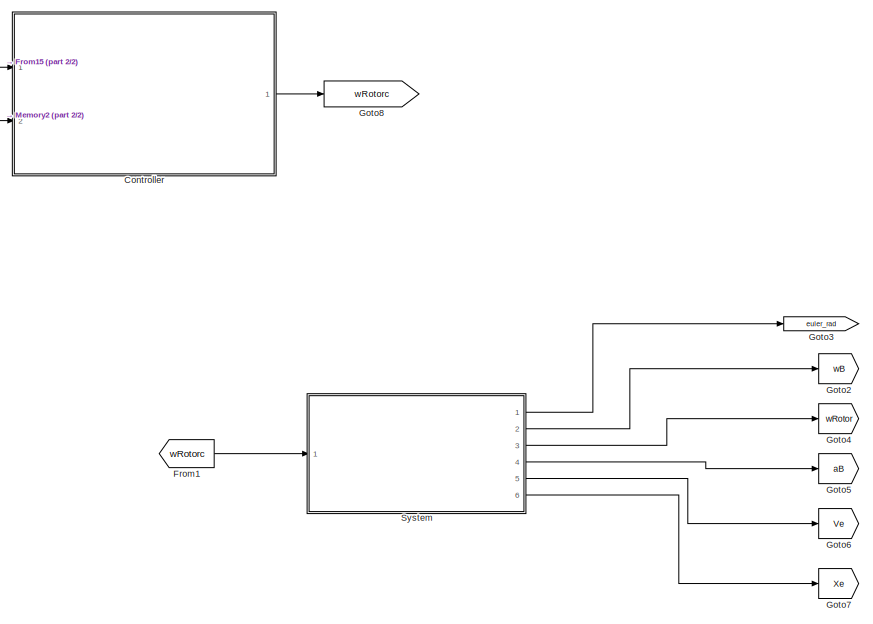
[diagram: root canvas - part 1/2, middle right region]
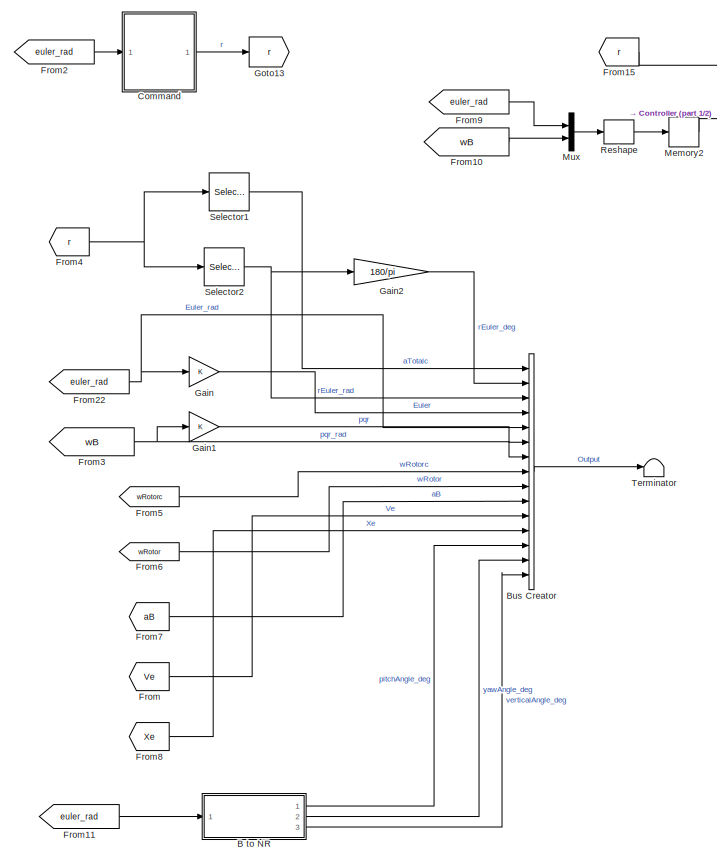
[diagram: root canvas - part 2/2, left side, full height]
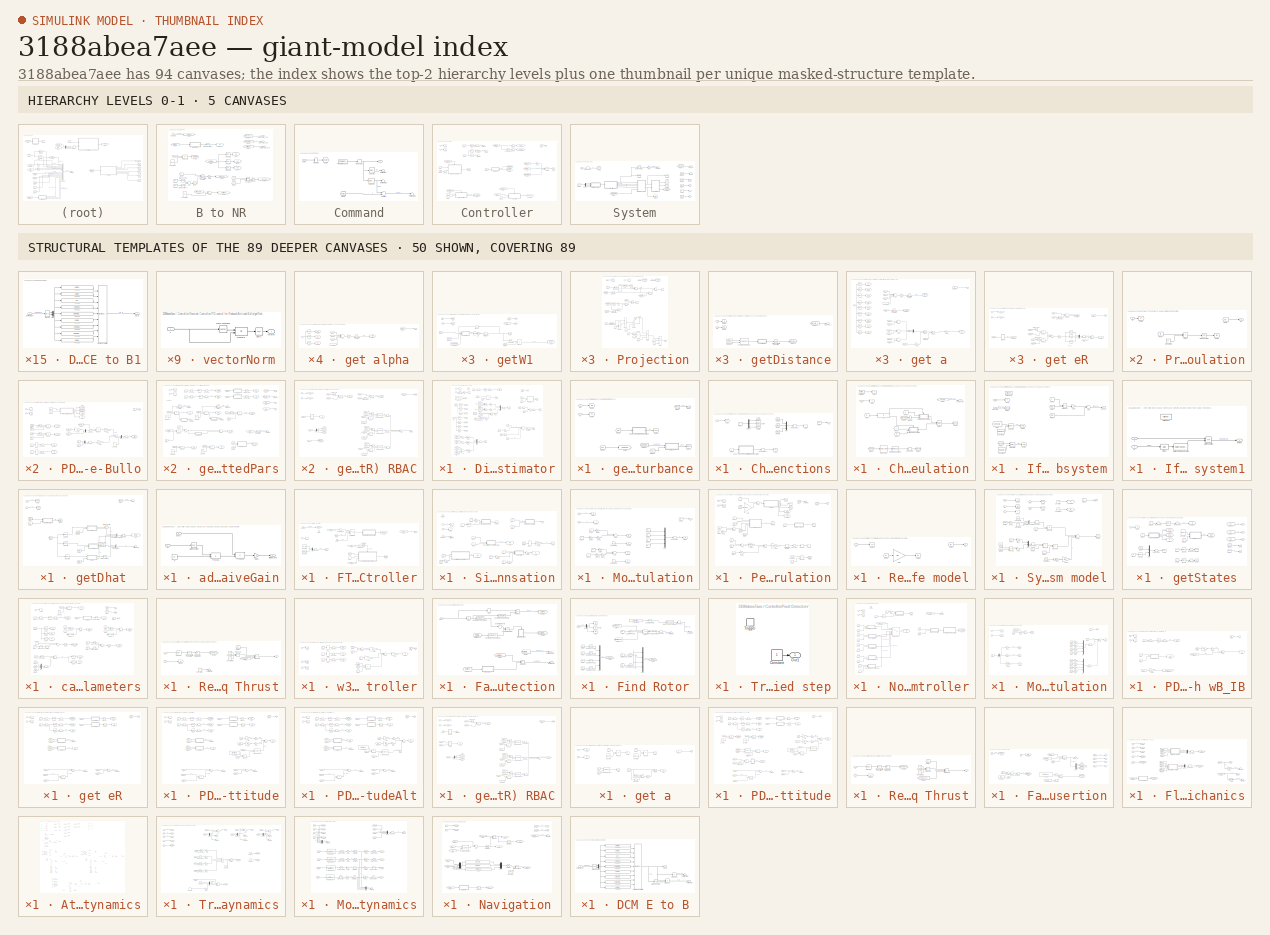
[diagram: thumbnail index - top-2 hierarchy levels (5 canvases) + 50 structural-template representatives of the remaining 89 canvases]
MODEL slx_3188abea7aee
KIND model
BLOCK [SubSystem] B to NR
  Ports = [1, 3]
  RequestExecContextInheritance = off
  TreatAsAtomicUnit = on
BLOCK [Sum] B to NR/Add
  InputSameDT = off
  OutDataTypeStr = Inherit: Inherit via internal rule
  Ports = [2, 1]
  SaturateOnIntegerOverflow = off
BLOCK [Sum] B to NR/Add1
  InputSameDT = off
  Inputs = +-
  OutDataTypeStr = Inherit: Inherit via internal rule
  Ports = [2, 1]
  SaturateOnIntegerOverflow = off
BLOCK [Constant] B to NR/Constant1
  Value = 90
  VectorParams1D = off
BLOCK [Constant] B to NR/Constant2
  Value = [0 0 1]'
  VectorParams1D = off
BLOCK [SubSystem] B to NR/DCM E to B1
  Ports = [1, 1]
  RequestExecContextInheritance = off
BLOCK [Outport] B to NR/DCM E to B1/CB_E
  IconDisplay = Port number
BLOCK [Reference] B to NR/DCM E to B1/Create 3x3 Matrix  REF=aerolibutil/Create 3x3 Matrix
  Ports = [9, 1]
  SourceBlock = aerolibutil/Create 3x3 Matrix
  SourceType = Create 3x3 Matrix
BLOCK [Fcn] B to NR/DCM E to B1/Fcn11
  Expr = u(5)*u(6)
BLOCK [Fcn] B to NR/DCM E to B1/Fcn12
  Expr = u(3)*u(5)
BLOCK [Fcn] B to NR/DCM E to B1/Fcn13
  Expr = -u(2)
BLOCK [Fcn] B to NR/DCM E to B1/Fcn21
  Expr = u(1)*u(2)*u(6)-u(4)*u(3)
BLOCK [Fcn] B to NR/DCM E to B1/Fcn22
  Expr = u(1)*u(2)*u(3)+u(4)*u(6)
BLOCK [Fcn] B to NR/DCM E to B1/Fcn23
  Expr = u(1)*u(5)
BLOCK [Fcn] B to NR/DCM E to B1/Fcn31
  Expr = u(4)*u(2)*u(6)+u(1)*u(3)
BLOCK [Fcn] B to NR/DCM E to B1/Fcn32
  Expr = u(4)*u(2)*u(3)-u(1)*u(6)
BLOCK [Fcn] B to NR/DCM E to B1/Fcn33
  Expr = u(4)*u(5)
BLOCK [Mux] B to NR/DCM E to B1/Mux
  DisplayOption = bar
  Inputs = 2
  Ports = [2, 1]
BLOCK [Inport] B to NR/DCM E to B1/phithetapsi
  IconDisplay = Port number
BLOCK [Trigonometry] B to NR/DCM E to B1/sincos
  Operator = sincos
  Ports = [1, 2]
BLOCK [Inport] B to NR/Euler_rad
  IconDisplay = Port number
BLOCK [From] B to NR/From
  GotoTag = Gamma
BLOCK [From] B to NR/From1
  GotoTag = u3
BLOCK [From] B to NR/From10
  GotoTag = verticalAngle_deg
BLOCK [From] B to NR/From16
  GotoTag = R
BLOCK [From] B to NR/From2
  GotoTag = u1
BLOCK [From] B to NR/From3
  GotoTag = u2
BLOCK [From] B to NR/From4
  GotoTag = pitchAngle_deg
BLOCK [From] B to NR/From5
  GotoTag = phithetapsi
BLOCK [From] B to NR/From6
  GotoTag = u1
BLOCK [From] B to NR/From7
  GotoTag = u2
BLOCK [From] B to NR/From8
  GotoTag = pitchAngle_deg
BLOCK [From] B to NR/From9
  GotoTag = yawAngle_deg
BLOCK [Gain] B to NR/Gain
  Gain = 180/pi
  OutDataTypeStr = Inherit: Inherit via internal rule
  ParamDataTypeStr = Inherit: Inherit via internal rule
  SaturateOnIntegerOverflow = off
BLOCK [Gain] B to NR/Gain1
  Gain = 180/pi
  OutDataTypeStr = Inherit: Inherit via internal rule
  ParamDataTypeStr = Inherit: Inherit via internal rule
  SaturateOnIntegerOverflow = off
BLOCK [Goto] B to NR/Goto1
  GotoTag = u1
BLOCK [Goto] B to NR/Goto10
  GotoTag = R
BLOCK [Goto] B to NR/Goto2
  GotoTag = u2
BLOCK [Goto] B to NR/Goto3
  GotoTag = phithetapsi
BLOCK [Goto] B to NR/Goto4
  GotoTag = u3
BLOCK [Goto] B to NR/Goto5
  GotoTag = pitchAngle_deg
BLOCK [Goto] B to NR/Goto6
  GotoTag = yawAngle_deg
BLOCK [Goto] B to NR/Goto7
  GotoTag = verticalAngle_deg
BLOCK [Goto] B to NR/Goto9
  GotoTag = Gamma
BLOCK [Math] B to NR/Math Function
  Operator = square
  Ports = [1, 1]
BLOCK [Math] B to NR/Math Function1
  Operator = square
  Ports = [1, 1]
BLOCK [Math] B to NR/Math Function2
  Operator = transpose
  Ports = [1, 1]
BLOCK [Product] B to NR/Product4
  InputSameDT = off
  Multiplication = Matrix(*)
  OutDataTypeStr = Inherit: Inherit via internal rule
  Ports = [2, 1]
  SaturateOnIntegerOverflow = off
BLOCK [Selector] B to NR/Selector1
  Indices = 3
  InputPortWidth = 3
  Ports = [1, 1]
BLOCK [Selector] B to NR/Selector2
  Indices = 2
  InputPortWidth = 3
  Ports = [1, 1]
BLOCK [Selector] B to NR/Selector3
  InputPortWidth = 3
  Ports = [1, 1]
BLOCK [Sqrt] B to NR/Sqrt
BLOCK [Trigonometry] B to NR/Trigonometric Function
  Operator = atan2
  Ports = [2, 1]
BLOCK [Trigonometry] B to NR/Trigonometric Function1
  Operator = atan2
  Ports = [2, 1]
BLOCK [Outport] B to NR/pitchAngle_deg
  IconDisplay = Port number
BLOCK [Outport] B to NR/verticalAngle_deg
  IconDisplay = Port number
  Port = 3
BLOCK [Outport] B to NR/yawAngle_deg
  IconDisplay = Port number
  Port = 2
BLOCK [BusCreator] Bus Creator
  DisplayOption = bar
  Inputs = 15
  Ports = [15, 1]
BLOCK [SubSystem] Command
  Ports = [1, 1]
  RequestExecContextInheritance = off
  SystemSampleTime = dtFc
  TreatAsAtomicUnit = on
BLOCK [Inport] Command/Euler
  IconDisplay = Port number
BLOCK [FromWorkspace] Command/From Workspace
  Interpolate = off
  OutputAfterFinalValue = Setting to zero
  VariableName = r
BLOCK [From] Command/From4
  GotoTag = euler
BLOCK [Goto] Command/Goto5
  GotoTag = euler
BLOCK [Memory] Command/Memory2
  InheritSampleTime = on
  LinearizeAsDelay = on
  LinearizeMemory = on
  X0 = euler0
BLOCK [Reshape] Command/Reshape1
  OutputDimensionality = Column vector (2-D)
  Ports = [1, 1]
BLOCK [Selector] Command/Selector
  IndexOptions = Index vector (dialog),Index vector (dialog)
  Indices = 1,1
  InputPortWidth = 2
  NumberOfDimensions = 2
  OutputSizes = 1,1
  Ports = [1, 1]
BLOCK [Selector] Command/Selector1
  IndexOptions = Index vector (dialog),Index vector (dialog)
  Indices = [2 3 4],1
  InputPortWidth = 3
  NumberOfDimensions = 2
  OutputSizes = 1,1
  Ports = [1, 1]
BLOCK [Sum] Command/Subtract
  InputSameDT = off
  Inputs = +-
  OutDataTypeStr = Inherit: Inherit via internal rule
  Ports = [2, 1]
  SaturateOnIntegerOverflow = off
BLOCK [Terminator] Command/Terminator
BLOCK [Terminator] Command/Terminator1
BLOCK [Terminator] Command/Terminator2
BLOCK [Outport] Command/r
  IconDisplay = Port number
  InitialOutput = 0
BLOCK [SubSystem] Controller
  Ports = [2, 1]
  RequestExecContextInheritance = off
  SystemSampleTime = dtFc
  TreatAsAtomicUnit = on
BLOCK [Selector] Controller/1
  IndexOptions = Index vector (dialog),Index vector (dialog)
  Indices = [1],1
  InputPortWidth = 4
  NumberOfDimensions = 2
  OutputSizes = 1,1
  Ports = [1, 1]
BLOCK [Selector] Controller/2
  IndexOptions = Index vector (dialog),Index vector (dialog)
  Indices = [2 3 4],1
  InputPortWidth = 4
  NumberOfDimensions = 2
  OutputSizes = 1,1
  Ports = [1, 1]
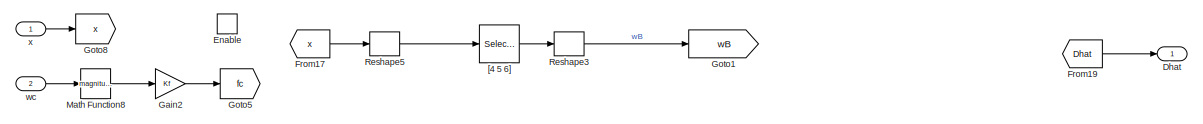
[diagram: Controller/Disturbance Estimator - part 1/3, full width, top band]
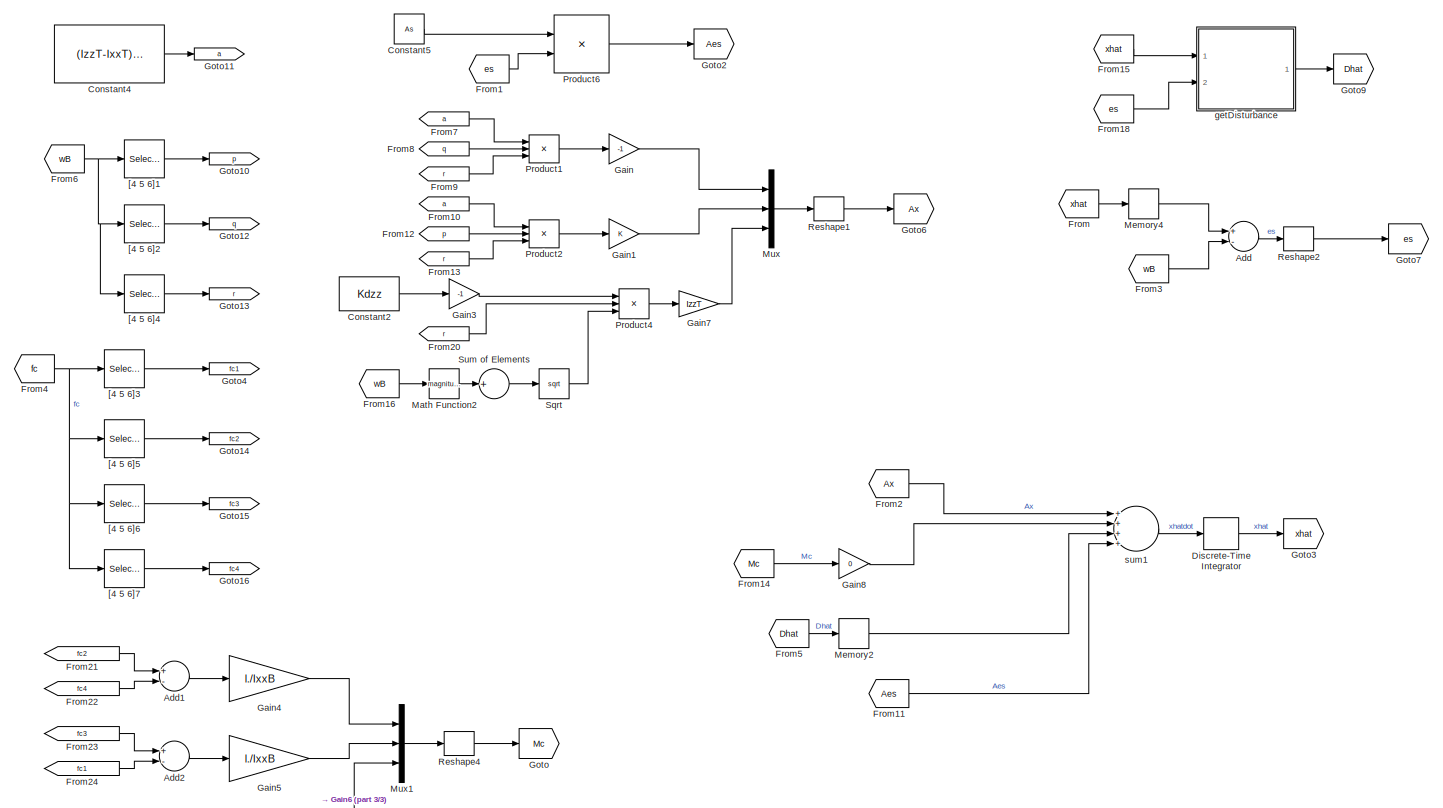
[diagram: Controller/Disturbance Estimator - part 2/3, full width, middle band]
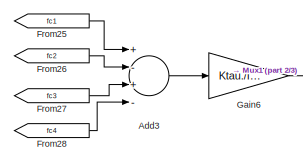
[diagram: Controller/Disturbance Estimator - part 3/3, bottom left region]
BLOCK [SubSystem] Controller/Disturbance Estimator
  Ports = [2, 1, 1]
  RequestExecContextInheritance = off
BLOCK [Sum] Controller/Disturbance Estimator/Add
  InputSameDT = off
  Inputs = +-
  OutDataTypeStr = Inherit: Inherit via internal rule
  Ports = [2, 1]
  SaturateOnIntegerOverflow = off
BLOCK [Sum] Controller/Disturbance Estimator/Add1
  InputSameDT = off
  Inputs = +-
  OutDataTypeStr = Inherit: Inherit via internal rule
  Ports = [2, 1]
  SaturateOnIntegerOverflow = off
BLOCK [Sum] Controller/Disturbance Estimator/Add2
  InputSameDT = off
  Inputs = +-
  OutDataTypeStr = Inherit: Inherit via internal rule
  Ports = [2, 1]
  SaturateOnIntegerOverflow = off
BLOCK [Sum] Controller/Disturbance Estimator/Add3
  InputSameDT = off
  Inputs = +-+-
  OutDataTypeStr = Inherit: Inherit via internal rule
  Ports = [4, 1]
  SaturateOnIntegerOverflow = off
BLOCK [Constant] Controller/Disturbance Estimator/Constant2
  Value = Kdzz
  VectorParams1D = off
BLOCK [Constant] Controller/Disturbance Estimator/Constant4
  Value = (IzzT-IxxT)/IxxB
  VectorParams1D = off
BLOCK [Constant] Controller/Disturbance Estimator/Constant5
  Value = As
BLOCK [Outport] Controller/Disturbance Estimator/Dhat
  IconDisplay = Port number
BLOCK [DiscreteIntegrator] Controller/Disturbance Estimator/Discrete-Time Integrator
  InitialCondition = xhat0
  InitialConditionSetting = State (most efficient)
  IntegratorMethod = Integration: Backward Euler
  LowerSaturationLimit = Intmin
  Ports = [1, 1]
  SampleTime = -1
  UpperSaturationLimit = Intmax
BLOCK [EnablePort] Controller/Disturbance Estimator/Enable
  Ports = []
BLOCK [From] Controller/Disturbance Estimator/From
  GotoTag = xhat
BLOCK [From] Controller/Disturbance Estimator/From1
  GotoTag = es
BLOCK [From] Controller/Disturbance Estimator/From10
  GotoTag = a
BLOCK [From] Controller/Disturbance Estimator/From11
  GotoTag = Aes
BLOCK [From] Controller/Disturbance Estimator/From12
  GotoTag = p
BLOCK [From] Controller/Disturbance Estimator/From13
  GotoTag = r
BLOCK [From] Controller/Disturbance Estimator/From14
  GotoTag = Mc
BLOCK [From] Controller/Disturbance Estimator/From15
  GotoTag = xhat
BLOCK [From] Controller/Disturbance Estimator/From16
  GotoTag = wB
BLOCK [From] Controller/Disturbance Estimator/From17
  GotoTag = x
BLOCK [From] Controller/Disturbance Estimator/From18
  GotoTag = es
BLOCK [From] Controller/Disturbance Estimator/From19
  GotoTag = Dhat
BLOCK [From] Controller/Disturbance Estimator/From2
  GotoTag = Ax
BLOCK [From] Controller/Disturbance Estimator/From20
  GotoTag = r
BLOCK [From] Controller/Disturbance Estimator/From21
  GotoTag = fc2
BLOCK [From] Controller/Disturbance Estimator/From22
  GotoTag = fc4
BLOCK [From] Controller/Disturbance Estimator/From23
  GotoTag = fc3
BLOCK [From] Controller/Disturbance Estimator/From24
  GotoTag = fc1
BLOCK [From] Controller/Disturbance Estimator/From25
  GotoTag = fc1
BLOCK [From] Controller/Disturbance Estimator/From26
  GotoTag = fc2
BLOCK [From] Controller/Disturbance Estimator/From27
  GotoTag = fc3
BLOCK [From] Controller/Disturbance Estimator/From28
  GotoTag = fc4
BLOCK [From] Controller/Disturbance Estimator/From3
  GotoTag = wB
BLOCK [From] Controller/Disturbance Estimator/From4
  GotoTag = fc
BLOCK [From] Controller/Disturbance Estimator/From5
  GotoTag = Dhat
BLOCK [From] Controller/Disturbance Estimator/From6
  GotoTag = wB
BLOCK [From] Controller/Disturbance Estimator/From7
  GotoTag = a
BLOCK [From] Controller/Disturbance Estimator/From8
  GotoTag = q
BLOCK [From] Controller/Disturbance Estimator/From9
  GotoTag = r
BLOCK [Gain] Controller/Disturbance Estimator/Gain
  Gain = -1
  OutDataTypeStr = Inherit: Inherit via internal rule
  ParamDataTypeStr = Inherit: Inherit via internal rule
  SaturateOnIntegerOverflow = off
BLOCK [Gain] Controller/Disturbance Estimator/Gain1
  OutDataTypeStr = Inherit: Inherit via internal rule
  ParamDataTypeStr = Inherit: Inherit via internal rule
  SaturateOnIntegerOverflow = off
BLOCK [Gain] Controller/Disturbance Estimator/Gain2
  Gain = Kf
  OutDataTypeStr = Inherit: Inherit via internal rule
  ParamDataTypeStr = Inherit: Inherit via internal rule
  SaturateOnIntegerOverflow = off
BLOCK [Gain] Controller/Disturbance Estimator/Gain3
  Gain = -1
  OutDataTypeStr = Inherit: Inherit via internal rule
  ParamDataTypeStr = Inherit: Inherit via internal rule
  SaturateOnIntegerOverflow = off
BLOCK [Gain] Controller/Disturbance Estimator/Gain4
  Gain = l./IxxB
  OutDataTypeStr = Inherit: Inherit via internal rule
  ParamDataTypeStr = Inherit: Inherit via internal rule
  SaturateOnIntegerOverflow = off
BLOCK [Gain] Controller/Disturbance Estimator/Gain5
  Gain = l./IxxB
  OutDataTypeStr = Inherit: Inherit via internal rule
  ParamDataTypeStr = Inherit: Inherit via internal rule
  SaturateOnIntegerOverflow = off
BLOCK [Gain] Controller/Disturbance Estimator/Gain6
  Gain = Ktau./IzzB
  OutDataTypeStr = Inherit: Inherit via internal rule
  ParamDataTypeStr = Inherit: Inherit via internal rule
  SaturateOnIntegerOverflow = off
BLOCK [Gain] Controller/Disturbance Estimator/Gain7
  Gain = IzzT
  OutDataTypeStr = Inherit: Inherit via internal rule
  ParamDataTypeStr = Inherit: Inherit via internal rule
  SaturateOnIntegerOverflow = off
BLOCK [Gain] Controller/Disturbance Estimator/Gain8
  Gain = 0
  OutDataTypeStr = Inherit: Inherit via internal rule
  ParamDataTypeStr = Inherit: Inherit via internal rule
  SaturateOnIntegerOverflow = off
BLOCK [Goto] Controller/Disturbance Estimator/Goto
  GotoTag = Mc
BLOCK [Goto] Controller/Disturbance Estimator/Goto1
  GotoTag = wB
BLOCK [Goto] Controller/Disturbance Estimator/Goto10
  GotoTag = p
BLOCK [Goto] Controller/Disturbance Estimator/Goto11
  GotoTag = a
BLOCK [Goto] Controller/Disturbance Estimator/Goto12
  GotoTag = q
BLOCK [Goto] Controller/Disturbance Estimator/Goto13
  GotoTag = r
BLOCK [Goto] Controller/Disturbance Estimator/Goto14
  GotoTag = fc2
BLOCK [Goto] Controller/Disturbance Estimator/Goto15
  GotoTag = fc3
BLOCK [Goto] Controller/Disturbance Estimator/Goto16
  GotoTag = fc4
BLOCK [Goto] Controller/Disturbance Estimator/Goto2
  GotoTag = Aes
BLOCK [Goto] Controller/Disturbance Estimator/Goto3
  GotoTag = xhat
BLOCK [Goto] Controller/Disturbance Estimator/Goto4
  GotoTag = fc1
BLOCK [Goto] Controller/Disturbance Estimator/Goto5
  GotoTag = fc
BLOCK [Goto] Controller/Disturbance Estimator/Goto6
  GotoTag = Ax
BLOCK [Goto] Controller/Disturbance Estimator/Goto7
  GotoTag = es
BLOCK [Goto] Controller/Disturbance Estimator/Goto8
  GotoTag = x
BLOCK [Goto] Controller/Disturbance Estimator/Goto9
  GotoTag = Dhat
BLOCK [Math] Controller/Disturbance Estimator/Math Function2
  Operator = magnitude^2
  Ports = [1, 1]
BLOCK [Math] Controller/Disturbance Estimator/Math Function8
  Operator = magnitude^2
  Ports = [1, 1]
BLOCK [Memory] Controller/Disturbance Estimator/Memory2
  InheritSampleTime = on
  LinearizeAsDelay = on
  LinearizeMemory = on
  X0 = Dhat0
BLOCK [Memory] Controller/Disturbance Estimator/Memory4
  InheritSampleTime = on
  LinearizeAsDelay = on
  LinearizeMemory = on
  X0 = xhat0
BLOCK [Mux] Controller/Disturbance Estimator/Mux
  DisplayOption = bar
  Inputs = 3
  Ports = [3, 1]
BLOCK [Mux] Controller/Disturbance Estimator/Mux1
  DisplayOption = bar
  Inputs = 3
  Ports = [3, 1]
BLOCK [Product] Controller/Disturbance Estimator/Product1
  InputSameDT = off
  Inputs = 3
  OutDataTypeStr = Inherit: Inherit via internal rule
  Ports = [3, 1]
  SaturateOnIntegerOverflow = off
BLOCK [Product] Controller/Disturbance Estimator/Product2
  InputSameDT = off
  Inputs = 3
  OutDataTypeStr = Inherit: Inherit via internal rule
  Ports = [3, 1]
  SaturateOnIntegerOverflow = off
BLOCK [Product] Controller/Disturbance Estimator/Product4
  InputSameDT = off
  Inputs = 3
  OutDataTypeStr = Inherit: Inherit via internal rule
  Ports = [3, 1]
  SaturateOnIntegerOverflow = off
BLOCK [Product] Controller/Disturbance Estimator/Product6
  InputSameDT = off
  Multiplication = Matrix(*)
  OutDataTypeStr = Inherit: Inherit via internal rule
  Ports = [2, 1]
  SaturateOnIntegerOverflow = off
BLOCK [Reshape] Controller/Disturbance Estimator/Reshape1
  OutputDimensionality = Column vector (2-D)
  Ports = [1, 1]
BLOCK [Reshape] Controller/Disturbance Estimator/Reshape2
  OutputDimensionality = Column vector (2-D)
  Ports = [1, 1]
BLOCK [Reshape] Controller/Disturbance Estimator/Reshape3
  OutputDimensionality = Column vector (2-D)
  Ports = [1, 1]
BLOCK [Reshape] Controller/Disturbance Estimator/Reshape4
  OutputDimensionality = Column vector (2-D)
  Ports = [1, 1]
BLOCK [Reshape] Controller/Disturbance Estimator/Reshape5
  OutputDimensionality = Column vector (2-D)
  Ports = [1, 1]
BLOCK [Sqrt] Controller/Disturbance Estimator/Sqrt
BLOCK [Sum] Controller/Disturbance Estimator/Sum of Elements
  InputSameDT = off
  Inputs = +
  OutDataTypeStr = Inherit: Inherit via internal rule
  Ports = [1, 1]
  SaturateOnIntegerOverflow = off
BLOCK [Selector] Controller/Disturbance Estimator/[4 5 6]
  IndexOptions = Index vector (dialog),Index vector (dialog)
  Indices = [4 5 6],1
  InputPortWidth = 3
  NumberOfDimensions = 2
  OutputSizes = 1,1
  Ports = [1, 1]
BLOCK [Selector] Controller/Disturbance Estimator/[4 5 6]1
  InputPortWidth = 3
  Ports = [1, 1]
BLOCK [Selector] Controller/Disturbance Estimator/[4 5 6]2
  Indices = 2
  InputPortWidth = 3
  Ports = [1, 1]
BLOCK [Selector] Controller/Disturbance Estimator/[4 5 6]3
  InputPortWidth = 4
  Ports = [1, 1]
BLOCK [Selector] Controller/Disturbance Estimator/[4 5 6]4
  Indices = 3
  InputPortWidth = 3
  Ports = [1, 1]
BLOCK [Selector] Controller/Disturbance Estimator/[4 5 6]5
  Indices = 2
  InputPortWidth = 4
  Ports = [1, 1]
BLOCK [Selector] Controller/Disturbance Estimator/[4 5 6]6
  Indices = 3
  InputPortWidth = 4
  Ports = [1, 1]
BLOCK [Selector] Controller/Disturbance Estimator/[4 5 6]7
  Indices = 4
  InputPortWidth = 4
  Ports = [1, 1]
BLOCK [SubSystem] Controller/Disturbance Estimator/getDisturbance
  Ports = [2, 1]
  RequestExecContextInheritance = off
BLOCK [SubSystem] Controller/Disturbance Estimator/getDisturbance/Chebyshev Basis Functions
  Ports = [1, 1]
  RequestExecContextInheritance = off
BLOCK [SubSystem] Controller/Disturbance Estimator/getDisturbance/Chebyshev Basis Functions/Chebyshev Polynomail Value Calculation
  Ports = [1, 1]
  RequestExecContextInheritance = off
  TreatAsAtomicUnit = on
BLOCK [Reference] Controller/Disturbance Estimator/getDisturbance/Chebyshev Basis Functions/Chebyshev Polynomail Value Calculation/Delay Line  REF=dspbuff3/Delay Line
  Ports = [1, 1]
  SourceBlock = dspbuff3/Delay Line
  SourceType = Delay Line
  TreatMby1Signals = M channels (this choice will be removed - see release notes)
  UserDataPersistent = on
  directfeed = on
  enable_output = off
  hold_output = off
  ic = zeros(nCheby,1)
  siz = nCheby
BLOCK [ForIterator] Controller/Disturbance Estimator/getDisturbance/Chebyshev Basis Functions/Chebyshev Polynomail Value Calculation/For Iterator
  IterationLimit = nCheby
  Ports = [0, 1]
BLOCK [FrameConversion] Controller/Disturbance Estimator/getDisturbance/Chebyshev Basis Functions/Chebyshev Polynomail Value Calculation/Frame Conversion
  OutFrame = Sample-based
  Ports = [1, 1]
BLOCK [From] Controller/Disturbance Estimator/getDisturbance/Chebyshev Basis Functions/Chebyshev Polynomail Value Calculation/From
  GotoTag = N
BLOCK [From] Controller/Disturbance Estimator/getDisturbance/Chebyshev Basis Functions/Chebyshev Polynomail Value Calculation/From1
  GotoTag = N
BLOCK [From] Controller/Disturbance Estimator/getDisturbance/Chebyshev Basis Functions/Chebyshev Polynomail Value Calculation/From2
  GotoTag = x
BLOCK [From] Controller/Disturbance Estimator/getDisturbance/Chebyshev Basis Functions/Chebyshev Polynomail Value Calculation/From3
  GotoTag = x
BLOCK [From] Controller/Disturbance Estimator/getDisturbance/Chebyshev Basis Functions/Chebyshev Polynomail Value Calculation/From5
  GotoTag = polyval
BLOCK [From] Controller/Disturbance Estimator/getDisturbance/Chebyshev Basis Functions/Chebyshev Polynomail Value Calculation/From6
  GotoTag = polyvals
BLOCK [From] Controller/Disturbance Estimator/getDisturbance/Chebyshev Basis Functions/Chebyshev Polynomail Value Calculation/From7
  GotoTag = polyvals
BLOCK [Goto] Controller/Disturbance Estimator/getDisturbance/Chebyshev Basis Functions/Chebyshev Polynomail Value Calculation/Goto
  GotoTag = x
BLOCK [Goto] Controller/Disturbance Estimator/getDisturbance/Chebyshev Basis Functions/Chebyshev Polynomail Value Calculation/Goto1
  GotoTag = N
BLOCK [Goto] Controller/Disturbance Estimator/getDisturbance/Chebyshev Basis Functions/Chebyshev Polynomail Value Calculation/Goto2
  GotoTag = polyval
BLOCK [Goto] Controller/Disturbance Estimator/getDisturbance/Chebyshev Basis Functions/Chebyshev Polynomail Value Calculation/Goto3
  GotoTag = polyvals
BLOCK [If] Controller/Disturbance Estimator/getDisturbance/Chebyshev Basis Functions/Chebyshev Polynomail Value Calculation/If
  IfExpression = u1 > 2
  Ports = [1, 2]
BLOCK [SubSystem] Controller/Disturbance Estimator/getDisturbance/Chebyshev Basis Functions/Chebyshev Polynomail Value Calculation/If Action Subsystem
  Ports = [2, 1, 0, 0, 0, 0, 0, 1]
  RequestExecContextInheritance = off
  TreatAsAtomicUnit = on
BLOCK [ActionPort] Controller/Disturbance Estimator/getDisturbance/Chebyshev Basis Functions/Chebyshev Polynomail Value Calculation/If Action Subsystem/Action Port
  ActionType = then
  PropagateVarSize = During execution
BLOCK [Sum] Controller/Disturbance Estimator/getDisturbance/Chebyshev Basis Functions/Chebyshev Polynomail Value Calculation/If Action Subsystem/Add
  InputSameDT = off
  Inputs = +-
  OutDataTypeStr = Inherit: Inherit via internal rule
  Ports = [2, 1]
  SaturateOnIntegerOverflow = off
BLOCK [Constant] Controller/Disturbance Estimator/getDisturbance/Chebyshev Basis Functions/Chebyshev Polynomail Value Calculation/If Action Subsystem/Constant
  Value = nCheby
BLOCK [Constant] Controller/Disturbance Estimator/getDisturbance/Chebyshev Basis Functions/Chebyshev Polynomail Value Calculation/If Action Subsystem/Constant1
  Value = nCheby-1
BLOCK [From] Controller/Disturbance Estimator/getDisturbance/Chebyshev Basis Functions/Chebyshev Polynomail Value Calculation/If Action Subsystem/From
  GotoTag = polyvals
BLOCK [From] Controller/Disturbance Estimator/getDisturbance/Chebyshev Basis Functions/Chebyshev Polynomail Value Calculation/If Action Subsystem/From2
  GotoTag = polyvals
BLOCK [From] Controller/Disturbance Estimator/getDisturbance/Chebyshev Basis Functions/Chebyshev Polynomail Value Calculation/If Action Subsystem/From4
  GotoTag = Tm1
BLOCK [From] Controller/Disturbance Estimator/getDisturbance/Chebyshev Basis Functions/Chebyshev Polynomail Value Calculation/If Action Subsystem/From5
  GotoTag = x
BLOCK [From] Controller/Disturbance Estimator/getDisturbance/Chebyshev Basis Functions/Chebyshev Polynomail Value Calculation/If Action Subsystem/From6
  GotoTag = Tm2
BLOCK [Gain] Controller/Disturbance Estimator/getDisturbance/Chebyshev Basis Functions/Chebyshev Polynomail Value Calculation/If Action Subsystem/Gain
  Gain = 2
  OutDataTypeStr = Inherit: Inherit via internal rule
  ParamDataTypeStr = Inherit: Inherit via internal rule
  SaturateOnIntegerOverflow = off
BLOCK [Goto] Controller/Disturbance Estimator/getDisturbance/Chebyshev Basis Functions/Chebyshev Polynomail Value Calculation/If Action Subsystem/Goto
  GotoTag = x
BLOCK [Goto] Controller/Disturbance Estimator/getDisturbance/Chebyshev Basis Functions/Chebyshev Polynomail Value Calculation/If Action Subsystem/Goto2
  GotoTag = polyvals
BLOCK [Goto] Controller/Disturbance Estimator/getDisturbance/Chebyshev Basis Functions/Chebyshev Polynomail Value Calculation/If Action Subsystem/Goto3
  GotoTag = Tm2
BLOCK [Goto] Controller/Disturbance Estimator/getDisturbance/Chebyshev Basis Functions/Chebyshev Polynomail Value Calculation/If Action Subsystem/Goto4
  GotoTag = Tm1
BLOCK [Product] Controller/Disturbance Estimator/getDisturbance/Chebyshev Basis Functions/Chebyshev Polynomail Value Calculation/If Action Subsystem/Product
  InputSameDT = off
  OutDataTypeStr = Inherit: Inherit via internal rule
  Ports = [2, 1]
  SaturateOnIntegerOverflow = off
BLOCK [Selector] Controller/Disturbance Estimator/getDisturbance/Chebyshev Basis Functions/Chebyshev Polynomail Value Calculation/If Action Subsystem/Selector
  IndexOptions = Index vector (port)
  Indices = [1 3]
  Ports = [2, 1]
BLOCK [Selector] Controller/Disturbance Estimator/getDisturbance/Chebyshev Basis Functions/Chebyshev Polynomail Value Calculation/If Action Subsystem/Selector1
  IndexOptions = Index vector (port)
  Indices = [1 3]
  Ports = [2, 1]
BLOCK [Outport] Controller/Disturbance Estimator/getDisturbance/Chebyshev Basis Functions/Chebyshev Polynomail Value Calculation/If Action Subsystem/polyval
  IconDisplay = Port number
BLOCK [Inport] Controller/Disturbance Estimator/getDisturbance/Chebyshev Basis Functions/Chebyshev Polynomail Value Calculation/If Action Subsystem/polyvals
  IconDisplay = Port number
  Port = 2
BLOCK [Inport] Controller/Disturbance Estimator/getDisturbance/Chebyshev Basis Functions/Chebyshev Polynomail Value Calculation/If Action Subsystem/x
  IconDisplay = Port number
BLOCK [SubSystem] Controller/Disturbance Estimator/getDisturbance/Chebyshev Basis Functions/Chebyshev Polynomail Value Calculation/If Action Subsystem1
  Ports = [2, 1, 0, 0, 0, 0, 0, 1]
  RequestExecContextInheritance = off
  TreatAsAtomicUnit = on
BLOCK [ActionPort] Controller/Disturbance Estimator/getDisturbance/Chebyshev Basis Functions/Chebyshev Polynomail Value Calculation/If Action Subsystem1/Action Port
  ActionType = else
  PropagateVarSize = During execution
BLOCK [Bias] Controller/Disturbance Estimator/getDisturbance/Chebyshev Basis Functions/Chebyshev Polynomail Value Calculation/If Action Subsystem1/Bias1
  Bias = -1
  SaturateOnIntegerOverflow = off
BLOCK [DataTypeConversion] Controller/Disturbance Estimator/getDisturbance/Chebyshev Basis Functions/Chebyshev Polynomail Value Calculation/If Action Subsystem1/Data Type Conversion
  RndMeth = Floor
  SaturateOnIntegerOverflow = off
BLOCK [Math] Controller/Disturbance Estimator/getDisturbance/Chebyshev Basis Functions/Chebyshev Polynomail Value Calculation/If Action Subsystem1/Math Function
  Operator = pow
  OutputSignalType = real
  Ports = [2, 1]
BLOCK [Inport] Controller/Disturbance Estimator/getDisturbance/Chebyshev Basis Functions/Chebyshev Polynomail Value Calculation/If Action Subsystem1/N
  IconDisplay = Port number
  Port = 2
BLOCK [Outport] Controller/Disturbance Estimator/getDisturbance/Chebyshev Basis Functions/Chebyshev Polynomail Value Calculation/If Action Subsystem1/polval
  IconDisplay = Port number
BLOCK [Inport] Controller/Disturbance Estimator/getDisturbance/Chebyshev Basis Functions/Chebyshev Polynomail Value Calculation/If Action Subsystem1/x
  IconDisplay = Port number
BLOCK [Memory] Controller/Disturbance Estimator/getDisturbance/Chebyshev Basis Functions/Chebyshev Polynomail Value Calculation/Memory
  InheritSampleTime = on
  LinearizeAsDelay = on
  LinearizeMemory = on
BLOCK [Merge] Controller/Disturbance Estimator/getDisturbance/Chebyshev Basis Functions/Chebyshev Polynomail Value Calculation/Merge
  Ports = [2, 1]
BLOCK [Reshape] Controller/Disturbance Estimator/getDisturbance/Chebyshev Basis Functions/Chebyshev Polynomail Value Calculation/Reshape
  OutputDimensionality = Column vector (2-D)
  Ports = [1, 1]
BLOCK [Outport] Controller/Disturbance Estimator/getDisturbance/Chebyshev Basis Functions/Chebyshev Polynomail Value Calculation/chebyPol
  IconDisplay = Port number
BLOCK [Inport] Controller/Disturbance Estimator/getDisturbance/Chebyshev Basis Functions/Chebyshev Polynomail Value Calculation/x
  IconDisplay = Port number
BLOCK [Demux] Controller/Disturbance Estimator/getDisturbance/Chebyshev Basis Functions/Demux
  DisplayOption = bar
  Outputs = 3
  Ports = [1, 3]
BLOCK [From] Controller/Disturbance Estimator/getDisturbance/Chebyshev Basis Functions/From2
  GotoTag = x
BLOCK [From] Controller/Disturbance Estimator/getDisturbance/Chebyshev Basis Functions/From3
  GotoTag = wB1
BLOCK [From] Controller/Disturbance Estimator/getDisturbance/Chebyshev Basis Functions/From4
  GotoTag = z
BLOCK [From] Controller/Disturbance Estimator/getDisturbance/Chebyshev Basis Functions/From6
  GotoTag = wB2
BLOCK [From] Controller/Disturbance Estimator/getDisturbance/Chebyshev Basis Functions/From7
  GotoTag = Tn
BLOCK [From] Controller/Disturbance Estimator/getDisturbance/Chebyshev Basis Functions/From8
  GotoTag = wB3
BLOCK [Goto] Controller/Disturbance Estimator/getDisturbance/Chebyshev Basis Functions/Goto
  GotoTag = z
BLOCK [Goto] Controller/Disturbance Estimator/getDisturbance/Chebyshev Basis Functions/Goto1
  GotoTag = Tn
BLOCK [Goto] Controller/Disturbance Estimator/getDisturbance/Chebyshev Basis Functions/Goto2
  GotoTag = x
BLOCK [Goto] Controller/Disturbance Estimator/getDisturbance/Chebyshev Basis Functions/Goto3
  GotoTag = wB1
BLOCK [Goto] Controller/Disturbance Estimator/getDisturbance/Chebyshev Basis Functions/Goto4
  GotoTag = wB2
BLOCK [Goto] Controller/Disturbance Estimator/getDisturbance/Chebyshev Basis Functions/Goto5
  GotoTag = wB3
BLOCK [Mux] Controller/Disturbance Estimator/getDisturbance/Chebyshev Basis Functions/Mux
  DisplayOption = bar
  Inputs = 3
  Ports = [3, 1]
BLOCK [Reshape] Controller/Disturbance Estimator/getDisturbance/Chebyshev Basis Functions/Reshape1
  OutputDimensionality = Column vector (2-D)
  Ports = [1, 1]
BLOCK [Reshape] Controller/Disturbance Estimator/getDisturbance/Chebyshev Basis Functions/Reshape2
  OutputDimensionality = Column vector (2-D)
  Ports = [1, 1]
BLOCK [Outport] Controller/Disturbance Estimator/getDisturbance/Chebyshev Basis Functions/Tn
  IconDisplay = Port number
BLOCK [Inport] Controller/Disturbance Estimator/getDisturbance/Chebyshev Basis Functions/x
  IconDisplay = Port number
BLOCK [Outport] Controller/Disturbance Estimator/getDisturbance/Dhat
  IconDisplay = Port number
BLOCK [From] Controller/Disturbance Estimator/getDisturbance/From1
  GotoTag = Dhat
BLOCK [From] Controller/Disturbance Estimator/getDisturbance/From12
  GotoTag = basisSet
BLOCK [From] Controller/Disturbance Estimator/getDisturbance/From13
  GotoTag = es
BLOCK [From] Controller/Disturbance Estimator/getDisturbance/From15
  GotoTag = Tnz
BLOCK [From] Controller/Disturbance Estimator/getDisturbance/From2
  GotoTag = wB
BLOCK [Goto] Controller/Disturbance Estimator/getDisturbance/Goto1
  GotoTag = wB
BLOCK [Goto] Controller/Disturbance Estimator/getDisturbance/Goto11
  GotoTag = Dhat
BLOCK [Goto] Controller/Disturbance Estimator/getDisturbance/Goto5
  GotoTag = Tnz
BLOCK [Goto] Controller/Disturbance Estimator/getDisturbance/Goto6
  GotoTag = es
BLOCK [Goto] Controller/Disturbance Estimator/getDisturbance/Goto8
  GotoTag = basisSet
BLOCK [Inport] Controller/Disturbance Estimator/getDisturbance/es
  IconDisplay = Port number
  Port = 2
BLOCK [SubSystem] Controller/Disturbance Estimator/getDisturbance/getDhat
  Ports = [2, 1]
  RequestExecContextInheritance = off
  TreatAsAtomicUnit = on
BLOCK [BusCreator] Controller/Disturbance Estimator/getDisturbance/getDhat/Bus Creator
  DisplayOption = bar
  Inputs = 3
  Ports = [3, 1]
BLOCK [Outport] Controller/Disturbance Estimator/getDisturbance/getDhat/Dhat
  IconDisplay = Port number
BLOCK [From] Controller/Disturbance Estimator/getDisturbance/getDhat/From1
  GotoTag = psiz
BLOCK [From] Controller/Disturbance Estimator/getDisturbance/getDhat/From15
  GotoTag = psiz
BLOCK [From] Controller/Disturbance Estimator/getDisturbance/getDhat/From2
  GotoTag = psiz
BLOCK [From] Controller/Disturbance Estimator/getDisturbance/getDhat/From3
  GotoTag = Dhat
BLOCK [From] Controller/Disturbance Estimator/getDisturbance/getDhat/From4
  GotoTag = es
BLOCK [From] Controller/Disturbance Estimator/getDisturbance/getDhat/From6
  GotoTag = Wint
BLOCK [From] Controller/Disturbance Estimator/getDisturbance/getDhat/From7
  GotoTag = psiz
BLOCK [Goto] Controller/Disturbance Estimator/getDisturbance/getDhat/Goto
  GotoTag = psiz
BLOCK [Goto] Controller/Disturbance Estimator/getDisturbance/getDhat/Goto3
  GotoTag = Wint
BLOCK [Goto] Controller/Disturbance Estimator/getDisturbance/getDhat/Goto4
  GotoTag = es
BLOCK [Goto] Controller/Disturbance Estimator/getDisturbance/getDhat/Goto7
  GotoTag = Dhat
BLOCK [Math] Controller/Disturbance Estimator/getDisturbance/getDhat/Math Function
  Operator = transpose
  Ports = [1, 1]
BLOCK [Math] Controller/Disturbance Estimator/getDisturbance/getDhat/Math Function1
  Operator = transpose
  Ports = [1, 1]
BLOCK [Math] Controller/Disturbance Estimator/getDisturbance/getDhat/Math Function2
  Operator = transpose
  Ports = [1, 1]
BLOCK [Reshape] Controller/Disturbance Estimator/getDisturbance/getDhat/Reshape
  OutputDimensionality = Column vector (2-D)
  Ports = [1, 1]
BLOCK [Selector] Controller/Disturbance Estimator/getDisturbance/getDhat/Selector
  IndexOptions = Select all,Index vector (dialog)
  Indices = [1 3],1
  InputPortWidth = 3
  NumberOfDimensions = 2
  OutputSizes = 1,1
  Ports = [1, 1]
BLOCK [Selector] Controller/Disturbance Estimator/getDisturbance/getDhat/Selector1
  IndexOptions = Select all,Index vector (dialog)
  Indices = [1 3],2
  InputPortWidth = 3
  NumberOfDimensions = 2
  OutputSizes = 1,1
  Ports = [1, 1]
BLOCK [Selector] Controller/Disturbance Estimator/getDisturbance/getDhat/Selector2
  IndexOptions = Select all,Index vector (dialog)
  Indices = [1 3],3
  InputPortWidth = 3
  NumberOfDimensions = 2
  OutputSizes = 1,1
  Ports = [1, 1]
BLOCK [Terminator] Controller/Disturbance Estimator/getDisturbance/getDhat/Terminator1
BLOCK [Concatenate] Controller/Disturbance Estimator/getDisturbance/getDhat/Vector Concatenate
  NumInputs = 3
  Ports = [3, 1]
BLOCK [SubSystem] Controller/Disturbance Estimator/getDisturbance/getDhat/adaptiveGain
  Ports = [2, 1]
  RequestExecContextInheritance = off
  TreatAsAtomicUnit = on
BLOCK [Gain] Controller/Disturbance Estimator/getDisturbance/getDhat/adaptiveGain/Gain1
  Gain = -1
  OutDataTypeStr = Inherit: Inherit via internal rule
  ParamDataTypeStr = Inherit: Inherit via internal rule
  SaturateOnIntegerOverflow = off
BLOCK [Math] Controller/Disturbance Estimator/getDisturbance/getDhat/adaptiveGain/Math Function
  Operator = transpose
  Ports = [1, 1]
BLOCK [Constant] Controller/Disturbance Estimator/getDisturbance/getDhat/adaptiveGain/P
  Value = Ps
  VectorParams1D = off
BLOCK [Product] Controller/Disturbance Estimator/getDisturbance/getDhat/adaptiveGain/Product1
  InputSameDT = off
  Multiplication = Matrix(*)
  OutDataTypeStr = Inherit: Inherit via internal rule
  Ports = [2, 1]
  SaturateOnIntegerOverflow = off
BLOCK [Product] Controller/Disturbance Estimator/getDisturbance/getDhat/adaptiveGain/Product3
  InputSameDT = off
  Multiplication = Matrix(*)
  OutDataTypeStr = Inherit: Inherit via internal rule
  Ports = [2, 1]
  SaturateOnIntegerOverflow = off
BLOCK [Outport] Controller/Disturbance Estimator/getDisturbance/getDhat/adaptiveGain/Wintegrand
  IconDisplay = Port number
BLOCK [Inport] Controller/Disturbance Estimator/getDisturbance/getDhat/adaptiveGain/es
  IconDisplay = Port number
  Port = 2
BLOCK [Inport] Controller/Disturbance Estimator/getDisturbance/getDhat/adaptiveGain/psi(z)
  IconDisplay = Port number
BLOCK [Inport] Controller/Disturbance Estimator/getDisturbance/getDhat/es
  IconDisplay = Port number
  Port = 2
BLOCK [SubSystem] Controller/Disturbance Estimator/getDisturbance/getDhat/getW1
  Ports = [2, 2]
  RequestExecContextInheritance = off
BLOCK [Constant] Controller/Disturbance Estimator/getDisturbance/getDhat/getW1/Constant
  Value = Wbnd
  VectorParams1D = off
BLOCK [Constant] Controller/Disturbance Estimator/getDisturbance/getDhat/getW1/Constant1
  Value = epsilontheta
BLOCK [DiscreteIntegrator] Controller/Disturbance Estimator/getDisturbance/getDhat/getW1/Discrete-Time Integrator
  InitialCondition = W0
  IntegratorMethod = Integration: Trapezoidal
  LimitOutput = on
  LowerSaturationLimit = -Wbnd
  Ports = [1, 1]
  SampleTime = -1
  UpperSaturationLimit = Wbnd
BLOCK [From] Controller/Disturbance Estimator/getDisturbance/getDhat/getW1/From1
  GotoTag = WTpsi
BLOCK [From] Controller/Disturbance Estimator/getDisturbance/getDhat/getW1/From15
  GotoTag = psiz
BLOCK [From] Controller/Disturbance Estimator/getDisturbance/getDhat/getW1/From6
  GotoTag = Wint
BLOCK [From] Controller/Disturbance Estimator/getDisturbance/getDhat/getW1/From7
  GotoTag = W
BLOCK [Gain] Controller/Disturbance Estimator/getDisturbance/getDhat/getW1/Gain
  Gain = GammaW
  OutDataTypeStr = Inherit: Inherit via internal rule
  ParamDataTypeStr = Inherit: Inherit via internal rule
  SaturateOnIntegerOverflow = off
BLOCK [Goto] Controller/Disturbance Estimator/getDisturbance/getDhat/getW1/Goto
  GotoTag = Wint
BLOCK [Goto] Controller/Disturbance Estimator/getDisturbance/getDhat/getW1/Goto1
  GotoTag = WTpsi
BLOCK [Goto] Controller/Disturbance Estimator/getDisturbance/getDhat/getW1/Goto2
  GotoTag = psiz
BLOCK [Goto] Controller/Disturbance Estimator/getDisturbance/getDhat/getW1/Goto7
  GotoTag = W
BLOCK [Math] Controller/Disturbance Estimator/getDisturbance/getDhat/getW1/Math Function
  Operator = transpose
  Ports = [1, 1]
BLOCK [Memory] Controller/Disturbance Estimator/getDisturbance/getDhat/getW1/Memory4
  InheritSampleTime = on
  LinearizeAsDelay = on
  LinearizeMemory = on
  X0 = W0
BLOCK [Product] Controller/Disturbance Estimator/getDisturbance/getDhat/getW1/Product
  InputSameDT = off
  Multiplication = Matrix(*)
  OutDataTypeStr = Inherit: Inherit via internal rule
  Ports = [2, 1]
  SaturateOnIntegerOverflow = off
BLOCK [SubSystem] Controller/Disturbance Estimator/getDisturbance/getDhat/getW1/Projection
  Ports = [4, 1]
  RequestExecContextInheritance = off
  TreatAsAtomicUnit = on
BLOCK [Bias] Controller/Disturbance Estimator/getDisturbance/getDhat/getW1/Projection/Bias
  Bias = 1
  SaturateOnIntegerOverflow = off
BLOCK [Bias] Controller/Disturbance Estimator/getDisturbance/getDhat/getW1/Projection/Bias1
  Bias = 1
  SaturateOnIntegerOverflow = off
BLOCK [Product] Controller/Disturbance Estimator/getDisturbance/getDhat/getW1/Projection/Divide
  InputSameDT = off
  Inputs = */
  OutDataTypeStr = Inherit: Inherit via internal rule
  Ports = [2, 1]
  RndMeth = Floor
  SaturateOnIntegerOverflow = off
BLOCK [Product] Controller/Disturbance Estimator/getDisturbance/getDhat/getW1/Projection/Divide1
  InputSameDT = off
  Inputs = */
  OutDataTypeStr = Inherit: Inherit via internal rule
  Ports = [2, 1]
  RndMeth = Floor
  SaturateOnIntegerOverflow = off
BLOCK [DotProduct] Controller/Disturbance Estimator/getDisturbance/getDhat/getW1/Projection/Dot Product
  OutDataTypeStr = Inherit: Inherit via internal rule
BLOCK [From] Controller/Disturbance Estimator/getDisturbance/getDhat/getW1/Projection/From
  CloseFcn = tagdialog Close
  GotoTag = y
BLOCK [From] Controller/Disturbance Estimator/getDisturbance/getDhat/getW1/Projection/From1
  CloseFcn = tagdialog Close
  GotoTag = df
BLOCK [From] Controller/Disturbance Estimator/getDisturbance/getDhat/getW1/Projection/From10
  CloseFcn = tagdialog Close
  GotoTag = f
BLOCK [From] Controller/Disturbance Estimator/getDisturbance/getDhat/getW1/Projection/From11
  CloseFcn = tagdialog Close
  GotoTag = f
BLOCK [From] Controller/Disturbance Estimator/getDisturbance/getDhat/getW1/Projection/From12
  CloseFcn = tagdialog Close
  GotoTag = y
BLOCK [From] Controller/Disturbance Estimator/getDisturbance/getDhat/getW1/Projection/From13
  CloseFcn = tagdialog Close
  GotoTag = epsilontheta
BLOCK [From] Controller/Disturbance Estimator/getDisturbance/getDhat/getW1/Projection/From14
  CloseFcn = tagdialog Close
  GotoTag = epsilontheta
BLOCK [From] Controller/Disturbance Estimator/getDisturbance/getDhat/getW1/Projection/From15
  CloseFcn = tagdialog Close
  GotoTag = Thetamax
BLOCK [From] Controller/Disturbance Estimator/getDisturbance/getDhat/getW1/Projection/From16
  CloseFcn = tagdialog Close
  GotoTag = theta
BLOCK [From] Controller/Disturbance Estimator/getDisturbance/getDhat/getW1/Projection/From2
  CloseFcn = tagdialog Close
  GotoTag = y
BLOCK [From] Controller/Disturbance Estimator/getDisturbance/getDhat/getW1/Projection/From3
  CloseFcn = tagdialog Close
  GotoTag = Thetamax
BLOCK [From] Controller/Disturbance Estimator/getDisturbance/getDhat/getW1/Projection/From4
  CloseFcn = tagdialog Close
  GotoTag = theta
BLOCK [From] Controller/Disturbance Estimator/getDisturbance/getDhat/getW1/Projection/From5
  CloseFcn = tagdialog Close
  GotoTag = y
BLOCK [From] Controller/Disturbance Estimator/getDisturbance/getDhat/getW1/Projection/From6
  CloseFcn = tagdialog Close
  GotoTag = y
BLOCK [From] Controller/Disturbance Estimator/getDisturbance/getDhat/getW1/Projection/From8
  CloseFcn = tagdialog Close
  GotoTag = df
BLOCK [From] Controller/Disturbance Estimator/getDisturbance/getDhat/getW1/Projection/From9
  CloseFcn = tagdialog Close
  GotoTag = epsilontheta
BLOCK [Gain] Controller/Disturbance Estimator/getDisturbance/getDhat/getW1/Projection/Gain
  Gain = 2
  OutDataTypeStr = Inherit: Inherit via internal rule
  ParamDataTypeStr = Inherit: Inherit via internal rule
  SaturateOnIntegerOverflow = off
BLOCK [Goto] Controller/Disturbance Estimator/getDisturbance/getDhat/getW1/Projection/Goto1
  GotoTag = y
BLOCK [Goto] Controller/Disturbance Estimator/getDisturbance/getDhat/getW1/Projection/Goto2
  GotoTag = f
BLOCK [Goto] Controller/Disturbance Estimator/getDisturbance/getDhat/getW1/Projection/Goto3
  GotoTag = Thetamax
BLOCK [Goto] Controller/Disturbance Estimator/getDisturbance/getDhat/getW1/Projection/Goto4
  GotoTag = theta
BLOCK [Goto] Controller/Disturbance Estimator/getDisturbance/getDhat/getW1/Projection/Goto6
  GotoTag = epsilontheta
BLOCK [Goto] Controller/Disturbance Estimator/getDisturbance/getDhat/getW1/Projection/Goto7
  GotoTag = df
BLOCK [Math] Controller/Disturbance Estimator/getDisturbance/getDhat/getW1/Projection/Math Function
  Operator = square
  Ports = [1, 1]
BLOCK [Math] Controller/Disturbance Estimator/getDisturbance/getDhat/getW1/Projection/Math Function1
  Operator = square
  Ports = [1, 1]
BLOCK [Reference] Controller/Disturbance Estimator/getDisturbance/getDhat/getW1/Projection/Normalize Vector1  REF=vrlib/Utilities/Normalize Vector
  Ports = [1, 1]
  SourceBlock = vrlib/Utilities/Normalize Vector
  SourceType = Normalize Vector
  maxzero = 0
BLOCK [Product] Controller/Disturbance Estimator/getDisturbance/getDhat/getW1/Projection/Product
  InputSameDT = off
  OutDataTypeStr = Inherit: Inherit via internal rule
  Ports = [2, 1]
  SaturateOnIntegerOverflow = off
BLOCK [Product] Controller/Disturbance Estimator/getDisturbance/getDhat/getW1/Projection/Product1
  InputSameDT = off
  OutDataTypeStr = Inherit: Inherit via internal rule
  Ports = [2, 1]
  SaturateOnIntegerOverflow = off
BLOCK [Product] Controller/Disturbance Estimator/getDisturbance/getDhat/getW1/Projection/Product2
  InputSameDT = off
  OutDataTypeStr = Inherit: Inherit via internal rule
  Ports = [2, 1]
  SaturateOnIntegerOverflow = off
BLOCK [Product] Controller/Disturbance Estimator/getDisturbance/getDhat/getW1/Projection/Product3
  InputSameDT = off
  OutDataTypeStr = Inherit: Inherit via internal rule
  Ports = [2, 1]
  SaturateOnIntegerOverflow = off
BLOCK [Product] Controller/Disturbance Estimator/getDisturbance/getDhat/getW1/Projection/Product4
  InputSameDT = off
  Multiplication = Matrix(*)
  OutDataTypeStr = Inherit: Inherit via internal rule
  Ports = [2, 1]
  SaturateOnIntegerOverflow = off
BLOCK [Product] Controller/Disturbance Estimator/getDisturbance/getDhat/getW1/Projection/Product5
  InputSameDT = off
  Multiplication = Matrix(*)
  OutDataTypeStr = Inherit: Inherit via internal rule
  Ports = [2, 1]
  SaturateOnIntegerOverflow = off
BLOCK [Product] Controller/Disturbance Estimator/getDisturbance/getDhat/getW1/Projection/Product6
  InputSameDT = off
  OutDataTypeStr = Inherit: Inherit via internal rule
  Ports = [2, 1]
  SaturateOnIntegerOverflow = off
BLOCK [Product] Controller/Disturbance Estimator/getDisturbance/getDhat/getW1/Projection/Product7
  InputSameDT = off
  OutDataTypeStr = Inherit: Inherit via internal rule
  Ports = [2, 1]
  SaturateOnIntegerOverflow = off
BLOCK [Outport] Controller/Disturbance Estimator/getDisturbance/getDhat/getW1/Projection/Proj
  IconDisplay = Port number
BLOCK [Reshape] Controller/Disturbance Estimator/getDisturbance/getDhat/getW1/Projection/Reshape
  OutputDimensionality = Row vector (2-D)
  Ports = [1, 1]
BLOCK [Reshape] Controller/Disturbance Estimator/getDisturbance/getDhat/getW1/Projection/Reshape1
  OutputDimensionality = Row vector (2-D)
  Ports = [1, 1]
BLOCK [Sum] Controller/Disturbance Estimator/getDisturbance/getDhat/getW1/Projection/Sum4
  IconShape = round
  InputSameDT = off
  Inputs = |+-
  OutDataTypeStr = Inherit: Inherit via internal rule
  Ports = [2, 1]
  SaturateOnIntegerOverflow = off
BLOCK [Sum] Controller/Disturbance Estimator/getDisturbance/getDhat/getW1/Projection/Sum5
  IconShape = round
  InputSameDT = off
  Inputs = |+-
  OutDataTypeStr = Inherit: Inherit via internal rule
  Ports = [2, 1]
  SaturateOnIntegerOverflow = off
BLOCK [Switch] Controller/Disturbance Estimator/getDisturbance/getDhat/getW1/Projection/Switch
  Criteria = u2 > Threshold
  InputSameDT = off
  SaturateOnIntegerOverflow = off
BLOCK [Switch] Controller/Disturbance Estimator/getDisturbance/getDhat/getW1/Projection/Switch1
  Criteria = u2 > Threshold
  InputSameDT = off
  SaturateOnIntegerOverflow = off
BLOCK [Inport] Controller/Disturbance Estimator/getDisturbance/getDhat/getW1/Projection/Thetamax
  IconDisplay = Port number
  Port = 3
BLOCK [Inport] Controller/Disturbance Estimator/getDisturbance/getDhat/getW1/Projection/epsilontheta
  IconDisplay = Port number
  Port = 4
BLOCK [Inport] Controller/Disturbance Estimator/getDisturbance/getDhat/getW1/Projection/theta
  IconDisplay = Port number
BLOCK [Inport] Controller/Disturbance Estimator/getDisturbance/getDhat/getW1/Projection/y
  IconDisplay = Port number
  Port = 2
BLOCK [Outport] Controller/Disturbance Estimator/getDisturbance/getDhat/getW1/W
  IconDisplay = Port number
BLOCK [Outport] Controller/Disturbance Estimator/getDisturbance/getDhat/getW1/WTpsi
  IconDisplay = Port number
  Port = 2
BLOCK [Inport] Controller/Disturbance Estimator/getDisturbance/getDhat/getW1/Wint
  IconDisplay = Port number
BLOCK [Inport] Controller/Disturbance Estimator/getDisturbance/getDhat/getW1/psiz
  IconDisplay = Port number
  Port = 2
BLOCK [SubSystem] Controller/Disturbance Estimator/getDisturbance/getDhat/getW2
  Ports = [2, 2]
  RequestExecContextInheritance = off
BLOCK [Constant] Controller/Disturbance Estimator/getDisturbance/getDhat/getW2/Constant
  Value = Wbnd
  VectorParams1D = off
BLOCK [Constant] Controller/Disturbance Estimator/getDisturbance/getDhat/getW2/Constant1
  Value = epsilontheta
BLOCK [DiscreteIntegrator] Controller/Disturbance Estimator/getDisturbance/getDhat/getW2/Discrete-Time Integrator
  InitialCondition = W0
  IntegratorMethod = Integration: Trapezoidal
  LimitOutput = on
  LowerSaturationLimit = -Wbnd
  Ports = [1, 1]
  SampleTime = -1
  UpperSaturationLimit = Wbnd
BLOCK [From] Controller/Disturbance Estimator/getDisturbance/getDhat/getW2/From1
  GotoTag = WTpsi
BLOCK [From] Controller/Disturbance Estimator/getDisturbance/getDhat/getW2/From15
  GotoTag = psiz
BLOCK [From] Controller/Disturbance Estimator/getDisturbance/getDhat/getW2/From6
  GotoTag = Wint
BLOCK [From] Controller/Disturbance Estimator/getDisturbance/getDhat/getW2/From7
  GotoTag = W
BLOCK [Gain] Controller/Disturbance Estimator/getDisturbance/getDhat/getW2/Gain
  Gain = GammaW
  OutDataTypeStr = Inherit: Inherit via internal rule
  ParamDataTypeStr = Inherit: Inherit via internal rule
  SaturateOnIntegerOverflow = off
BLOCK [Goto] Controller/Disturbance Estimator/getDisturbance/getDhat/getW2/Goto
  GotoTag = Wint
BLOCK [Goto] Controller/Disturbance Estimator/getDisturbance/getDhat/getW2/Goto1
  GotoTag = WTpsi
BLOCK [Goto] Controller/Disturbance Estimator/getDisturbance/getDhat/getW2/Goto2
  GotoTag = psiz
BLOCK [Goto] Controller/Disturbance Estimator/getDisturbance/getDhat/getW2/Goto7
  GotoTag = W
BLOCK [Math] Controller/Disturbance Estimator/getDisturbance/getDhat/getW2/Math Function
  Operator = transpose
  Ports = [1, 1]
BLOCK [Memory] Controller/Disturbance Estimator/getDisturbance/getDhat/getW2/Memory4
  InheritSampleTime = on
  LinearizeAsDelay = on
  LinearizeMemory = on
  X0 = W0
BLOCK [Product] Controller/Disturbance Estimator/getDisturbance/getDhat/getW2/Product
  InputSameDT = off
  Multiplication = Matrix(*)
  OutDataTypeStr = Inherit: Inherit via internal rule
  Ports = [2, 1]
  SaturateOnIntegerOverflow = off
BLOCK [SubSystem] Controller/Disturbance Estimator/getDisturbance/getDhat/getW2/Projection
  Ports = [4, 1]
  RequestExecContextInheritance = off
  TreatAsAtomicUnit = on
BLOCK [Bias] Controller/Disturbance Estimator/getDisturbance/getDhat/getW2/Projection/Bias
  Bias = 1
  SaturateOnIntegerOverflow = off
BLOCK [Bias] Controller/Disturbance Estimator/getDisturbance/getDhat/getW2/Projection/Bias1
  Bias = 1
  SaturateOnIntegerOverflow = off
BLOCK [Product] Controller/Disturbance Estimator/getDisturbance/getDhat/getW2/Projection/Divide
  InputSameDT = off
  Inputs = */
  OutDataTypeStr = Inherit: Inherit via internal rule
  Ports = [2, 1]
  RndMeth = Floor
  SaturateOnIntegerOverflow = off
BLOCK [Product] Controller/Disturbance Estimator/getDisturbance/getDhat/getW2/Projection/Divide1
  InputSameDT = off
  Inputs = */
  OutDataTypeStr = Inherit: Inherit via internal rule
  Ports = [2, 1]
  RndMeth = Floor
  SaturateOnIntegerOverflow = off
BLOCK [DotProduct] Controller/Disturbance Estimator/getDisturbance/getDhat/getW2/Projection/Dot Product
  OutDataTypeStr = Inherit: Inherit via internal rule
BLOCK [From] Controller/Disturbance Estimator/getDisturbance/getDhat/getW2/Projection/From
  CloseFcn = tagdialog Close
  GotoTag = y
BLOCK [From] Controller/Disturbance Estimator/getDisturbance/getDhat/getW2/Projection/From1
  CloseFcn = tagdialog Close
  GotoTag = df
BLOCK [From] Controller/Disturbance Estimator/getDisturbance/getDhat/getW2/Projection/From10
  CloseFcn = tagdialog Close
  GotoTag = f
BLOCK [From] Controller/Disturbance Estimator/getDisturbance/getDhat/getW2/Projection/From11
  CloseFcn = tagdialog Close
  GotoTag = f
BLOCK [From] Controller/Disturbance Estimator/getDisturbance/getDhat/getW2/Projection/From12
  CloseFcn = tagdialog Close
  GotoTag = y
BLOCK [From] Controller/Disturbance Estimator/getDisturbance/getDhat/getW2/Projection/From13
  CloseFcn = tagdialog Close
  GotoTag = epsilontheta
BLOCK [From] Controller/Disturbance Estimator/getDisturbance/getDhat/getW2/Projection/From14
  CloseFcn = tagdialog Close
  GotoTag = epsilontheta
BLOCK [From] Controller/Disturbance Estimator/getDisturbance/getDhat/getW2/Projection/From15
  CloseFcn = tagdialog Close
  GotoTag = Thetamax
BLOCK [From] Controller/Disturbance Estimator/getDisturbance/getDhat/getW2/Projection/From16
  CloseFcn = tagdialog Close
  GotoTag = theta
BLOCK [From] Controller/Disturbance Estimator/getDisturbance/getDhat/getW2/Projection/From2
  CloseFcn = tagdialog Close
  GotoTag = y
BLOCK [From] Controller/Disturbance Estimator/getDisturbance/getDhat/getW2/Projection/From3
  CloseFcn = tagdialog Close
  GotoTag = Thetamax
BLOCK [From] Controller/Disturbance Estimator/getDisturbance/getDhat/getW2/Projection/From4
  CloseFcn = tagdialog Close
  GotoTag = theta
BLOCK [From] Controller/Disturbance Estimator/getDisturbance/getDhat/getW2/Projection/From5
  CloseFcn = tagdialog Close
  GotoTag = y
BLOCK [From] Controller/Disturbance Estimator/getDisturbance/getDhat/getW2/Projection/From6
  CloseFcn = tagdialog Close
  GotoTag = y
BLOCK [From] Controller/Disturbance Estimator/getDisturbance/getDhat/getW2/Projection/From8
  CloseFcn = tagdialog Close
  GotoTag = df
BLOCK [From] Controller/Disturbance Estimator/getDisturbance/getDhat/getW2/Projection/From9
  CloseFcn = tagdialog Close
  GotoTag = epsilontheta
BLOCK [Gain] Controller/Disturbance Estimator/getDisturbance/getDhat/getW2/Projection/Gain
  Gain = 2
  OutDataTypeStr = Inherit: Inherit via internal rule
  ParamDataTypeStr = Inherit: Inherit via internal rule
  SaturateOnIntegerOverflow = off
BLOCK [Goto] Controller/Disturbance Estimator/getDisturbance/getDhat/getW2/Projection/Goto1
  GotoTag = y
BLOCK [Goto] Controller/Disturbance Estimator/getDisturbance/getDhat/getW2/Projection/Goto2
  GotoTag = f
BLOCK [Goto] Controller/Disturbance Estimator/getDisturbance/getDhat/getW2/Projection/Goto3
  GotoTag = Thetamax
BLOCK [Goto] Controller/Disturbance Estimator/getDisturbance/getDhat/getW2/Projection/Goto4
  GotoTag = theta
BLOCK [Goto] Controller/Disturbance Estimator/getDisturbance/getDhat/getW2/Projection/Goto6
  GotoTag = epsilontheta
BLOCK [Goto] Controller/Disturbance Estimator/getDisturbance/getDhat/getW2/Projection/Goto7
  GotoTag = df
BLOCK [Math] Controller/Disturbance Estimator/getDisturbance/getDhat/getW2/Projection/Math Function
  Operator = square
  Ports = [1, 1]
BLOCK [Math] Controller/Disturbance Estimator/getDisturbance/getDhat/getW2/Projection/Math Function1
  Operator = square
  Ports = [1, 1]
BLOCK [Reference] Controller/Disturbance Estimator/getDisturbance/getDhat/getW2/Projection/Normalize Vector1  REF=vrlib/Utilities/Normalize Vector
  Ports = [1, 1]
  SourceBlock = vrlib/Utilities/Normalize Vector
  SourceType = Normalize Vector
  maxzero = 0
BLOCK [Product] Controller/Disturbance Estimator/getDisturbance/getDhat/getW2/Projection/Product
  InputSameDT = off
  OutDataTypeStr = Inherit: Inherit via internal rule
  Ports = [2, 1]
  SaturateOnIntegerOverflow = off
BLOCK [Product] Controller/Disturbance Estimator/getDisturbance/getDhat/getW2/Projection/Product1
  InputSameDT = off
  OutDataTypeStr = Inherit: Inherit via internal rule
  Ports = [2, 1]
  SaturateOnIntegerOverflow = off
BLOCK [Product] Controller/Disturbance Estimator/getDisturbance/getDhat/getW2/Projection/Product2
  InputSameDT = off
  OutDataTypeStr = Inherit: Inherit via internal rule
  Ports = [2, 1]
  SaturateOnIntegerOverflow = off
BLOCK [Product] Controller/Disturbance Estimator/getDisturbance/getDhat/getW2/Projection/Product3
  InputSameDT = off
  OutDataTypeStr = Inherit: Inherit via internal rule
  Ports = [2, 1]
  SaturateOnIntegerOverflow = off
BLOCK [Product] Controller/Disturbance Estimator/getDisturbance/getDhat/getW2/Projection/Product4
  InputSameDT = off
  Multiplication = Matrix(*)
  OutDataTypeStr = Inherit: Inherit via internal rule
  Ports = [2, 1]
  SaturateOnIntegerOverflow = off
BLOCK [Product] Controller/Disturbance Estimator/getDisturbance/getDhat/getW2/Projection/Product5
  InputSameDT = off
  Multiplication = Matrix(*)
  OutDataTypeStr = Inherit: Inherit via internal rule
  Ports = [2, 1]
  SaturateOnIntegerOverflow = off
BLOCK [Product] Controller/Disturbance Estimator/getDisturbance/getDhat/getW2/Projection/Product6
  InputSameDT = off
  OutDataTypeStr = Inherit: Inherit via internal rule
  Ports = [2, 1]
  SaturateOnIntegerOverflow = off
BLOCK [Product] Controller/Disturbance Estimator/getDisturbance/getDhat/getW2/Projection/Product7
  InputSameDT = off
  OutDataTypeStr = Inherit: Inherit via internal rule
  Ports = [2, 1]
  SaturateOnIntegerOverflow = off
BLOCK [Outport] Controller/Disturbance Estimator/getDisturbance/getDhat/getW2/Projection/Proj
  IconDisplay = Port number
BLOCK [Reshape] Controller/Disturbance Estimator/getDisturbance/getDhat/getW2/Projection/Reshape
  OutputDimensionality = Row vector (2-D)
  Ports = [1, 1]
BLOCK [Reshape] Controller/Disturbance Estimator/getDisturbance/getDhat/getW2/Projection/Reshape1
  OutputDimensionality = Row vector (2-D)
  Ports = [1, 1]
BLOCK [Sum] Controller/Disturbance Estimator/getDisturbance/getDhat/getW2/Projection/Sum4
  IconShape = round
  InputSameDT = off
  Inputs = |+-
  OutDataTypeStr = Inherit: Inherit via internal rule
  Ports = [2, 1]
  SaturateOnIntegerOverflow = off
BLOCK [Sum] Controller/Disturbance Estimator/getDisturbance/getDhat/getW2/Projection/Sum5
  IconShape = round
  InputSameDT = off
  Inputs = |+-
  OutDataTypeStr = Inherit: Inherit via internal rule
  Ports = [2, 1]
  SaturateOnIntegerOverflow = off
BLOCK [Switch] Controller/Disturbance Estimator/getDisturbance/getDhat/getW2/Projection/Switch
  Criteria = u2 > Threshold
  InputSameDT = off
  SaturateOnIntegerOverflow = off
BLOCK [Switch] Controller/Disturbance Estimator/getDisturbance/getDhat/getW2/Projection/Switch1
  Criteria = u2 > Threshold
  InputSameDT = off
  SaturateOnIntegerOverflow = off
BLOCK [Inport] Controller/Disturbance Estimator/getDisturbance/getDhat/getW2/Projection/Thetamax
  IconDisplay = Port number
  Port = 3
BLOCK [Inport] Controller/Disturbance Estimator/getDisturbance/getDhat/getW2/Projection/epsilontheta
  IconDisplay = Port number
  Port = 4
BLOCK [Inport] Controller/Disturbance Estimator/getDisturbance/getDhat/getW2/Projection/theta
  IconDisplay = Port number
BLOCK [Inport] Controller/Disturbance Estimator/getDisturbance/getDhat/getW2/Projection/y
  IconDisplay = Port number
  Port = 2
BLOCK [Outport] Controller/Disturbance Estimator/getDisturbance/getDhat/getW2/W
  IconDisplay = Port number
BLOCK [Outport] Controller/Disturbance Estimator/getDisturbance/getDhat/getW2/WTpsi
  IconDisplay = Port number
  Port = 2
BLOCK [Inport] Controller/Disturbance Estimator/getDisturbance/getDhat/getW2/Wint
  IconDisplay = Port number
BLOCK [Inport] Controller/Disturbance Estimator/getDisturbance/getDhat/getW2/psiz
  IconDisplay = Port number
  Port = 2
BLOCK [SubSystem] Controller/Disturbance Estimator/getDisturbance/getDhat/getW3
  Ports = [2, 2]
  RequestExecContextInheritance = off
BLOCK [Constant] Controller/Disturbance Estimator/getDisturbance/getDhat/getW3/Constant
  Value = Wbnd
  VectorParams1D = off
BLOCK [Constant] Controller/Disturbance Estimator/getDisturbance/getDhat/getW3/Constant1
  Value = epsilontheta
BLOCK [DiscreteIntegrator] Controller/Disturbance Estimator/getDisturbance/getDhat/getW3/Discrete-Time Integrator
  InitialCondition = W0
  IntegratorMethod = Integration: Trapezoidal
  LimitOutput = on
  LowerSaturationLimit = -Wbnd
  Ports = [1, 1]
  SampleTime = -1
  UpperSaturationLimit = Wbnd
BLOCK [From] Controller/Disturbance Estimator/getDisturbance/getDhat/getW3/From1
  GotoTag = WTpsi
BLOCK [From] Controller/Disturbance Estimator/getDisturbance/getDhat/getW3/From15
  GotoTag = psiz
BLOCK [From] Controller/Disturbance Estimator/getDisturbance/getDhat/getW3/From6
  GotoTag = Wint
BLOCK [From] Controller/Disturbance Estimator/getDisturbance/getDhat/getW3/From7
  GotoTag = W
BLOCK [Gain] Controller/Disturbance Estimator/getDisturbance/getDhat/getW3/Gain
  Gain = GammaW
  OutDataTypeStr = Inherit: Inherit via internal rule
  ParamDataTypeStr = Inherit: Inherit via internal rule
  SaturateOnIntegerOverflow = off
BLOCK [Goto] Controller/Disturbance Estimator/getDisturbance/getDhat/getW3/Goto
  GotoTag = Wint
BLOCK [Goto] Controller/Disturbance Estimator/getDisturbance/getDhat/getW3/Goto1
  GotoTag = WTpsi
BLOCK [Goto] Controller/Disturbance Estimator/getDisturbance/getDhat/getW3/Goto2
  GotoTag = psiz
BLOCK [Goto] Controller/Disturbance Estimator/getDisturbance/getDhat/getW3/Goto7
  GotoTag = W
BLOCK [Math] Controller/Disturbance Estimator/getDisturbance/getDhat/getW3/Math Function
  Operator = transpose
  Ports = [1, 1]
BLOCK [Memory] Controller/Disturbance Estimator/getDisturbance/getDhat/getW3/Memory4
  InheritSampleTime = on
  LinearizeAsDelay = on
  LinearizeMemory = on
  X0 = W0
BLOCK [Product] Controller/Disturbance Estimator/getDisturbance/getDhat/getW3/Product
  InputSameDT = off
  Multiplication = Matrix(*)
  OutDataTypeStr = Inherit: Inherit via internal rule
  Ports = [2, 1]
  SaturateOnIntegerOverflow = off
BLOCK [SubSystem] Controller/Disturbance Estimator/getDisturbance/getDhat/getW3/Projection
  Ports = [4, 1]
  RequestExecContextInheritance = off
  TreatAsAtomicUnit = on
BLOCK [Bias] Controller/Disturbance Estimator/getDisturbance/getDhat/getW3/Projection/Bias
  Bias = 1
  SaturateOnIntegerOverflow = off
BLOCK [Bias] Controller/Disturbance Estimator/getDisturbance/getDhat/getW3/Projection/Bias1
  Bias = 1
  SaturateOnIntegerOverflow = off
BLOCK [Product] Controller/Disturbance Estimator/getDisturbance/getDhat/getW3/Projection/Divide
  InputSameDT = off
  Inputs = */
  OutDataTypeStr = Inherit: Inherit via internal rule
  Ports = [2, 1]
  RndMeth = Floor
  SaturateOnIntegerOverflow = off
BLOCK [Product] Controller/Disturbance Estimator/getDisturbance/getDhat/getW3/Projection/Divide1
  InputSameDT = off
  Inputs = */
  OutDataTypeStr = Inherit: Inherit via internal rule
  Ports = [2, 1]
  RndMeth = Floor
  SaturateOnIntegerOverflow = off
BLOCK [DotProduct] Controller/Disturbance Estimator/getDisturbance/getDhat/getW3/Projection/Dot Product
  OutDataTypeStr = Inherit: Inherit via internal rule
BLOCK [From] Controller/Disturbance Estimator/getDisturbance/getDhat/getW3/Projection/From
  CloseFcn = tagdialog Close
  GotoTag = y
BLOCK [From] Controller/Disturbance Estimator/getDisturbance/getDhat/getW3/Projection/From1
  CloseFcn = tagdialog Close
  GotoTag = df
BLOCK [From] Controller/Disturbance Estimator/getDisturbance/getDhat/getW3/Projection/From10
  CloseFcn = tagdialog Close
  GotoTag = f
BLOCK [From] Controller/Disturbance Estimator/getDisturbance/getDhat/getW3/Projection/From11
  CloseFcn = tagdialog Close
  GotoTag = f
BLOCK [From] Controller/Disturbance Estimator/getDisturbance/getDhat/getW3/Projection/From12
  CloseFcn = tagdialog Close
  GotoTag = y
BLOCK [From] Controller/Disturbance Estimator/getDisturbance/getDhat/getW3/Projection/From13
  CloseFcn = tagdialog Close
  GotoTag = epsilontheta
BLOCK [From] Controller/Disturbance Estimator/getDisturbance/getDhat/getW3/Projection/From14
  CloseFcn = tagdialog Close
  GotoTag = epsilontheta
BLOCK [From] Controller/Disturbance Estimator/getDisturbance/getDhat/getW3/Projection/From15
  CloseFcn = tagdialog Close
  GotoTag = Thetamax
BLOCK [From] Controller/Disturbance Estimator/getDisturbance/getDhat/getW3/Projection/From16
  CloseFcn = tagdialog Close
  GotoTag = theta
BLOCK [From] Controller/Disturbance Estimator/getDisturbance/getDhat/getW3/Projection/From2
  CloseFcn = tagdialog Close
  GotoTag = y
BLOCK [From] Controller/Disturbance Estimator/getDisturbance/getDhat/getW3/Projection/From3
  CloseFcn = tagdialog Close
  GotoTag = Thetamax
BLOCK [From] Controller/Disturbance Estimator/getDisturbance/getDhat/getW3/Projection/From4
  CloseFcn = tagdialog Close
  GotoTag = theta
BLOCK [From] Controller/Disturbance Estimator/getDisturbance/getDhat/getW3/Projection/From5
  CloseFcn = tagdialog Close
  GotoTag = y
BLOCK [From] Controller/Disturbance Estimator/getDisturbance/getDhat/getW3/Projection/From6
  CloseFcn = tagdialog Close
  GotoTag = y
BLOCK [From] Controller/Disturbance Estimator/getDisturbance/getDhat/getW3/Projection/From8
  CloseFcn = tagdialog Close
  GotoTag = df
BLOCK [From] Controller/Disturbance Estimator/getDisturbance/getDhat/getW3/Projection/From9
  CloseFcn = tagdialog Close
  GotoTag = epsilontheta
BLOCK [Gain] Controller/Disturbance Estimator/getDisturbance/getDhat/getW3/Projection/Gain
  Gain = 2
  OutDataTypeStr = Inherit: Inherit via internal rule
  ParamDataTypeStr = Inherit: Inherit via internal rule
  SaturateOnIntegerOverflow = off
BLOCK [Goto] Controller/Disturbance Estimator/getDisturbance/getDhat/getW3/Projection/Goto1
  GotoTag = y
BLOCK [Goto] Controller/Disturbance Estimator/getDisturbance/getDhat/getW3/Projection/Goto2
  GotoTag = f
BLOCK [Goto] Controller/Disturbance Estimator/getDisturbance/getDhat/getW3/Projection/Goto3
  GotoTag = Thetamax
BLOCK [Goto] Controller/Disturbance Estimator/getDisturbance/getDhat/getW3/Projection/Goto4
  GotoTag = theta
BLOCK [Goto] Controller/Disturbance Estimator/getDisturbance/getDhat/getW3/Projection/Goto6
  GotoTag = epsilontheta
BLOCK [Goto] Controller/Disturbance Estimator/getDisturbance/getDhat/getW3/Projection/Goto7
  GotoTag = df
BLOCK [Math] Controller/Disturbance Estimator/getDisturbance/getDhat/getW3/Projection/Math Function
  Operator = square
  Ports = [1, 1]
BLOCK [Math] Controller/Disturbance Estimator/getDisturbance/getDhat/getW3/Projection/Math Function1
  Operator = square
  Ports = [1, 1]
BLOCK [Reference] Controller/Disturbance Estimator/getDisturbance/getDhat/getW3/Projection/Normalize Vector1  REF=vrlib/Utilities/Normalize Vector
  Ports = [1, 1]
  SourceBlock = vrlib/Utilities/Normalize Vector
  SourceType = Normalize Vector
  maxzero = 0
BLOCK [Product] Controller/Disturbance Estimator/getDisturbance/getDhat/getW3/Projection/Product
  InputSameDT = off
  OutDataTypeStr = Inherit: Inherit via internal rule
  Ports = [2, 1]
  SaturateOnIntegerOverflow = off
BLOCK [Product] Controller/Disturbance Estimator/getDisturbance/getDhat/getW3/Projection/Product1
  InputSameDT = off
  OutDataTypeStr = Inherit: Inherit via internal rule
  Ports = [2, 1]
  SaturateOnIntegerOverflow = off
BLOCK [Product] Controller/Disturbance Estimator/getDisturbance/getDhat/getW3/Projection/Product2
  InputSameDT = off
  OutDataTypeStr = Inherit: Inherit via internal rule
  Ports = [2, 1]
  SaturateOnIntegerOverflow = off
BLOCK [Product] Controller/Disturbance Estimator/getDisturbance/getDhat/getW3/Projection/Product3
  InputSameDT = off
  OutDataTypeStr = Inherit: Inherit via internal rule
  Ports = [2, 1]
  SaturateOnIntegerOverflow = off
BLOCK [Product] Controller/Disturbance Estimator/getDisturbance/getDhat/getW3/Projection/Product4
  InputSameDT = off
  Multiplication = Matrix(*)
  OutDataTypeStr = Inherit: Inherit via internal rule
  Ports = [2, 1]
  SaturateOnIntegerOverflow = off
BLOCK [Product] Controller/Disturbance Estimator/getDisturbance/getDhat/getW3/Projection/Product5
  InputSameDT = off
  Multiplication = Matrix(*)
  OutDataTypeStr = Inherit: Inherit via internal rule
  Ports = [2, 1]
  SaturateOnIntegerOverflow = off
BLOCK [Product] Controller/Disturbance Estimator/getDisturbance/getDhat/getW3/Projection/Product6
  InputSameDT = off
  OutDataTypeStr = Inherit: Inherit via internal rule
  Ports = [2, 1]
  SaturateOnIntegerOverflow = off
BLOCK [Product] Controller/Disturbance Estimator/getDisturbance/getDhat/getW3/Projection/Product7
  InputSameDT = off
  OutDataTypeStr = Inherit: Inherit via internal rule
  Ports = [2, 1]
  SaturateOnIntegerOverflow = off
BLOCK [Outport] Controller/Disturbance Estimator/getDisturbance/getDhat/getW3/Projection/Proj
  IconDisplay = Port number
BLOCK [Reshape] Controller/Disturbance Estimator/getDisturbance/getDhat/getW3/Projection/Reshape
  OutputDimensionality = Row vector (2-D)
  Ports = [1, 1]
BLOCK [Reshape] Controller/Disturbance Estimator/getDisturbance/getDhat/getW3/Projection/Reshape1
  OutputDimensionality = Row vector (2-D)
  Ports = [1, 1]
BLOCK [Sum] Controller/Disturbance Estimator/getDisturbance/getDhat/getW3/Projection/Sum4
  IconShape = round
  InputSameDT = off
  Inputs = |+-
  OutDataTypeStr = Inherit: Inherit via internal rule
  Ports = [2, 1]
  SaturateOnIntegerOverflow = off
BLOCK [Sum] Controller/Disturbance Estimator/getDisturbance/getDhat/getW3/Projection/Sum5
  IconShape = round
  InputSameDT = off
  Inputs = |+-
  OutDataTypeStr = Inherit: Inherit via internal rule
  Ports = [2, 1]
  SaturateOnIntegerOverflow = off
BLOCK [Switch] Controller/Disturbance Estimator/getDisturbance/getDhat/getW3/Projection/Switch
  Criteria = u2 > Threshold
  InputSameDT = off
  SaturateOnIntegerOverflow = off
BLOCK [Switch] Controller/Disturbance Estimator/getDisturbance/getDhat/getW3/Projection/Switch1
  Criteria = u2 > Threshold
  InputSameDT = off
  SaturateOnIntegerOverflow = off
BLOCK [Inport] Controller/Disturbance Estimator/getDisturbance/getDhat/getW3/Projection/Thetamax
  IconDisplay = Port number
  Port = 3
BLOCK [Inport] Controller/Disturbance Estimator/getDisturbance/getDhat/getW3/Projection/epsilontheta
  IconDisplay = Port number
  Port = 4
BLOCK [Inport] Controller/Disturbance Estimator/getDisturbance/getDhat/getW3/Projection/theta
  IconDisplay = Port number
BLOCK [Inport] Controller/Disturbance Estimator/getDisturbance/getDhat/getW3/Projection/y
  IconDisplay = Port number
  Port = 2
BLOCK [Outport] Controller/Disturbance Estimator/getDisturbance/getDhat/getW3/W
  IconDisplay = Port number
BLOCK [Outport] Controller/Disturbance Estimator/getDisturbance/getDhat/getW3/WTpsi
  IconDisplay = Port number
  Port = 2
BLOCK [Inport] Controller/Disturbance Estimator/getDisturbance/getDhat/getW3/Wint
  IconDisplay = Port number
BLOCK [Inport] Controller/Disturbance Estimator/getDisturbance/getDhat/getW3/psiz
  IconDisplay = Port number
  Port = 2
BLOCK [Inport] Controller/Disturbance Estimator/getDisturbance/getDhat/psiz
  IconDisplay = Port number
BLOCK [Inport] Controller/Disturbance Estimator/getDisturbance/wB
  IconDisplay = Port number
BLOCK [Sum] Controller/Disturbance Estimator/sum1
  InputSameDT = off
  Inputs = ++++
  OutDataTypeStr = Inherit: Inherit via internal rule
  Ports = [4, 1]
  SaturateOnIntegerOverflow = off
BLOCK [Inport] Controller/Disturbance Estimator/wc
  IconDisplay = Port number
  Port = 2
BLOCK [Inport] Controller/Disturbance Estimator/x
  IconDisplay = Port number
BLOCK [SubSystem] Controller/FTC Controller
  Ports = [2, 1, 1]
  RequestExecContextInheritance = off
  TreatAsAtomicUnit = on
BLOCK [Reference] Controller/FTC Controller/Compare To Constant  REF=simulink/Logic and Bit
Operations/Compare
To Constant
  OutDataTypeStr = boolean
  Ports = [1, 1]
  SourceBlock = simulink/Logic and Bit\nOperations/Compare\nTo Constant
  SourceType = Compare To Constant
  ZeroCross = on
  const = 1
  relop = ==
BLOCK [Constant] Controller/FTC Controller/Constant
  Value = Eulerc_ftc
  VectorParams1D = off
BLOCK [Constant] Controller/FTC Controller/Constant1
  Value = nc_ftc
  VectorParams1D = off
BLOCK [EnablePort] Controller/FTC Controller/Enable
  Ports = []
BLOCK [From] Controller/FTC Controller/From
  GotoTag = ficSp
BLOCK [From] Controller/FTC Controller/From1
  GotoTag = rFTC
BLOCK [From] Controller/FTC Controller/From12
  GotoTag = faultyRotor
BLOCK [From] Controller/FTC Controller/From2
  GotoTag = x
BLOCK [From] Controller/FTC Controller/From3
  GotoTag = wcFTC
BLOCK [From] Controller/FTC Controller/From4
  GotoTag = faultyRotor
BLOCK [From] Controller/FTC Controller/From9
  GotoTag = faultyRotor
BLOCK [Goto] Controller/FTC Controller/Goto1
  GotoTag = wcFTC
BLOCK [Goto] Controller/FTC Controller/Goto3
  GotoTag = faultyRotor
BLOCK [Goto] Controller/FTC Controller/Goto4
  GotoTag = ficSp
BLOCK [Goto] Controller/FTC Controller/Goto5
  GotoTag = x
BLOCK [Goto] Controller/FTC Controller/Goto6
  GotoTag = rFTC
BLOCK [Ground] Controller/FTC Controller/Ground
BLOCK [MultiPortSwitch] Controller/FTC Controller/Multiport Switch
  InputSameDT = off
  Inputs = 2
  Ports = [3, 1]
  SaturateOnIntegerOverflow = off
BLOCK [Mux] Controller/FTC Controller/Mux
  DisplayOption = bar
  Inputs = 2
  Ports = [2, 1]
BLOCK [SubSystem] Controller/FTC Controller/Propeller Rotation Rate Calculation
  Ports = [1, 1]
  RequestExecContextInheritance = off
BLOCK [Constant] Controller/FTC Controller/Propeller Rotation Rate Calculation/Constant3
  Value = Kf
BLOCK [Product] Controller/FTC Controller/Propeller Rotation Rate Calculation/Divide
  InputSameDT = off
  Inputs = */
  OutDataTypeStr = Inherit: Inherit via internal rule
  Ports = [2, 1]
  RndMeth = Floor
  SaturateOnIntegerOverflow = off
BLOCK [From] Controller/FTC Controller/Propeller Rotation Rate Calculation/From1
  GotoTag = wc
BLOCK [From] Controller/FTC Controller/Propeller Rotation Rate Calculation/From7
  GotoTag = fic
BLOCK [Goto] Controller/FTC Controller/Propeller Rotation Rate Calculation/Goto1
  GotoTag = fic
BLOCK [Goto] Controller/FTC Controller/Propeller Rotation Rate Calculation/Goto2
  GotoTag = wc
BLOCK [Math] Controller/FTC Controller/Propeller Rotation Rate Calculation/Math Function
  Operator = sqrt
  Ports = [1, 1]
BLOCK [Inport] Controller/FTC Controller/Propeller Rotation Rate Calculation/fic
  IconDisplay = Port number
BLOCK [Outport] Controller/FTC Controller/Propeller Rotation Rate Calculation/wc
  IconDisplay = Port number
BLOCK [Reshape] Controller/FTC Controller/Reshape
  OutputDimensionality = Column vector (2-D)
  Ports = [1, 1]
BLOCK [SubSystem] Controller/FTC Controller/SingleProp Compensation
  Ports = [3, 1, 1]
  RequestExecContextInheritance = off
  SystemSampleTime = dtFc
  TreatAsAtomicUnit = on
BLOCK [Selector] Controller/FTC Controller/SingleProp Compensation/1
  IndexOptions = Index vector (dialog),Index vector (dialog)
  Indices = [1],1
  InputPortWidth = 4
  NumberOfDimensions = 2
  OutputSizes = 1,1
  Ports = [1, 1]
BLOCK [EnablePort] Controller/FTC Controller/SingleProp Compensation/Enable
  Ports = []
BLOCK [From] Controller/FTC Controller/SingleProp Compensation/From
  GotoTag = Mc
BLOCK [From] Controller/FTC Controller/SingleProp Compensation/From1
  GotoTag = qp
BLOCK [From] Controller/FTC Controller/SingleProp Compensation/From10
  GotoTag = r
BLOCK [From] Controller/FTC Controller/SingleProp Compensation/From2
  GotoTag = x
BLOCK [From] Controller/FTC Controller/SingleProp Compensation/From27
  GotoTag = x
BLOCK [From] Controller/FTC Controller/SingleProp Compensation/From3
  GotoTag = x
BLOCK [From] Controller/FTC Controller/SingleProp Compensation/From4
  GotoTag = x
BLOCK [From] Controller/FTC Controller/SingleProp Compensation/From5
  GotoTag = qc
BLOCK [From] Controller/FTC Controller/SingleProp Compensation/From6
  GotoTag = r
BLOCK [From] Controller/FTC Controller/SingleProp Compensation/From7
  GotoTag = fc
BLOCK [From] Controller/FTC Controller/SingleProp Compensation/From8
  GotoTag = u
BLOCK [From] Controller/FTC Controller/SingleProp Compensation/From9
  GotoTag = qc
BLOCK [Gain] Controller/FTC Controller/SingleProp Compensation/Gain1
  OutDataTypeStr = Inherit: Inherit via internal rule
  ParamDataTypeStr = Inherit: Inherit via internal rule
  SaturateOnIntegerOverflow = off
BLOCK [Gain] Controller/FTC Controller/SingleProp Compensation/Gain2
  Gain = 1/IyyT
  OutDataTypeStr = Inherit: Inherit via internal rule
  ParamDataTypeStr = Inherit: Inherit via internal rule
  SaturateOnIntegerOverflow = off
BLOCK [Gain] Controller/FTC Controller/SingleProp Compensation/Gain3
  OutDataTypeStr = Inherit: Inherit via internal rule
  ParamDataTypeStr = Inherit: Inherit via internal rule
  SaturateOnIntegerOverflow = off
BLOCK [Gain] Controller/FTC Controller/SingleProp Compensation/Gain4
  OutDataTypeStr = Inherit: Inherit via internal rule
  ParamDataTypeStr = Inherit: Inherit via internal rule
  SaturateOnIntegerOverflow = off
BLOCK [Gain] Controller/FTC Controller/SingleProp Compensation/Gain5
  OutDataTypeStr = Inherit: Inherit via internal rule
  ParamDataTypeStr = Inherit: Inherit via internal rule
  SaturateOnIntegerOverflow = off
BLOCK [Gain] Controller/FTC Controller/SingleProp Compensation/Gain6
  OutDataTypeStr = Inherit: Inherit via internal rule
  ParamDataTypeStr = Inherit: Inherit via internal rule
  SaturateOnIntegerOverflow = off
BLOCK [Goto] Controller/FTC Controller/SingleProp Compensation/Goto
  GotoTag = qc
BLOCK [Goto] Controller/FTC Controller/SingleProp Compensation/Goto1
  GotoTag = fc
BLOCK [Goto] Controller/FTC Controller/SingleProp Compensation/Goto2
  GotoTag = x
BLOCK [Goto] Controller/FTC Controller/SingleProp Compensation/Goto3
  GotoTag = Mc
BLOCK [Goto] Controller/FTC Controller/SingleProp Compensation/Goto4
  GotoTag = r
BLOCK [Goto] Controller/FTC Controller/SingleProp Compensation/Goto6
  GotoTag = qp
BLOCK [Goto] Controller/FTC Controller/SingleProp Compensation/Goto7
  GotoTag = u
BLOCK [SubSystem] Controller/FTC Controller/SingleProp Compensation/Motor Force Calculation
  Ports = [2, 1]
  RequestExecContextInheritance = off
  TreatAsAtomicUnit = on
BLOCK [Sum] Controller/FTC Controller/SingleProp Compensation/Motor Force Calculation/Add2
  InputSameDT = off
  Inputs = +-
  OutDataTypeStr = Inherit: Inherit via internal rule
  Ports = [2, 1]
  SaturateOnIntegerOverflow = off
BLOCK [Sum] Controller/FTC Controller/SingleProp Compensation/Motor Force Calculation/Add3
  InputSameDT = off
  OutDataTypeStr = Inherit: Inherit via internal rule
  Ports = [2, 1]
  SaturateOnIntegerOverflow = off
BLOCK [Constant] Controller/FTC Controller/SingleProp Compensation/Motor Force Calculation/Constant1
  Value = ftc_f2
  VectorParams1D = off
BLOCK [Constant] Controller/FTC Controller/SingleProp Compensation/Motor Force Calculation/Constant3
  Value = 0
  VectorParams1D = off
BLOCK [From] Controller/FTC Controller/SingleProp Compensation/Motor Force Calculation/From1
  GotoTag = f2
BLOCK [From] Controller/FTC Controller/SingleProp Compensation/Motor Force Calculation/From14
  GotoTag = u
BLOCK [From] Controller/FTC Controller/SingleProp Compensation/Motor Force Calculation/From15
  GotoTag = u
BLOCK [From] Controller/FTC Controller/SingleProp Compensation/Motor Force Calculation/From16
  GotoTag = fc
BLOCK [From] Controller/FTC Controller/SingleProp Compensation/Motor Force Calculation/From2
  GotoTag = f4
BLOCK [From] Controller/FTC Controller/SingleProp Compensation/Motor Force Calculation/From4
  GotoTag = fc
BLOCK [From] Controller/FTC Controller/SingleProp Compensation/Motor Force Calculation/From5
  GotoTag = f1
BLOCK [From] Controller/FTC Controller/SingleProp Compensation/Motor Force Calculation/From6
  GotoTag = fic
BLOCK [From] Controller/FTC Controller/SingleProp Compensation/Motor Force Calculation/From7
  GotoTag = f3
BLOCK [Gain] Controller/FTC Controller/SingleProp Compensation/Motor Force Calculation/Gain1
  Gain = 1/l
  OutDataTypeStr = Inherit: Inherit via internal rule
  ParamDataTypeStr = Inherit: Inherit via internal rule
  SaturateOnIntegerOverflow = off
BLOCK [Gain] Controller/FTC Controller/SingleProp Compensation/Motor Force Calculation/Gain10
  Gain = 1/2
  OutDataTypeStr = Inherit: Inherit via internal rule
  ParamDataTypeStr = Inherit: Inherit via internal rule
  SaturateOnIntegerOverflow = off
BLOCK [Gain] Controller/FTC Controller/SingleProp Compensation/Motor Force Calculation/Gain2
  Gain = 1/l
  OutDataTypeStr = Inherit: Inherit via internal rule
  ParamDataTypeStr = Inherit: Inherit via internal rule
  SaturateOnIntegerOverflow = off
BLOCK [Gain] Controller/FTC Controller/SingleProp Compensation/Motor Force Calculation/Gain3
  Gain = 1/2
  OutDataTypeStr = Inherit: Inherit via internal rule
  ParamDataTypeStr = Inherit: Inherit via internal rule
  SaturateOnIntegerOverflow = off
BLOCK [Gain] Controller/FTC Controller/SingleProp Compensation/Motor Force Calculation/Gain4
  Gain = 1/2
  OutDataTypeStr = Inherit: Inherit via internal rule
  ParamDataTypeStr = Inherit: Inherit via internal rule
  SaturateOnIntegerOverflow = off
BLOCK [Gain] Controller/FTC Controller/SingleProp Compensation/Motor Force Calculation/Gain9
  Gain = 1/2
  OutDataTypeStr = Inherit: Inherit via internal rule
  ParamDataTypeStr = Inherit: Inherit via internal rule
  SaturateOnIntegerOverflow = off
BLOCK [Goto] Controller/FTC Controller/SingleProp Compensation/Motor Force Calculation/Goto2
  GotoTag = fc
BLOCK [Goto] Controller/FTC Controller/SingleProp Compensation/Motor Force Calculation/Goto3
  GotoTag = fic
BLOCK [Goto] Controller/FTC Controller/SingleProp Compensation/Motor Force Calculation/Goto4
  GotoTag = f4
BLOCK [Goto] Controller/FTC Controller/SingleProp Compensation/Motor Force Calculation/Goto5
  GotoTag = f1
BLOCK [Goto] Controller/FTC Controller/SingleProp Compensation/Motor Force Calculation/Goto6
  GotoTag = f2
BLOCK [Goto] Controller/FTC Controller/SingleProp Compensation/Motor Force Calculation/Goto8
  GotoTag = f3
BLOCK [Goto] Controller/FTC Controller/SingleProp Compensation/Motor Force Calculation/Goto9
  GotoTag = u
BLOCK [Mux] Controller/FTC Controller/SingleProp Compensation/Motor Force Calculation/Mux
  DisplayOption = bar
  Ports = [4, 1]
BLOCK [Reshape] Controller/FTC Controller/SingleProp Compensation/Motor Force Calculation/Reshape
  OutputDimensionality = Column vector (2-D)
  Ports = [1, 1]
BLOCK [Inport] Controller/FTC Controller/SingleProp Compensation/Motor Force Calculation/fc
  IconDisplay = Port number
BLOCK [Outport] Controller/FTC Controller/SingleProp Compensation/Motor Force Calculation/fic
  IconDisplay = Port number
BLOCK [Inport] Controller/FTC Controller/SingleProp Compensation/Motor Force Calculation/u
  IconDisplay = Port number
  Port = 2
BLOCK [SubSystem] Controller/FTC Controller/SingleProp Compensation/PD-control for Reduced Attitude-Bullo
  Ports = [2, 1]
  RequestExecContextInheritance = off
  TreatAsAtomicUnit = on
BLOCK [Sum] Controller/FTC Controller/SingleProp Compensation/PD-control for Reduced Attitude-Bullo/Add1
  InputSameDT = off
  Inputs = +-
  OutDataTypeStr = Inherit: Inherit via internal rule
  Ports = [2, 1]
  SaturateOnIntegerOverflow = off
BLOCK [Constant] Controller/FTC Controller/SingleProp Compensation/PD-control for Reduced Attitude-Bullo/Constant1
  Value = 0
  VectorParams1D = off
BLOCK [From] Controller/FTC Controller/SingleProp Compensation/PD-control for Reduced Attitude-Bullo/From
  GotoTag = Yq_pi0
BLOCK [From] Controller/FTC Controller/SingleProp Compensation/PD-control for Reduced Attitude-Bullo/From1
  GotoTag = Mc
BLOCK [From] Controller/FTC Controller/SingleProp Compensation/PD-control for Reduced Attitude-Bullo/From10
  GotoTag = x
BLOCK [From] Controller/FTC Controller/SingleProp Compensation/PD-control for Reduced Attitude-Bullo/From11
  GotoTag = r
BLOCK [From] Controller/FTC Controller/SingleProp Compensation/PD-control for Reduced Attitude-Bullo/From12
  GotoTag = V_Ypi2_V
BLOCK [From] Controller/FTC Controller/SingleProp Compensation/PD-control for Reduced Attitude-Bullo/From13
  GotoTag = V_Ypi1_V
BLOCK [From] Controller/FTC Controller/SingleProp Compensation/PD-control for Reduced Attitude-Bullo/From14
  GotoTag = pi1
BLOCK [From] Controller/FTC Controller/SingleProp Compensation/PD-control for Reduced Attitude-Bullo/From15
  GotoTag = dist_pi0_q
BLOCK [From] Controller/FTC Controller/SingleProp Compensation/PD-control for Reduced Attitude-Bullo/From16
  GotoTag = w1
BLOCK [From] Controller/FTC Controller/SingleProp Compensation/PD-control for Reduced Attitude-Bullo/From17
  GotoTag = w2
BLOCK [From] Controller/FTC Controller/SingleProp Compensation/PD-control for Reduced Attitude-Bullo/From2
  GotoTag = x
BLOCK [From] Controller/FTC Controller/SingleProp Compensation/PD-control for Reduced Attitude-Bullo/From7
  GotoTag = pi2
BLOCK [From] Controller/FTC Controller/SingleProp Compensation/PD-control for Reduced Attitude-Bullo/From8
  GotoTag = x
BLOCK [From] Controller/FTC Controller/SingleProp Compensation/PD-control for Reduced Attitude-Bullo/From9
  GotoTag = Yq_pi0
BLOCK [Gain] Controller/FTC Controller/SingleProp Compensation/PD-control for Reduced Attitude-Bullo/Gain4
  Gain = -1
  Multiplication = Matrix(K*u)
  OutDataTypeStr = Inherit: Inherit via internal rule
  ParamDataTypeStr = Inherit: Inherit via internal rule
  SaturateOnIntegerOverflow = off
BLOCK [Gain] Controller/FTC Controller/SingleProp Compensation/PD-control for Reduced Attitude-Bullo/Gain5
  Gain = Kp4
  OutDataTypeStr = Inherit: Inherit via internal rule
  ParamDataTypeStr = Inherit: Inherit via internal rule
  SaturateOnIntegerOverflow = off
BLOCK [Gain] Controller/FTC Controller/SingleProp Compensation/PD-control for Reduced Attitude-Bullo/Gain6
  Gain = Kv4
  OutDataTypeStr = Inherit: Inherit via internal rule
  ParamDataTypeStr = Inherit: Inherit via internal rule
  SaturateOnIntegerOverflow = off
BLOCK [Goto] Controller/FTC Controller/SingleProp Compensation/PD-control for Reduced Attitude-Bullo/Goto10
  GotoTag = V_Ypi1_V
BLOCK [Goto] Controller/FTC Controller/SingleProp Compensation/PD-control for Reduced Attitude-Bullo/Goto11
  GotoTag = w2
BLOCK [Goto] Controller/FTC Controller/SingleProp Compensation/PD-control for Reduced Attitude-Bullo/Goto12
  GotoTag = Mc
BLOCK [Goto] Controller/FTC Controller/SingleProp Compensation/PD-control for Reduced Attitude-Bullo/Goto14
  GotoTag = V_Ypi2_V
BLOCK [Goto] Controller/FTC Controller/SingleProp Compensation/PD-control for Reduced Attitude-Bullo/Goto2
  GotoTag = Yq_pi0
BLOCK [Goto] Controller/FTC Controller/SingleProp Compensation/PD-control for Reduced Attitude-Bullo/Goto3
  GotoTag = dist_pi0_q
BLOCK [Goto] Controller/FTC Controller/SingleProp Compensation/PD-control for Reduced Attitude-Bullo/Goto4
  GotoTag = pi1
BLOCK [Goto] Controller/FTC Controller/SingleProp Compensation/PD-control for Reduced Attitude-Bullo/Goto5
  GotoTag = x
BLOCK [Goto] Controller/FTC Controller/SingleProp Compensation/PD-control for Reduced Attitude-Bullo/Goto7
  GotoTag = w1
BLOCK [Goto] Controller/FTC Controller/SingleProp Compensation/PD-control for Reduced Attitude-Bullo/Goto8
  GotoTag = r
BLOCK [Goto] Controller/FTC Controller/SingleProp Compensation/PD-control for Reduced Attitude-Bullo/Goto9
  GotoTag = pi2
BLOCK [Math] Controller/FTC Controller/SingleProp Compensation/PD-control for Reduced Attitude-Bullo/Math Function2
  Operator = transpose
  Ports = [1, 1]
BLOCK [Math] Controller/FTC Controller/SingleProp Compensation/PD-control for Reduced Attitude-Bullo/Math Function3
  Operator = transpose
  Ports = [1, 1]
BLOCK [Outport] Controller/FTC Controller/SingleProp Compensation/PD-control for Reduced Attitude-Bullo/Mc
  IconDisplay = Port number
BLOCK [Mux] Controller/FTC Controller/SingleProp Compensation/PD-control for Reduced Attitude-Bullo/Mux
  DisplayOption = bar
  Inputs = 2
  Ports = [2, 1]
BLOCK [Mux] Controller/FTC Controller/SingleProp Compensation/PD-control for Reduced Attitude-Bullo/Mux1
  DisplayOption = bar
  Inputs = 2
  Ports = [2, 1]
BLOCK [Mux] Controller/FTC Controller/SingleProp Compensation/PD-control for Reduced Attitude-Bullo/Mux2
  DisplayOption = bar
  Inputs = 2
  Ports = [2, 1]
BLOCK [Product] Controller/FTC Controller/SingleProp Compensation/PD-control for Reduced Attitude-Bullo/Product2
  InputSameDT = off
  Multiplication = Matrix(*)
  OutDataTypeStr = Inherit: Inherit via internal rule
  Ports = [2, 1]
  SaturateOnIntegerOverflow = off
BLOCK [Product] Controller/FTC Controller/SingleProp Compensation/PD-control for Reduced Attitude-Bullo/Product3
  InputSameDT = off
  Multiplication = Matrix(*)
  OutDataTypeStr = Inherit: Inherit via internal rule
  Ports = [2, 1]
  SaturateOnIntegerOverflow = off
BLOCK [Product] Controller/FTC Controller/SingleProp Compensation/PD-control for Reduced Attitude-Bullo/Product4
  InputSameDT = off
  OutDataTypeStr = Inherit: Inherit via internal rule
  Ports = [2, 1]
  SaturateOnIntegerOverflow = off
BLOCK [Reshape] Controller/FTC Controller/SingleProp Compensation/PD-control for Reduced Attitude-Bullo/Reshape
  OutputDimensionality = Column vector (2-D)
  Ports = [1, 1]
BLOCK [Reshape] Controller/FTC Controller/SingleProp Compensation/PD-control for Reduced Attitude-Bullo/Reshape1
  OutputDimensionality = Column vector (2-D)
  Ports = [1, 1]
BLOCK [Reshape] Controller/FTC Controller/SingleProp Compensation/PD-control for Reduced Attitude-Bullo/Reshape2
  OutputDimensionality = Column vector (2-D)
  Ports = [1, 1]
BLOCK [Reshape] Controller/FTC Controller/SingleProp Compensation/PD-control for Reduced Attitude-Bullo/Reshape3
  OutputDimensionality = Column vector (2-D)
  Ports = [1, 1]
BLOCK [Reshape] Controller/FTC Controller/SingleProp Compensation/PD-control for Reduced Attitude-Bullo/Reshape4
  OutputDimensionality = Column vector (2-D)
  Ports = [1, 1]
BLOCK [Selector] Controller/FTC Controller/SingleProp Compensation/PD-control for Reduced Attitude-Bullo/[4 5 6]
  Indices = 4
  InputPortWidth = 6
  Ports = [1, 1]
BLOCK [Selector] Controller/FTC Controller/SingleProp Compensation/PD-control for Reduced Attitude-Bullo/[4 5 6]1
  Indices = 5
  InputPortWidth = 6
  Ports = [1, 1]
BLOCK [SubSystem] Controller/FTC Controller/SingleProp Compensation/PD-control for Reduced Attitude-Bullo/getRedAttRelatedPars
  Ports = [2, 4]
  RequestExecContextInheritance = off
BLOCK [Sum] Controller/FTC Controller/SingleProp Compensation/PD-control for Reduced Attitude-Bullo/getRedAttRelatedPars/Add3
  InputSameDT = off
  Inputs = +-
  OutDataTypeStr = Inherit: Inherit via internal rule
  Ports = [2, 1]
  SaturateOnIntegerOverflow = off
BLOCK [Constant] Controller/FTC Controller/SingleProp Compensation/PD-control for Reduced Attitude-Bullo/getRedAttRelatedPars/Constant1
  Value = [0 0 1]'
  VectorParams1D = off
BLOCK [Constant] Controller/FTC Controller/SingleProp Compensation/PD-control for Reduced Attitude-Bullo/getRedAttRelatedPars/Constant2
  Value = [0 0 1]'
  VectorParams1D = off
BLOCK [Constant] Controller/FTC Controller/SingleProp Compensation/PD-control for Reduced Attitude-Bullo/getRedAttRelatedPars/Constant3
  Value = [1 0 0]'
  VectorParams1D = off
BLOCK [Constant] Controller/FTC Controller/SingleProp Compensation/PD-control for Reduced Attitude-Bullo/getRedAttRelatedPars/Constant4
  Value = [0 1 0]'
  VectorParams1D = off
BLOCK [SubSystem] Controller/FTC Controller/SingleProp Compensation/PD-control for Reduced Attitude-Bullo/getRedAttRelatedPars/DCM E to B
  Ports = [1, 1]
  RequestExecContextInheritance = off
BLOCK [Outport] Controller/FTC Controller/SingleProp Compensation/PD-control for Reduced Attitude-Bullo/getRedAttRelatedPars/DCM E to B/CB_E
  IconDisplay = Port number
BLOCK [Reference] Controller/FTC Controller/SingleProp Compensation/PD-control for Reduced Attitude-Bullo/getRedAttRelatedPars/DCM E to B/Create 3x3 Matrix  REF=aerolibutil/Create 3x3 Matrix
  Ports = [9, 1]
  SourceBlock = aerolibutil/Create 3x3 Matrix
  SourceType = Create 3x3 Matrix
BLOCK [Fcn] Controller/FTC Controller/SingleProp Compensation/PD-control for Reduced Attitude-Bullo/getRedAttRelatedPars/DCM E to B/Fcn11
  Expr = u(5)*u(6)
BLOCK [Fcn] Controller/FTC Controller/SingleProp Compensation/PD-control for Reduced Attitude-Bullo/getRedAttRelatedPars/DCM E to B/Fcn12
  Expr = u(3)*u(5)
BLOCK [Fcn] Controller/FTC Controller/SingleProp Compensation/PD-control for Reduced Attitude-Bullo/getRedAttRelatedPars/DCM E to B/Fcn13
  Expr = -u(2)
BLOCK [Fcn] Controller/FTC Controller/SingleProp Compensation/PD-control for Reduced Attitude-Bullo/getRedAttRelatedPars/DCM E to B/Fcn21
  Expr = u(1)*u(2)*u(6)-u(4)*u(3)
BLOCK [Fcn] Controller/FTC Controller/SingleProp Compensation/PD-control for Reduced Attitude-Bullo/getRedAttRelatedPars/DCM E to B/Fcn22
  Expr = u(1)*u(2)*u(3)+u(4)*u(6)
BLOCK [Fcn] Controller/FTC Controller/SingleProp Compensation/PD-control for Reduced Attitude-Bullo/getRedAttRelatedPars/DCM E to B/Fcn23
  Expr = u(1)*u(5)
BLOCK [Fcn] Controller/FTC Controller/SingleProp Compensation/PD-control for Reduced Attitude-Bullo/getRedAttRelatedPars/DCM E to B/Fcn31
  Expr = u(4)*u(2)*u(6)+u(1)*u(3)
BLOCK [Fcn] Controller/FTC Controller/SingleProp Compensation/PD-control for Reduced Attitude-Bullo/getRedAttRelatedPars/DCM E to B/Fcn32
  Expr = u(4)*u(2)*u(3)-u(1)*u(6)
BLOCK [Fcn] Controller/FTC Controller/SingleProp Compensation/PD-control for Reduced Attitude-Bullo/getRedAttRelatedPars/DCM E to B/Fcn33
  Expr = u(4)*u(5)
BLOCK [Mux] Controller/FTC Controller/SingleProp Compensation/PD-control for Reduced Attitude-Bullo/getRedAttRelatedPars/DCM E to B/Mux
  DisplayOption = bar
  Inputs = 2
  Ports = [2, 1]
BLOCK [Inport] Controller/FTC Controller/SingleProp Compensation/PD-control for Reduced Attitude-Bullo/getRedAttRelatedPars/DCM E to B/phithetapsi
  IconDisplay = Port number
BLOCK [Trigonometry] Controller/FTC Controller/SingleProp Compensation/PD-control for Reduced Attitude-Bullo/getRedAttRelatedPars/DCM E to B/sincos
  Operator = sincos
  Ports = [1, 2]
BLOCK [SubSystem] Controller/FTC Controller/SingleProp Compensation/PD-control for Reduced Attitude-Bullo/getRedAttRelatedPars/DCM E to B1
  Ports = [1, 1]
  RequestExecContextInheritance = off
BLOCK [Outport] Controller/FTC Controller/SingleProp Compensation/PD-control for Reduced Attitude-Bullo/getRedAttRelatedPars/DCM E to B1/CB_E
  IconDisplay = Port number
BLOCK [Reference] Controller/FTC Controller/SingleProp Compensation/PD-control for Reduced Attitude-Bullo/getRedAttRelatedPars/DCM E to B1/Create 3x3 Matrix  REF=aerolibutil/Create 3x3 Matrix
  Ports = [9, 1]
  SourceBlock = aerolibutil/Create 3x3 Matrix
  SourceType = Create 3x3 Matrix
BLOCK [Fcn] Controller/FTC Controller/SingleProp Compensation/PD-control for Reduced Attitude-Bullo/getRedAttRelatedPars/DCM E to B1/Fcn11
  Expr = u(5)*u(6)
BLOCK [Fcn] Controller/FTC Controller/SingleProp Compensation/PD-control for Reduced Attitude-Bullo/getRedAttRelatedPars/DCM E to B1/Fcn12
  Expr = u(3)*u(5)
BLOCK [Fcn] Controller/FTC Controller/SingleProp Compensation/PD-control for Reduced Attitude-Bullo/getRedAttRelatedPars/DCM E to B1/Fcn13
  Expr = -u(2)
BLOCK [Fcn] Controller/FTC Controller/SingleProp Compensation/PD-control for Reduced Attitude-Bullo/getRedAttRelatedPars/DCM E to B1/Fcn21
  Expr = u(1)*u(2)*u(6)-u(4)*u(3)
BLOCK [Fcn] Controller/FTC Controller/SingleProp Compensation/PD-control for Reduced Attitude-Bullo/getRedAttRelatedPars/DCM E to B1/Fcn22
  Expr = u(1)*u(2)*u(3)+u(4)*u(6)
BLOCK [Fcn] Controller/FTC Controller/SingleProp Compensation/PD-control for Reduced Attitude-Bullo/getRedAttRelatedPars/DCM E to B1/Fcn23
  Expr = u(1)*u(5)
BLOCK [Fcn] Controller/FTC Controller/SingleProp Compensation/PD-control for Reduced Attitude-Bullo/getRedAttRelatedPars/DCM E to B1/Fcn31
  Expr = u(4)*u(2)*u(6)+u(1)*u(3)
BLOCK [Fcn] Controller/FTC Controller/SingleProp Compensation/PD-control for Reduced Attitude-Bullo/getRedAttRelatedPars/DCM E to B1/Fcn32
  Expr = u(4)*u(2)*u(3)-u(1)*u(6)
BLOCK [Fcn] Controller/FTC Controller/SingleProp Compensation/PD-control for Reduced Attitude-Bullo/getRedAttRelatedPars/DCM E to B1/Fcn33
  Expr = u(4)*u(5)
BLOCK [Mux] Controller/FTC Controller/SingleProp Compensation/PD-control for Reduced Attitude-Bullo/getRedAttRelatedPars/DCM E to B1/Mux
  DisplayOption = bar
  Inputs = 2
  Ports = [2, 1]
BLOCK [Inport] Controller/FTC Controller/SingleProp Compensation/PD-control for Reduced Attitude-Bullo/getRedAttRelatedPars/DCM E to B1/phithetapsi
  IconDisplay = Port number
BLOCK [Trigonometry] Controller/FTC Controller/SingleProp Compensation/PD-control for Reduced Attitude-Bullo/getRedAttRelatedPars/DCM E to B1/sincos
  Operator = sincos
  Ports = [1, 2]
BLOCK [Reference] Controller/FTC Controller/SingleProp Compensation/PD-control for Reduced Attitude-Bullo/getRedAttRelatedPars/Determinant of 3x3 Matrix  REF=aerolibutil/Determinant of
3x3 Matrix
  Ports = [1, 1]
  SourceBlock = aerolibutil/Determinant of\n3x3 Matrix
  SourceType = Determinant of 3x3 Matrix
BLOCK [Reference] Controller/FTC Controller/SingleProp Compensation/PD-control for Reduced Attitude-Bullo/getRedAttRelatedPars/Determinant of 3x3 Matrix1  REF=aerolibutil/Determinant of
3x3 Matrix
  Ports = [1, 1]
  SourceBlock = aerolibutil/Determinant of\n3x3 Matrix
  SourceType = Determinant of 3x3 Matrix
BLOCK [Product] Controller/FTC Controller/SingleProp Compensation/PD-control for Reduced Attitude-Bullo/getRedAttRelatedPars/Divide
  InputSameDT = off
  Inputs = */
  OutDataTypeStr = Inherit: Inherit via internal rule
  Ports = [2, 1]
  RndMeth = Floor
  SaturateOnIntegerOverflow = off
BLOCK [From] Controller/FTC Controller/SingleProp Compensation/PD-control for Reduced Attitude-Bullo/getRedAttRelatedPars/From
  GotoTag = q
BLOCK [From] Controller/FTC Controller/SingleProp Compensation/PD-control for Reduced Attitude-Bullo/getRedAttRelatedPars/From1
  GotoTag = pi0
BLOCK [From] Controller/FTC Controller/SingleProp Compensation/PD-control for Reduced Attitude-Bullo/getRedAttRelatedPars/From10
  GotoTag = x
BLOCK [From] Controller/FTC Controller/SingleProp Compensation/PD-control for Reduced Attitude-Bullo/getRedAttRelatedPars/From11
  GotoTag = r
BLOCK [From] Controller/FTC Controller/SingleProp Compensation/PD-control for Reduced Attitude-Bullo/getRedAttRelatedPars/From12
  GotoTag = R
BLOCK [From] Controller/FTC Controller/SingleProp Compensation/PD-control for Reduced Attitude-Bullo/getRedAttRelatedPars/From13
  GotoTag = R
BLOCK [From] Controller/FTC Controller/SingleProp Compensation/PD-control for Reduced Attitude-Bullo/getRedAttRelatedPars/From14
  GotoTag = Rc
BLOCK [From] Controller/FTC Controller/SingleProp Compensation/PD-control for Reduced Attitude-Bullo/getRedAttRelatedPars/From15
  GotoTag = pi1
BLOCK [From] Controller/FTC Controller/SingleProp Compensation/PD-control for Reduced Attitude-Bullo/getRedAttRelatedPars/From16
  GotoTag = R
BLOCK [From] Controller/FTC Controller/SingleProp Compensation/PD-control for Reduced Attitude-Bullo/getRedAttRelatedPars/From17
  GotoTag = pi2
BLOCK [From] Controller/FTC Controller/SingleProp Compensation/PD-control for Reduced Attitude-Bullo/getRedAttRelatedPars/From18
  GotoTag = q
BLOCK [From] Controller/FTC Controller/SingleProp Compensation/PD-control for Reduced Attitude-Bullo/getRedAttRelatedPars/From19
  GotoTag = pi0
BLOCK [From] Controller/FTC Controller/SingleProp Compensation/PD-control for Reduced Attitude-Bullo/getRedAttRelatedPars/From2
  GotoTag = Yq_pi0
BLOCK [From] Controller/FTC Controller/SingleProp Compensation/PD-control for Reduced Attitude-Bullo/getRedAttRelatedPars/From3
  GotoTag = Eulerc
BLOCK [From] Controller/FTC Controller/SingleProp Compensation/PD-control for Reduced Attitude-Bullo/getRedAttRelatedPars/From4
  GotoTag = pi0
BLOCK [From] Controller/FTC Controller/SingleProp Compensation/PD-control for Reduced Attitude-Bullo/getRedAttRelatedPars/From5
  GotoTag = Euler
BLOCK [From] Controller/FTC Controller/SingleProp Compensation/PD-control for Reduced Attitude-Bullo/getRedAttRelatedPars/From6
  GotoTag = q
BLOCK [From] Controller/FTC Controller/SingleProp Compensation/PD-control for Reduced Attitude-Bullo/getRedAttRelatedPars/From7
  GotoTag = Vqpi0V
BLOCK [From] Controller/FTC Controller/SingleProp Compensation/PD-control for Reduced Attitude-Bullo/getRedAttRelatedPars/From8
  GotoTag = Vqpi0V
BLOCK [From] Controller/FTC Controller/SingleProp Compensation/PD-control for Reduced Attitude-Bullo/getRedAttRelatedPars/From9
  GotoTag = dist_pi0_q
BLOCK [Goto] Controller/FTC Controller/SingleProp Compensation/PD-control for Reduced Attitude-Bullo/getRedAttRelatedPars/Goto1
  GotoTag = Yq_pi0
BLOCK [Goto] Controller/FTC Controller/SingleProp Compensation/PD-control for Reduced Attitude-Bullo/getRedAttRelatedPars/Goto10
  GotoTag = R
BLOCK [Goto] Controller/FTC Controller/SingleProp Compensation/PD-control for Reduced Attitude-Bullo/getRedAttRelatedPars/Goto11
  GotoTag = Eulerc
BLOCK [Goto] Controller/FTC Controller/SingleProp Compensation/PD-control for Reduced Attitude-Bullo/getRedAttRelatedPars/Goto12
  GotoTag = dist_pi0_q
BLOCK [Goto] Controller/FTC Controller/SingleProp Compensation/PD-control for Reduced Attitude-Bullo/getRedAttRelatedPars/Goto13
  GotoTag = pi1
BLOCK [Goto] Controller/FTC Controller/SingleProp Compensation/PD-control for Reduced Attitude-Bullo/getRedAttRelatedPars/Goto14
  GotoTag = pi2
BLOCK [Goto] Controller/FTC Controller/SingleProp Compensation/PD-control for Reduced Attitude-Bullo/getRedAttRelatedPars/Goto2
  GotoTag = Euler
BLOCK [Goto] Controller/FTC Controller/SingleProp Compensation/PD-control for Reduced Attitude-Bullo/getRedAttRelatedPars/Goto4
  GotoTag = Rc
BLOCK [Goto] Controller/FTC Controller/SingleProp Compensation/PD-control for Reduced Attitude-Bullo/getRedAttRelatedPars/Goto5
  GotoTag = x
BLOCK [Goto] Controller/FTC Controller/SingleProp Compensation/PD-control for Reduced Attitude-Bullo/getRedAttRelatedPars/Goto6
  GotoTag = Vqpi0V
BLOCK [Goto] Controller/FTC Controller/SingleProp Compensation/PD-control for Reduced Attitude-Bullo/getRedAttRelatedPars/Goto7
  GotoTag = q
BLOCK [Goto] Controller/FTC Controller/SingleProp Compensation/PD-control for Reduced Attitude-Bullo/getRedAttRelatedPars/Goto8
  GotoTag = r
BLOCK [Goto] Controller/FTC Controller/SingleProp Compensation/PD-control for Reduced Attitude-Bullo/getRedAttRelatedPars/Goto9
  GotoTag = pi0
BLOCK [Math] Controller/FTC Controller/SingleProp Compensation/PD-control for Reduced Attitude-Bullo/getRedAttRelatedPars/Math Function
  Operator = transpose
  Ports = [1, 1]
BLOCK [Math] Controller/FTC Controller/SingleProp Compensation/PD-control for Reduced Attitude-Bullo/getRedAttRelatedPars/Math Function1
  Operator = transpose
  Ports = [1, 1]
BLOCK [Math] Controller/FTC Controller/SingleProp Compensation/PD-control for Reduced Attitude-Bullo/getRedAttRelatedPars/Math Function2
  Operator = transpose
  Ports = [1, 1]
BLOCK [Product] Controller/FTC Controller/SingleProp Compensation/PD-control for Reduced Attitude-Bullo/getRedAttRelatedPars/Product1
  InputSameDT = off
  OutDataTypeStr = Inherit: Inherit via internal rule
  Ports = [2, 1]
  SaturateOnIntegerOverflow = off
BLOCK [Product] Controller/FTC Controller/SingleProp Compensation/PD-control for Reduced Attitude-Bullo/getRedAttRelatedPars/Product3
  InputSameDT = off
  Multiplication = Matrix(*)
  OutDataTypeStr = Inherit: Inherit via internal rule
  Ports = [2, 1]
  SaturateOnIntegerOverflow = off
BLOCK [Product] Controller/FTC Controller/SingleProp Compensation/PD-control for Reduced Attitude-Bullo/getRedAttRelatedPars/Product4
  InputSameDT = off
  Multiplication = Matrix(*)
  OutDataTypeStr = Inherit: Inherit via internal rule
  Ports = [2, 1]
  SaturateOnIntegerOverflow = off
BLOCK [Product] Controller/FTC Controller/SingleProp Compensation/PD-control for Reduced Attitude-Bullo/getRedAttRelatedPars/Product5
  InputSameDT = off
  Multiplication = Matrix(*)
  OutDataTypeStr = Inherit: Inherit via internal rule
  Ports = [2, 1]
  SaturateOnIntegerOverflow = off
BLOCK [Product] Controller/FTC Controller/SingleProp Compensation/PD-control for Reduced Attitude-Bullo/getRedAttRelatedPars/Product6
  InputSameDT = off
  Multiplication = Matrix(*)
  OutDataTypeStr = Inherit: Inherit via internal rule
  Ports = [2, 1]
  SaturateOnIntegerOverflow = off
BLOCK [Product] Controller/FTC Controller/SingleProp Compensation/PD-control for Reduced Attitude-Bullo/getRedAttRelatedPars/Product7
  InputSameDT = off
  Multiplication = Matrix(*)
  OutDataTypeStr = Inherit: Inherit via internal rule
  Ports = [2, 1]
  SaturateOnIntegerOverflow = off
BLOCK [Reshape] Controller/FTC Controller/SingleProp Compensation/PD-control for Reduced Attitude-Bullo/getRedAttRelatedPars/Reshape1
  OutputDimensionality = Column vector (2-D)
  Ports = [1, 1]
BLOCK [Reshape] Controller/FTC Controller/SingleProp Compensation/PD-control for Reduced Attitude-Bullo/getRedAttRelatedPars/Reshape2
  OutputDimensionality = Column vector (2-D)
  Ports = [1, 1]
BLOCK [Reshape] Controller/FTC Controller/SingleProp Compensation/PD-control for Reduced Attitude-Bullo/getRedAttRelatedPars/Reshape4
  OutputDimensionality = Column vector (2-D)
  Ports = [1, 1]
BLOCK [Reshape] Controller/FTC Controller/SingleProp Compensation/PD-control for Reduced Attitude-Bullo/getRedAttRelatedPars/Reshape5
  OutputDimensionality = Column vector (2-D)
  Ports = [1, 1]
BLOCK [Terminator] Controller/FTC Controller/SingleProp Compensation/PD-control for Reduced Attitude-Bullo/getRedAttRelatedPars/Terminator
BLOCK [Terminator] Controller/FTC Controller/SingleProp Compensation/PD-control for Reduced Attitude-Bullo/getRedAttRelatedPars/Terminator1
BLOCK [Terminator] Controller/FTC Controller/SingleProp Compensation/PD-control for Reduced Attitude-Bullo/getRedAttRelatedPars/Terminator2
BLOCK [Terminator] Controller/FTC Controller/SingleProp Compensation/PD-control for Reduced Attitude-Bullo/getRedAttRelatedPars/Terminator3
BLOCK [Terminator] Controller/FTC Controller/SingleProp Compensation/PD-control for Reduced Attitude-Bullo/getRedAttRelatedPars/Terminator4
BLOCK [Trigonometry] Controller/FTC Controller/SingleProp Compensation/PD-control for Reduced Attitude-Bullo/getRedAttRelatedPars/Trigonometric Function
  Operator = acos
  Ports = [1, 1]
BLOCK [Outport] Controller/FTC Controller/SingleProp Compensation/PD-control for Reduced Attitude-Bullo/getRedAttRelatedPars/Yq_pi0
  IconDisplay = Port number
BLOCK [Selector] Controller/FTC Controller/SingleProp Compensation/PD-control for Reduced Attitude-Bullo/getRedAttRelatedPars/[ 1 2 3]
  IndexOptions = Index vector (dialog),Index vector (dialog)
  Indices = [1 2 3],1
  InputPortWidth = 3
  NumberOfDimensions = 2
  OutputSizes = 1,1
  Ports = [1, 1]
BLOCK [Selector] Controller/FTC Controller/SingleProp Compensation/PD-control for Reduced Attitude-Bullo/getRedAttRelatedPars/[2 3 4]
  IndexOptions = Index vector (dialog),Index vector (dialog)
  Indices = [2 3 4],1
  InputPortWidth = 3
  NumberOfDimensions = 2
  OutputSizes = 1,1
  Ports = [1, 1]
BLOCK [Outport] Controller/FTC Controller/SingleProp Compensation/PD-control for Reduced Attitude-Bullo/getRedAttRelatedPars/dist_pi0_q
  IconDisplay = Port number
  Port = 2
BLOCK [SubSystem] Controller/FTC Controller/SingleProp Compensation/PD-control for Reduced Attitude-Bullo/getRedAttRelatedPars/getDistance
  Ports = [2, 1]
  RequestExecContextInheritance = off
BLOCK [Reference] Controller/FTC Controller/SingleProp Compensation/PD-control for Reduced Attitude-Bullo/getRedAttRelatedPars/getDistance/3x3 Cross Product1  REF=aerolibutil/3x3 Cross Product
  Ports = [2, 1]
  SourceBlock = aerolibutil/3x3 Cross Product
  SourceType = CrossProduct
BLOCK [From] Controller/FTC Controller/SingleProp Compensation/PD-control for Reduced Attitude-Bullo/getRedAttRelatedPars/getDistance/From18
  GotoTag = pi0
BLOCK [From] Controller/FTC Controller/SingleProp Compensation/PD-control for Reduced Attitude-Bullo/getRedAttRelatedPars/getDistance/From19
  GotoTag = q
BLOCK [From] Controller/FTC Controller/SingleProp Compensation/PD-control for Reduced Attitude-Bullo/getRedAttRelatedPars/getDistance/From9
  GotoTag = dist_pi0_q
BLOCK [Goto] Controller/FTC Controller/SingleProp Compensation/PD-control for Reduced Attitude-Bullo/getRedAttRelatedPars/getDistance/Goto12
  GotoTag = dist_pi0_q
BLOCK [Goto] Controller/FTC Controller/SingleProp Compensation/PD-control for Reduced Attitude-Bullo/getRedAttRelatedPars/getDistance/Goto5
  GotoTag = pi0
BLOCK [Goto] Controller/FTC Controller/SingleProp Compensation/PD-control for Reduced Attitude-Bullo/getRedAttRelatedPars/getDistance/Goto8
  GotoTag = q
BLOCK [Trigonometry] Controller/FTC Controller/SingleProp Compensation/PD-control for Reduced Attitude-Bullo/getRedAttRelatedPars/getDistance/Trigonometric Function
  Operator = asin
  Ports = [1, 1]
BLOCK [Outport] Controller/FTC Controller/SingleProp Compensation/PD-control for Reduced Attitude-Bullo/getRedAttRelatedPars/getDistance/dist_pi0_q
  IconDisplay = Port number
BLOCK [Inport] Controller/FTC Controller/SingleProp Compensation/PD-control for Reduced Attitude-Bullo/getRedAttRelatedPars/getDistance/pi0
  IconDisplay = Port number
  Port = 2
BLOCK [Inport] Controller/FTC Controller/SingleProp Compensation/PD-control for Reduced Attitude-Bullo/getRedAttRelatedPars/getDistance/q
  IconDisplay = Port number
BLOCK [SubSystem] Controller/FTC Controller/SingleProp Compensation/PD-control for Reduced Attitude-Bullo/getRedAttRelatedPars/getDistance/vectorNorm
  Ports = [1, 1]
  RequestExecContextInheritance = off
BLOCK [Math] Controller/FTC Controller/SingleProp Compensation/PD-control for Reduced Attitude-Bullo/getRedAttRelatedPars/getDistance/vectorNorm/Math Function4
  Operator = transpose
  Ports = [1, 1]
BLOCK [Product] Controller/FTC Controller/SingleProp Compensation/PD-control for Reduced Attitude-Bullo/getRedAttRelatedPars/getDistance/vectorNorm/Product8
  InputSameDT = off
  Multiplication = Matrix(*)
  OutDataTypeStr = Inherit: Inherit via internal rule
  Ports = [2, 1]
  SaturateOnIntegerOverflow = off
BLOCK [Sqrt] Controller/FTC Controller/SingleProp Compensation/PD-control for Reduced Attitude-Bullo/getRedAttRelatedPars/getDistance/vectorNorm/Sqrt1
BLOCK [Inport] Controller/FTC Controller/SingleProp Compensation/PD-control for Reduced Attitude-Bullo/getRedAttRelatedPars/getDistance/vectorNorm/v
  IconDisplay = Port number
BLOCK [Outport] Controller/FTC Controller/SingleProp Compensation/PD-control for Reduced Attitude-Bullo/getRedAttRelatedPars/getDistance/vectorNorm/vNorm
  IconDisplay = Port number
BLOCK [Outport] Controller/FTC Controller/SingleProp Compensation/PD-control for Reduced Attitude-Bullo/getRedAttRelatedPars/pi1
  IconDisplay = Port number
  Port = 3
BLOCK [Outport] Controller/FTC Controller/SingleProp Compensation/PD-control for Reduced Attitude-Bullo/getRedAttRelatedPars/pi2
  IconDisplay = Port number
  Port = 4
BLOCK [Inport] Controller/FTC Controller/SingleProp Compensation/PD-control for Reduced Attitude-Bullo/getRedAttRelatedPars/r
  IconDisplay = Port number
BLOCK [SubSystem] Controller/FTC Controller/SingleProp Compensation/PD-control for Reduced Attitude-Bullo/getRedAttRelatedPars/vectorNorm
  Ports = [1, 1]
  RequestExecContextInheritance = off
BLOCK [Math] Controller/FTC Controller/SingleProp Compensation/PD-control for Reduced Attitude-Bullo/getRedAttRelatedPars/vectorNorm/Math Function4
  Operator = transpose
  Ports = [1, 1]
BLOCK [Product] Controller/FTC Controller/SingleProp Compensation/PD-control for Reduced Attitude-Bullo/getRedAttRelatedPars/vectorNorm/Product8
  InputSameDT = off
  Multiplication = Matrix(*)
  OutDataTypeStr = Inherit: Inherit via internal rule
  Ports = [2, 1]
  SaturateOnIntegerOverflow = off
BLOCK [Sqrt] Controller/FTC Controller/SingleProp Compensation/PD-control for Reduced Attitude-Bullo/getRedAttRelatedPars/vectorNorm/Sqrt1
BLOCK [Inport] Controller/FTC Controller/SingleProp Compensation/PD-control for Reduced Attitude-Bullo/getRedAttRelatedPars/vectorNorm/v
  IconDisplay = Port number
BLOCK [Outport] Controller/FTC Controller/SingleProp Compensation/PD-control for Reduced Attitude-Bullo/getRedAttRelatedPars/vectorNorm/vNorm
  IconDisplay = Port number
BLOCK [SubSystem] Controller/FTC Controller/SingleProp Compensation/PD-control for Reduced Attitude-Bullo/getRedAttRelatedPars/vectorNorm1
  Ports = [1, 1]
  RequestExecContextInheritance = off
BLOCK [Math] Controller/FTC Controller/SingleProp Compensation/PD-control for Reduced Attitude-Bullo/getRedAttRelatedPars/vectorNorm1/Math Function4
  Operator = transpose
  Ports = [1, 1]
BLOCK [Product] Controller/FTC Controller/SingleProp Compensation/PD-control for Reduced Attitude-Bullo/getRedAttRelatedPars/vectorNorm1/Product8
  InputSameDT = off
  Multiplication = Matrix(*)
  OutDataTypeStr = Inherit: Inherit via internal rule
  Ports = [2, 1]
  SaturateOnIntegerOverflow = off
BLOCK [Sqrt] Controller/FTC Controller/SingleProp Compensation/PD-control for Reduced Attitude-Bullo/getRedAttRelatedPars/vectorNorm1/Sqrt1
BLOCK [Inport] Controller/FTC Controller/SingleProp Compensation/PD-control for Reduced Attitude-Bullo/getRedAttRelatedPars/vectorNorm1/v
  IconDisplay = Port number
BLOCK [Outport] Controller/FTC Controller/SingleProp Compensation/PD-control for Reduced Attitude-Bullo/getRedAttRelatedPars/vectorNorm1/vNorm
  IconDisplay = Port number
BLOCK [SubSystem] Controller/FTC Controller/SingleProp Compensation/PD-control for Reduced Attitude-Bullo/getRedAttRelatedPars/vectorNorm2
  Ports = [1, 1]
  RequestExecContextInheritance = off
BLOCK [Math] Controller/FTC Controller/SingleProp Compensation/PD-control for Reduced Attitude-Bullo/getRedAttRelatedPars/vectorNorm2/Math Function4
  Operator = transpose
  Ports = [1, 1]
BLOCK [Product] Controller/FTC Controller/SingleProp Compensation/PD-control for Reduced Attitude-Bullo/getRedAttRelatedPars/vectorNorm2/Product8
  InputSameDT = off
  Multiplication = Matrix(*)
  OutDataTypeStr = Inherit: Inherit via internal rule
  Ports = [2, 1]
  SaturateOnIntegerOverflow = off
BLOCK [Sqrt] Controller/FTC Controller/SingleProp Compensation/PD-control for Reduced Attitude-Bullo/getRedAttRelatedPars/vectorNorm2/Sqrt1
BLOCK [Inport] Controller/FTC Controller/SingleProp Compensation/PD-control for Reduced Attitude-Bullo/getRedAttRelatedPars/vectorNorm2/v
  IconDisplay = Port number
BLOCK [Outport] Controller/FTC Controller/SingleProp Compensation/PD-control for Reduced Attitude-Bullo/getRedAttRelatedPars/vectorNorm2/vNorm
  IconDisplay = Port number
BLOCK [Inport] Controller/FTC Controller/SingleProp Compensation/PD-control for Reduced Attitude-Bullo/getRedAttRelatedPars/x
  IconDisplay = Port number
  Port = 2
BLOCK [Inport] Controller/FTC Controller/SingleProp Compensation/PD-control for Reduced Attitude-Bullo/r
  IconDisplay = Port number
BLOCK [Inport] Controller/FTC Controller/SingleProp Compensation/PD-control for Reduced Attitude-Bullo/x
  IconDisplay = Port number
  Port = 2
BLOCK [SubSystem] Controller/FTC Controller/SingleProp Compensation/Perturbation Calculation
  Ports = [2, 1]
  RequestExecContextInheritance = off
  TreatAsAtomicUnit = on
BLOCK [Sum] Controller/FTC Controller/SingleProp Compensation/Perturbation Calculation/Add
  InputSameDT = off
  Inputs = +-
  OutDataTypeStr = Inherit: Inherit via internal rule
  Ports = [2, 1]
  SaturateOnIntegerOverflow = off
BLOCK [Sum] Controller/FTC Controller/SingleProp Compensation/Perturbation Calculation/Add1
  InputSameDT = off
  OutDataTypeStr = Inherit: Inherit via internal rule
  Ports = [2, 1]
  SaturateOnIntegerOverflow = off
BLOCK [Sum] Controller/FTC Controller/SingleProp Compensation/Perturbation Calculation/Add2
  InputSameDT = off
  OutDataTypeStr = Inherit: Inherit via internal rule
  Ports = [2, 1]
  SaturateOnIntegerOverflow = off
BLOCK [Sum] Controller/FTC Controller/SingleProp Compensation/Perturbation Calculation/Add3
  InputSameDT = off
  OutDataTypeStr = Inherit: Inherit via internal rule
  Ports = [2, 1]
  SaturateOnIntegerOverflow = off
BLOCK [Constant] Controller/FTC Controller/SingleProp Compensation/Perturbation Calculation/Constant1
  Value = Br
  VectorParams1D = off
BLOCK [DiscreteIntegrator] Controller/FTC Controller/SingleProp Compensation/Perturbation Calculation/Discrete-Time Integrator
  InitialCondition = qp0
  InitialConditionSetting = State (most efficient)
  IntegratorMethod = Integration: Backward Euler
  LowerSaturationLimit = rmin
  Ports = [1, 1]
  SampleTime = -1
  UpperSaturationLimit = rmax
BLOCK [From] Controller/FTC Controller/SingleProp Compensation/Perturbation Calculation/From
  GotoTag = r
BLOCK [From] Controller/FTC Controller/SingleProp Compensation/Perturbation Calculation/From1
  GotoTag = qp
BLOCK [From] Controller/FTC Controller/SingleProp Compensation/Perturbation Calculation/From10
  GotoTag = r
BLOCK [From] Controller/FTC Controller/SingleProp Compensation/Perturbation Calculation/From11
  GotoTag = qc
BLOCK [From] Controller/FTC Controller/SingleProp Compensation/Perturbation Calculation/From12
  GotoTag = qc
BLOCK [From] Controller/FTC Controller/SingleProp Compensation/Perturbation Calculation/From13
  GotoTag = x1
BLOCK [From] Controller/FTC Controller/SingleProp Compensation/Perturbation Calculation/From14
  GotoTag = w3
BLOCK [From] Controller/FTC Controller/SingleProp Compensation/Perturbation Calculation/From2
  GotoTag = x1
BLOCK [From] Controller/FTC Controller/SingleProp Compensation/Perturbation Calculation/From3
  GotoTag = x
BLOCK [From] Controller/FTC Controller/SingleProp Compensation/Perturbation Calculation/From4
  GotoTag = p1p
BLOCK [From] Controller/FTC Controller/SingleProp Compensation/Perturbation Calculation/From5
  GotoTag = f1r
BLOCK [From] Controller/FTC Controller/SingleProp Compensation/Perturbation Calculation/From6
  GotoTag = r
BLOCK [From] Controller/FTC Controller/SingleProp Compensation/Perturbation Calculation/From7
  GotoTag = x2
BLOCK [From] Controller/FTC Controller/SingleProp Compensation/Perturbation Calculation/From8
  GotoTag = f1
BLOCK [From] Controller/FTC Controller/SingleProp Compensation/Perturbation Calculation/From9
  GotoTag = p2p
BLOCK [Gain] Controller/FTC Controller/SingleProp Compensation/Perturbation Calculation/Gain1
  Gain = Br'
  OutDataTypeStr = Inherit: Inherit via internal rule
  ParamDataTypeStr = Inherit: Inherit via internal rule
  SaturateOnIntegerOverflow = off
BLOCK [Gain] Controller/FTC Controller/SingleProp Compensation/Perturbation Calculation/Gain2
  Gain = [0 0 0 0 1 0]'
  OutDataTypeStr = Inherit: Inherit via internal rule
  ParamDataTypeStr = Inherit: Inherit via internal rule
  SaturateOnIntegerOverflow = off
BLOCK [Gain] Controller/FTC Controller/SingleProp Compensation/Perturbation Calculation/Gain3
  Gain = 1/epsilon
  OutDataTypeStr = Inherit: Inherit via internal rule
  ParamDataTypeStr = Inherit: Inherit via internal rule
  SaturateOnIntegerOverflow = off
BLOCK [Gain] Controller/FTC Controller/SingleProp Compensation/Perturbation Calculation/Gain4
  Gain = alpha
  OutDataTypeStr = Inherit: Inherit via internal rule
  ParamDataTypeStr = Inherit: Inherit via internal rule
  SaturateOnIntegerOverflow = off
BLOCK [Gain] Controller/FTC Controller/SingleProp Compensation/Perturbation Calculation/Gain8
  Gain = Ar
  Multiplication = Matrix(K*u)
  OutDataTypeStr = Inherit: Inherit via internal rule
  ParamDataTypeStr = Inherit: Inherit via internal rule
  SaturateOnIntegerOverflow = off
BLOCK [Goto] Controller/FTC Controller/SingleProp Compensation/Perturbation Calculation/Goto
  GotoTag = qp
BLOCK [Goto] Controller/FTC Controller/SingleProp Compensation/Perturbation Calculation/Goto1
  GotoTag = f1r
BLOCK [Goto] Controller/FTC Controller/SingleProp Compensation/Perturbation Calculation/Goto10
  GotoTag = qc
BLOCK [Goto] Controller/FTC Controller/SingleProp Compensation/Perturbation Calculation/Goto2
  GotoTag = x
BLOCK [Goto] Controller/FTC Controller/SingleProp Compensation/Perturbation Calculation/Goto3
  GotoTag = f1
BLOCK [Goto] Controller/FTC Controller/SingleProp Compensation/Perturbation Calculation/Goto4
  GotoTag = x1
BLOCK [Goto] Controller/FTC Controller/SingleProp Compensation/Perturbation Calculation/Goto5
  GotoTag = r
BLOCK [Goto] Controller/FTC Controller/SingleProp Compensation/Perturbation Calculation/Goto6
  GotoTag = x2
BLOCK [Goto] Controller/FTC Controller/SingleProp Compensation/Perturbation Calculation/Goto7
  GotoTag = w3
BLOCK [Goto] Controller/FTC Controller/SingleProp Compensation/Perturbation Calculation/Goto8
  GotoTag = p2p
BLOCK [Goto] Controller/FTC Controller/SingleProp Compensation/Perturbation Calculation/Goto9
  GotoTag = p1p
BLOCK [Memory] Controller/FTC Controller/SingleProp Compensation/Perturbation Calculation/Memory3
  InheritSampleTime = on
  LinearizeAsDelay = on
  LinearizeMemory = on
  X0 = qp0
BLOCK [Product] Controller/FTC Controller/SingleProp Compensation/Perturbation Calculation/Product1
  InputSameDT = off
  Multiplication = Matrix(*)
  OutDataTypeStr = Inherit: Inherit via internal rule
  Ports = [2, 1]
  RndMeth = Floor
  SaturateOnIntegerOverflow = off
BLOCK [SubSystem] Controller/FTC Controller/SingleProp Compensation/Perturbation Calculation/Reference model
  Ports = [1, 1]
  RequestExecContextInheritance = off
  TreatAsAtomicUnit = on
BLOCK [From] Controller/FTC Controller/SingleProp Compensation/Perturbation Calculation/Reference model/From2
  GotoTag = f1r
BLOCK [From] Controller/FTC Controller/SingleProp Compensation/Perturbation Calculation/Reference model/From3
  GotoTag = x1
BLOCK [Gain] Controller/FTC Controller/SingleProp Compensation/Perturbation Calculation/Reference model/Gain
  Gain = Arm
  Multiplication = Matrix(K*u)
  OutDataTypeStr = Inherit: Inherit via internal rule
  ParamDataTypeStr = Inherit: Inherit via internal rule
  SaturateOnIntegerOverflow = off
BLOCK [Goto] Controller/FTC Controller/SingleProp Compensation/Perturbation Calculation/Reference model/Goto13
  GotoTag = x1
BLOCK [Goto] Controller/FTC Controller/SingleProp Compensation/Perturbation Calculation/Reference model/Goto5
  GotoTag = f1r
BLOCK [Outport] Controller/FTC Controller/SingleProp Compensation/Perturbation Calculation/Reference model/f1r
  IconDisplay = Port number
BLOCK [Inport] Controller/FTC Controller/SingleProp Compensation/Perturbation Calculation/Reference model/x1
  IconDisplay = Port number
BLOCK [Reshape] Controller/FTC Controller/SingleProp Compensation/Perturbation Calculation/Reshape2
  OutputDimensionality = Column vector (2-D)
  Ports = [1, 1]
BLOCK [SubSystem] Controller/FTC Controller/SingleProp Compensation/Perturbation Calculation/System model
  Ports = [5, 1]
  RequestExecContextInheritance = off
  TreatAsAtomicUnit = on
BLOCK [Sum] Controller/FTC Controller/SingleProp Compensation/Perturbation Calculation/System model/Add2
  InputSameDT = off
  Inputs = +++
  OutDataTypeStr = Inherit: Inherit via internal rule
  Ports = [3, 1]
  SaturateOnIntegerOverflow = off
BLOCK [Constant] Controller/FTC Controller/SingleProp Compensation/Perturbation Calculation/System model/Constant
  Value = a
  VectorParams1D = off
BLOCK [Constant] Controller/FTC Controller/SingleProp Compensation/Perturbation Calculation/System model/Constant1
  Value = Br
  VectorParams1D = off
BLOCK [Constant] Controller/FTC Controller/SingleProp Compensation/Perturbation Calculation/System model/Constant2
  Value = ftc_f2
  VectorParams1D = off
BLOCK [Constant] Controller/FTC Controller/SingleProp Compensation/Perturbation Calculation/System model/Constant3
  Value = [0 0]'
  VectorParams1D = off
BLOCK [Constant] Controller/FTC Controller/SingleProp Compensation/Perturbation Calculation/System model/Constant5
  Value = 0
  VectorParams1D = off
BLOCK [From] Controller/FTC Controller/SingleProp Compensation/Perturbation Calculation/System model/From
  GotoTag = x1
BLOCK [From] Controller/FTC Controller/SingleProp Compensation/Perturbation Calculation/System model/From1
  GotoTag = Br
BLOCK [From] Controller/FTC Controller/SingleProp Compensation/Perturbation Calculation/System model/From2
  GotoTag = f1
BLOCK [From] Controller/FTC Controller/SingleProp Compensation/Perturbation Calculation/System model/From3
  GotoTag = a
BLOCK [From] Controller/FTC Controller/SingleProp Compensation/Perturbation Calculation/System model/From4
  GotoTag = w3
BLOCK [From] Controller/FTC Controller/SingleProp Compensation/Perturbation Calculation/System model/From5
  GotoTag = r
BLOCK [From] Controller/FTC Controller/SingleProp Compensation/Perturbation Calculation/System model/From6
  GotoTag = p2p
BLOCK [From] Controller/FTC Controller/SingleProp Compensation/Perturbation Calculation/System model/From7
  GotoTag = p1p
BLOCK [Gain] Controller/FTC Controller/SingleProp Compensation/Perturbation Calculation/System model/Gain
  Gain = -1
  OutDataTypeStr = Inherit: Inherit via internal rule
  ParamDataTypeStr = Inherit: Inherit via internal rule
  SaturateOnIntegerOverflow = off
BLOCK [Gain] Controller/FTC Controller/SingleProp Compensation/Perturbation Calculation/System model/Gain1
  OutDataTypeStr = Inherit: Inherit via internal rule
  ParamDataTypeStr = Inherit: Inherit via internal rule
  SaturateOnIntegerOverflow = off
BLOCK [Gain] Controller/FTC Controller/SingleProp Compensation/Perturbation Calculation/System model/Gain2
  Gain = l/IxxT
  OutDataTypeStr = Inherit: Inherit via internal rule
  ParamDataTypeStr = Inherit: Inherit via internal rule
  SaturateOnIntegerOverflow = off
BLOCK [Gain] Controller/FTC Controller/SingleProp Compensation/Perturbation Calculation/System model/Gain3
  Gain = [0 ; 1]
  Multiplication = Matrix(K*u)
  OutDataTypeStr = Inherit: Inherit via internal rule
  ParamDataTypeStr = Inherit: Inherit via internal rule
  SaturateOnIntegerOverflow = off
BLOCK [Gain] Controller/FTC Controller/SingleProp Compensation/Perturbation Calculation/System model/Gain4
  Gain = -1
  OutDataTypeStr = Inherit: Inherit via internal rule
  ParamDataTypeStr = Inherit: Inherit via internal rule
  SaturateOnIntegerOverflow = off
BLOCK [Goto] Controller/FTC Controller/SingleProp Compensation/Perturbation Calculation/System model/Goto1
  GotoTag = x1
BLOCK [Goto] Controller/FTC Controller/SingleProp Compensation/Perturbation Calculation/System model/Goto2
  GotoTag = a
BLOCK [Goto] Controller/FTC Controller/SingleProp Compensation/Perturbation Calculation/System model/Goto3
  GotoTag = w3
BLOCK [Goto] Controller/FTC Controller/SingleProp Compensation/Perturbation Calculation/System model/Goto4
  GotoTag = Br
BLOCK [Goto] Controller/FTC Controller/SingleProp Compensation/Perturbation Calculation/System model/Goto5
  GotoTag = f1
BLOCK [Goto] Controller/FTC Controller/SingleProp Compensation/Perturbation Calculation/System model/Goto6
  GotoTag = p1p
BLOCK [Goto] Controller/FTC Controller/SingleProp Compensation/Perturbation Calculation/System model/Goto7
  GotoTag = r
BLOCK [Goto] Controller/FTC Controller/SingleProp Compensation/Perturbation Calculation/System model/Goto8
  GotoTag = p2p
BLOCK [Mux] Controller/FTC Controller/SingleProp Compensation/Perturbation Calculation/System model/Mux
  DisplayOption = bar
  Inputs = 2
  Ports = [2, 1]
BLOCK [Product] Controller/FTC Controller/SingleProp Compensation/Perturbation Calculation/System model/Product1
  InputSameDT = off
  Multiplication = Matrix(*)
  OutDataTypeStr = Inherit: Inherit via internal rule
  Ports = [2, 1]
  RndMeth = Floor
  SaturateOnIntegerOverflow = off
BLOCK [Product] Controller/FTC Controller/SingleProp Compensation/Perturbation Calculation/System model/Product2
  InputSameDT = off
  OutDataTypeStr = Inherit: Inherit via internal rule
  Ports = [2, 1]
  RndMeth = Floor
  SaturateOnIntegerOverflow = off
BLOCK [Product] Controller/FTC Controller/SingleProp Compensation/Perturbation Calculation/System model/Product3
  InputSameDT = off
  Multiplication = Matrix(*)
  OutDataTypeStr = Inherit: Inherit via internal rule
  Ports = [2, 1]
  RndMeth = Floor
  SaturateOnIntegerOverflow = off
BLOCK [Product] Controller/FTC Controller/SingleProp Compensation/Perturbation Calculation/System model/Product4
  InputSameDT = off
  Multiplication = Matrix(*)
  OutDataTypeStr = Inherit: Inherit via internal rule
  Ports = [2, 1]
  RndMeth = Floor
  SaturateOnIntegerOverflow = off
BLOCK [Reshape] Controller/FTC Controller/SingleProp Compensation/Perturbation Calculation/System model/Reshape
  OutputDimensionality = Customize
  OutputDimensions = [2,2]
  Ports = [1, 1]
BLOCK [Reshape] Controller/FTC Controller/SingleProp Compensation/Perturbation Calculation/System model/Reshape3
  OutputDimensionality = Column vector (2-D)
  Ports = [1, 1]
BLOCK [Concatenate] Controller/FTC Controller/SingleProp Compensation/Perturbation Calculation/System model/Vector Concatenate
  NumInputs = 3
  Ports = [3, 1]
BLOCK [Outport] Controller/FTC Controller/SingleProp Compensation/Perturbation Calculation/System model/f1
  IconDisplay = Port number
BLOCK [Inport] Controller/FTC Controller/SingleProp Compensation/Perturbation Calculation/System model/p1p
  IconDisplay = Port number
  Port = 4
BLOCK [Inport] Controller/FTC Controller/SingleProp Compensation/Perturbation Calculation/System model/p2p
  IconDisplay = Port number
  Port = 5
BLOCK [Inport] Controller/FTC Controller/SingleProp Compensation/Perturbation Calculation/System model/r
  IconDisplay = Port number
  Port = 3
BLOCK [Inport] Controller/FTC Controller/SingleProp Compensation/Perturbation Calculation/System model/w3
  IconDisplay = Port number
  Port = 2
BLOCK [Inport] Controller/FTC Controller/SingleProp Compensation/Perturbation Calculation/System model/x1
  IconDisplay = Port number
BLOCK [Terminator] Controller/FTC Controller/SingleProp Compensation/Perturbation Calculation/Terminator
BLOCK [SubSystem] Controller/FTC Controller/SingleProp Compensation/Perturbation Calculation/getStates
  Ports = [1, 5]
  RequestExecContextInheritance = off
BLOCK [Constant] Controller/FTC Controller/SingleProp Compensation/Perturbation Calculation/getStates/Constant
  Value = [0 0 1]'
  VectorParams1D = off
BLOCK [From] Controller/FTC Controller/SingleProp Compensation/Perturbation Calculation/getStates/From
  GotoTag = dist
BLOCK [From] Controller/FTC Controller/SingleProp Compensation/Perturbation Calculation/getStates/From1
  GotoTag = p1p
BLOCK [From] Controller/FTC Controller/SingleProp Compensation/Perturbation Calculation/getStates/From11
  GotoTag = x
BLOCK [From] Controller/FTC Controller/SingleProp Compensation/Perturbation Calculation/getStates/From15
  GotoTag = x1
BLOCK [From] Controller/FTC Controller/SingleProp Compensation/Perturbation Calculation/getStates/From17
  GotoTag = x2
BLOCK [From] Controller/FTC Controller/SingleProp Compensation/Perturbation Calculation/getStates/From19
  GotoTag = p
BLOCK [From] Controller/FTC Controller/SingleProp Compensation/Perturbation Calculation/getStates/From2
  GotoTag = w
BLOCK [From] Controller/FTC Controller/SingleProp Compensation/Perturbation Calculation/getStates/From3
  GotoTag = w
BLOCK [From] Controller/FTC Controller/SingleProp Compensation/Perturbation Calculation/getStates/From4
  GotoTag = w3
BLOCK [From] Controller/FTC Controller/SingleProp Compensation/Perturbation Calculation/getStates/From5
  GotoTag = w
BLOCK [From] Controller/FTC Controller/SingleProp Compensation/Perturbation Calculation/getStates/From6
  GotoTag = x
BLOCK [From] Controller/FTC Controller/SingleProp Compensation/Perturbation Calculation/getStates/From9
  GotoTag = p2p
BLOCK [Goto] Controller/FTC Controller/SingleProp Compensation/Perturbation Calculation/getStates/Goto
  GotoTag = x1
BLOCK [Goto] Controller/FTC Controller/SingleProp Compensation/Perturbation Calculation/getStates/Goto1
  GotoTag = x2
BLOCK [Goto] Controller/FTC Controller/SingleProp Compensation/Perturbation Calculation/getStates/Goto11
  GotoTag = w
BLOCK [Goto] Controller/FTC Controller/SingleProp Compensation/Perturbation Calculation/getStates/Goto12
  GotoTag = dist
BLOCK [Goto] Controller/FTC Controller/SingleProp Compensation/Perturbation Calculation/getStates/Goto13
  GotoTag = p
BLOCK [Goto] Controller/FTC Controller/SingleProp Compensation/Perturbation Calculation/getStates/Goto2
  GotoTag = w3
BLOCK [Goto] Controller/FTC Controller/SingleProp Compensation/Perturbation Calculation/getStates/Goto3
  GotoTag = p2p
BLOCK [Goto] Controller/FTC Controller/SingleProp Compensation/Perturbation Calculation/getStates/Goto4
  GotoTag = p1p
BLOCK [Goto] Controller/FTC Controller/SingleProp Compensation/Perturbation Calculation/getStates/Goto5
  GotoTag = x
BLOCK [Mux] Controller/FTC Controller/SingleProp Compensation/Perturbation Calculation/getStates/Mux
  DisplayOption = bar
  Inputs = 2
  Ports = [2, 1]
BLOCK [Reshape] Controller/FTC Controller/SingleProp Compensation/Perturbation Calculation/getStates/Reshape1
  OutputDimensionality = Column vector (2-D)
  Ports = [1, 1]
BLOCK [Reshape] Controller/FTC Controller/SingleProp Compensation/Perturbation Calculation/getStates/Reshape3
  OutputDimensionality = Column vector (2-D)
  Ports = [1, 1]
BLOCK [Reshape] Controller/FTC Controller/SingleProp Compensation/Perturbation Calculation/getStates/Reshape4
  OutputDimensionality = Column vector (2-D)
  Ports = [1, 1]
BLOCK [Reshape] Controller/FTC Controller/SingleProp Compensation/Perturbation Calculation/getStates/Reshape6
  OutputDimensionality = Column vector (2-D)
  Ports = [1, 1]
BLOCK [Reshape] Controller/FTC Controller/SingleProp Compensation/Perturbation Calculation/getStates/Reshape7
  OutputDimensionality = Column vector (2-D)
  Ports = [1, 1]
BLOCK [Selector] Controller/FTC Controller/SingleProp Compensation/Perturbation Calculation/getStates/[2 3 4]1
  InputPortWidth = 3
  Ports = [1, 1]
BLOCK [Selector] Controller/FTC Controller/SingleProp Compensation/Perturbation Calculation/getStates/[2 3 4]2
  Indices = 2
  InputPortWidth = 3
  Ports = [1, 1]
BLOCK [Selector] Controller/FTC Controller/SingleProp Compensation/Perturbation Calculation/getStates/[2 3 4]3
  Indices = 3
  InputPortWidth = 3
  Ports = [1, 1]
BLOCK [Selector] Controller/FTC Controller/SingleProp Compensation/Perturbation Calculation/getStates/[4 5 6]
  IndexOptions = Index vector (dialog),Index vector (dialog)
  Indices = [4 5 6],1
  InputPortWidth = 3
  NumberOfDimensions = 2
  OutputSizes = 1,1
  Ports = [1, 1]
BLOCK [SubSystem] Controller/FTC Controller/SingleProp Compensation/Perturbation Calculation/getStates/calcParameters
  Ports = [1, 3]
  RequestExecContextInheritance = off
  TreatAsAtomicUnit = on
BLOCK [Sum] Controller/FTC Controller/SingleProp Compensation/Perturbation Calculation/getStates/calcParameters/Add
  InputSameDT = off
  Inputs = +-
  OutDataTypeStr = Inherit: Inherit via internal rule
  Ports = [2, 1]
  SaturateOnIntegerOverflow = off
BLOCK [Sum] Controller/FTC Controller/SingleProp Compensation/Perturbation Calculation/getStates/calcParameters/Add1
  InputSameDT = off
  OutDataTypeStr = Inherit: Inherit via internal rule
  Ports = [2, 1]
  SaturateOnIntegerOverflow = off
BLOCK [Constant] Controller/FTC Controller/SingleProp Compensation/Perturbation Calculation/getStates/calcParameters/Constant
BLOCK [Constant] Controller/FTC Controller/SingleProp Compensation/Perturbation Calculation/getStates/calcParameters/Constant2
  Value = [0 0 1]'
  VectorParams1D = off
BLOCK [SubSystem] Controller/FTC Controller/SingleProp Compensation/Perturbation Calculation/getStates/calcParameters/DCM E to B1
  Ports = [1, 1]
  RequestExecContextInheritance = off
BLOCK [Outport] Controller/FTC Controller/SingleProp Compensation/Perturbation Calculation/getStates/calcParameters/DCM E to B1/CB_E
  IconDisplay = Port number
BLOCK [Reference] Controller/FTC Controller/SingleProp Compensation/Perturbation Calculation/getStates/calcParameters/DCM E to B1/Create 3x3 Matrix  REF=aerolibutil/Create 3x3 Matrix
  Ports = [9, 1]
  SourceBlock = aerolibutil/Create 3x3 Matrix
  SourceType = Create 3x3 Matrix
BLOCK [Fcn] Controller/FTC Controller/SingleProp Compensation/Perturbation Calculation/getStates/calcParameters/DCM E to B1/Fcn11
  Expr = u(5)*u(6)
BLOCK [Fcn] Controller/FTC Controller/SingleProp Compensation/Perturbation Calculation/getStates/calcParameters/DCM E to B1/Fcn12
  Expr = u(3)*u(5)
BLOCK [Fcn] Controller/FTC Controller/SingleProp Compensation/Perturbation Calculation/getStates/calcParameters/DCM E to B1/Fcn13
  Expr = -u(2)
BLOCK [Fcn] Controller/FTC Controller/SingleProp Compensation/Perturbation Calculation/getStates/calcParameters/DCM E to B1/Fcn21
  Expr = u(1)*u(2)*u(6)-u(4)*u(3)
BLOCK [Fcn] Controller/FTC Controller/SingleProp Compensation/Perturbation Calculation/getStates/calcParameters/DCM E to B1/Fcn22
  Expr = u(1)*u(2)*u(3)+u(4)*u(6)
BLOCK [Fcn] Controller/FTC Controller/SingleProp Compensation/Perturbation Calculation/getStates/calcParameters/DCM E to B1/Fcn23
  Expr = u(1)*u(5)
BLOCK [Fcn] Controller/FTC Controller/SingleProp Compensation/Perturbation Calculation/getStates/calcParameters/DCM E to B1/Fcn31
  Expr = u(4)*u(2)*u(6)+u(1)*u(3)
BLOCK [Fcn] Controller/FTC Controller/SingleProp Compensation/Perturbation Calculation/getStates/calcParameters/DCM E to B1/Fcn32
  Expr = u(4)*u(2)*u(3)-u(1)*u(6)
BLOCK [Fcn] Controller/FTC Controller/SingleProp Compensation/Perturbation Calculation/getStates/calcParameters/DCM E to B1/Fcn33
  Expr = u(4)*u(5)
BLOCK [Mux] Controller/FTC Controller/SingleProp Compensation/Perturbation Calculation/getStates/calcParameters/DCM E to B1/Mux
  DisplayOption = bar
  Inputs = 2
  Ports = [2, 1]
BLOCK [Inport] Controller/FTC Controller/SingleProp Compensation/Perturbation Calculation/getStates/calcParameters/DCM E to B1/phithetapsi
  IconDisplay = Port number
BLOCK [Trigonometry] Controller/FTC Controller/SingleProp Compensation/Perturbation Calculation/getStates/calcParameters/DCM E to B1/sincos
  Operator = sincos
  Ports = [1, 2]
BLOCK [Product] Controller/FTC Controller/SingleProp Compensation/Perturbation Calculation/getStates/calcParameters/Divide
  InputSameDT = off
  Inputs = */
  OutDataTypeStr = Inherit: Inherit via internal rule
  Ports = [2, 1]
  RndMeth = Floor
  SaturateOnIntegerOverflow = off
BLOCK [Product] Controller/FTC Controller/SingleProp Compensation/Perturbation Calculation/getStates/calcParameters/Divide1
  InputSameDT = off
  Inputs = */
  OutDataTypeStr = Inherit: Inherit via internal rule
  Ports = [2, 1]
  RndMeth = Floor
  SaturateOnIntegerOverflow = off
BLOCK [From] Controller/FTC Controller/SingleProp Compensation/Perturbation Calculation/getStates/calcParameters/From
  GotoTag = p1p
BLOCK [From] Controller/FTC Controller/SingleProp Compensation/Perturbation Calculation/getStates/calcParameters/From1
  GotoTag = pi0
BLOCK [From] Controller/FTC Controller/SingleProp Compensation/Perturbation Calculation/getStates/calcParameters/From10
  GotoTag = x
BLOCK [From] Controller/FTC Controller/SingleProp Compensation/Perturbation Calculation/getStates/calcParameters/From11
  GotoTag = p2p
BLOCK [From] Controller/FTC Controller/SingleProp Compensation/Perturbation Calculation/getStates/calcParameters/From12
  GotoTag = pi0
BLOCK [From] Controller/FTC Controller/SingleProp Compensation/Perturbation Calculation/getStates/calcParameters/From13
  GotoTag = p1
BLOCK [From] Controller/FTC Controller/SingleProp Compensation/Perturbation Calculation/getStates/calcParameters/From14
  GotoTag = p2
BLOCK [From] Controller/FTC Controller/SingleProp Compensation/Perturbation Calculation/getStates/calcParameters/From16
  GotoTag = R
BLOCK [From] Controller/FTC Controller/SingleProp Compensation/Perturbation Calculation/getStates/calcParameters/From17
  GotoTag = pm1
BLOCK [From] Controller/FTC Controller/SingleProp Compensation/Perturbation Calculation/getStates/calcParameters/From18
  GotoTag = pm2
BLOCK [From] Controller/FTC Controller/SingleProp Compensation/Perturbation Calculation/getStates/calcParameters/From19
  GotoTag = pm3
BLOCK [From] Controller/FTC Controller/SingleProp Compensation/Perturbation Calculation/getStates/calcParameters/From2
  GotoTag = p1
BLOCK [From] Controller/FTC Controller/SingleProp Compensation/Perturbation Calculation/getStates/calcParameters/From20
  GotoTag = R
BLOCK [From] Controller/FTC Controller/SingleProp Compensation/Perturbation Calculation/getStates/calcParameters/From3
  GotoTag = p3
BLOCK [From] Controller/FTC Controller/SingleProp Compensation/Perturbation Calculation/getStates/calcParameters/From4
  GotoTag = p3
BLOCK [From] Controller/FTC Controller/SingleProp Compensation/Perturbation Calculation/getStates/calcParameters/From5
  GotoTag = Euler
BLOCK [From] Controller/FTC Controller/SingleProp Compensation/Perturbation Calculation/getStates/calcParameters/From6
  GotoTag = sqrt_1_p32
BLOCK [From] Controller/FTC Controller/SingleProp Compensation/Perturbation Calculation/getStates/calcParameters/From7
  GotoTag = p2
BLOCK [From] Controller/FTC Controller/SingleProp Compensation/Perturbation Calculation/getStates/calcParameters/From8
  GotoTag = p3
BLOCK [From] Controller/FTC Controller/SingleProp Compensation/Perturbation Calculation/getStates/calcParameters/From9
  GotoTag = sqrt_1_p32
BLOCK [Goto] Controller/FTC Controller/SingleProp Compensation/Perturbation Calculation/getStates/calcParameters/Goto1
  GotoTag = p1p
BLOCK [Goto] Controller/FTC Controller/SingleProp Compensation/Perturbation Calculation/getStates/calcParameters/Goto10
  GotoTag = R
BLOCK [Goto] Controller/FTC Controller/SingleProp Compensation/Perturbation Calculation/getStates/calcParameters/Goto11
  GotoTag = pm3
BLOCK [Goto] Controller/FTC Controller/SingleProp Compensation/Perturbation Calculation/getStates/calcParameters/Goto12
  GotoTag = p2
BLOCK [Goto] Controller/FTC Controller/SingleProp Compensation/Perturbation Calculation/getStates/calcParameters/Goto13
  GotoTag = p3
BLOCK [Goto] Controller/FTC Controller/SingleProp Compensation/Perturbation Calculation/getStates/calcParameters/Goto2
  GotoTag = Euler
BLOCK [Goto] Controller/FTC Controller/SingleProp Compensation/Perturbation Calculation/getStates/calcParameters/Goto3
  GotoTag = p2p
BLOCK [Goto] Controller/FTC Controller/SingleProp Compensation/Perturbation Calculation/getStates/calcParameters/Goto4
  GotoTag = p1
BLOCK [Goto] Controller/FTC Controller/SingleProp Compensation/Perturbation Calculation/getStates/calcParameters/Goto5
  GotoTag = x
BLOCK [Goto] Controller/FTC Controller/SingleProp Compensation/Perturbation Calculation/getStates/calcParameters/Goto6
  GotoTag = sqrt_1_p32
BLOCK [Goto] Controller/FTC Controller/SingleProp Compensation/Perturbation Calculation/getStates/calcParameters/Goto7
  GotoTag = pm1
BLOCK [Goto] Controller/FTC Controller/SingleProp Compensation/Perturbation Calculation/getStates/calcParameters/Goto8
  GotoTag = pm2
BLOCK [Goto] Controller/FTC Controller/SingleProp Compensation/Perturbation Calculation/getStates/calcParameters/Goto9
  GotoTag = pi0
BLOCK [Math] Controller/FTC Controller/SingleProp Compensation/Perturbation Calculation/getStates/calcParameters/Math Function
  Operator = square
  Ports = [1, 1]
BLOCK [Math] Controller/FTC Controller/SingleProp Compensation/Perturbation Calculation/getStates/calcParameters/Math Function1
  Operator = transpose
  Ports = [1, 1]
BLOCK [Math] Controller/FTC Controller/SingleProp Compensation/Perturbation Calculation/getStates/calcParameters/Math Function2
  Operator = square
  Ports = [1, 1]
BLOCK [Math] Controller/FTC Controller/SingleProp Compensation/Perturbation Calculation/getStates/calcParameters/Math Function3
  Operator = square
  Ports = [1, 1]
BLOCK [Math] Controller/FTC Controller/SingleProp Compensation/Perturbation Calculation/getStates/calcParameters/Math Function4
  Operator = transpose
  Ports = [1, 1]
BLOCK [Mux] Controller/FTC Controller/SingleProp Compensation/Perturbation Calculation/getStates/calcParameters/Mux
  DisplayOption = bar
  Inputs = 3
  Ports = [3, 1]
BLOCK [Product] Controller/FTC Controller/SingleProp Compensation/Perturbation Calculation/getStates/calcParameters/Product
  InputSameDT = off
  OutDataTypeStr = Inherit: Inherit via internal rule
  Ports = [2, 1]
  RndMeth = Floor
  SaturateOnIntegerOverflow = off
BLOCK [Product] Controller/FTC Controller/SingleProp Compensation/Perturbation Calculation/getStates/calcParameters/Product1
  InputSameDT = off
  OutDataTypeStr = Inherit: Inherit via internal rule
  Ports = [2, 1]
  RndMeth = Floor
  SaturateOnIntegerOverflow = off
BLOCK [Product] Controller/FTC Controller/SingleProp Compensation/Perturbation Calculation/getStates/calcParameters/Product2
  InputSameDT = off
  Multiplication = Matrix(*)
  OutDataTypeStr = Inherit: Inherit via internal rule
  Ports = [2, 1]
  RndMeth = Floor
  SaturateOnIntegerOverflow = off
BLOCK [Product] Controller/FTC Controller/SingleProp Compensation/Perturbation Calculation/getStates/calcParameters/Product4
  InputSameDT = off
  Multiplication = Matrix(*)
  OutDataTypeStr = Inherit: Inherit via internal rule
  Ports = [2, 1]
  SaturateOnIntegerOverflow = off
BLOCK [Reshape] Controller/FTC Controller/SingleProp Compensation/Perturbation Calculation/getStates/calcParameters/Reshape1
  OutputDimensionality = Column vector (2-D)
  Ports = [1, 1]
BLOCK [Reshape] Controller/FTC Controller/SingleProp Compensation/Perturbation Calculation/getStates/calcParameters/Reshape2
  OutputDimensionality = Column vector (2-D)
  Ports = [1, 1]
BLOCK [Reshape] Controller/FTC Controller/SingleProp Compensation/Perturbation Calculation/getStates/calcParameters/Reshape5
  OutputDimensionality = Column vector (2-D)
  Ports = [1, 1]
BLOCK [Saturate] Controller/FTC Controller/SingleProp Compensation/Perturbation Calculation/getStates/calcParameters/Saturation
  InputPortMap = u0
  LowerLimit = 0
  Ports = [1, 1]
  UpperLimit = 0.999999
BLOCK [Sqrt] Controller/FTC Controller/SingleProp Compensation/Perturbation Calculation/getStates/calcParameters/Sqrt
BLOCK [Sqrt] Controller/FTC Controller/SingleProp Compensation/Perturbation Calculation/getStates/calcParameters/Sqrt1
BLOCK [Selector] Controller/FTC Controller/SingleProp Compensation/Perturbation Calculation/getStates/calcParameters/[ 1 2 3]
  IndexOptions = Index vector (dialog),Index vector (dialog)
  Indices = [1 2 3],1
  InputPortWidth = 3
  NumberOfDimensions = 2
  OutputSizes = 1,1
  Ports = [1, 1]
BLOCK [Selector] Controller/FTC Controller/SingleProp Compensation/Perturbation Calculation/getStates/calcParameters/[ 1 2 3]1
  InputPortWidth = 3
  Ports = [1, 1]
BLOCK [Selector] Controller/FTC Controller/SingleProp Compensation/Perturbation Calculation/getStates/calcParameters/[ 1 2 3]2
  Indices = 2
  InputPortWidth = 3
  Ports = [1, 1]
BLOCK [Selector] Controller/FTC Controller/SingleProp Compensation/Perturbation Calculation/getStates/calcParameters/[ 1 2 3]3
  InputPortWidth = 3
  Ports = [1, 1]
BLOCK [Selector] Controller/FTC Controller/SingleProp Compensation/Perturbation Calculation/getStates/calcParameters/[ 1 2 3]4
  Indices = 2
  InputPortWidth = 3
  Ports = [1, 1]
BLOCK [Selector] Controller/FTC Controller/SingleProp Compensation/Perturbation Calculation/getStates/calcParameters/[ 1 2 3]5
  Indices = 3
  InputPortWidth = 3
  Ports = [1, 1]
BLOCK [Outport] Controller/FTC Controller/SingleProp Compensation/Perturbation Calculation/getStates/calcParameters/p
  IconDisplay = Port number
  Port = 3
BLOCK [Outport] Controller/FTC Controller/SingleProp Compensation/Perturbation Calculation/getStates/calcParameters/p1p
  IconDisplay = Port number
BLOCK [Outport] Controller/FTC Controller/SingleProp Compensation/Perturbation Calculation/getStates/calcParameters/p2p
  IconDisplay = Port number
  Port = 2
BLOCK [Inport] Controller/FTC Controller/SingleProp Compensation/Perturbation Calculation/getStates/calcParameters/x
  IconDisplay = Port number
BLOCK [SubSystem] Controller/FTC Controller/SingleProp Compensation/Perturbation Calculation/getStates/getDistance
  Ports = [2, 1]
  RequestExecContextInheritance = off
BLOCK [Reference] Controller/FTC Controller/SingleProp Compensation/Perturbation Calculation/getStates/getDistance/3x3 Cross Product1  REF=aerolibutil/3x3 Cross Product
  Ports = [2, 1]
  SourceBlock = aerolibutil/3x3 Cross Product
  SourceType = CrossProduct
BLOCK [From] Controller/FTC Controller/SingleProp Compensation/Perturbation Calculation/getStates/getDistance/From18
  GotoTag = pi0
BLOCK [From] Controller/FTC Controller/SingleProp Compensation/Perturbation Calculation/getStates/getDistance/From19
  GotoTag = q
BLOCK [From] Controller/FTC Controller/SingleProp Compensation/Perturbation Calculation/getStates/getDistance/From9
  GotoTag = dist_pi0_q
BLOCK [Goto] Controller/FTC Controller/SingleProp Compensation/Perturbation Calculation/getStates/getDistance/Goto12
  GotoTag = dist_pi0_q
BLOCK [Goto] Controller/FTC Controller/SingleProp Compensation/Perturbation Calculation/getStates/getDistance/Goto5
  GotoTag = pi0
BLOCK [Goto] Controller/FTC Controller/SingleProp Compensation/Perturbation Calculation/getStates/getDistance/Goto8
  GotoTag = q
BLOCK [Trigonometry] Controller/FTC Controller/SingleProp Compensation/Perturbation Calculation/getStates/getDistance/Trigonometric Function
  Operator = asin
  Ports = [1, 1]
BLOCK [Outport] Controller/FTC Controller/SingleProp Compensation/Perturbation Calculation/getStates/getDistance/dist
  IconDisplay = Port number
BLOCK [Inport] Controller/FTC Controller/SingleProp Compensation/Perturbation Calculation/getStates/getDistance/p
  IconDisplay = Port number
  Port = 2
BLOCK [Inport] Controller/FTC Controller/SingleProp Compensation/Perturbation Calculation/getStates/getDistance/q
  IconDisplay = Port number
BLOCK [SubSystem] Controller/FTC Controller/SingleProp Compensation/Perturbation Calculation/getStates/getDistance/vectorNorm
  Ports = [1, 1]
  RequestExecContextInheritance = off
BLOCK [Math] Controller/FTC Controller/SingleProp Compensation/Perturbation Calculation/getStates/getDistance/vectorNorm/Math Function4
  Operator = transpose
  Ports = [1, 1]
BLOCK [Product] Controller/FTC Controller/SingleProp Compensation/Perturbation Calculation/getStates/getDistance/vectorNorm/Product8
  InputSameDT = off
  Multiplication = Matrix(*)
  OutDataTypeStr = Inherit: Inherit via internal rule
  Ports = [2, 1]
  SaturateOnIntegerOverflow = off
BLOCK [Sqrt] Controller/FTC Controller/SingleProp Compensation/Perturbation Calculation/getStates/getDistance/vectorNorm/Sqrt1
BLOCK [Inport] Controller/FTC Controller/SingleProp Compensation/Perturbation Calculation/getStates/getDistance/vectorNorm/v
  IconDisplay = Port number
BLOCK [Outport] Controller/FTC Controller/SingleProp Compensation/Perturbation Calculation/getStates/getDistance/vectorNorm/vNorm
  IconDisplay = Port number
BLOCK [Outport] Controller/FTC Controller/SingleProp Compensation/Perturbation Calculation/getStates/p1p
  IconDisplay = Port number
  Port = 4
BLOCK [Outport] Controller/FTC Controller/SingleProp Compensation/Perturbation Calculation/getStates/p2p
  IconDisplay = Port number
  Port = 5
BLOCK [Outport] Controller/FTC Controller/SingleProp Compensation/Perturbation Calculation/getStates/w3
  IconDisplay = Port number
  Port = 3
BLOCK [Inport] Controller/FTC Controller/SingleProp Compensation/Perturbation Calculation/getStates/x
  IconDisplay = Port number
BLOCK [Outport] Controller/FTC Controller/SingleProp Compensation/Perturbation Calculation/getStates/x1
  IconDisplay = Port number
BLOCK [Outport] Controller/FTC Controller/SingleProp Compensation/Perturbation Calculation/getStates/x2
  IconDisplay = Port number
  Port = 2
BLOCK [Inport] Controller/FTC Controller/SingleProp Compensation/Perturbation Calculation/qc
  IconDisplay = Port number
  Port = 2
BLOCK [Outport] Controller/FTC Controller/SingleProp Compensation/Perturbation Calculation/qp
  IconDisplay = Port number
BLOCK [Inport] Controller/FTC Controller/SingleProp Compensation/Perturbation Calculation/x
  IconDisplay = Port number
BLOCK [SubSystem] Controller/FTC Controller/SingleProp Compensation/Required Total Thrust
  Ports = [2, 1]
  RequestExecContextInheritance = off
  TreatAsAtomicUnit = on
BLOCK [Constant] Controller/FTC Controller/SingleProp Compensation/Required Total Thrust/Constant
BLOCK [Constant] Controller/FTC Controller/SingleProp Compensation/Required Total Thrust/Constant1
  Value = m
BLOCK [Constant] Controller/FTC Controller/SingleProp Compensation/Required Total Thrust/Constant2
  Value = g
BLOCK [From] Controller/FTC Controller/SingleProp Compensation/Required Total Thrust/From1
  GotoTag = nc
BLOCK [From] Controller/FTC Controller/SingleProp Compensation/Required Total Thrust/From5
  GotoTag = cosphi_costht
BLOCK [Goto] Controller/FTC Controller/SingleProp Compensation/Required Total Thrust/Goto1
  GotoTag = nc
BLOCK [Goto] Controller/FTC Controller/SingleProp Compensation/Required Total Thrust/Goto5
  GotoTag = cosphi_costht
BLOCK [Product] Controller/FTC Controller/SingleProp Compensation/Required Total Thrust/Product of Elements
  InputSameDT = off
  Inputs = *
  OutDataTypeStr = Inherit: Inherit via internal rule
  Ports = [1, 1]
  RndMeth = Floor
  SaturateOnIntegerOverflow = off
BLOCK [Product] Controller/FTC Controller/SingleProp Compensation/Required Total Thrust/Product1
  InputSameDT = off
  OutDataTypeStr = Inherit: Inherit via internal rule
  Ports = [2, 1]
  SaturateOnIntegerOverflow = off
BLOCK [Product] Controller/FTC Controller/SingleProp Compensation/Required Total Thrust/Product2
  InputSameDT = off
  Inputs = **/
  OutDataTypeStr = Inherit: Inherit via internal rule
  Ports = [3, 1]
  SaturateOnIntegerOverflow = off
BLOCK [Selector] Controller/FTC Controller/SingleProp Compensation/Required Total Thrust/Selector
  IndexOptions = Index vector (dialog),Index vector (dialog)
  Indices = [1 2],1
  InputPortWidth = 3
  NumberOfDimensions = 2
  OutputSizes = 1,1
  Ports = [1, 1]
BLOCK [Terminator] Controller/FTC Controller/SingleProp Compensation/Required Total Thrust/Terminator
BLOCK [Trigonometry] Controller/FTC Controller/SingleProp Compensation/Required Total Thrust/Trigonometric Function
  Operator = cos
  Ports = [1, 1]
BLOCK [Outport] Controller/FTC Controller/SingleProp Compensation/Required Total Thrust/fc
  IconDisplay = Port number
BLOCK [Inport] Controller/FTC Controller/SingleProp Compensation/Required Total Thrust/nc
  IconDisplay = Port number
  Port = 2
BLOCK [Inport] Controller/FTC Controller/SingleProp Compensation/Required Total Thrust/x
  IconDisplay = Port number
BLOCK [Terminator] Controller/FTC Controller/SingleProp Compensation/Terminator
BLOCK [Selector] Controller/FTC Controller/SingleProp Compensation/[4 5 6]
  Indices = 2
  InputPortWidth = 3
  Ports = [1, 1]
BLOCK [Inport] Controller/FTC Controller/SingleProp Compensation/faultyRotor
  IconDisplay = Port number
  Port = 3
BLOCK [Outport] Controller/FTC Controller/SingleProp Compensation/fic
  IconDisplay = Port number
BLOCK [Inport] Controller/FTC Controller/SingleProp Compensation/r
  IconDisplay = Port number
BLOCK [SubSystem] Controller/FTC Controller/SingleProp Compensation/w3 Controller
  Ports = [3, 1]
  RequestExecContextInheritance = off
  TreatAsAtomicUnit = on
BLOCK [Sum] Controller/FTC Controller/SingleProp Compensation/w3 Controller/Add1
  InputSameDT = off
  OutDataTypeStr = Inherit: Inherit via internal rule
  Ports = [2, 1]
  SaturateOnIntegerOverflow = off
BLOCK [Sum] Controller/FTC Controller/SingleProp Compensation/w3 Controller/Add2
  InputSameDT = off
  Inputs = ++-
  OutDataTypeStr = Inherit: Inherit via internal rule
  Ports = [3, 1]
  SaturateOnIntegerOverflow = off
BLOCK [Constant] Controller/FTC Controller/SingleProp Compensation/w3 Controller/Constant2
  Value = a
  VectorParams1D = off
BLOCK [From] Controller/FTC Controller/SingleProp Compensation/w3 Controller/From
  GotoTag = w1
BLOCK [From] Controller/FTC Controller/SingleProp Compensation/w3 Controller/From1
  GotoTag = Mc
BLOCK [From] Controller/FTC Controller/SingleProp Compensation/w3 Controller/From2
  GotoTag = x
BLOCK [From] Controller/FTC Controller/SingleProp Compensation/w3 Controller/From3
  GotoTag = w3
BLOCK [From] Controller/FTC Controller/SingleProp Compensation/w3 Controller/From4
  GotoTag = x
BLOCK [From] Controller/FTC Controller/SingleProp Compensation/w3 Controller/From5
  GotoTag = w2
BLOCK [From] Controller/FTC Controller/SingleProp Compensation/w3 Controller/From6
  GotoTag = qp
BLOCK [From] Controller/FTC Controller/SingleProp Compensation/w3 Controller/From7
  GotoTag = qc
BLOCK [From] Controller/FTC Controller/SingleProp Compensation/w3 Controller/From8
  GotoTag = x
BLOCK [Gain] Controller/FTC Controller/SingleProp Compensation/w3 Controller/Gain1
  Gain = Aq
  OutDataTypeStr = Inherit: Inherit via internal rule
  ParamDataTypeStr = Inherit: Inherit via internal rule
  SaturateOnIntegerOverflow = off
BLOCK [Gain] Controller/FTC Controller/SingleProp Compensation/w3 Controller/Gain2
  Gain = IyyT
  OutDataTypeStr = Inherit: Inherit via internal rule
  ParamDataTypeStr = Inherit: Inherit via internal rule
  SaturateOnIntegerOverflow = off
BLOCK [Gain] Controller/FTC Controller/SingleProp Compensation/w3 Controller/Gain3
  Gain = Bq
  OutDataTypeStr = Inherit: Inherit via internal rule
  ParamDataTypeStr = Inherit: Inherit via internal rule
  SaturateOnIntegerOverflow = off
BLOCK [Goto] Controller/FTC Controller/SingleProp Compensation/w3 Controller/Goto1
  GotoTag = qc
BLOCK [Goto] Controller/FTC Controller/SingleProp Compensation/w3 Controller/Goto11
  GotoTag = w3
BLOCK [Goto] Controller/FTC Controller/SingleProp Compensation/w3 Controller/Goto12
  GotoTag = Mc
BLOCK [Goto] Controller/FTC Controller/SingleProp Compensation/w3 Controller/Goto2
  GotoTag = w2
BLOCK [Goto] Controller/FTC Controller/SingleProp Compensation/w3 Controller/Goto3
  GotoTag = qp
BLOCK [Goto] Controller/FTC Controller/SingleProp Compensation/w3 Controller/Goto5
  GotoTag = x
BLOCK [Goto] Controller/FTC Controller/SingleProp Compensation/w3 Controller/Goto7
  GotoTag = w1
BLOCK [Outport] Controller/FTC Controller/SingleProp Compensation/w3 Controller/Mc
  IconDisplay = Port number
BLOCK [Product] Controller/FTC Controller/SingleProp Compensation/w3 Controller/Product1
  InputSameDT = off
  Inputs = 3
  OutDataTypeStr = Inherit: Inherit via internal rule
  Ports = [3, 1]
  SaturateOnIntegerOverflow = off
BLOCK [Reshape] Controller/FTC Controller/SingleProp Compensation/w3 Controller/Reshape1
  OutputDimensionality = Column vector (2-D)
  Ports = [1, 1]
BLOCK [Reshape] Controller/FTC Controller/SingleProp Compensation/w3 Controller/Reshape3
  OutputDimensionality = Column vector (2-D)
  Ports = [1, 1]
BLOCK [Reshape] Controller/FTC Controller/SingleProp Compensation/w3 Controller/Reshape5
  OutputDimensionality = Column vector (2-D)
  Ports = [1, 1]
BLOCK [Selector] Controller/FTC Controller/SingleProp Compensation/w3 Controller/[4 5 6]
  Indices = 4
  InputPortWidth = 6
  Ports = [1, 1]
BLOCK [Selector] Controller/FTC Controller/SingleProp Compensation/w3 Controller/[4 5 6]1
  Indices = 6
  InputPortWidth = 6
  Ports = [1, 1]
BLOCK [Selector] Controller/FTC Controller/SingleProp Compensation/w3 Controller/[4 5 6]2
  Indices = 5
  InputPortWidth = 6
  Ports = [1, 1]
BLOCK [Inport] Controller/FTC Controller/SingleProp Compensation/w3 Controller/qc
  IconDisplay = Port number
  Port = 3
BLOCK [Inport] Controller/FTC Controller/SingleProp Compensation/w3 Controller/qp
  IconDisplay = Port number
  Port = 2
BLOCK [Inport] Controller/FTC Controller/SingleProp Compensation/w3 Controller/x
  IconDisplay = Port number
BLOCK [Inport] Controller/FTC Controller/SingleProp Compensation/x
  IconDisplay = Port number
  Port = 2
BLOCK [Sum] Controller/FTC Controller/Sum of Elements
  InputSameDT = off
  Inputs = +
  OutDataTypeStr = Inherit: Inherit via internal rule
  Ports = [1, 1]
  SaturateOnIntegerOverflow = off
BLOCK [Sum] Controller/FTC Controller/Sum of Elements2
  InputSameDT = off
  Inputs = +
  OutDataTypeStr = Inherit: Inherit via internal rule
  Ports = [1, 1]
  SaturateOnIntegerOverflow = off
BLOCK [Inport] Controller/FTC Controller/faultyRotor
  IconDisplay = Port number
BLOCK [Outport] Controller/FTC Controller/wcFTC
  IconDisplay = Port number
BLOCK [Inport] Controller/FTC Controller/x
  IconDisplay = Port number
  Port = 2
BLOCK [SubSystem] Controller/Fault Detection
  Ports = [1, 2]
  RequestExecContextInheritance = off
  TreatAsAtomicUnit = on
BLOCK [Abs] Controller/Fault Detection/Abs
  SaturateOnIntegerOverflow = off
BLOCK [Reference] Controller/Fault Detection/Compare To Constant  REF=simulink/Logic and Bit
Operations/Compare
To Constant
  OutDataTypeStr = boolean
  Ports = [1, 1]
  SourceBlock = simulink/Logic and Bit\nOperations/Compare\nTo Constant
  SourceType = Compare To Constant
  ZeroCross = on
  const = Dlimit
  relop = >=
BLOCK [Reference] Controller/Fault Detection/Compare To Constant1  REF=simulink/Logic and Bit
Operations/Compare
To Constant
  OutDataTypeStr = boolean
  Ports = [1, 1]
  SourceBlock = simulink/Logic and Bit\nOperations/Compare\nTo Constant
  SourceType = Compare To Constant
  ZeroCross = on
  const = FDstart
  relop = >=
BLOCK [Reference] Controller/Fault Detection/Compare To Constant2  REF=simulink/Logic and Bit
Operations/Compare
To Constant
  OutDataTypeStr = uint8
  Ports = [1, 1]
  SourceBlock = simulink/Logic and Bit\nOperations/Compare\nTo Constant
  SourceType = Compare To Constant
  ZeroCross = on
  const = DSecondLimit
  relop = >=
BLOCK [Inport] Controller/Fault Detection/Dhat
  IconDisplay = Port number
BLOCK [DigitalClock] Controller/Fault Detection/Digital Clock
  SampleTime = -1
BLOCK [SubSystem] Controller/Fault Detection/Find Rotor
  Ports = [1, 1]
  RequestExecContextInheritance = off
  TreatAsAtomicUnit = on
BLOCK [Reference] Controller/Fault Detection/Find Rotor/Compare To Zero  REF=simulink/Logic and Bit
Operations/Compare
To Zero
  OutDataTypeStr = boolean
  Ports = [1, 1]
  SourceBlock = simulink/Logic and Bit\nOperations/Compare\nTo Zero
  SourceType = Compare To Zero
  ZeroCross = on
  relop = ==
BLOCK [Reference] Controller/Fault Detection/Find Rotor/Compare To Zero1  REF=simulink/Logic and Bit
Operations/Compare
To Zero
  OutDataTypeStr = boolean
  Ports = [1, 1]
  SourceBlock = simulink/Logic and Bit\nOperations/Compare\nTo Zero
  SourceType = Compare To Zero
  ZeroCross = on
  relop = <
BLOCK [Reference] Controller/Fault Detection/Find Rotor/Compare To Zero2  REF=simulink/Logic and Bit
Operations/Compare
To Zero
  OutDataTypeStr = boolean
  Ports = [1, 1]
  SourceBlock = simulink/Logic and Bit\nOperations/Compare\nTo Zero
  SourceType = Compare To Zero
  ZeroCross = on
  relop = <
BLOCK [Reference] Controller/Fault Detection/Find Rotor/Compare To Zero3  REF=simulink/Logic and Bit
Operations/Compare
To Zero
  OutDataTypeStr = boolean
  Ports = [1, 1]
  SourceBlock = simulink/Logic and Bit\nOperations/Compare\nTo Zero
  SourceType = Compare To Zero
  ZeroCross = on
  relop = >
BLOCK [Reference] Controller/Fault Detection/Find Rotor/Compare To Zero4  REF=simulink/Logic and Bit
Operations/Compare
To Zero
  OutDataTypeStr = boolean
  Ports = [1, 1]
  SourceBlock = simulink/Logic and Bit\nOperations/Compare\nTo Zero
  SourceType = Compare To Zero
  ZeroCross = on
  relop = >
BLOCK [Reference] Controller/Fault Detection/Find Rotor/Compare To Zero5  REF=simulink/Logic and Bit
Operations/Compare
To Zero
  OutDataTypeStr = boolean
  Ports = [1, 1]
  SourceBlock = simulink/Logic and Bit\nOperations/Compare\nTo Zero
  SourceType = Compare To Zero
  ZeroCross = on
  relop = >
BLOCK [Reference] Controller/Fault Detection/Find Rotor/Compare To Zero6  REF=simulink/Logic and Bit
Operations/Compare
To Zero
  OutDataTypeStr = boolean
  Ports = [1, 1]
  SourceBlock = simulink/Logic and Bit\nOperations/Compare\nTo Zero
  SourceType = Compare To Zero
  ZeroCross = on
  relop = <
BLOCK [Constant] Controller/Fault Detection/Find Rotor/Constant1
  Value = faultyPropellerVec
  VectorParams1D = off
BLOCK [DataTypeConversion] Controller/Fault Detection/Find Rotor/Data Type Conversion
  OutDataTypeStr = double
  RndMeth = Floor
  SaturateOnIntegerOverflow = off
BLOCK [DataTypeConversion] Controller/Fault Detection/Find Rotor/Data Type Conversion1
  OutDataTypeStr = double
  RndMeth = Floor
  SaturateOnIntegerOverflow = off
BLOCK [Demux] Controller/Fault Detection/Find Rotor/Demux
  DisplayOption = bar
  Outputs = 3
  Ports = [1, 3]
BLOCK [Inport] Controller/Fault Detection/Find Rotor/Dsigns
  IconDisplay = Port number
BLOCK [From] Controller/Fault Detection/Find Rotor/From
  GotoTag = D3
BLOCK [From] Controller/Fault Detection/Find Rotor/From1
  GotoTag = D1
BLOCK [From] Controller/Fault Detection/Find Rotor/From14
  GotoTag = faultCase2
BLOCK [From] Controller/Fault Detection/Find Rotor/From2
  GotoTag = D2
BLOCK [From] Controller/Fault Detection/Find Rotor/From3
  GotoTag = D1
BLOCK [From] Controller/Fault Detection/Find Rotor/From4
  GotoTag = D2
BLOCK [From] Controller/Fault Detection/Find Rotor/From5
  GotoTag = D3
BLOCK [From] Controller/Fault Detection/Find Rotor/From6
  GotoTag = D3
BLOCK [From] Controller/Fault Detection/Find Rotor/From7
  GotoTag = faultCase1
BLOCK [Goto] Controller/Fault Detection/Find Rotor/Goto
  GotoTag = D1
BLOCK [Goto] Controller/Fault Detection/Find Rotor/Goto1
  GotoTag = D2
BLOCK [Goto] Controller/Fault Detection/Find Rotor/Goto2
  GotoTag = D3
BLOCK [Goto] Controller/Fault Detection/Find Rotor/Goto3
  GotoTag = faultCase1
BLOCK [Goto] Controller/Fault Detection/Find Rotor/Goto4
  GotoTag = faultCase2
BLOCK [Logic] Controller/Fault Detection/Find Rotor/Logical Operator
  AllPortsSameDT = off
  Operator = NOT
  OutDataTypeStr = boolean
  Ports = [1, 1]
BLOCK [Mux] Controller/Fault Detection/Find Rotor/Mux
  DisplayOption = bar
  Ports = [4, 1]
BLOCK [Mux] Controller/Fault Detection/Find Rotor/Mux1
  DisplayOption = bar
  Ports = [4, 1]
BLOCK [Reshape] Controller/Fault Detection/Find Rotor/Reshape
  OutputDimensionality = Column vector (2-D)
  Ports = [1, 1]
BLOCK [Reshape] Controller/Fault Detection/Find Rotor/Reshape1
  OutputDimensionality = Column vector (2-D)
  Ports = [1, 1]
BLOCK [Switch] Controller/Fault Detection/Find Rotor/Switch
  Criteria = u2 > Threshold
  InputSameDT = off
  SaturateOnIntegerOverflow = off
BLOCK [Terminator] Controller/Fault Detection/Find Rotor/Terminator
BLOCK [Outport] Controller/Fault Detection/Find Rotor/faultyRotor
  IconDisplay = Port number
BLOCK [From] Controller/Fault Detection/From
  GotoTag = faultDetected
BLOCK [From] Controller/Fault Detection/From1
  GotoTag = Dsigns
BLOCK [From] Controller/Fault Detection/From6
  GotoTag = faultDetected
BLOCK [Goto] Controller/Fault Detection/Goto1
  GotoTag = Dsigns
BLOCK [Goto] Controller/Fault Detection/Goto6
  GotoTag = faultDetected
BLOCK [Logic] Controller/Fault Detection/Logical Operator
  AllPortsSameDT = off
  OutDataTypeStr = boolean
  Ports = [2, 1]
BLOCK [Product] Controller/Fault Detection/Product
  InputSameDT = off
  OutDataTypeStr = Inherit: Inherit via internal rule
  Ports = [2, 1]
  RndMeth = Floor
  SaturateOnIntegerOverflow = off
BLOCK [Product] Controller/Fault Detection/Product1
  InputSameDT = off
  OutDataTypeStr = Inherit: Inherit via internal rule
  Ports = [2, 1]
  RndMeth = Floor
  SaturateOnIntegerOverflow = off
BLOCK [Signum] Controller/Fault Detection/Sign
BLOCK [Sum] Controller/Fault Detection/Sum of Elements
  InputSameDT = off
  Inputs = +
  OutDataTypeStr = Inherit: Inherit via internal rule
  Ports = [1, 1]
  SaturateOnIntegerOverflow = off
BLOCK [SubSystem] Controller/Fault Detection/Triggered step
  Ports = [0, 1, 0, 1]
  RequestExecContextInheritance = off
BLOCK [Constant] Controller/Fault Detection/Triggered step/Constant
BLOCK [Outport] Controller/Fault Detection/Triggered step/Out1
  IconDisplay = Port number
  InitialOutput = 0
BLOCK [TriggerPort] Controller/Fault Detection/Triggered step/Trigger
  PortDimensions = 1
  Ports = []
  StatesWhenEnabling = held
BLOCK [Outport] Controller/Fault Detection/faultDetected
  IconDisplay = Port number
  Port = 2
BLOCK [Outport] Controller/Fault Detection/faultyRotor
  IconDisplay = Port number
BLOCK [From] Controller/From
  GotoTag = faultDetected
BLOCK [From] Controller/From1
  GotoTag = wc
BLOCK [From] Controller/From10
  GotoTag = x
BLOCK [From] Controller/From11
  GotoTag = wcFTC
BLOCK [From] Controller/From12
  GotoTag = Dhat
BLOCK [From] Controller/From13
  GotoTag = enableNominal
BLOCK [From] Controller/From14
  GotoTag = wcNominal
BLOCK [From] Controller/From15
  GotoTag = faultyRotor
BLOCK [From] Controller/From16
  GotoTag = wc
BLOCK [From] Controller/From17
  GotoTag = x
BLOCK [From] Controller/From2
  GotoTag = x
BLOCK [From] Controller/From3
  GotoTag = r
BLOCK [From] Controller/From4
  GotoTag = x
BLOCK [From] Controller/From5
  GotoTag = enableNominal
BLOCK [From] Controller/From6
  GotoTag = r
BLOCK [From] Controller/From7
  GotoTag = faultDetected
BLOCK [From] Controller/From8
  GotoTag = enableFTC
BLOCK [Gain] Controller/Gain
  Gain = 180/pi
  OutDataTypeStr = Inherit: Inherit via internal rule
  ParamDataTypeStr = Inherit: Inherit via internal rule
  SaturateOnIntegerOverflow = off
BLOCK [Gain] Controller/Gain1
  OutDataTypeStr = Inherit: Inherit via internal rule
  ParamDataTypeStr = Inherit: Inherit via internal rule
  SaturateOnIntegerOverflow = off
BLOCK [Goto] Controller/Goto1
  GotoTag = wcNominal
BLOCK [Goto] Controller/Goto12
  GotoTag = enableNominal
BLOCK [Goto] Controller/Goto13
  GotoTag = enableFTC
BLOCK [Goto] Controller/Goto2
  GotoTag = wcFTC
BLOCK [Goto] Controller/Goto3
  GotoTag = Dhat
BLOCK [Goto] Controller/Goto4
  GotoTag = faultDetected
BLOCK [Goto] Controller/Goto5
  GotoTag = x
BLOCK [Goto] Controller/Goto6
  GotoTag = faultyRotor
BLOCK [Goto] Controller/Goto7
  GotoTag = wc
BLOCK [Goto] Controller/Goto8
  GotoTag = r
BLOCK [Logic] Controller/Logical Operator
  AllPortsSameDT = off
  Operator = NOT
  OutDataTypeStr = boolean
  Ports = [1, 1]
BLOCK [Memory] Controller/Memory1
  InheritSampleTime = on
  LinearizeAsDelay = on
  LinearizeMemory = on
BLOCK [Memory] Controller/Memory2
  InheritSampleTime = on
  LinearizeAsDelay = on
  LinearizeMemory = on
BLOCK [Memory] Controller/Memory3
  InheritSampleTime = on
  LinearizeAsDelay = on
  LinearizeMemory = on
BLOCK [SubSystem] Controller/Nominal Controller
  Ports = [2, 1, 1]
  RequestExecContextInheritance = off
  TreatAsAtomicUnit = on
BLOCK [Selector] Controller/Nominal Controller/1
  IndexOptions = Index vector (dialog),Index vector (dialog)
  Indices = [1],1
  InputPortWidth = 4
  NumberOfDimensions = 2
  OutputSizes = 1,1
  Ports = [1, 1]
BLOCK [Constant] Controller/Nominal Controller/Constant
  Value = attitudeControlFlag
  VectorParams1D = off
BLOCK [EnablePort] Controller/Nominal Controller/Enable
  Ports = []
BLOCK [From] Controller/Nominal Controller/From1
  GotoTag = x
BLOCK [From] Controller/Nominal Controller/From10
  GotoTag = r
BLOCK [From] Controller/Nominal Controller/From11
  GotoTag = x
BLOCK [From] Controller/Nominal Controller/From12
  GotoTag = r
BLOCK [From] Controller/Nominal Controller/From13
  GotoTag = Mc
BLOCK [From] Controller/Nominal Controller/From14
  GotoTag = r
BLOCK [From] Controller/Nominal Controller/From15
  GotoTag = x
BLOCK [From] Controller/Nominal Controller/From2
  GotoTag = r
BLOCK [From] Controller/Nominal Controller/From3
  GotoTag = wcNominal
BLOCK [From] Controller/Nominal Controller/From4
  GotoTag = x
BLOCK [From] Controller/Nominal Controller/From5
  GotoTag = x
BLOCK [From] Controller/Nominal Controller/From6
  GotoTag = r
BLOCK [From] Controller/Nominal Controller/From7
  GotoTag = fc
BLOCK [From] Controller/Nominal Controller/From8
  GotoTag = x
BLOCK [From] Controller/Nominal Controller/From9
  GotoTag = r
BLOCK [Gain] Controller/Nominal Controller/Gain1
  OutDataTypeStr = Inherit: Inherit via internal rule
  ParamDataTypeStr = Inherit: Inherit via internal rule
  SaturateOnIntegerOverflow = off
BLOCK [Goto] Controller/Nominal Controller/Goto1
  GotoTag = wcNominal
BLOCK [Goto] Controller/Nominal Controller/Goto2
  GotoTag = fc
BLOCK [Goto] Controller/Nominal Controller/Goto5
  GotoTag = x
BLOCK [Goto] Controller/Nominal Controller/Goto6
  GotoTag = Mc
BLOCK [Goto] Controller/Nominal Controller/Goto8
  GotoTag = r
BLOCK [MultiPortSwitch] Controller/Nominal Controller/Index Vector
  DataPortOrder = Zero-based contiguous
  InputSameDT = off
  Inputs = 5
  Ports = [6, 1]
  SaturateOnIntegerOverflow = off
  zeroidx = on
BLOCK [SubSystem] Controller/Nominal Controller/Motor Force Calculation
  Ports = [2, 1]
  RequestExecContextInheritance = off
  TreatAsAtomicUnit = on
BLOCK [Sum] Controller/Nominal Controller/Motor Force Calculation/Add
  InputSameDT = off
  Inputs = +++
  OutDataTypeStr = Inherit: Inherit via internal rule
  Ports = [3, 1]
  SaturateOnIntegerOverflow = off
BLOCK [Constant] Controller/Nominal Controller/Motor Force Calculation/Constant
  Value = ones(4,1)
BLOCK [Demux] Controller/Nominal Controller/Motor Force Calculation/Demux
  DisplayOption = bar
  Outputs = 3
  Ports = [1, 3]
BLOCK [From] Controller/Nominal Controller/Motor Force Calculation/From1
  GotoTag = df24
BLOCK [From] Controller/Nominal Controller/Motor Force Calculation/From10
  GotoTag = df1234
BLOCK [From] Controller/Nominal Controller/Motor Force Calculation/From11
  GotoTag = df1234
BLOCK [From] Controller/Nominal Controller/Motor Force Calculation/From12
  GotoTag = df1234
BLOCK [From] Controller/Nominal Controller/Motor Force Calculation/From2
  GotoTag = df24
BLOCK [From] Controller/Nominal Controller/Motor Force Calculation/From3
  GotoTag = fbar
BLOCK [From] Controller/Nominal Controller/Motor Force Calculation/From4
  GotoTag = Mc
BLOCK [From] Controller/Nominal Controller/Motor Force Calculation/From5
  GotoTag = df13
BLOCK [From] Controller/Nominal Controller/Motor Force Calculation/From6
  GotoTag = fic
BLOCK [From] Controller/Nominal Controller/Motor Force Calculation/From7
  GotoTag = df13
BLOCK [From] Controller/Nominal Controller/Motor Force Calculation/From8
  GotoTag = fc
BLOCK [From] Controller/Nominal Controller/Motor Force Calculation/From9
  GotoTag = df1234
BLOCK [Gain] Controller/Nominal Controller/Motor Force Calculation/Gain
  Gain = 1/4
  OutDataTypeStr = Inherit: Inherit via internal rule
  ParamDataTypeStr = Inherit: Inherit via internal rule
  SaturateOnIntegerOverflow = off
BLOCK [Gain] Controller/Nominal Controller/Motor Force Calculation/Gain1
  Gain = -1/2
  OutDataTypeStr = Inherit: Inherit via internal rule
  ParamDataTypeStr = Inherit: Inherit via internal rule
  SaturateOnIntegerOverflow = off
BLOCK [Gain] Controller/Nominal Controller/Motor Force Calculation/Gain10
  Gain = 1/Ktau
  OutDataTypeStr = Inherit: Inherit via internal rule
  ParamDataTypeStr = Inherit: Inherit via internal rule
  SaturateOnIntegerOverflow = off
BLOCK [Gain] Controller/Nominal Controller/Motor Force Calculation/Gain11
  Gain = 1/l
  OutDataTypeStr = Inherit: Inherit via internal rule
  ParamDataTypeStr = Inherit: Inherit via internal rule
  SaturateOnIntegerOverflow = off
BLOCK [Gain] Controller/Nominal Controller/Motor Force Calculation/Gain2
  Gain = 1/2
  OutDataTypeStr = Inherit: Inherit via internal rule
  ParamDataTypeStr = Inherit: Inherit via internal rule
  SaturateOnIntegerOverflow = off
BLOCK [Gain] Controller/Nominal Controller/Motor Force Calculation/Gain3
  Gain = 1/2
  OutDataTypeStr = Inherit: Inherit via internal rule
  ParamDataTypeStr = Inherit: Inherit via internal rule
  SaturateOnIntegerOverflow = off
BLOCK [Gain] Controller/Nominal Controller/Motor Force Calculation/Gain4
  Gain = -1/2
  OutDataTypeStr = Inherit: Inherit via internal rule
  ParamDataTypeStr = Inherit: Inherit via internal rule
  SaturateOnIntegerOverflow = off
BLOCK [Gain] Controller/Nominal Controller/Motor Force Calculation/Gain5
  Gain = 1/2
  OutDataTypeStr = Inherit: Inherit via internal rule
  ParamDataTypeStr = Inherit: Inherit via internal rule
  SaturateOnIntegerOverflow = off
BLOCK [Gain] Controller/Nominal Controller/Motor Force Calculation/Gain6
  Gain = -1/2
  OutDataTypeStr = Inherit: Inherit via internal rule
  ParamDataTypeStr = Inherit: Inherit via internal rule
  SaturateOnIntegerOverflow = off
BLOCK [Gain] Controller/Nominal Controller/Motor Force Calculation/Gain7
  Gain = 1/2
  OutDataTypeStr = Inherit: Inherit via internal rule
  ParamDataTypeStr = Inherit: Inherit via internal rule
  SaturateOnIntegerOverflow = off
BLOCK [Gain] Controller/Nominal Controller/Motor Force Calculation/Gain8
  Gain = -1/2
  OutDataTypeStr = Inherit: Inherit via internal rule
  ParamDataTypeStr = Inherit: Inherit via internal rule
  SaturateOnIntegerOverflow = off
BLOCK [Gain] Controller/Nominal Controller/Motor Force Calculation/Gain9
  Gain = 1/l
  OutDataTypeStr = Inherit: Inherit via internal rule
  ParamDataTypeStr = Inherit: Inherit via internal rule
  SaturateOnIntegerOverflow = off
BLOCK [Goto] Controller/Nominal Controller/Motor Force Calculation/Goto1
  GotoTag = Mc
BLOCK [Goto] Controller/Nominal Controller/Motor Force Calculation/Goto2
  GotoTag = fc
BLOCK [Goto] Controller/Nominal Controller/Motor Force Calculation/Goto3
  GotoTag = fic
BLOCK [Goto] Controller/Nominal Controller/Motor Force Calculation/Goto4
  GotoTag = fbar
BLOCK [Goto] Controller/Nominal Controller/Motor Force Calculation/Goto5
  GotoTag = df13
BLOCK [Goto] Controller/Nominal Controller/Motor Force Calculation/Goto6
  GotoTag = df24
BLOCK [Goto] Controller/Nominal Controller/Motor Force Calculation/Goto8
  GotoTag = df1234
BLOCK [Inport] Controller/Nominal Controller/Motor Force Calculation/Mc
  IconDisplay = Port number
  Port = 2
BLOCK [Mux] Controller/Nominal Controller/Motor Force Calculation/Mux
  DisplayOption = bar
  Ports = [4, 1]
BLOCK [Mux] Controller/Nominal Controller/Motor Force Calculation/Mux1
  DisplayOption = bar
  Ports = [4, 1]
BLOCK [Product] Controller/Nominal Controller/Motor Force Calculation/Product
  InputSameDT = off
  Multiplication = Matrix(*)
  OutDataTypeStr = Inherit: Inherit via internal rule
  Ports = [2, 1]
  SaturateOnIntegerOverflow = off
BLOCK [Reshape] Controller/Nominal Controller/Motor Force Calculation/Reshape
  OutputDimensionality = Column vector (2-D)
  Ports = [1, 1]
BLOCK [Reshape] Controller/Nominal Controller/Motor Force Calculation/Reshape1
  OutputDimensionality = Column vector (2-D)
  Ports = [1, 1]
BLOCK [Inport] Controller/Nominal Controller/Motor Force Calculation/fc
  IconDisplay = Port number
BLOCK [Outport] Controller/Nominal Controller/Motor Force Calculation/fic
  IconDisplay = Port number
BLOCK [SubSystem] Controller/Nominal Controller/PD-Attitude Control with wB_IB
  Ports = [2, 1]
  RequestExecContextInheritance = off
  TreatAsAtomicUnit = on
BLOCK [Sum] Controller/Nominal Controller/PD-Attitude Control with wB_IB/Add3
  InputSameDT = off
  OutDataTypeStr = Inherit: Inherit via internal rule
  Ports = [2, 1]
  SaturateOnIntegerOverflow = off
BLOCK [From] Controller/Nominal Controller/PD-Attitude Control with wB_IB/From1
  GotoTag = q
BLOCK [From] Controller/Nominal Controller/PD-Attitude Control with wB_IB/From10
  GotoTag = q
BLOCK [From] Controller/Nominal Controller/PD-Attitude Control with wB_IB/From16
  GotoTag = eR
BLOCK [From] Controller/Nominal Controller/PD-Attitude Control with wB_IB/From2
  GotoTag = Mc
BLOCK [From] Controller/Nominal Controller/PD-Attitude Control with wB_IB/From4
  GotoTag = r
BLOCK [From] Controller/Nominal Controller/PD-Attitude Control with wB_IB/From6
  GotoTag = wB
BLOCK [From] Controller/Nominal Controller/PD-Attitude Control with wB_IB/From7
  GotoTag = wB_IBcommand
BLOCK [Gain] Controller/Nominal Controller/PD-Attitude Control with wB_IB/Gain
  Gain = Kv
  Multiplication = Matrix(K*u)
  OutDataTypeStr = Inherit: Inherit via internal rule
  ParamDataTypeStr = Inherit: Inherit via internal rule
  SaturateOnIntegerOverflow = off
BLOCK [Gain] Controller/Nominal Controller/PD-Attitude Control with wB_IB/Gain2
  Gain = -1
  OutDataTypeStr = Inherit: Inherit via internal rule
  ParamDataTypeStr = Inherit: Inherit via internal rule
  SaturateOnIntegerOverflow = off
BLOCK [Gain] Controller/Nominal Controller/PD-Attitude Control with wB_IB/Gain4
  Gain = -Kp
  Multiplication = Matrix(K*u)
  OutDataTypeStr = Inherit: Inherit via internal rule
  ParamDataTypeStr = Inherit: Inherit via internal rule
  SaturateOnIntegerOverflow = off
BLOCK [Goto] Controller/Nominal Controller/PD-Attitude Control with wB_IB/Goto1
  GotoTag = Mc
BLOCK [Goto] Controller/Nominal Controller/PD-Attitude Control with wB_IB/Goto2
  GotoTag = eR
BLOCK [Goto] Controller/Nominal Controller/PD-Attitude Control with wB_IB/Goto3
  GotoTag = wB
BLOCK [Goto] Controller/Nominal Controller/PD-Attitude Control with wB_IB/Goto5
  GotoTag = q
BLOCK [Goto] Controller/Nominal Controller/PD-Attitude Control with wB_IB/Goto7
  GotoTag = wB_IBcommand
BLOCK [Goto] Controller/Nominal Controller/PD-Attitude Control with wB_IB/Goto8
  GotoTag = r
BLOCK [Outport] Controller/Nominal Controller/PD-Attitude Control with wB_IB/Mc
  IconDisplay = Port number
BLOCK [Reshape] Controller/Nominal Controller/PD-Attitude Control with wB_IB/Reshape3
  OutputDimensionality = Column vector (2-D)
  Ports = [1, 1]
BLOCK [Reshape] Controller/Nominal Controller/PD-Attitude Control with wB_IB/Reshape5
  OutputDimensionality = Column vector (2-D)
  Ports = [1, 1]
BLOCK [Selector] Controller/Nominal Controller/PD-Attitude Control with wB_IB/[4 5 6]
  IndexOptions = Index vector (dialog),Index vector (dialog)
  Indices = [4 5 6],1
  InputPortWidth = 3
  NumberOfDimensions = 2
  OutputSizes = 1,1
  Ports = [1, 1]
BLOCK [SubSystem] Controller/Nominal Controller/PD-Attitude Control with wB_IB/get eR
  Ports = [2, 1]
  RequestExecContextInheritance = off
  TreatAsAtomicUnit = on
BLOCK [Sum] Controller/Nominal Controller/PD-Attitude Control with wB_IB/get eR/Add1
  InputSameDT = off
  Inputs = +-
  OutDataTypeStr = Inherit: Inherit via internal rule
  Ports = [2, 1]
  SaturateOnIntegerOverflow = off
BLOCK [Sum] Controller/Nominal Controller/PD-Attitude Control with wB_IB/get eR/Add2
  InputSameDT = off
  Inputs = +-
  OutDataTypeStr = Inherit: Inherit via internal rule
  Ports = [2, 1]
  SaturateOnIntegerOverflow = off
BLOCK [SubSystem] Controller/Nominal Controller/PD-Attitude Control with wB_IB/get eR/DCM E to B
  Ports = [1, 1]
  RequestExecContextInheritance = off
BLOCK [Outport] Controller/Nominal Controller/PD-Attitude Control with wB_IB/get eR/DCM E to B/CB_E
  IconDisplay = Port number
BLOCK [Reference] Controller/Nominal Controller/PD-Attitude Control with wB_IB/get eR/DCM E to B/Create 3x3 Matrix  REF=aerolibutil/Create 3x3 Matrix
  Ports = [9, 1]
  SourceBlock = aerolibutil/Create 3x3 Matrix
  SourceType = Create 3x3 Matrix
BLOCK [Fcn] Controller/Nominal Controller/PD-Attitude Control with wB_IB/get eR/DCM E to B/Fcn11
  Expr = u(5)*u(6)
BLOCK [Fcn] Controller/Nominal Controller/PD-Attitude Control with wB_IB/get eR/DCM E to B/Fcn12
  Expr = u(3)*u(5)
BLOCK [Fcn] Controller/Nominal Controller/PD-Attitude Control with wB_IB/get eR/DCM E to B/Fcn13
  Expr = -u(2)
BLOCK [Fcn] Controller/Nominal Controller/PD-Attitude Control with wB_IB/get eR/DCM E to B/Fcn21
  Expr = u(1)*u(2)*u(6)-u(4)*u(3)
BLOCK [Fcn] Controller/Nominal Controller/PD-Attitude Control with wB_IB/get eR/DCM E to B/Fcn22
  Expr = u(1)*u(2)*u(3)+u(4)*u(6)
BLOCK [Fcn] Controller/Nominal Controller/PD-Attitude Control with wB_IB/get eR/DCM E to B/Fcn23
  Expr = u(1)*u(5)
BLOCK [Fcn] Controller/Nominal Controller/PD-Attitude Control with wB_IB/get eR/DCM E to B/Fcn31
  Expr = u(4)*u(2)*u(6)+u(1)*u(3)
BLOCK [Fcn] Controller/Nominal Controller/PD-Attitude Control with wB_IB/get eR/DCM E to B/Fcn32
  Expr = u(4)*u(2)*u(3)-u(1)*u(6)
BLOCK [Fcn] Controller/Nominal Controller/PD-Attitude Control with wB_IB/get eR/DCM E to B/Fcn33
  Expr = u(4)*u(5)
BLOCK [Mux] Controller/Nominal Controller/PD-Attitude Control with wB_IB/get eR/DCM E to B/Mux
  DisplayOption = bar
  Inputs = 2
  Ports = [2, 1]
BLOCK [Inport] Controller/Nominal Controller/PD-Attitude Control with wB_IB/get eR/DCM E to B/phithetapsi
  IconDisplay = Port number
BLOCK [Trigonometry] Controller/Nominal Controller/PD-Attitude Control with wB_IB/get eR/DCM E to B/sincos
  Operator = sincos
  Ports = [1, 2]
BLOCK [SubSystem] Controller/Nominal Controller/PD-Attitude Control with wB_IB/get eR/DCM E to B1
  Ports = [1, 1]
  RequestExecContextInheritance = off
BLOCK [Outport] Controller/Nominal Controller/PD-Attitude Control with wB_IB/get eR/DCM E to B1/CB_E
  IconDisplay = Port number
BLOCK [Reference] Controller/Nominal Controller/PD-Attitude Control with wB_IB/get eR/DCM E to B1/Create 3x3 Matrix  REF=aerolibutil/Create 3x3 Matrix
  Ports = [9, 1]
  SourceBlock = aerolibutil/Create 3x3 Matrix
  SourceType = Create 3x3 Matrix
BLOCK [Fcn] Controller/Nominal Controller/PD-Attitude Control with wB_IB/get eR/DCM E to B1/Fcn11
  Expr = u(5)*u(6)
BLOCK [Fcn] Controller/Nominal Controller/PD-Attitude Control with wB_IB/get eR/DCM E to B1/Fcn12
  Expr = u(3)*u(5)
BLOCK [Fcn] Controller/Nominal Controller/PD-Attitude Control with wB_IB/get eR/DCM E to B1/Fcn13
  Expr = -u(2)
BLOCK [Fcn] Controller/Nominal Controller/PD-Attitude Control with wB_IB/get eR/DCM E to B1/Fcn21
  Expr = u(1)*u(2)*u(6)-u(4)*u(3)
BLOCK [Fcn] Controller/Nominal Controller/PD-Attitude Control with wB_IB/get eR/DCM E to B1/Fcn22
  Expr = u(1)*u(2)*u(3)+u(4)*u(6)
BLOCK [Fcn] Controller/Nominal Controller/PD-Attitude Control with wB_IB/get eR/DCM E to B1/Fcn23
  Expr = u(1)*u(5)
BLOCK [Fcn] Controller/Nominal Controller/PD-Attitude Control with wB_IB/get eR/DCM E to B1/Fcn31
  Expr = u(4)*u(2)*u(6)+u(1)*u(3)
BLOCK [Fcn] Controller/Nominal Controller/PD-Attitude Control with wB_IB/get eR/DCM E to B1/Fcn32
  Expr = u(4)*u(2)*u(3)-u(1)*u(6)
BLOCK [Fcn] Controller/Nominal Controller/PD-Attitude Control with wB_IB/get eR/DCM E to B1/Fcn33
  Expr = u(4)*u(5)
BLOCK [Mux] Controller/Nominal Controller/PD-Attitude Control with wB_IB/get eR/DCM E to B1/Mux
  DisplayOption = bar
  Inputs = 2
  Ports = [2, 1]
BLOCK [Inport] Controller/Nominal Controller/PD-Attitude Control with wB_IB/get eR/DCM E to B1/phithetapsi
  IconDisplay = Port number
BLOCK [Trigonometry] Controller/Nominal Controller/PD-Attitude Control with wB_IB/get eR/DCM E to B1/sincos
  Operator = sincos
  Ports = [1, 2]
BLOCK [From] Controller/Nominal Controller/PD-Attitude Control with wB_IB/get eR/From1
  GotoTag = wB
BLOCK [From] Controller/Nominal Controller/PD-Attitude Control with wB_IB/get eR/From10
  GotoTag = q
BLOCK [From] Controller/Nominal Controller/PD-Attitude Control with wB_IB/get eR/From11
  GotoTag = r
BLOCK [From] Controller/Nominal Controller/PD-Attitude Control with wB_IB/get eR/From12
  GotoTag = Rc
BLOCK [From] Controller/Nominal Controller/PD-Attitude Control with wB_IB/get eR/From13
  GotoTag = R
BLOCK [From] Controller/Nominal Controller/PD-Attitude Control with wB_IB/get eR/From14
  GotoTag = Rc
BLOCK [From] Controller/Nominal Controller/PD-Attitude Control with wB_IB/get eR/From15
  GotoTag = Eulerc
BLOCK [From] Controller/Nominal Controller/PD-Attitude Control with wB_IB/get eR/From18
  GotoTag = wB
BLOCK [From] Controller/Nominal Controller/PD-Attitude Control with wB_IB/get eR/From19
  GotoTag = Rc
BLOCK [From] Controller/Nominal Controller/PD-Attitude Control with wB_IB/get eR/From2
  GotoTag = eR
BLOCK [From] Controller/Nominal Controller/PD-Attitude Control with wB_IB/get eR/From20
  GotoTag = R
BLOCK [From] Controller/Nominal Controller/PD-Attitude Control with wB_IB/get eR/From3
  GotoTag = Eulerc
BLOCK [From] Controller/Nominal Controller/PD-Attitude Control with wB_IB/get eR/From4
  GotoTag = Euler
BLOCK [From] Controller/Nominal Controller/PD-Attitude Control with wB_IB/get eR/From5
  GotoTag = Euler
BLOCK [Goto] Controller/Nominal Controller/PD-Attitude Control with wB_IB/get eR/Goto10
  GotoTag = R
BLOCK [Goto] Controller/Nominal Controller/PD-Attitude Control with wB_IB/get eR/Goto11
  GotoTag = Eulerc
BLOCK [Goto] Controller/Nominal Controller/PD-Attitude Control with wB_IB/get eR/Goto2
  GotoTag = Euler
BLOCK [Goto] Controller/Nominal Controller/PD-Attitude Control with wB_IB/get eR/Goto3
  GotoTag = wB
BLOCK [Goto] Controller/Nominal Controller/PD-Attitude Control with wB_IB/get eR/Goto4
  GotoTag = Rc
BLOCK [Goto] Controller/Nominal Controller/PD-Attitude Control with wB_IB/get eR/Goto5
  GotoTag = q
BLOCK [Goto] Controller/Nominal Controller/PD-Attitude Control with wB_IB/get eR/Goto6
  GotoTag = eR
BLOCK [Goto] Controller/Nominal Controller/PD-Attitude Control with wB_IB/get eR/Goto8
  GotoTag = r
BLOCK [Product] Controller/Nominal Controller/PD-Attitude Control with wB_IB/get eR/Product2
  InputSameDT = off
  Inputs = /
  Multiplication = Matrix(*)
  OutDataTypeStr = Inherit: Inherit via internal rule
  Ports = [1, 1]
  SaturateOnIntegerOverflow = off
BLOCK [Product] Controller/Nominal Controller/PD-Attitude Control with wB_IB/get eR/Product5
  InputSameDT = off
  Inputs = /
  Multiplication = Matrix(*)
  OutDataTypeStr = Inherit: Inherit via internal rule
  Ports = [1, 1]
  SaturateOnIntegerOverflow = off
BLOCK [Product] Controller/Nominal Controller/PD-Attitude Control with wB_IB/get eR/Product6
  InputSameDT = off
  Multiplication = Matrix(*)
  OutDataTypeStr = Inherit: Inherit via internal rule
  Ports = [2, 1]
  SaturateOnIntegerOverflow = off
BLOCK [Reshape] Controller/Nominal Controller/PD-Attitude Control with wB_IB/get eR/Reshape1
  OutputDimensionality = Column vector (2-D)
  Ports = [1, 1]
BLOCK [Reshape] Controller/Nominal Controller/PD-Attitude Control with wB_IB/get eR/Reshape2
  OutputDimensionality = Column vector (2-D)
  Ports = [1, 1]
BLOCK [Reshape] Controller/Nominal Controller/PD-Attitude Control with wB_IB/get eR/Reshape3
  OutputDimensionality = Column vector (2-D)
  Ports = [1, 1]
BLOCK [Reshape] Controller/Nominal Controller/PD-Attitude Control with wB_IB/get eR/Reshape4
  OutputDimensionality = Column vector (2-D)
  Ports = [1, 1]
BLOCK [Reshape] Controller/Nominal Controller/PD-Attitude Control with wB_IB/get eR/Reshape5
  OutputDimensionality = Column vector (2-D)
  Ports = [1, 1]
BLOCK [Terminator] Controller/Nominal Controller/PD-Attitude Control with wB_IB/get eR/Terminator1
BLOCK [Terminator] Controller/Nominal Controller/PD-Attitude Control with wB_IB/get eR/Terminator2
BLOCK [Terminator] Controller/Nominal Controller/PD-Attitude Control with wB_IB/get eR/Terminator3
BLOCK [Selector] Controller/Nominal Controller/PD-Attitude Control with wB_IB/get eR/[ 1 2 3]
  IndexOptions = Index vector (dialog),Index vector (dialog)
  Indices = [1 2 3],1
  InputPortWidth = 3
  NumberOfDimensions = 2
  OutputSizes = 1,1
  Ports = [1, 1]
BLOCK [Selector] Controller/Nominal Controller/PD-Attitude Control with wB_IB/get eR/[2 3 4]
  IndexOptions = Index vector (dialog),Index vector (dialog)
  Indices = [2 3 4],1
  InputPortWidth = 3
  NumberOfDimensions = 2
  OutputSizes = 1,1
  Ports = [1, 1]
BLOCK [Selector] Controller/Nominal Controller/PD-Attitude Control with wB_IB/get eR/[4 5 6]
  IndexOptions = Index vector (dialog),Index vector (dialog)
  Indices = [4 5 6],1
  InputPortWidth = 3
  NumberOfDimensions = 2
  OutputSizes = 1,1
  Ports = [1, 1]
BLOCK [Outport] Controller/Nominal Controller/PD-Attitude Control with wB_IB/get eR/eR
  IconDisplay = Port number
BLOCK [SubSystem] Controller/Nominal Controller/PD-Attitude Control with wB_IB/get eR/get Omega(R) RBAC
  Ports = [2, 1]
  RequestExecContextInheritance = off
BLOCK [Reference] Controller/Nominal Controller/PD-Attitude Control with wB_IB/get eR/get Omega(R) RBAC/3x3 Cross Product  REF=aerolibutil/3x3 Cross Product
  Ports = [2, 1]
  SourceBlock = aerolibutil/3x3 Cross Product
  SourceType = CrossProduct
BLOCK [Reference] Controller/Nominal Controller/PD-Attitude Control with wB_IB/get eR/get Omega(R) RBAC/3x3 Cross Product1  REF=aerolibutil/3x3 Cross Product
  Ports = [2, 1]
  SourceBlock = aerolibutil/3x3 Cross Product
  SourceType = CrossProduct
BLOCK [Reference] Controller/Nominal Controller/PD-Attitude Control with wB_IB/get eR/get Omega(R) RBAC/3x3 Cross Product2  REF=aerolibutil/3x3 Cross Product
  Ports = [2, 1]
  SourceBlock = aerolibutil/3x3 Cross Product
  SourceType = CrossProduct
BLOCK [Sum] Controller/Nominal Controller/PD-Attitude Control with wB_IB/get eR/get Omega(R) RBAC/Add
  InputSameDT = off
  Inputs = +++
  OutDataTypeStr = Inherit: Inherit via internal rule
  Ports = [3, 1]
  SaturateOnIntegerOverflow = off
BLOCK [Constant] Controller/Nominal Controller/PD-Attitude Control with wB_IB/get eR/get Omega(R) RBAC/Constant
  Value = [1 0 0]'
  VectorParams1D = off
BLOCK [Constant] Controller/Nominal Controller/PD-Attitude Control with wB_IB/get eR/get Omega(R) RBAC/Constant1
  Value = [1 0 0]'
  VectorParams1D = off
BLOCK [Constant] Controller/Nominal Controller/PD-Attitude Control with wB_IB/get eR/get Omega(R) RBAC/Constant2
  Value = [0 1 0]'
  VectorParams1D = off
BLOCK [Constant] Controller/Nominal Controller/PD-Attitude Control with wB_IB/get eR/get Omega(R) RBAC/Constant3
  Value = [0 1 0]'
  VectorParams1D = off
BLOCK [Constant] Controller/Nominal Controller/PD-Attitude Control with wB_IB/get eR/get Omega(R) RBAC/Constant4
  Value = [0 0 1]'
  VectorParams1D = off
BLOCK [Constant] Controller/Nominal Controller/PD-Attitude Control with wB_IB/get eR/get Omega(R) RBAC/Constant5
  Value = [0 0 1]'
  VectorParams1D = off
BLOCK [Demux] Controller/Nominal Controller/PD-Attitude Control with wB_IB/get eR/get Omega(R) RBAC/Demux
  DisplayOption = bar
  Outputs = 3
  Ports = [1, 3]
BLOCK [From] Controller/Nominal Controller/PD-Attitude Control with wB_IB/get eR/get Omega(R) RBAC/From1
  GotoTag = RcTR
BLOCK [From] Controller/Nominal Controller/PD-Attitude Control with wB_IB/get eR/get Omega(R) RBAC/From10
  GotoTag = a
BLOCK [From] Controller/Nominal Controller/PD-Attitude Control with wB_IB/get eR/get Omega(R) RBAC/From11
  GotoTag = a
BLOCK [From] Controller/Nominal Controller/PD-Attitude Control with wB_IB/get eR/get Omega(R) RBAC/From12
  GotoTag = Rc
BLOCK [From] Controller/Nominal Controller/PD-Attitude Control with wB_IB/get eR/get Omega(R) RBAC/From13
  GotoTag = R
BLOCK [From] Controller/Nominal Controller/PD-Attitude Control with wB_IB/get eR/get Omega(R) RBAC/From14
  GotoTag = RcTR
BLOCK [From] Controller/Nominal Controller/PD-Attitude Control with wB_IB/get eR/get Omega(R) RBAC/From2
  GotoTag = RcTR
BLOCK [From] Controller/Nominal Controller/PD-Attitude Control with wB_IB/get eR/get Omega(R) RBAC/From3
  GotoTag = Rc
BLOCK [From] Controller/Nominal Controller/PD-Attitude Control with wB_IB/get eR/get Omega(R) RBAC/From4
  GotoTag = R
BLOCK [From] Controller/Nominal Controller/PD-Attitude Control with wB_IB/get eR/get Omega(R) RBAC/From5
  GotoTag = RcRinv
BLOCK [From] Controller/Nominal Controller/PD-Attitude Control with wB_IB/get eR/get Omega(R) RBAC/From6
  GotoTag = Omega_R_
BLOCK [From] Controller/Nominal Controller/PD-Attitude Control with wB_IB/get eR/get Omega(R) RBAC/From7
  GotoTag = a1
BLOCK [From] Controller/Nominal Controller/PD-Attitude Control with wB_IB/get eR/get Omega(R) RBAC/From8
  GotoTag = a2
BLOCK [From] Controller/Nominal Controller/PD-Attitude Control with wB_IB/get eR/get Omega(R) RBAC/From9
  GotoTag = a3
BLOCK [Goto] Controller/Nominal Controller/PD-Attitude Control with wB_IB/get eR/get Omega(R) RBAC/Goto1
  GotoTag = RcTR
BLOCK [Goto] Controller/Nominal Controller/PD-Attitude Control with wB_IB/get eR/get Omega(R) RBAC/Goto12
  GotoTag = Rc
BLOCK [Goto] Controller/Nominal Controller/PD-Attitude Control with wB_IB/get eR/get Omega(R) RBAC/Goto2
  GotoTag = R
BLOCK [Goto] Controller/Nominal Controller/PD-Attitude Control with wB_IB/get eR/get Omega(R) RBAC/Goto3
  GotoTag = RcRinv
BLOCK [Goto] Controller/Nominal Controller/PD-Attitude Control with wB_IB/get eR/get Omega(R) RBAC/Goto4
  GotoTag = a
BLOCK [Goto] Controller/Nominal Controller/PD-Attitude Control with wB_IB/get eR/get Omega(R) RBAC/Goto5
  GotoTag = a1
BLOCK [Goto] Controller/Nominal Controller/PD-Attitude Control with wB_IB/get eR/get Omega(R) RBAC/Goto6
  GotoTag = a2
BLOCK [Goto] Controller/Nominal Controller/PD-Attitude Control with wB_IB/get eR/get Omega(R) RBAC/Goto7
  GotoTag = a3
BLOCK [Goto] Controller/Nominal Controller/PD-Attitude Control with wB_IB/get eR/get Omega(R) RBAC/Goto8
  GotoTag = Omega_R_
BLOCK [Math] Controller/Nominal Controller/PD-Attitude Control with wB_IB/get eR/get Omega(R) RBAC/Math Function
  Operator = transpose
  Ports = [1, 1]
BLOCK [Math] Controller/Nominal Controller/PD-Attitude Control with wB_IB/get eR/get Omega(R) RBAC/Math Function1
  Operator = transpose
  Ports = [1, 1]
BLOCK [Outport] Controller/Nominal Controller/PD-Attitude Control with wB_IB/get eR/get Omega(R) RBAC/Omega(R)
  IconDisplay = Port number
BLOCK [Product] Controller/Nominal Controller/PD-Attitude Control with wB_IB/get eR/get Omega(R) RBAC/Product
  InputSameDT = off
  OutDataTypeStr = Inherit: Inherit via internal rule
  Ports = [2, 1]
  SaturateOnIntegerOverflow = off
BLOCK [Product] Controller/Nominal Controller/PD-Attitude Control with wB_IB/get eR/get Omega(R) RBAC/Product1
  InputSameDT = off
  Multiplication = Matrix(*)
  OutDataTypeStr = Inherit: Inherit via internal rule
  Ports = [2, 1]
  SaturateOnIntegerOverflow = off
BLOCK [Product] Controller/Nominal Controller/PD-Attitude Control with wB_IB/get eR/get Omega(R) RBAC/Product2
  InputSameDT = off
  Multiplication = Matrix(*)
  OutDataTypeStr = Inherit: Inherit via internal rule
  Ports = [2, 1]
  SaturateOnIntegerOverflow = off
BLOCK [Product] Controller/Nominal Controller/PD-Attitude Control with wB_IB/get eR/get Omega(R) RBAC/Product3
  InputSameDT = off
  Multiplication = Matrix(*)
  OutDataTypeStr = Inherit: Inherit via internal rule
  Ports = [2, 1]
  SaturateOnIntegerOverflow = off
BLOCK [Product] Controller/Nominal Controller/PD-Attitude Control with wB_IB/get eR/get Omega(R) RBAC/Product4
  InputSameDT = off
  Multiplication = Matrix(*)
  OutDataTypeStr = Inherit: Inherit via internal rule
  Ports = [2, 1]
  SaturateOnIntegerOverflow = off
BLOCK [Product] Controller/Nominal Controller/PD-Attitude Control with wB_IB/get eR/get Omega(R) RBAC/Product5
  InputSameDT = off
  Multiplication = Matrix(*)
  OutDataTypeStr = Inherit: Inherit via internal rule
  Ports = [2, 1]
  SaturateOnIntegerOverflow = off
BLOCK [Product] Controller/Nominal Controller/PD-Attitude Control with wB_IB/get eR/get Omega(R) RBAC/Product6
  InputSameDT = off
  OutDataTypeStr = Inherit: Inherit via internal rule
  Ports = [2, 1]
  SaturateOnIntegerOverflow = off
BLOCK [Product] Controller/Nominal Controller/PD-Attitude Control with wB_IB/get eR/get Omega(R) RBAC/Product7
  InputSameDT = off
  OutDataTypeStr = Inherit: Inherit via internal rule
  Ports = [2, 1]
  SaturateOnIntegerOverflow = off
BLOCK [Inport] Controller/Nominal Controller/PD-Attitude Control with wB_IB/get eR/get Omega(R) RBAC/R
  IconDisplay = Port number
  Port = 2
BLOCK [Inport] Controller/Nominal Controller/PD-Attitude Control with wB_IB/get eR/get Omega(R) RBAC/Rc
  IconDisplay = Port number
BLOCK [Reshape] Controller/Nominal Controller/PD-Attitude Control with wB_IB/get eR/get Omega(R) RBAC/Reshape
  OutputDimensionality = Column vector (2-D)
  Ports = [1, 1]
BLOCK [Reshape] Controller/Nominal Controller/PD-Attitude Control with wB_IB/get eR/get Omega(R) RBAC/Reshape1
  OutputDimensionality = Column vector (2-D)
  Ports = [1, 1]
BLOCK [Reshape] Controller/Nominal Controller/PD-Attitude Control with wB_IB/get eR/get Omega(R) RBAC/Reshape2
  OutputDimensionality = Column vector (2-D)
  Ports = [1, 1]
BLOCK [Terminator] Controller/Nominal Controller/PD-Attitude Control with wB_IB/get eR/get Omega(R) RBAC/Terminator
BLOCK [SubSystem] Controller/Nominal Controller/PD-Attitude Control with wB_IB/get eR/get Omega(R) RBAC/get a
  Ports = [1, 1]
  RequestExecContextInheritance = off
BLOCK [Selector] Controller/Nominal Controller/PD-Attitude Control with wB_IB/get eR/get Omega(R) RBAC/get a/11
  IndexOptions = Index vector (dialog),Index vector (dialog)
  Indices = 1,1
  InputPortWidth = 3
  NumberOfDimensions = 2
  OutputSizes = 1,1
  Ports = [1, 1]
BLOCK [Selector] Controller/Nominal Controller/PD-Attitude Control with wB_IB/get eR/get Omega(R) RBAC/get a/12
  IndexOptions = Index vector (dialog),Index vector (dialog)
  Indices = 1,2
  InputPortWidth = 3
  NumberOfDimensions = 2
  OutputSizes = 1,1
  Ports = [1, 1]
BLOCK [Selector] Controller/Nominal Controller/PD-Attitude Control with wB_IB/get eR/get Omega(R) RBAC/get a/13
  IndexOptions = Index vector (dialog),Index vector (dialog)
  Indices = 1,3
  InputPortWidth = 3
  NumberOfDimensions = 2
  OutputSizes = 1,1
  Ports = [1, 1]
BLOCK [Selector] Controller/Nominal Controller/PD-Attitude Control with wB_IB/get eR/get Omega(R) RBAC/get a/21
  IndexOptions = Index vector (dialog),Index vector (dialog)
  Indices = 2,1
  InputPortWidth = 3
  NumberOfDimensions = 2
  OutputSizes = 1,1
  Ports = [1, 1]
BLOCK [Selector] Controller/Nominal Controller/PD-Attitude Control with wB_IB/get eR/get Omega(R) RBAC/get a/22
  IndexOptions = Index vector (dialog),Index vector (dialog)
  Indices = 2,2
  InputPortWidth = 3
  NumberOfDimensions = 2
  OutputSizes = 1,1
  Ports = [1, 1]
BLOCK [Selector] Controller/Nominal Controller/PD-Attitude Control with wB_IB/get eR/get Omega(R) RBAC/get a/23
  IndexOptions = Index vector (dialog),Index vector (dialog)
  Indices = 2,3
  InputPortWidth = 3
  NumberOfDimensions = 2
  OutputSizes = 1,1
  Ports = [1, 1]
BLOCK [Selector] Controller/Nominal Controller/PD-Attitude Control with wB_IB/get eR/get Omega(R) RBAC/get a/31
  IndexOptions = Index vector (dialog),Index vector (dialog)
  Indices = 3,1
  InputPortWidth = 3
  NumberOfDimensions = 2
  OutputSizes = 1,1
  Ports = [1, 1]
BLOCK [Selector] Controller/Nominal Controller/PD-Attitude Control with wB_IB/get eR/get Omega(R) RBAC/get a/32
  IndexOptions = Index vector (dialog),Index vector (dialog)
  Indices = 3,2
  InputPortWidth = 3
  NumberOfDimensions = 2
  OutputSizes = 1,1
  Ports = [1, 1]
BLOCK [Selector] Controller/Nominal Controller/PD-Attitude Control with wB_IB/get eR/get Omega(R) RBAC/get a/33
  IndexOptions = Index vector (dialog),Index vector (dialog)
  Indices = 3,3
  InputPortWidth = 3
  NumberOfDimensions = 2
  OutputSizes = 1,1
  Ports = [1, 1]
BLOCK [Sum] Controller/Nominal Controller/PD-Attitude Control with wB_IB/get eR/get Omega(R) RBAC/get a/Add
  InputSameDT = off
  Inputs = +++-
  OutDataTypeStr = Inherit: Inherit via internal rule
  Ports = [4, 1]
  SaturateOnIntegerOverflow = off
BLOCK [Sum] Controller/Nominal Controller/PD-Attitude Control with wB_IB/get eR/get Omega(R) RBAC/get a/Add1
  InputSameDT = off
  Inputs = +-
  OutDataTypeStr = Inherit: Inherit via internal rule
  Ports = [2, 1]
  SaturateOnIntegerOverflow = off
BLOCK [Sum] Controller/Nominal Controller/PD-Attitude Control with wB_IB/get eR/get Omega(R) RBAC/get a/Add2
  InputSameDT = off
  Inputs = +-
  OutDataTypeStr = Inherit: Inherit via internal rule
  Ports = [2, 1]
  SaturateOnIntegerOverflow = off
BLOCK [Sum] Controller/Nominal Controller/PD-Attitude Control with wB_IB/get eR/get Omega(R) RBAC/get a/Add3
  InputSameDT = off
  Inputs = +-
  OutDataTypeStr = Inherit: Inherit via internal rule
  Ports = [2, 1]
  SaturateOnIntegerOverflow = off
BLOCK [Inport] Controller/Nominal Controller/PD-Attitude Control with wB_IB/get eR/get Omega(R) RBAC/get a/C
  IconDisplay = Port number
BLOCK [Constant] Controller/Nominal Controller/PD-Attitude Control with wB_IB/get eR/get Omega(R) RBAC/get a/Constant5
BLOCK [Product] Controller/Nominal Controller/PD-Attitude Control with wB_IB/get eR/get Omega(R) RBAC/get a/Divide
  InputSameDT = off
  Inputs = */
  OutDataTypeStr = Inherit: Inherit via internal rule
  Ports = [2, 1]
  RndMeth = Floor
  SaturateOnIntegerOverflow = off
BLOCK [From] Controller/Nominal Controller/PD-Attitude Control with wB_IB/get eR/get Omega(R) RBAC/get a/From1
  GotoTag = C22
BLOCK [From] Controller/Nominal Controller/PD-Attitude Control with wB_IB/get eR/get Omega(R) RBAC/get a/From10
  GotoTag = C12
BLOCK [From] Controller/Nominal Controller/PD-Attitude Control with wB_IB/get eR/get Omega(R) RBAC/get a/From11
  GotoTag = sinAlpha
BLOCK [From] Controller/Nominal Controller/PD-Attitude Control with wB_IB/get eR/get Omega(R) RBAC/get a/From12
  GotoTag = a
BLOCK [From] Controller/Nominal Controller/PD-Attitude Control with wB_IB/get eR/get Omega(R) RBAC/get a/From13
  GotoTag = alpha
BLOCK [From] Controller/Nominal Controller/PD-Attitude Control with wB_IB/get eR/get Omega(R) RBAC/get a/From2
  GotoTag = C33
BLOCK [From] Controller/Nominal Controller/PD-Attitude Control with wB_IB/get eR/get Omega(R) RBAC/get a/From3
  GotoTag = alpha
BLOCK [From] Controller/Nominal Controller/PD-Attitude Control with wB_IB/get eR/get Omega(R) RBAC/get a/From4
  GotoTag = C32
BLOCK [From] Controller/Nominal Controller/PD-Attitude Control with wB_IB/get eR/get Omega(R) RBAC/get a/From5
  GotoTag = C11
BLOCK [From] Controller/Nominal Controller/PD-Attitude Control with wB_IB/get eR/get Omega(R) RBAC/get a/From6
  GotoTag = C23
BLOCK [From] Controller/Nominal Controller/PD-Attitude Control with wB_IB/get eR/get Omega(R) RBAC/get a/From7
  GotoTag = C13
BLOCK [From] Controller/Nominal Controller/PD-Attitude Control with wB_IB/get eR/get Omega(R) RBAC/get a/From8
  GotoTag = C31
BLOCK [From] Controller/Nominal Controller/PD-Attitude Control with wB_IB/get eR/get Omega(R) RBAC/get a/From9
  GotoTag = C21
BLOCK [Gain] Controller/Nominal Controller/PD-Attitude Control with wB_IB/get eR/get Omega(R) RBAC/get a/Gain1
  Gain = 0.5
  OutDataTypeStr = Inherit: Inherit via internal rule
  ParamDataTypeStr = Inherit: Inherit via internal rule
  SaturateOnIntegerOverflow = off
BLOCK [Gain] Controller/Nominal Controller/PD-Attitude Control with wB_IB/get eR/get Omega(R) RBAC/get a/Gain2
  Gain = 2
  OutDataTypeStr = Inherit: Inherit via internal rule
  ParamDataTypeStr = Inherit: Inherit via internal rule
  SaturateOnIntegerOverflow = off
BLOCK [Gain] Controller/Nominal Controller/PD-Attitude Control with wB_IB/get eR/get Omega(R) RBAC/get a/Gain3
  OutDataTypeStr = Inherit: Inherit via internal rule
  ParamDataTypeStr = Inherit: Inherit via internal rule
  SaturateOnIntegerOverflow = off
BLOCK [Goto] Controller/Nominal Controller/PD-Attitude Control with wB_IB/get eR/get Omega(R) RBAC/get a/Goto1
  GotoTag = alpha
BLOCK [Goto] Controller/Nominal Controller/PD-Attitude Control with wB_IB/get eR/get Omega(R) RBAC/get a/Goto10
  GotoTag = C31
BLOCK [Goto] Controller/Nominal Controller/PD-Attitude Control with wB_IB/get eR/get Omega(R) RBAC/get a/Goto11
  GotoTag = C32
BLOCK [Goto] Controller/Nominal Controller/PD-Attitude Control with wB_IB/get eR/get Omega(R) RBAC/get a/Goto14
  GotoTag = C33
BLOCK [Goto] Controller/Nominal Controller/PD-Attitude Control with wB_IB/get eR/get Omega(R) RBAC/get a/Goto2
  GotoTag = sinAlpha
BLOCK [Goto] Controller/Nominal Controller/PD-Attitude Control with wB_IB/get eR/get Omega(R) RBAC/get a/Goto3
  GotoTag = a
BLOCK [Goto] Controller/Nominal Controller/PD-Attitude Control with wB_IB/get eR/get Omega(R) RBAC/get a/Goto4
  GotoTag = C11
BLOCK [Goto] Controller/Nominal Controller/PD-Attitude Control with wB_IB/get eR/get Omega(R) RBAC/get a/Goto5
  GotoTag = C12
BLOCK [Goto] Controller/Nominal Controller/PD-Attitude Control with wB_IB/get eR/get Omega(R) RBAC/get a/Goto6
  GotoTag = C13
BLOCK [Goto] Controller/Nominal Controller/PD-Attitude Control with wB_IB/get eR/get Omega(R) RBAC/get a/Goto7
  GotoTag = C21
BLOCK [Goto] Controller/Nominal Controller/PD-Attitude Control with wB_IB/get eR/get Omega(R) RBAC/get a/Goto8
  GotoTag = C22
BLOCK [Goto] Controller/Nominal Controller/PD-Attitude Control with wB_IB/get eR/get Omega(R) RBAC/get a/Goto9
  GotoTag = C23
BLOCK [Mux] Controller/Nominal Controller/PD-Attitude Control with wB_IB/get eR/get Omega(R) RBAC/get a/Mux
  DisplayOption = bar
  Inputs = 3
  Ports = [3, 1]
BLOCK [Product] Controller/Nominal Controller/PD-Attitude Control with wB_IB/get eR/get Omega(R) RBAC/get a/Product
  InputSameDT = off
  OutDataTypeStr = Inherit: Inherit via internal rule
  Ports = [2, 1]
  SaturateOnIntegerOverflow = off
BLOCK [Trigonometry] Controller/Nominal Controller/PD-Attitude Control with wB_IB/get eR/get Omega(R) RBAC/get a/Trigonometric Function
  Operator = acos
  Ports = [1, 1]
BLOCK [Trigonometry] Controller/Nominal Controller/PD-Attitude Control with wB_IB/get eR/get Omega(R) RBAC/get a/Trigonometric Function1
  Ports = [1, 1]
BLOCK [Outport] Controller/Nominal Controller/PD-Attitude Control with wB_IB/get eR/get Omega(R) RBAC/get a/a
  IconDisplay = Port number
BLOCK [SubSystem] Controller/Nominal Controller/PD-Attitude Control with wB_IB/get eR/get eR
  Ports = [2, 1]
  RequestExecContextInheritance = off
BLOCK [Selector] Controller/Nominal Controller/PD-Attitude Control with wB_IB/get eR/get eR/13
  IndexOptions = Index vector (dialog),Index vector (dialog)
  Indices = 1,3
  InputPortWidth = 3
  NumberOfDimensions = 2
  OutputSizes = 1,1
  Ports = [1, 1]
BLOCK [Selector] Controller/Nominal Controller/PD-Attitude Control with wB_IB/get eR/get eR/21
  IndexOptions = Index vector (dialog),Index vector (dialog)
  Indices = 2,1
  InputPortWidth = 3
  NumberOfDimensions = 2
  OutputSizes = 1,1
  Ports = [1, 1]
BLOCK [Selector] Controller/Nominal Controller/PD-Attitude Control with wB_IB/get eR/get eR/32
  IndexOptions = Index vector (dialog),Index vector (dialog)
  Indices = 3,2
  InputPortWidth = 3
  NumberOfDimensions = 2
  OutputSizes = 1,1
  Ports = [1, 1]
BLOCK [Sum] Controller/Nominal Controller/PD-Attitude Control with wB_IB/get eR/get eR/Add
  InputSameDT = off
  Inputs = +-
  OutDataTypeStr = Inherit: Inherit via internal rule
  Ports = [2, 1]
  SaturateOnIntegerOverflow = off
BLOCK [From] Controller/Nominal Controller/PD-Attitude Control with wB_IB/get eR/get eR/From1
  GotoTag = alpha
BLOCK [From] Controller/Nominal Controller/PD-Attitude Control with wB_IB/get eR/get eR/From16
  GotoTag = R
BLOCK [From] Controller/Nominal Controller/PD-Attitude Control with wB_IB/get eR/get eR/From17
  GotoTag = Rc
BLOCK [From] Controller/Nominal Controller/PD-Attitude Control with wB_IB/get eR/get eR/From3
  GotoTag = Rc
BLOCK [From] Controller/Nominal Controller/PD-Attitude Control with wB_IB/get eR/get eR/From4
  GotoTag = R
BLOCK [From] Controller/Nominal Controller/PD-Attitude Control with wB_IB/get eR/get eR/From5
  GotoTag = RcRinv
BLOCK [From] Controller/Nominal Controller/PD-Attitude Control with wB_IB/get eR/get eR/From6
  GotoTag = eR
BLOCK [From] Controller/Nominal Controller/PD-Attitude Control with wB_IB/get eR/get eR/From8
  GotoTag = Rc
BLOCK [From] Controller/Nominal Controller/PD-Attitude Control with wB_IB/get eR/get eR/From9
  GotoTag = R
BLOCK [Gain] Controller/Nominal Controller/PD-Attitude Control with wB_IB/get eR/get eR/Gain4
  Gain = 1/2
  OutDataTypeStr = Inherit: Inherit via internal rule
  ParamDataTypeStr = Inherit: Inherit via internal rule
  SaturateOnIntegerOverflow = off
BLOCK [Goto] Controller/Nominal Controller/PD-Attitude Control with wB_IB/get eR/get eR/Goto12
  GotoTag = Rc
BLOCK [Goto] Controller/Nominal Controller/PD-Attitude Control with wB_IB/get eR/get eR/Goto2
  GotoTag = R
BLOCK [Goto] Controller/Nominal Controller/PD-Attitude Control with wB_IB/get eR/get eR/Goto3
  GotoTag = RcRinv
BLOCK [Goto] Controller/Nominal Controller/PD-Attitude Control with wB_IB/get eR/get eR/Goto4
  GotoTag = alpha
BLOCK [Goto] Controller/Nominal Controller/PD-Attitude Control with wB_IB/get eR/get eR/Goto5
  GotoTag = eR
BLOCK [Math] Controller/Nominal Controller/PD-Attitude Control with wB_IB/get eR/get eR/Math Function1
  Operator = transpose
  Ports = [1, 1]
BLOCK [Math] Controller/Nominal Controller/PD-Attitude Control with wB_IB/get eR/get eR/Math Function2
  Operator = transpose
  Ports = [1, 1]
BLOCK [Math] Controller/Nominal Controller/PD-Attitude Control with wB_IB/get eR/get eR/Math Function3
  Operator = transpose
  Ports = [1, 1]
BLOCK [Mux] Controller/Nominal Controller/PD-Attitude Control with wB_IB/get eR/get eR/Mux
  DisplayOption = bar
  Inputs = 3
  Ports = [3, 1]
BLOCK [Product] Controller/Nominal Controller/PD-Attitude Control with wB_IB/get eR/get eR/Product
  InputSameDT = off
  OutDataTypeStr = Inherit: Inherit via internal rule
  Ports = [2, 1]
  SaturateOnIntegerOverflow = off
BLOCK [Product] Controller/Nominal Controller/PD-Attitude Control with wB_IB/get eR/get eR/Product1
  InputSameDT = off
  Multiplication = Matrix(*)
  OutDataTypeStr = Inherit: Inherit via internal rule
  Ports = [2, 1]
  SaturateOnIntegerOverflow = off
BLOCK [Product] Controller/Nominal Controller/PD-Attitude Control with wB_IB/get eR/get eR/Product2
  InputSameDT = off
  Multiplication = Matrix(*)
  OutDataTypeStr = Inherit: Inherit via internal rule
  Ports = [2, 1]
  SaturateOnIntegerOverflow = off
BLOCK [Product] Controller/Nominal Controller/PD-Attitude Control with wB_IB/get eR/get eR/Product5
  InputSameDT = off
  Multiplication = Matrix(*)
  OutDataTypeStr = Inherit: Inherit via internal rule
  Ports = [2, 1]
  SaturateOnIntegerOverflow = off
BLOCK [Inport] Controller/Nominal Controller/PD-Attitude Control with wB_IB/get eR/get eR/R
  IconDisplay = Port number
  Port = 2
BLOCK [Inport] Controller/Nominal Controller/PD-Attitude Control with wB_IB/get eR/get eR/Rc
  IconDisplay = Port number
BLOCK [Reshape] Controller/Nominal Controller/PD-Attitude Control with wB_IB/get eR/get eR/Reshape6
  OutputDimensionality = Column vector (2-D)
  Ports = [1, 1]
BLOCK [Outport] Controller/Nominal Controller/PD-Attitude Control with wB_IB/get eR/get eR/eR
  IconDisplay = Port number
BLOCK [SubSystem] Controller/Nominal Controller/PD-Attitude Control with wB_IB/get eR/get eR/get alpha
  Ports = [1, 1]
  RequestExecContextInheritance = off
BLOCK [Selector] Controller/Nominal Controller/PD-Attitude Control with wB_IB/get eR/get eR/get alpha/11
  IndexOptions = Index vector (dialog),Index vector (dialog)
  Indices = 1,1
  InputPortWidth = 3
  NumberOfDimensions = 2
  OutputSizes = 1,1
  Ports = [1, 1]
BLOCK [Selector] Controller/Nominal Controller/PD-Attitude Control with wB_IB/get eR/get eR/get alpha/22
  IndexOptions = Index vector (dialog),Index vector (dialog)
  Indices = 2,2
  InputPortWidth = 3
  NumberOfDimensions = 2
  OutputSizes = 1,1
  Ports = [1, 1]
BLOCK [Selector] Controller/Nominal Controller/PD-Attitude Control with wB_IB/get eR/get eR/get alpha/33
  IndexOptions = Index vector (dialog),Index vector (dialog)
  Indices = 3,3
  InputPortWidth = 3
  NumberOfDimensions = 2
  OutputSizes = 1,1
  Ports = [1, 1]
BLOCK [Sum] Controller/Nominal Controller/PD-Attitude Control with wB_IB/get eR/get eR/get alpha/Add
  InputSameDT = off
  Inputs = +++-
  OutDataTypeStr = Inherit: Inherit via internal rule
  Ports = [4, 1]
  SaturateOnIntegerOverflow = off
BLOCK [Inport] Controller/Nominal Controller/PD-Attitude Control with wB_IB/get eR/get eR/get alpha/C
  IconDisplay = Port number
BLOCK [Constant] Controller/Nominal Controller/PD-Attitude Control with wB_IB/get eR/get eR/get alpha/Constant5
BLOCK [From] Controller/Nominal Controller/PD-Attitude Control with wB_IB/get eR/get eR/get alpha/From1
  GotoTag = C22
BLOCK [From] Controller/Nominal Controller/PD-Attitude Control with wB_IB/get eR/get eR/get alpha/From12
  GotoTag = alpha
BLOCK [From] Controller/Nominal Controller/PD-Attitude Control with wB_IB/get eR/get eR/get alpha/From2
  GotoTag = C33
BLOCK [From] Controller/Nominal Controller/PD-Attitude Control with wB_IB/get eR/get eR/get alpha/From5
  GotoTag = C11
BLOCK [Gain] Controller/Nominal Controller/PD-Attitude Control with wB_IB/get eR/get eR/get alpha/Gain1
  Gain = 0.5
  OutDataTypeStr = Inherit: Inherit via internal rule
  ParamDataTypeStr = Inherit: Inherit via internal rule
  SaturateOnIntegerOverflow = off
BLOCK [Goto] Controller/Nominal Controller/PD-Attitude Control with wB_IB/get eR/get eR/get alpha/Goto1
  GotoTag = alpha
BLOCK [Goto] Controller/Nominal Controller/PD-Attitude Control with wB_IB/get eR/get eR/get alpha/Goto4
  GotoTag = C11
BLOCK [Goto] Controller/Nominal Controller/PD-Attitude Control with wB_IB/get eR/get eR/get alpha/Goto5
  GotoTag = C22
BLOCK [Goto] Controller/Nominal Controller/PD-Attitude Control with wB_IB/get eR/get eR/get alpha/Goto6
  GotoTag = C33
BLOCK [Trigonometry] Controller/Nominal Controller/PD-Attitude Control with wB_IB/get eR/get eR/get alpha/Trigonometric Function
  Operator = acos
  Ports = [1, 1]
BLOCK [Outport] Controller/Nominal Controller/PD-Attitude Control with wB_IB/get eR/get eR/get alpha/alpha
  IconDisplay = Port number
BLOCK [Inport] Controller/Nominal Controller/PD-Attitude Control with wB_IB/get eR/q
  IconDisplay = Port number
  Port = 2
BLOCK [Inport] Controller/Nominal Controller/PD-Attitude Control with wB_IB/get eR/r
  IconDisplay = Port number
BLOCK [Inport] Controller/Nominal Controller/PD-Attitude Control with wB_IB/q
  IconDisplay = Port number
  Port = 2
BLOCK [Inport] Controller/Nominal Controller/PD-Attitude Control with wB_IB/r
  IconDisplay = Port number
BLOCK [SubSystem] Controller/Nominal Controller/PD-control for Attitude
  Ports = [2, 1]
  RequestExecContextInheritance = off
  TreatAsAtomicUnit = on
BLOCK [Reference] Controller/Nominal Controller/PD-control for Attitude/3x3 Cross Product  REF=aerolibutil/3x3 Cross Product
  Ports = [2, 1]
  SourceBlock = aerolibutil/3x3 Cross Product
  SourceType = CrossProduct
BLOCK [Sum] Controller/Nominal Controller/PD-control for Attitude/Add1
  InputSameDT = off
  Inputs = +-
  OutDataTypeStr = Inherit: Inherit via internal rule
  Ports = [2, 1]
  SaturateOnIntegerOverflow = off
BLOCK [Sum] Controller/Nominal Controller/PD-control for Attitude/Add2
  InputSameDT = off
  Inputs = +-
  OutDataTypeStr = Inherit: Inherit via internal rule
  Ports = [2, 1]
  SaturateOnIntegerOverflow = off
BLOCK [Sum] Controller/Nominal Controller/PD-control for Attitude/Add3
  InputSameDT = off
  Inputs = +++
  OutDataTypeStr = Inherit: Inherit via internal rule
  Ports = [3, 1]
  SaturateOnIntegerOverflow = off
BLOCK [Constant] Controller/Nominal Controller/PD-control for Attitude/Constant5
  Value = diag([IxxB IyyB IzzB])
  VectorParams1D = off
BLOCK [SubSystem] Controller/Nominal Controller/PD-control for Attitude/DCM E to B
  Ports = [1, 1]
  RequestExecContextInheritance = off
BLOCK [Outport] Controller/Nominal Controller/PD-control for Attitude/DCM E to B/CB_E
  IconDisplay = Port number
BLOCK [Reference] Controller/Nominal Controller/PD-control for Attitude/DCM E to B/Create 3x3 Matrix  REF=aerolibutil/Create 3x3 Matrix
  Ports = [9, 1]
  SourceBlock = aerolibutil/Create 3x3 Matrix
  SourceType = Create 3x3 Matrix
BLOCK [Fcn] Controller/Nominal Controller/PD-control for Attitude/DCM E to B/Fcn11
  Expr = u(5)*u(6)
BLOCK [Fcn] Controller/Nominal Controller/PD-control for Attitude/DCM E to B/Fcn12
  Expr = u(3)*u(5)
BLOCK [Fcn] Controller/Nominal Controller/PD-control for Attitude/DCM E to B/Fcn13
  Expr = -u(2)
BLOCK [Fcn] Controller/Nominal Controller/PD-control for Attitude/DCM E to B/Fcn21
  Expr = u(1)*u(2)*u(6)-u(4)*u(3)
BLOCK [Fcn] Controller/Nominal Controller/PD-control for Attitude/DCM E to B/Fcn22
  Expr = u(1)*u(2)*u(3)+u(4)*u(6)
BLOCK [Fcn] Controller/Nominal Controller/PD-control for Attitude/DCM E to B/Fcn23
  Expr = u(1)*u(5)
BLOCK [Fcn] Controller/Nominal Controller/PD-control for Attitude/DCM E to B/Fcn31
  Expr = u(4)*u(2)*u(6)+u(1)*u(3)
BLOCK [Fcn] Controller/Nominal Controller/PD-control for Attitude/DCM E to B/Fcn32
  Expr = u(4)*u(2)*u(3)-u(1)*u(6)
BLOCK [Fcn] Controller/Nominal Controller/PD-control for Attitude/DCM E to B/Fcn33
  Expr = u(4)*u(5)
BLOCK [Mux] Controller/Nominal Controller/PD-control for Attitude/DCM E to B/Mux
  DisplayOption = bar
  Inputs = 2
  Ports = [2, 1]
BLOCK [Inport] Controller/Nominal Controller/PD-control for Attitude/DCM E to B/phithetapsi
  IconDisplay = Port number
BLOCK [Trigonometry] Controller/Nominal Controller/PD-control for Attitude/DCM E to B/sincos
  Operator = sincos
  Ports = [1, 2]
BLOCK [SubSystem] Controller/Nominal Controller/PD-control for Attitude/DCM E to B1
  Ports = [1, 1]
  RequestExecContextInheritance = off
BLOCK [Outport] Controller/Nominal Controller/PD-control for Attitude/DCM E to B1/CB_E
  IconDisplay = Port number
BLOCK [Reference] Controller/Nominal Controller/PD-control for Attitude/DCM E to B1/Create 3x3 Matrix  REF=aerolibutil/Create 3x3 Matrix
  Ports = [9, 1]
  SourceBlock = aerolibutil/Create 3x3 Matrix
  SourceType = Create 3x3 Matrix
BLOCK [Fcn] Controller/Nominal Controller/PD-control for Attitude/DCM E to B1/Fcn11
  Expr = u(5)*u(6)
BLOCK [Fcn] Controller/Nominal Controller/PD-control for Attitude/DCM E to B1/Fcn12
  Expr = u(3)*u(5)
BLOCK [Fcn] Controller/Nominal Controller/PD-control for Attitude/DCM E to B1/Fcn13
  Expr = -u(2)
BLOCK [Fcn] Controller/Nominal Controller/PD-control for Attitude/DCM E to B1/Fcn21
  Expr = u(1)*u(2)*u(6)-u(4)*u(3)
BLOCK [Fcn] Controller/Nominal Controller/PD-control for Attitude/DCM E to B1/Fcn22
  Expr = u(1)*u(2)*u(3)+u(4)*u(6)
BLOCK [Fcn] Controller/Nominal Controller/PD-control for Attitude/DCM E to B1/Fcn23
  Expr = u(1)*u(5)
BLOCK [Fcn] Controller/Nominal Controller/PD-control for Attitude/DCM E to B1/Fcn31
  Expr = u(4)*u(2)*u(6)+u(1)*u(3)
BLOCK [Fcn] Controller/Nominal Controller/PD-control for Attitude/DCM E to B1/Fcn32
  Expr = u(4)*u(2)*u(3)-u(1)*u(6)
BLOCK [Fcn] Controller/Nominal Controller/PD-control for Attitude/DCM E to B1/Fcn33
  Expr = u(4)*u(5)
BLOCK [Mux] Controller/Nominal Controller/PD-control for Attitude/DCM E to B1/Mux
  DisplayOption = bar
  Inputs = 2
  Ports = [2, 1]
BLOCK [Inport] Controller/Nominal Controller/PD-control for Attitude/DCM E to B1/phithetapsi
  IconDisplay = Port number
BLOCK [Trigonometry] Controller/Nominal Controller/PD-control for Attitude/DCM E to B1/sincos
  Operator = sincos
  Ports = [1, 2]
BLOCK [From] Controller/Nominal Controller/PD-control for Attitude/From1
  GotoTag = wB
BLOCK [From] Controller/Nominal Controller/PD-control for Attitude/From10
  GotoTag = q
BLOCK [From] Controller/Nominal Controller/PD-control for Attitude/From11
  GotoTag = r
BLOCK [From] Controller/Nominal Controller/PD-control for Attitude/From12
  GotoTag = Rc
BLOCK [From] Controller/Nominal Controller/PD-control for Attitude/From13
  GotoTag = R
BLOCK [From] Controller/Nominal Controller/PD-control for Attitude/From14
  GotoTag = Rc
BLOCK [From] Controller/Nominal Controller/PD-control for Attitude/From15
  GotoTag = Eulerc
BLOCK [From] Controller/Nominal Controller/PD-control for Attitude/From18
  GotoTag = wB
BLOCK [From] Controller/Nominal Controller/PD-control for Attitude/From19
  GotoTag = Rc
BLOCK [From] Controller/Nominal Controller/PD-control for Attitude/From2
  GotoTag = Mc
BLOCK [From] Controller/Nominal Controller/PD-control for Attitude/From20
  GotoTag = R
BLOCK [From] Controller/Nominal Controller/PD-control for Attitude/From3
  GotoTag = Eulerc
BLOCK [From] Controller/Nominal Controller/PD-control for Attitude/From4
  GotoTag = Euler
BLOCK [From] Controller/Nominal Controller/PD-control for Attitude/From5
  GotoTag = Euler
BLOCK [From] Controller/Nominal Controller/PD-control for Attitude/From6
  GotoTag = wB
BLOCK [From] Controller/Nominal Controller/PD-control for Attitude/From7
  GotoTag = eR
BLOCK [From] Controller/Nominal Controller/PD-control for Attitude/From8
  GotoTag = wB
BLOCK [From] Controller/Nominal Controller/PD-control for Attitude/From9
  GotoTag = wB
BLOCK [Gain] Controller/Nominal Controller/PD-control for Attitude/Gain
  Gain = Kv
  Multiplication = Matrix(K*u)
  OutDataTypeStr = Inherit: Inherit via internal rule
  ParamDataTypeStr = Inherit: Inherit via internal rule
  SaturateOnIntegerOverflow = off
BLOCK [Gain] Controller/Nominal Controller/PD-control for Attitude/Gain1
  Gain = Kp
  Multiplication = Matrix(K*u)
  OutDataTypeStr = Inherit: Inherit via internal rule
  ParamDataTypeStr = Inherit: Inherit via internal rule
  SaturateOnIntegerOverflow = off
BLOCK [Gain] Controller/Nominal Controller/PD-control for Attitude/Gain2
  Gain = -1
  OutDataTypeStr = Inherit: Inherit via internal rule
  ParamDataTypeStr = Inherit: Inherit via internal rule
  SaturateOnIntegerOverflow = off
BLOCK [Gain] Controller/Nominal Controller/PD-control for Attitude/Gain3
  Gain = -1
  OutDataTypeStr = Inherit: Inherit via internal rule
  ParamDataTypeStr = Inherit: Inherit via internal rule
  SaturateOnIntegerOverflow = off
BLOCK [Goto] Controller/Nominal Controller/PD-control for Attitude/Goto1
  GotoTag = Mc
BLOCK [Goto] Controller/Nominal Controller/PD-control for Attitude/Goto10
  GotoTag = R
BLOCK [Goto] Controller/Nominal Controller/PD-control for Attitude/Goto11
  GotoTag = Eulerc
BLOCK [Goto] Controller/Nominal Controller/PD-control for Attitude/Goto2
  GotoTag = Euler
BLOCK [Goto] Controller/Nominal Controller/PD-control for Attitude/Goto3
  GotoTag = wB
BLOCK [Goto] Controller/Nominal Controller/PD-control for Attitude/Goto4
  GotoTag = Rc
BLOCK [Goto] Controller/Nominal Controller/PD-control for Attitude/Goto5
  GotoTag = q
BLOCK [Goto] Controller/Nominal Controller/PD-control for Attitude/Goto6
  GotoTag = eR
BLOCK [Goto] Controller/Nominal Controller/PD-control for Attitude/Goto8
  GotoTag = r
BLOCK [Outport] Controller/Nominal Controller/PD-control for Attitude/Mc
  IconDisplay = Port number
BLOCK [Product] Controller/Nominal Controller/PD-control for Attitude/Product1
  InputSameDT = off
  Multiplication = Matrix(*)
  OutDataTypeStr = Inherit: Inherit via internal rule
  Ports = [2, 1]
  SaturateOnIntegerOverflow = off
BLOCK [Product] Controller/Nominal Controller/PD-control for Attitude/Product2
  InputSameDT = off
  Inputs = /
  Multiplication = Matrix(*)
  OutDataTypeStr = Inherit: Inherit via internal rule
  Ports = [1, 1]
  SaturateOnIntegerOverflow = off
BLOCK [Product] Controller/Nominal Controller/PD-control for Attitude/Product5
  InputSameDT = off
  Inputs = /
  Multiplication = Matrix(*)
  OutDataTypeStr = Inherit: Inherit via internal rule
  Ports = [1, 1]
  SaturateOnIntegerOverflow = off
BLOCK [Product] Controller/Nominal Controller/PD-control for Attitude/Product6
  InputSameDT = off
  Multiplication = Matrix(*)
  OutDataTypeStr = Inherit: Inherit via internal rule
  Ports = [2, 1]
  SaturateOnIntegerOverflow = off
BLOCK [Reshape] Controller/Nominal Controller/PD-control for Attitude/Reshape1
  OutputDimensionality = Column vector (2-D)
  Ports = [1, 1]
BLOCK [Reshape] Controller/Nominal Controller/PD-control for Attitude/Reshape2
  OutputDimensionality = Column vector (2-D)
  Ports = [1, 1]
BLOCK [Reshape] Controller/Nominal Controller/PD-control for Attitude/Reshape3
  OutputDimensionality = Column vector (2-D)
  Ports = [1, 1]
BLOCK [Reshape] Controller/Nominal Controller/PD-control for Attitude/Reshape4
  OutputDimensionality = Column vector (2-D)
  Ports = [1, 1]
BLOCK [Reshape] Controller/Nominal Controller/PD-control for Attitude/Reshape5
  OutputDimensionality = Column vector (2-D)
  Ports = [1, 1]
BLOCK [Terminator] Controller/Nominal Controller/PD-control for Attitude/Terminator1
BLOCK [Terminator] Controller/Nominal Controller/PD-control for Attitude/Terminator2
BLOCK [Terminator] Controller/Nominal Controller/PD-control for Attitude/Terminator3
BLOCK [Selector] Controller/Nominal Controller/PD-control for Attitude/[ 1 2 3]
  IndexOptions = Index vector (dialog),Index vector (dialog)
  Indices = [1 2 3],1
  InputPortWidth = 3
  NumberOfDimensions = 2
  OutputSizes = 1,1
  Ports = [1, 1]
BLOCK [Selector] Controller/Nominal Controller/PD-control for Attitude/[2 3 4]
  IndexOptions = Index vector (dialog),Index vector (dialog)
  Indices = [2 3 4],1
  InputPortWidth = 3
  NumberOfDimensions = 2
  OutputSizes = 1,1
  Ports = [1, 1]
BLOCK [Selector] Controller/Nominal Controller/PD-control for Attitude/[4 5 6]
  IndexOptions = Index vector (dialog),Index vector (dialog)
  Indices = [4 5 6],1
  InputPortWidth = 3
  NumberOfDimensions = 2
  OutputSizes = 1,1
  Ports = [1, 1]
BLOCK [SubSystem] Controller/Nominal Controller/PD-control for Attitude/get Omega(R) RBAC
  Ports = [2, 1]
  RequestExecContextInheritance = off
BLOCK [Reference] Controller/Nominal Controller/PD-control for Attitude/get Omega(R) RBAC/3x3 Cross Product  REF=aerolibutil/3x3 Cross Product
  Ports = [2, 1]
  SourceBlock = aerolibutil/3x3 Cross Product
  SourceType = CrossProduct
BLOCK [Reference] Controller/Nominal Controller/PD-control for Attitude/get Omega(R) RBAC/3x3 Cross Product1  REF=aerolibutil/3x3 Cross Product
  Ports = [2, 1]
  SourceBlock = aerolibutil/3x3 Cross Product
  SourceType = CrossProduct
BLOCK [Reference] Controller/Nominal Controller/PD-control for Attitude/get Omega(R) RBAC/3x3 Cross Product2  REF=aerolibutil/3x3 Cross Product
  Ports = [2, 1]
  SourceBlock = aerolibutil/3x3 Cross Product
  SourceType = CrossProduct
BLOCK [Sum] Controller/Nominal Controller/PD-control for Attitude/get Omega(R) RBAC/Add
  InputSameDT = off
  Inputs = +++
  OutDataTypeStr = Inherit: Inherit via internal rule
  Ports = [3, 1]
  SaturateOnIntegerOverflow = off
BLOCK [Constant] Controller/Nominal Controller/PD-control for Attitude/get Omega(R) RBAC/Constant
  Value = [1 0 0]'
  VectorParams1D = off
BLOCK [Constant] Controller/Nominal Controller/PD-control for Attitude/get Omega(R) RBAC/Constant1
  Value = [1 0 0]'
  VectorParams1D = off
BLOCK [Constant] Controller/Nominal Controller/PD-control for Attitude/get Omega(R) RBAC/Constant2
  Value = [0 1 0]'
  VectorParams1D = off
BLOCK [Constant] Controller/Nominal Controller/PD-control for Attitude/get Omega(R) RBAC/Constant3
  Value = [0 1 0]'
  VectorParams1D = off
BLOCK [Constant] Controller/Nominal Controller/PD-control for Attitude/get Omega(R) RBAC/Constant4
  Value = [0 0 1]'
  VectorParams1D = off
BLOCK [Constant] Controller/Nominal Controller/PD-control for Attitude/get Omega(R) RBAC/Constant5
  Value = [0 0 1]'
  VectorParams1D = off
BLOCK [Demux] Controller/Nominal Controller/PD-control for Attitude/get Omega(R) RBAC/Demux
  DisplayOption = bar
  Outputs = 3
  Ports = [1, 3]
BLOCK [From] Controller/Nominal Controller/PD-control for Attitude/get Omega(R) RBAC/From1
  GotoTag = RcTR
BLOCK [From] Controller/Nominal Controller/PD-control for Attitude/get Omega(R) RBAC/From10
  GotoTag = a
BLOCK [From] Controller/Nominal Controller/PD-control for Attitude/get Omega(R) RBAC/From11
  GotoTag = a
BLOCK [From] Controller/Nominal Controller/PD-control for Attitude/get Omega(R) RBAC/From12
  GotoTag = Rc
BLOCK [From] Controller/Nominal Controller/PD-control for Attitude/get Omega(R) RBAC/From13
  GotoTag = R
BLOCK [From] Controller/Nominal Controller/PD-control for Attitude/get Omega(R) RBAC/From14
  GotoTag = RcTR
BLOCK [From] Controller/Nominal Controller/PD-control for Attitude/get Omega(R) RBAC/From2
  GotoTag = RcTR
BLOCK [From] Controller/Nominal Controller/PD-control for Attitude/get Omega(R) RBAC/From3
  GotoTag = Rc
BLOCK [From] Controller/Nominal Controller/PD-control for Attitude/get Omega(R) RBAC/From4
  GotoTag = R
BLOCK [From] Controller/Nominal Controller/PD-control for Attitude/get Omega(R) RBAC/From5
  GotoTag = RcRinv
BLOCK [From] Controller/Nominal Controller/PD-control for Attitude/get Omega(R) RBAC/From6
  GotoTag = Omega_R_
BLOCK [From] Controller/Nominal Controller/PD-control for Attitude/get Omega(R) RBAC/From7
  GotoTag = a1
BLOCK [From] Controller/Nominal Controller/PD-control for Attitude/get Omega(R) RBAC/From8
  GotoTag = a2
BLOCK [From] Controller/Nominal Controller/PD-control for Attitude/get Omega(R) RBAC/From9
  GotoTag = a3
BLOCK [Goto] Controller/Nominal Controller/PD-control for Attitude/get Omega(R) RBAC/Goto1
  GotoTag = RcTR
BLOCK [Goto] Controller/Nominal Controller/PD-control for Attitude/get Omega(R) RBAC/Goto12
  GotoTag = Rc
BLOCK [Goto] Controller/Nominal Controller/PD-control for Attitude/get Omega(R) RBAC/Goto2
  GotoTag = R
BLOCK [Goto] Controller/Nominal Controller/PD-control for Attitude/get Omega(R) RBAC/Goto3
  GotoTag = RcRinv
BLOCK [Goto] Controller/Nominal Controller/PD-control for Attitude/get Omega(R) RBAC/Goto4
  GotoTag = a
BLOCK [Goto] Controller/Nominal Controller/PD-control for Attitude/get Omega(R) RBAC/Goto5
  GotoTag = a1
BLOCK [Goto] Controller/Nominal Controller/PD-control for Attitude/get Omega(R) RBAC/Goto6
  GotoTag = a2
BLOCK [Goto] Controller/Nominal Controller/PD-control for Attitude/get Omega(R) RBAC/Goto7
  GotoTag = a3
BLOCK [Goto] Controller/Nominal Controller/PD-control for Attitude/get Omega(R) RBAC/Goto8
  GotoTag = Omega_R_
BLOCK [Math] Controller/Nominal Controller/PD-control for Attitude/get Omega(R) RBAC/Math Function
  Operator = transpose
  Ports = [1, 1]
BLOCK [Math] Controller/Nominal Controller/PD-control for Attitude/get Omega(R) RBAC/Math Function1
  Operator = transpose
  Ports = [1, 1]
BLOCK [Outport] Controller/Nominal Controller/PD-control for Attitude/get Omega(R) RBAC/Omega(R)
  IconDisplay = Port number
BLOCK [Product] Controller/Nominal Controller/PD-control for Attitude/get Omega(R) RBAC/Product
  InputSameDT = off
  OutDataTypeStr = Inherit: Inherit via internal rule
  Ports = [2, 1]
  SaturateOnIntegerOverflow = off
BLOCK [Product] Controller/Nominal Controller/PD-control for Attitude/get Omega(R) RBAC/Product1
  InputSameDT = off
  Multiplication = Matrix(*)
  OutDataTypeStr = Inherit: Inherit via internal rule
  Ports = [2, 1]
  SaturateOnIntegerOverflow = off
BLOCK [Product] Controller/Nominal Controller/PD-control for Attitude/get Omega(R) RBAC/Product2
  InputSameDT = off
  Multiplication = Matrix(*)
  OutDataTypeStr = Inherit: Inherit via internal rule
  Ports = [2, 1]
  SaturateOnIntegerOverflow = off
BLOCK [Product] Controller/Nominal Controller/PD-control for Attitude/get Omega(R) RBAC/Product3
  InputSameDT = off
  Multiplication = Matrix(*)
  OutDataTypeStr = Inherit: Inherit via internal rule
  Ports = [2, 1]
  SaturateOnIntegerOverflow = off
BLOCK [Product] Controller/Nominal Controller/PD-control for Attitude/get Omega(R) RBAC/Product4
  InputSameDT = off
  Multiplication = Matrix(*)
  OutDataTypeStr = Inherit: Inherit via internal rule
  Ports = [2, 1]
  SaturateOnIntegerOverflow = off
BLOCK [Product] Controller/Nominal Controller/PD-control for Attitude/get Omega(R) RBAC/Product5
  InputSameDT = off
  Multiplication = Matrix(*)
  OutDataTypeStr = Inherit: Inherit via internal rule
  Ports = [2, 1]
  SaturateOnIntegerOverflow = off
BLOCK [Product] Controller/Nominal Controller/PD-control for Attitude/get Omega(R) RBAC/Product6
  InputSameDT = off
  OutDataTypeStr = Inherit: Inherit via internal rule
  Ports = [2, 1]
  SaturateOnIntegerOverflow = off
BLOCK [Product] Controller/Nominal Controller/PD-control for Attitude/get Omega(R) RBAC/Product7
  InputSameDT = off
  OutDataTypeStr = Inherit: Inherit via internal rule
  Ports = [2, 1]
  SaturateOnIntegerOverflow = off
BLOCK [Inport] Controller/Nominal Controller/PD-control for Attitude/get Omega(R) RBAC/R
  IconDisplay = Port number
  Port = 2
BLOCK [Inport] Controller/Nominal Controller/PD-control for Attitude/get Omega(R) RBAC/Rc
  IconDisplay = Port number
BLOCK [Reshape] Controller/Nominal Controller/PD-control for Attitude/get Omega(R) RBAC/Reshape
  OutputDimensionality = Column vector (2-D)
  Ports = [1, 1]
BLOCK [Reshape] Controller/Nominal Controller/PD-control for Attitude/get Omega(R) RBAC/Reshape1
  OutputDimensionality = Column vector (2-D)
  Ports = [1, 1]
BLOCK [Reshape] Controller/Nominal Controller/PD-control for Attitude/get Omega(R) RBAC/Reshape2
  OutputDimensionality = Column vector (2-D)
  Ports = [1, 1]
BLOCK [Terminator] Controller/Nominal Controller/PD-control for Attitude/get Omega(R) RBAC/Terminator
BLOCK [SubSystem] Controller/Nominal Controller/PD-control for Attitude/get Omega(R) RBAC/get a
  Ports = [1, 1]
  RequestExecContextInheritance = off
BLOCK [Selector] Controller/Nominal Controller/PD-control for Attitude/get Omega(R) RBAC/get a/11
  IndexOptions = Index vector (dialog),Index vector (dialog)
  Indices = 1,1
  InputPortWidth = 3
  NumberOfDimensions = 2
  OutputSizes = 1,1
  Ports = [1, 1]
BLOCK [Selector] Controller/Nominal Controller/PD-control for Attitude/get Omega(R) RBAC/get a/12
  IndexOptions = Index vector (dialog),Index vector (dialog)
  Indices = 1,2
  InputPortWidth = 3
  NumberOfDimensions = 2
  OutputSizes = 1,1
  Ports = [1, 1]
BLOCK [Selector] Controller/Nominal Controller/PD-control for Attitude/get Omega(R) RBAC/get a/13
  IndexOptions = Index vector (dialog),Index vector (dialog)
  Indices = 1,3
  InputPortWidth = 3
  NumberOfDimensions = 2
  OutputSizes = 1,1
  Ports = [1, 1]
BLOCK [Selector] Controller/Nominal Controller/PD-control for Attitude/get Omega(R) RBAC/get a/21
  IndexOptions = Index vector (dialog),Index vector (dialog)
  Indices = 2,1
  InputPortWidth = 3
  NumberOfDimensions = 2
  OutputSizes = 1,1
  Ports = [1, 1]
BLOCK [Selector] Controller/Nominal Controller/PD-control for Attitude/get Omega(R) RBAC/get a/22
  IndexOptions = Index vector (dialog),Index vector (dialog)
  Indices = 2,2
  InputPortWidth = 3
  NumberOfDimensions = 2
  OutputSizes = 1,1
  Ports = [1, 1]
BLOCK [Selector] Controller/Nominal Controller/PD-control for Attitude/get Omega(R) RBAC/get a/23
  IndexOptions = Index vector (dialog),Index vector (dialog)
  Indices = 2,3
  InputPortWidth = 3
  NumberOfDimensions = 2
  OutputSizes = 1,1
  Ports = [1, 1]
BLOCK [Selector] Controller/Nominal Controller/PD-control for Attitude/get Omega(R) RBAC/get a/31
  IndexOptions = Index vector (dialog),Index vector (dialog)
  Indices = 3,1
  InputPortWidth = 3
  NumberOfDimensions = 2
  OutputSizes = 1,1
  Ports = [1, 1]
BLOCK [Selector] Controller/Nominal Controller/PD-control for Attitude/get Omega(R) RBAC/get a/32
  IndexOptions = Index vector (dialog),Index vector (dialog)
  Indices = 3,2
  InputPortWidth = 3
  NumberOfDimensions = 2
  OutputSizes = 1,1
  Ports = [1, 1]
BLOCK [Selector] Controller/Nominal Controller/PD-control for Attitude/get Omega(R) RBAC/get a/33
  IndexOptions = Index vector (dialog),Index vector (dialog)
  Indices = 3,3
  InputPortWidth = 3
  NumberOfDimensions = 2
  OutputSizes = 1,1
  Ports = [1, 1]
BLOCK [Sum] Controller/Nominal Controller/PD-control for Attitude/get Omega(R) RBAC/get a/Add
  InputSameDT = off
  Inputs = +++-
  OutDataTypeStr = Inherit: Inherit via internal rule
  Ports = [4, 1]
  SaturateOnIntegerOverflow = off
BLOCK [Sum] Controller/Nominal Controller/PD-control for Attitude/get Omega(R) RBAC/get a/Add1
  InputSameDT = off
  Inputs = +-
  OutDataTypeStr = Inherit: Inherit via internal rule
  Ports = [2, 1]
  SaturateOnIntegerOverflow = off
BLOCK [Sum] Controller/Nominal Controller/PD-control for Attitude/get Omega(R) RBAC/get a/Add2
  InputSameDT = off
  Inputs = +-
  OutDataTypeStr = Inherit: Inherit via internal rule
  Ports = [2, 1]
  SaturateOnIntegerOverflow = off
BLOCK [Sum] Controller/Nominal Controller/PD-control for Attitude/get Omega(R) RBAC/get a/Add3
  InputSameDT = off
  Inputs = +-
  OutDataTypeStr = Inherit: Inherit via internal rule
  Ports = [2, 1]
  SaturateOnIntegerOverflow = off
BLOCK [Inport] Controller/Nominal Controller/PD-control for Attitude/get Omega(R) RBAC/get a/C
  IconDisplay = Port number
BLOCK [Constant] Controller/Nominal Controller/PD-control for Attitude/get Omega(R) RBAC/get a/Constant5
BLOCK [Product] Controller/Nominal Controller/PD-control for Attitude/get Omega(R) RBAC/get a/Divide
  InputSameDT = off
  Inputs = */
  OutDataTypeStr = Inherit: Inherit via internal rule
  Ports = [2, 1]
  RndMeth = Floor
  SaturateOnIntegerOverflow = off
BLOCK [From] Controller/Nominal Controller/PD-control for Attitude/get Omega(R) RBAC/get a/From1
  GotoTag = C22
BLOCK [From] Controller/Nominal Controller/PD-control for Attitude/get Omega(R) RBAC/get a/From10
  GotoTag = C12
BLOCK [From] Controller/Nominal Controller/PD-control for Attitude/get Omega(R) RBAC/get a/From11
  GotoTag = sinAlpha
BLOCK [From] Controller/Nominal Controller/PD-control for Attitude/get Omega(R) RBAC/get a/From12
  GotoTag = a
BLOCK [From] Controller/Nominal Controller/PD-control for Attitude/get Omega(R) RBAC/get a/From13
  GotoTag = alpha
BLOCK [From] Controller/Nominal Controller/PD-control for Attitude/get Omega(R) RBAC/get a/From2
  GotoTag = C33
BLOCK [From] Controller/Nominal Controller/PD-control for Attitude/get Omega(R) RBAC/get a/From3
  GotoTag = alpha
BLOCK [From] Controller/Nominal Controller/PD-control for Attitude/get Omega(R) RBAC/get a/From4
  GotoTag = C32
BLOCK [From] Controller/Nominal Controller/PD-control for Attitude/get Omega(R) RBAC/get a/From5
  GotoTag = C11
BLOCK [From] Controller/Nominal Controller/PD-control for Attitude/get Omega(R) RBAC/get a/From6
  GotoTag = C23
BLOCK [From] Controller/Nominal Controller/PD-control for Attitude/get Omega(R) RBAC/get a/From7
  GotoTag = C13
BLOCK [From] Controller/Nominal Controller/PD-control for Attitude/get Omega(R) RBAC/get a/From8
  GotoTag = C31
BLOCK [From] Controller/Nominal Controller/PD-control for Attitude/get Omega(R) RBAC/get a/From9
  GotoTag = C21
BLOCK [Gain] Controller/Nominal Controller/PD-control for Attitude/get Omega(R) RBAC/get a/Gain1
  Gain = 0.5
  OutDataTypeStr = Inherit: Inherit via internal rule
  ParamDataTypeStr = Inherit: Inherit via internal rule
  SaturateOnIntegerOverflow = off
BLOCK [Gain] Controller/Nominal Controller/PD-control for Attitude/get Omega(R) RBAC/get a/Gain2
  Gain = 2
  OutDataTypeStr = Inherit: Inherit via internal rule
  ParamDataTypeStr = Inherit: Inherit via internal rule
  SaturateOnIntegerOverflow = off
BLOCK [Gain] Controller/Nominal Controller/PD-control for Attitude/get Omega(R) RBAC/get a/Gain3
  OutDataTypeStr = Inherit: Inherit via internal rule
  ParamDataTypeStr = Inherit: Inherit via internal rule
  SaturateOnIntegerOverflow = off
BLOCK [Goto] Controller/Nominal Controller/PD-control for Attitude/get Omega(R) RBAC/get a/Goto1
  GotoTag = alpha
BLOCK [Goto] Controller/Nominal Controller/PD-control for Attitude/get Omega(R) RBAC/get a/Goto10
  GotoTag = C31
BLOCK [Goto] Controller/Nominal Controller/PD-control for Attitude/get Omega(R) RBAC/get a/Goto11
  GotoTag = C32
BLOCK [Goto] Controller/Nominal Controller/PD-control for Attitude/get Omega(R) RBAC/get a/Goto14
  GotoTag = C33
BLOCK [Goto] Controller/Nominal Controller/PD-control for Attitude/get Omega(R) RBAC/get a/Goto2
  GotoTag = sinAlpha
BLOCK [Goto] Controller/Nominal Controller/PD-control for Attitude/get Omega(R) RBAC/get a/Goto3
  GotoTag = a
BLOCK [Goto] Controller/Nominal Controller/PD-control for Attitude/get Omega(R) RBAC/get a/Goto4
  GotoTag = C11
BLOCK [Goto] Controller/Nominal Controller/PD-control for Attitude/get Omega(R) RBAC/get a/Goto5
  GotoTag = C12
BLOCK [Goto] Controller/Nominal Controller/PD-control for Attitude/get Omega(R) RBAC/get a/Goto6
  GotoTag = C13
BLOCK [Goto] Controller/Nominal Controller/PD-control for Attitude/get Omega(R) RBAC/get a/Goto7
  GotoTag = C21
BLOCK [Goto] Controller/Nominal Controller/PD-control for Attitude/get Omega(R) RBAC/get a/Goto8
  GotoTag = C22
BLOCK [Goto] Controller/Nominal Controller/PD-control for Attitude/get Omega(R) RBAC/get a/Goto9
  GotoTag = C23
BLOCK [Mux] Controller/Nominal Controller/PD-control for Attitude/get Omega(R) RBAC/get a/Mux
  DisplayOption = bar
  Inputs = 3
  Ports = [3, 1]
BLOCK [Product] Controller/Nominal Controller/PD-control for Attitude/get Omega(R) RBAC/get a/Product
  InputSameDT = off
  OutDataTypeStr = Inherit: Inherit via internal rule
  Ports = [2, 1]
  SaturateOnIntegerOverflow = off
BLOCK [Trigonometry] Controller/Nominal Controller/PD-control for Attitude/get Omega(R) RBAC/get a/Trigonometric Function
  Operator = acos
  Ports = [1, 1]
BLOCK [Trigonometry] Controller/Nominal Controller/PD-control for Attitude/get Omega(R) RBAC/get a/Trigonometric Function1
  Ports = [1, 1]
BLOCK [Outport] Controller/Nominal Controller/PD-control for Attitude/get Omega(R) RBAC/get a/a
  IconDisplay = Port number
BLOCK [SubSystem] Controller/Nominal Controller/PD-control for Attitude/get eR
  Ports = [2, 1]
  RequestExecContextInheritance = off
BLOCK [Selector] Controller/Nominal Controller/PD-control for Attitude/get eR/13
  IndexOptions = Index vector (dialog),Index vector (dialog)
  Indices = 1,3
  InputPortWidth = 3
  NumberOfDimensions = 2
  OutputSizes = 1,1
  Ports = [1, 1]
BLOCK [Selector] Controller/Nominal Controller/PD-control for Attitude/get eR/21
  IndexOptions = Index vector (dialog),Index vector (dialog)
  Indices = 2,1
  InputPortWidth = 3
  NumberOfDimensions = 2
  OutputSizes = 1,1
  Ports = [1, 1]
BLOCK [Selector] Controller/Nominal Controller/PD-control for Attitude/get eR/32
  IndexOptions = Index vector (dialog),Index vector (dialog)
  Indices = 3,2
  InputPortWidth = 3
  NumberOfDimensions = 2
  OutputSizes = 1,1
  Ports = [1, 1]
BLOCK [Sum] Controller/Nominal Controller/PD-control for Attitude/get eR/Add
  InputSameDT = off
  Inputs = +-
  OutDataTypeStr = Inherit: Inherit via internal rule
  Ports = [2, 1]
  SaturateOnIntegerOverflow = off
BLOCK [From] Controller/Nominal Controller/PD-control for Attitude/get eR/From1
  GotoTag = alpha
BLOCK [From] Controller/Nominal Controller/PD-control for Attitude/get eR/From16
  GotoTag = R
BLOCK [From] Controller/Nominal Controller/PD-control for Attitude/get eR/From17
  GotoTag = Rc
BLOCK [From] Controller/Nominal Controller/PD-control for Attitude/get eR/From3
  GotoTag = Rc
BLOCK [From] Controller/Nominal Controller/PD-control for Attitude/get eR/From4
  GotoTag = R
BLOCK [From] Controller/Nominal Controller/PD-control for Attitude/get eR/From5
  GotoTag = RcRinv
BLOCK [From] Controller/Nominal Controller/PD-control for Attitude/get eR/From6
  GotoTag = eR
BLOCK [From] Controller/Nominal Controller/PD-control for Attitude/get eR/From8
  GotoTag = Rc
BLOCK [From] Controller/Nominal Controller/PD-control for Attitude/get eR/From9
  GotoTag = R
BLOCK [Gain] Controller/Nominal Controller/PD-control for Attitude/get eR/Gain4
  Gain = 1/2
  OutDataTypeStr = Inherit: Inherit via internal rule
  ParamDataTypeStr = Inherit: Inherit via internal rule
  SaturateOnIntegerOverflow = off
BLOCK [Goto] Controller/Nominal Controller/PD-control for Attitude/get eR/Goto12
  GotoTag = Rc
BLOCK [Goto] Controller/Nominal Controller/PD-control for Attitude/get eR/Goto2
  GotoTag = R
BLOCK [Goto] Controller/Nominal Controller/PD-control for Attitude/get eR/Goto3
  GotoTag = RcRinv
BLOCK [Goto] Controller/Nominal Controller/PD-control for Attitude/get eR/Goto4
  GotoTag = alpha
BLOCK [Goto] Controller/Nominal Controller/PD-control for Attitude/get eR/Goto5
  GotoTag = eR
BLOCK [Math] Controller/Nominal Controller/PD-control for Attitude/get eR/Math Function1
  Operator = transpose
  Ports = [1, 1]
BLOCK [Math] Controller/Nominal Controller/PD-control for Attitude/get eR/Math Function2
  Operator = transpose
  Ports = [1, 1]
BLOCK [Math] Controller/Nominal Controller/PD-control for Attitude/get eR/Math Function3
  Operator = transpose
  Ports = [1, 1]
BLOCK [Mux] Controller/Nominal Controller/PD-control for Attitude/get eR/Mux
  DisplayOption = bar
  Inputs = 3
  Ports = [3, 1]
BLOCK [Product] Controller/Nominal Controller/PD-control for Attitude/get eR/Product
  InputSameDT = off
  OutDataTypeStr = Inherit: Inherit via internal rule
  Ports = [2, 1]
  SaturateOnIntegerOverflow = off
BLOCK [Product] Controller/Nominal Controller/PD-control for Attitude/get eR/Product1
  InputSameDT = off
  Multiplication = Matrix(*)
  OutDataTypeStr = Inherit: Inherit via internal rule
  Ports = [2, 1]
  SaturateOnIntegerOverflow = off
BLOCK [Product] Controller/Nominal Controller/PD-control for Attitude/get eR/Product2
  InputSameDT = off
  Multiplication = Matrix(*)
  OutDataTypeStr = Inherit: Inherit via internal rule
  Ports = [2, 1]
  SaturateOnIntegerOverflow = off
BLOCK [Product] Controller/Nominal Controller/PD-control for Attitude/get eR/Product5
  InputSameDT = off
  Multiplication = Matrix(*)
  OutDataTypeStr = Inherit: Inherit via internal rule
  Ports = [2, 1]
  SaturateOnIntegerOverflow = off
BLOCK [Inport] Controller/Nominal Controller/PD-control for Attitude/get eR/R
  IconDisplay = Port number
  Port = 2
BLOCK [Inport] Controller/Nominal Controller/PD-control for Attitude/get eR/Rc
  IconDisplay = Port number
BLOCK [Reshape] Controller/Nominal Controller/PD-control for Attitude/get eR/Reshape6
  OutputDimensionality = Column vector (2-D)
  Ports = [1, 1]
BLOCK [Outport] Controller/Nominal Controller/PD-control for Attitude/get eR/eR
  IconDisplay = Port number
BLOCK [SubSystem] Controller/Nominal Controller/PD-control for Attitude/get eR/get alpha
  Ports = [1, 1]
  RequestExecContextInheritance = off
BLOCK [Selector] Controller/Nominal Controller/PD-control for Attitude/get eR/get alpha/11
  IndexOptions = Index vector (dialog),Index vector (dialog)
  Indices = 1,1
  InputPortWidth = 3
  NumberOfDimensions = 2
  OutputSizes = 1,1
  Ports = [1, 1]
BLOCK [Selector] Controller/Nominal Controller/PD-control for Attitude/get eR/get alpha/22
  IndexOptions = Index vector (dialog),Index vector (dialog)
  Indices = 2,2
  InputPortWidth = 3
  NumberOfDimensions = 2
  OutputSizes = 1,1
  Ports = [1, 1]
BLOCK [Selector] Controller/Nominal Controller/PD-control for Attitude/get eR/get alpha/33
  IndexOptions = Index vector (dialog),Index vector (dialog)
  Indices = 3,3
  InputPortWidth = 3
  NumberOfDimensions = 2
  OutputSizes = 1,1
  Ports = [1, 1]
BLOCK [Sum] Controller/Nominal Controller/PD-control for Attitude/get eR/get alpha/Add
  InputSameDT = off
  Inputs = +++-
  OutDataTypeStr = Inherit: Inherit via internal rule
  Ports = [4, 1]
  SaturateOnIntegerOverflow = off
BLOCK [Inport] Controller/Nominal Controller/PD-control for Attitude/get eR/get alpha/C
  IconDisplay = Port number
BLOCK [Constant] Controller/Nominal Controller/PD-control for Attitude/get eR/get alpha/Constant5
BLOCK [From] Controller/Nominal Controller/PD-control for Attitude/get eR/get alpha/From1
  GotoTag = C22
BLOCK [From] Controller/Nominal Controller/PD-control for Attitude/get eR/get alpha/From12
  GotoTag = alpha
BLOCK [From] Controller/Nominal Controller/PD-control for Attitude/get eR/get alpha/From2
  GotoTag = C33
BLOCK [From] Controller/Nominal Controller/PD-control for Attitude/get eR/get alpha/From5
  GotoTag = C11
BLOCK [Gain] Controller/Nominal Controller/PD-control for Attitude/get eR/get alpha/Gain1
  Gain = 0.5
  OutDataTypeStr = Inherit: Inherit via internal rule
  ParamDataTypeStr = Inherit: Inherit via internal rule
  SaturateOnIntegerOverflow = off
BLOCK [Goto] Controller/Nominal Controller/PD-control for Attitude/get eR/get alpha/Goto1
  GotoTag = alpha
BLOCK [Goto] Controller/Nominal Controller/PD-control for Attitude/get eR/get alpha/Goto4
  GotoTag = C11
BLOCK [Goto] Controller/Nominal Controller/PD-control for Attitude/get eR/get alpha/Goto5
  GotoTag = C22
BLOCK [Goto] Controller/Nominal Controller/PD-control for Attitude/get eR/get alpha/Goto6
  GotoTag = C33
BLOCK [Trigonometry] Controller/Nominal Controller/PD-control for Attitude/get eR/get alpha/Trigonometric Function
  Operator = acos
  Ports = [1, 1]
BLOCK [Outport] Controller/Nominal Controller/PD-control for Attitude/get eR/get alpha/alpha
  IconDisplay = Port number
BLOCK [Inport] Controller/Nominal Controller/PD-control for Attitude/q
  IconDisplay = Port number
  Port = 2
BLOCK [Inport] Controller/Nominal Controller/PD-control for Attitude/r
  IconDisplay = Port number
BLOCK [SubSystem] Controller/Nominal Controller/PD-control for AttitudeAlt
  Ports = [2, 1]
  RequestExecContextInheritance = off
  TreatAsAtomicUnit = on
BLOCK [Reference] Controller/Nominal Controller/PD-control for AttitudeAlt/3x3 Cross Product  REF=aerolibutil/3x3 Cross Product
  Ports = [2, 1]
  SourceBlock = aerolibutil/3x3 Cross Product
  SourceType = CrossProduct
BLOCK [Sum] Controller/Nominal Controller/PD-control for AttitudeAlt/Add1
  InputSameDT = off
  Inputs = +-
  OutDataTypeStr = Inherit: Inherit via internal rule
  Ports = [2, 1]
  SaturateOnIntegerOverflow = off
BLOCK [Sum] Controller/Nominal Controller/PD-control for AttitudeAlt/Add2
  InputSameDT = off
  Inputs = +-
  OutDataTypeStr = Inherit: Inherit via internal rule
  Ports = [2, 1]
  SaturateOnIntegerOverflow = off
BLOCK [Sum] Controller/Nominal Controller/PD-control for AttitudeAlt/Add3
  InputSameDT = off
  Inputs = +++
  OutDataTypeStr = Inherit: Inherit via internal rule
  Ports = [3, 1]
  SaturateOnIntegerOverflow = off
BLOCK [Constant] Controller/Nominal Controller/PD-control for AttitudeAlt/Constant5
  Value = diag([IxxB IyyB IzzB])
  VectorParams1D = off
BLOCK [SubSystem] Controller/Nominal Controller/PD-control for AttitudeAlt/DCM E to B
  Ports = [1, 1]
  RequestExecContextInheritance = off
BLOCK [Outport] Controller/Nominal Controller/PD-control for AttitudeAlt/DCM E to B/CB_E
  IconDisplay = Port number
BLOCK [Reference] Controller/Nominal Controller/PD-control for AttitudeAlt/DCM E to B/Create 3x3 Matrix  REF=aerolibutil/Create 3x3 Matrix
  Ports = [9, 1]
  SourceBlock = aerolibutil/Create 3x3 Matrix
  SourceType = Create 3x3 Matrix
BLOCK [Fcn] Controller/Nominal Controller/PD-control for AttitudeAlt/DCM E to B/Fcn11
  Expr = u(5)*u(6)
BLOCK [Fcn] Controller/Nominal Controller/PD-control for AttitudeAlt/DCM E to B/Fcn12
  Expr = u(3)*u(5)
BLOCK [Fcn] Controller/Nominal Controller/PD-control for AttitudeAlt/DCM E to B/Fcn13
  Expr = -u(2)
BLOCK [Fcn] Controller/Nominal Controller/PD-control for AttitudeAlt/DCM E to B/Fcn21
  Expr = u(1)*u(2)*u(6)-u(4)*u(3)
BLOCK [Fcn] Controller/Nominal Controller/PD-control for AttitudeAlt/DCM E to B/Fcn22
  Expr = u(1)*u(2)*u(3)+u(4)*u(6)
BLOCK [Fcn] Controller/Nominal Controller/PD-control for AttitudeAlt/DCM E to B/Fcn23
  Expr = u(1)*u(5)
BLOCK [Fcn] Controller/Nominal Controller/PD-control for AttitudeAlt/DCM E to B/Fcn31
  Expr = u(4)*u(2)*u(6)+u(1)*u(3)
BLOCK [Fcn] Controller/Nominal Controller/PD-control for AttitudeAlt/DCM E to B/Fcn32
  Expr = u(4)*u(2)*u(3)-u(1)*u(6)
BLOCK [Fcn] Controller/Nominal Controller/PD-control for AttitudeAlt/DCM E to B/Fcn33
  Expr = u(4)*u(5)
BLOCK [Mux] Controller/Nominal Controller/PD-control for AttitudeAlt/DCM E to B/Mux
  DisplayOption = bar
  Inputs = 2
  Ports = [2, 1]
BLOCK [Inport] Controller/Nominal Controller/PD-control for AttitudeAlt/DCM E to B/phithetapsi
  IconDisplay = Port number
BLOCK [Trigonometry] Controller/Nominal Controller/PD-control for AttitudeAlt/DCM E to B/sincos
  Operator = sincos
  Ports = [1, 2]
BLOCK [SubSystem] Controller/Nominal Controller/PD-control for AttitudeAlt/DCM E to B1
  Ports = [1, 1]
  RequestExecContextInheritance = off
BLOCK [Outport] Controller/Nominal Controller/PD-control for AttitudeAlt/DCM E to B1/CB_E
  IconDisplay = Port number
BLOCK [Reference] Controller/Nominal Controller/PD-control for AttitudeAlt/DCM E to B1/Create 3x3 Matrix  REF=aerolibutil/Create 3x3 Matrix
  Ports = [9, 1]
  SourceBlock = aerolibutil/Create 3x3 Matrix
  SourceType = Create 3x3 Matrix
BLOCK [Fcn] Controller/Nominal Controller/PD-control for AttitudeAlt/DCM E to B1/Fcn11
  Expr = u(5)*u(6)
BLOCK [Fcn] Controller/Nominal Controller/PD-control for AttitudeAlt/DCM E to B1/Fcn12
  Expr = u(3)*u(5)
BLOCK [Fcn] Controller/Nominal Controller/PD-control for AttitudeAlt/DCM E to B1/Fcn13
  Expr = -u(2)
BLOCK [Fcn] Controller/Nominal Controller/PD-control for AttitudeAlt/DCM E to B1/Fcn21
  Expr = u(1)*u(2)*u(6)-u(4)*u(3)
BLOCK [Fcn] Controller/Nominal Controller/PD-control for AttitudeAlt/DCM E to B1/Fcn22
  Expr = u(1)*u(2)*u(3)+u(4)*u(6)
BLOCK [Fcn] Controller/Nominal Controller/PD-control for AttitudeAlt/DCM E to B1/Fcn23
  Expr = u(1)*u(5)
BLOCK [Fcn] Controller/Nominal Controller/PD-control for AttitudeAlt/DCM E to B1/Fcn31
  Expr = u(4)*u(2)*u(6)+u(1)*u(3)
BLOCK [Fcn] Controller/Nominal Controller/PD-control for AttitudeAlt/DCM E to B1/Fcn32
  Expr = u(4)*u(2)*u(3)-u(1)*u(6)
BLOCK [Fcn] Controller/Nominal Controller/PD-control for AttitudeAlt/DCM E to B1/Fcn33
  Expr = u(4)*u(5)
BLOCK [Mux] Controller/Nominal Controller/PD-control for AttitudeAlt/DCM E to B1/Mux
  DisplayOption = bar
  Inputs = 2
  Ports = [2, 1]
BLOCK [Inport] Controller/Nominal Controller/PD-control for AttitudeAlt/DCM E to B1/phithetapsi
  IconDisplay = Port number
BLOCK [Trigonometry] Controller/Nominal Controller/PD-control for AttitudeAlt/DCM E to B1/sincos
  Operator = sincos
  Ports = [1, 2]
BLOCK [From] Controller/Nominal Controller/PD-control for AttitudeAlt/From1
  GotoTag = wB
BLOCK [From] Controller/Nominal Controller/PD-control for AttitudeAlt/From10
  GotoTag = q
BLOCK [From] Controller/Nominal Controller/PD-control for AttitudeAlt/From11
  GotoTag = r
BLOCK [From] Controller/Nominal Controller/PD-control for AttitudeAlt/From12
  GotoTag = Rc
BLOCK [From] Controller/Nominal Controller/PD-control for AttitudeAlt/From13
  GotoTag = R
BLOCK [From] Controller/Nominal Controller/PD-control for AttitudeAlt/From14
  GotoTag = Rc
BLOCK [From] Controller/Nominal Controller/PD-control for AttitudeAlt/From15
  GotoTag = Eulerc
BLOCK [From] Controller/Nominal Controller/PD-control for AttitudeAlt/From18
  GotoTag = wB
BLOCK [From] Controller/Nominal Controller/PD-control for AttitudeAlt/From19
  GotoTag = Rc
BLOCK [From] Controller/Nominal Controller/PD-control for AttitudeAlt/From2
  GotoTag = Mc
BLOCK [From] Controller/Nominal Controller/PD-control for AttitudeAlt/From20
  GotoTag = R
BLOCK [From] Controller/Nominal Controller/PD-control for AttitudeAlt/From3
  GotoTag = Eulerc
BLOCK [From] Controller/Nominal Controller/PD-control for AttitudeAlt/From4
  GotoTag = Euler
BLOCK [From] Controller/Nominal Controller/PD-control for AttitudeAlt/From5
  GotoTag = Euler
BLOCK [From] Controller/Nominal Controller/PD-control for AttitudeAlt/From6
  GotoTag = wB
BLOCK [From] Controller/Nominal Controller/PD-control for AttitudeAlt/From7
  GotoTag = eR
BLOCK [From] Controller/Nominal Controller/PD-control for AttitudeAlt/From8
  GotoTag = wB
BLOCK [From] Controller/Nominal Controller/PD-control for AttitudeAlt/From9
  GotoTag = wB
BLOCK [Gain] Controller/Nominal Controller/PD-control for AttitudeAlt/Gain
  Gain = Kv
  Multiplication = Matrix(K*u)
  OutDataTypeStr = Inherit: Inherit via internal rule
  ParamDataTypeStr = Inherit: Inherit via internal rule
  SaturateOnIntegerOverflow = off
BLOCK [Gain] Controller/Nominal Controller/PD-control for AttitudeAlt/Gain1
  Gain = Kp
  Multiplication = Matrix(K*u)
  OutDataTypeStr = Inherit: Inherit via internal rule
  ParamDataTypeStr = Inherit: Inherit via internal rule
  SaturateOnIntegerOverflow = off
BLOCK [Gain] Controller/Nominal Controller/PD-control for AttitudeAlt/Gain2
  Gain = -1
  OutDataTypeStr = Inherit: Inherit via internal rule
  ParamDataTypeStr = Inherit: Inherit via internal rule
  SaturateOnIntegerOverflow = off
BLOCK [Gain] Controller/Nominal Controller/PD-control for AttitudeAlt/Gain3
  OutDataTypeStr = Inherit: Inherit via internal rule
  ParamDataTypeStr = Inherit: Inherit via internal rule
  SaturateOnIntegerOverflow = off
BLOCK [Gain] Controller/Nominal Controller/PD-control for AttitudeAlt/Gain4
  Gain = -1
  OutDataTypeStr = Inherit: Inherit via internal rule
  ParamDataTypeStr = Inherit: Inherit via internal rule
  SaturateOnIntegerOverflow = off
BLOCK [Goto] Controller/Nominal Controller/PD-control for AttitudeAlt/Goto1
  GotoTag = Mc
BLOCK [Goto] Controller/Nominal Controller/PD-control for AttitudeAlt/Goto10
  GotoTag = R
BLOCK [Goto] Controller/Nominal Controller/PD-control for AttitudeAlt/Goto11
  GotoTag = Eulerc
BLOCK [Goto] Controller/Nominal Controller/PD-control for AttitudeAlt/Goto2
  GotoTag = Euler
BLOCK [Goto] Controller/Nominal Controller/PD-control for AttitudeAlt/Goto3
  GotoTag = wB
BLOCK [Goto] Controller/Nominal Controller/PD-control for AttitudeAlt/Goto4
  GotoTag = Rc
BLOCK [Goto] Controller/Nominal Controller/PD-control for AttitudeAlt/Goto5
  GotoTag = q
BLOCK [Goto] Controller/Nominal Controller/PD-control for AttitudeAlt/Goto6
  GotoTag = eR
BLOCK [Goto] Controller/Nominal Controller/PD-control for AttitudeAlt/Goto8
  GotoTag = r
BLOCK [Outport] Controller/Nominal Controller/PD-control for AttitudeAlt/Mc
  IconDisplay = Port number
BLOCK [Product] Controller/Nominal Controller/PD-control for AttitudeAlt/Product1
  InputSameDT = off
  Multiplication = Matrix(*)
  OutDataTypeStr = Inherit: Inherit via internal rule
  Ports = [2, 1]
  SaturateOnIntegerOverflow = off
BLOCK [Product] Controller/Nominal Controller/PD-control for AttitudeAlt/Product2
  InputSameDT = off
  Inputs = /
  Multiplication = Matrix(*)
  OutDataTypeStr = Inherit: Inherit via internal rule
  Ports = [1, 1]
  SaturateOnIntegerOverflow = off
BLOCK [Product] Controller/Nominal Controller/PD-control for AttitudeAlt/Product5
  InputSameDT = off
  Inputs = /
  Multiplication = Matrix(*)
  OutDataTypeStr = Inherit: Inherit via internal rule
  Ports = [1, 1]
  SaturateOnIntegerOverflow = off
BLOCK [Product] Controller/Nominal Controller/PD-control for AttitudeAlt/Product6
  InputSameDT = off
  Multiplication = Matrix(*)
  OutDataTypeStr = Inherit: Inherit via internal rule
  Ports = [2, 1]
  SaturateOnIntegerOverflow = off
BLOCK [Reshape] Controller/Nominal Controller/PD-control for AttitudeAlt/Reshape1
  OutputDimensionality = Column vector (2-D)
  Ports = [1, 1]
BLOCK [Reshape] Controller/Nominal Controller/PD-control for AttitudeAlt/Reshape2
  OutputDimensionality = Column vector (2-D)
  Ports = [1, 1]
BLOCK [Reshape] Controller/Nominal Controller/PD-control for AttitudeAlt/Reshape3
  OutputDimensionality = Column vector (2-D)
  Ports = [1, 1]
BLOCK [Reshape] Controller/Nominal Controller/PD-control for AttitudeAlt/Reshape4
  OutputDimensionality = Column vector (2-D)
  Ports = [1, 1]
BLOCK [Reshape] Controller/Nominal Controller/PD-control for AttitudeAlt/Reshape5
  OutputDimensionality = Column vector (2-D)
  Ports = [1, 1]
BLOCK [Terminator] Controller/Nominal Controller/PD-control for AttitudeAlt/Terminator1
BLOCK [Terminator] Controller/Nominal Controller/PD-control for AttitudeAlt/Terminator2
BLOCK [Terminator] Controller/Nominal Controller/PD-control for AttitudeAlt/Terminator3
BLOCK [Selector] Controller/Nominal Controller/PD-control for AttitudeAlt/[ 1 2 3]
  IndexOptions = Index vector (dialog),Index vector (dialog)
  Indices = [1 2 3],1
  InputPortWidth = 3
  NumberOfDimensions = 2
  OutputSizes = 1,1
  Ports = [1, 1]
BLOCK [Selector] Controller/Nominal Controller/PD-control for AttitudeAlt/[2 3 4]
  IndexOptions = Index vector (dialog),Index vector (dialog)
  Indices = [2 3 4],1
  InputPortWidth = 3
  NumberOfDimensions = 2
  OutputSizes = 1,1
  Ports = [1, 1]
BLOCK [Selector] Controller/Nominal Controller/PD-control for AttitudeAlt/[4 5 6]
  IndexOptions = Index vector (dialog),Index vector (dialog)
  Indices = [4 5 6],1
  InputPortWidth = 3
  NumberOfDimensions = 2
  OutputSizes = 1,1
  Ports = [1, 1]
BLOCK [SubSystem] Controller/Nominal Controller/PD-control for AttitudeAlt/get Omega(R) RBAC
  Ports = [2, 1]
  RequestExecContextInheritance = off
BLOCK [Reference] Controller/Nominal Controller/PD-control for AttitudeAlt/get Omega(R) RBAC/3x3 Cross Product  REF=aerolibutil/3x3 Cross Product
  Ports = [2, 1]
  SourceBlock = aerolibutil/3x3 Cross Product
  SourceType = CrossProduct
BLOCK [Reference] Controller/Nominal Controller/PD-control for AttitudeAlt/get Omega(R) RBAC/3x3 Cross Product1  REF=aerolibutil/3x3 Cross Product
  Ports = [2, 1]
  SourceBlock = aerolibutil/3x3 Cross Product
  SourceType = CrossProduct
BLOCK [Reference] Controller/Nominal Controller/PD-control for AttitudeAlt/get Omega(R) RBAC/3x3 Cross Product2  REF=aerolibutil/3x3 Cross Product
  Ports = [2, 1]
  SourceBlock = aerolibutil/3x3 Cross Product
  SourceType = CrossProduct
BLOCK [Sum] Controller/Nominal Controller/PD-control for AttitudeAlt/get Omega(R) RBAC/Add
  InputSameDT = off
  Inputs = +++
  OutDataTypeStr = Inherit: Inherit via internal rule
  Ports = [3, 1]
  SaturateOnIntegerOverflow = off
BLOCK [Constant] Controller/Nominal Controller/PD-control for AttitudeAlt/get Omega(R) RBAC/Constant
  Value = [1 0 0]'
  VectorParams1D = off
BLOCK [Constant] Controller/Nominal Controller/PD-control for AttitudeAlt/get Omega(R) RBAC/Constant1
  Value = [1 0 0]'
  VectorParams1D = off
BLOCK [Constant] Controller/Nominal Controller/PD-control for AttitudeAlt/get Omega(R) RBAC/Constant2
  Value = [0 1 0]'
  VectorParams1D = off
BLOCK [Constant] Controller/Nominal Controller/PD-control for AttitudeAlt/get Omega(R) RBAC/Constant3
  Value = [0 1 0]'
  VectorParams1D = off
BLOCK [Constant] Controller/Nominal Controller/PD-control for AttitudeAlt/get Omega(R) RBAC/Constant4
  Value = [0 0 1]'
  VectorParams1D = off
BLOCK [Constant] Controller/Nominal Controller/PD-control for AttitudeAlt/get Omega(R) RBAC/Constant5
  Value = [0 0 1]'
  VectorParams1D = off
BLOCK [Demux] Controller/Nominal Controller/PD-control for AttitudeAlt/get Omega(R) RBAC/Demux
  DisplayOption = bar
  Outputs = 3
  Ports = [1, 3]
BLOCK [From] Controller/Nominal Controller/PD-control for AttitudeAlt/get Omega(R) RBAC/From1
  GotoTag = RcTR
BLOCK [From] Controller/Nominal Controller/PD-control for AttitudeAlt/get Omega(R) RBAC/From10
  GotoTag = a
BLOCK [From] Controller/Nominal Controller/PD-control for AttitudeAlt/get Omega(R) RBAC/From12
  GotoTag = Rc
BLOCK [From] Controller/Nominal Controller/PD-control for AttitudeAlt/get Omega(R) RBAC/From13
  GotoTag = R
BLOCK [From] Controller/Nominal Controller/PD-control for AttitudeAlt/get Omega(R) RBAC/From14
  GotoTag = RcTR
BLOCK [From] Controller/Nominal Controller/PD-control for AttitudeAlt/get Omega(R) RBAC/From15
  GotoTag = R
BLOCK [From] Controller/Nominal Controller/PD-control for AttitudeAlt/get Omega(R) RBAC/From2
  GotoTag = RcTR
BLOCK [From] Controller/Nominal Controller/PD-control for AttitudeAlt/get Omega(R) RBAC/From5
  GotoTag = Rc
BLOCK [From] Controller/Nominal Controller/PD-control for AttitudeAlt/get Omega(R) RBAC/From6
  GotoTag = Omega_R_
BLOCK [From] Controller/Nominal Controller/PD-control for AttitudeAlt/get Omega(R) RBAC/From7
  GotoTag = a1
BLOCK [From] Controller/Nominal Controller/PD-control for AttitudeAlt/get Omega(R) RBAC/From8
  GotoTag = a2
BLOCK [From] Controller/Nominal Controller/PD-control for AttitudeAlt/get Omega(R) RBAC/From9
  GotoTag = a3
BLOCK [Goto] Controller/Nominal Controller/PD-control for AttitudeAlt/get Omega(R) RBAC/Goto
  GotoTag = Omega_R_
BLOCK [Goto] Controller/Nominal Controller/PD-control for AttitudeAlt/get Omega(R) RBAC/Goto1
  GotoTag = RcTR
BLOCK [Goto] Controller/Nominal Controller/PD-control for AttitudeAlt/get Omega(R) RBAC/Goto12
  GotoTag = Rc
BLOCK [Goto] Controller/Nominal Controller/PD-control for AttitudeAlt/get Omega(R) RBAC/Goto2
  GotoTag = R
BLOCK [Goto] Controller/Nominal Controller/PD-control for AttitudeAlt/get Omega(R) RBAC/Goto4
  GotoTag = a
BLOCK [Goto] Controller/Nominal Controller/PD-control for AttitudeAlt/get Omega(R) RBAC/Goto5
  GotoTag = a1
BLOCK [Goto] Controller/Nominal Controller/PD-control for AttitudeAlt/get Omega(R) RBAC/Goto6
  GotoTag = a2
BLOCK [Goto] Controller/Nominal Controller/PD-control for AttitudeAlt/get Omega(R) RBAC/Goto7
  GotoTag = a3
BLOCK [Ground] Controller/Nominal Controller/PD-control for AttitudeAlt/get Omega(R) RBAC/Ground
BLOCK [Math] Controller/Nominal Controller/PD-control for AttitudeAlt/get Omega(R) RBAC/Math Function
  Operator = transpose
  Ports = [1, 1]
BLOCK [Outport] Controller/Nominal Controller/PD-control for AttitudeAlt/get Omega(R) RBAC/Omega(R)
  IconDisplay = Port number
BLOCK [Product] Controller/Nominal Controller/PD-control for AttitudeAlt/get Omega(R) RBAC/Product
  InputSameDT = off
  OutDataTypeStr = Inherit: Inherit via internal rule
  Ports = [2, 1]
  SaturateOnIntegerOverflow = off
BLOCK [Product] Controller/Nominal Controller/PD-control for AttitudeAlt/get Omega(R) RBAC/Product1
  InputSameDT = off
  Multiplication = Matrix(*)
  OutDataTypeStr = Inherit: Inherit via internal rule
  Ports = [2, 1]
  SaturateOnIntegerOverflow = off
BLOCK [Product] Controller/Nominal Controller/PD-control for AttitudeAlt/get Omega(R) RBAC/Product2
  InputSameDT = off
  Multiplication = Matrix(*)
  OutDataTypeStr = Inherit: Inherit via internal rule
  Ports = [2, 1]
  SaturateOnIntegerOverflow = off
BLOCK [Product] Controller/Nominal Controller/PD-control for AttitudeAlt/get Omega(R) RBAC/Product3
  InputSameDT = off
  Multiplication = Matrix(*)
  OutDataTypeStr = Inherit: Inherit via internal rule
  Ports = [2, 1]
  SaturateOnIntegerOverflow = off
BLOCK [Product] Controller/Nominal Controller/PD-control for AttitudeAlt/get Omega(R) RBAC/Product4
  InputSameDT = off
  Multiplication = Matrix(*)
  OutDataTypeStr = Inherit: Inherit via internal rule
  Ports = [2, 1]
  SaturateOnIntegerOverflow = off
BLOCK [Product] Controller/Nominal Controller/PD-control for AttitudeAlt/get Omega(R) RBAC/Product6
  InputSameDT = off
  OutDataTypeStr = Inherit: Inherit via internal rule
  Ports = [2, 1]
  SaturateOnIntegerOverflow = off
BLOCK [Product] Controller/Nominal Controller/PD-control for AttitudeAlt/get Omega(R) RBAC/Product7
  InputSameDT = off
  OutDataTypeStr = Inherit: Inherit via internal rule
  Ports = [2, 1]
  SaturateOnIntegerOverflow = off
BLOCK [Inport] Controller/Nominal Controller/PD-control for AttitudeAlt/get Omega(R) RBAC/R
  IconDisplay = Port number
  Port = 2
BLOCK [Inport] Controller/Nominal Controller/PD-control for AttitudeAlt/get Omega(R) RBAC/Rc
  IconDisplay = Port number
BLOCK [Reshape] Controller/Nominal Controller/PD-control for AttitudeAlt/get Omega(R) RBAC/Reshape
  OutputDimensionality = Column vector (2-D)
  Ports = [1, 1]
BLOCK [Reshape] Controller/Nominal Controller/PD-control for AttitudeAlt/get Omega(R) RBAC/Reshape1
  OutputDimensionality = Column vector (2-D)
  Ports = [1, 1]
BLOCK [Reshape] Controller/Nominal Controller/PD-control for AttitudeAlt/get Omega(R) RBAC/Reshape2
  OutputDimensionality = Column vector (2-D)
  Ports = [1, 1]
BLOCK [Terminator] Controller/Nominal Controller/PD-control for AttitudeAlt/get Omega(R) RBAC/Terminator1
BLOCK [SubSystem] Controller/Nominal Controller/PD-control for AttitudeAlt/get Omega(R) RBAC/get a
  Ports = [2, 1]
  RequestExecContextInheritance = off
BLOCK [Reference] Controller/Nominal Controller/PD-control for AttitudeAlt/get Omega(R) RBAC/get a/3x3 Cross Product1  REF=aerolibutil/3x3 Cross Product
  Ports = [2, 1]
  SourceBlock = aerolibutil/3x3 Cross Product
  SourceType = CrossProduct
BLOCK [Constant] Controller/Nominal Controller/PD-control for AttitudeAlt/get Omega(R) RBAC/get a/Constant
  Value = [0 0 1]'
  VectorParams1D = off
BLOCK [Constant] Controller/Nominal Controller/PD-control for AttitudeAlt/get Omega(R) RBAC/get a/Constant1
  Value = [0 0 1]'
  VectorParams1D = off
BLOCK [Product] Controller/Nominal Controller/PD-control for AttitudeAlt/get Omega(R) RBAC/get a/Divide1
  InputSameDT = off
  Inputs = */
  OutDataTypeStr = Inherit: Inherit via internal rule
  Ports = [2, 1]
  RndMeth = Floor
  SaturateOnIntegerOverflow = off
BLOCK [Product] Controller/Nominal Controller/PD-control for AttitudeAlt/get Omega(R) RBAC/get a/Divide2
  InputSameDT = off
  Multiplication = Matrix(*)
  OutDataTypeStr = Inherit: Inherit via internal rule
  Ports = [2, 1]
  RndMeth = Floor
  SaturateOnIntegerOverflow = off
BLOCK [From] Controller/Nominal Controller/PD-control for AttitudeAlt/get Omega(R) RBAC/get a/From
  GotoTag = R
BLOCK [From] Controller/Nominal Controller/PD-control for AttitudeAlt/get Omega(R) RBAC/get a/From1
  GotoTag = Rc
BLOCK [From] Controller/Nominal Controller/PD-control for AttitudeAlt/get Omega(R) RBAC/get a/From12
  GotoTag = a
BLOCK [From] Controller/Nominal Controller/PD-control for AttitudeAlt/get Omega(R) RBAC/get a/From2
  GotoTag = G
BLOCK [From] Controller/Nominal Controller/PD-control for AttitudeAlt/get Omega(R) RBAC/get a/From3
  GotoTag = Gc
BLOCK [From] Controller/Nominal Controller/PD-control for AttitudeAlt/get Omega(R) RBAC/get a/From5
  GotoTag = A1
BLOCK [Goto] Controller/Nominal Controller/PD-control for AttitudeAlt/get Omega(R) RBAC/get a/Goto
  GotoTag = G
BLOCK [Goto] Controller/Nominal Controller/PD-control for AttitudeAlt/get Omega(R) RBAC/get a/Goto1
  GotoTag = Gc
BLOCK [Goto] Controller/Nominal Controller/PD-control for AttitudeAlt/get Omega(R) RBAC/get a/Goto2
  GotoTag = A1
BLOCK [Goto] Controller/Nominal Controller/PD-control for AttitudeAlt/get Omega(R) RBAC/get a/Goto3
  GotoTag = a
BLOCK [Goto] Controller/Nominal Controller/PD-control for AttitudeAlt/get Omega(R) RBAC/get a/Goto4
  GotoTag = R
BLOCK [Goto] Controller/Nominal Controller/PD-control for AttitudeAlt/get Omega(R) RBAC/get a/Goto5
  GotoTag = Rc
BLOCK [Math] Controller/Nominal Controller/PD-control for AttitudeAlt/get Omega(R) RBAC/get a/Math Function
  Operator = transpose
  Ports = [1, 1]
BLOCK [Product] Controller/Nominal Controller/PD-control for AttitudeAlt/get Omega(R) RBAC/get a/Product1
  InputSameDT = off
  Multiplication = Matrix(*)
  OutDataTypeStr = Inherit: Inherit via internal rule
  Ports = [2, 1]
  SaturateOnIntegerOverflow = off
BLOCK [Product] Controller/Nominal Controller/PD-control for AttitudeAlt/get Omega(R) RBAC/get a/Product2
  InputSameDT = off
  Multiplication = Matrix(*)
  OutDataTypeStr = Inherit: Inherit via internal rule
  Ports = [2, 1]
  SaturateOnIntegerOverflow = off
BLOCK [Inport] Controller/Nominal Controller/PD-control for AttitudeAlt/get Omega(R) RBAC/get a/R
  IconDisplay = Port number
BLOCK [Inport] Controller/Nominal Controller/PD-control for AttitudeAlt/get Omega(R) RBAC/get a/Rc
  IconDisplay = Port number
  Port = 2
BLOCK [Reshape] Controller/Nominal Controller/PD-control for AttitudeAlt/get Omega(R) RBAC/get a/Reshape
  OutputDimensionality = Column vector (2-D)
  Ports = [1, 1]
BLOCK [Sqrt] Controller/Nominal Controller/PD-control for AttitudeAlt/get Omega(R) RBAC/get a/Sqrt
BLOCK [Outport] Controller/Nominal Controller/PD-control for AttitudeAlt/get Omega(R) RBAC/get a/a
  IconDisplay = Port number
BLOCK [SubSystem] Controller/Nominal Controller/PD-control for AttitudeAlt/get Omega(R) RBAC/get a1_old
  Ports = [1, 1]
  RequestExecContextInheritance = off
BLOCK [Selector] Controller/Nominal Controller/PD-control for AttitudeAlt/get Omega(R) RBAC/get a1_old/11
  IndexOptions = Index vector (dialog),Index vector (dialog)
  Indices = 1,1
  InputPortWidth = 3
  NumberOfDimensions = 2
  OutputSizes = 1,1
  Ports = [1, 1]
BLOCK [Selector] Controller/Nominal Controller/PD-control for AttitudeAlt/get Omega(R) RBAC/get a1_old/12
  IndexOptions = Index vector (dialog),Index vector (dialog)
  Indices = 1,2
  InputPortWidth = 3
  NumberOfDimensions = 2
  OutputSizes = 1,1
  Ports = [1, 1]
BLOCK [Selector] Controller/Nominal Controller/PD-control for AttitudeAlt/get Omega(R) RBAC/get a1_old/13
  IndexOptions = Index vector (dialog),Index vector (dialog)
  Indices = 1,3
  InputPortWidth = 3
  NumberOfDimensions = 2
  OutputSizes = 1,1
  Ports = [1, 1]
BLOCK [Selector] Controller/Nominal Controller/PD-control for AttitudeAlt/get Omega(R) RBAC/get a1_old/21
  IndexOptions = Index vector (dialog),Index vector (dialog)
  Indices = 2,1
  InputPortWidth = 3
  NumberOfDimensions = 2
  OutputSizes = 1,1
  Ports = [1, 1]
BLOCK [Selector] Controller/Nominal Controller/PD-control for AttitudeAlt/get Omega(R) RBAC/get a1_old/22
  IndexOptions = Index vector (dialog),Index vector (dialog)
  Indices = 2,2
  InputPortWidth = 3
  NumberOfDimensions = 2
  OutputSizes = 1,1
  Ports = [1, 1]
BLOCK [Selector] Controller/Nominal Controller/PD-control for AttitudeAlt/get Omega(R) RBAC/get a1_old/23
  IndexOptions = Index vector (dialog),Index vector (dialog)
  Indices = 2,3
  InputPortWidth = 3
  NumberOfDimensions = 2
  OutputSizes = 1,1
  Ports = [1, 1]
BLOCK [Selector] Controller/Nominal Controller/PD-control for AttitudeAlt/get Omega(R) RBAC/get a1_old/31
  IndexOptions = Index vector (dialog),Index vector (dialog)
  Indices = 3,1
  InputPortWidth = 3
  NumberOfDimensions = 2
  OutputSizes = 1,1
  Ports = [1, 1]
BLOCK [Selector] Controller/Nominal Controller/PD-control for AttitudeAlt/get Omega(R) RBAC/get a1_old/32
  IndexOptions = Index vector (dialog),Index vector (dialog)
  Indices = 3,2
  InputPortWidth = 3
  NumberOfDimensions = 2
  OutputSizes = 1,1
  Ports = [1, 1]
BLOCK [Selector] Controller/Nominal Controller/PD-control for AttitudeAlt/get Omega(R) RBAC/get a1_old/33
  IndexOptions = Index vector (dialog),Index vector (dialog)
  Indices = 3,3
  InputPortWidth = 3
  NumberOfDimensions = 2
  OutputSizes = 1,1
  Ports = [1, 1]
BLOCK [Sum] Controller/Nominal Controller/PD-control for AttitudeAlt/get Omega(R) RBAC/get a1_old/Add
  InputSameDT = off
  Inputs = +++-
  OutDataTypeStr = Inherit: Inherit via internal rule
  Ports = [4, 1]
  SaturateOnIntegerOverflow = off
BLOCK [Sum] Controller/Nominal Controller/PD-control for AttitudeAlt/get Omega(R) RBAC/get a1_old/Add1
  InputSameDT = off
  Inputs = +-
  OutDataTypeStr = Inherit: Inherit via internal rule
  Ports = [2, 1]
  SaturateOnIntegerOverflow = off
BLOCK [Sum] Controller/Nominal Controller/PD-control for AttitudeAlt/get Omega(R) RBAC/get a1_old/Add2
  InputSameDT = off
  Inputs = +-
  OutDataTypeStr = Inherit: Inherit via internal rule
  Ports = [2, 1]
  SaturateOnIntegerOverflow = off
BLOCK [Sum] Controller/Nominal Controller/PD-control for AttitudeAlt/get Omega(R) RBAC/get a1_old/Add3
  InputSameDT = off
  Inputs = +-
  OutDataTypeStr = Inherit: Inherit via internal rule
  Ports = [2, 1]
  SaturateOnIntegerOverflow = off
BLOCK [Inport] Controller/Nominal Controller/PD-control for AttitudeAlt/get Omega(R) RBAC/get a1_old/C
  IconDisplay = Port number
BLOCK [Constant] Controller/Nominal Controller/PD-control for AttitudeAlt/get Omega(R) RBAC/get a1_old/Constant5
BLOCK [Product] Controller/Nominal Controller/PD-control for AttitudeAlt/get Omega(R) RBAC/get a1_old/Divide
  InputSameDT = off
  Inputs = */
  OutDataTypeStr = Inherit: Inherit via internal rule
  Ports = [2, 1]
  RndMeth = Floor
  SaturateOnIntegerOverflow = off
BLOCK [From] Controller/Nominal Controller/PD-control for AttitudeAlt/get Omega(R) RBAC/get a1_old/From1
  GotoTag = C22
BLOCK [From] Controller/Nominal Controller/PD-control for AttitudeAlt/get Omega(R) RBAC/get a1_old/From10
  GotoTag = C12
BLOCK [From] Controller/Nominal Controller/PD-control for AttitudeAlt/get Omega(R) RBAC/get a1_old/From11
  GotoTag = sinAlpha
BLOCK [From] Controller/Nominal Controller/PD-control for AttitudeAlt/get Omega(R) RBAC/get a1_old/From12
  GotoTag = a
BLOCK [From] Controller/Nominal Controller/PD-control for AttitudeAlt/get Omega(R) RBAC/get a1_old/From13
  GotoTag = alpha
BLOCK [From] Controller/Nominal Controller/PD-control for AttitudeAlt/get Omega(R) RBAC/get a1_old/From2
  GotoTag = C33
BLOCK [From] Controller/Nominal Controller/PD-control for AttitudeAlt/get Omega(R) RBAC/get a1_old/From3
  GotoTag = alpha
BLOCK [From] Controller/Nominal Controller/PD-control for AttitudeAlt/get Omega(R) RBAC/get a1_old/From4
  GotoTag = C32
BLOCK [From] Controller/Nominal Controller/PD-control for AttitudeAlt/get Omega(R) RBAC/get a1_old/From5
  GotoTag = C11
BLOCK [From] Controller/Nominal Controller/PD-control for AttitudeAlt/get Omega(R) RBAC/get a1_old/From6
  GotoTag = C23
BLOCK [From] Controller/Nominal Controller/PD-control for AttitudeAlt/get Omega(R) RBAC/get a1_old/From7
  GotoTag = C13
BLOCK [From] Controller/Nominal Controller/PD-control for AttitudeAlt/get Omega(R) RBAC/get a1_old/From8
  GotoTag = C31
BLOCK [From] Controller/Nominal Controller/PD-control for AttitudeAlt/get Omega(R) RBAC/get a1_old/From9
  GotoTag = C21
BLOCK [Gain] Controller/Nominal Controller/PD-control for AttitudeAlt/get Omega(R) RBAC/get a1_old/Gain1
  Gain = 0.5
  OutDataTypeStr = Inherit: Inherit via internal rule
  ParamDataTypeStr = Inherit: Inherit via internal rule
  SaturateOnIntegerOverflow = off
BLOCK [Gain] Controller/Nominal Controller/PD-control for AttitudeAlt/get Omega(R) RBAC/get a1_old/Gain2
  Gain = 2
  OutDataTypeStr = Inherit: Inherit via internal rule
  ParamDataTypeStr = Inherit: Inherit via internal rule
  SaturateOnIntegerOverflow = off
BLOCK [Gain] Controller/Nominal Controller/PD-control for AttitudeAlt/get Omega(R) RBAC/get a1_old/Gain3
  OutDataTypeStr = Inherit: Inherit via internal rule
  ParamDataTypeStr = Inherit: Inherit via internal rule
  SaturateOnIntegerOverflow = off
BLOCK [Goto] Controller/Nominal Controller/PD-control for AttitudeAlt/get Omega(R) RBAC/get a1_old/Goto1
  GotoTag = alpha
BLOCK [Goto] Controller/Nominal Controller/PD-control for AttitudeAlt/get Omega(R) RBAC/get a1_old/Goto10
  GotoTag = C31
BLOCK [Goto] Controller/Nominal Controller/PD-control for AttitudeAlt/get Omega(R) RBAC/get a1_old/Goto11
  GotoTag = C32
BLOCK [Goto] Controller/Nominal Controller/PD-control for AttitudeAlt/get Omega(R) RBAC/get a1_old/Goto14
  GotoTag = C33
BLOCK [Goto] Controller/Nominal Controller/PD-control for AttitudeAlt/get Omega(R) RBAC/get a1_old/Goto2
  GotoTag = sinAlpha
BLOCK [Goto] Controller/Nominal Controller/PD-control for AttitudeAlt/get Omega(R) RBAC/get a1_old/Goto3
  GotoTag = a
BLOCK [Goto] Controller/Nominal Controller/PD-control for AttitudeAlt/get Omega(R) RBAC/get a1_old/Goto4
  GotoTag = C11
BLOCK [Goto] Controller/Nominal Controller/PD-control for AttitudeAlt/get Omega(R) RBAC/get a1_old/Goto5
  GotoTag = C12
BLOCK [Goto] Controller/Nominal Controller/PD-control for AttitudeAlt/get Omega(R) RBAC/get a1_old/Goto6
  GotoTag = C13
BLOCK [Goto] Controller/Nominal Controller/PD-control for AttitudeAlt/get Omega(R) RBAC/get a1_old/Goto7
  GotoTag = C21
BLOCK [Goto] Controller/Nominal Controller/PD-control for AttitudeAlt/get Omega(R) RBAC/get a1_old/Goto8
  GotoTag = C22
BLOCK [Goto] Controller/Nominal Controller/PD-control for AttitudeAlt/get Omega(R) RBAC/get a1_old/Goto9
  GotoTag = C23
BLOCK [Mux] Controller/Nominal Controller/PD-control for AttitudeAlt/get Omega(R) RBAC/get a1_old/Mux
  DisplayOption = bar
  Inputs = 3
  Ports = [3, 1]
BLOCK [Product] Controller/Nominal Controller/PD-control for AttitudeAlt/get Omega(R) RBAC/get a1_old/Product
  InputSameDT = off
  OutDataTypeStr = Inherit: Inherit via internal rule
  Ports = [2, 1]
  SaturateOnIntegerOverflow = off
BLOCK [Trigonometry] Controller/Nominal Controller/PD-control for AttitudeAlt/get Omega(R) RBAC/get a1_old/Trigonometric Function
  Operator = acos
  Ports = [1, 1]
BLOCK [Trigonometry] Controller/Nominal Controller/PD-control for AttitudeAlt/get Omega(R) RBAC/get a1_old/Trigonometric Function1
  Ports = [1, 1]
BLOCK [Outport] Controller/Nominal Controller/PD-control for AttitudeAlt/get Omega(R) RBAC/get a1_old/a
  IconDisplay = Port number
BLOCK [SubSystem] Controller/Nominal Controller/PD-control for AttitudeAlt/get eR
  Ports = [2, 1]
  RequestExecContextInheritance = off
BLOCK [Selector] Controller/Nominal Controller/PD-control for AttitudeAlt/get eR/13
  IndexOptions = Index vector (dialog),Index vector (dialog)
  Indices = 1,3
  InputPortWidth = 3
  NumberOfDimensions = 2
  OutputSizes = 1,1
  Ports = [1, 1]
BLOCK [Selector] Controller/Nominal Controller/PD-control for AttitudeAlt/get eR/21
  IndexOptions = Index vector (dialog),Index vector (dialog)
  Indices = 2,1
  InputPortWidth = 3
  NumberOfDimensions = 2
  OutputSizes = 1,1
  Ports = [1, 1]
BLOCK [Selector] Controller/Nominal Controller/PD-control for AttitudeAlt/get eR/32
  IndexOptions = Index vector (dialog),Index vector (dialog)
  Indices = 3,2
  InputPortWidth = 3
  NumberOfDimensions = 2
  OutputSizes = 1,1
  Ports = [1, 1]
BLOCK [Sum] Controller/Nominal Controller/PD-control for AttitudeAlt/get eR/Add
  InputSameDT = off
  Inputs = +-
  OutDataTypeStr = Inherit: Inherit via internal rule
  Ports = [2, 1]
  SaturateOnIntegerOverflow = off
BLOCK [From] Controller/Nominal Controller/PD-control for AttitudeAlt/get eR/From1
  GotoTag = alpha
BLOCK [From] Controller/Nominal Controller/PD-control for AttitudeAlt/get eR/From16
  GotoTag = R
BLOCK [From] Controller/Nominal Controller/PD-control for AttitudeAlt/get eR/From17
  GotoTag = Rc
BLOCK [From] Controller/Nominal Controller/PD-control for AttitudeAlt/get eR/From3
  GotoTag = Rc
BLOCK [From] Controller/Nominal Controller/PD-control for AttitudeAlt/get eR/From4
  GotoTag = R
BLOCK [From] Controller/Nominal Controller/PD-control for AttitudeAlt/get eR/From5
  GotoTag = RcRinv
BLOCK [From] Controller/Nominal Controller/PD-control for AttitudeAlt/get eR/From6
  GotoTag = eR
BLOCK [From] Controller/Nominal Controller/PD-control for AttitudeAlt/get eR/From8
  GotoTag = Rc
BLOCK [From] Controller/Nominal Controller/PD-control for AttitudeAlt/get eR/From9
  GotoTag = R
BLOCK [Gain] Controller/Nominal Controller/PD-control for AttitudeAlt/get eR/Gain4
  Gain = 1/2
  OutDataTypeStr = Inherit: Inherit via internal rule
  ParamDataTypeStr = Inherit: Inherit via internal rule
  SaturateOnIntegerOverflow = off
BLOCK [Goto] Controller/Nominal Controller/PD-control for AttitudeAlt/get eR/Goto12
  GotoTag = Rc
BLOCK [Goto] Controller/Nominal Controller/PD-control for AttitudeAlt/get eR/Goto2
  GotoTag = R
BLOCK [Goto] Controller/Nominal Controller/PD-control for AttitudeAlt/get eR/Goto3
  GotoTag = RcRinv
BLOCK [Goto] Controller/Nominal Controller/PD-control for AttitudeAlt/get eR/Goto4
  GotoTag = alpha
BLOCK [Goto] Controller/Nominal Controller/PD-control for AttitudeAlt/get eR/Goto5
  GotoTag = eR
BLOCK [Math] Controller/Nominal Controller/PD-control for AttitudeAlt/get eR/Math Function1
  Operator = transpose
  Ports = [1, 1]
BLOCK [Math] Controller/Nominal Controller/PD-control for AttitudeAlt/get eR/Math Function2
  Operator = transpose
  Ports = [1, 1]
BLOCK [Math] Controller/Nominal Controller/PD-control for AttitudeAlt/get eR/Math Function3
  Operator = transpose
  Ports = [1, 1]
BLOCK [Mux] Controller/Nominal Controller/PD-control for AttitudeAlt/get eR/Mux
  DisplayOption = bar
  Inputs = 3
  Ports = [3, 1]
BLOCK [Product] Controller/Nominal Controller/PD-control for AttitudeAlt/get eR/Product
  InputSameDT = off
  OutDataTypeStr = Inherit: Inherit via internal rule
  Ports = [2, 1]
  SaturateOnIntegerOverflow = off
BLOCK [Product] Controller/Nominal Controller/PD-control for AttitudeAlt/get eR/Product1
  InputSameDT = off
  Multiplication = Matrix(*)
  OutDataTypeStr = Inherit: Inherit via internal rule
  Ports = [2, 1]
  SaturateOnIntegerOverflow = off
BLOCK [Product] Controller/Nominal Controller/PD-control for AttitudeAlt/get eR/Product2
  InputSameDT = off
  Multiplication = Matrix(*)
  OutDataTypeStr = Inherit: Inherit via internal rule
  Ports = [2, 1]
  SaturateOnIntegerOverflow = off
BLOCK [Product] Controller/Nominal Controller/PD-control for AttitudeAlt/get eR/Product5
  InputSameDT = off
  Multiplication = Matrix(*)
  OutDataTypeStr = Inherit: Inherit via internal rule
  Ports = [2, 1]
  SaturateOnIntegerOverflow = off
BLOCK [Inport] Controller/Nominal Controller/PD-control for AttitudeAlt/get eR/R
  IconDisplay = Port number
  Port = 2
BLOCK [Inport] Controller/Nominal Controller/PD-control for AttitudeAlt/get eR/Rc
  IconDisplay = Port number
BLOCK [Reshape] Controller/Nominal Controller/PD-control for AttitudeAlt/get eR/Reshape6
  OutputDimensionality = Column vector (2-D)
  Ports = [1, 1]
BLOCK [Outport] Controller/Nominal Controller/PD-control for AttitudeAlt/get eR/eR
  IconDisplay = Port number
BLOCK [SubSystem] Controller/Nominal Controller/PD-control for AttitudeAlt/get eR/get alpha
  Ports = [1, 1]
  RequestExecContextInheritance = off
BLOCK [Selector] Controller/Nominal Controller/PD-control for AttitudeAlt/get eR/get alpha/11
  IndexOptions = Index vector (dialog),Index vector (dialog)
  Indices = 1,1
  InputPortWidth = 3
  NumberOfDimensions = 2
  OutputSizes = 1,1
  Ports = [1, 1]
BLOCK [Selector] Controller/Nominal Controller/PD-control for AttitudeAlt/get eR/get alpha/22
  IndexOptions = Index vector (dialog),Index vector (dialog)
  Indices = 2,2
  InputPortWidth = 3
  NumberOfDimensions = 2
  OutputSizes = 1,1
  Ports = [1, 1]
BLOCK [Selector] Controller/Nominal Controller/PD-control for AttitudeAlt/get eR/get alpha/33
  IndexOptions = Index vector (dialog),Index vector (dialog)
  Indices = 3,3
  InputPortWidth = 3
  NumberOfDimensions = 2
  OutputSizes = 1,1
  Ports = [1, 1]
BLOCK [Sum] Controller/Nominal Controller/PD-control for AttitudeAlt/get eR/get alpha/Add
  InputSameDT = off
  Inputs = +++-
  OutDataTypeStr = Inherit: Inherit via internal rule
  Ports = [4, 1]
  SaturateOnIntegerOverflow = off
BLOCK [Inport] Controller/Nominal Controller/PD-control for AttitudeAlt/get eR/get alpha/C
  IconDisplay = Port number
BLOCK [Constant] Controller/Nominal Controller/PD-control for AttitudeAlt/get eR/get alpha/Constant5
BLOCK [From] Controller/Nominal Controller/PD-control for AttitudeAlt/get eR/get alpha/From1
  GotoTag = C22
BLOCK [From] Controller/Nominal Controller/PD-control for AttitudeAlt/get eR/get alpha/From12
  GotoTag = alpha
BLOCK [From] Controller/Nominal Controller/PD-control for AttitudeAlt/get eR/get alpha/From2
  GotoTag = C33
BLOCK [From] Controller/Nominal Controller/PD-control for AttitudeAlt/get eR/get alpha/From5
  GotoTag = C11
BLOCK [Gain] Controller/Nominal Controller/PD-control for AttitudeAlt/get eR/get alpha/Gain1
  Gain = 0.5
  OutDataTypeStr = Inherit: Inherit via internal rule
  ParamDataTypeStr = Inherit: Inherit via internal rule
  SaturateOnIntegerOverflow = off
BLOCK [Goto] Controller/Nominal Controller/PD-control for AttitudeAlt/get eR/get alpha/Goto1
  GotoTag = alpha
BLOCK [Goto] Controller/Nominal Controller/PD-control for AttitudeAlt/get eR/get alpha/Goto4
  GotoTag = C11
BLOCK [Goto] Controller/Nominal Controller/PD-control for AttitudeAlt/get eR/get alpha/Goto5
  GotoTag = C22
BLOCK [Goto] Controller/Nominal Controller/PD-control for AttitudeAlt/get eR/get alpha/Goto6
  GotoTag = C33
BLOCK [Trigonometry] Controller/Nominal Controller/PD-control for AttitudeAlt/get eR/get alpha/Trigonometric Function
  Operator = acos
  Ports = [1, 1]
BLOCK [Outport] Controller/Nominal Controller/PD-control for AttitudeAlt/get eR/get alpha/alpha
  IconDisplay = Port number
BLOCK [Inport] Controller/Nominal Controller/PD-control for AttitudeAlt/q
  IconDisplay = Port number
  Port = 2
BLOCK [Inport] Controller/Nominal Controller/PD-control for AttitudeAlt/r
  IconDisplay = Port number
BLOCK [SubSystem] Controller/Nominal Controller/PD-control for Reduced Attitude
  Ports = [2, 1]
  RequestExecContextInheritance = off
  TreatAsAtomicUnit = on
BLOCK [SubSystem] Controller/Nominal Controller/PD-control for Reduced Attitude-Bullo
  Ports = [2, 1]
  RequestExecContextInheritance = off
  TreatAsAtomicUnit = on
BLOCK [Sum] Controller/Nominal Controller/PD-control for Reduced Attitude-Bullo/Add1
  InputSameDT = off
  Inputs = +-
  OutDataTypeStr = Inherit: Inherit via internal rule
  Ports = [2, 1]
  SaturateOnIntegerOverflow = off
BLOCK [Constant] Controller/Nominal Controller/PD-control for Reduced Attitude-Bullo/Constant1
  Value = 0
  VectorParams1D = off
BLOCK [From] Controller/Nominal Controller/PD-control for Reduced Attitude-Bullo/From
  GotoTag = Yq_pi0
BLOCK [From] Controller/Nominal Controller/PD-control for Reduced Attitude-Bullo/From1
  GotoTag = Mc
BLOCK [From] Controller/Nominal Controller/PD-control for Reduced Attitude-Bullo/From10
  GotoTag = x
BLOCK [From] Controller/Nominal Controller/PD-control for Reduced Attitude-Bullo/From11
  GotoTag = r
BLOCK [From] Controller/Nominal Controller/PD-control for Reduced Attitude-Bullo/From12
  GotoTag = V_Ypi2_V
BLOCK [From] Controller/Nominal Controller/PD-control for Reduced Attitude-Bullo/From13
  GotoTag = V_Ypi1_V
BLOCK [From] Controller/Nominal Controller/PD-control for Reduced Attitude-Bullo/From14
  GotoTag = pi1
BLOCK [From] Controller/Nominal Controller/PD-control for Reduced Attitude-Bullo/From15
  GotoTag = dist_pi0_q
BLOCK [From] Controller/Nominal Controller/PD-control for Reduced Attitude-Bullo/From16
  GotoTag = w1
BLOCK [From] Controller/Nominal Controller/PD-control for Reduced Attitude-Bullo/From17
  GotoTag = w2
BLOCK [From] Controller/Nominal Controller/PD-control for Reduced Attitude-Bullo/From2
  GotoTag = x
BLOCK [From] Controller/Nominal Controller/PD-control for Reduced Attitude-Bullo/From7
  GotoTag = pi2
BLOCK [From] Controller/Nominal Controller/PD-control for Reduced Attitude-Bullo/From8
  GotoTag = x
BLOCK [From] Controller/Nominal Controller/PD-control for Reduced Attitude-Bullo/From9
  GotoTag = Yq_pi0
BLOCK [Gain] Controller/Nominal Controller/PD-control for Reduced Attitude-Bullo/Gain4
  Gain = -1
  Multiplication = Matrix(K*u)
  OutDataTypeStr = Inherit: Inherit via internal rule
  ParamDataTypeStr = Inherit: Inherit via internal rule
  SaturateOnIntegerOverflow = off
BLOCK [Gain] Controller/Nominal Controller/PD-control for Reduced Attitude-Bullo/Gain5
  Gain = Kp4
  OutDataTypeStr = Inherit: Inherit via internal rule
  ParamDataTypeStr = Inherit: Inherit via internal rule
  SaturateOnIntegerOverflow = off
BLOCK [Gain] Controller/Nominal Controller/PD-control for Reduced Attitude-Bullo/Gain6
  Gain = Kv4
  OutDataTypeStr = Inherit: Inherit via internal rule
  ParamDataTypeStr = Inherit: Inherit via internal rule
  SaturateOnIntegerOverflow = off
BLOCK [Goto] Controller/Nominal Controller/PD-control for Reduced Attitude-Bullo/Goto10
  GotoTag = V_Ypi1_V
BLOCK [Goto] Controller/Nominal Controller/PD-control for Reduced Attitude-Bullo/Goto11
  GotoTag = w2
BLOCK [Goto] Controller/Nominal Controller/PD-control for Reduced Attitude-Bullo/Goto12
  GotoTag = Mc
BLOCK [Goto] Controller/Nominal Controller/PD-control for Reduced Attitude-Bullo/Goto14
  GotoTag = V_Ypi2_V
BLOCK [Goto] Controller/Nominal Controller/PD-control for Reduced Attitude-Bullo/Goto2
  GotoTag = Yq_pi0
BLOCK [Goto] Controller/Nominal Controller/PD-control for Reduced Attitude-Bullo/Goto3
  GotoTag = dist_pi0_q
BLOCK [Goto] Controller/Nominal Controller/PD-control for Reduced Attitude-Bullo/Goto4
  GotoTag = pi1
BLOCK [Goto] Controller/Nominal Controller/PD-control for Reduced Attitude-Bullo/Goto5
  GotoTag = x
BLOCK [Goto] Controller/Nominal Controller/PD-control for Reduced Attitude-Bullo/Goto7
  GotoTag = w1
BLOCK [Goto] Controller/Nominal Controller/PD-control for Reduced Attitude-Bullo/Goto8
  GotoTag = r
BLOCK [Goto] Controller/Nominal Controller/PD-control for Reduced Attitude-Bullo/Goto9
  GotoTag = pi2
BLOCK [Math] Controller/Nominal Controller/PD-control for Reduced Attitude-Bullo/Math Function2
  Operator = transpose
  Ports = [1, 1]
BLOCK [Math] Controller/Nominal Controller/PD-control for Reduced Attitude-Bullo/Math Function3
  Operator = transpose
  Ports = [1, 1]
BLOCK [Outport] Controller/Nominal Controller/PD-control for Reduced Attitude-Bullo/Mc
  IconDisplay = Port number
BLOCK [Mux] Controller/Nominal Controller/PD-control for Reduced Attitude-Bullo/Mux
  DisplayOption = bar
  Inputs = 2
  Ports = [2, 1]
BLOCK [Mux] Controller/Nominal Controller/PD-control for Reduced Attitude-Bullo/Mux1
  DisplayOption = bar
  Inputs = 2
  Ports = [2, 1]
BLOCK [Mux] Controller/Nominal Controller/PD-control for Reduced Attitude-Bullo/Mux2
  DisplayOption = bar
  Inputs = 2
  Ports = [2, 1]
BLOCK [Product] Controller/Nominal Controller/PD-control for Reduced Attitude-Bullo/Product2
  InputSameDT = off
  Multiplication = Matrix(*)
  OutDataTypeStr = Inherit: Inherit via internal rule
  Ports = [2, 1]
  SaturateOnIntegerOverflow = off
BLOCK [Product] Controller/Nominal Controller/PD-control for Reduced Attitude-Bullo/Product3
  InputSameDT = off
  Multiplication = Matrix(*)
  OutDataTypeStr = Inherit: Inherit via internal rule
  Ports = [2, 1]
  SaturateOnIntegerOverflow = off
BLOCK [Product] Controller/Nominal Controller/PD-control for Reduced Attitude-Bullo/Product4
  InputSameDT = off
  OutDataTypeStr = Inherit: Inherit via internal rule
  Ports = [2, 1]
  SaturateOnIntegerOverflow = off
BLOCK [Reshape] Controller/Nominal Controller/PD-control for Reduced Attitude-Bullo/Reshape
  OutputDimensionality = Column vector (2-D)
  Ports = [1, 1]
BLOCK [Reshape] Controller/Nominal Controller/PD-control for Reduced Attitude-Bullo/Reshape1
  OutputDimensionality = Column vector (2-D)
  Ports = [1, 1]
BLOCK [Reshape] Controller/Nominal Controller/PD-control for Reduced Attitude-Bullo/Reshape2
  OutputDimensionality = Column vector (2-D)
  Ports = [1, 1]
BLOCK [Reshape] Controller/Nominal Controller/PD-control for Reduced Attitude-Bullo/Reshape3
  OutputDimensionality = Column vector (2-D)
  Ports = [1, 1]
BLOCK [Reshape] Controller/Nominal Controller/PD-control for Reduced Attitude-Bullo/Reshape4
  OutputDimensionality = Column vector (2-D)
  Ports = [1, 1]
BLOCK [Selector] Controller/Nominal Controller/PD-control for Reduced Attitude-Bullo/[4 5 6]
  Indices = 4
  InputPortWidth = 6
  Ports = [1, 1]
BLOCK [Selector] Controller/Nominal Controller/PD-control for Reduced Attitude-Bullo/[4 5 6]1
  Indices = 5
  InputPortWidth = 6
  Ports = [1, 1]
BLOCK [SubSystem] Controller/Nominal Controller/PD-control for Reduced Attitude-Bullo/getRedAttRelatedPars
  Ports = [2, 4]
  RequestExecContextInheritance = off
BLOCK [Sum] Controller/Nominal Controller/PD-control for Reduced Attitude-Bullo/getRedAttRelatedPars/Add3
  InputSameDT = off
  Inputs = +-
  OutDataTypeStr = Inherit: Inherit via internal rule
  Ports = [2, 1]
  SaturateOnIntegerOverflow = off
BLOCK [Constant] Controller/Nominal Controller/PD-control for Reduced Attitude-Bullo/getRedAttRelatedPars/Constant1
  Value = [0 0 1]'
  VectorParams1D = off
BLOCK [Constant] Controller/Nominal Controller/PD-control for Reduced Attitude-Bullo/getRedAttRelatedPars/Constant2
  Value = [0 0 1]'
  VectorParams1D = off
BLOCK [Constant] Controller/Nominal Controller/PD-control for Reduced Attitude-Bullo/getRedAttRelatedPars/Constant3
  Value = [1 0 0]'
  VectorParams1D = off
BLOCK [Constant] Controller/Nominal Controller/PD-control for Reduced Attitude-Bullo/getRedAttRelatedPars/Constant4
  Value = [0 1 0]'
  VectorParams1D = off
BLOCK [SubSystem] Controller/Nominal Controller/PD-control for Reduced Attitude-Bullo/getRedAttRelatedPars/DCM E to B
  Ports = [1, 1]
  RequestExecContextInheritance = off
BLOCK [Outport] Controller/Nominal Controller/PD-control for Reduced Attitude-Bullo/getRedAttRelatedPars/DCM E to B/CB_E
  IconDisplay = Port number
BLOCK [Reference] Controller/Nominal Controller/PD-control for Reduced Attitude-Bullo/getRedAttRelatedPars/DCM E to B/Create 3x3 Matrix  REF=aerolibutil/Create 3x3 Matrix
  Ports = [9, 1]
  SourceBlock = aerolibutil/Create 3x3 Matrix
  SourceType = Create 3x3 Matrix
BLOCK [Fcn] Controller/Nominal Controller/PD-control for Reduced Attitude-Bullo/getRedAttRelatedPars/DCM E to B/Fcn11
  Expr = u(5)*u(6)
BLOCK [Fcn] Controller/Nominal Controller/PD-control for Reduced Attitude-Bullo/getRedAttRelatedPars/DCM E to B/Fcn12
  Expr = u(3)*u(5)
BLOCK [Fcn] Controller/Nominal Controller/PD-control for Reduced Attitude-Bullo/getRedAttRelatedPars/DCM E to B/Fcn13
  Expr = -u(2)
BLOCK [Fcn] Controller/Nominal Controller/PD-control for Reduced Attitude-Bullo/getRedAttRelatedPars/DCM E to B/Fcn21
  Expr = u(1)*u(2)*u(6)-u(4)*u(3)
BLOCK [Fcn] Controller/Nominal Controller/PD-control for Reduced Attitude-Bullo/getRedAttRelatedPars/DCM E to B/Fcn22
  Expr = u(1)*u(2)*u(3)+u(4)*u(6)
BLOCK [Fcn] Controller/Nominal Controller/PD-control for Reduced Attitude-Bullo/getRedAttRelatedPars/DCM E to B/Fcn23
  Expr = u(1)*u(5)
BLOCK [Fcn] Controller/Nominal Controller/PD-control for Reduced Attitude-Bullo/getRedAttRelatedPars/DCM E to B/Fcn31
  Expr = u(4)*u(2)*u(6)+u(1)*u(3)
BLOCK [Fcn] Controller/Nominal Controller/PD-control for Reduced Attitude-Bullo/getRedAttRelatedPars/DCM E to B/Fcn32
  Expr = u(4)*u(2)*u(3)-u(1)*u(6)
BLOCK [Fcn] Controller/Nominal Controller/PD-control for Reduced Attitude-Bullo/getRedAttRelatedPars/DCM E to B/Fcn33
  Expr = u(4)*u(5)
BLOCK [Mux] Controller/Nominal Controller/PD-control for Reduced Attitude-Bullo/getRedAttRelatedPars/DCM E to B/Mux
  DisplayOption = bar
  Inputs = 2
  Ports = [2, 1]
BLOCK [Inport] Controller/Nominal Controller/PD-control for Reduced Attitude-Bullo/getRedAttRelatedPars/DCM E to B/phithetapsi
  IconDisplay = Port number
BLOCK [Trigonometry] Controller/Nominal Controller/PD-control for Reduced Attitude-Bullo/getRedAttRelatedPars/DCM E to B/sincos
  Operator = sincos
  Ports = [1, 2]
BLOCK [SubSystem] Controller/Nominal Controller/PD-control for Reduced Attitude-Bullo/getRedAttRelatedPars/DCM E to B1
  Ports = [1, 1]
  RequestExecContextInheritance = off
BLOCK [Outport] Controller/Nominal Controller/PD-control for Reduced Attitude-Bullo/getRedAttRelatedPars/DCM E to B1/CB_E
  IconDisplay = Port number
BLOCK [Reference] Controller/Nominal Controller/PD-control for Reduced Attitude-Bullo/getRedAttRelatedPars/DCM E to B1/Create 3x3 Matrix  REF=aerolibutil/Create 3x3 Matrix
  Ports = [9, 1]
  SourceBlock = aerolibutil/Create 3x3 Matrix
  SourceType = Create 3x3 Matrix
BLOCK [Fcn] Controller/Nominal Controller/PD-control for Reduced Attitude-Bullo/getRedAttRelatedPars/DCM E to B1/Fcn11
  Expr = u(5)*u(6)
BLOCK [Fcn] Controller/Nominal Controller/PD-control for Reduced Attitude-Bullo/getRedAttRelatedPars/DCM E to B1/Fcn12
  Expr = u(3)*u(5)
BLOCK [Fcn] Controller/Nominal Controller/PD-control for Reduced Attitude-Bullo/getRedAttRelatedPars/DCM E to B1/Fcn13
  Expr = -u(2)
BLOCK [Fcn] Controller/Nominal Controller/PD-control for Reduced Attitude-Bullo/getRedAttRelatedPars/DCM E to B1/Fcn21
  Expr = u(1)*u(2)*u(6)-u(4)*u(3)
BLOCK [Fcn] Controller/Nominal Controller/PD-control for Reduced Attitude-Bullo/getRedAttRelatedPars/DCM E to B1/Fcn22
  Expr = u(1)*u(2)*u(3)+u(4)*u(6)
BLOCK [Fcn] Controller/Nominal Controller/PD-control for Reduced Attitude-Bullo/getRedAttRelatedPars/DCM E to B1/Fcn23
  Expr = u(1)*u(5)
BLOCK [Fcn] Controller/Nominal Controller/PD-control for Reduced Attitude-Bullo/getRedAttRelatedPars/DCM E to B1/Fcn31
  Expr = u(4)*u(2)*u(6)+u(1)*u(3)
BLOCK [Fcn] Controller/Nominal Controller/PD-control for Reduced Attitude-Bullo/getRedAttRelatedPars/DCM E to B1/Fcn32
  Expr = u(4)*u(2)*u(3)-u(1)*u(6)
BLOCK [Fcn] Controller/Nominal Controller/PD-control for Reduced Attitude-Bullo/getRedAttRelatedPars/DCM E to B1/Fcn33
  Expr = u(4)*u(5)
BLOCK [Mux] Controller/Nominal Controller/PD-control for Reduced Attitude-Bullo/getRedAttRelatedPars/DCM E to B1/Mux
  DisplayOption = bar
  Inputs = 2
  Ports = [2, 1]
BLOCK [Inport] Controller/Nominal Controller/PD-control for Reduced Attitude-Bullo/getRedAttRelatedPars/DCM E to B1/phithetapsi
  IconDisplay = Port number
BLOCK [Trigonometry] Controller/Nominal Controller/PD-control for Reduced Attitude-Bullo/getRedAttRelatedPars/DCM E to B1/sincos
  Operator = sincos
  Ports = [1, 2]
BLOCK [Reference] Controller/Nominal Controller/PD-control for Reduced Attitude-Bullo/getRedAttRelatedPars/Determinant of 3x3 Matrix  REF=aerolibutil/Determinant of
3x3 Matrix
  Ports = [1, 1]
  SourceBlock = aerolibutil/Determinant of\n3x3 Matrix
  SourceType = Determinant of 3x3 Matrix
BLOCK [Reference] Controller/Nominal Controller/PD-control for Reduced Attitude-Bullo/getRedAttRelatedPars/Determinant of 3x3 Matrix1  REF=aerolibutil/Determinant of
3x3 Matrix
  Ports = [1, 1]
  SourceBlock = aerolibutil/Determinant of\n3x3 Matrix
  SourceType = Determinant of 3x3 Matrix
BLOCK [Product] Controller/Nominal Controller/PD-control for Reduced Attitude-Bullo/getRedAttRelatedPars/Divide
  InputSameDT = off
  Inputs = */
  OutDataTypeStr = Inherit: Inherit via internal rule
  Ports = [2, 1]
  RndMeth = Floor
  SaturateOnIntegerOverflow = off
BLOCK [From] Controller/Nominal Controller/PD-control for Reduced Attitude-Bullo/getRedAttRelatedPars/From
  GotoTag = q
BLOCK [From] Controller/Nominal Controller/PD-control for Reduced Attitude-Bullo/getRedAttRelatedPars/From1
  GotoTag = pi0
BLOCK [From] Controller/Nominal Controller/PD-control for Reduced Attitude-Bullo/getRedAttRelatedPars/From10
  GotoTag = x
BLOCK [From] Controller/Nominal Controller/PD-control for Reduced Attitude-Bullo/getRedAttRelatedPars/From11
  GotoTag = r
BLOCK [From] Controller/Nominal Controller/PD-control for Reduced Attitude-Bullo/getRedAttRelatedPars/From12
  GotoTag = R
BLOCK [From] Controller/Nominal Controller/PD-control for Reduced Attitude-Bullo/getRedAttRelatedPars/From13
  GotoTag = R
BLOCK [From] Controller/Nominal Controller/PD-control for Reduced Attitude-Bullo/getRedAttRelatedPars/From14
  GotoTag = Rc
BLOCK [From] Controller/Nominal Controller/PD-control for Reduced Attitude-Bullo/getRedAttRelatedPars/From15
  GotoTag = pi1
BLOCK [From] Controller/Nominal Controller/PD-control for Reduced Attitude-Bullo/getRedAttRelatedPars/From16
  GotoTag = R
BLOCK [From] Controller/Nominal Controller/PD-control for Reduced Attitude-Bullo/getRedAttRelatedPars/From17
  GotoTag = pi2
BLOCK [From] Controller/Nominal Controller/PD-control for Reduced Attitude-Bullo/getRedAttRelatedPars/From18
  GotoTag = q
BLOCK [From] Controller/Nominal Controller/PD-control for Reduced Attitude-Bullo/getRedAttRelatedPars/From19
  GotoTag = pi0
BLOCK [From] Controller/Nominal Controller/PD-control for Reduced Attitude-Bullo/getRedAttRelatedPars/From2
  GotoTag = Yq_pi0
BLOCK [From] Controller/Nominal Controller/PD-control for Reduced Attitude-Bullo/getRedAttRelatedPars/From3
  GotoTag = Eulerc
BLOCK [From] Controller/Nominal Controller/PD-control for Reduced Attitude-Bullo/getRedAttRelatedPars/From4
  GotoTag = pi0
BLOCK [From] Controller/Nominal Controller/PD-control for Reduced Attitude-Bullo/getRedAttRelatedPars/From5
  GotoTag = Euler
BLOCK [From] Controller/Nominal Controller/PD-control for Reduced Attitude-Bullo/getRedAttRelatedPars/From6
  GotoTag = q
BLOCK [From] Controller/Nominal Controller/PD-control for Reduced Attitude-Bullo/getRedAttRelatedPars/From7
  GotoTag = Vqpi0V
BLOCK [From] Controller/Nominal Controller/PD-control for Reduced Attitude-Bullo/getRedAttRelatedPars/From8
  GotoTag = Vqpi0V
BLOCK [From] Controller/Nominal Controller/PD-control for Reduced Attitude-Bullo/getRedAttRelatedPars/From9
  GotoTag = dist_pi0_q
BLOCK [Goto] Controller/Nominal Controller/PD-control for Reduced Attitude-Bullo/getRedAttRelatedPars/Goto1
  GotoTag = Yq_pi0
BLOCK [Goto] Controller/Nominal Controller/PD-control for Reduced Attitude-Bullo/getRedAttRelatedPars/Goto10
  GotoTag = R
BLOCK [Goto] Controller/Nominal Controller/PD-control for Reduced Attitude-Bullo/getRedAttRelatedPars/Goto11
  GotoTag = Eulerc
BLOCK [Goto] Controller/Nominal Controller/PD-control for Reduced Attitude-Bullo/getRedAttRelatedPars/Goto12
  GotoTag = dist_pi0_q
BLOCK [Goto] Controller/Nominal Controller/PD-control for Reduced Attitude-Bullo/getRedAttRelatedPars/Goto13
  GotoTag = pi1
BLOCK [Goto] Controller/Nominal Controller/PD-control for Reduced Attitude-Bullo/getRedAttRelatedPars/Goto14
  GotoTag = pi2
BLOCK [Goto] Controller/Nominal Controller/PD-control for Reduced Attitude-Bullo/getRedAttRelatedPars/Goto2
  GotoTag = Euler
BLOCK [Goto] Controller/Nominal Controller/PD-control for Reduced Attitude-Bullo/getRedAttRelatedPars/Goto4
  GotoTag = Rc
BLOCK [Goto] Controller/Nominal Controller/PD-control for Reduced Attitude-Bullo/getRedAttRelatedPars/Goto5
  GotoTag = x
BLOCK [Goto] Controller/Nominal Controller/PD-control for Reduced Attitude-Bullo/getRedAttRelatedPars/Goto6
  GotoTag = Vqpi0V
BLOCK [Goto] Controller/Nominal Controller/PD-control for Reduced Attitude-Bullo/getRedAttRelatedPars/Goto7
  GotoTag = q
BLOCK [Goto] Controller/Nominal Controller/PD-control for Reduced Attitude-Bullo/getRedAttRelatedPars/Goto8
  GotoTag = r
BLOCK [Goto] Controller/Nominal Controller/PD-control for Reduced Attitude-Bullo/getRedAttRelatedPars/Goto9
  GotoTag = pi0
BLOCK [Math] Controller/Nominal Controller/PD-control for Reduced Attitude-Bullo/getRedAttRelatedPars/Math Function
  Operator = transpose
  Ports = [1, 1]
BLOCK [Math] Controller/Nominal Controller/PD-control for Reduced Attitude-Bullo/getRedAttRelatedPars/Math Function1
  Operator = transpose
  Ports = [1, 1]
BLOCK [Math] Controller/Nominal Controller/PD-control for Reduced Attitude-Bullo/getRedAttRelatedPars/Math Function2
  Operator = transpose
  Ports = [1, 1]
BLOCK [Product] Controller/Nominal Controller/PD-control for Reduced Attitude-Bullo/getRedAttRelatedPars/Product1
  InputSameDT = off
  OutDataTypeStr = Inherit: Inherit via internal rule
  Ports = [2, 1]
  SaturateOnIntegerOverflow = off
BLOCK [Product] Controller/Nominal Controller/PD-control for Reduced Attitude-Bullo/getRedAttRelatedPars/Product3
  InputSameDT = off
  Multiplication = Matrix(*)
  OutDataTypeStr = Inherit: Inherit via internal rule
  Ports = [2, 1]
  SaturateOnIntegerOverflow = off
BLOCK [Product] Controller/Nominal Controller/PD-control for Reduced Attitude-Bullo/getRedAttRelatedPars/Product4
  InputSameDT = off
  Multiplication = Matrix(*)
  OutDataTypeStr = Inherit: Inherit via internal rule
  Ports = [2, 1]
  SaturateOnIntegerOverflow = off
BLOCK [Product] Controller/Nominal Controller/PD-control for Reduced Attitude-Bullo/getRedAttRelatedPars/Product5
  InputSameDT = off
  Multiplication = Matrix(*)
  OutDataTypeStr = Inherit: Inherit via internal rule
  Ports = [2, 1]
  SaturateOnIntegerOverflow = off
BLOCK [Product] Controller/Nominal Controller/PD-control for Reduced Attitude-Bullo/getRedAttRelatedPars/Product6
  InputSameDT = off
  Multiplication = Matrix(*)
  OutDataTypeStr = Inherit: Inherit via internal rule
  Ports = [2, 1]
  SaturateOnIntegerOverflow = off
BLOCK [Product] Controller/Nominal Controller/PD-control for Reduced Attitude-Bullo/getRedAttRelatedPars/Product7
  InputSameDT = off
  Multiplication = Matrix(*)
  OutDataTypeStr = Inherit: Inherit via internal rule
  Ports = [2, 1]
  SaturateOnIntegerOverflow = off
BLOCK [Reshape] Controller/Nominal Controller/PD-control for Reduced Attitude-Bullo/getRedAttRelatedPars/Reshape1
  OutputDimensionality = Column vector (2-D)
  Ports = [1, 1]
BLOCK [Reshape] Controller/Nominal Controller/PD-control for Reduced Attitude-Bullo/getRedAttRelatedPars/Reshape2
  OutputDimensionality = Column vector (2-D)
  Ports = [1, 1]
BLOCK [Reshape] Controller/Nominal Controller/PD-control for Reduced Attitude-Bullo/getRedAttRelatedPars/Reshape4
  OutputDimensionality = Column vector (2-D)
  Ports = [1, 1]
BLOCK [Reshape] Controller/Nominal Controller/PD-control for Reduced Attitude-Bullo/getRedAttRelatedPars/Reshape5
  OutputDimensionality = Column vector (2-D)
  Ports = [1, 1]
BLOCK [Terminator] Controller/Nominal Controller/PD-control for Reduced Attitude-Bullo/getRedAttRelatedPars/Terminator
BLOCK [Terminator] Controller/Nominal Controller/PD-control for Reduced Attitude-Bullo/getRedAttRelatedPars/Terminator1
BLOCK [Terminator] Controller/Nominal Controller/PD-control for Reduced Attitude-Bullo/getRedAttRelatedPars/Terminator2
BLOCK [Terminator] Controller/Nominal Controller/PD-control for Reduced Attitude-Bullo/getRedAttRelatedPars/Terminator3
BLOCK [Terminator] Controller/Nominal Controller/PD-control for Reduced Attitude-Bullo/getRedAttRelatedPars/Terminator4
BLOCK [Trigonometry] Controller/Nominal Controller/PD-control for Reduced Attitude-Bullo/getRedAttRelatedPars/Trigonometric Function
  Operator = acos
  Ports = [1, 1]
BLOCK [Outport] Controller/Nominal Controller/PD-control for Reduced Attitude-Bullo/getRedAttRelatedPars/Yq_pi0
  IconDisplay = Port number
BLOCK [Selector] Controller/Nominal Controller/PD-control for Reduced Attitude-Bullo/getRedAttRelatedPars/[ 1 2 3]
  IndexOptions = Index vector (dialog),Index vector (dialog)
  Indices = [1 2 3],1
  InputPortWidth = 3
  NumberOfDimensions = 2
  OutputSizes = 1,1
  Ports = [1, 1]
BLOCK [Selector] Controller/Nominal Controller/PD-control for Reduced Attitude-Bullo/getRedAttRelatedPars/[2 3 4]
  IndexOptions = Index vector (dialog),Index vector (dialog)
  Indices = [2 3 4],1
  InputPortWidth = 3
  NumberOfDimensions = 2
  OutputSizes = 1,1
  Ports = [1, 1]
BLOCK [Outport] Controller/Nominal Controller/PD-control for Reduced Attitude-Bullo/getRedAttRelatedPars/dist_pi0_q
  IconDisplay = Port number
  Port = 2
BLOCK [SubSystem] Controller/Nominal Controller/PD-control for Reduced Attitude-Bullo/getRedAttRelatedPars/getDistance
  Ports = [2, 1]
  RequestExecContextInheritance = off
BLOCK [Reference] Controller/Nominal Controller/PD-control for Reduced Attitude-Bullo/getRedAttRelatedPars/getDistance/3x3 Cross Product1  REF=aerolibutil/3x3 Cross Product
  Ports = [2, 1]
  SourceBlock = aerolibutil/3x3 Cross Product
  SourceType = CrossProduct
BLOCK [From] Controller/Nominal Controller/PD-control for Reduced Attitude-Bullo/getRedAttRelatedPars/getDistance/From18
  GotoTag = pi0
BLOCK [From] Controller/Nominal Controller/PD-control for Reduced Attitude-Bullo/getRedAttRelatedPars/getDistance/From19
  GotoTag = q
BLOCK [From] Controller/Nominal Controller/PD-control for Reduced Attitude-Bullo/getRedAttRelatedPars/getDistance/From9
  GotoTag = dist_pi0_q
BLOCK [Goto] Controller/Nominal Controller/PD-control for Reduced Attitude-Bullo/getRedAttRelatedPars/getDistance/Goto12
  GotoTag = dist_pi0_q
BLOCK [Goto] Controller/Nominal Controller/PD-control for Reduced Attitude-Bullo/getRedAttRelatedPars/getDistance/Goto5
  GotoTag = pi0
BLOCK [Goto] Controller/Nominal Controller/PD-control for Reduced Attitude-Bullo/getRedAttRelatedPars/getDistance/Goto8
  GotoTag = q
BLOCK [Trigonometry] Controller/Nominal Controller/PD-control for Reduced Attitude-Bullo/getRedAttRelatedPars/getDistance/Trigonometric Function
  Operator = asin
  Ports = [1, 1]
BLOCK [Outport] Controller/Nominal Controller/PD-control for Reduced Attitude-Bullo/getRedAttRelatedPars/getDistance/dist_pi0_q
  IconDisplay = Port number
BLOCK [Inport] Controller/Nominal Controller/PD-control for Reduced Attitude-Bullo/getRedAttRelatedPars/getDistance/pi0
  IconDisplay = Port number
  Port = 2
BLOCK [Inport] Controller/Nominal Controller/PD-control for Reduced Attitude-Bullo/getRedAttRelatedPars/getDistance/q
  IconDisplay = Port number
BLOCK [SubSystem] Controller/Nominal Controller/PD-control for Reduced Attitude-Bullo/getRedAttRelatedPars/getDistance/vectorNorm
  Ports = [1, 1]
  RequestExecContextInheritance = off
BLOCK [Math] Controller/Nominal Controller/PD-control for Reduced Attitude-Bullo/getRedAttRelatedPars/getDistance/vectorNorm/Math Function4
  Operator = transpose
  Ports = [1, 1]
BLOCK [Product] Controller/Nominal Controller/PD-control for Reduced Attitude-Bullo/getRedAttRelatedPars/getDistance/vectorNorm/Product8
  InputSameDT = off
  Multiplication = Matrix(*)
  OutDataTypeStr = Inherit: Inherit via internal rule
  Ports = [2, 1]
  SaturateOnIntegerOverflow = off
BLOCK [Sqrt] Controller/Nominal Controller/PD-control for Reduced Attitude-Bullo/getRedAttRelatedPars/getDistance/vectorNorm/Sqrt1
BLOCK [Inport] Controller/Nominal Controller/PD-control for Reduced Attitude-Bullo/getRedAttRelatedPars/getDistance/vectorNorm/v
  IconDisplay = Port number
BLOCK [Outport] Controller/Nominal Controller/PD-control for Reduced Attitude-Bullo/getRedAttRelatedPars/getDistance/vectorNorm/vNorm
  IconDisplay = Port number
BLOCK [Outport] Controller/Nominal Controller/PD-control for Reduced Attitude-Bullo/getRedAttRelatedPars/pi1
  IconDisplay = Port number
  Port = 3
BLOCK [Outport] Controller/Nominal Controller/PD-control for Reduced Attitude-Bullo/getRedAttRelatedPars/pi2
  IconDisplay = Port number
  Port = 4
BLOCK [Inport] Controller/Nominal Controller/PD-control for Reduced Attitude-Bullo/getRedAttRelatedPars/r
  IconDisplay = Port number
BLOCK [SubSystem] Controller/Nominal Controller/PD-control for Reduced Attitude-Bullo/getRedAttRelatedPars/vectorNorm
  Ports = [1, 1]
  RequestExecContextInheritance = off
BLOCK [Math] Controller/Nominal Controller/PD-control for Reduced Attitude-Bullo/getRedAttRelatedPars/vectorNorm/Math Function4
  Operator = transpose
  Ports = [1, 1]
BLOCK [Product] Controller/Nominal Controller/PD-control for Reduced Attitude-Bullo/getRedAttRelatedPars/vectorNorm/Product8
  InputSameDT = off
  Multiplication = Matrix(*)
  OutDataTypeStr = Inherit: Inherit via internal rule
  Ports = [2, 1]
  SaturateOnIntegerOverflow = off
BLOCK [Sqrt] Controller/Nominal Controller/PD-control for Reduced Attitude-Bullo/getRedAttRelatedPars/vectorNorm/Sqrt1
BLOCK [Inport] Controller/Nominal Controller/PD-control for Reduced Attitude-Bullo/getRedAttRelatedPars/vectorNorm/v
  IconDisplay = Port number
BLOCK [Outport] Controller/Nominal Controller/PD-control for Reduced Attitude-Bullo/getRedAttRelatedPars/vectorNorm/vNorm
  IconDisplay = Port number
BLOCK [SubSystem] Controller/Nominal Controller/PD-control for Reduced Attitude-Bullo/getRedAttRelatedPars/vectorNorm1
  Ports = [1, 1]
  RequestExecContextInheritance = off
BLOCK [Math] Controller/Nominal Controller/PD-control for Reduced Attitude-Bullo/getRedAttRelatedPars/vectorNorm1/Math Function4
  Operator = transpose
  Ports = [1, 1]
BLOCK [Product] Controller/Nominal Controller/PD-control for Reduced Attitude-Bullo/getRedAttRelatedPars/vectorNorm1/Product8
  InputSameDT = off
  Multiplication = Matrix(*)
  OutDataTypeStr = Inherit: Inherit via internal rule
  Ports = [2, 1]
  SaturateOnIntegerOverflow = off
BLOCK [Sqrt] Controller/Nominal Controller/PD-control for Reduced Attitude-Bullo/getRedAttRelatedPars/vectorNorm1/Sqrt1
BLOCK [Inport] Controller/Nominal Controller/PD-control for Reduced Attitude-Bullo/getRedAttRelatedPars/vectorNorm1/v
  IconDisplay = Port number
BLOCK [Outport] Controller/Nominal Controller/PD-control for Reduced Attitude-Bullo/getRedAttRelatedPars/vectorNorm1/vNorm
  IconDisplay = Port number
BLOCK [SubSystem] Controller/Nominal Controller/PD-control for Reduced Attitude-Bullo/getRedAttRelatedPars/vectorNorm2
  Ports = [1, 1]
  RequestExecContextInheritance = off
BLOCK [Math] Controller/Nominal Controller/PD-control for Reduced Attitude-Bullo/getRedAttRelatedPars/vectorNorm2/Math Function4
  Operator = transpose
  Ports = [1, 1]
BLOCK [Product] Controller/Nominal Controller/PD-control for Reduced Attitude-Bullo/getRedAttRelatedPars/vectorNorm2/Product8
  InputSameDT = off
  Multiplication = Matrix(*)
  OutDataTypeStr = Inherit: Inherit via internal rule
  Ports = [2, 1]
  SaturateOnIntegerOverflow = off
BLOCK [Sqrt] Controller/Nominal Controller/PD-control for Reduced Attitude-Bullo/getRedAttRelatedPars/vectorNorm2/Sqrt1
BLOCK [Inport] Controller/Nominal Controller/PD-control for Reduced Attitude-Bullo/getRedAttRelatedPars/vectorNorm2/v
  IconDisplay = Port number
BLOCK [Outport] Controller/Nominal Controller/PD-control for Reduced Attitude-Bullo/getRedAttRelatedPars/vectorNorm2/vNorm
  IconDisplay = Port number
BLOCK [Inport] Controller/Nominal Controller/PD-control for Reduced Attitude-Bullo/getRedAttRelatedPars/x
  IconDisplay = Port number
  Port = 2
BLOCK [Inport] Controller/Nominal Controller/PD-control for Reduced Attitude-Bullo/r
  IconDisplay = Port number
BLOCK [Inport] Controller/Nominal Controller/PD-control for Reduced Attitude-Bullo/x
  IconDisplay = Port number
  Port = 2
BLOCK [Reference] Controller/Nominal Controller/PD-control for Reduced Attitude/3x3 Cross Product  REF=aerolibutil/3x3 Cross Product
  Ports = [2, 1]
  SourceBlock = aerolibutil/3x3 Cross Product
  SourceType = CrossProduct
BLOCK [Reference] Controller/Nominal Controller/PD-control for Reduced Attitude/3x3 Cross Product1  REF=aerolibutil/3x3 Cross Product
  Ports = [2, 1]
  SourceBlock = aerolibutil/3x3 Cross Product
  SourceType = CrossProduct
BLOCK [Sum] Controller/Nominal Controller/PD-control for Reduced Attitude/Add1
  InputSameDT = off
  Inputs = +-
  OutDataTypeStr = Inherit: Inherit via internal rule
  Ports = [2, 1]
  SaturateOnIntegerOverflow = off
BLOCK [Sum] Controller/Nominal Controller/PD-control for Reduced Attitude/Add2
  InputSameDT = off
  Inputs = +-
  OutDataTypeStr = Inherit: Inherit via internal rule
  Ports = [2, 1]
  SaturateOnIntegerOverflow = off
BLOCK [Sum] Controller/Nominal Controller/PD-control for Reduced Attitude/Add3
  InputSameDT = off
  Inputs = +++
  OutDataTypeStr = Inherit: Inherit via internal rule
  Ports = [3, 1]
  SaturateOnIntegerOverflow = off
BLOCK [Constant] Controller/Nominal Controller/PD-control for Reduced Attitude/Constant1
  Value = [0 0 1]'
  VectorParams1D = off
BLOCK [Constant] Controller/Nominal Controller/PD-control for Reduced Attitude/Constant2
  Value = [0 0 1]'
  VectorParams1D = off
BLOCK [Constant] Controller/Nominal Controller/PD-control for Reduced Attitude/Constant5
  Value = diag([IxxB IyyB IzzB])
  VectorParams1D = off
BLOCK [SubSystem] Controller/Nominal Controller/PD-control for Reduced Attitude/DCM E to B
  Ports = [1, 1]
  RequestExecContextInheritance = off
BLOCK [Outport] Controller/Nominal Controller/PD-control for Reduced Attitude/DCM E to B/CB_E
  IconDisplay = Port number
BLOCK [Reference] Controller/Nominal Controller/PD-control for Reduced Attitude/DCM E to B/Create 3x3 Matrix  REF=aerolibutil/Create 3x3 Matrix
  Ports = [9, 1]
  SourceBlock = aerolibutil/Create 3x3 Matrix
  SourceType = Create 3x3 Matrix
BLOCK [Fcn] Controller/Nominal Controller/PD-control for Reduced Attitude/DCM E to B/Fcn11
  Expr = u(5)*u(6)
BLOCK [Fcn] Controller/Nominal Controller/PD-control for Reduced Attitude/DCM E to B/Fcn12
  Expr = u(3)*u(5)
BLOCK [Fcn] Controller/Nominal Controller/PD-control for Reduced Attitude/DCM E to B/Fcn13
  Expr = -u(2)
BLOCK [Fcn] Controller/Nominal Controller/PD-control for Reduced Attitude/DCM E to B/Fcn21
  Expr = u(1)*u(2)*u(6)-u(4)*u(3)
BLOCK [Fcn] Controller/Nominal Controller/PD-control for Reduced Attitude/DCM E to B/Fcn22
  Expr = u(1)*u(2)*u(3)+u(4)*u(6)
BLOCK [Fcn] Controller/Nominal Controller/PD-control for Reduced Attitude/DCM E to B/Fcn23
  Expr = u(1)*u(5)
BLOCK [Fcn] Controller/Nominal Controller/PD-control for Reduced Attitude/DCM E to B/Fcn31
  Expr = u(4)*u(2)*u(6)+u(1)*u(3)
BLOCK [Fcn] Controller/Nominal Controller/PD-control for Reduced Attitude/DCM E to B/Fcn32
  Expr = u(4)*u(2)*u(3)-u(1)*u(6)
BLOCK [Fcn] Controller/Nominal Controller/PD-control for Reduced Attitude/DCM E to B/Fcn33
  Expr = u(4)*u(5)
BLOCK [Mux] Controller/Nominal Controller/PD-control for Reduced Attitude/DCM E to B/Mux
  DisplayOption = bar
  Inputs = 2
  Ports = [2, 1]
BLOCK [Inport] Controller/Nominal Controller/PD-control for Reduced Attitude/DCM E to B/phithetapsi
  IconDisplay = Port number
BLOCK [Trigonometry] Controller/Nominal Controller/PD-control for Reduced Attitude/DCM E to B/sincos
  Operator = sincos
  Ports = [1, 2]
BLOCK [SubSystem] Controller/Nominal Controller/PD-control for Reduced Attitude/DCM E to B1
  Ports = [1, 1]
  RequestExecContextInheritance = off
BLOCK [Outport] Controller/Nominal Controller/PD-control for Reduced Attitude/DCM E to B1/CB_E
  IconDisplay = Port number
BLOCK [Reference] Controller/Nominal Controller/PD-control for Reduced Attitude/DCM E to B1/Create 3x3 Matrix  REF=aerolibutil/Create 3x3 Matrix
  Ports = [9, 1]
  SourceBlock = aerolibutil/Create 3x3 Matrix
  SourceType = Create 3x3 Matrix
BLOCK [Fcn] Controller/Nominal Controller/PD-control for Reduced Attitude/DCM E to B1/Fcn11
  Expr = u(5)*u(6)
BLOCK [Fcn] Controller/Nominal Controller/PD-control for Reduced Attitude/DCM E to B1/Fcn12
  Expr = u(3)*u(5)
BLOCK [Fcn] Controller/Nominal Controller/PD-control for Reduced Attitude/DCM E to B1/Fcn13
  Expr = -u(2)
BLOCK [Fcn] Controller/Nominal Controller/PD-control for Reduced Attitude/DCM E to B1/Fcn21
  Expr = u(1)*u(2)*u(6)-u(4)*u(3)
BLOCK [Fcn] Controller/Nominal Controller/PD-control for Reduced Attitude/DCM E to B1/Fcn22
  Expr = u(1)*u(2)*u(3)+u(4)*u(6)
BLOCK [Fcn] Controller/Nominal Controller/PD-control for Reduced Attitude/DCM E to B1/Fcn23
  Expr = u(1)*u(5)
BLOCK [Fcn] Controller/Nominal Controller/PD-control for Reduced Attitude/DCM E to B1/Fcn31
  Expr = u(4)*u(2)*u(6)+u(1)*u(3)
BLOCK [Fcn] Controller/Nominal Controller/PD-control for Reduced Attitude/DCM E to B1/Fcn32
  Expr = u(4)*u(2)*u(3)-u(1)*u(6)
BLOCK [Fcn] Controller/Nominal Controller/PD-control for Reduced Attitude/DCM E to B1/Fcn33
  Expr = u(4)*u(5)
BLOCK [Mux] Controller/Nominal Controller/PD-control for Reduced Attitude/DCM E to B1/Mux
  DisplayOption = bar
  Inputs = 2
  Ports = [2, 1]
BLOCK [Inport] Controller/Nominal Controller/PD-control for Reduced Attitude/DCM E to B1/phithetapsi
  IconDisplay = Port number
BLOCK [Trigonometry] Controller/Nominal Controller/PD-control for Reduced Attitude/DCM E to B1/sincos
  Operator = sincos
  Ports = [1, 2]
BLOCK [From] Controller/Nominal Controller/PD-control for Reduced Attitude/From1
  GotoTag = wB
BLOCK [From] Controller/Nominal Controller/PD-control for Reduced Attitude/From10
  GotoTag = q
BLOCK [From] Controller/Nominal Controller/PD-control for Reduced Attitude/From11
  GotoTag = r
BLOCK [From] Controller/Nominal Controller/PD-control for Reduced Attitude/From12
  GotoTag = Gammac
BLOCK [From] Controller/Nominal Controller/PD-control for Reduced Attitude/From13
  GotoTag = Gamma
BLOCK [From] Controller/Nominal Controller/PD-control for Reduced Attitude/From14
  GotoTag = Rc
BLOCK [From] Controller/Nominal Controller/PD-control for Reduced Attitude/From15
  GotoTag = Eulerc
BLOCK [From] Controller/Nominal Controller/PD-control for Reduced Attitude/From16
  GotoTag = R
BLOCK [From] Controller/Nominal Controller/PD-control for Reduced Attitude/From17
  GotoTag = Rc
BLOCK [From] Controller/Nominal Controller/PD-control for Reduced Attitude/From18
  GotoTag = wB
BLOCK [From] Controller/Nominal Controller/PD-control for Reduced Attitude/From19
  GotoTag = Rc
BLOCK [From] Controller/Nominal Controller/PD-control for Reduced Attitude/From2
  GotoTag = Mc
BLOCK [From] Controller/Nominal Controller/PD-control for Reduced Attitude/From20
  GotoTag = R
BLOCK [From] Controller/Nominal Controller/PD-control for Reduced Attitude/From21
  GotoTag = alpha
BLOCK [From] Controller/Nominal Controller/PD-control for Reduced Attitude/From3
  GotoTag = Eulerc
BLOCK [From] Controller/Nominal Controller/PD-control for Reduced Attitude/From4
  GotoTag = Euler
BLOCK [From] Controller/Nominal Controller/PD-control for Reduced Attitude/From5
  GotoTag = Euler
BLOCK [From] Controller/Nominal Controller/PD-control for Reduced Attitude/From6
  GotoTag = wB
BLOCK [From] Controller/Nominal Controller/PD-control for Reduced Attitude/From7
  GotoTag = eR
BLOCK [From] Controller/Nominal Controller/PD-control for Reduced Attitude/From8
  GotoTag = wB
BLOCK [From] Controller/Nominal Controller/PD-control for Reduced Attitude/From9
  GotoTag = wB
BLOCK [Gain] Controller/Nominal Controller/PD-control for Reduced Attitude/Gain
  Gain = Kv
  Multiplication = Matrix(K*u)
  OutDataTypeStr = Inherit: Inherit via internal rule
  ParamDataTypeStr = Inherit: Inherit via internal rule
  SaturateOnIntegerOverflow = off
BLOCK [Gain] Controller/Nominal Controller/PD-control for Reduced Attitude/Gain1
  Gain = Kp
  Multiplication = Matrix(K*u)
  OutDataTypeStr = Inherit: Inherit via internal rule
  ParamDataTypeStr = Inherit: Inherit via internal rule
  SaturateOnIntegerOverflow = off
BLOCK [Gain] Controller/Nominal Controller/PD-control for Reduced Attitude/Gain2
  Gain = -1
  OutDataTypeStr = Inherit: Inherit via internal rule
  ParamDataTypeStr = Inherit: Inherit via internal rule
  SaturateOnIntegerOverflow = off
BLOCK [Gain] Controller/Nominal Controller/PD-control for Reduced Attitude/Gain3
  Gain = -1
  OutDataTypeStr = Inherit: Inherit via internal rule
  ParamDataTypeStr = Inherit: Inherit via internal rule
  SaturateOnIntegerOverflow = off
BLOCK [Goto] Controller/Nominal Controller/PD-control for Reduced Attitude/Goto1
  GotoTag = Mc
BLOCK [Goto] Controller/Nominal Controller/PD-control for Reduced Attitude/Goto10
  GotoTag = R
BLOCK [Goto] Controller/Nominal Controller/PD-control for Reduced Attitude/Goto11
  GotoTag = Eulerc
BLOCK [Goto] Controller/Nominal Controller/PD-control for Reduced Attitude/Goto12
  GotoTag = alpha
BLOCK [Goto] Controller/Nominal Controller/PD-control for Reduced Attitude/Goto2
  GotoTag = Euler
BLOCK [Goto] Controller/Nominal Controller/PD-control for Reduced Attitude/Goto3
  GotoTag = wB
BLOCK [Goto] Controller/Nominal Controller/PD-control for Reduced Attitude/Goto4
  GotoTag = Rc
BLOCK [Goto] Controller/Nominal Controller/PD-control for Reduced Attitude/Goto5
  GotoTag = q
BLOCK [Goto] Controller/Nominal Controller/PD-control for Reduced Attitude/Goto6
  GotoTag = eR
BLOCK [Goto] Controller/Nominal Controller/PD-control for Reduced Attitude/Goto7
  GotoTag = Gammac
BLOCK [Goto] Controller/Nominal Controller/PD-control for Reduced Attitude/Goto8
  GotoTag = r
BLOCK [Goto] Controller/Nominal Controller/PD-control for Reduced Attitude/Goto9
  GotoTag = Gamma
BLOCK [Math] Controller/Nominal Controller/PD-control for Reduced Attitude/Math Function1
  Operator = transpose
  Ports = [1, 1]
BLOCK [Outport] Controller/Nominal Controller/PD-control for Reduced Attitude/Mc
  IconDisplay = Port number
BLOCK [Product] Controller/Nominal Controller/PD-control for Reduced Attitude/Product1
  InputSameDT = off
  Multiplication = Matrix(*)
  OutDataTypeStr = Inherit: Inherit via internal rule
  Ports = [2, 1]
  SaturateOnIntegerOverflow = off
BLOCK [Product] Controller/Nominal Controller/PD-control for Reduced Attitude/Product2
  InputSameDT = off
  Inputs = /
  Multiplication = Matrix(*)
  OutDataTypeStr = Inherit: Inherit via internal rule
  Ports = [1, 1]
  SaturateOnIntegerOverflow = off
BLOCK [Product] Controller/Nominal Controller/PD-control for Reduced Attitude/Product3
  InputSameDT = off
  Multiplication = Matrix(*)
  OutDataTypeStr = Inherit: Inherit via internal rule
  Ports = [2, 1]
  SaturateOnIntegerOverflow = off
BLOCK [Product] Controller/Nominal Controller/PD-control for Reduced Attitude/Product4
  InputSameDT = off
  Multiplication = Matrix(*)
  OutDataTypeStr = Inherit: Inherit via internal rule
  Ports = [2, 1]
  SaturateOnIntegerOverflow = off
BLOCK [Product] Controller/Nominal Controller/PD-control for Reduced Attitude/Product5
  InputSameDT = off
  Inputs = /
  Multiplication = Matrix(*)
  OutDataTypeStr = Inherit: Inherit via internal rule
  Ports = [1, 1]
  SaturateOnIntegerOverflow = off
BLOCK [Product] Controller/Nominal Controller/PD-control for Reduced Attitude/Product6
  InputSameDT = off
  Multiplication = Matrix(*)
  OutDataTypeStr = Inherit: Inherit via internal rule
  Ports = [2, 1]
  SaturateOnIntegerOverflow = off
BLOCK [Product] Controller/Nominal Controller/PD-control for Reduced Attitude/Product7
  InputSameDT = off
  Multiplication = Matrix(*)
  OutDataTypeStr = Inherit: Inherit via internal rule
  Ports = [2, 1]
  SaturateOnIntegerOverflow = off
BLOCK [Product] Controller/Nominal Controller/PD-control for Reduced Attitude/Product8
  InputSameDT = off
  OutDataTypeStr = Inherit: Inherit via internal rule
  Ports = [2, 1]
  SaturateOnIntegerOverflow = off
BLOCK [Reshape] Controller/Nominal Controller/PD-control for Reduced Attitude/Reshape1
  OutputDimensionality = Column vector (2-D)
  Ports = [1, 1]
BLOCK [Reshape] Controller/Nominal Controller/PD-control for Reduced Attitude/Reshape2
  OutputDimensionality = Column vector (2-D)
  Ports = [1, 1]
BLOCK [Reshape] Controller/Nominal Controller/PD-control for Reduced Attitude/Reshape3
  OutputDimensionality = Column vector (2-D)
  Ports = [1, 1]
BLOCK [Reshape] Controller/Nominal Controller/PD-control for Reduced Attitude/Reshape4
  OutputDimensionality = Column vector (2-D)
  Ports = [1, 1]
BLOCK [Reshape] Controller/Nominal Controller/PD-control for Reduced Attitude/Reshape5
  OutputDimensionality = Column vector (2-D)
  Ports = [1, 1]
BLOCK [Terminator] Controller/Nominal Controller/PD-control for Reduced Attitude/Terminator1
BLOCK [Terminator] Controller/Nominal Controller/PD-control for Reduced Attitude/Terminator2
BLOCK [Selector] Controller/Nominal Controller/PD-control for Reduced Attitude/[ 1 2 3]
  IndexOptions = Index vector (dialog),Index vector (dialog)
  Indices = [1 2 3],1
  InputPortWidth = 3
  NumberOfDimensions = 2
  OutputSizes = 1,1
  Ports = [1, 1]
BLOCK [Selector] Controller/Nominal Controller/PD-control for Reduced Attitude/[2 3 4]
  IndexOptions = Index vector (dialog),Index vector (dialog)
  Indices = [2 3 4],1
  InputPortWidth = 3
  NumberOfDimensions = 2
  OutputSizes = 1,1
  Ports = [1, 1]
BLOCK [Selector] Controller/Nominal Controller/PD-control for Reduced Attitude/[4 5 6]
  IndexOptions = Index vector (dialog),Index vector (dialog)
  Indices = [4 5 6],1
  InputPortWidth = 3
  NumberOfDimensions = 2
  OutputSizes = 1,1
  Ports = [1, 1]
BLOCK [SubSystem] Controller/Nominal Controller/PD-control for Reduced Attitude/get alpha
  Ports = [1, 1]
  RequestExecContextInheritance = off
BLOCK [Selector] Controller/Nominal Controller/PD-control for Reduced Attitude/get alpha/11
  IndexOptions = Index vector (dialog),Index vector (dialog)
  Indices = 1,1
  InputPortWidth = 3
  NumberOfDimensions = 2
  OutputSizes = 1,1
  Ports = [1, 1]
BLOCK [Selector] Controller/Nominal Controller/PD-control for Reduced Attitude/get alpha/22
  IndexOptions = Index vector (dialog),Index vector (dialog)
  Indices = 2,2
  InputPortWidth = 3
  NumberOfDimensions = 2
  OutputSizes = 1,1
  Ports = [1, 1]
BLOCK [Selector] Controller/Nominal Controller/PD-control for Reduced Attitude/get alpha/33
  IndexOptions = Index vector (dialog),Index vector (dialog)
  Indices = 3,3
  InputPortWidth = 3
  NumberOfDimensions = 2
  OutputSizes = 1,1
  Ports = [1, 1]
BLOCK [Sum] Controller/Nominal Controller/PD-control for Reduced Attitude/get alpha/Add
  InputSameDT = off
  Inputs = +++-
  OutDataTypeStr = Inherit: Inherit via internal rule
  Ports = [4, 1]
  SaturateOnIntegerOverflow = off
BLOCK [Inport] Controller/Nominal Controller/PD-control for Reduced Attitude/get alpha/C
  IconDisplay = Port number
BLOCK [Constant] Controller/Nominal Controller/PD-control for Reduced Attitude/get alpha/Constant5
BLOCK [From] Controller/Nominal Controller/PD-control for Reduced Attitude/get alpha/From1
  GotoTag = C22
BLOCK [From] Controller/Nominal Controller/PD-control for Reduced Attitude/get alpha/From12
  GotoTag = alpha
BLOCK [From] Controller/Nominal Controller/PD-control for Reduced Attitude/get alpha/From2
  GotoTag = C33
BLOCK [From] Controller/Nominal Controller/PD-control for Reduced Attitude/get alpha/From5
  GotoTag = C11
BLOCK [Gain] Controller/Nominal Controller/PD-control for Reduced Attitude/get alpha/Gain1
  Gain = 0.5
  OutDataTypeStr = Inherit: Inherit via internal rule
  ParamDataTypeStr = Inherit: Inherit via internal rule
  SaturateOnIntegerOverflow = off
BLOCK [Goto] Controller/Nominal Controller/PD-control for Reduced Attitude/get alpha/Goto1
  GotoTag = alpha
BLOCK [Goto] Controller/Nominal Controller/PD-control for Reduced Attitude/get alpha/Goto4
  GotoTag = C11
BLOCK [Goto] Controller/Nominal Controller/PD-control for Reduced Attitude/get alpha/Goto5
  GotoTag = C22
BLOCK [Goto] Controller/Nominal Controller/PD-control for Reduced Attitude/get alpha/Goto6
  GotoTag = C33
BLOCK [Trigonometry] Controller/Nominal Controller/PD-control for Reduced Attitude/get alpha/Trigonometric Function
  Operator = acos
  Ports = [1, 1]
BLOCK [Outport] Controller/Nominal Controller/PD-control for Reduced Attitude/get alpha/alpha
  IconDisplay = Port number
BLOCK [Inport] Controller/Nominal Controller/PD-control for Reduced Attitude/q
  IconDisplay = Port number
  Port = 2
BLOCK [Inport] Controller/Nominal Controller/PD-control for Reduced Attitude/r
  IconDisplay = Port number
BLOCK [SubSystem] Controller/Nominal Controller/Propeller Rotation Rate Calculation
  Ports = [1, 1]
  RequestExecContextInheritance = off
BLOCK [Constant] Controller/Nominal Controller/Propeller Rotation Rate Calculation/Constant3
  Value = Kf
BLOCK [Product] Controller/Nominal Controller/Propeller Rotation Rate Calculation/Divide
  InputSameDT = off
  Inputs = */
  OutDataTypeStr = Inherit: Inherit via internal rule
  Ports = [2, 1]
  RndMeth = Floor
  SaturateOnIntegerOverflow = off
BLOCK [From] Controller/Nominal Controller/Propeller Rotation Rate Calculation/From1
  GotoTag = wc
BLOCK [From] Controller/Nominal Controller/Propeller Rotation Rate Calculation/From7
  GotoTag = fic
BLOCK [Goto] Controller/Nominal Controller/Propeller Rotation Rate Calculation/Goto1
  GotoTag = fic
BLOCK [Goto] Controller/Nominal Controller/Propeller Rotation Rate Calculation/Goto2
  GotoTag = wc
BLOCK [Math] Controller/Nominal Controller/Propeller Rotation Rate Calculation/Math Function
  Operator = sqrt
  Ports = [1, 1]
BLOCK [Inport] Controller/Nominal Controller/Propeller Rotation Rate Calculation/fic
  IconDisplay = Port number
BLOCK [Outport] Controller/Nominal Controller/Propeller Rotation Rate Calculation/wc
  IconDisplay = Port number
BLOCK [SubSystem] Controller/Nominal Controller/Required Total Thrust
  Ports = [2, 1]
  RequestExecContextInheritance = off
  TreatAsAtomicUnit = on
BLOCK [Constant] Controller/Nominal Controller/Required Total Thrust/Constant1
  Value = m
BLOCK [Constant] Controller/Nominal Controller/Required Total Thrust/Constant2
  Value = g
BLOCK [From] Controller/Nominal Controller/Required Total Thrust/From1
  GotoTag = nc
BLOCK [From] Controller/Nominal Controller/Required Total Thrust/From5
  GotoTag = cosphi_costht
BLOCK [Goto] Controller/Nominal Controller/Required Total Thrust/Goto1
  GotoTag = nc
BLOCK [Goto] Controller/Nominal Controller/Required Total Thrust/Goto5
  GotoTag = cosphi_costht
BLOCK [Product] Controller/Nominal Controller/Required Total Thrust/Product of Elements
  InputSameDT = off
  Inputs = *
  OutDataTypeStr = Inherit: Inherit via internal rule
  Ports = [1, 1]
  RndMeth = Floor
  SaturateOnIntegerOverflow = off
BLOCK [Product] Controller/Nominal Controller/Required Total Thrust/Product1
  InputSameDT = off
  OutDataTypeStr = Inherit: Inherit via internal rule
  Ports = [2, 1]
  SaturateOnIntegerOverflow = off
BLOCK [Product] Controller/Nominal Controller/Required Total Thrust/Product2
  InputSameDT = off
  Inputs = **/
  OutDataTypeStr = Inherit: Inherit via internal rule
  Ports = [3, 1]
  SaturateOnIntegerOverflow = off
BLOCK [Selector] Controller/Nominal Controller/Required Total Thrust/Selector
  IndexOptions = Index vector (dialog),Index vector (dialog)
  Indices = [1 2],1
  InputPortWidth = 3
  NumberOfDimensions = 2
  OutputSizes = 1,1
  Ports = [1, 1]
BLOCK [Trigonometry] Controller/Nominal Controller/Required Total Thrust/Trigonometric Function
  Operator = cos
  Ports = [1, 1]
BLOCK [Outport] Controller/Nominal Controller/Required Total Thrust/fc
  IconDisplay = Port number
BLOCK [Inport] Controller/Nominal Controller/Required Total Thrust/nc
  IconDisplay = Port number
  Port = 2
BLOCK [Inport] Controller/Nominal Controller/Required Total Thrust/q
  IconDisplay = Port number
BLOCK [Inport] Controller/Nominal Controller/r
  IconDisplay = Port number
BLOCK [Outport] Controller/Nominal Controller/wcNominal
  IconDisplay = Port number
BLOCK [Inport] Controller/Nominal Controller/x
  IconDisplay = Port number
  Port = 2
BLOCK [Reshape] Controller/Reshape3
  OutputDimensionality = Column vector (2-D)
  Ports = [1, 1]
BLOCK [Switch] Controller/Switch
  Criteria = u2 > Threshold
  InputSameDT = off
  SaturateOnIntegerOverflow = off
BLOCK [Terminator] Controller/Terminator
BLOCK [Terminator] Controller/Terminator1
BLOCK [Terminator] Controller/Terminator2
BLOCK [Selector] Controller/[4 5 6]
  IndexOptions = Index vector (dialog),Index vector (dialog)
  Indices = [4 5 6],1
  InputPortWidth = 3
  NumberOfDimensions = 2
  OutputSizes = 1,1
  Ports = [1, 1]
BLOCK [Inport] Controller/r
  IconDisplay = Port number
BLOCK [Outport] Controller/wc
  IconDisplay = Port number
BLOCK [Inport] Controller/x
  IconDisplay = Port number
  Port = 2
BLOCK [From] From
  GotoTag = Ve
BLOCK [From] From1
  GotoTag = wRotorc
BLOCK [From] From10
  GotoTag = wB
BLOCK [From] From11
  GotoTag = euler_rad
BLOCK [From] From15
  GotoTag = r
BLOCK [From] From2
  GotoTag = euler_rad
BLOCK [From] From22
  GotoTag = euler_rad
BLOCK [From] From3
  GotoTag = wB
BLOCK [From] From4
  GotoTag = r
BLOCK [From] From5
  GotoTag = wRotorc
BLOCK [From] From6
  GotoTag = wRotor
BLOCK [From] From7
  GotoTag = aB
BLOCK [From] From8
  GotoTag = Xe
BLOCK [From] From9
  GotoTag = euler_rad
BLOCK [Gain] Gain
  OutDataTypeStr = Inherit: Inherit via internal rule
  ParamDataTypeStr = Inherit: Inherit via internal rule
  SaturateOnIntegerOverflow = off
BLOCK [Gain] Gain1
  OutDataTypeStr = Inherit: Inherit via internal rule
  ParamDataTypeStr = Inherit: Inherit via internal rule
  SaturateOnIntegerOverflow = off
BLOCK [Gain] Gain2
  Gain = 180/pi
  OutDataTypeStr = Inherit: Inherit via internal rule
  ParamDataTypeStr = Inherit: Inherit via internal rule
  SaturateOnIntegerOverflow = off
BLOCK [Goto] Goto13
  GotoTag = r
BLOCK [Goto] Goto2
  GotoTag = wB
BLOCK [Goto] Goto3
  GotoTag = euler_rad
BLOCK [Goto] Goto4
  GotoTag = wRotor
BLOCK [Goto] Goto5
  GotoTag = aB
BLOCK [Goto] Goto6
  GotoTag = Ve
BLOCK [Goto] Goto7
  GotoTag = Xe
BLOCK [Goto] Goto8
  GotoTag = wRotorc
BLOCK [Memory] Memory2
  InheritSampleTime = on
  LinearizeAsDelay = on
  LinearizeMemory = on
  X0 = q0
BLOCK [Mux] Mux
  DisplayOption = bar
  Inputs = 2
  Ports = [2, 1]
BLOCK [Reshape] Reshape
  OutputDimensionality = Column vector (2-D)
  Ports = [1, 1]
BLOCK [Selector] Selector1
  IndexOptions = Index vector (dialog),Index vector (dialog)
  Indices = 1,1
  InputPortWidth = 2
  NumberOfDimensions = 2
  OutputSizes = 1,1
  Ports = [1, 1]
BLOCK [Selector] Selector2
  IndexOptions = Index vector (dialog),Index vector (dialog)
  Indices = [2 3 4],1
  InputPortWidth = 3
  NumberOfDimensions = 2
  OutputSizes = 1,1
  Ports = [1, 1]
BLOCK [SubSystem] System
  Ports = [1, 6]
  RequestExecContextInheritance = off
  TreatAsAtomicUnit = on
BLOCK [Demux] System/Demux
  DisplayOption = bar
  Ports = [1, 4]
BLOCK [SubSystem] System/Fault Insertion
  Ports = [1, 5]
  RequestExecContextInheritance = off
BLOCK [Clock] System/Fault Insertion/Clock
BLOCK [Constant] System/Fault Insertion/Constant1
  Value = faultyPropellerVec
  VectorParams1D = off
BLOCK [Constant] System/Fault Insertion/Constant4
  Value = tfault
BLOCK [Demux] System/Fault Insertion/Demux
  DisplayOption = bar
  Ports = [1, 4]
BLOCK [From] System/Fault Insertion/From1
  GotoTag = wRotor
BLOCK [From] System/Fault Insertion/From10
  GotoTag = w2
BLOCK [From] System/Fault Insertion/From11
  GotoTag = w3
BLOCK [From] System/Fault Insertion/From12
  GotoTag = w4
BLOCK [From] System/Fault Insertion/From18
  GotoTag = w1
BLOCK [From] System/Fault Insertion/From2
  GotoTag = faultInsertion
BLOCK [From] System/Fault Insertion/From3
  GotoTag = wRotor_faulty
BLOCK [From] System/Fault Insertion/From7
  GotoTag = wRotor
BLOCK [From] System/Fault Insertion/From9
  GotoTag = time
BLOCK [Goto] System/Fault Insertion/Goto1
  GotoTag = w1
BLOCK [Goto] System/Fault Insertion/Goto2
  GotoTag = wRotor_faulty
BLOCK [Goto] System/Fault Insertion/Goto4
  GotoTag = wRotor
BLOCK [Goto] System/Fault Insertion/Goto5
  GotoTag = faultInsertion
BLOCK [Goto] System/Fault Insertion/Goto6
  GotoTag = time
BLOCK [Goto] System/Fault Insertion/Goto7
  GotoTag = w2
BLOCK [Goto] System/Fault Insertion/Goto8
  GotoTag = w3
BLOCK [Goto] System/Fault Insertion/Goto9
  GotoTag = w4
BLOCK [Ground] System/Fault Insertion/Ground2
BLOCK [MinMax] System/Fault Insertion/MinMax1
  Function = max
  InputSameDT = off
  Inputs = 2
  Ports = [2, 1]
  SaturateOnIntegerOverflow = off
BLOCK [Product] System/Fault Insertion/Product
  InputSameDT = off
  OutDataTypeStr = Inherit: Inherit via internal rule
  Ports = [2, 1]
  RndMeth = Floor
  SaturateOnIntegerOverflow = off
BLOCK [Reshape] System/Fault Insertion/Reshape
  OutputDimensionality = Column vector (2-D)
  Ports = [1, 1]
BLOCK [Reshape] System/Fault Insertion/Reshape1
  OutputDimensionality = Column vector (2-D)
  Ports = [1, 1]
BLOCK [Signum] System/Fault Insertion/Sign
BLOCK [Sum] System/Fault Insertion/Subtract1
  InputSameDT = off
  Inputs = +-
  OutDataTypeStr = Inherit: Inherit via internal rule
  Ports = [2, 1]
  SaturateOnIntegerOverflow = off
BLOCK [Switch] System/Fault Insertion/Switch2
  Criteria = u2 > Threshold
  InputSameDT = off
  SaturateOnIntegerOverflow = off
BLOCK [Outport] System/Fault Insertion/w1
  IconDisplay = Port number
  Port = 2
BLOCK [Outport] System/Fault Insertion/w2
  IconDisplay = Port number
  Port = 3
BLOCK [Outport] System/Fault Insertion/w3
  IconDisplay = Port number
  Port = 4
BLOCK [Outport] System/Fault Insertion/w4
  IconDisplay = Port number
  Port = 5
BLOCK [Inport] System/Fault Insertion/wRotor
  IconDisplay = Port number
BLOCK [Outport] System/Fault Insertion/wRotor_app
  IconDisplay = Port number
BLOCK [SubSystem] System/Flight Mechanics
  Ports = [5, 2]
  RequestExecContextInheritance = off
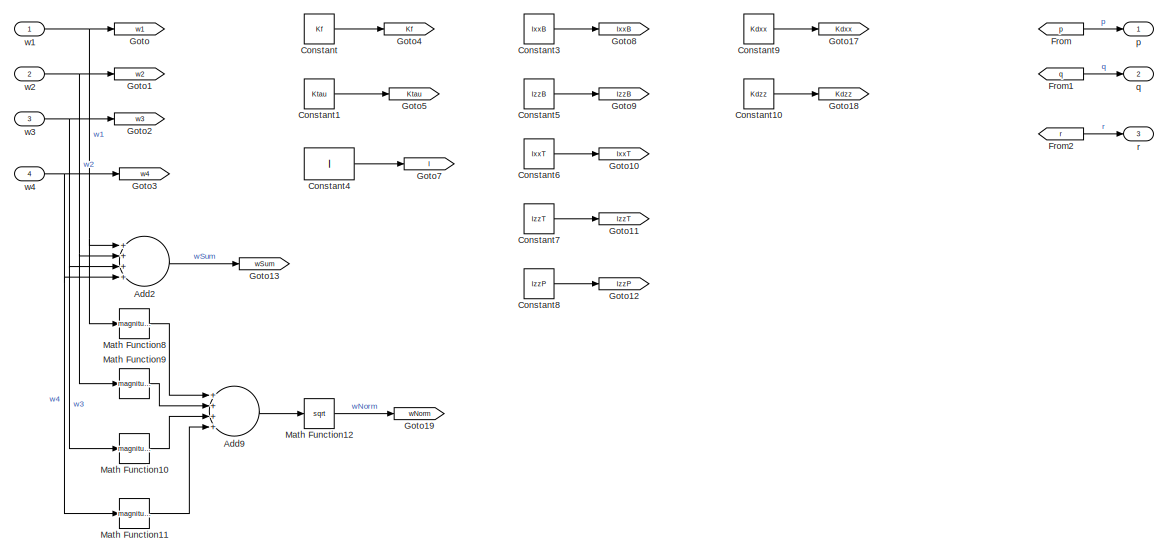
[diagram: System/Flight Mechanics/Attitude Dynamics - part 1/4, top left region]
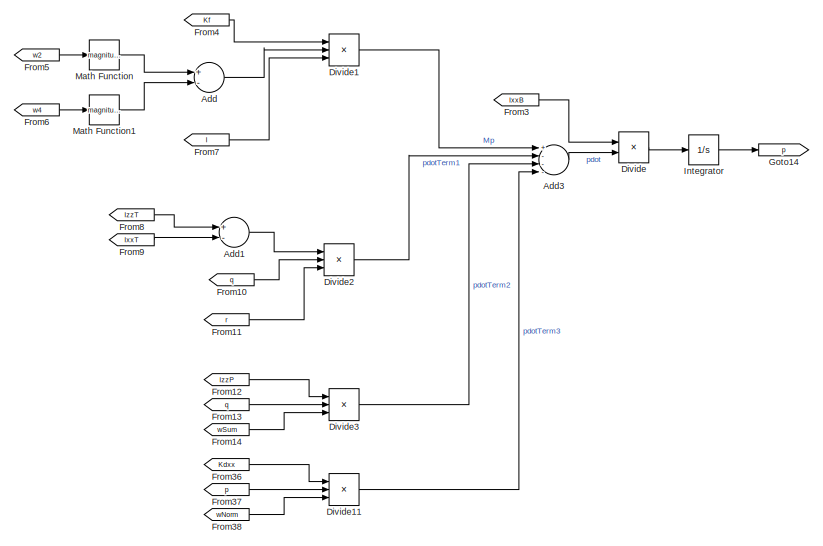
[diagram: System/Flight Mechanics/Attitude Dynamics - part 2/4, middle left region]
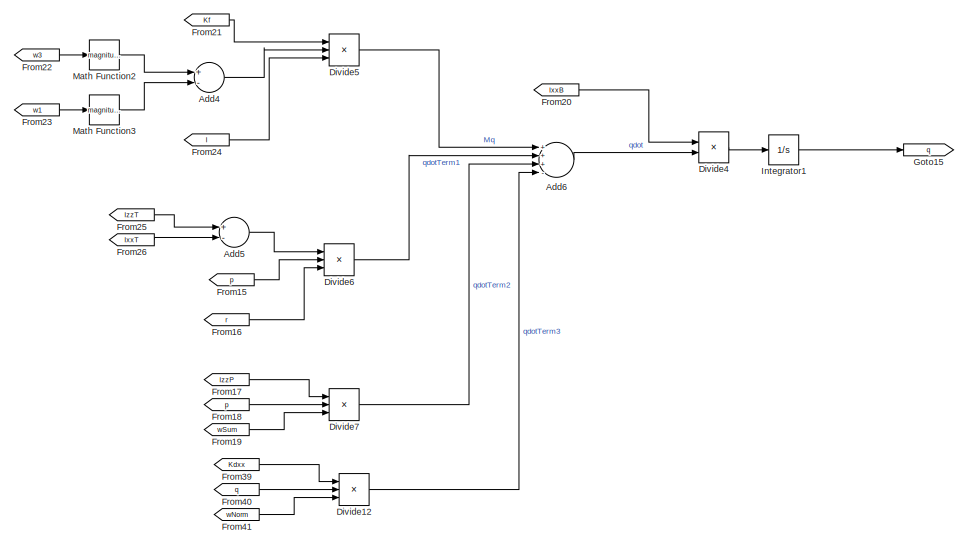
[diagram: System/Flight Mechanics/Attitude Dynamics - part 3/4, middle right region]
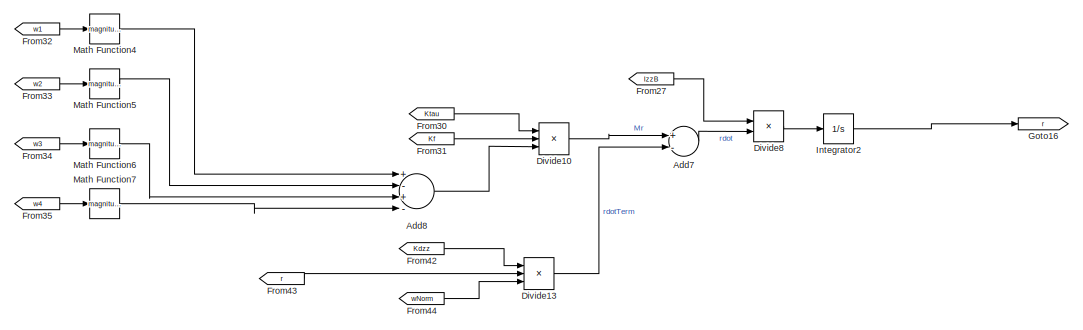
[diagram: System/Flight Mechanics/Attitude Dynamics - part 4/4, bottom center region]
BLOCK [SubSystem] System/Flight Mechanics/Attitude Dynamics
  Ports = [4, 3]
  RequestExecContextInheritance = off
BLOCK [Sum] System/Flight Mechanics/Attitude Dynamics/Add
  InputSameDT = off
  Inputs = +-
  OutDataTypeStr = Inherit: Inherit via internal rule
  Ports = [2, 1]
  SaturateOnIntegerOverflow = off
BLOCK [Sum] System/Flight Mechanics/Attitude Dynamics/Add1
  InputSameDT = off
  Inputs = +-
  OutDataTypeStr = Inherit: Inherit via internal rule
  Ports = [2, 1]
  SaturateOnIntegerOverflow = off
BLOCK [Sum] System/Flight Mechanics/Attitude Dynamics/Add2
  InputSameDT = off
  Inputs = ++++
  OutDataTypeStr = Inherit: Inherit via internal rule
  Ports = [4, 1]
  SaturateOnIntegerOverflow = off
BLOCK [Sum] System/Flight Mechanics/Attitude Dynamics/Add3
  InputSameDT = off
  Inputs = +---
  OutDataTypeStr = Inherit: Inherit via internal rule
  Ports = [4, 1]
  SaturateOnIntegerOverflow = off
BLOCK [Sum] System/Flight Mechanics/Attitude Dynamics/Add4
  InputSameDT = off
  Inputs = +-
  OutDataTypeStr = Inherit: Inherit via internal rule
  Ports = [2, 1]
  SaturateOnIntegerOverflow = off
BLOCK [Sum] System/Flight Mechanics/Attitude Dynamics/Add5
  InputSameDT = off
  Inputs = +-
  OutDataTypeStr = Inherit: Inherit via internal rule
  Ports = [2, 1]
  SaturateOnIntegerOverflow = off
BLOCK [Sum] System/Flight Mechanics/Attitude Dynamics/Add6
  InputSameDT = off
  Inputs = +++-
  OutDataTypeStr = Inherit: Inherit via internal rule
  Ports = [4, 1]
  SaturateOnIntegerOverflow = off
BLOCK [Sum] System/Flight Mechanics/Attitude Dynamics/Add7
  InputSameDT = off
  Inputs = +-
  OutDataTypeStr = Inherit: Inherit via internal rule
  Ports = [2, 1]
  SaturateOnIntegerOverflow = off
BLOCK [Sum] System/Flight Mechanics/Attitude Dynamics/Add8
  InputSameDT = off
  Inputs = +-+-
  OutDataTypeStr = Inherit: Inherit via internal rule
  Ports = [4, 1]
  SaturateOnIntegerOverflow = off
BLOCK [Sum] System/Flight Mechanics/Attitude Dynamics/Add9
  InputSameDT = off
  Inputs = ++++
  OutDataTypeStr = Inherit: Inherit via internal rule
  Ports = [4, 1]
  SaturateOnIntegerOverflow = off
BLOCK [Constant] System/Flight Mechanics/Attitude Dynamics/Constant
  Value = Kf
BLOCK [Constant] System/Flight Mechanics/Attitude Dynamics/Constant1
  Value = Ktau
BLOCK [Constant] System/Flight Mechanics/Attitude Dynamics/Constant10
  Value = Kdzz
BLOCK [Constant] System/Flight Mechanics/Attitude Dynamics/Constant3
  Value = IxxB
BLOCK [Constant] System/Flight Mechanics/Attitude Dynamics/Constant4
  Value = l
BLOCK [Constant] System/Flight Mechanics/Attitude Dynamics/Constant5
  Value = IzzB
BLOCK [Constant] System/Flight Mechanics/Attitude Dynamics/Constant6
  Value = IxxT
BLOCK [Constant] System/Flight Mechanics/Attitude Dynamics/Constant7
  Value = IzzT
BLOCK [Constant] System/Flight Mechanics/Attitude Dynamics/Constant8
  Value = IzzP
BLOCK [Constant] System/Flight Mechanics/Attitude Dynamics/Constant9
  Value = Kdxx
BLOCK [Product] System/Flight Mechanics/Attitude Dynamics/Divide
  InputSameDT = off
  Inputs = /*
  OutDataTypeStr = Inherit: Inherit via internal rule
  Ports = [2, 1]
  RndMeth = Floor
  SaturateOnIntegerOverflow = off
BLOCK [Product] System/Flight Mechanics/Attitude Dynamics/Divide1
  InputSameDT = off
  Inputs = ***
  OutDataTypeStr = Inherit: Inherit via internal rule
  Ports = [3, 1]
  RndMeth = Floor
  SaturateOnIntegerOverflow = off
BLOCK [Product] System/Flight Mechanics/Attitude Dynamics/Divide10
  InputSameDT = off
  Inputs = ***
  OutDataTypeStr = Inherit: Inherit via internal rule
  Ports = [3, 1]
  RndMeth = Floor
  SaturateOnIntegerOverflow = off
BLOCK [Product] System/Flight Mechanics/Attitude Dynamics/Divide11
  InputSameDT = off
  Inputs = ***
  OutDataTypeStr = Inherit: Inherit via internal rule
  Ports = [3, 1]
  RndMeth = Floor
  SaturateOnIntegerOverflow = off
BLOCK [Product] System/Flight Mechanics/Attitude Dynamics/Divide12
  InputSameDT = off
  Inputs = ***
  OutDataTypeStr = Inherit: Inherit via internal rule
  Ports = [3, 1]
  RndMeth = Floor
  SaturateOnIntegerOverflow = off
BLOCK [Product] System/Flight Mechanics/Attitude Dynamics/Divide13
  InputSameDT = off
  Inputs = ***
  OutDataTypeStr = Inherit: Inherit via internal rule
  Ports = [3, 1]
  RndMeth = Floor
  SaturateOnIntegerOverflow = off
BLOCK [Product] System/Flight Mechanics/Attitude Dynamics/Divide2
  InputSameDT = off
  Inputs = ***
  OutDataTypeStr = Inherit: Inherit via internal rule
  Ports = [3, 1]
  RndMeth = Floor
  SaturateOnIntegerOverflow = off
BLOCK [Product] System/Flight Mechanics/Attitude Dynamics/Divide3
  InputSameDT = off
  Inputs = ***
  OutDataTypeStr = Inherit: Inherit via internal rule
  Ports = [3, 1]
  RndMeth = Floor
  SaturateOnIntegerOverflow = off
BLOCK [Product] System/Flight Mechanics/Attitude Dynamics/Divide4
  InputSameDT = off
  Inputs = /*
  OutDataTypeStr = Inherit: Inherit via internal rule
  Ports = [2, 1]
  RndMeth = Floor
  SaturateOnIntegerOverflow = off
BLOCK [Product] System/Flight Mechanics/Attitude Dynamics/Divide5
  InputSameDT = off
  Inputs = ***
  OutDataTypeStr = Inherit: Inherit via internal rule
  Ports = [3, 1]
  RndMeth = Floor
  SaturateOnIntegerOverflow = off
BLOCK [Product] System/Flight Mechanics/Attitude Dynamics/Divide6
  InputSameDT = off
  Inputs = ***
  OutDataTypeStr = Inherit: Inherit via internal rule
  Ports = [3, 1]
  RndMeth = Floor
  SaturateOnIntegerOverflow = off
BLOCK [Product] System/Flight Mechanics/Attitude Dynamics/Divide7
  InputSameDT = off
  Inputs = ***
  OutDataTypeStr = Inherit: Inherit via internal rule
  Ports = [3, 1]
  RndMeth = Floor
  SaturateOnIntegerOverflow = off
BLOCK [Product] System/Flight Mechanics/Attitude Dynamics/Divide8
  InputSameDT = off
  Inputs = /*
  OutDataTypeStr = Inherit: Inherit via internal rule
  Ports = [2, 1]
  RndMeth = Floor
  SaturateOnIntegerOverflow = off
BLOCK [From] System/Flight Mechanics/Attitude Dynamics/From
  GotoTag = p
BLOCK [From] System/Flight Mechanics/Attitude Dynamics/From1
  GotoTag = q
BLOCK [From] System/Flight Mechanics/Attitude Dynamics/From10
  GotoTag = q
BLOCK [From] System/Flight Mechanics/Attitude Dynamics/From11
  GotoTag = r
BLOCK [From] System/Flight Mechanics/Attitude Dynamics/From12
  GotoTag = IzzP
BLOCK [From] System/Flight Mechanics/Attitude Dynamics/From13
  GotoTag = q
BLOCK [From] System/Flight Mechanics/Attitude Dynamics/From14
  GotoTag = wSum
BLOCK [From] System/Flight Mechanics/Attitude Dynamics/From15
  GotoTag = p
BLOCK [From] System/Flight Mechanics/Attitude Dynamics/From16
  GotoTag = r
BLOCK [From] System/Flight Mechanics/Attitude Dynamics/From17
  GotoTag = IzzP
BLOCK [From] System/Flight Mechanics/Attitude Dynamics/From18
  GotoTag = p
BLOCK [From] System/Flight Mechanics/Attitude Dynamics/From19
  GotoTag = wSum
BLOCK [From] System/Flight Mechanics/Attitude Dynamics/From2
  GotoTag = r
BLOCK [From] System/Flight Mechanics/Attitude Dynamics/From20
  GotoTag = IxxB
BLOCK [From] System/Flight Mechanics/Attitude Dynamics/From21
  GotoTag = Kf
BLOCK [From] System/Flight Mechanics/Attitude Dynamics/From22
  GotoTag = w3
BLOCK [From] System/Flight Mechanics/Attitude Dynamics/From23
  GotoTag = w1
BLOCK [From] System/Flight Mechanics/Attitude Dynamics/From24
  GotoTag = l
BLOCK [From] System/Flight Mechanics/Attitude Dynamics/From25
  GotoTag = IzzT
BLOCK [From] System/Flight Mechanics/Attitude Dynamics/From26
  GotoTag = IxxT
BLOCK [From] System/Flight Mechanics/Attitude Dynamics/From27
  GotoTag = IzzB
BLOCK [From] System/Flight Mechanics/Attitude Dynamics/From3
  GotoTag = IxxB
BLOCK [From] System/Flight Mechanics/Attitude Dynamics/From30
  GotoTag = Ktau
BLOCK [From] System/Flight Mechanics/Attitude Dynamics/From31
  GotoTag = Kf
BLOCK [From] System/Flight Mechanics/Attitude Dynamics/From32
  GotoTag = w1
BLOCK [From] System/Flight Mechanics/Attitude Dynamics/From33
  GotoTag = w2
BLOCK [From] System/Flight Mechanics/Attitude Dynamics/From34
  GotoTag = w3
BLOCK [From] System/Flight Mechanics/Attitude Dynamics/From35
  GotoTag = w4
BLOCK [From] System/Flight Mechanics/Attitude Dynamics/From36
  GotoTag = Kdxx
BLOCK [From] System/Flight Mechanics/Attitude Dynamics/From37
  GotoTag = p
BLOCK [From] System/Flight Mechanics/Attitude Dynamics/From38
  GotoTag = wNorm
BLOCK [From] System/Flight Mechanics/Attitude Dynamics/From39
  GotoTag = Kdxx
BLOCK [From] System/Flight Mechanics/Attitude Dynamics/From4
  GotoTag = Kf
BLOCK [From] System/Flight Mechanics/Attitude Dynamics/From40
  GotoTag = q
BLOCK [From] System/Flight Mechanics/Attitude Dynamics/From41
  GotoTag = wNorm
BLOCK [From] System/Flight Mechanics/Attitude Dynamics/From42
  GotoTag = Kdzz
BLOCK [From] System/Flight Mechanics/Attitude Dynamics/From43
  GotoTag = r
BLOCK [From] System/Flight Mechanics/Attitude Dynamics/From44
  GotoTag = wNorm
BLOCK [From] System/Flight Mechanics/Attitude Dynamics/From5
  GotoTag = w2
BLOCK [From] System/Flight Mechanics/Attitude Dynamics/From6
  GotoTag = w4
BLOCK [From] System/Flight Mechanics/Attitude Dynamics/From7
  GotoTag = l
BLOCK [From] System/Flight Mechanics/Attitude Dynamics/From8
  GotoTag = IzzT
BLOCK [From] System/Flight Mechanics/Attitude Dynamics/From9
  GotoTag = IxxT
BLOCK [Goto] System/Flight Mechanics/Attitude Dynamics/Goto
  GotoTag = w1
BLOCK [Goto] System/Flight Mechanics/Attitude Dynamics/Goto1
  GotoTag = w2
BLOCK [Goto] System/Flight Mechanics/Attitude Dynamics/Goto10
  GotoTag = IxxT
BLOCK [Goto] System/Flight Mechanics/Attitude Dynamics/Goto11
  GotoTag = IzzT
BLOCK [Goto] System/Flight Mechanics/Attitude Dynamics/Goto12
  GotoTag = IzzP
BLOCK [Goto] System/Flight Mechanics/Attitude Dynamics/Goto13
  GotoTag = wSum
BLOCK [Goto] System/Flight Mechanics/Attitude Dynamics/Goto14
  GotoTag = p
BLOCK [Goto] System/Flight Mechanics/Attitude Dynamics/Goto15
  GotoTag = q
BLOCK [Goto] System/Flight Mechanics/Attitude Dynamics/Goto16
  GotoTag = r
BLOCK [Goto] System/Flight Mechanics/Attitude Dynamics/Goto17
  GotoTag = Kdxx
BLOCK [Goto] System/Flight Mechanics/Attitude Dynamics/Goto18
  GotoTag = Kdzz
BLOCK [Goto] System/Flight Mechanics/Attitude Dynamics/Goto19
  GotoTag = wNorm
BLOCK [Goto] System/Flight Mechanics/Attitude Dynamics/Goto2
  GotoTag = w3
BLOCK [Goto] System/Flight Mechanics/Attitude Dynamics/Goto3
  GotoTag = w4
BLOCK [Goto] System/Flight Mechanics/Attitude Dynamics/Goto4
  GotoTag = Kf
BLOCK [Goto] System/Flight Mechanics/Attitude Dynamics/Goto5
  GotoTag = Ktau
BLOCK [Goto] System/Flight Mechanics/Attitude Dynamics/Goto7
  GotoTag = l
BLOCK [Goto] System/Flight Mechanics/Attitude Dynamics/Goto8
  GotoTag = IxxB
BLOCK [Goto] System/Flight Mechanics/Attitude Dynamics/Goto9
  GotoTag = IzzB
BLOCK [Integrator] System/Flight Mechanics/Attitude Dynamics/Integrator
  InitialCondition = pqr0(1)
  Ports = [1, 1]
BLOCK [Integrator] System/Flight Mechanics/Attitude Dynamics/Integrator1
  InitialCondition = pqr0(2)
  Ports = [1, 1]
BLOCK [Integrator] System/Flight Mechanics/Attitude Dynamics/Integrator2
  InitialCondition = pqr0(3)
  Ports = [1, 1]
BLOCK [Math] System/Flight Mechanics/Attitude Dynamics/Math Function
  Operator = magnitude^2
  Ports = [1, 1]
BLOCK [Math] System/Flight Mechanics/Attitude Dynamics/Math Function1
  Operator = magnitude^2
  Ports = [1, 1]
BLOCK [Math] System/Flight Mechanics/Attitude Dynamics/Math Function10
  Operator = magnitude^2
  Ports = [1, 1]
BLOCK [Math] System/Flight Mechanics/Attitude Dynamics/Math Function11
  Operator = magnitude^2
  Ports = [1, 1]
BLOCK [Math] System/Flight Mechanics/Attitude Dynamics/Math Function12
  Operator = sqrt
  Ports = [1, 1]
BLOCK [Math] System/Flight Mechanics/Attitude Dynamics/Math Function2
  Operator = magnitude^2
  Ports = [1, 1]
BLOCK [Math] System/Flight Mechanics/Attitude Dynamics/Math Function3
  Operator = magnitude^2
  Ports = [1, 1]
BLOCK [Math] System/Flight Mechanics/Attitude Dynamics/Math Function4
  Operator = magnitude^2
  Ports = [1, 1]
BLOCK [Math] System/Flight Mechanics/Attitude Dynamics/Math Function5
  Operator = magnitude^2
  Ports = [1, 1]
BLOCK [Math] System/Flight Mechanics/Attitude Dynamics/Math Function6
  Operator = magnitude^2
  Ports = [1, 1]
BLOCK [Math] System/Flight Mechanics/Attitude Dynamics/Math Function7
  Operator = magnitude^2
  Ports = [1, 1]
BLOCK [Math] System/Flight Mechanics/Attitude Dynamics/Math Function8
  Operator = magnitude^2
  Ports = [1, 1]
BLOCK [Math] System/Flight Mechanics/Attitude Dynamics/Math Function9
  Operator = magnitude^2
  Ports = [1, 1]
BLOCK [Outport] System/Flight Mechanics/Attitude Dynamics/p
  IconDisplay = Port number
BLOCK [Outport] System/Flight Mechanics/Attitude Dynamics/q
  IconDisplay = Port number
  Port = 2
BLOCK [Outport] System/Flight Mechanics/Attitude Dynamics/r
  IconDisplay = Port number
  Port = 3
BLOCK [Inport] System/Flight Mechanics/Attitude Dynamics/w1
  IconDisplay = Port number
BLOCK [Inport] System/Flight Mechanics/Attitude Dynamics/w2
  IconDisplay = Port number
  Port = 2
BLOCK [Inport] System/Flight Mechanics/Attitude Dynamics/w3
  IconDisplay = Port number
  Port = 3
BLOCK [Inport] System/Flight Mechanics/Attitude Dynamics/w4
  IconDisplay = Port number
  Port = 4
BLOCK [SubSystem] System/Flight Mechanics/DCM E to B
  Ports = [1, 1]
  RequestExecContextInheritance = off
BLOCK [Outport] System/Flight Mechanics/DCM E to B/CB_E
  IconDisplay = Port number
BLOCK [Reference] System/Flight Mechanics/DCM E to B/Create 3x3 Matrix  REF=aerolibutil/Create 3x3 Matrix
  Ports = [9, 1]
  SourceBlock = aerolibutil/Create 3x3 Matrix
  SourceType = Create 3x3 Matrix
BLOCK [Fcn] System/Flight Mechanics/DCM E to B/Fcn11
  Expr = u(5)*u(6)
BLOCK [Fcn] System/Flight Mechanics/DCM E to B/Fcn12
  Expr = u(3)*u(5)
BLOCK [Fcn] System/Flight Mechanics/DCM E to B/Fcn13
  Expr = -u(2)
BLOCK [Fcn] System/Flight Mechanics/DCM E to B/Fcn21
  Expr = u(1)*u(2)*u(6)-u(4)*u(3)
BLOCK [Fcn] System/Flight Mechanics/DCM E to B/Fcn22
  Expr = u(1)*u(2)*u(3)+u(4)*u(6)
BLOCK [Fcn] System/Flight Mechanics/DCM E to B/Fcn23
  Expr = u(1)*u(5)
BLOCK [Fcn] System/Flight Mechanics/DCM E to B/Fcn31
  Expr = u(4)*u(2)*u(6)+u(1)*u(3)
BLOCK [Fcn] System/Flight Mechanics/DCM E to B/Fcn32
  Expr = u(4)*u(2)*u(3)-u(1)*u(6)
BLOCK [Fcn] System/Flight Mechanics/DCM E to B/Fcn33
  Expr = u(4)*u(5)
BLOCK [Mux] System/Flight Mechanics/DCM E to B/Mux
  DisplayOption = bar
  Inputs = 2
  Ports = [2, 1]
BLOCK [Inport] System/Flight Mechanics/DCM E to B/phithetapsi
  IconDisplay = Port number
BLOCK [Trigonometry] System/Flight Mechanics/DCM E to B/sincos
  Operator = sincos
  Ports = [1, 2]
BLOCK [Inport] System/Flight Mechanics/Euler
  IconDisplay = Port number
  Port = 5
BLOCK [From] System/Flight Mechanics/From10
  GotoTag = w1
BLOCK [From] System/Flight Mechanics/From11
  GotoTag = w2
BLOCK [From] System/Flight Mechanics/From12
  GotoTag = w3
BLOCK [From] System/Flight Mechanics/From13
  GotoTag = w4
BLOCK [From] System/Flight Mechanics/From16
  GotoTag = wB
BLOCK [From] System/Flight Mechanics/From18
  GotoTag = aB
BLOCK [From] System/Flight Mechanics/From19
  GotoTag = DCM_E_to_B
BLOCK [From] System/Flight Mechanics/From20
  GotoTag = phithetapsi
BLOCK [From] System/Flight Mechanics/From6
  GotoTag = w1
BLOCK [From] System/Flight Mechanics/From7
  GotoTag = w2
BLOCK [From] System/Flight Mechanics/From8
  GotoTag = w3
BLOCK [From] System/Flight Mechanics/From9
  GotoTag = w4
BLOCK [Gain] System/Flight Mechanics/Gain
  Gain = 180/pi
  OutDataTypeStr = Inherit: Inherit via internal rule
  ParamDataTypeStr = Inherit: Inherit via internal rule
  SaturateOnIntegerOverflow = off
BLOCK [Gain] System/Flight Mechanics/Gain1
  Gain = 1/g
  OutDataTypeStr = Inherit: Inherit via internal rule
  ParamDataTypeStr = Inherit: Inherit via internal rule
  SaturateOnIntegerOverflow = off
BLOCK [Goto] System/Flight Mechanics/Goto
  GotoTag = w1
BLOCK [Goto] System/Flight Mechanics/Goto10
  GotoTag = w4
BLOCK [Goto] System/Flight Mechanics/Goto11
  GotoTag = aB
BLOCK [Goto] System/Flight Mechanics/Goto14
  GotoTag = DCM_E_to_B
BLOCK [Goto] System/Flight Mechanics/Goto15
  GotoTag = phithetapsi
BLOCK [Goto] System/Flight Mechanics/Goto4
  GotoTag = wB
BLOCK [Goto] System/Flight Mechanics/Goto8
  GotoTag = w2
BLOCK [Goto] System/Flight Mechanics/Goto9
  GotoTag = w3
BLOCK [Mux] System/Flight Mechanics/Mux
  DisplayOption = bar
  Inputs = 3
  Ports = [3, 1]
BLOCK [Mux] System/Flight Mechanics/Mux1
  DisplayOption = bar
  Inputs = 3
  Ports = [3, 1]
BLOCK [Reshape] System/Flight Mechanics/Reshape
  OutputDimensionality = Column vector (2-D)
  Ports = [1, 1]
BLOCK [Reshape] System/Flight Mechanics/Reshape1
  OutputDimensionality = Column vector (2-D)
  Ports = [1, 1]
BLOCK [Terminator] System/Flight Mechanics/Terminator2
BLOCK [Terminator] System/Flight Mechanics/Terminator7
BLOCK [SubSystem] System/Flight Mechanics/Translation Dynamics
  Ports = [5, 3]
  RequestExecContextInheritance = off
BLOCK [Sum] System/Flight Mechanics/Translation Dynamics/Add1
  InputSameDT = off
  Inputs = ++++
  OutDataTypeStr = Inherit: Inherit via internal rule
  Ports = [4, 1]
  SaturateOnIntegerOverflow = off
BLOCK [Sum] System/Flight Mechanics/Translation Dynamics/Add2
  InputSameDT = off
  OutDataTypeStr = Inherit: Inherit via internal rule
  Ports = [2, 1]
  SaturateOnIntegerOverflow = off
BLOCK [Sum] System/Flight Mechanics/Translation Dynamics/Add3
  InputSameDT = off
  OutDataTypeStr = Inherit: Inherit via internal rule
  Ports = [2, 1]
  SaturateOnIntegerOverflow = off
BLOCK [Sum] System/Flight Mechanics/Translation Dynamics/Add4
  InputSameDT = off
  OutDataTypeStr = Inherit: Inherit via internal rule
  Ports = [2, 1]
  SaturateOnIntegerOverflow = off
BLOCK [Constant] System/Flight Mechanics/Translation Dynamics/Constant
  Value = 0
BLOCK [Constant] System/Flight Mechanics/Translation Dynamics/Constant1
  Value = 0
BLOCK [Constant] System/Flight Mechanics/Translation Dynamics/Constant2
  Value = m
BLOCK [Constant] System/Flight Mechanics/Translation Dynamics/Constant3
  Value = 0
BLOCK [Constant] System/Flight Mechanics/Translation Dynamics/Constant4
  Value = g
BLOCK [Inport] System/Flight Mechanics/Translation Dynamics/DCM
  IconDisplay = Port number
  Port = 5
BLOCK [Demux] System/Flight Mechanics/Translation Dynamics/Demux
  DisplayOption = bar
  Outputs = 3
  Ports = [1, 3]
BLOCK [Demux] System/Flight Mechanics/Translation Dynamics/Demux1
  DisplayOption = bar
  Outputs = 3
  Ports = [1, 3]
BLOCK [Demux] System/Flight Mechanics/Translation Dynamics/Demux2
  DisplayOption = bar
  Outputs = 3
  Ports = [1, 3]
BLOCK [Product] System/Flight Mechanics/Translation Dynamics/Divide
  InputSameDT = off
  Inputs = */
  OutDataTypeStr = Inherit: Inherit via internal rule
  Ports = [2, 1]
  RndMeth = Floor
  SaturateOnIntegerOverflow = off
BLOCK [From] System/Flight Mechanics/Translation Dynamics/From
  GotoTag = ax
BLOCK [From] System/Flight Mechanics/Translation Dynamics/From1
  GotoTag = ay
BLOCK [From] System/Flight Mechanics/Translation Dynamics/From10
  GotoTag = ag
BLOCK [From] System/Flight Mechanics/Translation Dynamics/From11
  GotoTag = ag
BLOCK [From] System/Flight Mechanics/Translation Dynamics/From2
  GotoTag = ag
BLOCK [From] System/Flight Mechanics/Translation Dynamics/From3
  GotoTag = w1
BLOCK [From] System/Flight Mechanics/Translation Dynamics/From4
  GotoTag = w2
BLOCK [From] System/Flight Mechanics/Translation Dynamics/From5
  GotoTag = w3
BLOCK [From] System/Flight Mechanics/Translation Dynamics/From6
  GotoTag = w4
BLOCK [From] System/Flight Mechanics/Translation Dynamics/From8
  GotoTag = DCM_E_to_B
BLOCK [From] System/Flight Mechanics/Translation Dynamics/From9
  GotoTag = az
BLOCK [Gain] System/Flight Mechanics/Translation Dynamics/Gain
  Gain = Kf
  OutDataTypeStr = Inherit: Inherit via internal rule
  ParamDataTypeStr = Inherit: Inherit via internal rule
  SaturateOnIntegerOverflow = off
BLOCK [Gain] System/Flight Mechanics/Translation Dynamics/Gain1
  Gain = Kf
  OutDataTypeStr = Inherit: Inherit via internal rule
  ParamDataTypeStr = Inherit: Inherit via internal rule
  SaturateOnIntegerOverflow = off
BLOCK [Gain] System/Flight Mechanics/Translation Dynamics/Gain2
  Gain = Kf
  OutDataTypeStr = Inherit: Inherit via internal rule
  ParamDataTypeStr = Inherit: Inherit via internal rule
  SaturateOnIntegerOverflow = off
BLOCK [Gain] System/Flight Mechanics/Translation Dynamics/Gain3
  Gain = Kf
  OutDataTypeStr = Inherit: Inherit via internal rule
  ParamDataTypeStr = Inherit: Inherit via internal rule
  SaturateOnIntegerOverflow = off
BLOCK [Gain] System/Flight Mechanics/Translation Dynamics/Gain5
  Gain = -1
  OutDataTypeStr = Inherit: Inherit via internal rule
  ParamDataTypeStr = Inherit: Inherit via internal rule
  SaturateOnIntegerOverflow = off
BLOCK [Goto] System/Flight Mechanics/Translation Dynamics/Goto
  GotoTag = w1
BLOCK [Goto] System/Flight Mechanics/Translation Dynamics/Goto1
  GotoTag = w2
BLOCK [Goto] System/Flight Mechanics/Translation Dynamics/Goto2
  GotoTag = w3
BLOCK [Goto] System/Flight Mechanics/Translation Dynamics/Goto3
  GotoTag = w4
BLOCK [Goto] System/Flight Mechanics/Translation Dynamics/Goto4
  GotoTag = az
BLOCK [Goto] System/Flight Mechanics/Translation Dynamics/Goto5
  GotoTag = ax
BLOCK [Goto] System/Flight Mechanics/Translation Dynamics/Goto6
  GotoTag = ay
BLOCK [Goto] System/Flight Mechanics/Translation Dynamics/Goto7
  GotoTag = DCM_E_to_B
BLOCK [Goto] System/Flight Mechanics/Translation Dynamics/Goto8
  GotoTag = ag
BLOCK [Math] System/Flight Mechanics/Translation Dynamics/Math Function1
  Operator = magnitude^2
  Ports = [1, 1]
BLOCK [Math] System/Flight Mechanics/Translation Dynamics/Math Function10
  Operator = magnitude^2
  Ports = [1, 1]
BLOCK [Math] System/Flight Mechanics/Translation Dynamics/Math Function8
  Operator = magnitude^2
  Ports = [1, 1]
BLOCK [Math] System/Flight Mechanics/Translation Dynamics/Math Function9
  Operator = magnitude^2
  Ports = [1, 1]
BLOCK [Mux] System/Flight Mechanics/Translation Dynamics/Mux
  DisplayOption = bar
  Inputs = 3
  Ports = [3, 1]
BLOCK [Product] System/Flight Mechanics/Translation Dynamics/Product
  InputSameDT = off
  Multiplication = Matrix(*)
  OutDataTypeStr = Inherit: Inherit via internal rule
  Ports = [2, 1]
  SaturateOnIntegerOverflow = off
BLOCK [Reshape] System/Flight Mechanics/Translation Dynamics/Reshape
  OutputDimensionality = Column vector (2-D)
  Ports = [1, 1]
BLOCK [Terminator] System/Flight Mechanics/Translation Dynamics/Terminator
BLOCK [Terminator] System/Flight Mechanics/Translation Dynamics/Terminator1
BLOCK [Terminator] System/Flight Mechanics/Translation Dynamics/Terminator2
BLOCK [Terminator] System/Flight Mechanics/Translation Dynamics/Terminator3
BLOCK [Terminator] System/Flight Mechanics/Translation Dynamics/Terminator4
BLOCK [Terminator] System/Flight Mechanics/Translation Dynamics/Terminator5
BLOCK [Outport] System/Flight Mechanics/Translation Dynamics/ax
  IconDisplay = Port number
BLOCK [Outport] System/Flight Mechanics/Translation Dynamics/ay
  IconDisplay = Port number
  Port = 2
BLOCK [Outport] System/Flight Mechanics/Translation Dynamics/az
  IconDisplay = Port number
  Port = 3
BLOCK [Inport] System/Flight Mechanics/Translation Dynamics/w1
  IconDisplay = Port number
BLOCK [Inport] System/Flight Mechanics/Translation Dynamics/w2
  IconDisplay = Port number
  Port = 2
BLOCK [Inport] System/Flight Mechanics/Translation Dynamics/w3
  IconDisplay = Port number
  Port = 3
BLOCK [Inport] System/Flight Mechanics/Translation Dynamics/w4
  IconDisplay = Port number
  Port = 4
BLOCK [Outport] System/Flight Mechanics/aB
  IconDisplay = Port number
BLOCK [Inport] System/Flight Mechanics/w1
  IconDisplay = Port number
BLOCK [Inport] System/Flight Mechanics/w2
  IconDisplay = Port number
  Port = 2
BLOCK [Inport] System/Flight Mechanics/w3
  IconDisplay = Port number
  Port = 3
BLOCK [Inport] System/Flight Mechanics/w4
  IconDisplay = Port number
  Port = 4
BLOCK [Outport] System/Flight Mechanics/wB_rad
  IconDisplay = Port number
  Port = 2
BLOCK [From] System/From
  GotoTag = Ve
BLOCK [From] System/From1
  GotoTag = wc
BLOCK [From] System/From10
  GotoTag = wB
BLOCK [From] System/From3
  GotoTag = euler_rad
BLOCK [From] System/From4
  GotoTag = euler_rad
BLOCK [From] System/From5
  GotoTag = wRotor
BLOCK [From] System/From7
  GotoTag = aB
BLOCK [From] System/From8
  GotoTag = Xe
BLOCK [Gain] System/Gain7
  Gain = Kf
  OutDataTypeStr = Inherit: Inherit via internal rule
  ParamDataTypeStr = Inherit: Inherit via internal rule
  SaturateOnIntegerOverflow = off
BLOCK [Goto] System/Goto2
  GotoTag = wB
BLOCK [Goto] System/Goto3
  GotoTag = euler_rad
BLOCK [Goto] System/Goto4
  GotoTag = wRotor
BLOCK [Goto] System/Goto5
  GotoTag = aB
BLOCK [Goto] System/Goto6
  GotoTag = Ve
BLOCK [Goto] System/Goto7
  GotoTag = Xe
BLOCK [Goto] System/Goto8
  GotoTag = wc
BLOCK [Math] System/Math Function7
  Operator = magnitude^2
  Ports = [1, 1]
BLOCK [SubSystem] System/Motor Dynamics
  Ports = [4, 1]
  RequestExecContextInheritance = off
BLOCK [From] System/Motor Dynamics/From1
  GotoTag = w2
BLOCK [From] System/Motor Dynamics/From18
  GotoTag = w1
BLOCK [From] System/Motor Dynamics/From2
  GotoTag = w3
BLOCK [From] System/Motor Dynamics/From3
  GotoTag = w4
BLOCK [From] System/Motor Dynamics/From4
  GotoTag = w1c
BLOCK [From] System/Motor Dynamics/From5
  GotoTag = w2c
BLOCK [From] System/Motor Dynamics/From6
  GotoTag = w3c
BLOCK [From] System/Motor Dynamics/From7
  GotoTag = w4c
BLOCK [Gain] System/Motor Dynamics/Gain1
  Gain = Kf
  OutDataTypeStr = Inherit: Inherit via internal rule
  ParamDataTypeStr = Inherit: Inherit via internal rule
  SaturateOnIntegerOverflow = off
BLOCK [Gain] System/Motor Dynamics/Gain2
  Gain = 1/Kf
  OutDataTypeStr = Inherit: Inherit via internal rule
  ParamDataTypeStr = Inherit: Inherit via internal rule
  SaturateOnIntegerOverflow = off
BLOCK [Gain] System/Motor Dynamics/Gain3
  Gain = Kf
  OutDataTypeStr = Inherit: Inherit via internal rule
  ParamDataTypeStr = Inherit: Inherit via internal rule
  SaturateOnIntegerOverflow = off
BLOCK [Gain] System/Motor Dynamics/Gain4
  Gain = 1/Kf
  OutDataTypeStr = Inherit: Inherit via internal rule
  ParamDataTypeStr = Inherit: Inherit via internal rule
  SaturateOnIntegerOverflow = off
BLOCK [Gain] System/Motor Dynamics/Gain5
  Gain = Kf
  OutDataTypeStr = Inherit: Inherit via internal rule
  ParamDataTypeStr = Inherit: Inherit via internal rule
  SaturateOnIntegerOverflow = off
BLOCK [Gain] System/Motor Dynamics/Gain6
  Gain = 1/Kf
  OutDataTypeStr = Inherit: Inherit via internal rule
  ParamDataTypeStr = Inherit: Inherit via internal rule
  SaturateOnIntegerOverflow = off
BLOCK [Gain] System/Motor Dynamics/Gain7
  Gain = Kf
  OutDataTypeStr = Inherit: Inherit via internal rule
  ParamDataTypeStr = Inherit: Inherit via internal rule
  SaturateOnIntegerOverflow = off
BLOCK [Gain] System/Motor Dynamics/Gain8
  Gain = 1/Kf
  OutDataTypeStr = Inherit: Inherit via internal rule
  ParamDataTypeStr = Inherit: Inherit via internal rule
  SaturateOnIntegerOverflow = off
BLOCK [Goto] System/Motor Dynamics/Goto
  GotoTag = w1c
BLOCK [Goto] System/Motor Dynamics/Goto1
  GotoTag = w1
BLOCK [Goto] System/Motor Dynamics/Goto10
  GotoTag = w4c
BLOCK [Goto] System/Motor Dynamics/Goto2
  GotoTag = w2
BLOCK [Goto] System/Motor Dynamics/Goto3
  GotoTag = w3
BLOCK [Goto] System/Motor Dynamics/Goto4
  GotoTag = w4
BLOCK [Goto] System/Motor Dynamics/Goto8
  GotoTag = w2c
BLOCK [Goto] System/Motor Dynamics/Goto9
  GotoTag = w3c
BLOCK [Math] System/Motor Dynamics/Math Function1
  Operator = sqrt
  Ports = [1, 1]
BLOCK [Math] System/Motor Dynamics/Math Function2
  Operator = sqrt
  Ports = [1, 1]
BLOCK [Math] System/Motor Dynamics/Math Function3
  Operator = magnitude^2
  Ports = [1, 1]
BLOCK [Math] System/Motor Dynamics/Math Function4
  Operator = sqrt
  Ports = [1, 1]
BLOCK [Math] System/Motor Dynamics/Math Function5
  Operator = magnitude^2
  Ports = [1, 1]
BLOCK [Math] System/Motor Dynamics/Math Function6
  Operator = sqrt
  Ports = [1, 1]
BLOCK [Math] System/Motor Dynamics/Math Function7
  Operator = magnitude^2
  Ports = [1, 1]
BLOCK [Math] System/Motor Dynamics/Math Function8
  Operator = magnitude^2
  Ports = [1, 1]
BLOCK [Mux] System/Motor Dynamics/Mux
  DisplayOption = bar
  Ports = [4, 1]
BLOCK [Mux] System/Motor Dynamics/Mux1
  DisplayOption = bar
  Ports = [4, 1]
BLOCK [Mux] System/Motor Dynamics/Mux2
  DisplayOption = bar
  Ports = [4, 1]
BLOCK [Reshape] System/Motor Dynamics/Reshape2
  OutputDimensionality = Column vector (2-D)
  Ports = [1, 1]
BLOCK [Saturate] System/Motor Dynamics/Saturation
  InputPortMap = u0
  LowerLimit = flims(1)
  Ports = [1, 1]
  UpperLimit = flims(2)
  ZeroCross = off
BLOCK [Saturate] System/Motor Dynamics/Saturation1
  InputPortMap = u0
  LowerLimit = flims(1)
  Ports = [1, 1]
  UpperLimit = flims(2)
  ZeroCross = off
BLOCK [Saturate] System/Motor Dynamics/Saturation2
  InputPortMap = u0
  LowerLimit = flims(1)
  Ports = [1, 1]
  UpperLimit = flims(2)
  ZeroCross = off
BLOCK [Saturate] System/Motor Dynamics/Saturation3
  InputPortMap = u0
  LowerLimit = flims(1)
  Ports = [1, 1]
  UpperLimit = flims(2)
  ZeroCross = off
BLOCK [Terminator] System/Motor Dynamics/Terminator
BLOCK [Terminator] System/Motor Dynamics/Terminator1
BLOCK [TransferFcn] System/Motor Dynamics/Transfer Fcn
  Denominator = [sigmaMot 1]
BLOCK [TransferFcn] System/Motor Dynamics/Transfer Fcn1
  Denominator = [sigmaMot 1]
BLOCK [TransferFcn] System/Motor Dynamics/Transfer Fcn2
  Denominator = [sigmaMot 1]
BLOCK [TransferFcn] System/Motor Dynamics/Transfer Fcn3
  Denominator = [sigmaMot 1]
BLOCK [Inport] System/Motor Dynamics/w1c
  IconDisplay = Port number
BLOCK [Inport] System/Motor Dynamics/w2c
  IconDisplay = Port number
  Port = 2
BLOCK [Inport] System/Motor Dynamics/w3c
  IconDisplay = Port number
  Port = 3
BLOCK [Inport] System/Motor Dynamics/w4c
  IconDisplay = Port number
  Port = 4
BLOCK [Outport] System/Motor Dynamics/wRotor
  IconDisplay = Port number
BLOCK [SubSystem] System/Navigation
  Ports = [2, 3]
  RequestExecContextInheritance = off
BLOCK [Reference] System/Navigation/3x3 Cross Product  REF=aerolibutil/3x3 Cross Product
  Ports = [2, 1]
  SourceBlock = aerolibutil/3x3 Cross Product
  SourceType = CrossProduct
BLOCK [Sum] System/Navigation/Add
  InputSameDT = off
  Inputs = +-
  OutDataTypeStr = Inherit: Inherit via internal rule
  Ports = [2, 1]
  SaturateOnIntegerOverflow = off
BLOCK [Constant] System/Navigation/Constant5
  Value = 2*pi
BLOCK [SubSystem] System/Navigation/DCM E to B
  Ports = [1, 1]
  RequestExecContextInheritance = off
BLOCK [Outport] System/Navigation/DCM E to B/CB_E
  IconDisplay = Port number
BLOCK [Reference] System/Navigation/DCM E to B/Create 3x3 Matrix  REF=aerolibutil/Create 3x3 Matrix
  Ports = [9, 1]
  SourceBlock = aerolibutil/Create 3x3 Matrix
  SourceType = Create 3x3 Matrix
BLOCK [Fcn] System/Navigation/DCM E to B/Fcn11
  Expr = u(5)*u(6)
BLOCK [Fcn] System/Navigation/DCM E to B/Fcn12
  Expr = u(3)*u(5)
BLOCK [Fcn] System/Navigation/DCM E to B/Fcn13
  Expr = -u(2)
BLOCK [Fcn] System/Navigation/DCM E to B/Fcn21
  Expr = u(1)*u(2)*u(6)-u(4)*u(3)
BLOCK [Fcn] System/Navigation/DCM E to B/Fcn22
  Expr = u(1)*u(2)*u(3)+u(4)*u(6)
BLOCK [Fcn] System/Navigation/DCM E to B/Fcn23
  Expr = u(1)*u(5)
BLOCK [Fcn] System/Navigation/DCM E to B/Fcn31
  Expr = u(4)*u(2)*u(6)+u(1)*u(3)
BLOCK [Fcn] System/Navigation/DCM E to B/Fcn32
  Expr = u(4)*u(2)*u(3)-u(1)*u(6)
BLOCK [Fcn] System/Navigation/DCM E to B/Fcn33
  Expr = u(4)*u(5)
BLOCK [Math] System/Navigation/DCM E to B/Math Function
  Operator = transpose
  Ports = [1, 1]
BLOCK [Mux] System/Navigation/DCM E to B/Mux
  DisplayOption = bar
  Inputs = 2
  Ports = [2, 1]
BLOCK [Product] System/Navigation/DCM E to B/Product
  InputSameDT = off
  Multiplication = Matrix(*)
  OutDataTypeStr = Inherit: Inherit via internal rule
  Ports = [2, 1]
  SaturateOnIntegerOverflow = off
BLOCK [Product] System/Navigation/DCM E to B/Product1
  InputSameDT = off
  Inputs = /
  Multiplication = Matrix(*)
  OutDataTypeStr = Inherit: Inherit via internal rule
  Ports = [1, 1]
  SaturateOnIntegerOverflow = off
BLOCK [Terminator] System/Navigation/DCM E to B/Terminator
BLOCK [Terminator] System/Navigation/DCM E to B/Terminator1
BLOCK [Inport] System/Navigation/DCM E to B/phithetapsi
  IconDisplay = Port number
BLOCK [Trigonometry] System/Navigation/DCM E to B/sincos
  Operator = sincos
  Ports = [1, 2]
BLOCK [Fcn] System/Navigation/Fcn
  Expr = u[1]+(u[2]*u[4]+u[3]*u[7])*(u[5]/u[8])
BLOCK [Fcn] System/Navigation/Fcn1
  Expr = u[2]*u[7]-u[3]*u[4]
BLOCK [Fcn] System/Navigation/Fcn2
  Expr = (u[2]*u[4]+u[3]*u[7])/u[8]
BLOCK [From] System/Navigation/From1
  GotoTag = Vb
BLOCK [From] System/Navigation/From14
  GotoTag = Ve
BLOCK [From] System/Navigation/From15
  GotoTag = Xe
BLOCK [From] System/Navigation/From17
  GotoTag = phithetapsi
BLOCK [From] System/Navigation/From2
  GotoTag = wxyz
BLOCK [From] System/Navigation/From20
  GotoTag = phithetapsi
BLOCK [From] System/Navigation/From3
  GotoTag = axyz
BLOCK [From] System/Navigation/From4
  GotoTag = DCM_b_2_e
BLOCK [From] System/Navigation/From6
  GotoTag = wxyz
BLOCK [From] System/Navigation/From7
  GotoTag = phithetapsi
BLOCK [Goto] System/Navigation/Goto
  GotoTag = axyz
BLOCK [Goto] System/Navigation/Goto1
  GotoTag = Vb
BLOCK [Goto] System/Navigation/Goto14
  GotoTag = DCM_b_2_e
BLOCK [Goto] System/Navigation/Goto2
  GotoTag = phithetapsi
BLOCK [Goto] System/Navigation/Goto3
  GotoTag = Ve
BLOCK [Goto] System/Navigation/Goto4
  GotoTag = Xe
BLOCK [Goto] System/Navigation/Goto8
  GotoTag = wxyz
BLOCK [Integrator] System/Navigation/Integrator1
  InitialCondition = euler0
  Ports = [1, 1]
BLOCK [Integrator] System/Navigation/Integrator2
  InitialCondition = Vb0
  Ports = [1, 1]
BLOCK [Integrator] System/Navigation/Integrator3
  InitialCondition = Xe0
  Ports = [1, 1]
BLOCK [Math] System/Navigation/Math Function2
  Operator = rem
  Ports = [2, 1]
BLOCK [Mux] System/Navigation/Mux3
  DisplayOption = bar
  Inputs = 3
  Ports = [3, 1]
BLOCK [Mux] System/Navigation/Mux4
  DisplayOption = bar
  Inputs = 3
  Ports = [3, 1]
BLOCK [Product] System/Navigation/Product1
  InputSameDT = off
  Multiplication = Matrix(*)
  OutDataTypeStr = Inherit: Inherit via internal rule
  Ports = [2, 1]
  SaturateOnIntegerOverflow = off
BLOCK [Product] System/Navigation/Product2
  InputSameDT = off
  Inputs = /
  Multiplication = Matrix(*)
  OutDataTypeStr = Inherit: Inherit via internal rule
  Ports = [1, 1]
  SaturateOnIntegerOverflow = off
BLOCK [Trigonometry] System/Navigation/Trigonometric Function
  Operator = sincos
  Ports = [1, 2]
BLOCK [Outport] System/Navigation/Ve
  IconDisplay = Port number
BLOCK [Outport] System/Navigation/Xe
  IconDisplay = Port number
  Port = 2
BLOCK [Inport] System/Navigation/axyz
  IconDisplay = Port number
BLOCK [Outport] System/Navigation/euler_rad
  IconDisplay = Port number
  Port = 3
BLOCK [Inport] System/Navigation/wxyz
  IconDisplay = Port number
  Port = 2
BLOCK [Reshape] System/Reshape5
  OutputDimensionality = Column vector (2-D)
  Ports = [1, 1]
BLOCK [Terminator] System/Terminator
BLOCK [Outport] System/Ve
  IconDisplay = Port number
  Port = 5
BLOCK [Outport] System/Xe
  IconDisplay = Port number
  Port = 6
BLOCK [Outport] System/aB
  IconDisplay = Port number
  Port = 4
BLOCK [Outport] System/euler_rad
  IconDisplay = Port number
BLOCK [Outport] System/wB_rad
  IconDisplay = Port number
  Port = 2
BLOCK [Outport] System/wRotor
  IconDisplay = Port number
  Port = 3
BLOCK [Inport] System/wc
  IconDisplay = Port number
BLOCK [Terminator] Terminator
ANNOTATION Controller/Nominal Controller/PD-Attitude Control with wB_IB/get eR/get eR: Vee map
ANNOTATION Controller/Nominal Controller/PD-control for Attitude/get eR: Vee map
ANNOTATION Controller/Nominal Controller/PD-control for AttitudeAlt/get eR: Vee map
ANNOTATION Controller/Nominal Controller/PD-control for Reduced Attitude-Bullo/getRedAttRelatedPars: R is from B to E
LINE B to NR/Add1:1 -> B to NR/Goto7:1
LINE B to NR/Add:1 -> B to NR/Sqrt:1
LINE B to NR/Constant1:1 -> B to NR/Add1:2
LINE B to NR/Constant2:1 -> B to NR/Product4:2
LINE B to NR/DCM E to B1/Create 3x3 Matrix:1 -> B to NR/DCM E to B1/CB_E:1
LINE B to NR/DCM E to B1/Fcn11:1 -> B to NR/DCM E to B1/Create 3x3 Matrix:1
LINE B to NR/DCM E to B1/Fcn12:1 -> B to NR/DCM E to B1/Create 3x3 Matrix:2
LINE B to NR/DCM E to B1/Fcn13:1 -> B to NR/DCM E to B1/Create 3x3 Matrix:3
LINE B to NR/DCM E to B1/Fcn21:1 -> B to NR/DCM E to B1/Create 3x3 Matrix:4
LINE B to NR/DCM E to B1/Fcn22:1 -> B to NR/DCM E to B1/Create 3x3 Matrix:5
LINE B to NR/DCM E to B1/Fcn23:1 -> B to NR/DCM E to B1/Create 3x3 Matrix:6
LINE B to NR/DCM E to B1/Fcn31:1 -> B to NR/DCM E to B1/Create 3x3 Matrix:7
LINE B to NR/DCM E to B1/Fcn32:1 -> B to NR/DCM E to B1/Create 3x3 Matrix:8
LINE B to NR/DCM E to B1/Fcn33:1 -> B to NR/DCM E to B1/Create 3x3 Matrix:9
NET B to NR/DCM E to B1/Mux:1 -> B to NR/DCM E to B1/Fcn11:1, B to NR/DCM E to B1/Fcn12:1, B to NR/DCM E to B1/Fcn13:1, B to NR/DCM E to B1/Fcn21:1, B to NR/DCM E to B1/Fcn22:1, B to NR/DCM E to B1/Fcn23:1, B to NR/DCM E to B1/Fcn31:1, B to NR/DCM E to B1/Fcn32:1, B to NR/DCM E to B1/Fcn33:1
LINE B to NR/DCM E to B1/phithetapsi:1 -> B to NR/DCM E to B1/sincos:1
LINE B to NR/DCM E to B1/sincos:1 -> B to NR/DCM E to B1/Mux:1
LINE B to NR/DCM E to B1/sincos:2 -> B to NR/DCM E to B1/Mux:2
LINE B to NR/DCM E to B1:1 -> B to NR/Math Function2:1
LINE B to NR/Euler_rad:1 -> B to NR/Goto3:1
LINE B to NR/From10:1 -> B to NR/verticalAngle_deg:1
LINE B to NR/From16:1 -> B to NR/Product4:1
LINE B to NR/From1:1 -> B to NR/Trigonometric Function:1
LINE B to NR/From2:1 -> B to NR/Math Function:1
LINE B to NR/From3:1 -> B to NR/Math Function1:1
LINE B to NR/From4:1 -> B to NR/Add1:1
LINE B to NR/From5:1 -> B to NR/DCM E to B1:1
LINE B to NR/From6:1 -> B to NR/Trigonometric Function1:2
LINE B to NR/From7:1 -> B to NR/Trigonometric Function1:1
LINE B to NR/From8:1 -> B to NR/pitchAngle_deg:1
LINE B to NR/From9:1 -> B to NR/yawAngle_deg:1
NET B to NR/From:1 -> B to NR/Selector1:1, B to NR/Selector2:1, B to NR/Selector3:1
LINE B to NR/Gain1:1 -> B to NR/Goto6:1
LINE B to NR/Gain:1 -> B to NR/Goto5:1
LINE B to NR/Math Function1:1 -> B to NR/Add:2
LINE B to NR/Math Function2:1 -> B to NR/Goto10:1
LINE B to NR/Math Function:1 -> B to NR/Add:1
LINE B to NR/Product4:1 -> B to NR/Goto9:1
LINE B to NR/Selector1:1 -> B to NR/Goto4:1
LINE B to NR/Selector2:1 -> B to NR/Goto2:1
LINE B to NR/Selector3:1 -> B to NR/Goto1:1
LINE B to NR/Sqrt:1 -> B to NR/Trigonometric Function:2
LINE B to NR/Trigonometric Function1:1 -> B to NR/Gain1:1
LINE B to NR/Trigonometric Function:1 -> B to NR/Gain:1
LINE B to NR:1 -> Bus Creator:13
LINE B to NR:2 -> Bus Creator:14
LINE B to NR:3 -> Bus Creator:15
LINE Bus Creator:1 -> Terminator:1
LINE Command/Euler:1 -> Command/Memory2:1
LINE Command/From Workspace:1 -> Command/Reshape1:1
LINE Command/From4:1 -> Command/Subtract:2
LINE Command/Memory2:1 -> Command/Goto5:1
NET Command/Reshape1:1 -> Command/Selector1:1, Command/Selector:1, Command/r:1
NET Command/Selector1:1 -> Command/Subtract:1, Command/Terminator2:1
LINE Command/Selector:1 -> Command/Terminator:1
LINE Command/Subtract:1 -> Command/Terminator1:1
LINE Command:1 -> Goto13:1
LINE Controller/1:1 -> Controller/Terminator1:1
LINE Controller/2:1 -> Controller/Gain:1
LINE Controller/Disturbance Estimator/Add1:1 -> Controller/Disturbance Estimator/Gain4:1
LINE Controller/Disturbance Estimator/Add2:1 -> Controller/Disturbance Estimator/Gain5:1
LINE Controller/Disturbance Estimator/Add3:1 -> Controller/Disturbance Estimator/Gain6:1
LINE Controller/Disturbance Estimator/Add:1 -> Controller/Disturbance Estimator/Reshape2:1
LINE Controller/Disturbance Estimator/Constant2:1 -> Controller/Disturbance Estimator/Gain3:1
LINE Controller/Disturbance Estimator/Constant4:1 -> Controller/Disturbance Estimator/Goto11:1
LINE Controller/Disturbance Estimator/Constant5:1 -> Controller/Disturbance Estimator/Product6:1
LINE Controller/Disturbance Estimator/Discrete-Time Integrator:1 -> Controller/Disturbance Estimator/Goto3:1
LINE Controller/Disturbance Estimator/From10:1 -> Controller/Disturbance Estimator/Product2:1
LINE Controller/Disturbance Estimator/From11:1 -> Controller/Disturbance Estimator/sum1:4
LINE Controller/Disturbance Estimator/From12:1 -> Controller/Disturbance Estimator/Product2:2
LINE Controller/Disturbance Estimator/From13:1 -> Controller/Disturbance Estimator/Product2:3
LINE Controller/Disturbance Estimator/From14:1 -> Controller/Disturbance Estimator/Gain8:1
LINE Controller/Disturbance Estimator/From15:1 -> Controller/Disturbance Estimator/getDisturbance:1
LINE Controller/Disturbance Estimator/From16:1 -> Controller/Disturbance Estimator/Math Function2:1
LINE Controller/Disturbance Estimator/From17:1 -> Controller/Disturbance Estimator/Reshape5:1
LINE Controller/Disturbance Estimator/From18:1 -> Controller/Disturbance Estimator/getDisturbance:2
LINE Controller/Disturbance Estimator/From19:1 -> Controller/Disturbance Estimator/Dhat:1
LINE Controller/Disturbance Estimator/From1:1 -> Controller/Disturbance Estimator/Product6:2
LINE Controller/Disturbance Estimator/From20:1 -> Controller/Disturbance Estimator/Product4:2
LINE Controller/Disturbance Estimator/From21:1 -> Controller/Disturbance Estimator/Add1:1
LINE Controller/Disturbance Estimator/From22:1 -> Controller/Disturbance Estimator/Add1:2
LINE Controller/Disturbance Estimator/From23:1 -> Controller/Disturbance Estimator/Add2:1
LINE Controller/Disturbance Estimator/From24:1 -> Controller/Disturbance Estimator/Add2:2
LINE Controller/Disturbance Estimator/From25:1 -> Controller/Disturbance Estimator/Add3:1
LINE Controller/Disturbance Estimator/From26:1 -> Controller/Disturbance Estimator/Add3:2
LINE Controller/Disturbance Estimator/From27:1 -> Controller/Disturbance Estimator/Add3:3
LINE Controller/Disturbance Estimator/From28:1 -> Controller/Disturbance Estimator/Add3:4
LINE Controller/Disturbance Estimator/From2:1 -> Controller/Disturbance Estimator/sum1:1
LINE Controller/Disturbance Estimator/From3:1 -> Controller/Disturbance Estimator/Add:2
NET Controller/Disturbance Estimator/From4:1 -> Controller/Disturbance Estimator/[4 5 6]3:1, Controller/Disturbance Estimator/[4 5 6]5:1, Controller/Disturbance Estimator/[4 5 6]6:1, Controller/Disturbance Estimator/[4 5 6]7:1
LINE Controller/Disturbance Estimator/From5:1 -> Controller/Disturbance Estimator/Memory2:1
NET Controller/Disturbance Estimator/From6:1 -> Controller/Disturbance Estimator/[4 5 6]1:1, Controller/Disturbance Estimator/[4 5 6]2:1, Controller/Disturbance Estimator/[4 5 6]4:1
LINE Controller/Disturbance Estimator/From7:1 -> Controller/Disturbance Estimator/Product1:1
LINE Controller/Disturbance Estimator/From8:1 -> Controller/Disturbance Estimator/Product1:2
LINE Controller/Disturbance Estimator/From9:1 -> Controller/Disturbance Estimator/Product1:3
LINE Controller/Disturbance Estimator/From:1 -> Controller/Disturbance Estimator/Memory4:1
LINE Controller/Disturbance Estimator/Gain1:1 -> Controller/Disturbance Estimator/Mux:2
LINE Controller/Disturbance Estimator/Gain2:1 -> Controller/Disturbance Estimator/Goto5:1
LINE Controller/Disturbance Estimator/Gain3:1 -> Controller/Disturbance Estimator/Product4:1
LINE Controller/Disturbance Estimator/Gain4:1 -> Controller/Disturbance Estimator/Mux1:1
LINE Controller/Disturbance Estimator/Gain5:1 -> Controller/Disturbance Estimator/Mux1:2
LINE Controller/Disturbance Estimator/Gain6:1 -> Controller/Disturbance Estimator/Mux1:3
LINE Controller/Disturbance Estimator/Gain7:1 -> Controller/Disturbance Estimator/Mux:3
LINE Controller/Disturbance Estimator/Gain8:1 -> Controller/Disturbance Estimator/sum1:2
LINE Controller/Disturbance Estimator/Gain:1 -> Controller/Disturbance Estimator/Mux:1
LINE Controller/Disturbance Estimator/Math Function2:1 -> Controller/Disturbance Estimator/Sum of Elements:1
LINE Controller/Disturbance Estimator/Math Function8:1 -> Controller/Disturbance Estimator/Gain2:1
LINE Controller/Disturbance Estimator/Memory2:1 -> Controller/Disturbance Estimator/sum1:3
LINE Controller/Disturbance Estimator/Memory4:1 -> Controller/Disturbance Estimator/Add:1
LINE Controller/Disturbance Estimator/Mux1:1 -> Controller/Disturbance Estimator/Reshape4:1
LINE Controller/Disturbance Estimator/Mux:1 -> Controller/Disturbance Estimator/Reshape1:1
LINE Controller/Disturbance Estimator/Product1:1 -> Controller/Disturbance Estimator/Gain:1
LINE Controller/Disturbance Estimator/Product2:1 -> Controller/Disturbance Estimator/Gain1:1
LINE Controller/Disturbance Estimator/Product4:1 -> Controller/Disturbance Estimator/Gain7:1
LINE Controller/Disturbance Estimator/Product6:1 -> Controller/Disturbance Estimator/Goto2:1
LINE Controller/Disturbance Estimator/Reshape1:1 -> Controller/Disturbance Estimator/Goto6:1
LINE Controller/Disturbance Estimator/Reshape2:1 -> Controller/Disturbance Estimator/Goto7:1
LINE Controller/Disturbance Estimator/Reshape3:1 -> Controller/Disturbance Estimator/Goto1:1
LINE Controller/Disturbance Estimator/Reshape4:1 -> Controller/Disturbance Estimator/Goto:1
LINE Controller/Disturbance Estimator/Reshape5:1 -> Controller/Disturbance Estimator/[4 5 6]:1
LINE Controller/Disturbance Estimator/Sqrt:1 -> Controller/Disturbance Estimator/Product4:3
LINE Controller/Disturbance Estimator/Sum of Elements:1 -> Controller/Disturbance Estimator/Sqrt:1
LINE Controller/Disturbance Estimator/[4 5 6]1:1 -> Controller/Disturbance Estimator/Goto10:1
LINE Controller/Disturbance Estimator/[4 5 6]2:1 -> Controller/Disturbance Estimator/Goto12:1
LINE Controller/Disturbance Estimator/[4 5 6]3:1 -> Controller/Disturbance Estimator/Goto4:1
LINE Controller/Disturbance Estimator/[4 5 6]4:1 -> Controller/Disturbance Estimator/Goto13:1
LINE Controller/Disturbance Estimator/[4 5 6]5:1 -> Controller/Disturbance Estimator/Goto14:1
LINE Controller/Disturbance Estimator/[4 5 6]6:1 -> Controller/Disturbance Estimator/Goto15:1
LINE Controller/Disturbance Estimator/[4 5 6]7:1 -> Controller/Disturbance Estimator/Goto16:1
LINE Controller/Disturbance Estimator/[4 5 6]:1 -> Controller/Disturbance Estimator/Reshape3:1
LINE Controller/Disturbance Estimator/getDisturbance/Chebyshev Basis Functions/Chebyshev Polynomail Value Calculation/Delay Line:1 -> Controller/Disturbance Estimator/getDisturbance/Chebyshev Basis Functions/Chebyshev Polynomail Value Calculation/Frame Conversion:1
LINE Controller/Disturbance Estimator/getDisturbance/Chebyshev Basis Functions/Chebyshev Polynomail Value Calculation/For Iterator:1 -> Controller/Disturbance Estimator/getDisturbance/Chebyshev Basis Functions/Chebyshev Polynomail Value Calculation/Goto1:1
LINE Controller/Disturbance Estimator/getDisturbance/Chebyshev Basis Functions/Chebyshev Polynomail Value Calculation/Frame Conversion:1 -> Controller/Disturbance Estimator/getDisturbance/Chebyshev Basis Functions/Chebyshev Polynomail Value Calculation/Reshape:1
LINE Controller/Disturbance Estimator/getDisturbance/Chebyshev Basis Functions/Chebyshev Polynomail Value Calculation/From1:1 -> Controller/Disturbance Estimator/getDisturbance/Chebyshev Basis Functions/Chebyshev Polynomail Value Calculation/If Action Subsystem1:2
LINE Controller/Disturbance Estimator/getDisturbance/Chebyshev Basis Functions/Chebyshev Polynomail Value Calculation/From2:1 -> Controller/Disturbance Estimator/getDisturbance/Chebyshev Basis Functions/Chebyshev Polynomail Value Calculation/If Action Subsystem:1
LINE Controller/Disturbance Estimator/getDisturbance/Chebyshev Basis Functions/Chebyshev Polynomail Value Calculation/From3:1 -> Controller/Disturbance Estimator/getDisturbance/Chebyshev Basis Functions/Chebyshev Polynomail Value Calculation/If Action Subsystem1:1
LINE Controller/Disturbance Estimator/getDisturbance/Chebyshev Basis Functions/Chebyshev Polynomail Value Calculation/From5:1 -> Controller/Disturbance Estimator/getDisturbance/Chebyshev Basis Functions/Chebyshev Polynomail Value Calculation/Delay Line:1
LINE Controller/Disturbance Estimator/getDisturbance/Chebyshev Basis Functions/Chebyshev Polynomail Value Calculation/From6:1 -> Controller/Disturbance Estimator/getDisturbance/Chebyshev Basis Functions/Chebyshev Polynomail Value Calculation/Memory:1
LINE Controller/Disturbance Estimator/getDisturbance/Chebyshev Basis Functions/Chebyshev Polynomail Value Calculation/From7:1 -> Controller/Disturbance Estimator/getDisturbance/Chebyshev Basis Functions/Chebyshev Polynomail Value Calculation/chebyPol:1
LINE Controller/Disturbance Estimator/getDisturbance/Chebyshev Basis Functions/Chebyshev Polynomail Value Calculation/From:1 -> Controller/Disturbance Estimator/getDisturbance/Chebyshev Basis Functions/Chebyshev Polynomail Value Calculation/If:1
LINE Controller/Disturbance Estimator/getDisturbance/Chebyshev Basis Functions/Chebyshev Polynomail Value Calculation/If Action Subsystem/Add:1 -> Controller/Disturbance Estimator/getDisturbance/Chebyshev Basis Functions/Chebyshev Polynomail Value Calculation/If Action Subsystem/polyval:1
LINE Controller/Disturbance Estimator/getDisturbance/Chebyshev Basis Functions/Chebyshev Polynomail Value Calculation/If Action Subsystem/Constant1:1 -> Controller/Disturbance Estimator/getDisturbance/Chebyshev Basis Functions/Chebyshev Polynomail Value Calculation/If Action Subsystem/Selector:2
LINE Controller/Disturbance Estimator/getDisturbance/Chebyshev Basis Functions/Chebyshev Polynomail Value Calculation/If Action Subsystem/Constant:1 -> Controller/Disturbance Estimator/getDisturbance/Chebyshev Basis Functions/Chebyshev Polynomail Value Calculation/If Action Subsystem/Selector1:2
LINE Controller/Disturbance Estimator/getDisturbance/Chebyshev Basis Functions/Chebyshev Polynomail Value Calculation/If Action Subsystem/From2:1 -> Controller/Disturbance Estimator/getDisturbance/Chebyshev Basis Functions/Chebyshev Polynomail Value Calculation/If Action Subsystem/Selector1:1
LINE Controller/Disturbance Estimator/getDisturbance/Chebyshev Basis Functions/Chebyshev Polynomail Value Calculation/If Action Subsystem/From4:1 -> Controller/Disturbance Estimator/getDisturbance/Chebyshev Basis Functions/Chebyshev Polynomail Value Calculation/If Action Subsystem/Product:2
LINE Controller/Disturbance Estimator/getDisturbance/Chebyshev Basis Functions/Chebyshev Polynomail Value Calculation/If Action Subsystem/From5:1 -> Controller/Disturbance Estimator/getDisturbance/Chebyshev Basis Functions/Chebyshev Polynomail Value Calculation/If Action Subsystem/Product:1
LINE Controller/Disturbance Estimator/getDisturbance/Chebyshev Basis Functions/Chebyshev Polynomail Value Calculation/If Action Subsystem/From6:1 -> Controller/Disturbance Estimator/getDisturbance/Chebyshev Basis Functions/Chebyshev Polynomail Value Calculation/If Action Subsystem/Add:2
LINE Controller/Disturbance Estimator/getDisturbance/Chebyshev Basis Functions/Chebyshev Polynomail Value Calculation/If Action Subsystem/From:1 -> Controller/Disturbance Estimator/getDisturbance/Chebyshev Basis Functions/Chebyshev Polynomail Value Calculation/If Action Subsystem/Selector:1
LINE Controller/Disturbance Estimator/getDisturbance/Chebyshev Basis Functions/Chebyshev Polynomail Value Calculation/If Action Subsystem/Gain:1 -> Controller/Disturbance Estimator/getDisturbance/Chebyshev Basis Functions/Chebyshev Polynomail Value Calculation/If Action Subsystem/Add:1
LINE Controller/Disturbance Estimator/getDisturbance/Chebyshev Basis Functions/Chebyshev Polynomail Value Calculation/If Action Subsystem/Product:1 -> Controller/Disturbance Estimator/getDisturbance/Chebyshev Basis Functions/Chebyshev Polynomail Value Calculation/If Action Subsystem/Gain:1
LINE Controller/Disturbance Estimator/getDisturbance/Chebyshev Basis Functions/Chebyshev Polynomail Value Calculation/If Action Subsystem/Selector1:1 -> Controller/Disturbance Estimator/getDisturbance/Chebyshev Basis Functions/Chebyshev Polynomail Value Calculation/If Action Subsystem/Goto4:1
LINE Controller/Disturbance Estimator/getDisturbance/Chebyshev Basis Functions/Chebyshev Polynomail Value Calculation/If Action Subsystem/Selector:1 -> Controller/Disturbance Estimator/getDisturbance/Chebyshev Basis Functions/Chebyshev Polynomail Value Calculation/If Action Subsystem/Goto3:1
LINE Controller/Disturbance Estimator/getDisturbance/Chebyshev Basis Functions/Chebyshev Polynomail Value Calculation/If Action Subsystem/polyvals:1 -> Controller/Disturbance Estimator/getDisturbance/Chebyshev Basis Functions/Chebyshev Polynomail Value Calculation/If Action Subsystem/Goto2:1
LINE Controller/Disturbance Estimator/getDisturbance/Chebyshev Basis Functions/Chebyshev Polynomail Value Calculation/If Action Subsystem/x:1 -> Controller/Disturbance Estimator/getDisturbance/Chebyshev Basis Functions/Chebyshev Polynomail Value Calculation/If Action Subsystem/Goto:1
LINE Controller/Disturbance Estimator/getDisturbance/Chebyshev Basis Functions/Chebyshev Polynomail Value Calculation/If Action Subsystem1/Bias1:1 -> Controller/Disturbance Estimator/getDisturbance/Chebyshev Basis Functions/Chebyshev Polynomail Value Calculation/If Action Subsystem1/Data Type Conversion:1
LINE Controller/Disturbance Estimator/getDisturbance/Chebyshev Basis Functions/Chebyshev Polynomail Value Calculation/If Action Subsystem1/Data Type Conversion:1 -> Controller/Disturbance Estimator/getDisturbance/Chebyshev Basis Functions/Chebyshev Polynomail Value Calculation/If Action Subsystem1/Math Function:2
LINE Controller/Disturbance Estimator/getDisturbance/Chebyshev Basis Functions/Chebyshev Polynomail Value Calculation/If Action Subsystem1/Math Function:1 -> Controller/Disturbance Estimator/getDisturbance/Chebyshev Basis Functions/Chebyshev Polynomail Value Calculation/If Action Subsystem1/polval:1
LINE Controller/Disturbance Estimator/getDisturbance/Chebyshev Basis Functions/Chebyshev Polynomail Value Calculation/If Action Subsystem1/N:1 -> Controller/Disturbance Estimator/getDisturbance/Chebyshev Basis Functions/Chebyshev Polynomail Value Calculation/If Action Subsystem1/Bias1:1
LINE Controller/Disturbance Estimator/getDisturbance/Chebyshev Basis Functions/Chebyshev Polynomail Value Calculation/If Action Subsystem1/x:1 -> Controller/Disturbance Estimator/getDisturbance/Chebyshev Basis Functions/Chebyshev Polynomail Value Calculation/If Action Subsystem1/Math Function:1
LINE Controller/Disturbance Estimator/getDisturbance/Chebyshev Basis Functions/Chebyshev Polynomail Value Calculation/If Action Subsystem1:1 -> Controller/Disturbance Estimator/getDisturbance/Chebyshev Basis Functions/Chebyshev Polynomail Value Calculation/Merge:2
LINE Controller/Disturbance Estimator/getDisturbance/Chebyshev Basis Functions/Chebyshev Polynomail Value Calculation/If Action Subsystem:1 -> Controller/Disturbance Estimator/getDisturbance/Chebyshev Basis Functions/Chebyshev Polynomail Value Calculation/Merge:1
LINE Controller/Disturbance Estimator/getDisturbance/Chebyshev Basis Functions/Chebyshev Polynomail Value Calculation/If:1 -> Controller/Disturbance Estimator/getDisturbance/Chebyshev Basis Functions/Chebyshev Polynomail Value Calculation/If Action Subsystem:ifaction
LINE Controller/Disturbance Estimator/getDisturbance/Chebyshev Basis Functions/Chebyshev Polynomail Value Calculation/If:2 -> Controller/Disturbance Estimator/getDisturbance/Chebyshev Basis Functions/Chebyshev Polynomail Value Calculation/If Action Subsystem1:ifaction
LINE Controller/Disturbance Estimator/getDisturbance/Chebyshev Basis Functions/Chebyshev Polynomail Value Calculation/Memory:1 -> Controller/Disturbance Estimator/getDisturbance/Chebyshev Basis Functions/Chebyshev Polynomail Value Calculation/If Action Subsystem:2
LINE Controller/Disturbance Estimator/getDisturbance/Chebyshev Basis Functions/Chebyshev Polynomail Value Calculation/Merge:1 -> Controller/Disturbance Estimator/getDisturbance/Chebyshev Basis Functions/Chebyshev Polynomail Value Calculation/Goto2:1
LINE Controller/Disturbance Estimator/getDisturbance/Chebyshev Basis Functions/Chebyshev Polynomail Value Calculation/Reshape:1 -> Controller/Disturbance Estimator/getDisturbance/Chebyshev Basis Functions/Chebyshev Polynomail Value Calculation/Goto3:1
LINE Controller/Disturbance Estimator/getDisturbance/Chebyshev Basis Functions/Chebyshev Polynomail Value Calculation/x:1 -> Controller/Disturbance Estimator/getDisturbance/Chebyshev Basis Functions/Chebyshev Polynomail Value Calculation/Goto:1
LINE Controller/Disturbance Estimator/getDisturbance/Chebyshev Basis Functions/Chebyshev Polynomail Value Calculation:1 -> Controller/Disturbance Estimator/getDisturbance/Chebyshev Basis Functions/Reshape2:1
LINE Controller/Disturbance Estimator/getDisturbance/Chebyshev Basis Functions/Demux:1 -> Controller/Disturbance Estimator/getDisturbance/Chebyshev Basis Functions/Goto3:1
LINE Controller/Disturbance Estimator/getDisturbance/Chebyshev Basis Functions/Demux:2 -> Controller/Disturbance Estimator/getDisturbance/Chebyshev Basis Functions/Goto4:1
LINE Controller/Disturbance Estimator/getDisturbance/Chebyshev Basis Functions/Demux:3 -> Controller/Disturbance Estimator/getDisturbance/Chebyshev Basis Functions/Goto5:1
LINE Controller/Disturbance Estimator/getDisturbance/Chebyshev Basis Functions/From2:1 -> Controller/Disturbance Estimator/getDisturbance/Chebyshev Basis Functions/Demux:1
LINE Controller/Disturbance Estimator/getDisturbance/Chebyshev Basis Functions/From3:1 -> Controller/Disturbance Estimator/getDisturbance/Chebyshev Basis Functions/Mux:1
LINE Controller/Disturbance Estimator/getDisturbance/Chebyshev Basis Functions/From4:1 -> Controller/Disturbance Estimator/getDisturbance/Chebyshev Basis Functions/Chebyshev Polynomail Value Calculation:1
LINE Controller/Disturbance Estimator/getDisturbance/Chebyshev Basis Functions/From6:1 -> Controller/Disturbance Estimator/getDisturbance/Chebyshev Basis Functions/Mux:2
LINE Controller/Disturbance Estimator/getDisturbance/Chebyshev Basis Functions/From7:1 -> Controller/Disturbance Estimator/getDisturbance/Chebyshev Basis Functions/Tn:1
LINE Controller/Disturbance Estimator/getDisturbance/Chebyshev Basis Functions/From8:1 -> Controller/Disturbance Estimator/getDisturbance/Chebyshev Basis Functions/Mux:3
LINE Controller/Disturbance Estimator/getDisturbance/Chebyshev Basis Functions/Mux:1 -> Controller/Disturbance Estimator/getDisturbance/Chebyshev Basis Functions/Reshape1:1
LINE Controller/Disturbance Estimator/getDisturbance/Chebyshev Basis Functions/Reshape1:1 -> Controller/Disturbance Estimator/getDisturbance/Chebyshev Basis Functions/Goto:1
LINE Controller/Disturbance Estimator/getDisturbance/Chebyshev Basis Functions/Reshape2:1 -> Controller/Disturbance Estimator/getDisturbance/Chebyshev Basis Functions/Goto1:1
LINE Controller/Disturbance Estimator/getDisturbance/Chebyshev Basis Functions/x:1 -> Controller/Disturbance Estimator/getDisturbance/Chebyshev Basis Functions/Goto2:1
LINE Controller/Disturbance Estimator/getDisturbance/Chebyshev Basis Functions:1 -> Controller/Disturbance Estimator/getDisturbance/Goto5:1
LINE Controller/Disturbance Estimator/getDisturbance/From12:1 -> Controller/Disturbance Estimator/getDisturbance/getDhat:1
LINE Controller/Disturbance Estimator/getDisturbance/From13:1 -> Controller/Disturbance Estimator/getDisturbance/getDhat:2
LINE Controller/Disturbance Estimator/getDisturbance/From15:1 -> Controller/Disturbance Estimator/getDisturbance/Goto8:1
LINE Controller/Disturbance Estimator/getDisturbance/From1:1 -> Controller/Disturbance Estimator/getDisturbance/Dhat:1
LINE Controller/Disturbance Estimator/getDisturbance/From2:1 -> Controller/Disturbance Estimator/getDisturbance/Chebyshev Basis Functions:1
LINE Controller/Disturbance Estimator/getDisturbance/es:1 -> Controller/Disturbance Estimator/getDisturbance/Goto6:1
LINE Controller/Disturbance Estimator/getDisturbance/getDhat/Bus Creator:1 -> Controller/Disturbance Estimator/getDisturbance/getDhat/Terminator1:1
LINE Controller/Disturbance Estimator/getDisturbance/getDhat/From15:1 -> Controller/Disturbance Estimator/getDisturbance/getDhat/getW1:2
LINE Controller/Disturbance Estimator/getDisturbance/getDhat/From1:1 -> Controller/Disturbance Estimator/getDisturbance/getDhat/getW2:2
LINE Controller/Disturbance Estimator/getDisturbance/getDhat/From2:1 -> Controller/Disturbance Estimator/getDisturbance/getDhat/getW3:2
LINE Controller/Disturbance Estimator/getDisturbance/getDhat/From3:1 -> Controller/Disturbance Estimator/getDisturbance/getDhat/Dhat:1
LINE Controller/Disturbance Estimator/getDisturbance/getDhat/From4:1 -> Controller/Disturbance Estimator/getDisturbance/getDhat/adaptiveGain:2
NET Controller/Disturbance Estimator/getDisturbance/getDhat/From6:1 -> Controller/Disturbance Estimator/getDisturbance/getDhat/Selector1:1, Controller/Disturbance Estimator/getDisturbance/getDhat/Selector2:1, Controller/Disturbance Estimator/getDisturbance/getDhat/Selector:1
LINE Controller/Disturbance Estimator/getDisturbance/getDhat/From7:1 -> Controller/Disturbance Estimator/getDisturbance/getDhat/adaptiveGain:1
LINE Controller/Disturbance Estimator/getDisturbance/getDhat/Math Function1:1 -> Controller/Disturbance Estimator/getDisturbance/getDhat/Bus Creator:2
LINE Controller/Disturbance Estimator/getDisturbance/getDhat/Math Function2:1 -> Controller/Disturbance Estimator/getDisturbance/getDhat/Bus Creator:3
LINE Controller/Disturbance Estimator/getDisturbance/getDhat/Math Function:1 -> Controller/Disturbance Estimator/getDisturbance/getDhat/Bus Creator:1
LINE Controller/Disturbance Estimator/getDisturbance/getDhat/Reshape:1 -> Controller/Disturbance Estimator/getDisturbance/getDhat/Goto7:1
LINE Controller/Disturbance Estimator/getDisturbance/getDhat/Selector1:1 -> Controller/Disturbance Estimator/getDisturbance/getDhat/getW2:1
LINE Controller/Disturbance Estimator/getDisturbance/getDhat/Selector2:1 -> Controller/Disturbance Estimator/getDisturbance/getDhat/getW3:1
LINE Controller/Disturbance Estimator/getDisturbance/getDhat/Selector:1 -> Controller/Disturbance Estimator/getDisturbance/getDhat/getW1:1
LINE Controller/Disturbance Estimator/getDisturbance/getDhat/Vector Concatenate:1 -> Controller/Disturbance Estimator/getDisturbance/getDhat/Reshape:1
LINE Controller/Disturbance Estimator/getDisturbance/getDhat/adaptiveGain/Gain1:1 -> Controller/Disturbance Estimator/getDisturbance/getDhat/adaptiveGain/Wintegrand:1
LINE Controller/Disturbance Estimator/getDisturbance/getDhat/adaptiveGain/Math Function:1 -> Controller/Disturbance Estimator/getDisturbance/getDhat/adaptiveGain/Product1:1
LINE Controller/Disturbance Estimator/getDisturbance/getDhat/adaptiveGain/P:1 -> Controller/Disturbance Estimator/getDisturbance/getDhat/adaptiveGain/Product1:2
LINE Controller/Disturbance Estimator/getDisturbance/getDhat/adaptiveGain/Product1:1 -> Controller/Disturbance Estimator/getDisturbance/getDhat/adaptiveGain/Product3:2
LINE Controller/Disturbance Estimator/getDisturbance/getDhat/adaptiveGain/Product3:1 -> Controller/Disturbance Estimator/getDisturbance/getDhat/adaptiveGain/Gain1:1
LINE Controller/Disturbance Estimator/getDisturbance/getDhat/adaptiveGain/es:1 -> Controller/Disturbance Estimator/getDisturbance/getDhat/adaptiveGain/Math Function:1
LINE Controller/Disturbance Estimator/getDisturbance/getDhat/adaptiveGain/psi(z):1 -> Controller/Disturbance Estimator/getDisturbance/getDhat/adaptiveGain/Product3:1
LINE Controller/Disturbance Estimator/getDisturbance/getDhat/adaptiveGain:1 -> Controller/Disturbance Estimator/getDisturbance/getDhat/Goto3:1
LINE Controller/Disturbance Estimator/getDisturbance/getDhat/es:1 -> Controller/Disturbance Estimator/getDisturbance/getDhat/Goto4:1
LINE Controller/Disturbance Estimator/getDisturbance/getDhat/getW1/Constant1:1 -> Controller/Disturbance Estimator/getDisturbance/getDhat/getW1/Projection:4
LINE Controller/Disturbance Estimator/getDisturbance/getDhat/getW1/Constant:1 -> Controller/Disturbance Estimator/getDisturbance/getDhat/getW1/Projection:3
NET Controller/Disturbance Estimator/getDisturbance/getDhat/getW1/Discrete-Time Integrator:1 -> Controller/Disturbance Estimator/getDisturbance/getDhat/getW1/Goto7:1, Controller/Disturbance Estimator/getDisturbance/getDhat/getW1/Math Function:1, Controller/Disturbance Estimator/getDisturbance/getDhat/getW1/Memory4:1
LINE Controller/Disturbance Estimator/getDisturbance/getDhat/getW1/From15:1 -> Controller/Disturbance Estimator/getDisturbance/getDhat/getW1/Product:2
LINE Controller/Disturbance Estimator/getDisturbance/getDhat/getW1/From1:1 -> Controller/Disturbance Estimator/getDisturbance/getDhat/getW1/WTpsi:1
LINE Controller/Disturbance Estimator/getDisturbance/getDhat/getW1/From6:1 -> Controller/Disturbance Estimator/getDisturbance/getDhat/getW1/Projection:2
LINE Controller/Disturbance Estimator/getDisturbance/getDhat/getW1/From7:1 -> Controller/Disturbance Estimator/getDisturbance/getDhat/getW1/W:1
LINE Controller/Disturbance Estimator/getDisturbance/getDhat/getW1/Gain:1 -> Controller/Disturbance Estimator/getDisturbance/getDhat/getW1/Discrete-Time Integrator:1
LINE Controller/Disturbance Estimator/getDisturbance/getDhat/getW1/Math Function:1 -> Controller/Disturbance Estimator/getDisturbance/getDhat/getW1/Product:1
LINE Controller/Disturbance Estimator/getDisturbance/getDhat/getW1/Memory4:1 -> Controller/Disturbance Estimator/getDisturbance/getDhat/getW1/Projection:1
LINE Controller/Disturbance Estimator/getDisturbance/getDhat/getW1/Product:1 -> Controller/Disturbance Estimator/getDisturbance/getDhat/getW1/Goto1:1
LINE Controller/Disturbance Estimator/getDisturbance/getDhat/getW1/Projection/Bias1:1 -> Controller/Disturbance Estimator/getDisturbance/getDhat/getW1/Projection/Gain:1
LINE Controller/Disturbance Estimator/getDisturbance/getDhat/getW1/Projection/Bias:1 -> Controller/Disturbance Estimator/getDisturbance/getDhat/getW1/Projection/Product3:1
LINE Controller/Disturbance Estimator/getDisturbance/getDhat/getW1/Projection/Divide1:1 -> Controller/Disturbance Estimator/getDisturbance/getDhat/getW1/Projection/Product7:2
LINE Controller/Disturbance Estimator/getDisturbance/getDhat/getW1/Projection/Divide:1 -> Controller/Disturbance Estimator/getDisturbance/getDhat/getW1/Projection/Goto2:1
LINE Controller/Disturbance Estimator/getDisturbance/getDhat/getW1/Projection/Dot Product:1 -> Controller/Disturbance Estimator/getDisturbance/getDhat/getW1/Projection/Product:2
LINE Controller/Disturbance Estimator/getDisturbance/getDhat/getW1/Projection/From10:1 -> Controller/Disturbance Estimator/getDisturbance/getDhat/getW1/Projection/Switch:2
LINE Controller/Disturbance Estimator/getDisturbance/getDhat/getW1/Projection/From11:1 -> Controller/Disturbance Estimator/getDisturbance/getDhat/getW1/Projection/Product1:2
LINE Controller/Disturbance Estimator/getDisturbance/getDhat/getW1/Projection/From12:1 -> Controller/Disturbance Estimator/getDisturbance/getDhat/getW1/Projection/Switch1:3
LINE Controller/Disturbance Estimator/getDisturbance/getDhat/getW1/Projection/From13:1 -> Controller/Disturbance Estimator/getDisturbance/getDhat/getW1/Projection/Bias:1
NET Controller/Disturbance Estimator/getDisturbance/getDhat/getW1/Projection/From14:1 -> Controller/Disturbance Estimator/getDisturbance/getDhat/getW1/Projection/Bias1:1, Controller/Disturbance Estimator/getDisturbance/getDhat/getW1/Projection/Product6:1
LINE Controller/Disturbance Estimator/getDisturbance/getDhat/getW1/Projection/From15:1 -> Controller/Disturbance Estimator/getDisturbance/getDhat/getW1/Projection/Math Function1:1
LINE Controller/Disturbance Estimator/getDisturbance/getDhat/getW1/Projection/From16:1 -> Controller/Disturbance Estimator/getDisturbance/getDhat/getW1/Projection/Product7:1
LINE Controller/Disturbance Estimator/getDisturbance/getDhat/getW1/Projection/From1:1 -> Controller/Disturbance Estimator/getDisturbance/getDhat/getW1/Projection/Reshape:1
LINE Controller/Disturbance Estimator/getDisturbance/getDhat/getW1/Projection/From2:1 -> Controller/Disturbance Estimator/getDisturbance/getDhat/getW1/Projection/Product5:2
LINE Controller/Disturbance Estimator/getDisturbance/getDhat/getW1/Projection/From3:1 -> Controller/Disturbance Estimator/getDisturbance/getDhat/getW1/Projection/Math Function:1
NET Controller/Disturbance Estimator/getDisturbance/getDhat/getW1/Projection/From4:1 -> Controller/Disturbance Estimator/getDisturbance/getDhat/getW1/Projection/Product4:2, Controller/Disturbance Estimator/getDisturbance/getDhat/getW1/Projection/Reshape1:1
LINE Controller/Disturbance Estimator/getDisturbance/getDhat/getW1/Projection/From5:1 -> Controller/Disturbance Estimator/getDisturbance/getDhat/getW1/Projection/Sum5:1
LINE Controller/Disturbance Estimator/getDisturbance/getDhat/getW1/Projection/From6:1 -> Controller/Disturbance Estimator/getDisturbance/getDhat/getW1/Projection/Dot Product:2
LINE Controller/Disturbance Estimator/getDisturbance/getDhat/getW1/Projection/From8:1 -> Controller/Disturbance Estimator/getDisturbance/getDhat/getW1/Projection/Normalize Vector1:1
LINE Controller/Disturbance Estimator/getDisturbance/getDhat/getW1/Projection/From9:1 -> Controller/Disturbance Estimator/getDisturbance/getDhat/getW1/Projection/Product2:2
LINE Controller/Disturbance Estimator/getDisturbance/getDhat/getW1/Projection/From:1 -> Controller/Disturbance Estimator/getDisturbance/getDhat/getW1/Projection/Switch:3
LINE Controller/Disturbance Estimator/getDisturbance/getDhat/getW1/Projection/Gain:1 -> Controller/Disturbance Estimator/getDisturbance/getDhat/getW1/Projection/Divide1:1
LINE Controller/Disturbance Estimator/getDisturbance/getDhat/getW1/Projection/Math Function1:1 -> Controller/Disturbance Estimator/getDisturbance/getDhat/getW1/Projection/Product6:2
NET Controller/Disturbance Estimator/getDisturbance/getDhat/getW1/Projection/Math Function:1 -> Controller/Disturbance Estimator/getDisturbance/getDhat/getW1/Projection/Product2:1, Controller/Disturbance Estimator/getDisturbance/getDhat/getW1/Projection/Sum4:2
NET Controller/Disturbance Estimator/getDisturbance/getDhat/getW1/Projection/Normalize Vector1:1 -> Controller/Disturbance Estimator/getDisturbance/getDhat/getW1/Projection/Dot Product:1, Controller/Disturbance Estimator/getDisturbance/getDhat/getW1/Projection/Product:1
LINE Controller/Disturbance Estimator/getDisturbance/getDhat/getW1/Projection/Product1:1 -> Controller/Disturbance Estimator/getDisturbance/getDhat/getW1/Projection/Sum5:2
LINE Controller/Disturbance Estimator/getDisturbance/getDhat/getW1/Projection/Product2:1 -> Controller/Disturbance Estimator/getDisturbance/getDhat/getW1/Projection/Divide:2
LINE Controller/Disturbance Estimator/getDisturbance/getDhat/getW1/Projection/Product3:1 -> Controller/Disturbance Estimator/getDisturbance/getDhat/getW1/Projection/Sum4:1
LINE Controller/Disturbance Estimator/getDisturbance/getDhat/getW1/Projection/Product4:1 -> Controller/Disturbance Estimator/getDisturbance/getDhat/getW1/Projection/Product3:2
LINE Controller/Disturbance Estimator/getDisturbance/getDhat/getW1/Projection/Product5:1 -> Controller/Disturbance Estimator/getDisturbance/getDhat/getW1/Projection/Switch1:2
LINE Controller/Disturbance Estimator/getDisturbance/getDhat/getW1/Projection/Product6:1 -> Controller/Disturbance Estimator/getDisturbance/getDhat/getW1/Projection/Divide1:2
LINE Controller/Disturbance Estimator/getDisturbance/getDhat/getW1/Projection/Product7:1 -> Controller/Disturbance Estimator/getDisturbance/getDhat/getW1/Projection/Goto7:1
LINE Controller/Disturbance Estimator/getDisturbance/getDhat/getW1/Projection/Product:1 -> Controller/Disturbance Estimator/getDisturbance/getDhat/getW1/Projection/Product1:1
LINE Controller/Disturbance Estimator/getDisturbance/getDhat/getW1/Projection/Reshape1:1 -> Controller/Disturbance Estimator/getDisturbance/getDhat/getW1/Projection/Product4:1
LINE Controller/Disturbance Estimator/getDisturbance/getDhat/getW1/Projection/Reshape:1 -> Controller/Disturbance Estimator/getDisturbance/getDhat/getW1/Projection/Product5:1
LINE Controller/Disturbance Estimator/getDisturbance/getDhat/getW1/Projection/Sum4:1 -> Controller/Disturbance Estimator/getDisturbance/getDhat/getW1/Projection/Divide:1
LINE Controller/Disturbance Estimator/getDisturbance/getDhat/getW1/Projection/Sum5:1 -> Controller/Disturbance Estimator/getDisturbance/getDhat/getW1/Projection/Switch1:1
LINE Controller/Disturbance Estimator/getDisturbance/getDhat/getW1/Projection/Switch1:1 -> Controller/Disturbance Estimator/getDisturbance/getDhat/getW1/Projection/Switch:1
LINE Controller/Disturbance Estimator/getDisturbance/getDhat/getW1/Projection/Switch:1 -> Controller/Disturbance Estimator/getDisturbance/getDhat/getW1/Projection/Proj:1
LINE Controller/Disturbance Estimator/getDisturbance/getDhat/getW1/Projection/Thetamax:1 -> Controller/Disturbance Estimator/getDisturbance/getDhat/getW1/Projection/Goto3:1
LINE Controller/Disturbance Estimator/getDisturbance/getDhat/getW1/Projection/epsilontheta:1 -> Controller/Disturbance Estimator/getDisturbance/getDhat/getW1/Projection/Goto6:1
LINE Controller/Disturbance Estimator/getDisturbance/getDhat/getW1/Projection/theta:1 -> Controller/Disturbance Estimator/getDisturbance/getDhat/getW1/Projection/Goto4:1
LINE Controller/Disturbance Estimator/getDisturbance/getDhat/getW1/Projection/y:1 -> Controller/Disturbance Estimator/getDisturbance/getDhat/getW1/Projection/Goto1:1
LINE Controller/Disturbance Estimator/getDisturbance/getDhat/getW1/Projection:1 -> Controller/Disturbance Estimator/getDisturbance/getDhat/getW1/Gain:1
LINE Controller/Disturbance Estimator/getDisturbance/getDhat/getW1/Wint:1 -> Controller/Disturbance Estimator/getDisturbance/getDhat/getW1/Goto:1
LINE Controller/Disturbance Estimator/getDisturbance/getDhat/getW1/psiz:1 -> Controller/Disturbance Estimator/getDisturbance/getDhat/getW1/Goto2:1
LINE Controller/Disturbance Estimator/getDisturbance/getDhat/getW1:1 -> Controller/Disturbance Estimator/getDisturbance/getDhat/Math Function:1
LINE Controller/Disturbance Estimator/getDisturbance/getDhat/getW1:2 -> Controller/Disturbance Estimator/getDisturbance/getDhat/Vector Concatenate:1
LINE Controller/Disturbance Estimator/getDisturbance/getDhat/getW2/Constant1:1 -> Controller/Disturbance Estimator/getDisturbance/getDhat/getW2/Projection:4
LINE Controller/Disturbance Estimator/getDisturbance/getDhat/getW2/Constant:1 -> Controller/Disturbance Estimator/getDisturbance/getDhat/getW2/Projection:3
NET Controller/Disturbance Estimator/getDisturbance/getDhat/getW2/Discrete-Time Integrator:1 -> Controller/Disturbance Estimator/getDisturbance/getDhat/getW2/Goto7:1, Controller/Disturbance Estimator/getDisturbance/getDhat/getW2/Math Function:1, Controller/Disturbance Estimator/getDisturbance/getDhat/getW2/Memory4:1
LINE Controller/Disturbance Estimator/getDisturbance/getDhat/getW2/From15:1 -> Controller/Disturbance Estimator/getDisturbance/getDhat/getW2/Product:2
LINE Controller/Disturbance Estimator/getDisturbance/getDhat/getW2/From1:1 -> Controller/Disturbance Estimator/getDisturbance/getDhat/getW2/WTpsi:1
LINE Controller/Disturbance Estimator/getDisturbance/getDhat/getW2/From6:1 -> Controller/Disturbance Estimator/getDisturbance/getDhat/getW2/Projection:2
LINE Controller/Disturbance Estimator/getDisturbance/getDhat/getW2/From7:1 -> Controller/Disturbance Estimator/getDisturbance/getDhat/getW2/W:1
LINE Controller/Disturbance Estimator/getDisturbance/getDhat/getW2/Gain:1 -> Controller/Disturbance Estimator/getDisturbance/getDhat/getW2/Discrete-Time Integrator:1
LINE Controller/Disturbance Estimator/getDisturbance/getDhat/getW2/Math Function:1 -> Controller/Disturbance Estimator/getDisturbance/getDhat/getW2/Product:1
LINE Controller/Disturbance Estimator/getDisturbance/getDhat/getW2/Memory4:1 -> Controller/Disturbance Estimator/getDisturbance/getDhat/getW2/Projection:1
LINE Controller/Disturbance Estimator/getDisturbance/getDhat/getW2/Product:1 -> Controller/Disturbance Estimator/getDisturbance/getDhat/getW2/Goto1:1
LINE Controller/Disturbance Estimator/getDisturbance/getDhat/getW2/Projection/Bias1:1 -> Controller/Disturbance Estimator/getDisturbance/getDhat/getW2/Projection/Gain:1
LINE Controller/Disturbance Estimator/getDisturbance/getDhat/getW2/Projection/Bias:1 -> Controller/Disturbance Estimator/getDisturbance/getDhat/getW2/Projection/Product3:1
LINE Controller/Disturbance Estimator/getDisturbance/getDhat/getW2/Projection/Divide1:1 -> Controller/Disturbance Estimator/getDisturbance/getDhat/getW2/Projection/Product7:2
LINE Controller/Disturbance Estimator/getDisturbance/getDhat/getW2/Projection/Divide:1 -> Controller/Disturbance Estimator/getDisturbance/getDhat/getW2/Projection/Goto2:1
LINE Controller/Disturbance Estimator/getDisturbance/getDhat/getW2/Projection/Dot Product:1 -> Controller/Disturbance Estimator/getDisturbance/getDhat/getW2/Projection/Product:2
LINE Controller/Disturbance Estimator/getDisturbance/getDhat/getW2/Projection/From10:1 -> Controller/Disturbance Estimator/getDisturbance/getDhat/getW2/Projection/Switch:2
LINE Controller/Disturbance Estimator/getDisturbance/getDhat/getW2/Projection/From11:1 -> Controller/Disturbance Estimator/getDisturbance/getDhat/getW2/Projection/Product1:2
LINE Controller/Disturbance Estimator/getDisturbance/getDhat/getW2/Projection/From12:1 -> Controller/Disturbance Estimator/getDisturbance/getDhat/getW2/Projection/Switch1:3
LINE Controller/Disturbance Estimator/getDisturbance/getDhat/getW2/Projection/From13:1 -> Controller/Disturbance Estimator/getDisturbance/getDhat/getW2/Projection/Bias:1
NET Controller/Disturbance Estimator/getDisturbance/getDhat/getW2/Projection/From14:1 -> Controller/Disturbance Estimator/getDisturbance/getDhat/getW2/Projection/Bias1:1, Controller/Disturbance Estimator/getDisturbance/getDhat/getW2/Projection/Product6:1
LINE Controller/Disturbance Estimator/getDisturbance/getDhat/getW2/Projection/From15:1 -> Controller/Disturbance Estimator/getDisturbance/getDhat/getW2/Projection/Math Function1:1
LINE Controller/Disturbance Estimator/getDisturbance/getDhat/getW2/Projection/From16:1 -> Controller/Disturbance Estimator/getDisturbance/getDhat/getW2/Projection/Product7:1
LINE Controller/Disturbance Estimator/getDisturbance/getDhat/getW2/Projection/From1:1 -> Controller/Disturbance Estimator/getDisturbance/getDhat/getW2/Projection/Reshape:1
LINE Controller/Disturbance Estimator/getDisturbance/getDhat/getW2/Projection/From2:1 -> Controller/Disturbance Estimator/getDisturbance/getDhat/getW2/Projection/Product5:2
LINE Controller/Disturbance Estimator/getDisturbance/getDhat/getW2/Projection/From3:1 -> Controller/Disturbance Estimator/getDisturbance/getDhat/getW2/Projection/Math Function:1
NET Controller/Disturbance Estimator/getDisturbance/getDhat/getW2/Projection/From4:1 -> Controller/Disturbance Estimator/getDisturbance/getDhat/getW2/Projection/Product4:2, Controller/Disturbance Estimator/getDisturbance/getDhat/getW2/Projection/Reshape1:1
LINE Controller/Disturbance Estimator/getDisturbance/getDhat/getW2/Projection/From5:1 -> Controller/Disturbance Estimator/getDisturbance/getDhat/getW2/Projection/Sum5:1
LINE Controller/Disturbance Estimator/getDisturbance/getDhat/getW2/Projection/From6:1 -> Controller/Disturbance Estimator/getDisturbance/getDhat/getW2/Projection/Dot Product:2
LINE Controller/Disturbance Estimator/getDisturbance/getDhat/getW2/Projection/From8:1 -> Controller/Disturbance Estimator/getDisturbance/getDhat/getW2/Projection/Normalize Vector1:1
LINE Controller/Disturbance Estimator/getDisturbance/getDhat/getW2/Projection/From9:1 -> Controller/Disturbance Estimator/getDisturbance/getDhat/getW2/Projection/Product2:2
LINE Controller/Disturbance Estimator/getDisturbance/getDhat/getW2/Projection/From:1 -> Controller/Disturbance Estimator/getDisturbance/getDhat/getW2/Projection/Switch:3
LINE Controller/Disturbance Estimator/getDisturbance/getDhat/getW2/Projection/Gain:1 -> Controller/Disturbance Estimator/getDisturbance/getDhat/getW2/Projection/Divide1:1
LINE Controller/Disturbance Estimator/getDisturbance/getDhat/getW2/Projection/Math Function1:1 -> Controller/Disturbance Estimator/getDisturbance/getDhat/getW2/Projection/Product6:2
NET Controller/Disturbance Estimator/getDisturbance/getDhat/getW2/Projection/Math Function:1 -> Controller/Disturbance Estimator/getDisturbance/getDhat/getW2/Projection/Product2:1, Controller/Disturbance Estimator/getDisturbance/getDhat/getW2/Projection/Sum4:2
NET Controller/Disturbance Estimator/getDisturbance/getDhat/getW2/Projection/Normalize Vector1:1 -> Controller/Disturbance Estimator/getDisturbance/getDhat/getW2/Projection/Dot Product:1, Controller/Disturbance Estimator/getDisturbance/getDhat/getW2/Projection/Product:1
LINE Controller/Disturbance Estimator/getDisturbance/getDhat/getW2/Projection/Product1:1 -> Controller/Disturbance Estimator/getDisturbance/getDhat/getW2/Projection/Sum5:2
LINE Controller/Disturbance Estimator/getDisturbance/getDhat/getW2/Projection/Product2:1 -> Controller/Disturbance Estimator/getDisturbance/getDhat/getW2/Projection/Divide:2
LINE Controller/Disturbance Estimator/getDisturbance/getDhat/getW2/Projection/Product3:1 -> Controller/Disturbance Estimator/getDisturbance/getDhat/getW2/Projection/Sum4:1
LINE Controller/Disturbance Estimator/getDisturbance/getDhat/getW2/Projection/Product4:1 -> Controller/Disturbance Estimator/getDisturbance/getDhat/getW2/Projection/Product3:2
LINE Controller/Disturbance Estimator/getDisturbance/getDhat/getW2/Projection/Product5:1 -> Controller/Disturbance Estimator/getDisturbance/getDhat/getW2/Projection/Switch1:2
LINE Controller/Disturbance Estimator/getDisturbance/getDhat/getW2/Projection/Product6:1 -> Controller/Disturbance Estimator/getDisturbance/getDhat/getW2/Projection/Divide1:2
LINE Controller/Disturbance Estimator/getDisturbance/getDhat/getW2/Projection/Product7:1 -> Controller/Disturbance Estimator/getDisturbance/getDhat/getW2/Projection/Goto7:1
LINE Controller/Disturbance Estimator/getDisturbance/getDhat/getW2/Projection/Product:1 -> Controller/Disturbance Estimator/getDisturbance/getDhat/getW2/Projection/Product1:1
LINE Controller/Disturbance Estimator/getDisturbance/getDhat/getW2/Projection/Reshape1:1 -> Controller/Disturbance Estimator/getDisturbance/getDhat/getW2/Projection/Product4:1
LINE Controller/Disturbance Estimator/getDisturbance/getDhat/getW2/Projection/Reshape:1 -> Controller/Disturbance Estimator/getDisturbance/getDhat/getW2/Projection/Product5:1
LINE Controller/Disturbance Estimator/getDisturbance/getDhat/getW2/Projection/Sum4:1 -> Controller/Disturbance Estimator/getDisturbance/getDhat/getW2/Projection/Divide:1
LINE Controller/Disturbance Estimator/getDisturbance/getDhat/getW2/Projection/Sum5:1 -> Controller/Disturbance Estimator/getDisturbance/getDhat/getW2/Projection/Switch1:1
LINE Controller/Disturbance Estimator/getDisturbance/getDhat/getW2/Projection/Switch1:1 -> Controller/Disturbance Estimator/getDisturbance/getDhat/getW2/Projection/Switch:1
LINE Controller/Disturbance Estimator/getDisturbance/getDhat/getW2/Projection/Switch:1 -> Controller/Disturbance Estimator/getDisturbance/getDhat/getW2/Projection/Proj:1
LINE Controller/Disturbance Estimator/getDisturbance/getDhat/getW2/Projection/Thetamax:1 -> Controller/Disturbance Estimator/getDisturbance/getDhat/getW2/Projection/Goto3:1
LINE Controller/Disturbance Estimator/getDisturbance/getDhat/getW2/Projection/epsilontheta:1 -> Controller/Disturbance Estimator/getDisturbance/getDhat/getW2/Projection/Goto6:1
LINE Controller/Disturbance Estimator/getDisturbance/getDhat/getW2/Projection/theta:1 -> Controller/Disturbance Estimator/getDisturbance/getDhat/getW2/Projection/Goto4:1
LINE Controller/Disturbance Estimator/getDisturbance/getDhat/getW2/Projection/y:1 -> Controller/Disturbance Estimator/getDisturbance/getDhat/getW2/Projection/Goto1:1
LINE Controller/Disturbance Estimator/getDisturbance/getDhat/getW2/Projection:1 -> Controller/Disturbance Estimator/getDisturbance/getDhat/getW2/Gain:1
LINE Controller/Disturbance Estimator/getDisturbance/getDhat/getW2/Wint:1 -> Controller/Disturbance Estimator/getDisturbance/getDhat/getW2/Goto:1
LINE Controller/Disturbance Estimator/getDisturbance/getDhat/getW2/psiz:1 -> Controller/Disturbance Estimator/getDisturbance/getDhat/getW2/Goto2:1
LINE Controller/Disturbance Estimator/getDisturbance/getDhat/getW2:1 -> Controller/Disturbance Estimator/getDisturbance/getDhat/Math Function1:1
LINE Controller/Disturbance Estimator/getDisturbance/getDhat/getW2:2 -> Controller/Disturbance Estimator/getDisturbance/getDhat/Vector Concatenate:2
LINE Controller/Disturbance Estimator/getDisturbance/getDhat/getW3/Constant1:1 -> Controller/Disturbance Estimator/getDisturbance/getDhat/getW3/Projection:4
LINE Controller/Disturbance Estimator/getDisturbance/getDhat/getW3/Constant:1 -> Controller/Disturbance Estimator/getDisturbance/getDhat/getW3/Projection:3
NET Controller/Disturbance Estimator/getDisturbance/getDhat/getW3/Discrete-Time Integrator:1 -> Controller/Disturbance Estimator/getDisturbance/getDhat/getW3/Goto7:1, Controller/Disturbance Estimator/getDisturbance/getDhat/getW3/Math Function:1, Controller/Disturbance Estimator/getDisturbance/getDhat/getW3/Memory4:1
LINE Controller/Disturbance Estimator/getDisturbance/getDhat/getW3/From15:1 -> Controller/Disturbance Estimator/getDisturbance/getDhat/getW3/Product:2
LINE Controller/Disturbance Estimator/getDisturbance/getDhat/getW3/From1:1 -> Controller/Disturbance Estimator/getDisturbance/getDhat/getW3/WTpsi:1
LINE Controller/Disturbance Estimator/getDisturbance/getDhat/getW3/From6:1 -> Controller/Disturbance Estimator/getDisturbance/getDhat/getW3/Projection:2
LINE Controller/Disturbance Estimator/getDisturbance/getDhat/getW3/From7:1 -> Controller/Disturbance Estimator/getDisturbance/getDhat/getW3/W:1
LINE Controller/Disturbance Estimator/getDisturbance/getDhat/getW3/Gain:1 -> Controller/Disturbance Estimator/getDisturbance/getDhat/getW3/Discrete-Time Integrator:1
LINE Controller/Disturbance Estimator/getDisturbance/getDhat/getW3/Math Function:1 -> Controller/Disturbance Estimator/getDisturbance/getDhat/getW3/Product:1
LINE Controller/Disturbance Estimator/getDisturbance/getDhat/getW3/Memory4:1 -> Controller/Disturbance Estimator/getDisturbance/getDhat/getW3/Projection:1
LINE Controller/Disturbance Estimator/getDisturbance/getDhat/getW3/Product:1 -> Controller/Disturbance Estimator/getDisturbance/getDhat/getW3/Goto1:1
LINE Controller/Disturbance Estimator/getDisturbance/getDhat/getW3/Projection/Bias1:1 -> Controller/Disturbance Estimator/getDisturbance/getDhat/getW3/Projection/Gain:1
LINE Controller/Disturbance Estimator/getDisturbance/getDhat/getW3/Projection/Bias:1 -> Controller/Disturbance Estimator/getDisturbance/getDhat/getW3/Projection/Product3:1
LINE Controller/Disturbance Estimator/getDisturbance/getDhat/getW3/Projection/Divide1:1 -> Controller/Disturbance Estimator/getDisturbance/getDhat/getW3/Projection/Product7:2
LINE Controller/Disturbance Estimator/getDisturbance/getDhat/getW3/Projection/Divide:1 -> Controller/Disturbance Estimator/getDisturbance/getDhat/getW3/Projection/Goto2:1
LINE Controller/Disturbance Estimator/getDisturbance/getDhat/getW3/Projection/Dot Product:1 -> Controller/Disturbance Estimator/getDisturbance/getDhat/getW3/Projection/Product:2
LINE Controller/Disturbance Estimator/getDisturbance/getDhat/getW3/Projection/From10:1 -> Controller/Disturbance Estimator/getDisturbance/getDhat/getW3/Projection/Switch:2
LINE Controller/Disturbance Estimator/getDisturbance/getDhat/getW3/Projection/From11:1 -> Controller/Disturbance Estimator/getDisturbance/getDhat/getW3/Projection/Product1:2
LINE Controller/Disturbance Estimator/getDisturbance/getDhat/getW3/Projection/From12:1 -> Controller/Disturbance Estimator/getDisturbance/getDhat/getW3/Projection/Switch1:3
LINE Controller/Disturbance Estimator/getDisturbance/getDhat/getW3/Projection/From13:1 -> Controller/Disturbance Estimator/getDisturbance/getDhat/getW3/Projection/Bias:1
NET Controller/Disturbance Estimator/getDisturbance/getDhat/getW3/Projection/From14:1 -> Controller/Disturbance Estimator/getDisturbance/getDhat/getW3/Projection/Bias1:1, Controller/Disturbance Estimator/getDisturbance/getDhat/getW3/Projection/Product6:1
LINE Controller/Disturbance Estimator/getDisturbance/getDhat/getW3/Projection/From15:1 -> Controller/Disturbance Estimator/getDisturbance/getDhat/getW3/Projection/Math Function1:1
LINE Controller/Disturbance Estimator/getDisturbance/getDhat/getW3/Projection/From16:1 -> Controller/Disturbance Estimator/getDisturbance/getDhat/getW3/Projection/Product7:1
LINE Controller/Disturbance Estimator/getDisturbance/getDhat/getW3/Projection/From1:1 -> Controller/Disturbance Estimator/getDisturbance/getDhat/getW3/Projection/Reshape:1
LINE Controller/Disturbance Estimator/getDisturbance/getDhat/getW3/Projection/From2:1 -> Controller/Disturbance Estimator/getDisturbance/getDhat/getW3/Projection/Product5:2
LINE Controller/Disturbance Estimator/getDisturbance/getDhat/getW3/Projection/From3:1 -> Controller/Disturbance Estimator/getDisturbance/getDhat/getW3/Projection/Math Function:1
NET Controller/Disturbance Estimator/getDisturbance/getDhat/getW3/Projection/From4:1 -> Controller/Disturbance Estimator/getDisturbance/getDhat/getW3/Projection/Product4:2, Controller/Disturbance Estimator/getDisturbance/getDhat/getW3/Projection/Reshape1:1
LINE Controller/Disturbance Estimator/getDisturbance/getDhat/getW3/Projection/From5:1 -> Controller/Disturbance Estimator/getDisturbance/getDhat/getW3/Projection/Sum5:1
LINE Controller/Disturbance Estimator/getDisturbance/getDhat/getW3/Projection/From6:1 -> Controller/Disturbance Estimator/getDisturbance/getDhat/getW3/Projection/Dot Product:2
LINE Controller/Disturbance Estimator/getDisturbance/getDhat/getW3/Projection/From8:1 -> Controller/Disturbance Estimator/getDisturbance/getDhat/getW3/Projection/Normalize Vector1:1
LINE Controller/Disturbance Estimator/getDisturbance/getDhat/getW3/Projection/From9:1 -> Controller/Disturbance Estimator/getDisturbance/getDhat/getW3/Projection/Product2:2
LINE Controller/Disturbance Estimator/getDisturbance/getDhat/getW3/Projection/From:1 -> Controller/Disturbance Estimator/getDisturbance/getDhat/getW3/Projection/Switch:3
LINE Controller/Disturbance Estimator/getDisturbance/getDhat/getW3/Projection/Gain:1 -> Controller/Disturbance Estimator/getDisturbance/getDhat/getW3/Projection/Divide1:1
LINE Controller/Disturbance Estimator/getDisturbance/getDhat/getW3/Projection/Math Function1:1 -> Controller/Disturbance Estimator/getDisturbance/getDhat/getW3/Projection/Product6:2
NET Controller/Disturbance Estimator/getDisturbance/getDhat/getW3/Projection/Math Function:1 -> Controller/Disturbance Estimator/getDisturbance/getDhat/getW3/Projection/Product2:1, Controller/Disturbance Estimator/getDisturbance/getDhat/getW3/Projection/Sum4:2
NET Controller/Disturbance Estimator/getDisturbance/getDhat/getW3/Projection/Normalize Vector1:1 -> Controller/Disturbance Estimator/getDisturbance/getDhat/getW3/Projection/Dot Product:1, Controller/Disturbance Estimator/getDisturbance/getDhat/getW3/Projection/Product:1
LINE Controller/Disturbance Estimator/getDisturbance/getDhat/getW3/Projection/Product1:1 -> Controller/Disturbance Estimator/getDisturbance/getDhat/getW3/Projection/Sum5:2
LINE Controller/Disturbance Estimator/getDisturbance/getDhat/getW3/Projection/Product2:1 -> Controller/Disturbance Estimator/getDisturbance/getDhat/getW3/Projection/Divide:2
LINE Controller/Disturbance Estimator/getDisturbance/getDhat/getW3/Projection/Product3:1 -> Controller/Disturbance Estimator/getDisturbance/getDhat/getW3/Projection/Sum4:1
LINE Controller/Disturbance Estimator/getDisturbance/getDhat/getW3/Projection/Product4:1 -> Controller/Disturbance Estimator/getDisturbance/getDhat/getW3/Projection/Product3:2
LINE Controller/Disturbance Estimator/getDisturbance/getDhat/getW3/Projection/Product5:1 -> Controller/Disturbance Estimator/getDisturbance/getDhat/getW3/Projection/Switch1:2
LINE Controller/Disturbance Estimator/getDisturbance/getDhat/getW3/Projection/Product6:1 -> Controller/Disturbance Estimator/getDisturbance/getDhat/getW3/Projection/Divide1:2
LINE Controller/Disturbance Estimator/getDisturbance/getDhat/getW3/Projection/Product7:1 -> Controller/Disturbance Estimator/getDisturbance/getDhat/getW3/Projection/Goto7:1
LINE Controller/Disturbance Estimator/getDisturbance/getDhat/getW3/Projection/Product:1 -> Controller/Disturbance Estimator/getDisturbance/getDhat/getW3/Projection/Product1:1
LINE Controller/Disturbance Estimator/getDisturbance/getDhat/getW3/Projection/Reshape1:1 -> Controller/Disturbance Estimator/getDisturbance/getDhat/getW3/Projection/Product4:1
LINE Controller/Disturbance Estimator/getDisturbance/getDhat/getW3/Projection/Reshape:1 -> Controller/Disturbance Estimator/getDisturbance/getDhat/getW3/Projection/Product5:1
LINE Controller/Disturbance Estimator/getDisturbance/getDhat/getW3/Projection/Sum4:1 -> Controller/Disturbance Estimator/getDisturbance/getDhat/getW3/Projection/Divide:1
LINE Controller/Disturbance Estimator/getDisturbance/getDhat/getW3/Projection/Sum5:1 -> Controller/Disturbance Estimator/getDisturbance/getDhat/getW3/Projection/Switch1:1
LINE Controller/Disturbance Estimator/getDisturbance/getDhat/getW3/Projection/Switch1:1 -> Controller/Disturbance Estimator/getDisturbance/getDhat/getW3/Projection/Switch:1
LINE Controller/Disturbance Estimator/getDisturbance/getDhat/getW3/Projection/Switch:1 -> Controller/Disturbance Estimator/getDisturbance/getDhat/getW3/Projection/Proj:1
LINE Controller/Disturbance Estimator/getDisturbance/getDhat/getW3/Projection/Thetamax:1 -> Controller/Disturbance Estimator/getDisturbance/getDhat/getW3/Projection/Goto3:1
LINE Controller/Disturbance Estimator/getDisturbance/getDhat/getW3/Projection/epsilontheta:1 -> Controller/Disturbance Estimator/getDisturbance/getDhat/getW3/Projection/Goto6:1
LINE Controller/Disturbance Estimator/getDisturbance/getDhat/getW3/Projection/theta:1 -> Controller/Disturbance Estimator/getDisturbance/getDhat/getW3/Projection/Goto4:1
LINE Controller/Disturbance Estimator/getDisturbance/getDhat/getW3/Projection/y:1 -> Controller/Disturbance Estimator/getDisturbance/getDhat/getW3/Projection/Goto1:1
LINE Controller/Disturbance Estimator/getDisturbance/getDhat/getW3/Projection:1 -> Controller/Disturbance Estimator/getDisturbance/getDhat/getW3/Gain:1
LINE Controller/Disturbance Estimator/getDisturbance/getDhat/getW3/Wint:1 -> Controller/Disturbance Estimator/getDisturbance/getDhat/getW3/Goto:1
LINE Controller/Disturbance Estimator/getDisturbance/getDhat/getW3/psiz:1 -> Controller/Disturbance Estimator/getDisturbance/getDhat/getW3/Goto2:1
LINE Controller/Disturbance Estimator/getDisturbance/getDhat/getW3:1 -> Controller/Disturbance Estimator/getDisturbance/getDhat/Math Function2:1
LINE Controller/Disturbance Estimator/getDisturbance/getDhat/getW3:2 -> Controller/Disturbance Estimator/getDisturbance/getDhat/Vector Concatenate:3
LINE Controller/Disturbance Estimator/getDisturbance/getDhat/psiz:1 -> Controller/Disturbance Estimator/getDisturbance/getDhat/Goto:1
LINE Controller/Disturbance Estimator/getDisturbance/getDhat:1 -> Controller/Disturbance Estimator/getDisturbance/Goto11:1
LINE Controller/Disturbance Estimator/getDisturbance/wB:1 -> Controller/Disturbance Estimator/getDisturbance/Goto1:1
LINE Controller/Disturbance Estimator/getDisturbance:1 -> Controller/Disturbance Estimator/Goto9:1
LINE Controller/Disturbance Estimator/sum1:1 -> Controller/Disturbance Estimator/Discrete-Time Integrator:1
LINE Controller/Disturbance Estimator/wc:1 -> Controller/Disturbance Estimator/Math Function8:1
LINE Controller/Disturbance Estimator/x:1 -> Controller/Disturbance Estimator/Goto8:1
LINE Controller/Disturbance Estimator:1 -> Controller/Goto3:1
LINE Controller/FTC Controller/Compare To Constant:1 -> Controller/FTC Controller/SingleProp Compensation:enable
LINE Controller/FTC Controller/Constant1:1 -> Controller/FTC Controller/Mux:1
LINE Controller/FTC Controller/Constant:1 -> Controller/FTC Controller/Mux:2
LINE Controller/FTC Controller/From12:1 -> Controller/FTC Controller/SingleProp Compensation:3
LINE Controller/FTC Controller/From1:1 -> Controller/FTC Controller/SingleProp Compensation:1
LINE Controller/FTC Controller/From2:1 -> Controller/FTC Controller/SingleProp Compensation:2
LINE Controller/FTC Controller/From3:1 -> Controller/FTC Controller/wcFTC:1
LINE Controller/FTC Controller/From4:1 -> Controller/FTC Controller/Sum of Elements2:1
LINE Controller/FTC Controller/From9:1 -> Controller/FTC Controller/Sum of Elements:1
LINE Controller/FTC Controller/From:1 -> Controller/FTC Controller/Multiport Switch:2
LINE Controller/FTC Controller/Ground:1 -> Controller/FTC Controller/Multiport Switch:3
LINE Controller/FTC Controller/Multiport Switch:1 -> Controller/FTC Controller/Propeller Rotation Rate Calculation:1
LINE Controller/FTC Controller/Mux:1 -> Controller/FTC Controller/Reshape:1
LINE Controller/FTC Controller/Propeller Rotation Rate Calculation/Constant3:1 -> Controller/FTC Controller/Propeller Rotation Rate Calculation/Divide:2
LINE Controller/FTC Controller/Propeller Rotation Rate Calculation/Divide:1 -> Controller/FTC Controller/Propeller Rotation Rate Calculation/Math Function:1
LINE Controller/FTC Controller/Propeller Rotation Rate Calculation/From1:1 -> Controller/FTC Controller/Propeller Rotation Rate Calculation/wc:1
LINE Controller/FTC Controller/Propeller Rotation Rate Calculation/From7:1 -> Controller/FTC Controller/Propeller Rotation Rate Calculation/Divide:1
LINE Controller/FTC Controller/Propeller Rotation Rate Calculation/Math Function:1 -> Controller/FTC Controller/Propeller Rotation Rate Calculation/Goto2:1
LINE Controller/FTC Controller/Propeller Rotation Rate Calculation/fic:1 -> Controller/FTC Controller/Propeller Rotation Rate Calculation/Goto1:1
LINE Controller/FTC Controller/Propeller Rotation Rate Calculation:1 -> Controller/FTC Controller/Goto1:1
LINE Controller/FTC Controller/Reshape:1 -> Controller/FTC Controller/Goto6:1
LINE Controller/FTC Controller/SingleProp Compensation/1:1 -> Controller/FTC Controller/SingleProp Compensation/Required Total Thrust:2
LINE Controller/FTC Controller/SingleProp Compensation/From10:1 -> Controller/FTC Controller/SingleProp Compensation/PD-control for Reduced Attitude-Bullo:1
LINE Controller/FTC Controller/SingleProp Compensation/From1:1 -> Controller/FTC Controller/SingleProp Compensation/Gain5:1
LINE Controller/FTC Controller/SingleProp Compensation/From27:1 -> Controller/FTC Controller/SingleProp Compensation/Perturbation Calculation:1
LINE Controller/FTC Controller/SingleProp Compensation/From2:1 -> Controller/FTC Controller/SingleProp Compensation/w3 Controller:1
LINE Controller/FTC Controller/SingleProp Compensation/From3:1 -> Controller/FTC Controller/SingleProp Compensation/PD-control for Reduced Attitude-Bullo:2
LINE Controller/FTC Controller/SingleProp Compensation/From4:1 -> Controller/FTC Controller/SingleProp Compensation/Gain1:1
LINE Controller/FTC Controller/SingleProp Compensation/From5:1 -> Controller/FTC Controller/SingleProp Compensation/Gain4:1
LINE Controller/FTC Controller/SingleProp Compensation/From6:1 -> Controller/FTC Controller/SingleProp Compensation/1:1
LINE Controller/FTC Controller/SingleProp Compensation/From7:1 -> Controller/FTC Controller/SingleProp Compensation/Motor Force Calculation:1
LINE Controller/FTC Controller/SingleProp Compensation/From8:1 -> Controller/FTC Controller/SingleProp Compensation/Motor Force Calculation:2
LINE Controller/FTC Controller/SingleProp Compensation/From9:1 -> Controller/FTC Controller/SingleProp Compensation/Gain6:1
LINE Controller/FTC Controller/SingleProp Compensation/From:1 -> Controller/FTC Controller/SingleProp Compensation/[4 5 6]:1
LINE Controller/FTC Controller/SingleProp Compensation/Gain1:1 -> Controller/FTC Controller/SingleProp Compensation/Required Total Thrust:1
LINE Controller/FTC Controller/SingleProp Compensation/Gain2:1 -> Controller/FTC Controller/SingleProp Compensation/Goto:1
LINE Controller/FTC Controller/SingleProp Compensation/Gain3:1 -> Controller/FTC Controller/SingleProp Compensation/Goto7:1
LINE Controller/FTC Controller/SingleProp Compensation/Gain4:1 -> Controller/FTC Controller/SingleProp Compensation/w3 Controller:3
LINE Controller/FTC Controller/SingleProp Compensation/Gain5:1 -> Controller/FTC Controller/SingleProp Compensation/w3 Controller:2
LINE Controller/FTC Controller/SingleProp Compensation/Gain6:1 -> Controller/FTC Controller/SingleProp Compensation/Perturbation Calculation:2
LINE Controller/FTC Controller/SingleProp Compensation/Motor Force Calculation/Add2:1 -> Controller/FTC Controller/SingleProp Compensation/Motor Force Calculation/Goto5:1
LINE Controller/FTC Controller/SingleProp Compensation/Motor Force Calculation/Add3:1 -> Controller/FTC Controller/SingleProp Compensation/Motor Force Calculation/Goto8:1
LINE Controller/FTC Controller/SingleProp Compensation/Motor Force Calculation/Constant1:1 -> Controller/FTC Controller/SingleProp Compensation/Motor Force Calculation/Goto6:1
LINE Controller/FTC Controller/SingleProp Compensation/Motor Force Calculation/Constant3:1 -> Controller/FTC Controller/SingleProp Compensation/Motor Force Calculation/Goto4:1
LINE Controller/FTC Controller/SingleProp Compensation/Motor Force Calculation/From14:1 -> Controller/FTC Controller/SingleProp Compensation/Motor Force Calculation/Gain9:1
LINE Controller/FTC Controller/SingleProp Compensation/Motor Force Calculation/From15:1 -> Controller/FTC Controller/SingleProp Compensation/Motor Force Calculation/Gain10:1
LINE Controller/FTC Controller/SingleProp Compensation/Motor Force Calculation/From16:1 -> Controller/FTC Controller/SingleProp Compensation/Motor Force Calculation/Gain4:1
LINE Controller/FTC Controller/SingleProp Compensation/Motor Force Calculation/From1:1 -> Controller/FTC Controller/SingleProp Compensation/Motor Force Calculation/Mux:2
LINE Controller/FTC Controller/SingleProp Compensation/Motor Force Calculation/From2:1 -> Controller/FTC Controller/SingleProp Compensation/Motor Force Calculation/Mux:4
LINE Controller/FTC Controller/SingleProp Compensation/Motor Force Calculation/From4:1 -> Controller/FTC Controller/SingleProp Compensation/Motor Force Calculation/Gain3:1
LINE Controller/FTC Controller/SingleProp Compensation/Motor Force Calculation/From5:1 -> Controller/FTC Controller/SingleProp Compensation/Motor Force Calculation/Mux:1
LINE Controller/FTC Controller/SingleProp Compensation/Motor Force Calculation/From6:1 -> Controller/FTC Controller/SingleProp Compensation/Motor Force Calculation/fic:1
LINE Controller/FTC Controller/SingleProp Compensation/Motor Force Calculation/From7:1 -> Controller/FTC Controller/SingleProp Compensation/Motor Force Calculation/Mux:3
LINE Controller/FTC Controller/SingleProp Compensation/Motor Force Calculation/Gain10:1 -> Controller/FTC Controller/SingleProp Compensation/Motor Force Calculation/Gain2:1
LINE Controller/FTC Controller/SingleProp Compensation/Motor Force Calculation/Gain1:1 -> Controller/FTC Controller/SingleProp Compensation/Motor Force Calculation/Add2:2
LINE Controller/FTC Controller/SingleProp Compensation/Motor Force Calculation/Gain2:1 -> Controller/FTC Controller/SingleProp Compensation/Motor Force Calculation/Add3:2
LINE Controller/FTC Controller/SingleProp Compensation/Motor Force Calculation/Gain3:1 -> Controller/FTC Controller/SingleProp Compensation/Motor Force Calculation/Add2:1
LINE Controller/FTC Controller/SingleProp Compensation/Motor Force Calculation/Gain4:1 -> Controller/FTC Controller/SingleProp Compensation/Motor Force Calculation/Add3:1
LINE Controller/FTC Controller/SingleProp Compensation/Motor Force Calculation/Gain9:1 -> Controller/FTC Controller/SingleProp Compensation/Motor Force Calculation/Gain1:1
LINE Controller/FTC Controller/SingleProp Compensation/Motor Force Calculation/Mux:1 -> Controller/FTC Controller/SingleProp Compensation/Motor Force Calculation/Reshape:1
LINE Controller/FTC Controller/SingleProp Compensation/Motor Force Calculation/Reshape:1 -> Controller/FTC Controller/SingleProp Compensation/Motor Force Calculation/Goto3:1
LINE Controller/FTC Controller/SingleProp Compensation/Motor Force Calculation/fc:1 -> Controller/FTC Controller/SingleProp Compensation/Motor Force Calculation/Goto2:1
LINE Controller/FTC Controller/SingleProp Compensation/Motor Force Calculation/u:1 -> Controller/FTC Controller/SingleProp Compensation/Motor Force Calculation/Goto9:1
LINE Controller/FTC Controller/SingleProp Compensation/Motor Force Calculation:1 -> Controller/FTC Controller/SingleProp Compensation/fic:1
LINE Controller/FTC Controller/SingleProp Compensation/PD-control for Reduced Attitude-Bullo/Add1:1 -> Controller/FTC Controller/SingleProp Compensation/PD-control for Reduced Attitude-Bullo/Mux2:1
LINE Controller/FTC Controller/SingleProp Compensation/PD-control for Reduced Attitude-Bullo/Constant1:1 -> Controller/FTC Controller/SingleProp Compensation/PD-control for Reduced Attitude-Bullo/Mux2:2
LINE Controller/FTC Controller/SingleProp Compensation/PD-control for Reduced Attitude-Bullo/From10:1 -> Controller/FTC Controller/SingleProp Compensation/PD-control for Reduced Attitude-Bullo/getRedAttRelatedPars:2
LINE Controller/FTC Controller/SingleProp Compensation/PD-control for Reduced Attitude-Bullo/From11:1 -> Controller/FTC Controller/SingleProp Compensation/PD-control for Reduced Attitude-Bullo/getRedAttRelatedPars:1
LINE Controller/FTC Controller/SingleProp Compensation/PD-control for Reduced Attitude-Bullo/From12:1 -> Controller/FTC Controller/SingleProp Compensation/PD-control for Reduced Attitude-Bullo/Gain4:1
LINE Controller/FTC Controller/SingleProp Compensation/PD-control for Reduced Attitude-Bullo/From13:1 -> Controller/FTC Controller/SingleProp Compensation/PD-control for Reduced Attitude-Bullo/Mux:2
LINE Controller/FTC Controller/SingleProp Compensation/PD-control for Reduced Attitude-Bullo/From14:1 -> Controller/FTC Controller/SingleProp Compensation/PD-control for Reduced Attitude-Bullo/Product3:2
LINE Controller/FTC Controller/SingleProp Compensation/PD-control for Reduced Attitude-Bullo/From15:1 -> Controller/FTC Controller/SingleProp Compensation/PD-control for Reduced Attitude-Bullo/Product4:1
LINE Controller/FTC Controller/SingleProp Compensation/PD-control for Reduced Attitude-Bullo/From16:1 -> Controller/FTC Controller/SingleProp Compensation/PD-control for Reduced Attitude-Bullo/Mux1:1
LINE Controller/FTC Controller/SingleProp Compensation/PD-control for Reduced Attitude-Bullo/From17:1 -> Controller/FTC Controller/SingleProp Compensation/PD-control for Reduced Attitude-Bullo/Mux1:2
LINE Controller/FTC Controller/SingleProp Compensation/PD-control for Reduced Attitude-Bullo/From1:1 -> Controller/FTC Controller/SingleProp Compensation/PD-control for Reduced Attitude-Bullo/Mc:1
LINE Controller/FTC Controller/SingleProp Compensation/PD-control for Reduced Attitude-Bullo/From2:1 -> Controller/FTC Controller/SingleProp Compensation/PD-control for Reduced Attitude-Bullo/[4 5 6]:1
LINE Controller/FTC Controller/SingleProp Compensation/PD-control for Reduced Attitude-Bullo/From7:1 -> Controller/FTC Controller/SingleProp Compensation/PD-control for Reduced Attitude-Bullo/Product2:2
LINE Controller/FTC Controller/SingleProp Compensation/PD-control for Reduced Attitude-Bullo/From8:1 -> Controller/FTC Controller/SingleProp Compensation/PD-control for Reduced Attitude-Bullo/[4 5 6]1:1
LINE Controller/FTC Controller/SingleProp Compensation/PD-control for Reduced Attitude-Bullo/From9:1 -> Controller/FTC Controller/SingleProp Compensation/PD-control for Reduced Attitude-Bullo/Math Function3:1
LINE Controller/FTC Controller/SingleProp Compensation/PD-control for Reduced Attitude-Bullo/From:1 -> Controller/FTC Controller/SingleProp Compensation/PD-control for Reduced Attitude-Bullo/Math Function2:1
LINE Controller/FTC Controller/SingleProp Compensation/PD-control for Reduced Attitude-Bullo/Gain4:1 -> Controller/FTC Controller/SingleProp Compensation/PD-control for Reduced Attitude-Bullo/Mux:1
LINE Controller/FTC Controller/SingleProp Compensation/PD-control for Reduced Attitude-Bullo/Gain5:1 -> Controller/FTC Controller/SingleProp Compensation/PD-control for Reduced Attitude-Bullo/Add1:1
LINE Controller/FTC Controller/SingleProp Compensation/PD-control for Reduced Attitude-Bullo/Gain6:1 -> Controller/FTC Controller/SingleProp Compensation/PD-control for Reduced Attitude-Bullo/Add1:2
LINE Controller/FTC Controller/SingleProp Compensation/PD-control for Reduced Attitude-Bullo/Math Function2:1 -> Controller/FTC Controller/SingleProp Compensation/PD-control for Reduced Attitude-Bullo/Product2:1
LINE Controller/FTC Controller/SingleProp Compensation/PD-control for Reduced Attitude-Bullo/Math Function3:1 -> Controller/FTC Controller/SingleProp Compensation/PD-control for Reduced Attitude-Bullo/Product3:1
LINE Controller/FTC Controller/SingleProp Compensation/PD-control for Reduced Attitude-Bullo/Mux1:1 -> Controller/FTC Controller/SingleProp Compensation/PD-control for Reduced Attitude-Bullo/Reshape2:1
LINE Controller/FTC Controller/SingleProp Compensation/PD-control for Reduced Attitude-Bullo/Mux2:1 -> Controller/FTC Controller/SingleProp Compensation/PD-control for Reduced Attitude-Bullo/Reshape4:1
LINE Controller/FTC Controller/SingleProp Compensation/PD-control for Reduced Attitude-Bullo/Mux:1 -> Controller/FTC Controller/SingleProp Compensation/PD-control for Reduced Attitude-Bullo/Reshape:1
LINE Controller/FTC Controller/SingleProp Compensation/PD-control for Reduced Attitude-Bullo/Product2:1 -> Controller/FTC Controller/SingleProp Compensation/PD-control for Reduced Attitude-Bullo/Goto14:1
LINE Controller/FTC Controller/SingleProp Compensation/PD-control for Reduced Attitude-Bullo/Product3:1 -> Controller/FTC Controller/SingleProp Compensation/PD-control for Reduced Attitude-Bullo/Goto10:1
LINE Controller/FTC Controller/SingleProp Compensation/PD-control for Reduced Attitude-Bullo/Product4:1 -> Controller/FTC Controller/SingleProp Compensation/PD-control for Reduced Attitude-Bullo/Gain5:1
LINE Controller/FTC Controller/SingleProp Compensation/PD-control for Reduced Attitude-Bullo/Reshape1:1 -> Controller/FTC Controller/SingleProp Compensation/PD-control for Reduced Attitude-Bullo/Goto11:1
LINE Controller/FTC Controller/SingleProp Compensation/PD-control for Reduced Attitude-Bullo/Reshape2:1 -> Controller/FTC Controller/SingleProp Compensation/PD-control for Reduced Attitude-Bullo/Gain6:1
LINE Controller/FTC Controller/SingleProp Compensation/PD-control for Reduced Attitude-Bullo/Reshape3:1 -> Controller/FTC Controller/SingleProp Compensation/PD-control for Reduced Attitude-Bullo/Goto7:1
LINE Controller/FTC Controller/SingleProp Compensation/PD-control for Reduced Attitude-Bullo/Reshape4:1 -> Controller/FTC Controller/SingleProp Compensation/PD-control for Reduced Attitude-Bullo/Goto12:1
LINE Controller/FTC Controller/SingleProp Compensation/PD-control for Reduced Attitude-Bullo/Reshape:1 -> Controller/FTC Controller/SingleProp Compensation/PD-control for Reduced Attitude-Bullo/Product4:2
LINE Controller/FTC Controller/SingleProp Compensation/PD-control for Reduced Attitude-Bullo/[4 5 6]1:1 -> Controller/FTC Controller/SingleProp Compensation/PD-control for Reduced Attitude-Bullo/Reshape1:1
LINE Controller/FTC Controller/SingleProp Compensation/PD-control for Reduced Attitude-Bullo/[4 5 6]:1 -> Controller/FTC Controller/SingleProp Compensation/PD-control for Reduced Attitude-Bullo/Reshape3:1
NET Controller/FTC Controller/SingleProp Compensation/PD-control for Reduced Attitude-Bullo/getRedAttRelatedPars/Add3:1 -> Controller/FTC Controller/SingleProp Compensation/PD-control for Reduced Attitude-Bullo/getRedAttRelatedPars/Divide:1, Controller/FTC Controller/SingleProp Compensation/PD-control for Reduced Attitude-Bullo/getRedAttRelatedPars/vectorNorm2:1
LINE Controller/FTC Controller/SingleProp Compensation/PD-control for Reduced Attitude-Bullo/getRedAttRelatedPars/Constant1:1 -> Controller/FTC Controller/SingleProp Compensation/PD-control for Reduced Attitude-Bullo/getRedAttRelatedPars/Product3:2
LINE Controller/FTC Controller/SingleProp Compensation/PD-control for Reduced Attitude-Bullo/getRedAttRelatedPars/Constant2:1 -> Controller/FTC Controller/SingleProp Compensation/PD-control for Reduced Attitude-Bullo/getRedAttRelatedPars/Product4:2
LINE Controller/FTC Controller/SingleProp Compensation/PD-control for Reduced Attitude-Bullo/getRedAttRelatedPars/Constant3:1 -> Controller/FTC Controller/SingleProp Compensation/PD-control for Reduced Attitude-Bullo/getRedAttRelatedPars/Product5:2
LINE Controller/FTC Controller/SingleProp Compensation/PD-control for Reduced Attitude-Bullo/getRedAttRelatedPars/Constant4:1 -> Controller/FTC Controller/SingleProp Compensation/PD-control for Reduced Attitude-Bullo/getRedAttRelatedPars/Product6:2
LINE Controller/FTC Controller/SingleProp Compensation/PD-control for Reduced Attitude-Bullo/getRedAttRelatedPars/DCM E to B/Create 3x3 Matrix:1 -> Controller/FTC Controller/SingleProp Compensation/PD-control for Reduced Attitude-Bullo/getRedAttRelatedPars/DCM E to B/CB_E:1
LINE Controller/FTC Controller/SingleProp Compensation/PD-control for Reduced Attitude-Bullo/getRedAttRelatedPars/DCM E to B/Fcn11:1 -> Controller/FTC Controller/SingleProp Compensation/PD-control for Reduced Attitude-Bullo/getRedAttRelatedPars/DCM E to B/Create 3x3 Matrix:1
LINE Controller/FTC Controller/SingleProp Compensation/PD-control for Reduced Attitude-Bullo/getRedAttRelatedPars/DCM E to B/Fcn12:1 -> Controller/FTC Controller/SingleProp Compensation/PD-control for Reduced Attitude-Bullo/getRedAttRelatedPars/DCM E to B/Create 3x3 Matrix:2
LINE Controller/FTC Controller/SingleProp Compensation/PD-control for Reduced Attitude-Bullo/getRedAttRelatedPars/DCM E to B/Fcn13:1 -> Controller/FTC Controller/SingleProp Compensation/PD-control for Reduced Attitude-Bullo/getRedAttRelatedPars/DCM E to B/Create 3x3 Matrix:3
LINE Controller/FTC Controller/SingleProp Compensation/PD-control for Reduced Attitude-Bullo/getRedAttRelatedPars/DCM E to B/Fcn21:1 -> Controller/FTC Controller/SingleProp Compensation/PD-control for Reduced Attitude-Bullo/getRedAttRelatedPars/DCM E to B/Create 3x3 Matrix:4
LINE Controller/FTC Controller/SingleProp Compensation/PD-control for Reduced Attitude-Bullo/getRedAttRelatedPars/DCM E to B/Fcn22:1 -> Controller/FTC Controller/SingleProp Compensation/PD-control for Reduced Attitude-Bullo/getRedAttRelatedPars/DCM E to B/Create 3x3 Matrix:5
LINE Controller/FTC Controller/SingleProp Compensation/PD-control for Reduced Attitude-Bullo/getRedAttRelatedPars/DCM E to B/Fcn23:1 -> Controller/FTC Controller/SingleProp Compensation/PD-control for Reduced Attitude-Bullo/getRedAttRelatedPars/DCM E to B/Create 3x3 Matrix:6
LINE Controller/FTC Controller/SingleProp Compensation/PD-control for Reduced Attitude-Bullo/getRedAttRelatedPars/DCM E to B/Fcn31:1 -> Controller/FTC Controller/SingleProp Compensation/PD-control for Reduced Attitude-Bullo/getRedAttRelatedPars/DCM E to B/Create 3x3 Matrix:7
LINE Controller/FTC Controller/SingleProp Compensation/PD-control for Reduced Attitude-Bullo/getRedAttRelatedPars/DCM E to B/Fcn32:1 -> Controller/FTC Controller/SingleProp Compensation/PD-control for Reduced Attitude-Bullo/getRedAttRelatedPars/DCM E to B/Create 3x3 Matrix:8
LINE Controller/FTC Controller/SingleProp Compensation/PD-control for Reduced Attitude-Bullo/getRedAttRelatedPars/DCM E to B/Fcn33:1 -> Controller/FTC Controller/SingleProp Compensation/PD-control for Reduced Attitude-Bullo/getRedAttRelatedPars/DCM E to B/Create 3x3 Matrix:9
NET Controller/FTC Controller/SingleProp Compensation/PD-control for Reduced Attitude-Bullo/getRedAttRelatedPars/DCM E to B/Mux:1 -> Controller/FTC Controller/SingleProp Compensation/PD-control for Reduced Attitude-Bullo/getRedAttRelatedPars/DCM E to B/Fcn11:1, Controller/FTC Controller/SingleProp Compensation/PD-control for Reduced Attitude-Bullo/getRedAttRelatedPars/DCM E to B/Fcn12:1, Controller/FTC Controller/SingleProp Compensation/PD-control for Reduced Attitude-Bullo/getRedAttRelatedPars/DCM E to B/Fcn13:1, Controller/FTC Controller/SingleProp Compensation/PD-control for Reduced Attitude-Bullo/getRedAttRelatedPars/DCM E to B/Fcn21:1, Controller/FTC Controller/SingleProp Compensation/PD-control for Reduced Attitude-Bullo/getRedAttRelatedPars/DCM E to B/Fcn22:1, Controller/FTC Controller/SingleProp Compensation/PD-control for Reduced Attitude-Bullo/getRedAttRelatedPars/DCM E to B/Fcn23:1, Controller/FTC Controller/SingleProp Compensation/PD-control for Reduced Attitude-Bullo/getRedAttRelatedPars/DCM E to B/Fcn31:1, Controller/FTC Controller/SingleProp Compensation/PD-control for Reduced Attitude-Bullo/getRedAttRelatedPars/DCM E to B/Fcn32:1, Controller/FTC Controller/SingleProp Compensation/PD-control for Reduced Attitude-Bullo/getRedAttRelatedPars/DCM E to B/Fcn33:1
LINE Controller/FTC Controller/SingleProp Compensation/PD-control for Reduced Attitude-Bullo/getRedAttRelatedPars/DCM E to B/phithetapsi:1 -> Controller/FTC Controller/SingleProp Compensation/PD-control for Reduced Attitude-Bullo/getRedAttRelatedPars/DCM E to B/sincos:1
LINE Controller/FTC Controller/SingleProp Compensation/PD-control for Reduced Attitude-Bullo/getRedAttRelatedPars/DCM E to B/sincos:1 -> Controller/FTC Controller/SingleProp Compensation/PD-control for Reduced Attitude-Bullo/getRedAttRelatedPars/DCM E to B/Mux:1
LINE Controller/FTC Controller/SingleProp Compensation/PD-control for Reduced Attitude-Bullo/getRedAttRelatedPars/DCM E to B/sincos:2 -> Controller/FTC Controller/SingleProp Compensation/PD-control for Reduced Attitude-Bullo/getRedAttRelatedPars/DCM E to B/Mux:2
LINE Controller/FTC Controller/SingleProp Compensation/PD-control for Reduced Attitude-Bullo/getRedAttRelatedPars/DCM E to B1/Create 3x3 Matrix:1 -> Controller/FTC Controller/SingleProp Compensation/PD-control for Reduced Attitude-Bullo/getRedAttRelatedPars/DCM E to B1/CB_E:1
LINE Controller/FTC Controller/SingleProp Compensation/PD-control for Reduced Attitude-Bullo/getRedAttRelatedPars/DCM E to B1/Fcn11:1 -> Controller/FTC Controller/SingleProp Compensation/PD-control for Reduced Attitude-Bullo/getRedAttRelatedPars/DCM E to B1/Create 3x3 Matrix:1
LINE Controller/FTC Controller/SingleProp Compensation/PD-control for Reduced Attitude-Bullo/getRedAttRelatedPars/DCM E to B1/Fcn12:1 -> Controller/FTC Controller/SingleProp Compensation/PD-control for Reduced Attitude-Bullo/getRedAttRelatedPars/DCM E to B1/Create 3x3 Matrix:2
LINE Controller/FTC Controller/SingleProp Compensation/PD-control for Reduced Attitude-Bullo/getRedAttRelatedPars/DCM E to B1/Fcn13:1 -> Controller/FTC Controller/SingleProp Compensation/PD-control for Reduced Attitude-Bullo/getRedAttRelatedPars/DCM E to B1/Create 3x3 Matrix:3
LINE Controller/FTC Controller/SingleProp Compensation/PD-control for Reduced Attitude-Bullo/getRedAttRelatedPars/DCM E to B1/Fcn21:1 -> Controller/FTC Controller/SingleProp Compensation/PD-control for Reduced Attitude-Bullo/getRedAttRelatedPars/DCM E to B1/Create 3x3 Matrix:4
LINE Controller/FTC Controller/SingleProp Compensation/PD-control for Reduced Attitude-Bullo/getRedAttRelatedPars/DCM E to B1/Fcn22:1 -> Controller/FTC Controller/SingleProp Compensation/PD-control for Reduced Attitude-Bullo/getRedAttRelatedPars/DCM E to B1/Create 3x3 Matrix:5
LINE Controller/FTC Controller/SingleProp Compensation/PD-control for Reduced Attitude-Bullo/getRedAttRelatedPars/DCM E to B1/Fcn23:1 -> Controller/FTC Controller/SingleProp Compensation/PD-control for Reduced Attitude-Bullo/getRedAttRelatedPars/DCM E to B1/Create 3x3 Matrix:6
LINE Controller/FTC Controller/SingleProp Compensation/PD-control for Reduced Attitude-Bullo/getRedAttRelatedPars/DCM E to B1/Fcn31:1 -> Controller/FTC Controller/SingleProp Compensation/PD-control for Reduced Attitude-Bullo/getRedAttRelatedPars/DCM E to B1/Create 3x3 Matrix:7
LINE Controller/FTC Controller/SingleProp Compensation/PD-control for Reduced Attitude-Bullo/getRedAttRelatedPars/DCM E to B1/Fcn32:1 -> Controller/FTC Controller/SingleProp Compensation/PD-control for Reduced Attitude-Bullo/getRedAttRelatedPars/DCM E to B1/Create 3x3 Matrix:8
LINE Controller/FTC Controller/SingleProp Compensation/PD-control for Reduced Attitude-Bullo/getRedAttRelatedPars/DCM E to B1/Fcn33:1 -> Controller/FTC Controller/SingleProp Compensation/PD-control for Reduced Attitude-Bullo/getRedAttRelatedPars/DCM E to B1/Create 3x3 Matrix:9
NET Controller/FTC Controller/SingleProp Compensation/PD-control for Reduced Attitude-Bullo/getRedAttRelatedPars/DCM E to B1/Mux:1 -> Controller/FTC Controller/SingleProp Compensation/PD-control for Reduced Attitude-Bullo/getRedAttRelatedPars/DCM E to B1/Fcn11:1, Controller/FTC Controller/SingleProp Compensation/PD-control for Reduced Attitude-Bullo/getRedAttRelatedPars/DCM E to B1/Fcn12:1, Controller/FTC Controller/SingleProp Compensation/PD-control for Reduced Attitude-Bullo/getRedAttRelatedPars/DCM E to B1/Fcn13:1, Controller/FTC Controller/SingleProp Compensation/PD-control for Reduced Attitude-Bullo/getRedAttRelatedPars/DCM E to B1/Fcn21:1, Controller/FTC Controller/SingleProp Compensation/PD-control for Reduced Attitude-Bullo/getRedAttRelatedPars/DCM E to B1/Fcn22:1, Controller/FTC Controller/SingleProp Compensation/PD-control for Reduced Attitude-Bullo/getRedAttRelatedPars/DCM E to B1/Fcn23:1, Controller/FTC Controller/SingleProp Compensation/PD-control for Reduced Attitude-Bullo/getRedAttRelatedPars/DCM E to B1/Fcn31:1, Controller/FTC Controller/SingleProp Compensation/PD-control for Reduced Attitude-Bullo/getRedAttRelatedPars/DCM E to B1/Fcn32:1, Controller/FTC Controller/SingleProp Compensation/PD-control for Reduced Attitude-Bullo/getRedAttRelatedPars/DCM E to B1/Fcn33:1
LINE Controller/FTC Controller/SingleProp Compensation/PD-control for Reduced Attitude-Bullo/getRedAttRelatedPars/DCM E to B1/phithetapsi:1 -> Controller/FTC Controller/SingleProp Compensation/PD-control for Reduced Attitude-Bullo/getRedAttRelatedPars/DCM E to B1/sincos:1
LINE Controller/FTC Controller/SingleProp Compensation/PD-control for Reduced Attitude-Bullo/getRedAttRelatedPars/DCM E to B1/sincos:1 -> Controller/FTC Controller/SingleProp Compensation/PD-control for Reduced Attitude-Bullo/getRedAttRelatedPars/DCM E to B1/Mux:1
LINE Controller/FTC Controller/SingleProp Compensation/PD-control for Reduced Attitude-Bullo/getRedAttRelatedPars/DCM E to B1/sincos:2 -> Controller/FTC Controller/SingleProp Compensation/PD-control for Reduced Attitude-Bullo/getRedAttRelatedPars/DCM E to B1/Mux:2
LINE Controller/FTC Controller/SingleProp Compensation/PD-control for Reduced Attitude-Bullo/getRedAttRelatedPars/DCM E to B1:1 -> Controller/FTC Controller/SingleProp Compensation/PD-control for Reduced Attitude-Bullo/getRedAttRelatedPars/Math Function1:1
LINE Controller/FTC Controller/SingleProp Compensation/PD-control for Reduced Attitude-Bullo/getRedAttRelatedPars/DCM E to B:1 -> Controller/FTC Controller/SingleProp Compensation/PD-control for Reduced Attitude-Bullo/getRedAttRelatedPars/Math Function:1
LINE Controller/FTC Controller/SingleProp Compensation/PD-control for Reduced Attitude-Bullo/getRedAttRelatedPars/Determinant of 3x3 Matrix1:1 -> Controller/FTC Controller/SingleProp Compensation/PD-control for Reduced Attitude-Bullo/getRedAttRelatedPars/Terminator1:1
LINE Controller/FTC Controller/SingleProp Compensation/PD-control for Reduced Attitude-Bullo/getRedAttRelatedPars/Determinant of 3x3 Matrix:1 -> Controller/FTC Controller/SingleProp Compensation/PD-control for Reduced Attitude-Bullo/getRedAttRelatedPars/Terminator:1
LINE Controller/FTC Controller/SingleProp Compensation/PD-control for Reduced Attitude-Bullo/getRedAttRelatedPars/Divide:1 -> Controller/FTC Controller/SingleProp Compensation/PD-control for Reduced Attitude-Bullo/getRedAttRelatedPars/Goto1:1
LINE Controller/FTC Controller/SingleProp Compensation/PD-control for Reduced Attitude-Bullo/getRedAttRelatedPars/From10:1 -> Controller/FTC Controller/SingleProp Compensation/PD-control for Reduced Attitude-Bullo/getRedAttRelatedPars/Reshape5:1
LINE Controller/FTC Controller/SingleProp Compensation/PD-control for Reduced Attitude-Bullo/getRedAttRelatedPars/From11:1 -> Controller/FTC Controller/SingleProp Compensation/PD-control for Reduced Attitude-Bullo/getRedAttRelatedPars/Reshape4:1
LINE Controller/FTC Controller/SingleProp Compensation/PD-control for Reduced Attitude-Bullo/getRedAttRelatedPars/From12:1 -> Controller/FTC Controller/SingleProp Compensation/PD-control for Reduced Attitude-Bullo/getRedAttRelatedPars/Product5:1
LINE Controller/FTC Controller/SingleProp Compensation/PD-control for Reduced Attitude-Bullo/getRedAttRelatedPars/From13:1 -> Controller/FTC Controller/SingleProp Compensation/PD-control for Reduced Attitude-Bullo/getRedAttRelatedPars/Product6:1
NET Controller/FTC Controller/SingleProp Compensation/PD-control for Reduced Attitude-Bullo/getRedAttRelatedPars/From14:1 -> Controller/FTC Controller/SingleProp Compensation/PD-control for Reduced Attitude-Bullo/getRedAttRelatedPars/Determinant of 3x3 Matrix:1, Controller/FTC Controller/SingleProp Compensation/PD-control for Reduced Attitude-Bullo/getRedAttRelatedPars/Product3:1
LINE Controller/FTC Controller/SingleProp Compensation/PD-control for Reduced Attitude-Bullo/getRedAttRelatedPars/From15:1 -> Controller/FTC Controller/SingleProp Compensation/PD-control for Reduced Attitude-Bullo/getRedAttRelatedPars/pi1:1
NET Controller/FTC Controller/SingleProp Compensation/PD-control for Reduced Attitude-Bullo/getRedAttRelatedPars/From16:1 -> Controller/FTC Controller/SingleProp Compensation/PD-control for Reduced Attitude-Bullo/getRedAttRelatedPars/Determinant of 3x3 Matrix1:1, Controller/FTC Controller/SingleProp Compensation/PD-control for Reduced Attitude-Bullo/getRedAttRelatedPars/Product4:1
LINE Controller/FTC Controller/SingleProp Compensation/PD-control for Reduced Attitude-Bullo/getRedAttRelatedPars/From17:1 -> Controller/FTC Controller/SingleProp Compensation/PD-control for Reduced Attitude-Bullo/getRedAttRelatedPars/pi2:1
LINE Controller/FTC Controller/SingleProp Compensation/PD-control for Reduced Attitude-Bullo/getRedAttRelatedPars/From18:1 -> Controller/FTC Controller/SingleProp Compensation/PD-control for Reduced Attitude-Bullo/getRedAttRelatedPars/getDistance:1
LINE Controller/FTC Controller/SingleProp Compensation/PD-control for Reduced Attitude-Bullo/getRedAttRelatedPars/From19:1 -> Controller/FTC Controller/SingleProp Compensation/PD-control for Reduced Attitude-Bullo/getRedAttRelatedPars/getDistance:2
LINE Controller/FTC Controller/SingleProp Compensation/PD-control for Reduced Attitude-Bullo/getRedAttRelatedPars/From1:1 -> Controller/FTC Controller/SingleProp Compensation/PD-control for Reduced Attitude-Bullo/getRedAttRelatedPars/Product7:2
LINE Controller/FTC Controller/SingleProp Compensation/PD-control for Reduced Attitude-Bullo/getRedAttRelatedPars/From2:1 -> Controller/FTC Controller/SingleProp Compensation/PD-control for Reduced Attitude-Bullo/getRedAttRelatedPars/Yq_pi0:1
LINE Controller/FTC Controller/SingleProp Compensation/PD-control for Reduced Attitude-Bullo/getRedAttRelatedPars/From3:1 -> Controller/FTC Controller/SingleProp Compensation/PD-control for Reduced Attitude-Bullo/getRedAttRelatedPars/DCM E to B:1
LINE Controller/FTC Controller/SingleProp Compensation/PD-control for Reduced Attitude-Bullo/getRedAttRelatedPars/From4:1 -> Controller/FTC Controller/SingleProp Compensation/PD-control for Reduced Attitude-Bullo/getRedAttRelatedPars/Product1:2
LINE Controller/FTC Controller/SingleProp Compensation/PD-control for Reduced Attitude-Bullo/getRedAttRelatedPars/From5:1 -> Controller/FTC Controller/SingleProp Compensation/PD-control for Reduced Attitude-Bullo/getRedAttRelatedPars/DCM E to B1:1
LINE Controller/FTC Controller/SingleProp Compensation/PD-control for Reduced Attitude-Bullo/getRedAttRelatedPars/From6:1 -> Controller/FTC Controller/SingleProp Compensation/PD-control for Reduced Attitude-Bullo/getRedAttRelatedPars/Add3:1
LINE Controller/FTC Controller/SingleProp Compensation/PD-control for Reduced Attitude-Bullo/getRedAttRelatedPars/From7:1 -> Controller/FTC Controller/SingleProp Compensation/PD-control for Reduced Attitude-Bullo/getRedAttRelatedPars/Product1:1
LINE Controller/FTC Controller/SingleProp Compensation/PD-control for Reduced Attitude-Bullo/getRedAttRelatedPars/From8:1 -> Controller/FTC Controller/SingleProp Compensation/PD-control for Reduced Attitude-Bullo/getRedAttRelatedPars/Trigonometric Function:1
LINE Controller/FTC Controller/SingleProp Compensation/PD-control for Reduced Attitude-Bullo/getRedAttRelatedPars/From9:1 -> Controller/FTC Controller/SingleProp Compensation/PD-control for Reduced Attitude-Bullo/getRedAttRelatedPars/dist_pi0_q:1
LINE Controller/FTC Controller/SingleProp Compensation/PD-control for Reduced Attitude-Bullo/getRedAttRelatedPars/From:1 -> Controller/FTC Controller/SingleProp Compensation/PD-control for Reduced Attitude-Bullo/getRedAttRelatedPars/Math Function2:1
LINE Controller/FTC Controller/SingleProp Compensation/PD-control for Reduced Attitude-Bullo/getRedAttRelatedPars/Math Function1:1 -> Controller/FTC Controller/SingleProp Compensation/PD-control for Reduced Attitude-Bullo/getRedAttRelatedPars/Goto10:1
LINE Controller/FTC Controller/SingleProp Compensation/PD-control for Reduced Attitude-Bullo/getRedAttRelatedPars/Math Function2:1 -> Controller/FTC Controller/SingleProp Compensation/PD-control for Reduced Attitude-Bullo/getRedAttRelatedPars/Product7:1
LINE Controller/FTC Controller/SingleProp Compensation/PD-control for Reduced Attitude-Bullo/getRedAttRelatedPars/Math Function:1 -> Controller/FTC Controller/SingleProp Compensation/PD-control for Reduced Attitude-Bullo/getRedAttRelatedPars/Goto4:1
LINE Controller/FTC Controller/SingleProp Compensation/PD-control for Reduced Attitude-Bullo/getRedAttRelatedPars/Product1:1 -> Controller/FTC Controller/SingleProp Compensation/PD-control for Reduced Attitude-Bullo/getRedAttRelatedPars/Add3:2
NET Controller/FTC Controller/SingleProp Compensation/PD-control for Reduced Attitude-Bullo/getRedAttRelatedPars/Product3:1 -> Controller/FTC Controller/SingleProp Compensation/PD-control for Reduced Attitude-Bullo/getRedAttRelatedPars/Goto7:1, Controller/FTC Controller/SingleProp Compensation/PD-control for Reduced Attitude-Bullo/getRedAttRelatedPars/vectorNorm:1
NET Controller/FTC Controller/SingleProp Compensation/PD-control for Reduced Attitude-Bullo/getRedAttRelatedPars/Product4:1 -> Controller/FTC Controller/SingleProp Compensation/PD-control for Reduced Attitude-Bullo/getRedAttRelatedPars/Goto9:1, Controller/FTC Controller/SingleProp Compensation/PD-control for Reduced Attitude-Bullo/getRedAttRelatedPars/vectorNorm1:1
LINE Controller/FTC Controller/SingleProp Compensation/PD-control for Reduced Attitude-Bullo/getRedAttRelatedPars/Product5:1 -> Controller/FTC Controller/SingleProp Compensation/PD-control for Reduced Attitude-Bullo/getRedAttRelatedPars/Goto13:1
LINE Controller/FTC Controller/SingleProp Compensation/PD-control for Reduced Attitude-Bullo/getRedAttRelatedPars/Product6:1 -> Controller/FTC Controller/SingleProp Compensation/PD-control for Reduced Attitude-Bullo/getRedAttRelatedPars/Goto14:1
LINE Controller/FTC Controller/SingleProp Compensation/PD-control for Reduced Attitude-Bullo/getRedAttRelatedPars/Product7:1 -> Controller/FTC Controller/SingleProp Compensation/PD-control for Reduced Attitude-Bullo/getRedAttRelatedPars/Goto6:1
LINE Controller/FTC Controller/SingleProp Compensation/PD-control for Reduced Attitude-Bullo/getRedAttRelatedPars/Reshape1:1 -> Controller/FTC Controller/SingleProp Compensation/PD-control for Reduced Attitude-Bullo/getRedAttRelatedPars/Goto11:1
LINE Controller/FTC Controller/SingleProp Compensation/PD-control for Reduced Attitude-Bullo/getRedAttRelatedPars/Reshape2:1 -> Controller/FTC Controller/SingleProp Compensation/PD-control for Reduced Attitude-Bullo/getRedAttRelatedPars/Goto2:1
LINE Controller/FTC Controller/SingleProp Compensation/PD-control for Reduced Attitude-Bullo/getRedAttRelatedPars/Reshape4:1 -> Controller/FTC Controller/SingleProp Compensation/PD-control for Reduced Attitude-Bullo/getRedAttRelatedPars/[2 3 4]:1
LINE Controller/FTC Controller/SingleProp Compensation/PD-control for Reduced Attitude-Bullo/getRedAttRelatedPars/Reshape5:1 -> Controller/FTC Controller/SingleProp Compensation/PD-control for Reduced Attitude-Bullo/getRedAttRelatedPars/[ 1 2 3]:1
LINE Controller/FTC Controller/SingleProp Compensation/PD-control for Reduced Attitude-Bullo/getRedAttRelatedPars/Trigonometric Function:1 -> Controller/FTC Controller/SingleProp Compensation/PD-control for Reduced Attitude-Bullo/getRedAttRelatedPars/Terminator4:1
LINE Controller/FTC Controller/SingleProp Compensation/PD-control for Reduced Attitude-Bullo/getRedAttRelatedPars/[ 1 2 3]:1 -> Controller/FTC Controller/SingleProp Compensation/PD-control for Reduced Attitude-Bullo/getRedAttRelatedPars/Reshape2:1
LINE Controller/FTC Controller/SingleProp Compensation/PD-control for Reduced Attitude-Bullo/getRedAttRelatedPars/[2 3 4]:1 -> Controller/FTC Controller/SingleProp Compensation/PD-control for Reduced Attitude-Bullo/getRedAttRelatedPars/Reshape1:1
LINE Controller/FTC Controller/SingleProp Compensation/PD-control for Reduced Attitude-Bullo/getRedAttRelatedPars/getDistance/3x3 Cross Product1:1 -> Controller/FTC Controller/SingleProp Compensation/PD-control for Reduced Attitude-Bullo/getRedAttRelatedPars/getDistance/vectorNorm:1
LINE Controller/FTC Controller/SingleProp Compensation/PD-control for Reduced Attitude-Bullo/getRedAttRelatedPars/getDistance/From18:1 -> Controller/FTC Controller/SingleProp Compensation/PD-control for Reduced Attitude-Bullo/getRedAttRelatedPars/getDistance/3x3 Cross Product1:1
LINE Controller/FTC Controller/SingleProp Compensation/PD-control for Reduced Attitude-Bullo/getRedAttRelatedPars/getDistance/From19:1 -> Controller/FTC Controller/SingleProp Compensation/PD-control for Reduced Attitude-Bullo/getRedAttRelatedPars/getDistance/3x3 Cross Product1:2
LINE Controller/FTC Controller/SingleProp Compensation/PD-control for Reduced Attitude-Bullo/getRedAttRelatedPars/getDistance/From9:1 -> Controller/FTC Controller/SingleProp Compensation/PD-control for Reduced Attitude-Bullo/getRedAttRelatedPars/getDistance/dist_pi0_q:1
LINE Controller/FTC Controller/SingleProp Compensation/PD-control for Reduced Attitude-Bullo/getRedAttRelatedPars/getDistance/Trigonometric Function:1 -> Controller/FTC Controller/SingleProp Compensation/PD-control for Reduced Attitude-Bullo/getRedAttRelatedPars/getDistance/Goto12:1
LINE Controller/FTC Controller/SingleProp Compensation/PD-control for Reduced Attitude-Bullo/getRedAttRelatedPars/getDistance/pi0:1 -> Controller/FTC Controller/SingleProp Compensation/PD-control for Reduced Attitude-Bullo/getRedAttRelatedPars/getDistance/Goto5:1
LINE Controller/FTC Controller/SingleProp Compensation/PD-control for Reduced Attitude-Bullo/getRedAttRelatedPars/getDistance/q:1 -> Controller/FTC Controller/SingleProp Compensation/PD-control for Reduced Attitude-Bullo/getRedAttRelatedPars/getDistance/Goto8:1
LINE Controller/FTC Controller/SingleProp Compensation/PD-control for Reduced Attitude-Bullo/getRedAttRelatedPars/getDistance/vectorNorm/Math Function4:1 -> Controller/FTC Controller/SingleProp Compensation/PD-control for Reduced Attitude-Bullo/getRedAttRelatedPars/getDistance/vectorNorm/Product8:1
LINE Controller/FTC Controller/SingleProp Compensation/PD-control for Reduced Attitude-Bullo/getRedAttRelatedPars/getDistance/vectorNorm/Product8:1 -> Controller/FTC Controller/SingleProp Compensation/PD-control for Reduced Attitude-Bullo/getRedAttRelatedPars/getDistance/vectorNorm/Sqrt1:1
LINE Controller/FTC Controller/SingleProp Compensation/PD-control for Reduced Attitude-Bullo/getRedAttRelatedPars/getDistance/vectorNorm/Sqrt1:1 -> Controller/FTC Controller/SingleProp Compensation/PD-control for Reduced Attitude-Bullo/getRedAttRelatedPars/getDistance/vectorNorm/vNorm:1
NET Controller/FTC Controller/SingleProp Compensation/PD-control for Reduced Attitude-Bullo/getRedAttRelatedPars/getDistance/vectorNorm/v:1 -> Controller/FTC Controller/SingleProp Compensation/PD-control for Reduced Attitude-Bullo/getRedAttRelatedPars/getDistance/vectorNorm/Math Function4:1, Controller/FTC Controller/SingleProp Compensation/PD-control for Reduced Attitude-Bullo/getRedAttRelatedPars/getDistance/vectorNorm/Product8:2
LINE Controller/FTC Controller/SingleProp Compensation/PD-control for Reduced Attitude-Bullo/getRedAttRelatedPars/getDistance/vectorNorm:1 -> Controller/FTC Controller/SingleProp Compensation/PD-control for Reduced Attitude-Bullo/getRedAttRelatedPars/getDistance/Trigonometric Function:1
LINE Controller/FTC Controller/SingleProp Compensation/PD-control for Reduced Attitude-Bullo/getRedAttRelatedPars/getDistance:1 -> Controller/FTC Controller/SingleProp Compensation/PD-control for Reduced Attitude-Bullo/getRedAttRelatedPars/Goto12:1
LINE Controller/FTC Controller/SingleProp Compensation/PD-control for Reduced Attitude-Bullo/getRedAttRelatedPars/r:1 -> Controller/FTC Controller/SingleProp Compensation/PD-control for Reduced Attitude-Bullo/getRedAttRelatedPars/Goto8:1
LINE Controller/FTC Controller/SingleProp Compensation/PD-control for Reduced Attitude-Bullo/getRedAttRelatedPars/vectorNorm/Math Function4:1 -> Controller/FTC Controller/SingleProp Compensation/PD-control for Reduced Attitude-Bullo/getRedAttRelatedPars/vectorNorm/Product8:1
LINE Controller/FTC Controller/SingleProp Compensation/PD-control for Reduced Attitude-Bullo/getRedAttRelatedPars/vectorNorm/Product8:1 -> Controller/FTC Controller/SingleProp Compensation/PD-control for Reduced Attitude-Bullo/getRedAttRelatedPars/vectorNorm/Sqrt1:1
LINE Controller/FTC Controller/SingleProp Compensation/PD-control for Reduced Attitude-Bullo/getRedAttRelatedPars/vectorNorm/Sqrt1:1 -> Controller/FTC Controller/SingleProp Compensation/PD-control for Reduced Attitude-Bullo/getRedAttRelatedPars/vectorNorm/vNorm:1
NET Controller/FTC Controller/SingleProp Compensation/PD-control for Reduced Attitude-Bullo/getRedAttRelatedPars/vectorNorm/v:1 -> Controller/FTC Controller/SingleProp Compensation/PD-control for Reduced Attitude-Bullo/getRedAttRelatedPars/vectorNorm/Math Function4:1, Controller/FTC Controller/SingleProp Compensation/PD-control for Reduced Attitude-Bullo/getRedAttRelatedPars/vectorNorm/Product8:2
LINE Controller/FTC Controller/SingleProp Compensation/PD-control for Reduced Attitude-Bullo/getRedAttRelatedPars/vectorNorm1/Math Function4:1 -> Controller/FTC Controller/SingleProp Compensation/PD-control for Reduced Attitude-Bullo/getRedAttRelatedPars/vectorNorm1/Product8:1
LINE Controller/FTC Controller/SingleProp Compensation/PD-control for Reduced Attitude-Bullo/getRedAttRelatedPars/vectorNorm1/Product8:1 -> Controller/FTC Controller/SingleProp Compensation/PD-control for Reduced Attitude-Bullo/getRedAttRelatedPars/vectorNorm1/Sqrt1:1
LINE Controller/FTC Controller/SingleProp Compensation/PD-control for Reduced Attitude-Bullo/getRedAttRelatedPars/vectorNorm1/Sqrt1:1 -> Controller/FTC Controller/SingleProp Compensation/PD-control for Reduced Attitude-Bullo/getRedAttRelatedPars/vectorNorm1/vNorm:1
NET Controller/FTC Controller/SingleProp Compensation/PD-control for Reduced Attitude-Bullo/getRedAttRelatedPars/vectorNorm1/v:1 -> Controller/FTC Controller/SingleProp Compensation/PD-control for Reduced Attitude-Bullo/getRedAttRelatedPars/vectorNorm1/Math Function4:1, Controller/FTC Controller/SingleProp Compensation/PD-control for Reduced Attitude-Bullo/getRedAttRelatedPars/vectorNorm1/Product8:2
LINE Controller/FTC Controller/SingleProp Compensation/PD-control for Reduced Attitude-Bullo/getRedAttRelatedPars/vectorNorm1:1 -> Controller/FTC Controller/SingleProp Compensation/PD-control for Reduced Attitude-Bullo/getRedAttRelatedPars/Terminator3:1
LINE Controller/FTC Controller/SingleProp Compensation/PD-control for Reduced Attitude-Bullo/getRedAttRelatedPars/vectorNorm2/Math Function4:1 -> Controller/FTC Controller/SingleProp Compensation/PD-control for Reduced Attitude-Bullo/getRedAttRelatedPars/vectorNorm2/Product8:1
LINE Controller/FTC Controller/SingleProp Compensation/PD-control for Reduced Attitude-Bullo/getRedAttRelatedPars/vectorNorm2/Product8:1 -> Controller/FTC Controller/SingleProp Compensation/PD-control for Reduced Attitude-Bullo/getRedAttRelatedPars/vectorNorm2/Sqrt1:1
LINE Controller/FTC Controller/SingleProp Compensation/PD-control for Reduced Attitude-Bullo/getRedAttRelatedPars/vectorNorm2/Sqrt1:1 -> Controller/FTC Controller/SingleProp Compensation/PD-control for Reduced Attitude-Bullo/getRedAttRelatedPars/vectorNorm2/vNorm:1
NET Controller/FTC Controller/SingleProp Compensation/PD-control for Reduced Attitude-Bullo/getRedAttRelatedPars/vectorNorm2/v:1 -> Controller/FTC Controller/SingleProp Compensation/PD-control for Reduced Attitude-Bullo/getRedAttRelatedPars/vectorNorm2/Math Function4:1, Controller/FTC Controller/SingleProp Compensation/PD-control for Reduced Attitude-Bullo/getRedAttRelatedPars/vectorNorm2/Product8:2
LINE Controller/FTC Controller/SingleProp Compensation/PD-control for Reduced Attitude-Bullo/getRedAttRelatedPars/vectorNorm2:1 -> Controller/FTC Controller/SingleProp Compensation/PD-control for Reduced Attitude-Bullo/getRedAttRelatedPars/Divide:2
LINE Controller/FTC Controller/SingleProp Compensation/PD-control for Reduced Attitude-Bullo/getRedAttRelatedPars/vectorNorm:1 -> Controller/FTC Controller/SingleProp Compensation/PD-control for Reduced Attitude-Bullo/getRedAttRelatedPars/Terminator2:1
LINE Controller/FTC Controller/SingleProp Compensation/PD-control for Reduced Attitude-Bullo/getRedAttRelatedPars/x:1 -> Controller/FTC Controller/SingleProp Compensation/PD-control for Reduced Attitude-Bullo/getRedAttRelatedPars/Goto5:1
LINE Controller/FTC Controller/SingleProp Compensation/PD-control for Reduced Attitude-Bullo/getRedAttRelatedPars:1 -> Controller/FTC Controller/SingleProp Compensation/PD-control for Reduced Attitude-Bullo/Goto2:1
LINE Controller/FTC Controller/SingleProp Compensation/PD-control for Reduced Attitude-Bullo/getRedAttRelatedPars:2 -> Controller/FTC Controller/SingleProp Compensation/PD-control for Reduced Attitude-Bullo/Goto3:1
LINE Controller/FTC Controller/SingleProp Compensation/PD-control for Reduced Attitude-Bullo/getRedAttRelatedPars:3 -> Controller/FTC Controller/SingleProp Compensation/PD-control for Reduced Attitude-Bullo/Goto4:1
LINE Controller/FTC Controller/SingleProp Compensation/PD-control for Reduced Attitude-Bullo/getRedAttRelatedPars:4 -> Controller/FTC Controller/SingleProp Compensation/PD-control for Reduced Attitude-Bullo/Goto9:1
LINE Controller/FTC Controller/SingleProp Compensation/PD-control for Reduced Attitude-Bullo/r:1 -> Controller/FTC Controller/SingleProp Compensation/PD-control for Reduced Attitude-Bullo/Goto8:1
LINE Controller/FTC Controller/SingleProp Compensation/PD-control for Reduced Attitude-Bullo/x:1 -> Controller/FTC Controller/SingleProp Compensation/PD-control for Reduced Attitude-Bullo/Goto5:1
LINE Controller/FTC Controller/SingleProp Compensation/PD-control for Reduced Attitude-Bullo:1 -> Controller/FTC Controller/SingleProp Compensation/Goto3:1
LINE Controller/FTC Controller/SingleProp Compensation/Perturbation Calculation/Add1:1 -> Controller/FTC Controller/SingleProp Compensation/Perturbation Calculation/System model:3
LINE Controller/FTC Controller/SingleProp Compensation/Perturbation Calculation/Add2:1 -> Controller/FTC Controller/SingleProp Compensation/Perturbation Calculation/Gain3:1
LINE Controller/FTC Controller/SingleProp Compensation/Perturbation Calculation/Add3:1 -> Controller/FTC Controller/SingleProp Compensation/Perturbation Calculation/getStates:1
LINE Controller/FTC Controller/SingleProp Compensation/Perturbation Calculation/Add:1 -> Controller/FTC Controller/SingleProp Compensation/Perturbation Calculation/Gain4:1
LINE Controller/FTC Controller/SingleProp Compensation/Perturbation Calculation/Constant1:1 -> Controller/FTC Controller/SingleProp Compensation/Perturbation Calculation/Product1:1
LINE Controller/FTC Controller/SingleProp Compensation/Perturbation Calculation/Discrete-Time Integrator:1 -> Controller/FTC Controller/SingleProp Compensation/Perturbation Calculation/Reshape2:1
LINE Controller/FTC Controller/SingleProp Compensation/Perturbation Calculation/From10:1 -> Controller/FTC Controller/SingleProp Compensation/Perturbation Calculation/Gain8:1
LINE Controller/FTC Controller/SingleProp Compensation/Perturbation Calculation/From11:1 -> Controller/FTC Controller/SingleProp Compensation/Perturbation Calculation/Gain1:1
LINE Controller/FTC Controller/SingleProp Compensation/Perturbation Calculation/From12:1 -> Controller/FTC Controller/SingleProp Compensation/Perturbation Calculation/Gain2:1
LINE Controller/FTC Controller/SingleProp Compensation/Perturbation Calculation/From13:1 -> Controller/FTC Controller/SingleProp Compensation/Perturbation Calculation/System model:1
LINE Controller/FTC Controller/SingleProp Compensation/Perturbation Calculation/From14:1 -> Controller/FTC Controller/SingleProp Compensation/Perturbation Calculation/System model:2
LINE Controller/FTC Controller/SingleProp Compensation/Perturbation Calculation/From1:1 -> Controller/FTC Controller/SingleProp Compensation/Perturbation Calculation/qp:1
LINE Controller/FTC Controller/SingleProp Compensation/Perturbation Calculation/From2:1 -> Controller/FTC Controller/SingleProp Compensation/Perturbation Calculation/Reference model:1
LINE Controller/FTC Controller/SingleProp Compensation/Perturbation Calculation/From3:1 -> Controller/FTC Controller/SingleProp Compensation/Perturbation Calculation/Add3:1
LINE Controller/FTC Controller/SingleProp Compensation/Perturbation Calculation/From4:1 -> Controller/FTC Controller/SingleProp Compensation/Perturbation Calculation/System model:4
LINE Controller/FTC Controller/SingleProp Compensation/Perturbation Calculation/From5:1 -> Controller/FTC Controller/SingleProp Compensation/Perturbation Calculation/Add:2
LINE Controller/FTC Controller/SingleProp Compensation/Perturbation Calculation/From6:1 -> Controller/FTC Controller/SingleProp Compensation/Perturbation Calculation/Add1:1
LINE Controller/FTC Controller/SingleProp Compensation/Perturbation Calculation/From7:1 -> Controller/FTC Controller/SingleProp Compensation/Perturbation Calculation/Terminator:1
LINE Controller/FTC Controller/SingleProp Compensation/Perturbation Calculation/From8:1 -> Controller/FTC Controller/SingleProp Compensation/Perturbation Calculation/Add:1
LINE Controller/FTC Controller/SingleProp Compensation/Perturbation Calculation/From9:1 -> Controller/FTC Controller/SingleProp Compensation/Perturbation Calculation/System model:5
LINE Controller/FTC Controller/SingleProp Compensation/Perturbation Calculation/From:1 -> Controller/FTC Controller/SingleProp Compensation/Perturbation Calculation/Product1:2
LINE Controller/FTC Controller/SingleProp Compensation/Perturbation Calculation/Gain1:1 -> Controller/FTC Controller/SingleProp Compensation/Perturbation Calculation/Add1:2
LINE Controller/FTC Controller/SingleProp Compensation/Perturbation Calculation/Gain2:1 -> Controller/FTC Controller/SingleProp Compensation/Perturbation Calculation/Add3:2
LINE Controller/FTC Controller/SingleProp Compensation/Perturbation Calculation/Gain3:1 -> Controller/FTC Controller/SingleProp Compensation/Perturbation Calculation/Discrete-Time Integrator:1
LINE Controller/FTC Controller/SingleProp Compensation/Perturbation Calculation/Gain4:1 -> Controller/FTC Controller/SingleProp Compensation/Perturbation Calculation/Add2:1
LINE Controller/FTC Controller/SingleProp Compensation/Perturbation Calculation/Gain8:1 -> Controller/FTC Controller/SingleProp Compensation/Perturbation Calculation/Add2:2
LINE Controller/FTC Controller/SingleProp Compensation/Perturbation Calculation/Memory3:1 -> Controller/FTC Controller/SingleProp Compensation/Perturbation Calculation/Goto5:1
LINE Controller/FTC Controller/SingleProp Compensation/Perturbation Calculation/Product1:1 -> Controller/FTC Controller/SingleProp Compensation/Perturbation Calculation/Goto:1
LINE Controller/FTC Controller/SingleProp Compensation/Perturbation Calculation/Reference model/From2:1 -> Controller/FTC Controller/SingleProp Compensation/Perturbation Calculation/Reference model/f1r:1
LINE Controller/FTC Controller/SingleProp Compensation/Perturbation Calculation/Reference model/From3:1 -> Controller/FTC Controller/SingleProp Compensation/Perturbation Calculation/Reference model/Gain:1
LINE Controller/FTC Controller/SingleProp Compensation/Perturbation Calculation/Reference model/Gain:1 -> Controller/FTC Controller/SingleProp Compensation/Perturbation Calculation/Reference model/Goto5:1
LINE Controller/FTC Controller/SingleProp Compensation/Perturbation Calculation/Reference model/x1:1 -> Controller/FTC Controller/SingleProp Compensation/Perturbation Calculation/Reference model/Goto13:1
LINE Controller/FTC Controller/SingleProp Compensation/Perturbation Calculation/Reference model:1 -> Controller/FTC Controller/SingleProp Compensation/Perturbation Calculation/Goto1:1
LINE Controller/FTC Controller/SingleProp Compensation/Perturbation Calculation/Reshape2:1 -> Controller/FTC Controller/SingleProp Compensation/Perturbation Calculation/Memory3:1
LINE Controller/FTC Controller/SingleProp Compensation/Perturbation Calculation/System model/Add2:1 -> Controller/FTC Controller/SingleProp Compensation/Perturbation Calculation/System model/Goto5:1
LINE Controller/FTC Controller/SingleProp Compensation/Perturbation Calculation/System model/Constant1:1 -> Controller/FTC Controller/SingleProp Compensation/Perturbation Calculation/System model/Goto4:1
LINE Controller/FTC Controller/SingleProp Compensation/Perturbation Calculation/System model/Constant2:1 -> Controller/FTC Controller/SingleProp Compensation/Perturbation Calculation/System model/Gain2:1
LINE Controller/FTC Controller/SingleProp Compensation/Perturbation Calculation/System model/Constant3:1 -> Controller/FTC Controller/SingleProp Compensation/Perturbation Calculation/System model/Vector Concatenate:1
LINE Controller/FTC Controller/SingleProp Compensation/Perturbation Calculation/System model/Constant5:1 -> Controller/FTC Controller/SingleProp Compensation/Perturbation Calculation/System model/Vector Concatenate:3
LINE Controller/FTC Controller/SingleProp Compensation/Perturbation Calculation/System model/Constant:1 -> Controller/FTC Controller/SingleProp Compensation/Perturbation Calculation/System model/Goto2:1
LINE Controller/FTC Controller/SingleProp Compensation/Perturbation Calculation/System model/From1:1 -> Controller/FTC Controller/SingleProp Compensation/Perturbation Calculation/System model/Product1:2
LINE Controller/FTC Controller/SingleProp Compensation/Perturbation Calculation/System model/From2:1 -> Controller/FTC Controller/SingleProp Compensation/Perturbation Calculation/System model/f1:1
LINE Controller/FTC Controller/SingleProp Compensation/Perturbation Calculation/System model/From3:1 -> Controller/FTC Controller/SingleProp Compensation/Perturbation Calculation/System model/Product2:1
LINE Controller/FTC Controller/SingleProp Compensation/Perturbation Calculation/System model/From4:1 -> Controller/FTC Controller/SingleProp Compensation/Perturbation Calculation/System model/Product2:2
LINE Controller/FTC Controller/SingleProp Compensation/Perturbation Calculation/System model/From5:1 -> Controller/FTC Controller/SingleProp Compensation/Perturbation Calculation/System model/Product4:2
LINE Controller/FTC Controller/SingleProp Compensation/Perturbation Calculation/System model/From6:1 -> Controller/FTC Controller/SingleProp Compensation/Perturbation Calculation/System model/Gain1:1
LINE Controller/FTC Controller/SingleProp Compensation/Perturbation Calculation/System model/From7:1 -> Controller/FTC Controller/SingleProp Compensation/Perturbation Calculation/System model/Gain4:1
LINE Controller/FTC Controller/SingleProp Compensation/Perturbation Calculation/System model/From:1 -> Controller/FTC Controller/SingleProp Compensation/Perturbation Calculation/System model/Product3:2
LINE Controller/FTC Controller/SingleProp Compensation/Perturbation Calculation/System model/Gain1:1 -> Controller/FTC Controller/SingleProp Compensation/Perturbation Calculation/System model/Vector Concatenate:2
LINE Controller/FTC Controller/SingleProp Compensation/Perturbation Calculation/System model/Gain2:1 -> Controller/FTC Controller/SingleProp Compensation/Perturbation Calculation/System model/Gain3:1
LINE Controller/FTC Controller/SingleProp Compensation/Perturbation Calculation/System model/Gain3:1 -> Controller/FTC Controller/SingleProp Compensation/Perturbation Calculation/System model/Add2:3
LINE Controller/FTC Controller/SingleProp Compensation/Perturbation Calculation/System model/Gain4:1 -> Controller/FTC Controller/SingleProp Compensation/Perturbation Calculation/System model/Mux:1
LINE Controller/FTC Controller/SingleProp Compensation/Perturbation Calculation/System model/Gain:1 -> Controller/FTC Controller/SingleProp Compensation/Perturbation Calculation/System model/Mux:2
LINE Controller/FTC Controller/SingleProp Compensation/Perturbation Calculation/System model/Mux:1 -> Controller/FTC Controller/SingleProp Compensation/Perturbation Calculation/System model/Reshape3:1
LINE Controller/FTC Controller/SingleProp Compensation/Perturbation Calculation/System model/Product1:1 -> Controller/FTC Controller/SingleProp Compensation/Perturbation Calculation/System model/Product4:1
LINE Controller/FTC Controller/SingleProp Compensation/Perturbation Calculation/System model/Product2:1 -> Controller/FTC Controller/SingleProp Compensation/Perturbation Calculation/System model/Gain:1
LINE Controller/FTC Controller/SingleProp Compensation/Perturbation Calculation/System model/Product3:1 -> Controller/FTC Controller/SingleProp Compensation/Perturbation Calculation/System model/Add2:1
LINE Controller/FTC Controller/SingleProp Compensation/Perturbation Calculation/System model/Product4:1 -> Controller/FTC Controller/SingleProp Compensation/Perturbation Calculation/System model/Add2:2
LINE Controller/FTC Controller/SingleProp Compensation/Perturbation Calculation/System model/Reshape3:1 -> Controller/FTC Controller/SingleProp Compensation/Perturbation Calculation/System model/Product1:1
LINE Controller/FTC Controller/SingleProp Compensation/Perturbation Calculation/System model/Reshape:1 -> Controller/FTC Controller/SingleProp Compensation/Perturbation Calculation/System model/Product3:1
LINE Controller/FTC Controller/SingleProp Compensation/Perturbation Calculation/System model/Vector Concatenate:1 -> Controller/FTC Controller/SingleProp Compensation/Perturbation Calculation/System model/Reshape:1
LINE Controller/FTC Controller/SingleProp Compensation/Perturbation Calculation/System model/p1p:1 -> Controller/FTC Controller/SingleProp Compensation/Perturbation Calculation/System model/Goto6:1
LINE Controller/FTC Controller/SingleProp Compensation/Perturbation Calculation/System model/p2p:1 -> Controller/FTC Controller/SingleProp Compensation/Perturbation Calculation/System model/Goto8:1
LINE Controller/FTC Controller/SingleProp Compensation/Perturbation Calculation/System model/r:1 -> Controller/FTC Controller/SingleProp Compensation/Perturbation Calculation/System model/Goto7:1
LINE Controller/FTC Controller/SingleProp Compensation/Perturbation Calculation/System model/w3:1 -> Controller/FTC Controller/SingleProp Compensation/Perturbation Calculation/System model/Goto3:1
LINE Controller/FTC Controller/SingleProp Compensation/Perturbation Calculation/System model/x1:1 -> Controller/FTC Controller/SingleProp Compensation/Perturbation Calculation/System model/Goto1:1
LINE Controller/FTC Controller/SingleProp Compensation/Perturbation Calculation/System model:1 -> Controller/FTC Controller/SingleProp Compensation/Perturbation Calculation/Goto3:1
LINE Controller/FTC Controller/SingleProp Compensation/Perturbation Calculation/getStates/Constant:1 -> Controller/FTC Controller/SingleProp Compensation/Perturbation Calculation/getStates/getDistance:1
LINE Controller/FTC Controller/SingleProp Compensation/Perturbation Calculation/getStates/From11:1 -> Controller/FTC Controller/SingleProp Compensation/Perturbation Calculation/getStates/Reshape4:1
LINE Controller/FTC Controller/SingleProp Compensation/Perturbation Calculation/getStates/From15:1 -> Controller/FTC Controller/SingleProp Compensation/Perturbation Calculation/getStates/x1:1
LINE Controller/FTC Controller/SingleProp Compensation/Perturbation Calculation/getStates/From17:1 -> Controller/FTC Controller/SingleProp Compensation/Perturbation Calculation/getStates/x2:1
LINE Controller/FTC Controller/SingleProp Compensation/Perturbation Calculation/getStates/From19:1 -> Controller/FTC Controller/SingleProp Compensation/Perturbation Calculation/getStates/getDistance:2
LINE Controller/FTC Controller/SingleProp Compensation/Perturbation Calculation/getStates/From1:1 -> Controller/FTC Controller/SingleProp Compensation/Perturbation Calculation/getStates/p1p:1
LINE Controller/FTC Controller/SingleProp Compensation/Perturbation Calculation/getStates/From2:1 -> Controller/FTC Controller/SingleProp Compensation/Perturbation Calculation/getStates/[2 3 4]1:1
LINE Controller/FTC Controller/SingleProp Compensation/Perturbation Calculation/getStates/From3:1 -> Controller/FTC Controller/SingleProp Compensation/Perturbation Calculation/getStates/[2 3 4]2:1
LINE Controller/FTC Controller/SingleProp Compensation/Perturbation Calculation/getStates/From4:1 -> Controller/FTC Controller/SingleProp Compensation/Perturbation Calculation/getStates/w3:1
LINE Controller/FTC Controller/SingleProp Compensation/Perturbation Calculation/getStates/From5:1 -> Controller/FTC Controller/SingleProp Compensation/Perturbation Calculation/getStates/[2 3 4]3:1
LINE Controller/FTC Controller/SingleProp Compensation/Perturbation Calculation/getStates/From6:1 -> Controller/FTC Controller/SingleProp Compensation/Perturbation Calculation/getStates/calcParameters:1
LINE Controller/FTC Controller/SingleProp Compensation/Perturbation Calculation/getStates/From9:1 -> Controller/FTC Controller/SingleProp Compensation/Perturbation Calculation/getStates/p2p:1
LINE Controller/FTC Controller/SingleProp Compensation/Perturbation Calculation/getStates/From:1 -> Controller/FTC Controller/SingleProp Compensation/Perturbation Calculation/getStates/Mux:1
LINE Controller/FTC Controller/SingleProp Compensation/Perturbation Calculation/getStates/Mux:1 -> Controller/FTC Controller/SingleProp Compensation/Perturbation Calculation/getStates/Reshape3:1
LINE Controller/FTC Controller/SingleProp Compensation/Perturbation Calculation/getStates/Reshape1:1 -> Controller/FTC Controller/SingleProp Compensation/Perturbation Calculation/getStates/Goto11:1
LINE Controller/FTC Controller/SingleProp Compensation/Perturbation Calculation/getStates/Reshape3:1 -> Controller/FTC Controller/SingleProp Compensation/Perturbation Calculation/getStates/Goto:1
LINE Controller/FTC Controller/SingleProp Compensation/Perturbation Calculation/getStates/Reshape4:1 -> Controller/FTC Controller/SingleProp Compensation/Perturbation Calculation/getStates/[4 5 6]:1
LINE Controller/FTC Controller/SingleProp Compensation/Perturbation Calculation/getStates/Reshape6:1 -> Controller/FTC Controller/SingleProp Compensation/Perturbation Calculation/getStates/Goto1:1
LINE Controller/FTC Controller/SingleProp Compensation/Perturbation Calculation/getStates/Reshape7:1 -> Controller/FTC Controller/SingleProp Compensation/Perturbation Calculation/getStates/Goto2:1
LINE Controller/FTC Controller/SingleProp Compensation/Perturbation Calculation/getStates/[2 3 4]1:1 -> Controller/FTC Controller/SingleProp Compensation/Perturbation Calculation/getStates/Mux:2
LINE Controller/FTC Controller/SingleProp Compensation/Perturbation Calculation/getStates/[2 3 4]2:1 -> Controller/FTC Controller/SingleProp Compensation/Perturbation Calculation/getStates/Reshape6:1
LINE Controller/FTC Controller/SingleProp Compensation/Perturbation Calculation/getStates/[2 3 4]3:1 -> Controller/FTC Controller/SingleProp Compensation/Perturbation Calculation/getStates/Reshape7:1
LINE Controller/FTC Controller/SingleProp Compensation/Perturbation Calculation/getStates/[4 5 6]:1 -> Controller/FTC Controller/SingleProp Compensation/Perturbation Calculation/getStates/Reshape1:1
LINE Controller/FTC Controller/SingleProp Compensation/Perturbation Calculation/getStates/calcParameters/Add1:1 -> Controller/FTC Controller/SingleProp Compensation/Perturbation Calculation/getStates/calcParameters/Sqrt1:1
LINE Controller/FTC Controller/SingleProp Compensation/Perturbation Calculation/getStates/calcParameters/Add:1 -> Controller/FTC Controller/SingleProp Compensation/Perturbation Calculation/getStates/calcParameters/Sqrt:1
LINE Controller/FTC Controller/SingleProp Compensation/Perturbation Calculation/getStates/calcParameters/Constant2:1 -> Controller/FTC Controller/SingleProp Compensation/Perturbation Calculation/getStates/calcParameters/Product4:2
LINE Controller/FTC Controller/SingleProp Compensation/Perturbation Calculation/getStates/calcParameters/Constant:1 -> Controller/FTC Controller/SingleProp Compensation/Perturbation Calculation/getStates/calcParameters/Add:1
LINE Controller/FTC Controller/SingleProp Compensation/Perturbation Calculation/getStates/calcParameters/DCM E to B1/Create 3x3 Matrix:1 -> Controller/FTC Controller/SingleProp Compensation/Perturbation Calculation/getStates/calcParameters/DCM E to B1/CB_E:1
LINE Controller/FTC Controller/SingleProp Compensation/Perturbation Calculation/getStates/calcParameters/DCM E to B1/Fcn11:1 -> Controller/FTC Controller/SingleProp Compensation/Perturbation Calculation/getStates/calcParameters/DCM E to B1/Create 3x3 Matrix:1
LINE Controller/FTC Controller/SingleProp Compensation/Perturbation Calculation/getStates/calcParameters/DCM E to B1/Fcn12:1 -> Controller/FTC Controller/SingleProp Compensation/Perturbation Calculation/getStates/calcParameters/DCM E to B1/Create 3x3 Matrix:2
LINE Controller/FTC Controller/SingleProp Compensation/Perturbation Calculation/getStates/calcParameters/DCM E to B1/Fcn13:1 -> Controller/FTC Controller/SingleProp Compensation/Perturbation Calculation/getStates/calcParameters/DCM E to B1/Create 3x3 Matrix:3
LINE Controller/FTC Controller/SingleProp Compensation/Perturbation Calculation/getStates/calcParameters/DCM E to B1/Fcn21:1 -> Controller/FTC Controller/SingleProp Compensation/Perturbation Calculation/getStates/calcParameters/DCM E to B1/Create 3x3 Matrix:4
LINE Controller/FTC Controller/SingleProp Compensation/Perturbation Calculation/getStates/calcParameters/DCM E to B1/Fcn22:1 -> Controller/FTC Controller/SingleProp Compensation/Perturbation Calculation/getStates/calcParameters/DCM E to B1/Create 3x3 Matrix:5
LINE Controller/FTC Controller/SingleProp Compensation/Perturbation Calculation/getStates/calcParameters/DCM E to B1/Fcn23:1 -> Controller/FTC Controller/SingleProp Compensation/Perturbation Calculation/getStates/calcParameters/DCM E to B1/Create 3x3 Matrix:6
LINE Controller/FTC Controller/SingleProp Compensation/Perturbation Calculation/getStates/calcParameters/DCM E to B1/Fcn31:1 -> Controller/FTC Controller/SingleProp Compensation/Perturbation Calculation/getStates/calcParameters/DCM E to B1/Create 3x3 Matrix:7
LINE Controller/FTC Controller/SingleProp Compensation/Perturbation Calculation/getStates/calcParameters/DCM E to B1/Fcn32:1 -> Controller/FTC Controller/SingleProp Compensation/Perturbation Calculation/getStates/calcParameters/DCM E to B1/Create 3x3 Matrix:8
LINE Controller/FTC Controller/SingleProp Compensation/Perturbation Calculation/getStates/calcParameters/DCM E to B1/Fcn33:1 -> Controller/FTC Controller/SingleProp Compensation/Perturbation Calculation/getStates/calcParameters/DCM E to B1/Create 3x3 Matrix:9
NET Controller/FTC Controller/SingleProp Compensation/Perturbation Calculation/getStates/calcParameters/DCM E to B1/Mux:1 -> Controller/FTC Controller/SingleProp Compensation/Perturbation Calculation/getStates/calcParameters/DCM E to B1/Fcn11:1, Controller/FTC Controller/SingleProp Compensation/Perturbation Calculation/getStates/calcParameters/DCM E to B1/Fcn12:1, Controller/FTC Controller/SingleProp Compensation/Perturbation Calculation/getStates/calcParameters/DCM E to B1/Fcn13:1, Controller/FTC Controller/SingleProp Compensation/Perturbation Calculation/getStates/calcParameters/DCM E to B1/Fcn21:1, Controller/FTC Controller/SingleProp Compensation/Perturbation Calculation/getStates/calcParameters/DCM E to B1/Fcn22:1, Controller/FTC Controller/SingleProp Compensation/Perturbation Calculation/getStates/calcParameters/DCM E to B1/Fcn23:1, Controller/FTC Controller/SingleProp Compensation/Perturbation Calculation/getStates/calcParameters/DCM E to B1/Fcn31:1, Controller/FTC Controller/SingleProp Compensation/Perturbation Calculation/getStates/calcParameters/DCM E to B1/Fcn32:1, Controller/FTC Controller/SingleProp Compensation/Perturbation Calculation/getStates/calcParameters/DCM E to B1/Fcn33:1
LINE Controller/FTC Controller/SingleProp Compensation/Perturbation Calculation/getStates/calcParameters/DCM E to B1/phithetapsi:1 -> Controller/FTC Controller/SingleProp Compensation/Perturbation Calculation/getStates/calcParameters/DCM E to B1/sincos:1
LINE Controller/FTC Controller/SingleProp Compensation/Perturbation Calculation/getStates/calcParameters/DCM E to B1/sincos:1 -> Controller/FTC Controller/SingleProp Compensation/Perturbation Calculation/getStates/calcParameters/DCM E to B1/Mux:1
LINE Controller/FTC Controller/SingleProp Compensation/Perturbation Calculation/getStates/calcParameters/DCM E to B1/sincos:2 -> Controller/FTC Controller/SingleProp Compensation/Perturbation Calculation/getStates/calcParameters/DCM E to B1/Mux:2
LINE Controller/FTC Controller/SingleProp Compensation/Perturbation Calculation/getStates/calcParameters/DCM E to B1:1 -> Controller/FTC Controller/SingleProp Compensation/Perturbation Calculation/getStates/calcParameters/Math Function1:1
LINE Controller/FTC Controller/SingleProp Compensation/Perturbation Calculation/getStates/calcParameters/Divide1:1 -> Controller/FTC Controller/SingleProp Compensation/Perturbation Calculation/getStates/calcParameters/Goto8:1
LINE Controller/FTC Controller/SingleProp Compensation/Perturbation Calculation/getStates/calcParameters/Divide:1 -> Controller/FTC Controller/SingleProp Compensation/Perturbation Calculation/getStates/calcParameters/Goto7:1
LINE Controller/FTC Controller/SingleProp Compensation/Perturbation Calculation/getStates/calcParameters/From10:1 -> Controller/FTC Controller/SingleProp Compensation/Perturbation Calculation/getStates/calcParameters/Reshape5:1
LINE Controller/FTC Controller/SingleProp Compensation/Perturbation Calculation/getStates/calcParameters/From11:1 -> Controller/FTC Controller/SingleProp Compensation/Perturbation Calculation/getStates/calcParameters/p2p:1
LINE Controller/FTC Controller/SingleProp Compensation/Perturbation Calculation/getStates/calcParameters/From12:1 -> Controller/FTC Controller/SingleProp Compensation/Perturbation Calculation/getStates/calcParameters/p:1
LINE Controller/FTC Controller/SingleProp Compensation/Perturbation Calculation/getStates/calcParameters/From13:1 -> Controller/FTC Controller/SingleProp Compensation/Perturbation Calculation/getStates/calcParameters/Math Function2:1
LINE Controller/FTC Controller/SingleProp Compensation/Perturbation Calculation/getStates/calcParameters/From14:1 -> Controller/FTC Controller/SingleProp Compensation/Perturbation Calculation/getStates/calcParameters/Math Function3:1
LINE Controller/FTC Controller/SingleProp Compensation/Perturbation Calculation/getStates/calcParameters/From16:1 -> Controller/FTC Controller/SingleProp Compensation/Perturbation Calculation/getStates/calcParameters/Product4:1
LINE Controller/FTC Controller/SingleProp Compensation/Perturbation Calculation/getStates/calcParameters/From17:1 -> Controller/FTC Controller/SingleProp Compensation/Perturbation Calculation/getStates/calcParameters/Mux:1
LINE Controller/FTC Controller/SingleProp Compensation/Perturbation Calculation/getStates/calcParameters/From18:1 -> Controller/FTC Controller/SingleProp Compensation/Perturbation Calculation/getStates/calcParameters/Mux:2
LINE Controller/FTC Controller/SingleProp Compensation/Perturbation Calculation/getStates/calcParameters/From19:1 -> Controller/FTC Controller/SingleProp Compensation/Perturbation Calculation/getStates/calcParameters/Mux:3
NET Controller/FTC Controller/SingleProp Compensation/Perturbation Calculation/getStates/calcParameters/From1:1 -> Controller/FTC Controller/SingleProp Compensation/Perturbation Calculation/getStates/calcParameters/[ 1 2 3]3:1, Controller/FTC Controller/SingleProp Compensation/Perturbation Calculation/getStates/calcParameters/[ 1 2 3]4:1, Controller/FTC Controller/SingleProp Compensation/Perturbation Calculation/getStates/calcParameters/[ 1 2 3]5:1
LINE Controller/FTC Controller/SingleProp Compensation/Perturbation Calculation/getStates/calcParameters/From20:1 -> Controller/FTC Controller/SingleProp Compensation/Perturbation Calculation/getStates/calcParameters/Math Function4:1
LINE Controller/FTC Controller/SingleProp Compensation/Perturbation Calculation/getStates/calcParameters/From2:1 -> Controller/FTC Controller/SingleProp Compensation/Perturbation Calculation/getStates/calcParameters/Product:1
LINE Controller/FTC Controller/SingleProp Compensation/Perturbation Calculation/getStates/calcParameters/From3:1 -> Controller/FTC Controller/SingleProp Compensation/Perturbation Calculation/getStates/calcParameters/Product:2
LINE Controller/FTC Controller/SingleProp Compensation/Perturbation Calculation/getStates/calcParameters/From4:1 -> Controller/FTC Controller/SingleProp Compensation/Perturbation Calculation/getStates/calcParameters/Math Function:1
LINE Controller/FTC Controller/SingleProp Compensation/Perturbation Calculation/getStates/calcParameters/From5:1 -> Controller/FTC Controller/SingleProp Compensation/Perturbation Calculation/getStates/calcParameters/DCM E to B1:1
LINE Controller/FTC Controller/SingleProp Compensation/Perturbation Calculation/getStates/calcParameters/From6:1 -> Controller/FTC Controller/SingleProp Compensation/Perturbation Calculation/getStates/calcParameters/Divide:2
LINE Controller/FTC Controller/SingleProp Compensation/Perturbation Calculation/getStates/calcParameters/From7:1 -> Controller/FTC Controller/SingleProp Compensation/Perturbation Calculation/getStates/calcParameters/Product1:1
LINE Controller/FTC Controller/SingleProp Compensation/Perturbation Calculation/getStates/calcParameters/From8:1 -> Controller/FTC Controller/SingleProp Compensation/Perturbation Calculation/getStates/calcParameters/Product1:2
LINE Controller/FTC Controller/SingleProp Compensation/Perturbation Calculation/getStates/calcParameters/From9:1 -> Controller/FTC Controller/SingleProp Compensation/Perturbation Calculation/getStates/calcParameters/Divide1:2
LINE Controller/FTC Controller/SingleProp Compensation/Perturbation Calculation/getStates/calcParameters/From:1 -> Controller/FTC Controller/SingleProp Compensation/Perturbation Calculation/getStates/calcParameters/p1p:1
LINE Controller/FTC Controller/SingleProp Compensation/Perturbation Calculation/getStates/calcParameters/Math Function1:1 -> Controller/FTC Controller/SingleProp Compensation/Perturbation Calculation/getStates/calcParameters/Goto10:1
LINE Controller/FTC Controller/SingleProp Compensation/Perturbation Calculation/getStates/calcParameters/Math Function2:1 -> Controller/FTC Controller/SingleProp Compensation/Perturbation Calculation/getStates/calcParameters/Add1:1
LINE Controller/FTC Controller/SingleProp Compensation/Perturbation Calculation/getStates/calcParameters/Math Function3:1 -> Controller/FTC Controller/SingleProp Compensation/Perturbation Calculation/getStates/calcParameters/Add1:2
LINE Controller/FTC Controller/SingleProp Compensation/Perturbation Calculation/getStates/calcParameters/Math Function4:1 -> Controller/FTC Controller/SingleProp Compensation/Perturbation Calculation/getStates/calcParameters/Product2:1
LINE Controller/FTC Controller/SingleProp Compensation/Perturbation Calculation/getStates/calcParameters/Math Function:1 -> Controller/FTC Controller/SingleProp Compensation/Perturbation Calculation/getStates/calcParameters/Saturation:1
LINE Controller/FTC Controller/SingleProp Compensation/Perturbation Calculation/getStates/calcParameters/Mux:1 -> Controller/FTC Controller/SingleProp Compensation/Perturbation Calculation/getStates/calcParameters/Reshape1:1
LINE Controller/FTC Controller/SingleProp Compensation/Perturbation Calculation/getStates/calcParameters/Product1:1 -> Controller/FTC Controller/SingleProp Compensation/Perturbation Calculation/getStates/calcParameters/Divide1:1
NET Controller/FTC Controller/SingleProp Compensation/Perturbation Calculation/getStates/calcParameters/Product2:1 -> Controller/FTC Controller/SingleProp Compensation/Perturbation Calculation/getStates/calcParameters/[ 1 2 3]1:1, Controller/FTC Controller/SingleProp Compensation/Perturbation Calculation/getStates/calcParameters/[ 1 2 3]2:1
LINE Controller/FTC Controller/SingleProp Compensation/Perturbation Calculation/getStates/calcParameters/Product4:1 -> Controller/FTC Controller/SingleProp Compensation/Perturbation Calculation/getStates/calcParameters/Goto9:1
LINE Controller/FTC Controller/SingleProp Compensation/Perturbation Calculation/getStates/calcParameters/Product:1 -> Controller/FTC Controller/SingleProp Compensation/Perturbation Calculation/getStates/calcParameters/Divide:1
LINE Controller/FTC Controller/SingleProp Compensation/Perturbation Calculation/getStates/calcParameters/Reshape1:1 -> Controller/FTC Controller/SingleProp Compensation/Perturbation Calculation/getStates/calcParameters/Product2:2
LINE Controller/FTC Controller/SingleProp Compensation/Perturbation Calculation/getStates/calcParameters/Reshape2:1 -> Controller/FTC Controller/SingleProp Compensation/Perturbation Calculation/getStates/calcParameters/Goto2:1
LINE Controller/FTC Controller/SingleProp Compensation/Perturbation Calculation/getStates/calcParameters/Reshape5:1 -> Controller/FTC Controller/SingleProp Compensation/Perturbation Calculation/getStates/calcParameters/[ 1 2 3]:1
LINE Controller/FTC Controller/SingleProp Compensation/Perturbation Calculation/getStates/calcParameters/Saturation:1 -> Controller/FTC Controller/SingleProp Compensation/Perturbation Calculation/getStates/calcParameters/Add:2
LINE Controller/FTC Controller/SingleProp Compensation/Perturbation Calculation/getStates/calcParameters/Sqrt1:1 -> Controller/FTC Controller/SingleProp Compensation/Perturbation Calculation/getStates/calcParameters/Goto11:1
LINE Controller/FTC Controller/SingleProp Compensation/Perturbation Calculation/getStates/calcParameters/Sqrt:1 -> Controller/FTC Controller/SingleProp Compensation/Perturbation Calculation/getStates/calcParameters/Goto6:1
LINE Controller/FTC Controller/SingleProp Compensation/Perturbation Calculation/getStates/calcParameters/[ 1 2 3]1:1 -> Controller/FTC Controller/SingleProp Compensation/Perturbation Calculation/getStates/calcParameters/Goto1:1
LINE Controller/FTC Controller/SingleProp Compensation/Perturbation Calculation/getStates/calcParameters/[ 1 2 3]2:1 -> Controller/FTC Controller/SingleProp Compensation/Perturbation Calculation/getStates/calcParameters/Goto3:1
LINE Controller/FTC Controller/SingleProp Compensation/Perturbation Calculation/getStates/calcParameters/[ 1 2 3]3:1 -> Controller/FTC Controller/SingleProp Compensation/Perturbation Calculation/getStates/calcParameters/Goto4:1
LINE Controller/FTC Controller/SingleProp Compensation/Perturbation Calculation/getStates/calcParameters/[ 1 2 3]4:1 -> Controller/FTC Controller/SingleProp Compensation/Perturbation Calculation/getStates/calcParameters/Goto12:1
LINE Controller/FTC Controller/SingleProp Compensation/Perturbation Calculation/getStates/calcParameters/[ 1 2 3]5:1 -> Controller/FTC Controller/SingleProp Compensation/Perturbation Calculation/getStates/calcParameters/Goto13:1
LINE Controller/FTC Controller/SingleProp Compensation/Perturbation Calculation/getStates/calcParameters/[ 1 2 3]:1 -> Controller/FTC Controller/SingleProp Compensation/Perturbation Calculation/getStates/calcParameters/Reshape2:1
LINE Controller/FTC Controller/SingleProp Compensation/Perturbation Calculation/getStates/calcParameters/x:1 -> Controller/FTC Controller/SingleProp Compensation/Perturbation Calculation/getStates/calcParameters/Goto5:1
LINE Controller/FTC Controller/SingleProp Compensation/Perturbation Calculation/getStates/calcParameters:1 -> Controller/FTC Controller/SingleProp Compensation/Perturbation Calculation/getStates/Goto4:1
LINE Controller/FTC Controller/SingleProp Compensation/Perturbation Calculation/getStates/calcParameters:2 -> Controller/FTC Controller/SingleProp Compensation/Perturbation Calculation/getStates/Goto3:1
LINE Controller/FTC Controller/SingleProp Compensation/Perturbation Calculation/getStates/calcParameters:3 -> Controller/FTC Controller/SingleProp Compensation/Perturbation Calculation/getStates/Goto13:1
LINE Controller/FTC Controller/SingleProp Compensation/Perturbation Calculation/getStates/getDistance/3x3 Cross Product1:1 -> Controller/FTC Controller/SingleProp Compensation/Perturbation Calculation/getStates/getDistance/vectorNorm:1
LINE Controller/FTC Controller/SingleProp Compensation/Perturbation Calculation/getStates/getDistance/From18:1 -> Controller/FTC Controller/SingleProp Compensation/Perturbation Calculation/getStates/getDistance/3x3 Cross Product1:1
LINE Controller/FTC Controller/SingleProp Compensation/Perturbation Calculation/getStates/getDistance/From19:1 -> Controller/FTC Controller/SingleProp Compensation/Perturbation Calculation/getStates/getDistance/3x3 Cross Product1:2
LINE Controller/FTC Controller/SingleProp Compensation/Perturbation Calculation/getStates/getDistance/From9:1 -> Controller/FTC Controller/SingleProp Compensation/Perturbation Calculation/getStates/getDistance/dist:1
LINE Controller/FTC Controller/SingleProp Compensation/Perturbation Calculation/getStates/getDistance/Trigonometric Function:1 -> Controller/FTC Controller/SingleProp Compensation/Perturbation Calculation/getStates/getDistance/Goto12:1
LINE Controller/FTC Controller/SingleProp Compensation/Perturbation Calculation/getStates/getDistance/p:1 -> Controller/FTC Controller/SingleProp Compensation/Perturbation Calculation/getStates/getDistance/Goto5:1
LINE Controller/FTC Controller/SingleProp Compensation/Perturbation Calculation/getStates/getDistance/q:1 -> Controller/FTC Controller/SingleProp Compensation/Perturbation Calculation/getStates/getDistance/Goto8:1
LINE Controller/FTC Controller/SingleProp Compensation/Perturbation Calculation/getStates/getDistance/vectorNorm/Math Function4:1 -> Controller/FTC Controller/SingleProp Compensation/Perturbation Calculation/getStates/getDistance/vectorNorm/Product8:1
LINE Controller/FTC Controller/SingleProp Compensation/Perturbation Calculation/getStates/getDistance/vectorNorm/Product8:1 -> Controller/FTC Controller/SingleProp Compensation/Perturbation Calculation/getStates/getDistance/vectorNorm/Sqrt1:1
LINE Controller/FTC Controller/SingleProp Compensation/Perturbation Calculation/getStates/getDistance/vectorNorm/Sqrt1:1 -> Controller/FTC Controller/SingleProp Compensation/Perturbation Calculation/getStates/getDistance/vectorNorm/vNorm:1
NET Controller/FTC Controller/SingleProp Compensation/Perturbation Calculation/getStates/getDistance/vectorNorm/v:1 -> Controller/FTC Controller/SingleProp Compensation/Perturbation Calculation/getStates/getDistance/vectorNorm/Math Function4:1, Controller/FTC Controller/SingleProp Compensation/Perturbation Calculation/getStates/getDistance/vectorNorm/Product8:2
LINE Controller/FTC Controller/SingleProp Compensation/Perturbation Calculation/getStates/getDistance/vectorNorm:1 -> Controller/FTC Controller/SingleProp Compensation/Perturbation Calculation/getStates/getDistance/Trigonometric Function:1
LINE Controller/FTC Controller/SingleProp Compensation/Perturbation Calculation/getStates/getDistance:1 -> Controller/FTC Controller/SingleProp Compensation/Perturbation Calculation/getStates/Goto12:1
LINE Controller/FTC Controller/SingleProp Compensation/Perturbation Calculation/getStates/x:1 -> Controller/FTC Controller/SingleProp Compensation/Perturbation Calculation/getStates/Goto5:1
LINE Controller/FTC Controller/SingleProp Compensation/Perturbation Calculation/getStates:1 -> Controller/FTC Controller/SingleProp Compensation/Perturbation Calculation/Goto4:1
LINE Controller/FTC Controller/SingleProp Compensation/Perturbation Calculation/getStates:2 -> Controller/FTC Controller/SingleProp Compensation/Perturbation Calculation/Goto6:1
LINE Controller/FTC Controller/SingleProp Compensation/Perturbation Calculation/getStates:3 -> Controller/FTC Controller/SingleProp Compensation/Perturbation Calculation/Goto7:1
LINE Controller/FTC Controller/SingleProp Compensation/Perturbation Calculation/getStates:4 -> Controller/FTC Controller/SingleProp Compensation/Perturbation Calculation/Goto9:1
LINE Controller/FTC Controller/SingleProp Compensation/Perturbation Calculation/getStates:5 -> Controller/FTC Controller/SingleProp Compensation/Perturbation Calculation/Goto8:1
LINE Controller/FTC Controller/SingleProp Compensation/Perturbation Calculation/qc:1 -> Controller/FTC Controller/SingleProp Compensation/Perturbation Calculation/Goto10:1
LINE Controller/FTC Controller/SingleProp Compensation/Perturbation Calculation/x:1 -> Controller/FTC Controller/SingleProp Compensation/Perturbation Calculation/Goto2:1
LINE Controller/FTC Controller/SingleProp Compensation/Perturbation Calculation:1 -> Controller/FTC Controller/SingleProp Compensation/Goto6:1
LINE Controller/FTC Controller/SingleProp Compensation/Required Total Thrust/Constant1:1 -> Controller/FTC Controller/SingleProp Compensation/Required Total Thrust/Product1:1
LINE Controller/FTC Controller/SingleProp Compensation/Required Total Thrust/Constant2:1 -> Controller/FTC Controller/SingleProp Compensation/Required Total Thrust/Product1:2
LINE Controller/FTC Controller/SingleProp Compensation/Required Total Thrust/Constant:1 -> Controller/FTC Controller/SingleProp Compensation/Required Total Thrust/Terminator:1
LINE Controller/FTC Controller/SingleProp Compensation/Required Total Thrust/From1:1 -> Controller/FTC Controller/SingleProp Compensation/Required Total Thrust/Product2:1
LINE Controller/FTC Controller/SingleProp Compensation/Required Total Thrust/From5:1 -> Controller/FTC Controller/SingleProp Compensation/Required Total Thrust/Product2:3
LINE Controller/FTC Controller/SingleProp Compensation/Required Total Thrust/Product of Elements:1 -> Controller/FTC Controller/SingleProp Compensation/Required Total Thrust/Goto5:1
LINE Controller/FTC Controller/SingleProp Compensation/Required Total Thrust/Product1:1 -> Controller/FTC Controller/SingleProp Compensation/Required Total Thrust/Product2:2
LINE Controller/FTC Controller/SingleProp Compensation/Required Total Thrust/Product2:1 -> Controller/FTC Controller/SingleProp Compensation/Required Total Thrust/fc:1
LINE Controller/FTC Controller/SingleProp Compensation/Required Total Thrust/Selector:1 -> Controller/FTC Controller/SingleProp Compensation/Required Total Thrust/Trigonometric Function:1
LINE Controller/FTC Controller/SingleProp Compensation/Required Total Thrust/Trigonometric Function:1 -> Controller/FTC Controller/SingleProp Compensation/Required Total Thrust/Product of Elements:1
LINE Controller/FTC Controller/SingleProp Compensation/Required Total Thrust/nc:1 -> Controller/FTC Controller/SingleProp Compensation/Required Total Thrust/Goto1:1
LINE Controller/FTC Controller/SingleProp Compensation/Required Total Thrust/x:1 -> Controller/FTC Controller/SingleProp Compensation/Required Total Thrust/Selector:1
LINE Controller/FTC Controller/SingleProp Compensation/Required Total Thrust:1 -> Controller/FTC Controller/SingleProp Compensation/Goto1:1
LINE Controller/FTC Controller/SingleProp Compensation/[4 5 6]:1 -> Controller/FTC Controller/SingleProp Compensation/Gain2:1
LINE Controller/FTC Controller/SingleProp Compensation/faultyRotor:1 -> Controller/FTC Controller/SingleProp Compensation/Terminator:1
LINE Controller/FTC Controller/SingleProp Compensation/r:1 -> Controller/FTC Controller/SingleProp Compensation/Goto4:1
LINE Controller/FTC Controller/SingleProp Compensation/w3 Controller/Add1:1 -> Controller/FTC Controller/SingleProp Compensation/w3 Controller/Gain3:1
LINE Controller/FTC Controller/SingleProp Compensation/w3 Controller/Add2:1 -> Controller/FTC Controller/SingleProp Compensation/w3 Controller/Gain2:1
LINE Controller/FTC Controller/SingleProp Compensation/w3 Controller/Constant2:1 -> Controller/FTC Controller/SingleProp Compensation/w3 Controller/Product1:1
LINE Controller/FTC Controller/SingleProp Compensation/w3 Controller/From1:1 -> Controller/FTC Controller/SingleProp Compensation/w3 Controller/Mc:1
LINE Controller/FTC Controller/SingleProp Compensation/w3 Controller/From2:1 -> Controller/FTC Controller/SingleProp Compensation/w3 Controller/[4 5 6]:1
LINE Controller/FTC Controller/SingleProp Compensation/w3 Controller/From3:1 -> Controller/FTC Controller/SingleProp Compensation/w3 Controller/Product1:3
LINE Controller/FTC Controller/SingleProp Compensation/w3 Controller/From4:1 -> Controller/FTC Controller/SingleProp Compensation/w3 Controller/[4 5 6]2:1
LINE Controller/FTC Controller/SingleProp Compensation/w3 Controller/From5:1 -> Controller/FTC Controller/SingleProp Compensation/w3 Controller/Gain1:1
LINE Controller/FTC Controller/SingleProp Compensation/w3 Controller/From6:1 -> Controller/FTC Controller/SingleProp Compensation/w3 Controller/Add1:1
LINE Controller/FTC Controller/SingleProp Compensation/w3 Controller/From7:1 -> Controller/FTC Controller/SingleProp Compensation/w3 Controller/Add1:2
LINE Controller/FTC Controller/SingleProp Compensation/w3 Controller/From8:1 -> Controller/FTC Controller/SingleProp Compensation/w3 Controller/[4 5 6]1:1
LINE Controller/FTC Controller/SingleProp Compensation/w3 Controller/From:1 -> Controller/FTC Controller/SingleProp Compensation/w3 Controller/Product1:2
LINE Controller/FTC Controller/SingleProp Compensation/w3 Controller/Gain1:1 -> Controller/FTC Controller/SingleProp Compensation/w3 Controller/Add2:2
LINE Controller/FTC Controller/SingleProp Compensation/w3 Controller/Gain2:1 -> Controller/FTC Controller/SingleProp Compensation/w3 Controller/Goto12:1
LINE Controller/FTC Controller/SingleProp Compensation/w3 Controller/Gain3:1 -> Controller/FTC Controller/SingleProp Compensation/w3 Controller/Add2:1
LINE Controller/FTC Controller/SingleProp Compensation/w3 Controller/Product1:1 -> Controller/FTC Controller/SingleProp Compensation/w3 Controller/Add2:3
LINE Controller/FTC Controller/SingleProp Compensation/w3 Controller/Reshape1:1 -> Controller/FTC Controller/SingleProp Compensation/w3 Controller/Goto11:1
LINE Controller/FTC Controller/SingleProp Compensation/w3 Controller/Reshape3:1 -> Controller/FTC Controller/SingleProp Compensation/w3 Controller/Goto7:1
LINE Controller/FTC Controller/SingleProp Compensation/w3 Controller/Reshape5:1 -> Controller/FTC Controller/SingleProp Compensation/w3 Controller/Goto2:1
LINE Controller/FTC Controller/SingleProp Compensation/w3 Controller/[4 5 6]1:1 -> Controller/FTC Controller/SingleProp Compensation/w3 Controller/Reshape1:1
LINE Controller/FTC Controller/SingleProp Compensation/w3 Controller/[4 5 6]2:1 -> Controller/FTC Controller/SingleProp Compensation/w3 Controller/Reshape5:1
LINE Controller/FTC Controller/SingleProp Compensation/w3 Controller/[4 5 6]:1 -> Controller/FTC Controller/SingleProp Compensation/w3 Controller/Reshape3:1
LINE Controller/FTC Controller/SingleProp Compensation/w3 Controller/qc:1 -> Controller/FTC Controller/SingleProp Compensation/w3 Controller/Goto1:1
LINE Controller/FTC Controller/SingleProp Compensation/w3 Controller/qp:1 -> Controller/FTC Controller/SingleProp Compensation/w3 Controller/Goto3:1
LINE Controller/FTC Controller/SingleProp Compensation/w3 Controller/x:1 -> Controller/FTC Controller/SingleProp Compensation/w3 Controller/Goto5:1
LINE Controller/FTC Controller/SingleProp Compensation/w3 Controller:1 -> Controller/FTC Controller/SingleProp Compensation/Gain3:1
LINE Controller/FTC Controller/SingleProp Compensation/x:1 -> Controller/FTC Controller/SingleProp Compensation/Goto2:1
LINE Controller/FTC Controller/SingleProp Compensation:1 -> Controller/FTC Controller/Goto4:1
LINE Controller/FTC Controller/Sum of Elements2:1 -> Controller/FTC Controller/Multiport Switch:1
LINE Controller/FTC Controller/Sum of Elements:1 -> Controller/FTC Controller/Compare To Constant:1
LINE Controller/FTC Controller/faultyRotor:1 -> Controller/FTC Controller/Goto3:1
LINE Controller/FTC Controller/x:1 -> Controller/FTC Controller/Goto5:1
LINE Controller/FTC Controller:1 -> Controller/Goto2:1
NET Controller/Fault Detection/Abs:1 -> Controller/Fault Detection/Compare To Constant2:1, Controller/Fault Detection/Compare To Constant:1
LINE Controller/Fault Detection/Compare To Constant1:1 -> Controller/Fault Detection/Logical Operator:2
LINE Controller/Fault Detection/Compare To Constant2:1 -> Controller/Fault Detection/Product:2
LINE Controller/Fault Detection/Compare To Constant:1 -> Controller/Fault Detection/Sum of Elements:1
NET Controller/Fault Detection/Dhat:1 -> Controller/Fault Detection/Abs:1, Controller/Fault Detection/Sign:1
LINE Controller/Fault Detection/Digital Clock:1 -> Controller/Fault Detection/Compare To Constant1:1
LINE Controller/Fault Detection/Find Rotor/Compare To Zero1:1 -> Controller/Fault Detection/Find Rotor/Mux:2
LINE Controller/Fault Detection/Find Rotor/Compare To Zero2:1 -> Controller/Fault Detection/Find Rotor/Mux:3
LINE Controller/Fault Detection/Find Rotor/Compare To Zero3:1 -> Controller/Fault Detection/Find Rotor/Mux:4
LINE Controller/Fault Detection/Find Rotor/Compare To Zero4:1 -> Controller/Fault Detection/Find Rotor/Mux:1
NET Controller/Fault Detection/Find Rotor/Compare To Zero5:1 -> Controller/Fault Detection/Find Rotor/Mux1:2, Controller/Fault Detection/Find Rotor/Mux1:4
NET Controller/Fault Detection/Find Rotor/Compare To Zero6:1 -> Controller/Fault Detection/Find Rotor/Mux1:1, Controller/Fault Detection/Find Rotor/Mux1:3
LINE Controller/Fault Detection/Find Rotor/Compare To Zero:1 -> Controller/Fault Detection/Find Rotor/Switch:2
LINE Controller/Fault Detection/Find Rotor/Constant1:1 -> Controller/Fault Detection/Find Rotor/Logical Operator:1
LINE Controller/Fault Detection/Find Rotor/Data Type Conversion1:1 -> Controller/Fault Detection/Find Rotor/Reshape1:1
LINE Controller/Fault Detection/Find Rotor/Data Type Conversion:1 -> Controller/Fault Detection/Find Rotor/Reshape:1
LINE Controller/Fault Detection/Find Rotor/Demux:1 -> Controller/Fault Detection/Find Rotor/Goto:1
LINE Controller/Fault Detection/Find Rotor/Demux:2 -> Controller/Fault Detection/Find Rotor/Goto1:1
LINE Controller/Fault Detection/Find Rotor/Demux:3 -> Controller/Fault Detection/Find Rotor/Goto2:1
LINE Controller/Fault Detection/Find Rotor/Dsigns:1 -> Controller/Fault Detection/Find Rotor/Demux:1
LINE Controller/Fault Detection/Find Rotor/From14:1 -> Controller/Fault Detection/Find Rotor/Switch:3
LINE Controller/Fault Detection/Find Rotor/From1:1 -> Controller/Fault Detection/Find Rotor/Compare To Zero1:1
LINE Controller/Fault Detection/Find Rotor/From2:1 -> Controller/Fault Detection/Find Rotor/Compare To Zero2:1
LINE Controller/Fault Detection/Find Rotor/From3:1 -> Controller/Fault Detection/Find Rotor/Compare To Zero3:1
LINE Controller/Fault Detection/Find Rotor/From4:1 -> Controller/Fault Detection/Find Rotor/Compare To Zero4:1
LINE Controller/Fault Detection/Find Rotor/From5:1 -> Controller/Fault Detection/Find Rotor/Compare To Zero5:1
LINE Controller/Fault Detection/Find Rotor/From6:1 -> Controller/Fault Detection/Find Rotor/Compare To Zero6:1
LINE Controller/Fault Detection/Find Rotor/From7:1 -> Controller/Fault Detection/Find Rotor/Switch:1
LINE Controller/Fault Detection/Find Rotor/From:1 -> Controller/Fault Detection/Find Rotor/Compare To Zero:1
LINE Controller/Fault Detection/Find Rotor/Logical Operator:1 -> Controller/Fault Detection/Find Rotor/Data Type Conversion1:1
LINE Controller/Fault Detection/Find Rotor/Mux1:1 -> Controller/Fault Detection/Find Rotor/Goto4:1
LINE Controller/Fault Detection/Find Rotor/Mux:1 -> Controller/Fault Detection/Find Rotor/Goto3:1
LINE Controller/Fault Detection/Find Rotor/Reshape1:1 -> Controller/Fault Detection/Find Rotor/faultyRotor:1
LINE Controller/Fault Detection/Find Rotor/Reshape:1 -> Controller/Fault Detection/Find Rotor/Terminator:1
LINE Controller/Fault Detection/Find Rotor/Switch:1 -> Controller/Fault Detection/Find Rotor/Data Type Conversion:1
LINE Controller/Fault Detection/Find Rotor:1 -> Controller/Fault Detection/Product1:2
LINE Controller/Fault Detection/From1:1 -> Controller/Fault Detection/Find Rotor:1
LINE Controller/Fault Detection/From6:1 -> Controller/Fault Detection/faultDetected:1
LINE Controller/Fault Detection/From:1 -> Controller/Fault Detection/Product1:1
LINE Controller/Fault Detection/Logical Operator:1 -> Controller/Fault Detection/Triggered step:trigger
LINE Controller/Fault Detection/Product1:1 -> Controller/Fault Detection/faultyRotor:1
LINE Controller/Fault Detection/Product:1 -> Controller/Fault Detection/Goto1:1
LINE Controller/Fault Detection/Sign:1 -> Controller/Fault Detection/Product:1
LINE Controller/Fault Detection/Sum of Elements:1 -> Controller/Fault Detection/Logical Operator:1
LINE Controller/Fault Detection/Triggered step/Constant:1 -> Controller/Fault Detection/Triggered step/Out1:1
LINE Controller/Fault Detection/Triggered step:1 -> Controller/Fault Detection/Goto6:1
LINE Controller/Fault Detection:1 -> Controller/Goto6:1
LINE Controller/Fault Detection:2 -> Controller/Goto4:1
LINE Controller/From10:1 -> Controller/FTC Controller:2
LINE Controller/From11:1 -> Controller/Gain1:1
LINE Controller/From12:1 -> Controller/Fault Detection:1
LINE Controller/From13:1 -> Controller/Disturbance Estimator:enable
LINE Controller/From14:1 -> Controller/Switch:3
LINE Controller/From15:1 -> Controller/FTC Controller:1
LINE Controller/From16:1 -> Controller/Memory3:1
LINE Controller/From17:1 -> Controller/Disturbance Estimator:1
LINE Controller/From1:1 -> Controller/wc:1
LINE Controller/From2:1 -> Controller/[4 5 6]:1
LINE Controller/From3:1 -> Controller/Nominal Controller:1
LINE Controller/From4:1 -> Controller/Nominal Controller:2
LINE Controller/From5:1 -> Controller/Nominal Controller:enable
NET Controller/From6:1 -> Controller/1:1, Controller/2:1
LINE Controller/From7:1 -> Controller/Switch:2
LINE Controller/From8:1 -> Controller/FTC Controller:enable
NET Controller/From:1 -> Controller/Logical Operator:1, Controller/Memory1:1
LINE Controller/Gain1:1 -> Controller/Switch:1
LINE Controller/Gain:1 -> Controller/Terminator:1
LINE Controller/Logical Operator:1 -> Controller/Memory2:1
LINE Controller/Memory1:1 -> Controller/Goto13:1
LINE Controller/Memory2:1 -> Controller/Goto12:1
LINE Controller/Memory3:1 -> Controller/Disturbance Estimator:2
LINE Controller/Nominal Controller/1:1 -> Controller/Nominal Controller/Required Total Thrust:2
LINE Controller/Nominal Controller/Constant:1 -> Controller/Nominal Controller/Index Vector:1
LINE Controller/Nominal Controller/From10:1 -> Controller/Nominal Controller/PD-Attitude Control with wB_IB:1
LINE Controller/Nominal Controller/From11:1 -> Controller/Nominal Controller/PD-control for AttitudeAlt:2
LINE Controller/Nominal Controller/From12:1 -> Controller/Nominal Controller/PD-control for AttitudeAlt:1
LINE Controller/Nominal Controller/From13:1 -> Controller/Nominal Controller/Motor Force Calculation:2
LINE Controller/Nominal Controller/From14:1 -> Controller/Nominal Controller/PD-control for Reduced Attitude-Bullo:1
LINE Controller/Nominal Controller/From15:1 -> Controller/Nominal Controller/PD-control for Reduced Attitude-Bullo:2
LINE Controller/Nominal Controller/From1:1 -> Controller/Nominal Controller/PD-control for Attitude:2
LINE Controller/Nominal Controller/From2:1 -> Controller/Nominal Controller/PD-control for Attitude:1
LINE Controller/Nominal Controller/From3:1 -> Controller/Nominal Controller/wcNominal:1
LINE Controller/Nominal Controller/From4:1 -> Controller/Nominal Controller/Gain1:1
LINE Controller/Nominal Controller/From5:1 -> Controller/Nominal Controller/PD-Attitude Control with wB_IB:2
LINE Controller/Nominal Controller/From6:1 -> Controller/Nominal Controller/1:1
LINE Controller/Nominal Controller/From7:1 -> Controller/Nominal Controller/Motor Force Calculation:1
LINE Controller/Nominal Controller/From8:1 -> Controller/Nominal Controller/PD-control for Reduced Attitude:2
LINE Controller/Nominal Controller/From9:1 -> Controller/Nominal Controller/PD-control for Reduced Attitude:1
LINE Controller/Nominal Controller/Gain1:1 -> Controller/Nominal Controller/Required Total Thrust:1
LINE Controller/Nominal Controller/Index Vector:1 -> Controller/Nominal Controller/Goto6:1
LINE Controller/Nominal Controller/Motor Force Calculation/Add:1 -> Controller/Nominal Controller/Motor Force Calculation/Goto3:1
LINE Controller/Nominal Controller/Motor Force Calculation/Constant:1 -> Controller/Nominal Controller/Motor Force Calculation/Product:1
LINE Controller/Nominal Controller/Motor Force Calculation/Demux:1 -> Controller/Nominal Controller/Motor Force Calculation/Gain9:1
LINE Controller/Nominal Controller/Motor Force Calculation/Demux:2 -> Controller/Nominal Controller/Motor Force Calculation/Gain11:1
LINE Controller/Nominal Controller/Motor Force Calculation/Demux:3 -> Controller/Nominal Controller/Motor Force Calculation/Gain10:1
LINE Controller/Nominal Controller/Motor Force Calculation/From10:1 -> Controller/Nominal Controller/Motor Force Calculation/Gain6:1
LINE Controller/Nominal Controller/Motor Force Calculation/From11:1 -> Controller/Nominal Controller/Motor Force Calculation/Gain7:1
LINE Controller/Nominal Controller/Motor Force Calculation/From12:1 -> Controller/Nominal Controller/Motor Force Calculation/Gain8:1
LINE Controller/Nominal Controller/Motor Force Calculation/From1:1 -> Controller/Nominal Controller/Motor Force Calculation/Gain2:1
LINE Controller/Nominal Controller/Motor Force Calculation/From2:1 -> Controller/Nominal Controller/Motor Force Calculation/Gain4:1
LINE Controller/Nominal Controller/Motor Force Calculation/From3:1 -> Controller/Nominal Controller/Motor Force Calculation/Add:1
LINE Controller/Nominal Controller/Motor Force Calculation/From4:1 -> Controller/Nominal Controller/Motor Force Calculation/Demux:1
LINE Controller/Nominal Controller/Motor Force Calculation/From5:1 -> Controller/Nominal Controller/Motor Force Calculation/Gain1:1
LINE Controller/Nominal Controller/Motor Force Calculation/From6:1 -> Controller/Nominal Controller/Motor Force Calculation/fic:1
LINE Controller/Nominal Controller/Motor Force Calculation/From7:1 -> Controller/Nominal Controller/Motor Force Calculation/Gain3:1
LINE Controller/Nominal Controller/Motor Force Calculation/From8:1 -> Controller/Nominal Controller/Motor Force Calculation/Gain:1
LINE Controller/Nominal Controller/Motor Force Calculation/From9:1 -> Controller/Nominal Controller/Motor Force Calculation/Gain5:1
LINE Controller/Nominal Controller/Motor Force Calculation/Gain10:1 -> Controller/Nominal Controller/Motor Force Calculation/Goto8:1
LINE Controller/Nominal Controller/Motor Force Calculation/Gain11:1 -> Controller/Nominal Controller/Motor Force Calculation/Goto5:1
LINE Controller/Nominal Controller/Motor Force Calculation/Gain1:1 -> Controller/Nominal Controller/Motor Force Calculation/Mux:1
LINE Controller/Nominal Controller/Motor Force Calculation/Gain2:1 -> Controller/Nominal Controller/Motor Force Calculation/Mux:2
LINE Controller/Nominal Controller/Motor Force Calculation/Gain3:1 -> Controller/Nominal Controller/Motor Force Calculation/Mux:3
LINE Controller/Nominal Controller/Motor Force Calculation/Gain4:1 -> Controller/Nominal Controller/Motor Force Calculation/Mux:4
LINE Controller/Nominal Controller/Motor Force Calculation/Gain5:1 -> Controller/Nominal Controller/Motor Force Calculation/Mux1:1
LINE Controller/Nominal Controller/Motor Force Calculation/Gain6:1 -> Controller/Nominal Controller/Motor Force Calculation/Mux1:2
LINE Controller/Nominal Controller/Motor Force Calculation/Gain7:1 -> Controller/Nominal Controller/Motor Force Calculation/Mux1:3
LINE Controller/Nominal Controller/Motor Force Calculation/Gain8:1 -> Controller/Nominal Controller/Motor Force Calculation/Mux1:4
LINE Controller/Nominal Controller/Motor Force Calculation/Gain9:1 -> Controller/Nominal Controller/Motor Force Calculation/Goto6:1
LINE Controller/Nominal Controller/Motor Force Calculation/Gain:1 -> Controller/Nominal Controller/Motor Force Calculation/Product:2
LINE Controller/Nominal Controller/Motor Force Calculation/Mc:1 -> Controller/Nominal Controller/Motor Force Calculation/Goto1:1
LINE Controller/Nominal Controller/Motor Force Calculation/Mux1:1 -> Controller/Nominal Controller/Motor Force Calculation/Reshape1:1
LINE Controller/Nominal Controller/Motor Force Calculation/Mux:1 -> Controller/Nominal Controller/Motor Force Calculation/Reshape:1
LINE Controller/Nominal Controller/Motor Force Calculation/Product:1 -> Controller/Nominal Controller/Motor Force Calculation/Goto4:1
LINE Controller/Nominal Controller/Motor Force Calculation/Reshape1:1 -> Controller/Nominal Controller/Motor Force Calculation/Add:3
LINE Controller/Nominal Controller/Motor Force Calculation/Reshape:1 -> Controller/Nominal Controller/Motor Force Calculation/Add:2
LINE Controller/Nominal Controller/Motor Force Calculation/fc:1 -> Controller/Nominal Controller/Motor Force Calculation/Goto2:1
LINE Controller/Nominal Controller/Motor Force Calculation:1 -> Controller/Nominal Controller/Propeller Rotation Rate Calculation:1
LINE Controller/Nominal Controller/PD-Attitude Control with wB_IB/Add3:1 -> Controller/Nominal Controller/PD-Attitude Control with wB_IB/Goto1:1
LINE Controller/Nominal Controller/PD-Attitude Control with wB_IB/From10:1 -> Controller/Nominal Controller/PD-Attitude Control with wB_IB/Reshape5:1
LINE Controller/Nominal Controller/PD-Attitude Control with wB_IB/From16:1 -> Controller/Nominal Controller/PD-Attitude Control with wB_IB/Gain4:1
LINE Controller/Nominal Controller/PD-Attitude Control with wB_IB/From1:1 -> Controller/Nominal Controller/PD-Attitude Control with wB_IB/get eR:2
LINE Controller/Nominal Controller/PD-Attitude Control with wB_IB/From2:1 -> Controller/Nominal Controller/PD-Attitude Control with wB_IB/Mc:1
LINE Controller/Nominal Controller/PD-Attitude Control with wB_IB/From4:1 -> Controller/Nominal Controller/PD-Attitude Control with wB_IB/get eR:1
LINE Controller/Nominal Controller/PD-Attitude Control with wB_IB/From6:1 -> Controller/Nominal Controller/PD-Attitude Control with wB_IB/Gain:1
LINE Controller/Nominal Controller/PD-Attitude Control with wB_IB/From7:1 -> Controller/Nominal Controller/PD-Attitude Control with wB_IB/Add3:2
LINE Controller/Nominal Controller/PD-Attitude Control with wB_IB/Gain2:1 -> Controller/Nominal Controller/PD-Attitude Control with wB_IB/Add3:1
LINE Controller/Nominal Controller/PD-Attitude Control with wB_IB/Gain4:1 -> Controller/Nominal Controller/PD-Attitude Control with wB_IB/Goto7:1
LINE Controller/Nominal Controller/PD-Attitude Control with wB_IB/Gain:1 -> Controller/Nominal Controller/PD-Attitude Control with wB_IB/Gain2:1
LINE Controller/Nominal Controller/PD-Attitude Control with wB_IB/Reshape3:1 -> Controller/Nominal Controller/PD-Attitude Control with wB_IB/Goto3:1
LINE Controller/Nominal Controller/PD-Attitude Control with wB_IB/Reshape5:1 -> Controller/Nominal Controller/PD-Attitude Control with wB_IB/[4 5 6]:1
LINE Controller/Nominal Controller/PD-Attitude Control with wB_IB/[4 5 6]:1 -> Controller/Nominal Controller/PD-Attitude Control with wB_IB/Reshape3:1
LINE Controller/Nominal Controller/PD-Attitude Control with wB_IB/get eR/Add1:1 -> Controller/Nominal Controller/PD-Attitude Control with wB_IB/get eR/Terminator1:1
LINE Controller/Nominal Controller/PD-Attitude Control with wB_IB/get eR/Add2:1 -> Controller/Nominal Controller/PD-Attitude Control with wB_IB/get eR/Terminator2:1
LINE Controller/Nominal Controller/PD-Attitude Control with wB_IB/get eR/DCM E to B/Create 3x3 Matrix:1 -> Controller/Nominal Controller/PD-Attitude Control with wB_IB/get eR/DCM E to B/CB_E:1
LINE Controller/Nominal Controller/PD-Attitude Control with wB_IB/get eR/DCM E to B/Fcn11:1 -> Controller/Nominal Controller/PD-Attitude Control with wB_IB/get eR/DCM E to B/Create 3x3 Matrix:1
LINE Controller/Nominal Controller/PD-Attitude Control with wB_IB/get eR/DCM E to B/Fcn12:1 -> Controller/Nominal Controller/PD-Attitude Control with wB_IB/get eR/DCM E to B/Create 3x3 Matrix:2
LINE Controller/Nominal Controller/PD-Attitude Control with wB_IB/get eR/DCM E to B/Fcn13:1 -> Controller/Nominal Controller/PD-Attitude Control with wB_IB/get eR/DCM E to B/Create 3x3 Matrix:3
LINE Controller/Nominal Controller/PD-Attitude Control with wB_IB/get eR/DCM E to B/Fcn21:1 -> Controller/Nominal Controller/PD-Attitude Control with wB_IB/get eR/DCM E to B/Create 3x3 Matrix:4
LINE Controller/Nominal Controller/PD-Attitude Control with wB_IB/get eR/DCM E to B/Fcn22:1 -> Controller/Nominal Controller/PD-Attitude Control with wB_IB/get eR/DCM E to B/Create 3x3 Matrix:5
LINE Controller/Nominal Controller/PD-Attitude Control with wB_IB/get eR/DCM E to B/Fcn23:1 -> Controller/Nominal Controller/PD-Attitude Control with wB_IB/get eR/DCM E to B/Create 3x3 Matrix:6
LINE Controller/Nominal Controller/PD-Attitude Control with wB_IB/get eR/DCM E to B/Fcn31:1 -> Controller/Nominal Controller/PD-Attitude Control with wB_IB/get eR/DCM E to B/Create 3x3 Matrix:7
LINE Controller/Nominal Controller/PD-Attitude Control with wB_IB/get eR/DCM E to B/Fcn32:1 -> Controller/Nominal Controller/PD-Attitude Control with wB_IB/get eR/DCM E to B/Create 3x3 Matrix:8
LINE Controller/Nominal Controller/PD-Attitude Control with wB_IB/get eR/DCM E to B/Fcn33:1 -> Controller/Nominal Controller/PD-Attitude Control with wB_IB/get eR/DCM E to B/Create 3x3 Matrix:9
NET Controller/Nominal Controller/PD-Attitude Control with wB_IB/get eR/DCM E to B/Mux:1 -> Controller/Nominal Controller/PD-Attitude Control with wB_IB/get eR/DCM E to B/Fcn11:1, Controller/Nominal Controller/PD-Attitude Control with wB_IB/get eR/DCM E to B/Fcn12:1, Controller/Nominal Controller/PD-Attitude Control with wB_IB/get eR/DCM E to B/Fcn13:1, Controller/Nominal Controller/PD-Attitude Control with wB_IB/get eR/DCM E to B/Fcn21:1, Controller/Nominal Controller/PD-Attitude Control with wB_IB/get eR/DCM E to B/Fcn22:1, Controller/Nominal Controller/PD-Attitude Control with wB_IB/get eR/DCM E to B/Fcn23:1, Controller/Nominal Controller/PD-Attitude Control with wB_IB/get eR/DCM E to B/Fcn31:1, Controller/Nominal Controller/PD-Attitude Control with wB_IB/get eR/DCM E to B/Fcn32:1, Controller/Nominal Controller/PD-Attitude Control with wB_IB/get eR/DCM E to B/Fcn33:1
LINE Controller/Nominal Controller/PD-Attitude Control with wB_IB/get eR/DCM E to B/phithetapsi:1 -> Controller/Nominal Controller/PD-Attitude Control with wB_IB/get eR/DCM E to B/sincos:1
LINE Controller/Nominal Controller/PD-Attitude Control with wB_IB/get eR/DCM E to B/sincos:1 -> Controller/Nominal Controller/PD-Attitude Control with wB_IB/get eR/DCM E to B/Mux:1
LINE Controller/Nominal Controller/PD-Attitude Control with wB_IB/get eR/DCM E to B/sincos:2 -> Controller/Nominal Controller/PD-Attitude Control with wB_IB/get eR/DCM E to B/Mux:2
LINE Controller/Nominal Controller/PD-Attitude Control with wB_IB/get eR/DCM E to B1/Create 3x3 Matrix:1 -> Controller/Nominal Controller/PD-Attitude Control with wB_IB/get eR/DCM E to B1/CB_E:1
LINE Controller/Nominal Controller/PD-Attitude Control with wB_IB/get eR/DCM E to B1/Fcn11:1 -> Controller/Nominal Controller/PD-Attitude Control with wB_IB/get eR/DCM E to B1/Create 3x3 Matrix:1
LINE Controller/Nominal Controller/PD-Attitude Control with wB_IB/get eR/DCM E to B1/Fcn12:1 -> Controller/Nominal Controller/PD-Attitude Control with wB_IB/get eR/DCM E to B1/Create 3x3 Matrix:2
LINE Controller/Nominal Controller/PD-Attitude Control with wB_IB/get eR/DCM E to B1/Fcn13:1 -> Controller/Nominal Controller/PD-Attitude Control with wB_IB/get eR/DCM E to B1/Create 3x3 Matrix:3
LINE Controller/Nominal Controller/PD-Attitude Control with wB_IB/get eR/DCM E to B1/Fcn21:1 -> Controller/Nominal Controller/PD-Attitude Control with wB_IB/get eR/DCM E to B1/Create 3x3 Matrix:4
LINE Controller/Nominal Controller/PD-Attitude Control with wB_IB/get eR/DCM E to B1/Fcn22:1 -> Controller/Nominal Controller/PD-Attitude Control with wB_IB/get eR/DCM E to B1/Create 3x3 Matrix:5
LINE Controller/Nominal Controller/PD-Attitude Control with wB_IB/get eR/DCM E to B1/Fcn23:1 -> Controller/Nominal Controller/PD-Attitude Control with wB_IB/get eR/DCM E to B1/Create 3x3 Matrix:6
LINE Controller/Nominal Controller/PD-Attitude Control with wB_IB/get eR/DCM E to B1/Fcn31:1 -> Controller/Nominal Controller/PD-Attitude Control with wB_IB/get eR/DCM E to B1/Create 3x3 Matrix:7
LINE Controller/Nominal Controller/PD-Attitude Control with wB_IB/get eR/DCM E to B1/Fcn32:1 -> Controller/Nominal Controller/PD-Attitude Control with wB_IB/get eR/DCM E to B1/Create 3x3 Matrix:8
LINE Controller/Nominal Controller/PD-Attitude Control with wB_IB/get eR/DCM E to B1/Fcn33:1 -> Controller/Nominal Controller/PD-Attitude Control with wB_IB/get eR/DCM E to B1/Create 3x3 Matrix:9
NET Controller/Nominal Controller/PD-Attitude Control with wB_IB/get eR/DCM E to B1/Mux:1 -> Controller/Nominal Controller/PD-Attitude Control with wB_IB/get eR/DCM E to B1/Fcn11:1, Controller/Nominal Controller/PD-Attitude Control with wB_IB/get eR/DCM E to B1/Fcn12:1, Controller/Nominal Controller/PD-Attitude Control with wB_IB/get eR/DCM E to B1/Fcn13:1, Controller/Nominal Controller/PD-Attitude Control with wB_IB/get eR/DCM E to B1/Fcn21:1, Controller/Nominal Controller/PD-Attitude Control with wB_IB/get eR/DCM E to B1/Fcn22:1, Controller/Nominal Controller/PD-Attitude Control with wB_IB/get eR/DCM E to B1/Fcn23:1, Controller/Nominal Controller/PD-Attitude Control with wB_IB/get eR/DCM E to B1/Fcn31:1, Controller/Nominal Controller/PD-Attitude Control with wB_IB/get eR/DCM E to B1/Fcn32:1, Controller/Nominal Controller/PD-Attitude Control with wB_IB/get eR/DCM E to B1/Fcn33:1
LINE Controller/Nominal Controller/PD-Attitude Control with wB_IB/get eR/DCM E to B1/phithetapsi:1 -> Controller/Nominal Controller/PD-Attitude Control with wB_IB/get eR/DCM E to B1/sincos:1
LINE Controller/Nominal Controller/PD-Attitude Control with wB_IB/get eR/DCM E to B1/sincos:1 -> Controller/Nominal Controller/PD-Attitude Control with wB_IB/get eR/DCM E to B1/Mux:1
LINE Controller/Nominal Controller/PD-Attitude Control with wB_IB/get eR/DCM E to B1/sincos:2 -> Controller/Nominal Controller/PD-Attitude Control with wB_IB/get eR/DCM E to B1/Mux:2
LINE Controller/Nominal Controller/PD-Attitude Control with wB_IB/get eR/DCM E to B1:1 -> Controller/Nominal Controller/PD-Attitude Control with wB_IB/get eR/Product5:1
LINE Controller/Nominal Controller/PD-Attitude Control with wB_IB/get eR/DCM E to B:1 -> Controller/Nominal Controller/PD-Attitude Control with wB_IB/get eR/Product2:1
LINE Controller/Nominal Controller/PD-Attitude Control with wB_IB/get eR/From10:1 -> Controller/Nominal Controller/PD-Attitude Control with wB_IB/get eR/Reshape5:1
LINE Controller/Nominal Controller/PD-Attitude Control with wB_IB/get eR/From11:1 -> Controller/Nominal Controller/PD-Attitude Control with wB_IB/get eR/Reshape4:1
LINE Controller/Nominal Controller/PD-Attitude Control with wB_IB/get eR/From12:1 -> Controller/Nominal Controller/PD-Attitude Control with wB_IB/get eR/get eR:1
LINE Controller/Nominal Controller/PD-Attitude Control with wB_IB/get eR/From13:1 -> Controller/Nominal Controller/PD-Attitude Control with wB_IB/get eR/get eR:2
LINE Controller/Nominal Controller/PD-Attitude Control with wB_IB/get eR/From14:1 -> Controller/Nominal Controller/PD-Attitude Control with wB_IB/get eR/get Omega(R) RBAC:1
LINE Controller/Nominal Controller/PD-Attitude Control with wB_IB/get eR/From15:1 -> Controller/Nominal Controller/PD-Attitude Control with wB_IB/get eR/Add2:2
LINE Controller/Nominal Controller/PD-Attitude Control with wB_IB/get eR/From18:1 -> Controller/Nominal Controller/PD-Attitude Control with wB_IB/get eR/Product6:2
LINE Controller/Nominal Controller/PD-Attitude Control with wB_IB/get eR/From19:1 -> Controller/Nominal Controller/PD-Attitude Control with wB_IB/get eR/Product6:1
LINE Controller/Nominal Controller/PD-Attitude Control with wB_IB/get eR/From1:1 -> Controller/Nominal Controller/PD-Attitude Control with wB_IB/get eR/Add1:1
LINE Controller/Nominal Controller/PD-Attitude Control with wB_IB/get eR/From20:1 -> Controller/Nominal Controller/PD-Attitude Control with wB_IB/get eR/get Omega(R) RBAC:2
LINE Controller/Nominal Controller/PD-Attitude Control with wB_IB/get eR/From2:1 -> Controller/Nominal Controller/PD-Attitude Control with wB_IB/get eR/eR:1
LINE Controller/Nominal Controller/PD-Attitude Control with wB_IB/get eR/From3:1 -> Controller/Nominal Controller/PD-Attitude Control with wB_IB/get eR/DCM E to B:1
LINE Controller/Nominal Controller/PD-Attitude Control with wB_IB/get eR/From4:1 -> Controller/Nominal Controller/PD-Attitude Control with wB_IB/get eR/Add2:1
LINE Controller/Nominal Controller/PD-Attitude Control with wB_IB/get eR/From5:1 -> Controller/Nominal Controller/PD-Attitude Control with wB_IB/get eR/DCM E to B1:1
LINE Controller/Nominal Controller/PD-Attitude Control with wB_IB/get eR/Product2:1 -> Controller/Nominal Controller/PD-Attitude Control with wB_IB/get eR/Goto4:1
LINE Controller/Nominal Controller/PD-Attitude Control with wB_IB/get eR/Product5:1 -> Controller/Nominal Controller/PD-Attitude Control with wB_IB/get eR/Goto10:1
LINE Controller/Nominal Controller/PD-Attitude Control with wB_IB/get eR/Product6:1 -> Controller/Nominal Controller/PD-Attitude Control with wB_IB/get eR/Add1:2
LINE Controller/Nominal Controller/PD-Attitude Control with wB_IB/get eR/Reshape1:1 -> Controller/Nominal Controller/PD-Attitude Control with wB_IB/get eR/Goto11:1
LINE Controller/Nominal Controller/PD-Attitude Control with wB_IB/get eR/Reshape2:1 -> Controller/Nominal Controller/PD-Attitude Control with wB_IB/get eR/Goto2:1
LINE Controller/Nominal Controller/PD-Attitude Control with wB_IB/get eR/Reshape3:1 -> Controller/Nominal Controller/PD-Attitude Control with wB_IB/get eR/Goto3:1
LINE Controller/Nominal Controller/PD-Attitude Control with wB_IB/get eR/Reshape4:1 -> Controller/Nominal Controller/PD-Attitude Control with wB_IB/get eR/[2 3 4]:1
NET Controller/Nominal Controller/PD-Attitude Control with wB_IB/get eR/Reshape5:1 -> Controller/Nominal Controller/PD-Attitude Control with wB_IB/get eR/[ 1 2 3]:1, Controller/Nominal Controller/PD-Attitude Control with wB_IB/get eR/[4 5 6]:1
LINE Controller/Nominal Controller/PD-Attitude Control with wB_IB/get eR/[ 1 2 3]:1 -> Controller/Nominal Controller/PD-Attitude Control with wB_IB/get eR/Reshape2:1
LINE Controller/Nominal Controller/PD-Attitude Control with wB_IB/get eR/[2 3 4]:1 -> Controller/Nominal Controller/PD-Attitude Control with wB_IB/get eR/Reshape1:1
LINE Controller/Nominal Controller/PD-Attitude Control with wB_IB/get eR/[4 5 6]:1 -> Controller/Nominal Controller/PD-Attitude Control with wB_IB/get eR/Reshape3:1
LINE Controller/Nominal Controller/PD-Attitude Control with wB_IB/get eR/get Omega(R) RBAC/3x3 Cross Product1:1 -> Controller/Nominal Controller/PD-Attitude Control with wB_IB/get eR/get Omega(R) RBAC/Reshape2:1
LINE Controller/Nominal Controller/PD-Attitude Control with wB_IB/get eR/get Omega(R) RBAC/3x3 Cross Product2:1 -> Controller/Nominal Controller/PD-Attitude Control with wB_IB/get eR/get Omega(R) RBAC/Reshape:1
LINE Controller/Nominal Controller/PD-Attitude Control with wB_IB/get eR/get Omega(R) RBAC/3x3 Cross Product:1 -> Controller/Nominal Controller/PD-Attitude Control with wB_IB/get eR/get Omega(R) RBAC/Reshape1:1
LINE Controller/Nominal Controller/PD-Attitude Control with wB_IB/get eR/get Omega(R) RBAC/Add:1 -> Controller/Nominal Controller/PD-Attitude Control with wB_IB/get eR/get Omega(R) RBAC/Terminator:1
LINE Controller/Nominal Controller/PD-Attitude Control with wB_IB/get eR/get Omega(R) RBAC/Constant1:1 -> Controller/Nominal Controller/PD-Attitude Control with wB_IB/get eR/get Omega(R) RBAC/Product3:2
LINE Controller/Nominal Controller/PD-Attitude Control with wB_IB/get eR/get Omega(R) RBAC/Constant2:1 -> Controller/Nominal Controller/PD-Attitude Control with wB_IB/get eR/get Omega(R) RBAC/Product6:2
LINE Controller/Nominal Controller/PD-Attitude Control with wB_IB/get eR/get Omega(R) RBAC/Constant3:1 -> Controller/Nominal Controller/PD-Attitude Control with wB_IB/get eR/get Omega(R) RBAC/Product1:2
LINE Controller/Nominal Controller/PD-Attitude Control with wB_IB/get eR/get Omega(R) RBAC/Constant4:1 -> Controller/Nominal Controller/PD-Attitude Control with wB_IB/get eR/get Omega(R) RBAC/Product7:2
LINE Controller/Nominal Controller/PD-Attitude Control with wB_IB/get eR/get Omega(R) RBAC/Constant5:1 -> Controller/Nominal Controller/PD-Attitude Control with wB_IB/get eR/get Omega(R) RBAC/Product2:2
LINE Controller/Nominal Controller/PD-Attitude Control with wB_IB/get eR/get Omega(R) RBAC/Constant:1 -> Controller/Nominal Controller/PD-Attitude Control with wB_IB/get eR/get Omega(R) RBAC/Product:2
LINE Controller/Nominal Controller/PD-Attitude Control with wB_IB/get eR/get Omega(R) RBAC/Demux:1 -> Controller/Nominal Controller/PD-Attitude Control with wB_IB/get eR/get Omega(R) RBAC/Goto5:1
LINE Controller/Nominal Controller/PD-Attitude Control with wB_IB/get eR/get Omega(R) RBAC/Demux:2 -> Controller/Nominal Controller/PD-Attitude Control with wB_IB/get eR/get Omega(R) RBAC/Goto6:1
LINE Controller/Nominal Controller/PD-Attitude Control with wB_IB/get eR/get Omega(R) RBAC/Demux:3 -> Controller/Nominal Controller/PD-Attitude Control with wB_IB/get eR/get Omega(R) RBAC/Goto7:1
LINE Controller/Nominal Controller/PD-Attitude Control with wB_IB/get eR/get Omega(R) RBAC/From10:1 -> Controller/Nominal Controller/PD-Attitude Control with wB_IB/get eR/get Omega(R) RBAC/Demux:1
LINE Controller/Nominal Controller/PD-Attitude Control with wB_IB/get eR/get Omega(R) RBAC/From11:1 -> Controller/Nominal Controller/PD-Attitude Control with wB_IB/get eR/get Omega(R) RBAC/Goto8:1
LINE Controller/Nominal Controller/PD-Attitude Control with wB_IB/get eR/get Omega(R) RBAC/From12:1 -> Controller/Nominal Controller/PD-Attitude Control with wB_IB/get eR/get Omega(R) RBAC/Math Function:1
LINE Controller/Nominal Controller/PD-Attitude Control with wB_IB/get eR/get Omega(R) RBAC/From13:1 -> Controller/Nominal Controller/PD-Attitude Control with wB_IB/get eR/get Omega(R) RBAC/Product4:2
LINE Controller/Nominal Controller/PD-Attitude Control with wB_IB/get eR/get Omega(R) RBAC/From14:1 -> Controller/Nominal Controller/PD-Attitude Control with wB_IB/get eR/get Omega(R) RBAC/Product3:1
LINE Controller/Nominal Controller/PD-Attitude Control with wB_IB/get eR/get Omega(R) RBAC/From1:1 -> Controller/Nominal Controller/PD-Attitude Control with wB_IB/get eR/get Omega(R) RBAC/Product1:1
LINE Controller/Nominal Controller/PD-Attitude Control with wB_IB/get eR/get Omega(R) RBAC/From2:1 -> Controller/Nominal Controller/PD-Attitude Control with wB_IB/get eR/get Omega(R) RBAC/Product2:1
LINE Controller/Nominal Controller/PD-Attitude Control with wB_IB/get eR/get Omega(R) RBAC/From3:1 -> Controller/Nominal Controller/PD-Attitude Control with wB_IB/get eR/get Omega(R) RBAC/Product5:1
LINE Controller/Nominal Controller/PD-Attitude Control with wB_IB/get eR/get Omega(R) RBAC/From4:1 -> Controller/Nominal Controller/PD-Attitude Control with wB_IB/get eR/get Omega(R) RBAC/Math Function1:1
LINE Controller/Nominal Controller/PD-Attitude Control with wB_IB/get eR/get Omega(R) RBAC/From5:1 -> Controller/Nominal Controller/PD-Attitude Control with wB_IB/get eR/get Omega(R) RBAC/get a:1
LINE Controller/Nominal Controller/PD-Attitude Control with wB_IB/get eR/get Omega(R) RBAC/From6:1 -> Controller/Nominal Controller/PD-Attitude Control with wB_IB/get eR/get Omega(R) RBAC/Omega(R):1
LINE Controller/Nominal Controller/PD-Attitude Control with wB_IB/get eR/get Omega(R) RBAC/From7:1 -> Controller/Nominal Controller/PD-Attitude Control with wB_IB/get eR/get Omega(R) RBAC/Product:1
LINE Controller/Nominal Controller/PD-Attitude Control with wB_IB/get eR/get Omega(R) RBAC/From8:1 -> Controller/Nominal Controller/PD-Attitude Control with wB_IB/get eR/get Omega(R) RBAC/Product6:1
LINE Controller/Nominal Controller/PD-Attitude Control with wB_IB/get eR/get Omega(R) RBAC/From9:1 -> Controller/Nominal Controller/PD-Attitude Control with wB_IB/get eR/get Omega(R) RBAC/Product7:1
LINE Controller/Nominal Controller/PD-Attitude Control with wB_IB/get eR/get Omega(R) RBAC/Math Function1:1 -> Controller/Nominal Controller/PD-Attitude Control with wB_IB/get eR/get Omega(R) RBAC/Product5:2
LINE Controller/Nominal Controller/PD-Attitude Control with wB_IB/get eR/get Omega(R) RBAC/Math Function:1 -> Controller/Nominal Controller/PD-Attitude Control with wB_IB/get eR/get Omega(R) RBAC/Product4:1
LINE Controller/Nominal Controller/PD-Attitude Control with wB_IB/get eR/get Omega(R) RBAC/Product1:1 -> Controller/Nominal Controller/PD-Attitude Control with wB_IB/get eR/get Omega(R) RBAC/3x3 Cross Product1:2
LINE Controller/Nominal Controller/PD-Attitude Control with wB_IB/get eR/get Omega(R) RBAC/Product2:1 -> Controller/Nominal Controller/PD-Attitude Control with wB_IB/get eR/get Omega(R) RBAC/3x3 Cross Product2:2
LINE Controller/Nominal Controller/PD-Attitude Control with wB_IB/get eR/get Omega(R) RBAC/Product3:1 -> Controller/Nominal Controller/PD-Attitude Control with wB_IB/get eR/get Omega(R) RBAC/3x3 Cross Product:2
LINE Controller/Nominal Controller/PD-Attitude Control with wB_IB/get eR/get Omega(R) RBAC/Product4:1 -> Controller/Nominal Controller/PD-Attitude Control with wB_IB/get eR/get Omega(R) RBAC/Goto1:1
LINE Controller/Nominal Controller/PD-Attitude Control with wB_IB/get eR/get Omega(R) RBAC/Product5:1 -> Controller/Nominal Controller/PD-Attitude Control with wB_IB/get eR/get Omega(R) RBAC/Goto3:1
LINE Controller/Nominal Controller/PD-Attitude Control with wB_IB/get eR/get Omega(R) RBAC/Product6:1 -> Controller/Nominal Controller/PD-Attitude Control with wB_IB/get eR/get Omega(R) RBAC/3x3 Cross Product1:1
LINE Controller/Nominal Controller/PD-Attitude Control with wB_IB/get eR/get Omega(R) RBAC/Product7:1 -> Controller/Nominal Controller/PD-Attitude Control with wB_IB/get eR/get Omega(R) RBAC/3x3 Cross Product2:1
LINE Controller/Nominal Controller/PD-Attitude Control with wB_IB/get eR/get Omega(R) RBAC/Product:1 -> Controller/Nominal Controller/PD-Attitude Control with wB_IB/get eR/get Omega(R) RBAC/3x3 Cross Product:1
LINE Controller/Nominal Controller/PD-Attitude Control with wB_IB/get eR/get Omega(R) RBAC/R:1 -> Controller/Nominal Controller/PD-Attitude Control with wB_IB/get eR/get Omega(R) RBAC/Goto2:1
LINE Controller/Nominal Controller/PD-Attitude Control with wB_IB/get eR/get Omega(R) RBAC/Rc:1 -> Controller/Nominal Controller/PD-Attitude Control with wB_IB/get eR/get Omega(R) RBAC/Goto12:1
LINE Controller/Nominal Controller/PD-Attitude Control with wB_IB/get eR/get Omega(R) RBAC/Reshape1:1 -> Controller/Nominal Controller/PD-Attitude Control with wB_IB/get eR/get Omega(R) RBAC/Add:1
LINE Controller/Nominal Controller/PD-Attitude Control with wB_IB/get eR/get Omega(R) RBAC/Reshape2:1 -> Controller/Nominal Controller/PD-Attitude Control with wB_IB/get eR/get Omega(R) RBAC/Add:2
LINE Controller/Nominal Controller/PD-Attitude Control with wB_IB/get eR/get Omega(R) RBAC/Reshape:1 -> Controller/Nominal Controller/PD-Attitude Control with wB_IB/get eR/get Omega(R) RBAC/Add:3
LINE Controller/Nominal Controller/PD-Attitude Control with wB_IB/get eR/get Omega(R) RBAC/get a/11:1 -> Controller/Nominal Controller/PD-Attitude Control with wB_IB/get eR/get Omega(R) RBAC/get a/Goto4:1
LINE Controller/Nominal Controller/PD-Attitude Control with wB_IB/get eR/get Omega(R) RBAC/get a/12:1 -> Controller/Nominal Controller/PD-Attitude Control with wB_IB/get eR/get Omega(R) RBAC/get a/Goto5:1
LINE Controller/Nominal Controller/PD-Attitude Control with wB_IB/get eR/get Omega(R) RBAC/get a/13:1 -> Controller/Nominal Controller/PD-Attitude Control with wB_IB/get eR/get Omega(R) RBAC/get a/Goto6:1
LINE Controller/Nominal Controller/PD-Attitude Control with wB_IB/get eR/get Omega(R) RBAC/get a/21:1 -> Controller/Nominal Controller/PD-Attitude Control with wB_IB/get eR/get Omega(R) RBAC/get a/Goto7:1
LINE Controller/Nominal Controller/PD-Attitude Control with wB_IB/get eR/get Omega(R) RBAC/get a/22:1 -> Controller/Nominal Controller/PD-Attitude Control with wB_IB/get eR/get Omega(R) RBAC/get a/Goto8:1
LINE Controller/Nominal Controller/PD-Attitude Control with wB_IB/get eR/get Omega(R) RBAC/get a/23:1 -> Controller/Nominal Controller/PD-Attitude Control with wB_IB/get eR/get Omega(R) RBAC/get a/Goto9:1
LINE Controller/Nominal Controller/PD-Attitude Control with wB_IB/get eR/get Omega(R) RBAC/get a/31:1 -> Controller/Nominal Controller/PD-Attitude Control with wB_IB/get eR/get Omega(R) RBAC/get a/Goto10:1
LINE Controller/Nominal Controller/PD-Attitude Control with wB_IB/get eR/get Omega(R) RBAC/get a/32:1 -> Controller/Nominal Controller/PD-Attitude Control with wB_IB/get eR/get Omega(R) RBAC/get a/Goto11:1
LINE Controller/Nominal Controller/PD-Attitude Control with wB_IB/get eR/get Omega(R) RBAC/get a/33:1 -> Controller/Nominal Controller/PD-Attitude Control with wB_IB/get eR/get Omega(R) RBAC/get a/Goto14:1
LINE Controller/Nominal Controller/PD-Attitude Control with wB_IB/get eR/get Omega(R) RBAC/get a/Add1:1 -> Controller/Nominal Controller/PD-Attitude Control with wB_IB/get eR/get Omega(R) RBAC/get a/Mux:1
LINE Controller/Nominal Controller/PD-Attitude Control with wB_IB/get eR/get Omega(R) RBAC/get a/Add2:1 -> Controller/Nominal Controller/PD-Attitude Control with wB_IB/get eR/get Omega(R) RBAC/get a/Mux:2
LINE Controller/Nominal Controller/PD-Attitude Control with wB_IB/get eR/get Omega(R) RBAC/get a/Add3:1 -> Controller/Nominal Controller/PD-Attitude Control with wB_IB/get eR/get Omega(R) RBAC/get a/Mux:3
LINE Controller/Nominal Controller/PD-Attitude Control with wB_IB/get eR/get Omega(R) RBAC/get a/Add:1 -> Controller/Nominal Controller/PD-Attitude Control with wB_IB/get eR/get Omega(R) RBAC/get a/Gain1:1
NET Controller/Nominal Controller/PD-Attitude Control with wB_IB/get eR/get Omega(R) RBAC/get a/C:1 -> Controller/Nominal Controller/PD-Attitude Control with wB_IB/get eR/get Omega(R) RBAC/get a/11:1, Controller/Nominal Controller/PD-Attitude Control with wB_IB/get eR/get Omega(R) RBAC/get a/12:1, Controller/Nominal Controller/PD-Attitude Control with wB_IB/get eR/get Omega(R) RBAC/get a/13:1, Controller/Nominal Controller/PD-Attitude Control with wB_IB/get eR/get Omega(R) RBAC/get a/21:1, Controller/Nominal Controller/PD-Attitude Control with wB_IB/get eR/get Omega(R) RBAC/get a/22:1, Controller/Nominal Controller/PD-Attitude Control with wB_IB/get eR/get Omega(R) RBAC/get a/23:1, Controller/Nominal Controller/PD-Attitude Control with wB_IB/get eR/get Omega(R) RBAC/get a/31:1, Controller/Nominal Controller/PD-Attitude Control with wB_IB/get eR/get Omega(R) RBAC/get a/32:1, Controller/Nominal Controller/PD-Attitude Control with wB_IB/get eR/get Omega(R) RBAC/get a/33:1
LINE Controller/Nominal Controller/PD-Attitude Control with wB_IB/get eR/get Omega(R) RBAC/get a/Constant5:1 -> Controller/Nominal Controller/PD-Attitude Control with wB_IB/get eR/get Omega(R) RBAC/get a/Add:4
LINE Controller/Nominal Controller/PD-Attitude Control with wB_IB/get eR/get Omega(R) RBAC/get a/Divide:1 -> Controller/Nominal Controller/PD-Attitude Control with wB_IB/get eR/get Omega(R) RBAC/get a/Product:1
LINE Controller/Nominal Controller/PD-Attitude Control with wB_IB/get eR/get Omega(R) RBAC/get a/From10:1 -> Controller/Nominal Controller/PD-Attitude Control with wB_IB/get eR/get Omega(R) RBAC/get a/Add3:1
LINE Controller/Nominal Controller/PD-Attitude Control with wB_IB/get eR/get Omega(R) RBAC/get a/From11:1 -> Controller/Nominal Controller/PD-Attitude Control with wB_IB/get eR/get Omega(R) RBAC/get a/Gain2:1
LINE Controller/Nominal Controller/PD-Attitude Control with wB_IB/get eR/get Omega(R) RBAC/get a/From12:1 -> Controller/Nominal Controller/PD-Attitude Control with wB_IB/get eR/get Omega(R) RBAC/get a/a:1
LINE Controller/Nominal Controller/PD-Attitude Control with wB_IB/get eR/get Omega(R) RBAC/get a/From13:1 -> Controller/Nominal Controller/PD-Attitude Control with wB_IB/get eR/get Omega(R) RBAC/get a/Product:2
LINE Controller/Nominal Controller/PD-Attitude Control with wB_IB/get eR/get Omega(R) RBAC/get a/From1:1 -> Controller/Nominal Controller/PD-Attitude Control with wB_IB/get eR/get Omega(R) RBAC/get a/Add:2
LINE Controller/Nominal Controller/PD-Attitude Control with wB_IB/get eR/get Omega(R) RBAC/get a/From2:1 -> Controller/Nominal Controller/PD-Attitude Control with wB_IB/get eR/get Omega(R) RBAC/get a/Add:3
LINE Controller/Nominal Controller/PD-Attitude Control with wB_IB/get eR/get Omega(R) RBAC/get a/From3:1 -> Controller/Nominal Controller/PD-Attitude Control with wB_IB/get eR/get Omega(R) RBAC/get a/Trigonometric Function1:1
LINE Controller/Nominal Controller/PD-Attitude Control with wB_IB/get eR/get Omega(R) RBAC/get a/From4:1 -> Controller/Nominal Controller/PD-Attitude Control with wB_IB/get eR/get Omega(R) RBAC/get a/Add1:2
LINE Controller/Nominal Controller/PD-Attitude Control with wB_IB/get eR/get Omega(R) RBAC/get a/From5:1 -> Controller/Nominal Controller/PD-Attitude Control with wB_IB/get eR/get Omega(R) RBAC/get a/Add:1
LINE Controller/Nominal Controller/PD-Attitude Control with wB_IB/get eR/get Omega(R) RBAC/get a/From6:1 -> Controller/Nominal Controller/PD-Attitude Control with wB_IB/get eR/get Omega(R) RBAC/get a/Add1:1
LINE Controller/Nominal Controller/PD-Attitude Control with wB_IB/get eR/get Omega(R) RBAC/get a/From7:1 -> Controller/Nominal Controller/PD-Attitude Control with wB_IB/get eR/get Omega(R) RBAC/get a/Add2:2
LINE Controller/Nominal Controller/PD-Attitude Control with wB_IB/get eR/get Omega(R) RBAC/get a/From8:1 -> Controller/Nominal Controller/PD-Attitude Control with wB_IB/get eR/get Omega(R) RBAC/get a/Add2:1
LINE Controller/Nominal Controller/PD-Attitude Control with wB_IB/get eR/get Omega(R) RBAC/get a/From9:1 -> Controller/Nominal Controller/PD-Attitude Control with wB_IB/get eR/get Omega(R) RBAC/get a/Add3:2
LINE Controller/Nominal Controller/PD-Attitude Control with wB_IB/get eR/get Omega(R) RBAC/get a/Gain1:1 -> Controller/Nominal Controller/PD-Attitude Control with wB_IB/get eR/get Omega(R) RBAC/get a/Trigonometric Function:1
LINE Controller/Nominal Controller/PD-Attitude Control with wB_IB/get eR/get Omega(R) RBAC/get a/Gain2:1 -> Controller/Nominal Controller/PD-Attitude Control with wB_IB/get eR/get Omega(R) RBAC/get a/Divide:2
LINE Controller/Nominal Controller/PD-Attitude Control with wB_IB/get eR/get Omega(R) RBAC/get a/Gain3:1 -> Controller/Nominal Controller/PD-Attitude Control with wB_IB/get eR/get Omega(R) RBAC/get a/Goto3:1
LINE Controller/Nominal Controller/PD-Attitude Control with wB_IB/get eR/get Omega(R) RBAC/get a/Mux:1 -> Controller/Nominal Controller/PD-Attitude Control with wB_IB/get eR/get Omega(R) RBAC/get a/Divide:1
LINE Controller/Nominal Controller/PD-Attitude Control with wB_IB/get eR/get Omega(R) RBAC/get a/Product:1 -> Controller/Nominal Controller/PD-Attitude Control with wB_IB/get eR/get Omega(R) RBAC/get a/Gain3:1
LINE Controller/Nominal Controller/PD-Attitude Control with wB_IB/get eR/get Omega(R) RBAC/get a/Trigonometric Function1:1 -> Controller/Nominal Controller/PD-Attitude Control with wB_IB/get eR/get Omega(R) RBAC/get a/Goto2:1
LINE Controller/Nominal Controller/PD-Attitude Control with wB_IB/get eR/get Omega(R) RBAC/get a/Trigonometric Function:1 -> Controller/Nominal Controller/PD-Attitude Control with wB_IB/get eR/get Omega(R) RBAC/get a/Goto1:1
LINE Controller/Nominal Controller/PD-Attitude Control with wB_IB/get eR/get Omega(R) RBAC/get a:1 -> Controller/Nominal Controller/PD-Attitude Control with wB_IB/get eR/get Omega(R) RBAC/Goto4:1
LINE Controller/Nominal Controller/PD-Attitude Control with wB_IB/get eR/get Omega(R) RBAC:1 -> Controller/Nominal Controller/PD-Attitude Control with wB_IB/get eR/Terminator3:1
LINE Controller/Nominal Controller/PD-Attitude Control with wB_IB/get eR/get eR/13:1 -> Controller/Nominal Controller/PD-Attitude Control with wB_IB/get eR/get eR/Mux:2
LINE Controller/Nominal Controller/PD-Attitude Control with wB_IB/get eR/get eR/21:1 -> Controller/Nominal Controller/PD-Attitude Control with wB_IB/get eR/get eR/Mux:3
LINE Controller/Nominal Controller/PD-Attitude Control with wB_IB/get eR/get eR/32:1 -> Controller/Nominal Controller/PD-Attitude Control with wB_IB/get eR/get eR/Mux:1
LINE Controller/Nominal Controller/PD-Attitude Control with wB_IB/get eR/get eR/Add:1 -> Controller/Nominal Controller/PD-Attitude Control with wB_IB/get eR/get eR/Gain4:1
LINE Controller/Nominal Controller/PD-Attitude Control with wB_IB/get eR/get eR/From16:1 -> Controller/Nominal Controller/PD-Attitude Control with wB_IB/get eR/get eR/Math Function3:1
LINE Controller/Nominal Controller/PD-Attitude Control with wB_IB/get eR/get eR/From17:1 -> Controller/Nominal Controller/PD-Attitude Control with wB_IB/get eR/get eR/Product2:2
LINE Controller/Nominal Controller/PD-Attitude Control with wB_IB/get eR/get eR/From1:1 -> Controller/Nominal Controller/PD-Attitude Control with wB_IB/get eR/get eR/Product:2
LINE Controller/Nominal Controller/PD-Attitude Control with wB_IB/get eR/get eR/From3:1 -> Controller/Nominal Controller/PD-Attitude Control with wB_IB/get eR/get eR/Product5:1
LINE Controller/Nominal Controller/PD-Attitude Control with wB_IB/get eR/get eR/From4:1 -> Controller/Nominal Controller/PD-Attitude Control with wB_IB/get eR/get eR/Math Function1:1
LINE Controller/Nominal Controller/PD-Attitude Control with wB_IB/get eR/get eR/From5:1 -> Controller/Nominal Controller/PD-Attitude Control with wB_IB/get eR/get eR/get alpha:1
LINE Controller/Nominal Controller/PD-Attitude Control with wB_IB/get eR/get eR/From6:1 -> Controller/Nominal Controller/PD-Attitude Control with wB_IB/get eR/get eR/eR:1
LINE Controller/Nominal Controller/PD-Attitude Control with wB_IB/get eR/get eR/From8:1 -> Controller/Nominal Controller/PD-Attitude Control with wB_IB/get eR/get eR/Math Function2:1
LINE Controller/Nominal Controller/PD-Attitude Control with wB_IB/get eR/get eR/From9:1 -> Controller/Nominal Controller/PD-Attitude Control with wB_IB/get eR/get eR/Product1:2
NET Controller/Nominal Controller/PD-Attitude Control with wB_IB/get eR/get eR/Gain4:1 -> Controller/Nominal Controller/PD-Attitude Control with wB_IB/get eR/get eR/13:1, Controller/Nominal Controller/PD-Attitude Control with wB_IB/get eR/get eR/21:1, Controller/Nominal Controller/PD-Attitude Control with wB_IB/get eR/get eR/32:1
LINE Controller/Nominal Controller/PD-Attitude Control with wB_IB/get eR/get eR/Math Function1:1 -> Controller/Nominal Controller/PD-Attitude Control with wB_IB/get eR/get eR/Product5:2
LINE Controller/Nominal Controller/PD-Attitude Control with wB_IB/get eR/get eR/Math Function2:1 -> Controller/Nominal Controller/PD-Attitude Control with wB_IB/get eR/get eR/Product1:1
LINE Controller/Nominal Controller/PD-Attitude Control with wB_IB/get eR/get eR/Math Function3:1 -> Controller/Nominal Controller/PD-Attitude Control with wB_IB/get eR/get eR/Product2:1
LINE Controller/Nominal Controller/PD-Attitude Control with wB_IB/get eR/get eR/Mux:1 -> Controller/Nominal Controller/PD-Attitude Control with wB_IB/get eR/get eR/Reshape6:1
LINE Controller/Nominal Controller/PD-Attitude Control with wB_IB/get eR/get eR/Product1:1 -> Controller/Nominal Controller/PD-Attitude Control with wB_IB/get eR/get eR/Add:1
LINE Controller/Nominal Controller/PD-Attitude Control with wB_IB/get eR/get eR/Product2:1 -> Controller/Nominal Controller/PD-Attitude Control with wB_IB/get eR/get eR/Add:2
LINE Controller/Nominal Controller/PD-Attitude Control with wB_IB/get eR/get eR/Product5:1 -> Controller/Nominal Controller/PD-Attitude Control with wB_IB/get eR/get eR/Goto3:1
LINE Controller/Nominal Controller/PD-Attitude Control with wB_IB/get eR/get eR/Product:1 -> Controller/Nominal Controller/PD-Attitude Control with wB_IB/get eR/get eR/Goto5:1
LINE Controller/Nominal Controller/PD-Attitude Control with wB_IB/get eR/get eR/R:1 -> Controller/Nominal Controller/PD-Attitude Control with wB_IB/get eR/get eR/Goto2:1
LINE Controller/Nominal Controller/PD-Attitude Control with wB_IB/get eR/get eR/Rc:1 -> Controller/Nominal Controller/PD-Attitude Control with wB_IB/get eR/get eR/Goto12:1
LINE Controller/Nominal Controller/PD-Attitude Control with wB_IB/get eR/get eR/Reshape6:1 -> Controller/Nominal Controller/PD-Attitude Control with wB_IB/get eR/get eR/Product:1
LINE Controller/Nominal Controller/PD-Attitude Control with wB_IB/get eR/get eR/get alpha/11:1 -> Controller/Nominal Controller/PD-Attitude Control with wB_IB/get eR/get eR/get alpha/Goto4:1
LINE Controller/Nominal Controller/PD-Attitude Control with wB_IB/get eR/get eR/get alpha/22:1 -> Controller/Nominal Controller/PD-Attitude Control with wB_IB/get eR/get eR/get alpha/Goto5:1
LINE Controller/Nominal Controller/PD-Attitude Control with wB_IB/get eR/get eR/get alpha/33:1 -> Controller/Nominal Controller/PD-Attitude Control with wB_IB/get eR/get eR/get alpha/Goto6:1
LINE Controller/Nominal Controller/PD-Attitude Control with wB_IB/get eR/get eR/get alpha/Add:1 -> Controller/Nominal Controller/PD-Attitude Control with wB_IB/get eR/get eR/get alpha/Gain1:1
NET Controller/Nominal Controller/PD-Attitude Control with wB_IB/get eR/get eR/get alpha/C:1 -> Controller/Nominal Controller/PD-Attitude Control with wB_IB/get eR/get eR/get alpha/11:1, Controller/Nominal Controller/PD-Attitude Control with wB_IB/get eR/get eR/get alpha/22:1, Controller/Nominal Controller/PD-Attitude Control with wB_IB/get eR/get eR/get alpha/33:1
LINE Controller/Nominal Controller/PD-Attitude Control with wB_IB/get eR/get eR/get alpha/Constant5:1 -> Controller/Nominal Controller/PD-Attitude Control with wB_IB/get eR/get eR/get alpha/Add:4
LINE Controller/Nominal Controller/PD-Attitude Control with wB_IB/get eR/get eR/get alpha/From12:1 -> Controller/Nominal Controller/PD-Attitude Control with wB_IB/get eR/get eR/get alpha/alpha:1
LINE Controller/Nominal Controller/PD-Attitude Control with wB_IB/get eR/get eR/get alpha/From1:1 -> Controller/Nominal Controller/PD-Attitude Control with wB_IB/get eR/get eR/get alpha/Add:2
LINE Controller/Nominal Controller/PD-Attitude Control with wB_IB/get eR/get eR/get alpha/From2:1 -> Controller/Nominal Controller/PD-Attitude Control with wB_IB/get eR/get eR/get alpha/Add:3
LINE Controller/Nominal Controller/PD-Attitude Control with wB_IB/get eR/get eR/get alpha/From5:1 -> Controller/Nominal Controller/PD-Attitude Control with wB_IB/get eR/get eR/get alpha/Add:1
LINE Controller/Nominal Controller/PD-Attitude Control with wB_IB/get eR/get eR/get alpha/Gain1:1 -> Controller/Nominal Controller/PD-Attitude Control with wB_IB/get eR/get eR/get alpha/Trigonometric Function:1
LINE Controller/Nominal Controller/PD-Attitude Control with wB_IB/get eR/get eR/get alpha/Trigonometric Function:1 -> Controller/Nominal Controller/PD-Attitude Control with wB_IB/get eR/get eR/get alpha/Goto1:1
LINE Controller/Nominal Controller/PD-Attitude Control with wB_IB/get eR/get eR/get alpha:1 -> Controller/Nominal Controller/PD-Attitude Control with wB_IB/get eR/get eR/Goto4:1
LINE Controller/Nominal Controller/PD-Attitude Control with wB_IB/get eR/get eR:1 -> Controller/Nominal Controller/PD-Attitude Control with wB_IB/get eR/Goto6:1
LINE Controller/Nominal Controller/PD-Attitude Control with wB_IB/get eR/q:1 -> Controller/Nominal Controller/PD-Attitude Control with wB_IB/get eR/Goto5:1
LINE Controller/Nominal Controller/PD-Attitude Control with wB_IB/get eR/r:1 -> Controller/Nominal Controller/PD-Attitude Control with wB_IB/get eR/Goto8:1
LINE Controller/Nominal Controller/PD-Attitude Control with wB_IB/get eR:1 -> Controller/Nominal Controller/PD-Attitude Control with wB_IB/Goto2:1
LINE Controller/Nominal Controller/PD-Attitude Control with wB_IB/q:1 -> Controller/Nominal Controller/PD-Attitude Control with wB_IB/Goto5:1
LINE Controller/Nominal Controller/PD-Attitude Control with wB_IB/r:1 -> Controller/Nominal Controller/PD-Attitude Control with wB_IB/Goto8:1
LINE Controller/Nominal Controller/PD-Attitude Control with wB_IB:1 -> Controller/Nominal Controller/Index Vector:5
LINE Controller/Nominal Controller/PD-control for Attitude/3x3 Cross Product:1 -> Controller/Nominal Controller/PD-control for Attitude/Add3:3
LINE Controller/Nominal Controller/PD-control for Attitude/Add1:1 -> Controller/Nominal Controller/PD-control for Attitude/Terminator1:1
LINE Controller/Nominal Controller/PD-control for Attitude/Add2:1 -> Controller/Nominal Controller/PD-control for Attitude/Terminator2:1
LINE Controller/Nominal Controller/PD-control for Attitude/Add3:1 -> Controller/Nominal Controller/PD-control for Attitude/Goto1:1
LINE Controller/Nominal Controller/PD-control for Attitude/Constant5:1 -> Controller/Nominal Controller/PD-control for Attitude/Product1:1
LINE Controller/Nominal Controller/PD-control for Attitude/DCM E to B/Create 3x3 Matrix:1 -> Controller/Nominal Controller/PD-control for Attitude/DCM E to B/CB_E:1
LINE Controller/Nominal Controller/PD-control for Attitude/DCM E to B/Fcn11:1 -> Controller/Nominal Controller/PD-control for Attitude/DCM E to B/Create 3x3 Matrix:1
LINE Controller/Nominal Controller/PD-control for Attitude/DCM E to B/Fcn12:1 -> Controller/Nominal Controller/PD-control for Attitude/DCM E to B/Create 3x3 Matrix:2
LINE Controller/Nominal Controller/PD-control for Attitude/DCM E to B/Fcn13:1 -> Controller/Nominal Controller/PD-control for Attitude/DCM E to B/Create 3x3 Matrix:3
LINE Controller/Nominal Controller/PD-control for Attitude/DCM E to B/Fcn21:1 -> Controller/Nominal Controller/PD-control for Attitude/DCM E to B/Create 3x3 Matrix:4
LINE Controller/Nominal Controller/PD-control for Attitude/DCM E to B/Fcn22:1 -> Controller/Nominal Controller/PD-control for Attitude/DCM E to B/Create 3x3 Matrix:5
LINE Controller/Nominal Controller/PD-control for Attitude/DCM E to B/Fcn23:1 -> Controller/Nominal Controller/PD-control for Attitude/DCM E to B/Create 3x3 Matrix:6
LINE Controller/Nominal Controller/PD-control for Attitude/DCM E to B/Fcn31:1 -> Controller/Nominal Controller/PD-control for Attitude/DCM E to B/Create 3x3 Matrix:7
LINE Controller/Nominal Controller/PD-control for Attitude/DCM E to B/Fcn32:1 -> Controller/Nominal Controller/PD-control for Attitude/DCM E to B/Create 3x3 Matrix:8
LINE Controller/Nominal Controller/PD-control for Attitude/DCM E to B/Fcn33:1 -> Controller/Nominal Controller/PD-control for Attitude/DCM E to B/Create 3x3 Matrix:9
NET Controller/Nominal Controller/PD-control for Attitude/DCM E to B/Mux:1 -> Controller/Nominal Controller/PD-control for Attitude/DCM E to B/Fcn11:1, Controller/Nominal Controller/PD-control for Attitude/DCM E to B/Fcn12:1, Controller/Nominal Controller/PD-control for Attitude/DCM E to B/Fcn13:1, Controller/Nominal Controller/PD-control for Attitude/DCM E to B/Fcn21:1, Controller/Nominal Controller/PD-control for Attitude/DCM E to B/Fcn22:1, Controller/Nominal Controller/PD-control for Attitude/DCM E to B/Fcn23:1, Controller/Nominal Controller/PD-control for Attitude/DCM E to B/Fcn31:1, Controller/Nominal Controller/PD-control for Attitude/DCM E to B/Fcn32:1, Controller/Nominal Controller/PD-control for Attitude/DCM E to B/Fcn33:1
LINE Controller/Nominal Controller/PD-control for Attitude/DCM E to B/phithetapsi:1 -> Controller/Nominal Controller/PD-control for Attitude/DCM E to B/sincos:1
LINE Controller/Nominal Controller/PD-control for Attitude/DCM E to B/sincos:1 -> Controller/Nominal Controller/PD-control for Attitude/DCM E to B/Mux:1
LINE Controller/Nominal Controller/PD-control for Attitude/DCM E to B/sincos:2 -> Controller/Nominal Controller/PD-control for Attitude/DCM E to B/Mux:2
LINE Controller/Nominal Controller/PD-control for Attitude/DCM E to B1/Create 3x3 Matrix:1 -> Controller/Nominal Controller/PD-control for Attitude/DCM E to B1/CB_E:1
LINE Controller/Nominal Controller/PD-control for Attitude/DCM E to B1/Fcn11:1 -> Controller/Nominal Controller/PD-control for Attitude/DCM E to B1/Create 3x3 Matrix:1
LINE Controller/Nominal Controller/PD-control for Attitude/DCM E to B1/Fcn12:1 -> Controller/Nominal Controller/PD-control for Attitude/DCM E to B1/Create 3x3 Matrix:2
LINE Controller/Nominal Controller/PD-control for Attitude/DCM E to B1/Fcn13:1 -> Controller/Nominal Controller/PD-control for Attitude/DCM E to B1/Create 3x3 Matrix:3
LINE Controller/Nominal Controller/PD-control for Attitude/DCM E to B1/Fcn21:1 -> Controller/Nominal Controller/PD-control for Attitude/DCM E to B1/Create 3x3 Matrix:4
LINE Controller/Nominal Controller/PD-control for Attitude/DCM E to B1/Fcn22:1 -> Controller/Nominal Controller/PD-control for Attitude/DCM E to B1/Create 3x3 Matrix:5
LINE Controller/Nominal Controller/PD-control for Attitude/DCM E to B1/Fcn23:1 -> Controller/Nominal Controller/PD-control for Attitude/DCM E to B1/Create 3x3 Matrix:6
LINE Controller/Nominal Controller/PD-control for Attitude/DCM E to B1/Fcn31:1 -> Controller/Nominal Controller/PD-control for Attitude/DCM E to B1/Create 3x3 Matrix:7
LINE Controller/Nominal Controller/PD-control for Attitude/DCM E to B1/Fcn32:1 -> Controller/Nominal Controller/PD-control for Attitude/DCM E to B1/Create 3x3 Matrix:8
LINE Controller/Nominal Controller/PD-control for Attitude/DCM E to B1/Fcn33:1 -> Controller/Nominal Controller/PD-control for Attitude/DCM E to B1/Create 3x3 Matrix:9
NET Controller/Nominal Controller/PD-control for Attitude/DCM E to B1/Mux:1 -> Controller/Nominal Controller/PD-control for Attitude/DCM E to B1/Fcn11:1, Controller/Nominal Controller/PD-control for Attitude/DCM E to B1/Fcn12:1, Controller/Nominal Controller/PD-control for Attitude/DCM E to B1/Fcn13:1, Controller/Nominal Controller/PD-control for Attitude/DCM E to B1/Fcn21:1, Controller/Nominal Controller/PD-control for Attitude/DCM E to B1/Fcn22:1, Controller/Nominal Controller/PD-control for Attitude/DCM E to B1/Fcn23:1, Controller/Nominal Controller/PD-control for Attitude/DCM E to B1/Fcn31:1, Controller/Nominal Controller/PD-control for Attitude/DCM E to B1/Fcn32:1, Controller/Nominal Controller/PD-control for Attitude/DCM E to B1/Fcn33:1
LINE Controller/Nominal Controller/PD-control for Attitude/DCM E to B1/phithetapsi:1 -> Controller/Nominal Controller/PD-control for Attitude/DCM E to B1/sincos:1
LINE Controller/Nominal Controller/PD-control for Attitude/DCM E to B1/sincos:1 -> Controller/Nominal Controller/PD-control for Attitude/DCM E to B1/Mux:1
LINE Controller/Nominal Controller/PD-control for Attitude/DCM E to B1/sincos:2 -> Controller/Nominal Controller/PD-control for Attitude/DCM E to B1/Mux:2
LINE Controller/Nominal Controller/PD-control for Attitude/DCM E to B1:1 -> Controller/Nominal Controller/PD-control for Attitude/Product5:1
LINE Controller/Nominal Controller/PD-control for Attitude/DCM E to B:1 -> Controller/Nominal Controller/PD-control for Attitude/Product2:1
LINE Controller/Nominal Controller/PD-control for Attitude/From10:1 -> Controller/Nominal Controller/PD-control for Attitude/Reshape5:1
LINE Controller/Nominal Controller/PD-control for Attitude/From11:1 -> Controller/Nominal Controller/PD-control for Attitude/Reshape4:1
LINE Controller/Nominal Controller/PD-control for Attitude/From12:1 -> Controller/Nominal Controller/PD-control for Attitude/get eR:1
LINE Controller/Nominal Controller/PD-control for Attitude/From13:1 -> Controller/Nominal Controller/PD-control for Attitude/get eR:2
LINE Controller/Nominal Controller/PD-control for Attitude/From14:1 -> Controller/Nominal Controller/PD-control for Attitude/get Omega(R) RBAC:1
LINE Controller/Nominal Controller/PD-control for Attitude/From15:1 -> Controller/Nominal Controller/PD-control for Attitude/Add2:2
LINE Controller/Nominal Controller/PD-control for Attitude/From18:1 -> Controller/Nominal Controller/PD-control for Attitude/Product6:2
LINE Controller/Nominal Controller/PD-control for Attitude/From19:1 -> Controller/Nominal Controller/PD-control for Attitude/Product6:1
LINE Controller/Nominal Controller/PD-control for Attitude/From1:1 -> Controller/Nominal Controller/PD-control for Attitude/Add1:1
LINE Controller/Nominal Controller/PD-control for Attitude/From20:1 -> Controller/Nominal Controller/PD-control for Attitude/get Omega(R) RBAC:2
LINE Controller/Nominal Controller/PD-control for Attitude/From2:1 -> Controller/Nominal Controller/PD-control for Attitude/Mc:1
LINE Controller/Nominal Controller/PD-control for Attitude/From3:1 -> Controller/Nominal Controller/PD-control for Attitude/DCM E to B:1
LINE Controller/Nominal Controller/PD-control for Attitude/From4:1 -> Controller/Nominal Controller/PD-control for Attitude/Add2:1
LINE Controller/Nominal Controller/PD-control for Attitude/From5:1 -> Controller/Nominal Controller/PD-control for Attitude/DCM E to B1:1
LINE Controller/Nominal Controller/PD-control for Attitude/From6:1 -> Controller/Nominal Controller/PD-control for Attitude/Gain:1
LINE Controller/Nominal Controller/PD-control for Attitude/From7:1 -> Controller/Nominal Controller/PD-control for Attitude/Gain1:1
LINE Controller/Nominal Controller/PD-control for Attitude/From8:1 -> Controller/Nominal Controller/PD-control for Attitude/3x3 Cross Product:1
LINE Controller/Nominal Controller/PD-control for Attitude/From9:1 -> Controller/Nominal Controller/PD-control for Attitude/Product1:2
LINE Controller/Nominal Controller/PD-control for Attitude/Gain1:1 -> Controller/Nominal Controller/PD-control for Attitude/Gain3:1
LINE Controller/Nominal Controller/PD-control for Attitude/Gain2:1 -> Controller/Nominal Controller/PD-control for Attitude/Add3:1
LINE Controller/Nominal Controller/PD-control for Attitude/Gain3:1 -> Controller/Nominal Controller/PD-control for Attitude/Add3:2
LINE Controller/Nominal Controller/PD-control for Attitude/Gain:1 -> Controller/Nominal Controller/PD-control for Attitude/Gain2:1
LINE Controller/Nominal Controller/PD-control for Attitude/Product1:1 -> Controller/Nominal Controller/PD-control for Attitude/3x3 Cross Product:2
LINE Controller/Nominal Controller/PD-control for Attitude/Product2:1 -> Controller/Nominal Controller/PD-control for Attitude/Goto4:1
LINE Controller/Nominal Controller/PD-control for Attitude/Product5:1 -> Controller/Nominal Controller/PD-control for Attitude/Goto10:1
LINE Controller/Nominal Controller/PD-control for Attitude/Product6:1 -> Controller/Nominal Controller/PD-control for Attitude/Add1:2
LINE Controller/Nominal Controller/PD-control for Attitude/Reshape1:1 -> Controller/Nominal Controller/PD-control for Attitude/Goto11:1
LINE Controller/Nominal Controller/PD-control for Attitude/Reshape2:1 -> Controller/Nominal Controller/PD-control for Attitude/Goto2:1
LINE Controller/Nominal Controller/PD-control for Attitude/Reshape3:1 -> Controller/Nominal Controller/PD-control for Attitude/Goto3:1
LINE Controller/Nominal Controller/PD-control for Attitude/Reshape4:1 -> Controller/Nominal Controller/PD-control for Attitude/[2 3 4]:1
NET Controller/Nominal Controller/PD-control for Attitude/Reshape5:1 -> Controller/Nominal Controller/PD-control for Attitude/[ 1 2 3]:1, Controller/Nominal Controller/PD-control for Attitude/[4 5 6]:1
LINE Controller/Nominal Controller/PD-control for Attitude/[ 1 2 3]:1 -> Controller/Nominal Controller/PD-control for Attitude/Reshape2:1
LINE Controller/Nominal Controller/PD-control for Attitude/[2 3 4]:1 -> Controller/Nominal Controller/PD-control for Attitude/Reshape1:1
LINE Controller/Nominal Controller/PD-control for Attitude/[4 5 6]:1 -> Controller/Nominal Controller/PD-control for Attitude/Reshape3:1
LINE Controller/Nominal Controller/PD-control for Attitude/get Omega(R) RBAC/3x3 Cross Product1:1 -> Controller/Nominal Controller/PD-control for Attitude/get Omega(R) RBAC/Reshape2:1
LINE Controller/Nominal Controller/PD-control for Attitude/get Omega(R) RBAC/3x3 Cross Product2:1 -> Controller/Nominal Controller/PD-control for Attitude/get Omega(R) RBAC/Reshape:1
LINE Controller/Nominal Controller/PD-control for Attitude/get Omega(R) RBAC/3x3 Cross Product:1 -> Controller/Nominal Controller/PD-control for Attitude/get Omega(R) RBAC/Reshape1:1
LINE Controller/Nominal Controller/PD-control for Attitude/get Omega(R) RBAC/Add:1 -> Controller/Nominal Controller/PD-control for Attitude/get Omega(R) RBAC/Terminator:1
LINE Controller/Nominal Controller/PD-control for Attitude/get Omega(R) RBAC/Constant1:1 -> Controller/Nominal Controller/PD-control for Attitude/get Omega(R) RBAC/Product3:2
LINE Controller/Nominal Controller/PD-control for Attitude/get Omega(R) RBAC/Constant2:1 -> Controller/Nominal Controller/PD-control for Attitude/get Omega(R) RBAC/Product6:2
LINE Controller/Nominal Controller/PD-control for Attitude/get Omega(R) RBAC/Constant3:1 -> Controller/Nominal Controller/PD-control for Attitude/get Omega(R) RBAC/Product1:2
LINE Controller/Nominal Controller/PD-control for Attitude/get Omega(R) RBAC/Constant4:1 -> Controller/Nominal Controller/PD-control for Attitude/get Omega(R) RBAC/Product7:2
LINE Controller/Nominal Controller/PD-control for Attitude/get Omega(R) RBAC/Constant5:1 -> Controller/Nominal Controller/PD-control for Attitude/get Omega(R) RBAC/Product2:2
LINE Controller/Nominal Controller/PD-control for Attitude/get Omega(R) RBAC/Constant:1 -> Controller/Nominal Controller/PD-control for Attitude/get Omega(R) RBAC/Product:2
LINE Controller/Nominal Controller/PD-control for Attitude/get Omega(R) RBAC/Demux:1 -> Controller/Nominal Controller/PD-control for Attitude/get Omega(R) RBAC/Goto5:1
LINE Controller/Nominal Controller/PD-control for Attitude/get Omega(R) RBAC/Demux:2 -> Controller/Nominal Controller/PD-control for Attitude/get Omega(R) RBAC/Goto6:1
LINE Controller/Nominal Controller/PD-control for Attitude/get Omega(R) RBAC/Demux:3 -> Controller/Nominal Controller/PD-control for Attitude/get Omega(R) RBAC/Goto7:1
LINE Controller/Nominal Controller/PD-control for Attitude/get Omega(R) RBAC/From10:1 -> Controller/Nominal Controller/PD-control for Attitude/get Omega(R) RBAC/Demux:1
LINE Controller/Nominal Controller/PD-control for Attitude/get Omega(R) RBAC/From11:1 -> Controller/Nominal Controller/PD-control for Attitude/get Omega(R) RBAC/Goto8:1
LINE Controller/Nominal Controller/PD-control for Attitude/get Omega(R) RBAC/From12:1 -> Controller/Nominal Controller/PD-control for Attitude/get Omega(R) RBAC/Math Function:1
LINE Controller/Nominal Controller/PD-control for Attitude/get Omega(R) RBAC/From13:1 -> Controller/Nominal Controller/PD-control for Attitude/get Omega(R) RBAC/Product4:2
LINE Controller/Nominal Controller/PD-control for Attitude/get Omega(R) RBAC/From14:1 -> Controller/Nominal Controller/PD-control for Attitude/get Omega(R) RBAC/Product3:1
LINE Controller/Nominal Controller/PD-control for Attitude/get Omega(R) RBAC/From1:1 -> Controller/Nominal Controller/PD-control for Attitude/get Omega(R) RBAC/Product1:1
LINE Controller/Nominal Controller/PD-control for Attitude/get Omega(R) RBAC/From2:1 -> Controller/Nominal Controller/PD-control for Attitude/get Omega(R) RBAC/Product2:1
LINE Controller/Nominal Controller/PD-control for Attitude/get Omega(R) RBAC/From3:1 -> Controller/Nominal Controller/PD-control for Attitude/get Omega(R) RBAC/Product5:1
LINE Controller/Nominal Controller/PD-control for Attitude/get Omega(R) RBAC/From4:1 -> Controller/Nominal Controller/PD-control for Attitude/get Omega(R) RBAC/Math Function1:1
LINE Controller/Nominal Controller/PD-control for Attitude/get Omega(R) RBAC/From5:1 -> Controller/Nominal Controller/PD-control for Attitude/get Omega(R) RBAC/get a:1
LINE Controller/Nominal Controller/PD-control for Attitude/get Omega(R) RBAC/From6:1 -> Controller/Nominal Controller/PD-control for Attitude/get Omega(R) RBAC/Omega(R):1
LINE Controller/Nominal Controller/PD-control for Attitude/get Omega(R) RBAC/From7:1 -> Controller/Nominal Controller/PD-control for Attitude/get Omega(R) RBAC/Product:1
LINE Controller/Nominal Controller/PD-control for Attitude/get Omega(R) RBAC/From8:1 -> Controller/Nominal Controller/PD-control for Attitude/get Omega(R) RBAC/Product6:1
LINE Controller/Nominal Controller/PD-control for Attitude/get Omega(R) RBAC/From9:1 -> Controller/Nominal Controller/PD-control for Attitude/get Omega(R) RBAC/Product7:1
LINE Controller/Nominal Controller/PD-control for Attitude/get Omega(R) RBAC/Math Function1:1 -> Controller/Nominal Controller/PD-control for Attitude/get Omega(R) RBAC/Product5:2
LINE Controller/Nominal Controller/PD-control for Attitude/get Omega(R) RBAC/Math Function:1 -> Controller/Nominal Controller/PD-control for Attitude/get Omega(R) RBAC/Product4:1
LINE Controller/Nominal Controller/PD-control for Attitude/get Omega(R) RBAC/Product1:1 -> Controller/Nominal Controller/PD-control for Attitude/get Omega(R) RBAC/3x3 Cross Product1:2
LINE Controller/Nominal Controller/PD-control for Attitude/get Omega(R) RBAC/Product2:1 -> Controller/Nominal Controller/PD-control for Attitude/get Omega(R) RBAC/3x3 Cross Product2:2
LINE Controller/Nominal Controller/PD-control for Attitude/get Omega(R) RBAC/Product3:1 -> Controller/Nominal Controller/PD-control for Attitude/get Omega(R) RBAC/3x3 Cross Product:2
LINE Controller/Nominal Controller/PD-control for Attitude/get Omega(R) RBAC/Product4:1 -> Controller/Nominal Controller/PD-control for Attitude/get Omega(R) RBAC/Goto1:1
LINE Controller/Nominal Controller/PD-control for Attitude/get Omega(R) RBAC/Product5:1 -> Controller/Nominal Controller/PD-control for Attitude/get Omega(R) RBAC/Goto3:1
LINE Controller/Nominal Controller/PD-control for Attitude/get Omega(R) RBAC/Product6:1 -> Controller/Nominal Controller/PD-control for Attitude/get Omega(R) RBAC/3x3 Cross Product1:1
LINE Controller/Nominal Controller/PD-control for Attitude/get Omega(R) RBAC/Product7:1 -> Controller/Nominal Controller/PD-control for Attitude/get Omega(R) RBAC/3x3 Cross Product2:1
LINE Controller/Nominal Controller/PD-control for Attitude/get Omega(R) RBAC/Product:1 -> Controller/Nominal Controller/PD-control for Attitude/get Omega(R) RBAC/3x3 Cross Product:1
LINE Controller/Nominal Controller/PD-control for Attitude/get Omega(R) RBAC/R:1 -> Controller/Nominal Controller/PD-control for Attitude/get Omega(R) RBAC/Goto2:1
LINE Controller/Nominal Controller/PD-control for Attitude/get Omega(R) RBAC/Rc:1 -> Controller/Nominal Controller/PD-control for Attitude/get Omega(R) RBAC/Goto12:1
LINE Controller/Nominal Controller/PD-control for Attitude/get Omega(R) RBAC/Reshape1:1 -> Controller/Nominal Controller/PD-control for Attitude/get Omega(R) RBAC/Add:1
LINE Controller/Nominal Controller/PD-control for Attitude/get Omega(R) RBAC/Reshape2:1 -> Controller/Nominal Controller/PD-control for Attitude/get Omega(R) RBAC/Add:2
LINE Controller/Nominal Controller/PD-control for Attitude/get Omega(R) RBAC/Reshape:1 -> Controller/Nominal Controller/PD-control for Attitude/get Omega(R) RBAC/Add:3
LINE Controller/Nominal Controller/PD-control for Attitude/get Omega(R) RBAC/get a/11:1 -> Controller/Nominal Controller/PD-control for Attitude/get Omega(R) RBAC/get a/Goto4:1
LINE Controller/Nominal Controller/PD-control for Attitude/get Omega(R) RBAC/get a/12:1 -> Controller/Nominal Controller/PD-control for Attitude/get Omega(R) RBAC/get a/Goto5:1
LINE Controller/Nominal Controller/PD-control for Attitude/get Omega(R) RBAC/get a/13:1 -> Controller/Nominal Controller/PD-control for Attitude/get Omega(R) RBAC/get a/Goto6:1
LINE Controller/Nominal Controller/PD-control for Attitude/get Omega(R) RBAC/get a/21:1 -> Controller/Nominal Controller/PD-control for Attitude/get Omega(R) RBAC/get a/Goto7:1
LINE Controller/Nominal Controller/PD-control for Attitude/get Omega(R) RBAC/get a/22:1 -> Controller/Nominal Controller/PD-control for Attitude/get Omega(R) RBAC/get a/Goto8:1
LINE Controller/Nominal Controller/PD-control for Attitude/get Omega(R) RBAC/get a/23:1 -> Controller/Nominal Controller/PD-control for Attitude/get Omega(R) RBAC/get a/Goto9:1
LINE Controller/Nominal Controller/PD-control for Attitude/get Omega(R) RBAC/get a/31:1 -> Controller/Nominal Controller/PD-control for Attitude/get Omega(R) RBAC/get a/Goto10:1
LINE Controller/Nominal Controller/PD-control for Attitude/get Omega(R) RBAC/get a/32:1 -> Controller/Nominal Controller/PD-control for Attitude/get Omega(R) RBAC/get a/Goto11:1
LINE Controller/Nominal Controller/PD-control for Attitude/get Omega(R) RBAC/get a/33:1 -> Controller/Nominal Controller/PD-control for Attitude/get Omega(R) RBAC/get a/Goto14:1
LINE Controller/Nominal Controller/PD-control for Attitude/get Omega(R) RBAC/get a/Add1:1 -> Controller/Nominal Controller/PD-control for Attitude/get Omega(R) RBAC/get a/Mux:1
LINE Controller/Nominal Controller/PD-control for Attitude/get Omega(R) RBAC/get a/Add2:1 -> Controller/Nominal Controller/PD-control for Attitude/get Omega(R) RBAC/get a/Mux:2
LINE Controller/Nominal Controller/PD-control for Attitude/get Omega(R) RBAC/get a/Add3:1 -> Controller/Nominal Controller/PD-control for Attitude/get Omega(R) RBAC/get a/Mux:3
LINE Controller/Nominal Controller/PD-control for Attitude/get Omega(R) RBAC/get a/Add:1 -> Controller/Nominal Controller/PD-control for Attitude/get Omega(R) RBAC/get a/Gain1:1
NET Controller/Nominal Controller/PD-control for Attitude/get Omega(R) RBAC/get a/C:1 -> Controller/Nominal Controller/PD-control for Attitude/get Omega(R) RBAC/get a/11:1, Controller/Nominal Controller/PD-control for Attitude/get Omega(R) RBAC/get a/12:1, Controller/Nominal Controller/PD-control for Attitude/get Omega(R) RBAC/get a/13:1, Controller/Nominal Controller/PD-control for Attitude/get Omega(R) RBAC/get a/21:1, Controller/Nominal Controller/PD-control for Attitude/get Omega(R) RBAC/get a/22:1, Controller/Nominal Controller/PD-control for Attitude/get Omega(R) RBAC/get a/23:1, Controller/Nominal Controller/PD-control for Attitude/get Omega(R) RBAC/get a/31:1, Controller/Nominal Controller/PD-control for Attitude/get Omega(R) RBAC/get a/32:1, Controller/Nominal Controller/PD-control for Attitude/get Omega(R) RBAC/get a/33:1
LINE Controller/Nominal Controller/PD-control for Attitude/get Omega(R) RBAC/get a/Constant5:1 -> Controller/Nominal Controller/PD-control for Attitude/get Omega(R) RBAC/get a/Add:4
LINE Controller/Nominal Controller/PD-control for Attitude/get Omega(R) RBAC/get a/Divide:1 -> Controller/Nominal Controller/PD-control for Attitude/get Omega(R) RBAC/get a/Product:1
LINE Controller/Nominal Controller/PD-control for Attitude/get Omega(R) RBAC/get a/From10:1 -> Controller/Nominal Controller/PD-control for Attitude/get Omega(R) RBAC/get a/Add3:1
LINE Controller/Nominal Controller/PD-control for Attitude/get Omega(R) RBAC/get a/From11:1 -> Controller/Nominal Controller/PD-control for Attitude/get Omega(R) RBAC/get a/Gain2:1
LINE Controller/Nominal Controller/PD-control for Attitude/get Omega(R) RBAC/get a/From12:1 -> Controller/Nominal Controller/PD-control for Attitude/get Omega(R) RBAC/get a/a:1
LINE Controller/Nominal Controller/PD-control for Attitude/get Omega(R) RBAC/get a/From13:1 -> Controller/Nominal Controller/PD-control for Attitude/get Omega(R) RBAC/get a/Product:2
LINE Controller/Nominal Controller/PD-control for Attitude/get Omega(R) RBAC/get a/From1:1 -> Controller/Nominal Controller/PD-control for Attitude/get Omega(R) RBAC/get a/Add:2
LINE Controller/Nominal Controller/PD-control for Attitude/get Omega(R) RBAC/get a/From2:1 -> Controller/Nominal Controller/PD-control for Attitude/get Omega(R) RBAC/get a/Add:3
LINE Controller/Nominal Controller/PD-control for Attitude/get Omega(R) RBAC/get a/From3:1 -> Controller/Nominal Controller/PD-control for Attitude/get Omega(R) RBAC/get a/Trigonometric Function1:1
LINE Controller/Nominal Controller/PD-control for Attitude/get Omega(R) RBAC/get a/From4:1 -> Controller/Nominal Controller/PD-control for Attitude/get Omega(R) RBAC/get a/Add1:2
LINE Controller/Nominal Controller/PD-control for Attitude/get Omega(R) RBAC/get a/From5:1 -> Controller/Nominal Controller/PD-control for Attitude/get Omega(R) RBAC/get a/Add:1
LINE Controller/Nominal Controller/PD-control for Attitude/get Omega(R) RBAC/get a/From6:1 -> Controller/Nominal Controller/PD-control for Attitude/get Omega(R) RBAC/get a/Add1:1
LINE Controller/Nominal Controller/PD-control for Attitude/get Omega(R) RBAC/get a/From7:1 -> Controller/Nominal Controller/PD-control for Attitude/get Omega(R) RBAC/get a/Add2:2
LINE Controller/Nominal Controller/PD-control for Attitude/get Omega(R) RBAC/get a/From8:1 -> Controller/Nominal Controller/PD-control for Attitude/get Omega(R) RBAC/get a/Add2:1
LINE Controller/Nominal Controller/PD-control for Attitude/get Omega(R) RBAC/get a/From9:1 -> Controller/Nominal Controller/PD-control for Attitude/get Omega(R) RBAC/get a/Add3:2
LINE Controller/Nominal Controller/PD-control for Attitude/get Omega(R) RBAC/get a/Gain1:1 -> Controller/Nominal Controller/PD-control for Attitude/get Omega(R) RBAC/get a/Trigonometric Function:1
LINE Controller/Nominal Controller/PD-control for Attitude/get Omega(R) RBAC/get a/Gain2:1 -> Controller/Nominal Controller/PD-control for Attitude/get Omega(R) RBAC/get a/Divide:2
LINE Controller/Nominal Controller/PD-control for Attitude/get Omega(R) RBAC/get a/Gain3:1 -> Controller/Nominal Controller/PD-control for Attitude/get Omega(R) RBAC/get a/Goto3:1
LINE Controller/Nominal Controller/PD-control for Attitude/get Omega(R) RBAC/get a/Mux:1 -> Controller/Nominal Controller/PD-control for Attitude/get Omega(R) RBAC/get a/Divide:1
LINE Controller/Nominal Controller/PD-control for Attitude/get Omega(R) RBAC/get a/Product:1 -> Controller/Nominal Controller/PD-control for Attitude/get Omega(R) RBAC/get a/Gain3:1
LINE Controller/Nominal Controller/PD-control for Attitude/get Omega(R) RBAC/get a/Trigonometric Function1:1 -> Controller/Nominal Controller/PD-control for Attitude/get Omega(R) RBAC/get a/Goto2:1
LINE Controller/Nominal Controller/PD-control for Attitude/get Omega(R) RBAC/get a/Trigonometric Function:1 -> Controller/Nominal Controller/PD-control for Attitude/get Omega(R) RBAC/get a/Goto1:1
LINE Controller/Nominal Controller/PD-control for Attitude/get Omega(R) RBAC/get a:1 -> Controller/Nominal Controller/PD-control for Attitude/get Omega(R) RBAC/Goto4:1
LINE Controller/Nominal Controller/PD-control for Attitude/get Omega(R) RBAC:1 -> Controller/Nominal Controller/PD-control for Attitude/Terminator3:1
LINE Controller/Nominal Controller/PD-control for Attitude/get eR/13:1 -> Controller/Nominal Controller/PD-control for Attitude/get eR/Mux:2
LINE Controller/Nominal Controller/PD-control for Attitude/get eR/21:1 -> Controller/Nominal Controller/PD-control for Attitude/get eR/Mux:3
LINE Controller/Nominal Controller/PD-control for Attitude/get eR/32:1 -> Controller/Nominal Controller/PD-control for Attitude/get eR/Mux:1
LINE Controller/Nominal Controller/PD-control for Attitude/get eR/Add:1 -> Controller/Nominal Controller/PD-control for Attitude/get eR/Gain4:1
LINE Controller/Nominal Controller/PD-control for Attitude/get eR/From16:1 -> Controller/Nominal Controller/PD-control for Attitude/get eR/Math Function3:1
LINE Controller/Nominal Controller/PD-control for Attitude/get eR/From17:1 -> Controller/Nominal Controller/PD-control for Attitude/get eR/Product2:2
LINE Controller/Nominal Controller/PD-control for Attitude/get eR/From1:1 -> Controller/Nominal Controller/PD-control for Attitude/get eR/Product:2
LINE Controller/Nominal Controller/PD-control for Attitude/get eR/From3:1 -> Controller/Nominal Controller/PD-control for Attitude/get eR/Product5:1
LINE Controller/Nominal Controller/PD-control for Attitude/get eR/From4:1 -> Controller/Nominal Controller/PD-control for Attitude/get eR/Math Function1:1
LINE Controller/Nominal Controller/PD-control for Attitude/get eR/From5:1 -> Controller/Nominal Controller/PD-control for Attitude/get eR/get alpha:1
LINE Controller/Nominal Controller/PD-control for Attitude/get eR/From6:1 -> Controller/Nominal Controller/PD-control for Attitude/get eR/eR:1
LINE Controller/Nominal Controller/PD-control for Attitude/get eR/From8:1 -> Controller/Nominal Controller/PD-control for Attitude/get eR/Math Function2:1
LINE Controller/Nominal Controller/PD-control for Attitude/get eR/From9:1 -> Controller/Nominal Controller/PD-control for Attitude/get eR/Product1:2
NET Controller/Nominal Controller/PD-control for Attitude/get eR/Gain4:1 -> Controller/Nominal Controller/PD-control for Attitude/get eR/13:1, Controller/Nominal Controller/PD-control for Attitude/get eR/21:1, Controller/Nominal Controller/PD-control for Attitude/get eR/32:1
LINE Controller/Nominal Controller/PD-control for Attitude/get eR/Math Function1:1 -> Controller/Nominal Controller/PD-control for Attitude/get eR/Product5:2
LINE Controller/Nominal Controller/PD-control for Attitude/get eR/Math Function2:1 -> Controller/Nominal Controller/PD-control for Attitude/get eR/Product1:1
LINE Controller/Nominal Controller/PD-control for Attitude/get eR/Math Function3:1 -> Controller/Nominal Controller/PD-control for Attitude/get eR/Product2:1
LINE Controller/Nominal Controller/PD-control for Attitude/get eR/Mux:1 -> Controller/Nominal Controller/PD-control for Attitude/get eR/Reshape6:1
LINE Controller/Nominal Controller/PD-control for Attitude/get eR/Product1:1 -> Controller/Nominal Controller/PD-control for Attitude/get eR/Add:1
LINE Controller/Nominal Controller/PD-control for Attitude/get eR/Product2:1 -> Controller/Nominal Controller/PD-control for Attitude/get eR/Add:2
LINE Controller/Nominal Controller/PD-control for Attitude/get eR/Product5:1 -> Controller/Nominal Controller/PD-control for Attitude/get eR/Goto3:1
LINE Controller/Nominal Controller/PD-control for Attitude/get eR/Product:1 -> Controller/Nominal Controller/PD-control for Attitude/get eR/Goto5:1
LINE Controller/Nominal Controller/PD-control for Attitude/get eR/R:1 -> Controller/Nominal Controller/PD-control for Attitude/get eR/Goto2:1
LINE Controller/Nominal Controller/PD-control for Attitude/get eR/Rc:1 -> Controller/Nominal Controller/PD-control for Attitude/get eR/Goto12:1
LINE Controller/Nominal Controller/PD-control for Attitude/get eR/Reshape6:1 -> Controller/Nominal Controller/PD-control for Attitude/get eR/Product:1
LINE Controller/Nominal Controller/PD-control for Attitude/get eR/get alpha/11:1 -> Controller/Nominal Controller/PD-control for Attitude/get eR/get alpha/Goto4:1
LINE Controller/Nominal Controller/PD-control for Attitude/get eR/get alpha/22:1 -> Controller/Nominal Controller/PD-control for Attitude/get eR/get alpha/Goto5:1
LINE Controller/Nominal Controller/PD-control for Attitude/get eR/get alpha/33:1 -> Controller/Nominal Controller/PD-control for Attitude/get eR/get alpha/Goto6:1
LINE Controller/Nominal Controller/PD-control for Attitude/get eR/get alpha/Add:1 -> Controller/Nominal Controller/PD-control for Attitude/get eR/get alpha/Gain1:1
NET Controller/Nominal Controller/PD-control for Attitude/get eR/get alpha/C:1 -> Controller/Nominal Controller/PD-control for Attitude/get eR/get alpha/11:1, Controller/Nominal Controller/PD-control for Attitude/get eR/get alpha/22:1, Controller/Nominal Controller/PD-control for Attitude/get eR/get alpha/33:1
LINE Controller/Nominal Controller/PD-control for Attitude/get eR/get alpha/Constant5:1 -> Controller/Nominal Controller/PD-control for Attitude/get eR/get alpha/Add:4
LINE Controller/Nominal Controller/PD-control for Attitude/get eR/get alpha/From12:1 -> Controller/Nominal Controller/PD-control for Attitude/get eR/get alpha/alpha:1
LINE Controller/Nominal Controller/PD-control for Attitude/get eR/get alpha/From1:1 -> Controller/Nominal Controller/PD-control for Attitude/get eR/get alpha/Add:2
LINE Controller/Nominal Controller/PD-control for Attitude/get eR/get alpha/From2:1 -> Controller/Nominal Controller/PD-control for Attitude/get eR/get alpha/Add:3
LINE Controller/Nominal Controller/PD-control for Attitude/get eR/get alpha/From5:1 -> Controller/Nominal Controller/PD-control for Attitude/get eR/get alpha/Add:1
LINE Controller/Nominal Controller/PD-control for Attitude/get eR/get alpha/Gain1:1 -> Controller/Nominal Controller/PD-control for Attitude/get eR/get alpha/Trigonometric Function:1
LINE Controller/Nominal Controller/PD-control for Attitude/get eR/get alpha/Trigonometric Function:1 -> Controller/Nominal Controller/PD-control for Attitude/get eR/get alpha/Goto1:1
LINE Controller/Nominal Controller/PD-control for Attitude/get eR/get alpha:1 -> Controller/Nominal Controller/PD-control for Attitude/get eR/Goto4:1
LINE Controller/Nominal Controller/PD-control for Attitude/get eR:1 -> Controller/Nominal Controller/PD-control for Attitude/Goto6:1
LINE Controller/Nominal Controller/PD-control for Attitude/q:1 -> Controller/Nominal Controller/PD-control for Attitude/Goto5:1
LINE Controller/Nominal Controller/PD-control for Attitude/r:1 -> Controller/Nominal Controller/PD-control for Attitude/Goto8:1
LINE Controller/Nominal Controller/PD-control for Attitude:1 -> Controller/Nominal Controller/Index Vector:3
LINE Controller/Nominal Controller/PD-control for AttitudeAlt/3x3 Cross Product:1 -> Controller/Nominal Controller/PD-control for AttitudeAlt/Gain3:1
LINE Controller/Nominal Controller/PD-control for AttitudeAlt/Add1:1 -> Controller/Nominal Controller/PD-control for AttitudeAlt/Terminator1:1
LINE Controller/Nominal Controller/PD-control for AttitudeAlt/Add2:1 -> Controller/Nominal Controller/PD-control for AttitudeAlt/Terminator2:1
LINE Controller/Nominal Controller/PD-control for AttitudeAlt/Add3:1 -> Controller/Nominal Controller/PD-control for AttitudeAlt/Goto1:1
LINE Controller/Nominal Controller/PD-control for AttitudeAlt/Constant5:1 -> Controller/Nominal Controller/PD-control for AttitudeAlt/Product1:1
LINE Controller/Nominal Controller/PD-control for AttitudeAlt/DCM E to B/Create 3x3 Matrix:1 -> Controller/Nominal Controller/PD-control for AttitudeAlt/DCM E to B/CB_E:1
LINE Controller/Nominal Controller/PD-control for AttitudeAlt/DCM E to B/Fcn11:1 -> Controller/Nominal Controller/PD-control for AttitudeAlt/DCM E to B/Create 3x3 Matrix:1
LINE Controller/Nominal Controller/PD-control for AttitudeAlt/DCM E to B/Fcn12:1 -> Controller/Nominal Controller/PD-control for AttitudeAlt/DCM E to B/Create 3x3 Matrix:2
LINE Controller/Nominal Controller/PD-control for AttitudeAlt/DCM E to B/Fcn13:1 -> Controller/Nominal Controller/PD-control for AttitudeAlt/DCM E to B/Create 3x3 Matrix:3
LINE Controller/Nominal Controller/PD-control for AttitudeAlt/DCM E to B/Fcn21:1 -> Controller/Nominal Controller/PD-control for AttitudeAlt/DCM E to B/Create 3x3 Matrix:4
LINE Controller/Nominal Controller/PD-control for AttitudeAlt/DCM E to B/Fcn22:1 -> Controller/Nominal Controller/PD-control for AttitudeAlt/DCM E to B/Create 3x3 Matrix:5
LINE Controller/Nominal Controller/PD-control for AttitudeAlt/DCM E to B/Fcn23:1 -> Controller/Nominal Controller/PD-control for AttitudeAlt/DCM E to B/Create 3x3 Matrix:6
LINE Controller/Nominal Controller/PD-control for AttitudeAlt/DCM E to B/Fcn31:1 -> Controller/Nominal Controller/PD-control for AttitudeAlt/DCM E to B/Create 3x3 Matrix:7
LINE Controller/Nominal Controller/PD-control for AttitudeAlt/DCM E to B/Fcn32:1 -> Controller/Nominal Controller/PD-control for AttitudeAlt/DCM E to B/Create 3x3 Matrix:8
LINE Controller/Nominal Controller/PD-control for AttitudeAlt/DCM E to B/Fcn33:1 -> Controller/Nominal Controller/PD-control for AttitudeAlt/DCM E to B/Create 3x3 Matrix:9
NET Controller/Nominal Controller/PD-control for AttitudeAlt/DCM E to B/Mux:1 -> Controller/Nominal Controller/PD-control for AttitudeAlt/DCM E to B/Fcn11:1, Controller/Nominal Controller/PD-control for AttitudeAlt/DCM E to B/Fcn12:1, Controller/Nominal Controller/PD-control for AttitudeAlt/DCM E to B/Fcn13:1, Controller/Nominal Controller/PD-control for AttitudeAlt/DCM E to B/Fcn21:1, Controller/Nominal Controller/PD-control for AttitudeAlt/DCM E to B/Fcn22:1, Controller/Nominal Controller/PD-control for AttitudeAlt/DCM E to B/Fcn23:1, Controller/Nominal Controller/PD-control for AttitudeAlt/DCM E to B/Fcn31:1, Controller/Nominal Controller/PD-control for AttitudeAlt/DCM E to B/Fcn32:1, Controller/Nominal Controller/PD-control for AttitudeAlt/DCM E to B/Fcn33:1
LINE Controller/Nominal Controller/PD-control for AttitudeAlt/DCM E to B/phithetapsi:1 -> Controller/Nominal Controller/PD-control for AttitudeAlt/DCM E to B/sincos:1
LINE Controller/Nominal Controller/PD-control for AttitudeAlt/DCM E to B/sincos:1 -> Controller/Nominal Controller/PD-control for AttitudeAlt/DCM E to B/Mux:1
LINE Controller/Nominal Controller/PD-control for AttitudeAlt/DCM E to B/sincos:2 -> Controller/Nominal Controller/PD-control for AttitudeAlt/DCM E to B/Mux:2
LINE Controller/Nominal Controller/PD-control for AttitudeAlt/DCM E to B1/Create 3x3 Matrix:1 -> Controller/Nominal Controller/PD-control for AttitudeAlt/DCM E to B1/CB_E:1
LINE Controller/Nominal Controller/PD-control for AttitudeAlt/DCM E to B1/Fcn11:1 -> Controller/Nominal Controller/PD-control for AttitudeAlt/DCM E to B1/Create 3x3 Matrix:1
LINE Controller/Nominal Controller/PD-control for AttitudeAlt/DCM E to B1/Fcn12:1 -> Controller/Nominal Controller/PD-control for AttitudeAlt/DCM E to B1/Create 3x3 Matrix:2
LINE Controller/Nominal Controller/PD-control for AttitudeAlt/DCM E to B1/Fcn13:1 -> Controller/Nominal Controller/PD-control for AttitudeAlt/DCM E to B1/Create 3x3 Matrix:3
LINE Controller/Nominal Controller/PD-control for AttitudeAlt/DCM E to B1/Fcn21:1 -> Controller/Nominal Controller/PD-control for AttitudeAlt/DCM E to B1/Create 3x3 Matrix:4
LINE Controller/Nominal Controller/PD-control for AttitudeAlt/DCM E to B1/Fcn22:1 -> Controller/Nominal Controller/PD-control for AttitudeAlt/DCM E to B1/Create 3x3 Matrix:5
LINE Controller/Nominal Controller/PD-control for AttitudeAlt/DCM E to B1/Fcn23:1 -> Controller/Nominal Controller/PD-control for AttitudeAlt/DCM E to B1/Create 3x3 Matrix:6
LINE Controller/Nominal Controller/PD-control for AttitudeAlt/DCM E to B1/Fcn31:1 -> Controller/Nominal Controller/PD-control for AttitudeAlt/DCM E to B1/Create 3x3 Matrix:7
LINE Controller/Nominal Controller/PD-control for AttitudeAlt/DCM E to B1/Fcn32:1 -> Controller/Nominal Controller/PD-control for AttitudeAlt/DCM E to B1/Create 3x3 Matrix:8
LINE Controller/Nominal Controller/PD-control for AttitudeAlt/DCM E to B1/Fcn33:1 -> Controller/Nominal Controller/PD-control for AttitudeAlt/DCM E to B1/Create 3x3 Matrix:9
NET Controller/Nominal Controller/PD-control for AttitudeAlt/DCM E to B1/Mux:1 -> Controller/Nominal Controller/PD-control for AttitudeAlt/DCM E to B1/Fcn11:1, Controller/Nominal Controller/PD-control for AttitudeAlt/DCM E to B1/Fcn12:1, Controller/Nominal Controller/PD-control for AttitudeAlt/DCM E to B1/Fcn13:1, Controller/Nominal Controller/PD-control for AttitudeAlt/DCM E to B1/Fcn21:1, Controller/Nominal Controller/PD-control for AttitudeAlt/DCM E to B1/Fcn22:1, Controller/Nominal Controller/PD-control for AttitudeAlt/DCM E to B1/Fcn23:1, Controller/Nominal Controller/PD-control for AttitudeAlt/DCM E to B1/Fcn31:1, Controller/Nominal Controller/PD-control for AttitudeAlt/DCM E to B1/Fcn32:1, Controller/Nominal Controller/PD-control for AttitudeAlt/DCM E to B1/Fcn33:1
LINE Controller/Nominal Controller/PD-control for AttitudeAlt/DCM E to B1/phithetapsi:1 -> Controller/Nominal Controller/PD-control for AttitudeAlt/DCM E to B1/sincos:1
LINE Controller/Nominal Controller/PD-control for AttitudeAlt/DCM E to B1/sincos:1 -> Controller/Nominal Controller/PD-control for AttitudeAlt/DCM E to B1/Mux:1
LINE Controller/Nominal Controller/PD-control for AttitudeAlt/DCM E to B1/sincos:2 -> Controller/Nominal Controller/PD-control for AttitudeAlt/DCM E to B1/Mux:2
LINE Controller/Nominal Controller/PD-control for AttitudeAlt/DCM E to B1:1 -> Controller/Nominal Controller/PD-control for AttitudeAlt/Product5:1
LINE Controller/Nominal Controller/PD-control for AttitudeAlt/DCM E to B:1 -> Controller/Nominal Controller/PD-control for AttitudeAlt/Product2:1
LINE Controller/Nominal Controller/PD-control for AttitudeAlt/From10:1 -> Controller/Nominal Controller/PD-control for AttitudeAlt/Reshape5:1
LINE Controller/Nominal Controller/PD-control for AttitudeAlt/From11:1 -> Controller/Nominal Controller/PD-control for AttitudeAlt/Reshape4:1
LINE Controller/Nominal Controller/PD-control for AttitudeAlt/From12:1 -> Controller/Nominal Controller/PD-control for AttitudeAlt/get eR:1
LINE Controller/Nominal Controller/PD-control for AttitudeAlt/From13:1 -> Controller/Nominal Controller/PD-control for AttitudeAlt/get eR:2
LINE Controller/Nominal Controller/PD-control for AttitudeAlt/From14:1 -> Controller/Nominal Controller/PD-control for AttitudeAlt/get Omega(R) RBAC:1
LINE Controller/Nominal Controller/PD-control for AttitudeAlt/From15:1 -> Controller/Nominal Controller/PD-control for AttitudeAlt/Add2:2
LINE Controller/Nominal Controller/PD-control for AttitudeAlt/From18:1 -> Controller/Nominal Controller/PD-control for AttitudeAlt/Product6:2
LINE Controller/Nominal Controller/PD-control for AttitudeAlt/From19:1 -> Controller/Nominal Controller/PD-control for AttitudeAlt/Product6:1
LINE Controller/Nominal Controller/PD-control for AttitudeAlt/From1:1 -> Controller/Nominal Controller/PD-control for AttitudeAlt/Add1:1
LINE Controller/Nominal Controller/PD-control for AttitudeAlt/From20:1 -> Controller/Nominal Controller/PD-control for AttitudeAlt/get Omega(R) RBAC:2
LINE Controller/Nominal Controller/PD-control for AttitudeAlt/From2:1 -> Controller/Nominal Controller/PD-control for AttitudeAlt/Mc:1
LINE Controller/Nominal Controller/PD-control for AttitudeAlt/From3:1 -> Controller/Nominal Controller/PD-control for AttitudeAlt/DCM E to B:1
LINE Controller/Nominal Controller/PD-control for AttitudeAlt/From4:1 -> Controller/Nominal Controller/PD-control for AttitudeAlt/Add2:1
LINE Controller/Nominal Controller/PD-control for AttitudeAlt/From5:1 -> Controller/Nominal Controller/PD-control for AttitudeAlt/DCM E to B1:1
LINE Controller/Nominal Controller/PD-control for AttitudeAlt/From6:1 -> Controller/Nominal Controller/PD-control for AttitudeAlt/Gain:1
LINE Controller/Nominal Controller/PD-control for AttitudeAlt/From7:1 -> Controller/Nominal Controller/PD-control for AttitudeAlt/Gain1:1
LINE Controller/Nominal Controller/PD-control for AttitudeAlt/From8:1 -> Controller/Nominal Controller/PD-control for AttitudeAlt/3x3 Cross Product:2
LINE Controller/Nominal Controller/PD-control for AttitudeAlt/From9:1 -> Controller/Nominal Controller/PD-control for AttitudeAlt/Product1:2
LINE Controller/Nominal Controller/PD-control for AttitudeAlt/Gain1:1 -> Controller/Nominal Controller/PD-control for AttitudeAlt/Gain4:1
LINE Controller/Nominal Controller/PD-control for AttitudeAlt/Gain2:1 -> Controller/Nominal Controller/PD-control for AttitudeAlt/Add3:1
LINE Controller/Nominal Controller/PD-control for AttitudeAlt/Gain3:1 -> Controller/Nominal Controller/PD-control for AttitudeAlt/Add3:3
LINE Controller/Nominal Controller/PD-control for AttitudeAlt/Gain4:1 -> Controller/Nominal Controller/PD-control for AttitudeAlt/Add3:2
LINE Controller/Nominal Controller/PD-control for AttitudeAlt/Gain:1 -> Controller/Nominal Controller/PD-control for AttitudeAlt/Gain2:1
LINE Controller/Nominal Controller/PD-control for AttitudeAlt/Product1:1 -> Controller/Nominal Controller/PD-control for AttitudeAlt/3x3 Cross Product:1
LINE Controller/Nominal Controller/PD-control for AttitudeAlt/Product2:1 -> Controller/Nominal Controller/PD-control for AttitudeAlt/Goto4:1
LINE Controller/Nominal Controller/PD-control for AttitudeAlt/Product5:1 -> Controller/Nominal Controller/PD-control for AttitudeAlt/Goto10:1
LINE Controller/Nominal Controller/PD-control for AttitudeAlt/Product6:1 -> Controller/Nominal Controller/PD-control for AttitudeAlt/Add1:2
LINE Controller/Nominal Controller/PD-control for AttitudeAlt/Reshape1:1 -> Controller/Nominal Controller/PD-control for AttitudeAlt/Goto11:1
LINE Controller/Nominal Controller/PD-control for AttitudeAlt/Reshape2:1 -> Controller/Nominal Controller/PD-control for AttitudeAlt/Goto2:1
LINE Controller/Nominal Controller/PD-control for AttitudeAlt/Reshape3:1 -> Controller/Nominal Controller/PD-control for AttitudeAlt/Goto3:1
LINE Controller/Nominal Controller/PD-control for AttitudeAlt/Reshape4:1 -> Controller/Nominal Controller/PD-control for AttitudeAlt/[2 3 4]:1
NET Controller/Nominal Controller/PD-control for AttitudeAlt/Reshape5:1 -> Controller/Nominal Controller/PD-control for AttitudeAlt/[ 1 2 3]:1, Controller/Nominal Controller/PD-control for AttitudeAlt/[4 5 6]:1
LINE Controller/Nominal Controller/PD-control for AttitudeAlt/[ 1 2 3]:1 -> Controller/Nominal Controller/PD-control for AttitudeAlt/Reshape2:1
LINE Controller/Nominal Controller/PD-control for AttitudeAlt/[2 3 4]:1 -> Controller/Nominal Controller/PD-control for AttitudeAlt/Reshape1:1
LINE Controller/Nominal Controller/PD-control for AttitudeAlt/[4 5 6]:1 -> Controller/Nominal Controller/PD-control for AttitudeAlt/Reshape3:1
LINE Controller/Nominal Controller/PD-control for AttitudeAlt/get Omega(R) RBAC/3x3 Cross Product1:1 -> Controller/Nominal Controller/PD-control for AttitudeAlt/get Omega(R) RBAC/Reshape2:1
LINE Controller/Nominal Controller/PD-control for AttitudeAlt/get Omega(R) RBAC/3x3 Cross Product2:1 -> Controller/Nominal Controller/PD-control for AttitudeAlt/get Omega(R) RBAC/Reshape:1
LINE Controller/Nominal Controller/PD-control for AttitudeAlt/get Omega(R) RBAC/3x3 Cross Product:1 -> Controller/Nominal Controller/PD-control for AttitudeAlt/get Omega(R) RBAC/Reshape1:1
LINE Controller/Nominal Controller/PD-control for AttitudeAlt/get Omega(R) RBAC/Add:1 -> Controller/Nominal Controller/PD-control for AttitudeAlt/get Omega(R) RBAC/Goto:1
LINE Controller/Nominal Controller/PD-control for AttitudeAlt/get Omega(R) RBAC/Constant1:1 -> Controller/Nominal Controller/PD-control for AttitudeAlt/get Omega(R) RBAC/Product3:2
LINE Controller/Nominal Controller/PD-control for AttitudeAlt/get Omega(R) RBAC/Constant2:1 -> Controller/Nominal Controller/PD-control for AttitudeAlt/get Omega(R) RBAC/Product6:2
LINE Controller/Nominal Controller/PD-control for AttitudeAlt/get Omega(R) RBAC/Constant3:1 -> Controller/Nominal Controller/PD-control for AttitudeAlt/get Omega(R) RBAC/Product1:2
LINE Controller/Nominal Controller/PD-control for AttitudeAlt/get Omega(R) RBAC/Constant4:1 -> Controller/Nominal Controller/PD-control for AttitudeAlt/get Omega(R) RBAC/Product7:2
LINE Controller/Nominal Controller/PD-control for AttitudeAlt/get Omega(R) RBAC/Constant5:1 -> Controller/Nominal Controller/PD-control for AttitudeAlt/get Omega(R) RBAC/Product2:2
LINE Controller/Nominal Controller/PD-control for AttitudeAlt/get Omega(R) RBAC/Constant:1 -> Controller/Nominal Controller/PD-control for AttitudeAlt/get Omega(R) RBAC/Product:2
LINE Controller/Nominal Controller/PD-control for AttitudeAlt/get Omega(R) RBAC/Demux:1 -> Controller/Nominal Controller/PD-control for AttitudeAlt/get Omega(R) RBAC/Goto5:1
LINE Controller/Nominal Controller/PD-control for AttitudeAlt/get Omega(R) RBAC/Demux:2 -> Controller/Nominal Controller/PD-control for AttitudeAlt/get Omega(R) RBAC/Goto6:1
LINE Controller/Nominal Controller/PD-control for AttitudeAlt/get Omega(R) RBAC/Demux:3 -> Controller/Nominal Controller/PD-control for AttitudeAlt/get Omega(R) RBAC/Goto7:1
LINE Controller/Nominal Controller/PD-control for AttitudeAlt/get Omega(R) RBAC/From10:1 -> Controller/Nominal Controller/PD-control for AttitudeAlt/get Omega(R) RBAC/Demux:1
LINE Controller/Nominal Controller/PD-control for AttitudeAlt/get Omega(R) RBAC/From12:1 -> Controller/Nominal Controller/PD-control for AttitudeAlt/get Omega(R) RBAC/Math Function:1
LINE Controller/Nominal Controller/PD-control for AttitudeAlt/get Omega(R) RBAC/From13:1 -> Controller/Nominal Controller/PD-control for AttitudeAlt/get Omega(R) RBAC/Product4:2
LINE Controller/Nominal Controller/PD-control for AttitudeAlt/get Omega(R) RBAC/From14:1 -> Controller/Nominal Controller/PD-control for AttitudeAlt/get Omega(R) RBAC/Product3:1
LINE Controller/Nominal Controller/PD-control for AttitudeAlt/get Omega(R) RBAC/From15:1 -> Controller/Nominal Controller/PD-control for AttitudeAlt/get Omega(R) RBAC/get a:1
LINE Controller/Nominal Controller/PD-control for AttitudeAlt/get Omega(R) RBAC/From1:1 -> Controller/Nominal Controller/PD-control for AttitudeAlt/get Omega(R) RBAC/Product1:1
LINE Controller/Nominal Controller/PD-control for AttitudeAlt/get Omega(R) RBAC/From2:1 -> Controller/Nominal Controller/PD-control for AttitudeAlt/get Omega(R) RBAC/Product2:1
LINE Controller/Nominal Controller/PD-control for AttitudeAlt/get Omega(R) RBAC/From5:1 -> Controller/Nominal Controller/PD-control for AttitudeAlt/get Omega(R) RBAC/get a:2
LINE Controller/Nominal Controller/PD-control for AttitudeAlt/get Omega(R) RBAC/From6:1 -> Controller/Nominal Controller/PD-control for AttitudeAlt/get Omega(R) RBAC/Omega(R):1
LINE Controller/Nominal Controller/PD-control for AttitudeAlt/get Omega(R) RBAC/From7:1 -> Controller/Nominal Controller/PD-control for AttitudeAlt/get Omega(R) RBAC/Product:1
LINE Controller/Nominal Controller/PD-control for AttitudeAlt/get Omega(R) RBAC/From8:1 -> Controller/Nominal Controller/PD-control for AttitudeAlt/get Omega(R) RBAC/Product6:1
LINE Controller/Nominal Controller/PD-control for AttitudeAlt/get Omega(R) RBAC/From9:1 -> Controller/Nominal Controller/PD-control for AttitudeAlt/get Omega(R) RBAC/Product7:1
LINE Controller/Nominal Controller/PD-control for AttitudeAlt/get Omega(R) RBAC/Ground:1 -> Controller/Nominal Controller/PD-control for AttitudeAlt/get Omega(R) RBAC/get a1_old:1
LINE Controller/Nominal Controller/PD-control for AttitudeAlt/get Omega(R) RBAC/Math Function:1 -> Controller/Nominal Controller/PD-control for AttitudeAlt/get Omega(R) RBAC/Product4:1
LINE Controller/Nominal Controller/PD-control for AttitudeAlt/get Omega(R) RBAC/Product1:1 -> Controller/Nominal Controller/PD-control for AttitudeAlt/get Omega(R) RBAC/3x3 Cross Product1:2
LINE Controller/Nominal Controller/PD-control for AttitudeAlt/get Omega(R) RBAC/Product2:1 -> Controller/Nominal Controller/PD-control for AttitudeAlt/get Omega(R) RBAC/3x3 Cross Product2:2
LINE Controller/Nominal Controller/PD-control for AttitudeAlt/get Omega(R) RBAC/Product3:1 -> Controller/Nominal Controller/PD-control for AttitudeAlt/get Omega(R) RBAC/3x3 Cross Product:2
LINE Controller/Nominal Controller/PD-control for AttitudeAlt/get Omega(R) RBAC/Product4:1 -> Controller/Nominal Controller/PD-control for AttitudeAlt/get Omega(R) RBAC/Goto1:1
LINE Controller/Nominal Controller/PD-control for AttitudeAlt/get Omega(R) RBAC/Product6:1 -> Controller/Nominal Controller/PD-control for AttitudeAlt/get Omega(R) RBAC/3x3 Cross Product1:1
LINE Controller/Nominal Controller/PD-control for AttitudeAlt/get Omega(R) RBAC/Product7:1 -> Controller/Nominal Controller/PD-control for AttitudeAlt/get Omega(R) RBAC/3x3 Cross Product2:1
LINE Controller/Nominal Controller/PD-control for AttitudeAlt/get Omega(R) RBAC/Product:1 -> Controller/Nominal Controller/PD-control for AttitudeAlt/get Omega(R) RBAC/3x3 Cross Product:1
LINE Controller/Nominal Controller/PD-control for AttitudeAlt/get Omega(R) RBAC/R:1 -> Controller/Nominal Controller/PD-control for AttitudeAlt/get Omega(R) RBAC/Goto2:1
LINE Controller/Nominal Controller/PD-control for AttitudeAlt/get Omega(R) RBAC/Rc:1 -> Controller/Nominal Controller/PD-control for AttitudeAlt/get Omega(R) RBAC/Goto12:1
LINE Controller/Nominal Controller/PD-control for AttitudeAlt/get Omega(R) RBAC/Reshape1:1 -> Controller/Nominal Controller/PD-control for AttitudeAlt/get Omega(R) RBAC/Add:1
LINE Controller/Nominal Controller/PD-control for AttitudeAlt/get Omega(R) RBAC/Reshape2:1 -> Controller/Nominal Controller/PD-control for AttitudeAlt/get Omega(R) RBAC/Add:2
LINE Controller/Nominal Controller/PD-control for AttitudeAlt/get Omega(R) RBAC/Reshape:1 -> Controller/Nominal Controller/PD-control for AttitudeAlt/get Omega(R) RBAC/Add:3
LINE Controller/Nominal Controller/PD-control for AttitudeAlt/get Omega(R) RBAC/get a/3x3 Cross Product1:1 -> Controller/Nominal Controller/PD-control for AttitudeAlt/get Omega(R) RBAC/get a/Goto2:1
LINE Controller/Nominal Controller/PD-control for AttitudeAlt/get Omega(R) RBAC/get a/Constant1:1 -> Controller/Nominal Controller/PD-control for AttitudeAlt/get Omega(R) RBAC/get a/Product2:2
LINE Controller/Nominal Controller/PD-control for AttitudeAlt/get Omega(R) RBAC/get a/Constant:1 -> Controller/Nominal Controller/PD-control for AttitudeAlt/get Omega(R) RBAC/get a/Product1:2
LINE Controller/Nominal Controller/PD-control for AttitudeAlt/get Omega(R) RBAC/get a/Divide1:1 -> Controller/Nominal Controller/PD-control for AttitudeAlt/get Omega(R) RBAC/get a/Goto3:1
LINE Controller/Nominal Controller/PD-control for AttitudeAlt/get Omega(R) RBAC/get a/Divide2:1 -> Controller/Nominal Controller/PD-control for AttitudeAlt/get Omega(R) RBAC/get a/Sqrt:1
LINE Controller/Nominal Controller/PD-control for AttitudeAlt/get Omega(R) RBAC/get a/From12:1 -> Controller/Nominal Controller/PD-control for AttitudeAlt/get Omega(R) RBAC/get a/a:1
LINE Controller/Nominal Controller/PD-control for AttitudeAlt/get Omega(R) RBAC/get a/From1:1 -> Controller/Nominal Controller/PD-control for AttitudeAlt/get Omega(R) RBAC/get a/Product2:1
LINE Controller/Nominal Controller/PD-control for AttitudeAlt/get Omega(R) RBAC/get a/From2:1 -> Controller/Nominal Controller/PD-control for AttitudeAlt/get Omega(R) RBAC/get a/3x3 Cross Product1:1
LINE Controller/Nominal Controller/PD-control for AttitudeAlt/get Omega(R) RBAC/get a/From3:1 -> Controller/Nominal Controller/PD-control for AttitudeAlt/get Omega(R) RBAC/get a/3x3 Cross Product1:2
NET Controller/Nominal Controller/PD-control for AttitudeAlt/get Omega(R) RBAC/get a/From5:1 -> Controller/Nominal Controller/PD-control for AttitudeAlt/get Omega(R) RBAC/get a/Divide1:1, Controller/Nominal Controller/PD-control for AttitudeAlt/get Omega(R) RBAC/get a/Math Function:1, Controller/Nominal Controller/PD-control for AttitudeAlt/get Omega(R) RBAC/get a/Reshape:1
LINE Controller/Nominal Controller/PD-control for AttitudeAlt/get Omega(R) RBAC/get a/From:1 -> Controller/Nominal Controller/PD-control for AttitudeAlt/get Omega(R) RBAC/get a/Product1:1
LINE Controller/Nominal Controller/PD-control for AttitudeAlt/get Omega(R) RBAC/get a/Math Function:1 -> Controller/Nominal Controller/PD-control for AttitudeAlt/get Omega(R) RBAC/get a/Divide2:1
LINE Controller/Nominal Controller/PD-control for AttitudeAlt/get Omega(R) RBAC/get a/Product1:1 -> Controller/Nominal Controller/PD-control for AttitudeAlt/get Omega(R) RBAC/get a/Goto:1
LINE Controller/Nominal Controller/PD-control for AttitudeAlt/get Omega(R) RBAC/get a/Product2:1 -> Controller/Nominal Controller/PD-control for AttitudeAlt/get Omega(R) RBAC/get a/Goto1:1
LINE Controller/Nominal Controller/PD-control for AttitudeAlt/get Omega(R) RBAC/get a/R:1 -> Controller/Nominal Controller/PD-control for AttitudeAlt/get Omega(R) RBAC/get a/Goto4:1
LINE Controller/Nominal Controller/PD-control for AttitudeAlt/get Omega(R) RBAC/get a/Rc:1 -> Controller/Nominal Controller/PD-control for AttitudeAlt/get Omega(R) RBAC/get a/Goto5:1
LINE Controller/Nominal Controller/PD-control for AttitudeAlt/get Omega(R) RBAC/get a/Reshape:1 -> Controller/Nominal Controller/PD-control for AttitudeAlt/get Omega(R) RBAC/get a/Divide2:2
LINE Controller/Nominal Controller/PD-control for AttitudeAlt/get Omega(R) RBAC/get a/Sqrt:1 -> Controller/Nominal Controller/PD-control for AttitudeAlt/get Omega(R) RBAC/get a/Divide1:2
LINE Controller/Nominal Controller/PD-control for AttitudeAlt/get Omega(R) RBAC/get a1_old/11:1 -> Controller/Nominal Controller/PD-control for AttitudeAlt/get Omega(R) RBAC/get a1_old/Goto4:1
LINE Controller/Nominal Controller/PD-control for AttitudeAlt/get Omega(R) RBAC/get a1_old/12:1 -> Controller/Nominal Controller/PD-control for AttitudeAlt/get Omega(R) RBAC/get a1_old/Goto5:1
LINE Controller/Nominal Controller/PD-control for AttitudeAlt/get Omega(R) RBAC/get a1_old/13:1 -> Controller/Nominal Controller/PD-control for AttitudeAlt/get Omega(R) RBAC/get a1_old/Goto6:1
LINE Controller/Nominal Controller/PD-control for AttitudeAlt/get Omega(R) RBAC/get a1_old/21:1 -> Controller/Nominal Controller/PD-control for AttitudeAlt/get Omega(R) RBAC/get a1_old/Goto7:1
LINE Controller/Nominal Controller/PD-control for AttitudeAlt/get Omega(R) RBAC/get a1_old/22:1 -> Controller/Nominal Controller/PD-control for AttitudeAlt/get Omega(R) RBAC/get a1_old/Goto8:1
LINE Controller/Nominal Controller/PD-control for AttitudeAlt/get Omega(R) RBAC/get a1_old/23:1 -> Controller/Nominal Controller/PD-control for AttitudeAlt/get Omega(R) RBAC/get a1_old/Goto9:1
LINE Controller/Nominal Controller/PD-control for AttitudeAlt/get Omega(R) RBAC/get a1_old/31:1 -> Controller/Nominal Controller/PD-control for AttitudeAlt/get Omega(R) RBAC/get a1_old/Goto10:1
LINE Controller/Nominal Controller/PD-control for AttitudeAlt/get Omega(R) RBAC/get a1_old/32:1 -> Controller/Nominal Controller/PD-control for AttitudeAlt/get Omega(R) RBAC/get a1_old/Goto11:1
LINE Controller/Nominal Controller/PD-control for AttitudeAlt/get Omega(R) RBAC/get a1_old/33:1 -> Controller/Nominal Controller/PD-control for AttitudeAlt/get Omega(R) RBAC/get a1_old/Goto14:1
LINE Controller/Nominal Controller/PD-control for AttitudeAlt/get Omega(R) RBAC/get a1_old/Add1:1 -> Controller/Nominal Controller/PD-control for AttitudeAlt/get Omega(R) RBAC/get a1_old/Mux:1
LINE Controller/Nominal Controller/PD-control for AttitudeAlt/get Omega(R) RBAC/get a1_old/Add2:1 -> Controller/Nominal Controller/PD-control for AttitudeAlt/get Omega(R) RBAC/get a1_old/Mux:2
LINE Controller/Nominal Controller/PD-control for AttitudeAlt/get Omega(R) RBAC/get a1_old/Add3:1 -> Controller/Nominal Controller/PD-control for AttitudeAlt/get Omega(R) RBAC/get a1_old/Mux:3
LINE Controller/Nominal Controller/PD-control for AttitudeAlt/get Omega(R) RBAC/get a1_old/Add:1 -> Controller/Nominal Controller/PD-control for AttitudeAlt/get Omega(R) RBAC/get a1_old/Gain1:1
NET Controller/Nominal Controller/PD-control for AttitudeAlt/get Omega(R) RBAC/get a1_old/C:1 -> Controller/Nominal Controller/PD-control for AttitudeAlt/get Omega(R) RBAC/get a1_old/11:1, Controller/Nominal Controller/PD-control for AttitudeAlt/get Omega(R) RBAC/get a1_old/12:1, Controller/Nominal Controller/PD-control for AttitudeAlt/get Omega(R) RBAC/get a1_old/13:1, Controller/Nominal Controller/PD-control for AttitudeAlt/get Omega(R) RBAC/get a1_old/21:1, Controller/Nominal Controller/PD-control for AttitudeAlt/get Omega(R) RBAC/get a1_old/22:1, Controller/Nominal Controller/PD-control for AttitudeAlt/get Omega(R) RBAC/get a1_old/23:1, Controller/Nominal Controller/PD-control for AttitudeAlt/get Omega(R) RBAC/get a1_old/31:1, Controller/Nominal Controller/PD-control for AttitudeAlt/get Omega(R) RBAC/get a1_old/32:1, Controller/Nominal Controller/PD-control for AttitudeAlt/get Omega(R) RBAC/get a1_old/33:1
LINE Controller/Nominal Controller/PD-control for AttitudeAlt/get Omega(R) RBAC/get a1_old/Constant5:1 -> Controller/Nominal Controller/PD-control for AttitudeAlt/get Omega(R) RBAC/get a1_old/Add:4
LINE Controller/Nominal Controller/PD-control for AttitudeAlt/get Omega(R) RBAC/get a1_old/Divide:1 -> Controller/Nominal Controller/PD-control for AttitudeAlt/get Omega(R) RBAC/get a1_old/Product:1
LINE Controller/Nominal Controller/PD-control for AttitudeAlt/get Omega(R) RBAC/get a1_old/From10:1 -> Controller/Nominal Controller/PD-control for AttitudeAlt/get Omega(R) RBAC/get a1_old/Add3:1
LINE Controller/Nominal Controller/PD-control for AttitudeAlt/get Omega(R) RBAC/get a1_old/From11:1 -> Controller/Nominal Controller/PD-control for AttitudeAlt/get Omega(R) RBAC/get a1_old/Gain2:1
LINE Controller/Nominal Controller/PD-control for AttitudeAlt/get Omega(R) RBAC/get a1_old/From12:1 -> Controller/Nominal Controller/PD-control for AttitudeAlt/get Omega(R) RBAC/get a1_old/a:1
LINE Controller/Nominal Controller/PD-control for AttitudeAlt/get Omega(R) RBAC/get a1_old/From13:1 -> Controller/Nominal Controller/PD-control for AttitudeAlt/get Omega(R) RBAC/get a1_old/Product:2
LINE Controller/Nominal Controller/PD-control for AttitudeAlt/get Omega(R) RBAC/get a1_old/From1:1 -> Controller/Nominal Controller/PD-control for AttitudeAlt/get Omega(R) RBAC/get a1_old/Add:2
LINE Controller/Nominal Controller/PD-control for AttitudeAlt/get Omega(R) RBAC/get a1_old/From2:1 -> Controller/Nominal Controller/PD-control for AttitudeAlt/get Omega(R) RBAC/get a1_old/Add:3
LINE Controller/Nominal Controller/PD-control for AttitudeAlt/get Omega(R) RBAC/get a1_old/From3:1 -> Controller/Nominal Controller/PD-control for AttitudeAlt/get Omega(R) RBAC/get a1_old/Trigonometric Function1:1
LINE Controller/Nominal Controller/PD-control for AttitudeAlt/get Omega(R) RBAC/get a1_old/From4:1 -> Controller/Nominal Controller/PD-control for AttitudeAlt/get Omega(R) RBAC/get a1_old/Add1:2
LINE Controller/Nominal Controller/PD-control for AttitudeAlt/get Omega(R) RBAC/get a1_old/From5:1 -> Controller/Nominal Controller/PD-control for AttitudeAlt/get Omega(R) RBAC/get a1_old/Add:1
LINE Controller/Nominal Controller/PD-control for AttitudeAlt/get Omega(R) RBAC/get a1_old/From6:1 -> Controller/Nominal Controller/PD-control for AttitudeAlt/get Omega(R) RBAC/get a1_old/Add1:1
LINE Controller/Nominal Controller/PD-control for AttitudeAlt/get Omega(R) RBAC/get a1_old/From7:1 -> Controller/Nominal Controller/PD-control for AttitudeAlt/get Omega(R) RBAC/get a1_old/Add2:2
LINE Controller/Nominal Controller/PD-control for AttitudeAlt/get Omega(R) RBAC/get a1_old/From8:1 -> Controller/Nominal Controller/PD-control for AttitudeAlt/get Omega(R) RBAC/get a1_old/Add2:1
LINE Controller/Nominal Controller/PD-control for AttitudeAlt/get Omega(R) RBAC/get a1_old/From9:1 -> Controller/Nominal Controller/PD-control for AttitudeAlt/get Omega(R) RBAC/get a1_old/Add3:2
LINE Controller/Nominal Controller/PD-control for AttitudeAlt/get Omega(R) RBAC/get a1_old/Gain1:1 -> Controller/Nominal Controller/PD-control for AttitudeAlt/get Omega(R) RBAC/get a1_old/Trigonometric Function:1
LINE Controller/Nominal Controller/PD-control for AttitudeAlt/get Omega(R) RBAC/get a1_old/Gain2:1 -> Controller/Nominal Controller/PD-control for AttitudeAlt/get Omega(R) RBAC/get a1_old/Divide:2
LINE Controller/Nominal Controller/PD-control for AttitudeAlt/get Omega(R) RBAC/get a1_old/Gain3:1 -> Controller/Nominal Controller/PD-control for AttitudeAlt/get Omega(R) RBAC/get a1_old/Goto3:1
LINE Controller/Nominal Controller/PD-control for AttitudeAlt/get Omega(R) RBAC/get a1_old/Mux:1 -> Controller/Nominal Controller/PD-control for AttitudeAlt/get Omega(R) RBAC/get a1_old/Divide:1
LINE Controller/Nominal Controller/PD-control for AttitudeAlt/get Omega(R) RBAC/get a1_old/Product:1 -> Controller/Nominal Controller/PD-control for AttitudeAlt/get Omega(R) RBAC/get a1_old/Gain3:1
LINE Controller/Nominal Controller/PD-control for AttitudeAlt/get Omega(R) RBAC/get a1_old/Trigonometric Function1:1 -> Controller/Nominal Controller/PD-control for AttitudeAlt/get Omega(R) RBAC/get a1_old/Goto2:1
LINE Controller/Nominal Controller/PD-control for AttitudeAlt/get Omega(R) RBAC/get a1_old/Trigonometric Function:1 -> Controller/Nominal Controller/PD-control for AttitudeAlt/get Omega(R) RBAC/get a1_old/Goto1:1
LINE Controller/Nominal Controller/PD-control for AttitudeAlt/get Omega(R) RBAC/get a1_old:1 -> Controller/Nominal Controller/PD-control for AttitudeAlt/get Omega(R) RBAC/Terminator1:1
LINE Controller/Nominal Controller/PD-control for AttitudeAlt/get Omega(R) RBAC/get a:1 -> Controller/Nominal Controller/PD-control for AttitudeAlt/get Omega(R) RBAC/Goto4:1
LINE Controller/Nominal Controller/PD-control for AttitudeAlt/get Omega(R) RBAC:1 -> Controller/Nominal Controller/PD-control for AttitudeAlt/Goto6:1
LINE Controller/Nominal Controller/PD-control for AttitudeAlt/get eR/13:1 -> Controller/Nominal Controller/PD-control for AttitudeAlt/get eR/Mux:2
LINE Controller/Nominal Controller/PD-control for AttitudeAlt/get eR/21:1 -> Controller/Nominal Controller/PD-control for AttitudeAlt/get eR/Mux:3
LINE Controller/Nominal Controller/PD-control for AttitudeAlt/get eR/32:1 -> Controller/Nominal Controller/PD-control for AttitudeAlt/get eR/Mux:1
LINE Controller/Nominal Controller/PD-control for AttitudeAlt/get eR/Add:1 -> Controller/Nominal Controller/PD-control for AttitudeAlt/get eR/Gain4:1
LINE Controller/Nominal Controller/PD-control for AttitudeAlt/get eR/From16:1 -> Controller/Nominal Controller/PD-control for AttitudeAlt/get eR/Math Function3:1
LINE Controller/Nominal Controller/PD-control for AttitudeAlt/get eR/From17:1 -> Controller/Nominal Controller/PD-control for AttitudeAlt/get eR/Product2:2
LINE Controller/Nominal Controller/PD-control for AttitudeAlt/get eR/From1:1 -> Controller/Nominal Controller/PD-control for AttitudeAlt/get eR/Product:2
LINE Controller/Nominal Controller/PD-control for AttitudeAlt/get eR/From3:1 -> Controller/Nominal Controller/PD-control for AttitudeAlt/get eR/Product5:1
LINE Controller/Nominal Controller/PD-control for AttitudeAlt/get eR/From4:1 -> Controller/Nominal Controller/PD-control for AttitudeAlt/get eR/Math Function1:1
LINE Controller/Nominal Controller/PD-control for AttitudeAlt/get eR/From5:1 -> Controller/Nominal Controller/PD-control for AttitudeAlt/get eR/get alpha:1
LINE Controller/Nominal Controller/PD-control for AttitudeAlt/get eR/From6:1 -> Controller/Nominal Controller/PD-control for AttitudeAlt/get eR/eR:1
LINE Controller/Nominal Controller/PD-control for AttitudeAlt/get eR/From8:1 -> Controller/Nominal Controller/PD-control for AttitudeAlt/get eR/Math Function2:1
LINE Controller/Nominal Controller/PD-control for AttitudeAlt/get eR/From9:1 -> Controller/Nominal Controller/PD-control for AttitudeAlt/get eR/Product1:2
NET Controller/Nominal Controller/PD-control for AttitudeAlt/get eR/Gain4:1 -> Controller/Nominal Controller/PD-control for AttitudeAlt/get eR/13:1, Controller/Nominal Controller/PD-control for AttitudeAlt/get eR/21:1, Controller/Nominal Controller/PD-control for AttitudeAlt/get eR/32:1
LINE Controller/Nominal Controller/PD-control for AttitudeAlt/get eR/Math Function1:1 -> Controller/Nominal Controller/PD-control for AttitudeAlt/get eR/Product5:2
LINE Controller/Nominal Controller/PD-control for AttitudeAlt/get eR/Math Function2:1 -> Controller/Nominal Controller/PD-control for AttitudeAlt/get eR/Product1:1
LINE Controller/Nominal Controller/PD-control for AttitudeAlt/get eR/Math Function3:1 -> Controller/Nominal Controller/PD-control for AttitudeAlt/get eR/Product2:1
LINE Controller/Nominal Controller/PD-control for AttitudeAlt/get eR/Mux:1 -> Controller/Nominal Controller/PD-control for AttitudeAlt/get eR/Reshape6:1
LINE Controller/Nominal Controller/PD-control for AttitudeAlt/get eR/Product1:1 -> Controller/Nominal Controller/PD-control for AttitudeAlt/get eR/Add:1
LINE Controller/Nominal Controller/PD-control for AttitudeAlt/get eR/Product2:1 -> Controller/Nominal Controller/PD-control for AttitudeAlt/get eR/Add:2
LINE Controller/Nominal Controller/PD-control for AttitudeAlt/get eR/Product5:1 -> Controller/Nominal Controller/PD-control for AttitudeAlt/get eR/Goto3:1
LINE Controller/Nominal Controller/PD-control for AttitudeAlt/get eR/Product:1 -> Controller/Nominal Controller/PD-control for AttitudeAlt/get eR/Goto5:1
LINE Controller/Nominal Controller/PD-control for AttitudeAlt/get eR/R:1 -> Controller/Nominal Controller/PD-control for AttitudeAlt/get eR/Goto2:1
LINE Controller/Nominal Controller/PD-control for AttitudeAlt/get eR/Rc:1 -> Controller/Nominal Controller/PD-control for AttitudeAlt/get eR/Goto12:1
LINE Controller/Nominal Controller/PD-control for AttitudeAlt/get eR/Reshape6:1 -> Controller/Nominal Controller/PD-control for AttitudeAlt/get eR/Product:1
LINE Controller/Nominal Controller/PD-control for AttitudeAlt/get eR/get alpha/11:1 -> Controller/Nominal Controller/PD-control for AttitudeAlt/get eR/get alpha/Goto4:1
LINE Controller/Nominal Controller/PD-control for AttitudeAlt/get eR/get alpha/22:1 -> Controller/Nominal Controller/PD-control for AttitudeAlt/get eR/get alpha/Goto5:1
LINE Controller/Nominal Controller/PD-control for AttitudeAlt/get eR/get alpha/33:1 -> Controller/Nominal Controller/PD-control for AttitudeAlt/get eR/get alpha/Goto6:1
LINE Controller/Nominal Controller/PD-control for AttitudeAlt/get eR/get alpha/Add:1 -> Controller/Nominal Controller/PD-control for AttitudeAlt/get eR/get alpha/Gain1:1
NET Controller/Nominal Controller/PD-control for AttitudeAlt/get eR/get alpha/C:1 -> Controller/Nominal Controller/PD-control for AttitudeAlt/get eR/get alpha/11:1, Controller/Nominal Controller/PD-control for AttitudeAlt/get eR/get alpha/22:1, Controller/Nominal Controller/PD-control for AttitudeAlt/get eR/get alpha/33:1
LINE Controller/Nominal Controller/PD-control for AttitudeAlt/get eR/get alpha/Constant5:1 -> Controller/Nominal Controller/PD-control for AttitudeAlt/get eR/get alpha/Add:4
LINE Controller/Nominal Controller/PD-control for AttitudeAlt/get eR/get alpha/From12:1 -> Controller/Nominal Controller/PD-control for AttitudeAlt/get eR/get alpha/alpha:1
LINE Controller/Nominal Controller/PD-control for AttitudeAlt/get eR/get alpha/From1:1 -> Controller/Nominal Controller/PD-control for AttitudeAlt/get eR/get alpha/Add:2
LINE Controller/Nominal Controller/PD-control for AttitudeAlt/get eR/get alpha/From2:1 -> Controller/Nominal Controller/PD-control for AttitudeAlt/get eR/get alpha/Add:3
LINE Controller/Nominal Controller/PD-control for AttitudeAlt/get eR/get alpha/From5:1 -> Controller/Nominal Controller/PD-control for AttitudeAlt/get eR/get alpha/Add:1
LINE Controller/Nominal Controller/PD-control for AttitudeAlt/get eR/get alpha/Gain1:1 -> Controller/Nominal Controller/PD-control for AttitudeAlt/get eR/get alpha/Trigonometric Function:1
LINE Controller/Nominal Controller/PD-control for AttitudeAlt/get eR/get alpha/Trigonometric Function:1 -> Controller/Nominal Controller/PD-control for AttitudeAlt/get eR/get alpha/Goto1:1
LINE Controller/Nominal Controller/PD-control for AttitudeAlt/get eR/get alpha:1 -> Controller/Nominal Controller/PD-control for AttitudeAlt/get eR/Goto4:1
LINE Controller/Nominal Controller/PD-control for AttitudeAlt/get eR:1 -> Controller/Nominal Controller/PD-control for AttitudeAlt/Terminator3:1
LINE Controller/Nominal Controller/PD-control for AttitudeAlt/q:1 -> Controller/Nominal Controller/PD-control for AttitudeAlt/Goto5:1
LINE Controller/Nominal Controller/PD-control for AttitudeAlt/r:1 -> Controller/Nominal Controller/PD-control for AttitudeAlt/Goto8:1
LINE Controller/Nominal Controller/PD-control for AttitudeAlt:1 -> Controller/Nominal Controller/Index Vector:4
LINE Controller/Nominal Controller/PD-control for Reduced Attitude-Bullo/Add1:1 -> Controller/Nominal Controller/PD-control for Reduced Attitude-Bullo/Mux2:1
LINE Controller/Nominal Controller/PD-control for Reduced Attitude-Bullo/Constant1:1 -> Controller/Nominal Controller/PD-control for Reduced Attitude-Bullo/Mux2:2
LINE Controller/Nominal Controller/PD-control for Reduced Attitude-Bullo/From10:1 -> Controller/Nominal Controller/PD-control for Reduced Attitude-Bullo/getRedAttRelatedPars:2
LINE Controller/Nominal Controller/PD-control for Reduced Attitude-Bullo/From11:1 -> Controller/Nominal Controller/PD-control for Reduced Attitude-Bullo/getRedAttRelatedPars:1
LINE Controller/Nominal Controller/PD-control for Reduced Attitude-Bullo/From12:1 -> Controller/Nominal Controller/PD-control for Reduced Attitude-Bullo/Gain4:1
LINE Controller/Nominal Controller/PD-control for Reduced Attitude-Bullo/From13:1 -> Controller/Nominal Controller/PD-control for Reduced Attitude-Bullo/Mux:2
LINE Controller/Nominal Controller/PD-control for Reduced Attitude-Bullo/From14:1 -> Controller/Nominal Controller/PD-control for Reduced Attitude-Bullo/Product3:2
LINE Controller/Nominal Controller/PD-control for Reduced Attitude-Bullo/From15:1 -> Controller/Nominal Controller/PD-control for Reduced Attitude-Bullo/Product4:1
LINE Controller/Nominal Controller/PD-control for Reduced Attitude-Bullo/From16:1 -> Controller/Nominal Controller/PD-control for Reduced Attitude-Bullo/Mux1:1
LINE Controller/Nominal Controller/PD-control for Reduced Attitude-Bullo/From17:1 -> Controller/Nominal Controller/PD-control for Reduced Attitude-Bullo/Mux1:2
LINE Controller/Nominal Controller/PD-control for Reduced Attitude-Bullo/From1:1 -> Controller/Nominal Controller/PD-control for Reduced Attitude-Bullo/Mc:1
LINE Controller/Nominal Controller/PD-control for Reduced Attitude-Bullo/From2:1 -> Controller/Nominal Controller/PD-control for Reduced Attitude-Bullo/[4 5 6]:1
LINE Controller/Nominal Controller/PD-control for Reduced Attitude-Bullo/From7:1 -> Controller/Nominal Controller/PD-control for Reduced Attitude-Bullo/Product2:2
LINE Controller/Nominal Controller/PD-control for Reduced Attitude-Bullo/From8:1 -> Controller/Nominal Controller/PD-control for Reduced Attitude-Bullo/[4 5 6]1:1
LINE Controller/Nominal Controller/PD-control for Reduced Attitude-Bullo/From9:1 -> Controller/Nominal Controller/PD-control for Reduced Attitude-Bullo/Math Function3:1
LINE Controller/Nominal Controller/PD-control for Reduced Attitude-Bullo/From:1 -> Controller/Nominal Controller/PD-control for Reduced Attitude-Bullo/Math Function2:1
LINE Controller/Nominal Controller/PD-control for Reduced Attitude-Bullo/Gain4:1 -> Controller/Nominal Controller/PD-control for Reduced Attitude-Bullo/Mux:1
LINE Controller/Nominal Controller/PD-control for Reduced Attitude-Bullo/Gain5:1 -> Controller/Nominal Controller/PD-control for Reduced Attitude-Bullo/Add1:1
LINE Controller/Nominal Controller/PD-control for Reduced Attitude-Bullo/Gain6:1 -> Controller/Nominal Controller/PD-control for Reduced Attitude-Bullo/Add1:2
LINE Controller/Nominal Controller/PD-control for Reduced Attitude-Bullo/Math Function2:1 -> Controller/Nominal Controller/PD-control for Reduced Attitude-Bullo/Product2:1
LINE Controller/Nominal Controller/PD-control for Reduced Attitude-Bullo/Math Function3:1 -> Controller/Nominal Controller/PD-control for Reduced Attitude-Bullo/Product3:1
LINE Controller/Nominal Controller/PD-control for Reduced Attitude-Bullo/Mux1:1 -> Controller/Nominal Controller/PD-control for Reduced Attitude-Bullo/Reshape2:1
LINE Controller/Nominal Controller/PD-control for Reduced Attitude-Bullo/Mux2:1 -> Controller/Nominal Controller/PD-control for Reduced Attitude-Bullo/Reshape4:1
LINE Controller/Nominal Controller/PD-control for Reduced Attitude-Bullo/Mux:1 -> Controller/Nominal Controller/PD-control for Reduced Attitude-Bullo/Reshape:1
LINE Controller/Nominal Controller/PD-control for Reduced Attitude-Bullo/Product2:1 -> Controller/Nominal Controller/PD-control for Reduced Attitude-Bullo/Goto14:1
LINE Controller/Nominal Controller/PD-control for Reduced Attitude-Bullo/Product3:1 -> Controller/Nominal Controller/PD-control for Reduced Attitude-Bullo/Goto10:1
LINE Controller/Nominal Controller/PD-control for Reduced Attitude-Bullo/Product4:1 -> Controller/Nominal Controller/PD-control for Reduced Attitude-Bullo/Gain5:1
LINE Controller/Nominal Controller/PD-control for Reduced Attitude-Bullo/Reshape1:1 -> Controller/Nominal Controller/PD-control for Reduced Attitude-Bullo/Goto11:1
LINE Controller/Nominal Controller/PD-control for Reduced Attitude-Bullo/Reshape2:1 -> Controller/Nominal Controller/PD-control for Reduced Attitude-Bullo/Gain6:1
LINE Controller/Nominal Controller/PD-control for Reduced Attitude-Bullo/Reshape3:1 -> Controller/Nominal Controller/PD-control for Reduced Attitude-Bullo/Goto7:1
LINE Controller/Nominal Controller/PD-control for Reduced Attitude-Bullo/Reshape4:1 -> Controller/Nominal Controller/PD-control for Reduced Attitude-Bullo/Goto12:1
LINE Controller/Nominal Controller/PD-control for Reduced Attitude-Bullo/Reshape:1 -> Controller/Nominal Controller/PD-control for Reduced Attitude-Bullo/Product4:2
LINE Controller/Nominal Controller/PD-control for Reduced Attitude-Bullo/[4 5 6]1:1 -> Controller/Nominal Controller/PD-control for Reduced Attitude-Bullo/Reshape1:1
LINE Controller/Nominal Controller/PD-control for Reduced Attitude-Bullo/[4 5 6]:1 -> Controller/Nominal Controller/PD-control for Reduced Attitude-Bullo/Reshape3:1
NET Controller/Nominal Controller/PD-control for Reduced Attitude-Bullo/getRedAttRelatedPars/Add3:1 -> Controller/Nominal Controller/PD-control for Reduced Attitude-Bullo/getRedAttRelatedPars/Divide:1, Controller/Nominal Controller/PD-control for Reduced Attitude-Bullo/getRedAttRelatedPars/vectorNorm2:1
LINE Controller/Nominal Controller/PD-control for Reduced Attitude-Bullo/getRedAttRelatedPars/Constant1:1 -> Controller/Nominal Controller/PD-control for Reduced Attitude-Bullo/getRedAttRelatedPars/Product3:2
LINE Controller/Nominal Controller/PD-control for Reduced Attitude-Bullo/getRedAttRelatedPars/Constant2:1 -> Controller/Nominal Controller/PD-control for Reduced Attitude-Bullo/getRedAttRelatedPars/Product4:2
LINE Controller/Nominal Controller/PD-control for Reduced Attitude-Bullo/getRedAttRelatedPars/Constant3:1 -> Controller/Nominal Controller/PD-control for Reduced Attitude-Bullo/getRedAttRelatedPars/Product5:2
LINE Controller/Nominal Controller/PD-control for Reduced Attitude-Bullo/getRedAttRelatedPars/Constant4:1 -> Controller/Nominal Controller/PD-control for Reduced Attitude-Bullo/getRedAttRelatedPars/Product6:2
LINE Controller/Nominal Controller/PD-control for Reduced Attitude-Bullo/getRedAttRelatedPars/DCM E to B/Create 3x3 Matrix:1 -> Controller/Nominal Controller/PD-control for Reduced Attitude-Bullo/getRedAttRelatedPars/DCM E to B/CB_E:1
LINE Controller/Nominal Controller/PD-control for Reduced Attitude-Bullo/getRedAttRelatedPars/DCM E to B/Fcn11:1 -> Controller/Nominal Controller/PD-control for Reduced Attitude-Bullo/getRedAttRelatedPars/DCM E to B/Create 3x3 Matrix:1
LINE Controller/Nominal Controller/PD-control for Reduced Attitude-Bullo/getRedAttRelatedPars/DCM E to B/Fcn12:1 -> Controller/Nominal Controller/PD-control for Reduced Attitude-Bullo/getRedAttRelatedPars/DCM E to B/Create 3x3 Matrix:2
LINE Controller/Nominal Controller/PD-control for Reduced Attitude-Bullo/getRedAttRelatedPars/DCM E to B/Fcn13:1 -> Controller/Nominal Controller/PD-control for Reduced Attitude-Bullo/getRedAttRelatedPars/DCM E to B/Create 3x3 Matrix:3
LINE Controller/Nominal Controller/PD-control for Reduced Attitude-Bullo/getRedAttRelatedPars/DCM E to B/Fcn21:1 -> Controller/Nominal Controller/PD-control for Reduced Attitude-Bullo/getRedAttRelatedPars/DCM E to B/Create 3x3 Matrix:4
LINE Controller/Nominal Controller/PD-control for Reduced Attitude-Bullo/getRedAttRelatedPars/DCM E to B/Fcn22:1 -> Controller/Nominal Controller/PD-control for Reduced Attitude-Bullo/getRedAttRelatedPars/DCM E to B/Create 3x3 Matrix:5
LINE Controller/Nominal Controller/PD-control for Reduced Attitude-Bullo/getRedAttRelatedPars/DCM E to B/Fcn23:1 -> Controller/Nominal Controller/PD-control for Reduced Attitude-Bullo/getRedAttRelatedPars/DCM E to B/Create 3x3 Matrix:6
LINE Controller/Nominal Controller/PD-control for Reduced Attitude-Bullo/getRedAttRelatedPars/DCM E to B/Fcn31:1 -> Controller/Nominal Controller/PD-control for Reduced Attitude-Bullo/getRedAttRelatedPars/DCM E to B/Create 3x3 Matrix:7
LINE Controller/Nominal Controller/PD-control for Reduced Attitude-Bullo/getRedAttRelatedPars/DCM E to B/Fcn32:1 -> Controller/Nominal Controller/PD-control for Reduced Attitude-Bullo/getRedAttRelatedPars/DCM E to B/Create 3x3 Matrix:8
LINE Controller/Nominal Controller/PD-control for Reduced Attitude-Bullo/getRedAttRelatedPars/DCM E to B/Fcn33:1 -> Controller/Nominal Controller/PD-control for Reduced Attitude-Bullo/getRedAttRelatedPars/DCM E to B/Create 3x3 Matrix:9
NET Controller/Nominal Controller/PD-control for Reduced Attitude-Bullo/getRedAttRelatedPars/DCM E to B/Mux:1 -> Controller/Nominal Controller/PD-control for Reduced Attitude-Bullo/getRedAttRelatedPars/DCM E to B/Fcn11:1, Controller/Nominal Controller/PD-control for Reduced Attitude-Bullo/getRedAttRelatedPars/DCM E to B/Fcn12:1, Controller/Nominal Controller/PD-control for Reduced Attitude-Bullo/getRedAttRelatedPars/DCM E to B/Fcn13:1, Controller/Nominal Controller/PD-control for Reduced Attitude-Bullo/getRedAttRelatedPars/DCM E to B/Fcn21:1, Controller/Nominal Controller/PD-control for Reduced Attitude-Bullo/getRedAttRelatedPars/DCM E to B/Fcn22:1, Controller/Nominal Controller/PD-control for Reduced Attitude-Bullo/getRedAttRelatedPars/DCM E to B/Fcn23:1, Controller/Nominal Controller/PD-control for Reduced Attitude-Bullo/getRedAttRelatedPars/DCM E to B/Fcn31:1, Controller/Nominal Controller/PD-control for Reduced Attitude-Bullo/getRedAttRelatedPars/DCM E to B/Fcn32:1, Controller/Nominal Controller/PD-control for Reduced Attitude-Bullo/getRedAttRelatedPars/DCM E to B/Fcn33:1
LINE Controller/Nominal Controller/PD-control for Reduced Attitude-Bullo/getRedAttRelatedPars/DCM E to B/phithetapsi:1 -> Controller/Nominal Controller/PD-control for Reduced Attitude-Bullo/getRedAttRelatedPars/DCM E to B/sincos:1
LINE Controller/Nominal Controller/PD-control for Reduced Attitude-Bullo/getRedAttRelatedPars/DCM E to B/sincos:1 -> Controller/Nominal Controller/PD-control for Reduced Attitude-Bullo/getRedAttRelatedPars/DCM E to B/Mux:1
LINE Controller/Nominal Controller/PD-control for Reduced Attitude-Bullo/getRedAttRelatedPars/DCM E to B/sincos:2 -> Controller/Nominal Controller/PD-control for Reduced Attitude-Bullo/getRedAttRelatedPars/DCM E to B/Mux:2
LINE Controller/Nominal Controller/PD-control for Reduced Attitude-Bullo/getRedAttRelatedPars/DCM E to B1/Create 3x3 Matrix:1 -> Controller/Nominal Controller/PD-control for Reduced Attitude-Bullo/getRedAttRelatedPars/DCM E to B1/CB_E:1
LINE Controller/Nominal Controller/PD-control for Reduced Attitude-Bullo/getRedAttRelatedPars/DCM E to B1/Fcn11:1 -> Controller/Nominal Controller/PD-control for Reduced Attitude-Bullo/getRedAttRelatedPars/DCM E to B1/Create 3x3 Matrix:1
LINE Controller/Nominal Controller/PD-control for Reduced Attitude-Bullo/getRedAttRelatedPars/DCM E to B1/Fcn12:1 -> Controller/Nominal Controller/PD-control for Reduced Attitude-Bullo/getRedAttRelatedPars/DCM E to B1/Create 3x3 Matrix:2
LINE Controller/Nominal Controller/PD-control for Reduced Attitude-Bullo/getRedAttRelatedPars/DCM E to B1/Fcn13:1 -> Controller/Nominal Controller/PD-control for Reduced Attitude-Bullo/getRedAttRelatedPars/DCM E to B1/Create 3x3 Matrix:3
LINE Controller/Nominal Controller/PD-control for Reduced Attitude-Bullo/getRedAttRelatedPars/DCM E to B1/Fcn21:1 -> Controller/Nominal Controller/PD-control for Reduced Attitude-Bullo/getRedAttRelatedPars/DCM E to B1/Create 3x3 Matrix:4
LINE Controller/Nominal Controller/PD-control for Reduced Attitude-Bullo/getRedAttRelatedPars/DCM E to B1/Fcn22:1 -> Controller/Nominal Controller/PD-control for Reduced Attitude-Bullo/getRedAttRelatedPars/DCM E to B1/Create 3x3 Matrix:5
LINE Controller/Nominal Controller/PD-control for Reduced Attitude-Bullo/getRedAttRelatedPars/DCM E to B1/Fcn23:1 -> Controller/Nominal Controller/PD-control for Reduced Attitude-Bullo/getRedAttRelatedPars/DCM E to B1/Create 3x3 Matrix:6
LINE Controller/Nominal Controller/PD-control for Reduced Attitude-Bullo/getRedAttRelatedPars/DCM E to B1/Fcn31:1 -> Controller/Nominal Controller/PD-control for Reduced Attitude-Bullo/getRedAttRelatedPars/DCM E to B1/Create 3x3 Matrix:7
LINE Controller/Nominal Controller/PD-control for Reduced Attitude-Bullo/getRedAttRelatedPars/DCM E to B1/Fcn32:1 -> Controller/Nominal Controller/PD-control for Reduced Attitude-Bullo/getRedAttRelatedPars/DCM E to B1/Create 3x3 Matrix:8
LINE Controller/Nominal Controller/PD-control for Reduced Attitude-Bullo/getRedAttRelatedPars/DCM E to B1/Fcn33:1 -> Controller/Nominal Controller/PD-control for Reduced Attitude-Bullo/getRedAttRelatedPars/DCM E to B1/Create 3x3 Matrix:9
NET Controller/Nominal Controller/PD-control for Reduced Attitude-Bullo/getRedAttRelatedPars/DCM E to B1/Mux:1 -> Controller/Nominal Controller/PD-control for Reduced Attitude-Bullo/getRedAttRelatedPars/DCM E to B1/Fcn11:1, Controller/Nominal Controller/PD-control for Reduced Attitude-Bullo/getRedAttRelatedPars/DCM E to B1/Fcn12:1, Controller/Nominal Controller/PD-control for Reduced Attitude-Bullo/getRedAttRelatedPars/DCM E to B1/Fcn13:1, Controller/Nominal Controller/PD-control for Reduced Attitude-Bullo/getRedAttRelatedPars/DCM E to B1/Fcn21:1, Controller/Nominal Controller/PD-control for Reduced Attitude-Bullo/getRedAttRelatedPars/DCM E to B1/Fcn22:1, Controller/Nominal Controller/PD-control for Reduced Attitude-Bullo/getRedAttRelatedPars/DCM E to B1/Fcn23:1, Controller/Nominal Controller/PD-control for Reduced Attitude-Bullo/getRedAttRelatedPars/DCM E to B1/Fcn31:1, Controller/Nominal Controller/PD-control for Reduced Attitude-Bullo/getRedAttRelatedPars/DCM E to B1/Fcn32:1, Controller/Nominal Controller/PD-control for Reduced Attitude-Bullo/getRedAttRelatedPars/DCM E to B1/Fcn33:1
LINE Controller/Nominal Controller/PD-control for Reduced Attitude-Bullo/getRedAttRelatedPars/DCM E to B1/phithetapsi:1 -> Controller/Nominal Controller/PD-control for Reduced Attitude-Bullo/getRedAttRelatedPars/DCM E to B1/sincos:1
LINE Controller/Nominal Controller/PD-control for Reduced Attitude-Bullo/getRedAttRelatedPars/DCM E to B1/sincos:1 -> Controller/Nominal Controller/PD-control for Reduced Attitude-Bullo/getRedAttRelatedPars/DCM E to B1/Mux:1
LINE Controller/Nominal Controller/PD-control for Reduced Attitude-Bullo/getRedAttRelatedPars/DCM E to B1/sincos:2 -> Controller/Nominal Controller/PD-control for Reduced Attitude-Bullo/getRedAttRelatedPars/DCM E to B1/Mux:2
LINE Controller/Nominal Controller/PD-control for Reduced Attitude-Bullo/getRedAttRelatedPars/DCM E to B1:1 -> Controller/Nominal Controller/PD-control for Reduced Attitude-Bullo/getRedAttRelatedPars/Math Function1:1
LINE Controller/Nominal Controller/PD-control for Reduced Attitude-Bullo/getRedAttRelatedPars/DCM E to B:1 -> Controller/Nominal Controller/PD-control for Reduced Attitude-Bullo/getRedAttRelatedPars/Math Function:1
LINE Controller/Nominal Controller/PD-control for Reduced Attitude-Bullo/getRedAttRelatedPars/Determinant of 3x3 Matrix1:1 -> Controller/Nominal Controller/PD-control for Reduced Attitude-Bullo/getRedAttRelatedPars/Terminator1:1
LINE Controller/Nominal Controller/PD-control for Reduced Attitude-Bullo/getRedAttRelatedPars/Determinant of 3x3 Matrix:1 -> Controller/Nominal Controller/PD-control for Reduced Attitude-Bullo/getRedAttRelatedPars/Terminator:1
LINE Controller/Nominal Controller/PD-control for Reduced Attitude-Bullo/getRedAttRelatedPars/Divide:1 -> Controller/Nominal Controller/PD-control for Reduced Attitude-Bullo/getRedAttRelatedPars/Goto1:1
LINE Controller/Nominal Controller/PD-control for Reduced Attitude-Bullo/getRedAttRelatedPars/From10:1 -> Controller/Nominal Controller/PD-control for Reduced Attitude-Bullo/getRedAttRelatedPars/Reshape5:1
LINE Controller/Nominal Controller/PD-control for Reduced Attitude-Bullo/getRedAttRelatedPars/From11:1 -> Controller/Nominal Controller/PD-control for Reduced Attitude-Bullo/getRedAttRelatedPars/Reshape4:1
LINE Controller/Nominal Controller/PD-control for Reduced Attitude-Bullo/getRedAttRelatedPars/From12:1 -> Controller/Nominal Controller/PD-control for Reduced Attitude-Bullo/getRedAttRelatedPars/Product5:1
LINE Controller/Nominal Controller/PD-control for Reduced Attitude-Bullo/getRedAttRelatedPars/From13:1 -> Controller/Nominal Controller/PD-control for Reduced Attitude-Bullo/getRedAttRelatedPars/Product6:1
NET Controller/Nominal Controller/PD-control for Reduced Attitude-Bullo/getRedAttRelatedPars/From14:1 -> Controller/Nominal Controller/PD-control for Reduced Attitude-Bullo/getRedAttRelatedPars/Determinant of 3x3 Matrix:1, Controller/Nominal Controller/PD-control for Reduced Attitude-Bullo/getRedAttRelatedPars/Product3:1
LINE Controller/Nominal Controller/PD-control for Reduced Attitude-Bullo/getRedAttRelatedPars/From15:1 -> Controller/Nominal Controller/PD-control for Reduced Attitude-Bullo/getRedAttRelatedPars/pi1:1
NET Controller/Nominal Controller/PD-control for Reduced Attitude-Bullo/getRedAttRelatedPars/From16:1 -> Controller/Nominal Controller/PD-control for Reduced Attitude-Bullo/getRedAttRelatedPars/Determinant of 3x3 Matrix1:1, Controller/Nominal Controller/PD-control for Reduced Attitude-Bullo/getRedAttRelatedPars/Product4:1
LINE Controller/Nominal Controller/PD-control for Reduced Attitude-Bullo/getRedAttRelatedPars/From17:1 -> Controller/Nominal Controller/PD-control for Reduced Attitude-Bullo/getRedAttRelatedPars/pi2:1
LINE Controller/Nominal Controller/PD-control for Reduced Attitude-Bullo/getRedAttRelatedPars/From18:1 -> Controller/Nominal Controller/PD-control for Reduced Attitude-Bullo/getRedAttRelatedPars/getDistance:1
LINE Controller/Nominal Controller/PD-control for Reduced Attitude-Bullo/getRedAttRelatedPars/From19:1 -> Controller/Nominal Controller/PD-control for Reduced Attitude-Bullo/getRedAttRelatedPars/getDistance:2
LINE Controller/Nominal Controller/PD-control for Reduced Attitude-Bullo/getRedAttRelatedPars/From1:1 -> Controller/Nominal Controller/PD-control for Reduced Attitude-Bullo/getRedAttRelatedPars/Product7:2
LINE Controller/Nominal Controller/PD-control for Reduced Attitude-Bullo/getRedAttRelatedPars/From2:1 -> Controller/Nominal Controller/PD-control for Reduced Attitude-Bullo/getRedAttRelatedPars/Yq_pi0:1
LINE Controller/Nominal Controller/PD-control for Reduced Attitude-Bullo/getRedAttRelatedPars/From3:1 -> Controller/Nominal Controller/PD-control for Reduced Attitude-Bullo/getRedAttRelatedPars/DCM E to B:1
LINE Controller/Nominal Controller/PD-control for Reduced Attitude-Bullo/getRedAttRelatedPars/From4:1 -> Controller/Nominal Controller/PD-control for Reduced Attitude-Bullo/getRedAttRelatedPars/Product1:2
LINE Controller/Nominal Controller/PD-control for Reduced Attitude-Bullo/getRedAttRelatedPars/From5:1 -> Controller/Nominal Controller/PD-control for Reduced Attitude-Bullo/getRedAttRelatedPars/DCM E to B1:1
LINE Controller/Nominal Controller/PD-control for Reduced Attitude-Bullo/getRedAttRelatedPars/From6:1 -> Controller/Nominal Controller/PD-control for Reduced Attitude-Bullo/getRedAttRelatedPars/Add3:1
LINE Controller/Nominal Controller/PD-control for Reduced Attitude-Bullo/getRedAttRelatedPars/From7:1 -> Controller/Nominal Controller/PD-control for Reduced Attitude-Bullo/getRedAttRelatedPars/Product1:1
LINE Controller/Nominal Controller/PD-control for Reduced Attitude-Bullo/getRedAttRelatedPars/From8:1 -> Controller/Nominal Controller/PD-control for Reduced Attitude-Bullo/getRedAttRelatedPars/Trigonometric Function:1
LINE Controller/Nominal Controller/PD-control for Reduced Attitude-Bullo/getRedAttRelatedPars/From9:1 -> Controller/Nominal Controller/PD-control for Reduced Attitude-Bullo/getRedAttRelatedPars/dist_pi0_q:1
LINE Controller/Nominal Controller/PD-control for Reduced Attitude-Bullo/getRedAttRelatedPars/From:1 -> Controller/Nominal Controller/PD-control for Reduced Attitude-Bullo/getRedAttRelatedPars/Math Function2:1
LINE Controller/Nominal Controller/PD-control for Reduced Attitude-Bullo/getRedAttRelatedPars/Math Function1:1 -> Controller/Nominal Controller/PD-control for Reduced Attitude-Bullo/getRedAttRelatedPars/Goto10:1
LINE Controller/Nominal Controller/PD-control for Reduced Attitude-Bullo/getRedAttRelatedPars/Math Function2:1 -> Controller/Nominal Controller/PD-control for Reduced Attitude-Bullo/getRedAttRelatedPars/Product7:1
LINE Controller/Nominal Controller/PD-control for Reduced Attitude-Bullo/getRedAttRelatedPars/Math Function:1 -> Controller/Nominal Controller/PD-control for Reduced Attitude-Bullo/getRedAttRelatedPars/Goto4:1
LINE Controller/Nominal Controller/PD-control for Reduced Attitude-Bullo/getRedAttRelatedPars/Product1:1 -> Controller/Nominal Controller/PD-control for Reduced Attitude-Bullo/getRedAttRelatedPars/Add3:2
NET Controller/Nominal Controller/PD-control for Reduced Attitude-Bullo/getRedAttRelatedPars/Product3:1 -> Controller/Nominal Controller/PD-control for Reduced Attitude-Bullo/getRedAttRelatedPars/Goto7:1, Controller/Nominal Controller/PD-control for Reduced Attitude-Bullo/getRedAttRelatedPars/vectorNorm:1
NET Controller/Nominal Controller/PD-control for Reduced Attitude-Bullo/getRedAttRelatedPars/Product4:1 -> Controller/Nominal Controller/PD-control for Reduced Attitude-Bullo/getRedAttRelatedPars/Goto9:1, Controller/Nominal Controller/PD-control for Reduced Attitude-Bullo/getRedAttRelatedPars/vectorNorm1:1
LINE Controller/Nominal Controller/PD-control for Reduced Attitude-Bullo/getRedAttRelatedPars/Product5:1 -> Controller/Nominal Controller/PD-control for Reduced Attitude-Bullo/getRedAttRelatedPars/Goto13:1
LINE Controller/Nominal Controller/PD-control for Reduced Attitude-Bullo/getRedAttRelatedPars/Product6:1 -> Controller/Nominal Controller/PD-control for Reduced Attitude-Bullo/getRedAttRelatedPars/Goto14:1
LINE Controller/Nominal Controller/PD-control for Reduced Attitude-Bullo/getRedAttRelatedPars/Product7:1 -> Controller/Nominal Controller/PD-control for Reduced Attitude-Bullo/getRedAttRelatedPars/Goto6:1
LINE Controller/Nominal Controller/PD-control for Reduced Attitude-Bullo/getRedAttRelatedPars/Reshape1:1 -> Controller/Nominal Controller/PD-control for Reduced Attitude-Bullo/getRedAttRelatedPars/Goto11:1
LINE Controller/Nominal Controller/PD-control for Reduced Attitude-Bullo/getRedAttRelatedPars/Reshape2:1 -> Controller/Nominal Controller/PD-control for Reduced Attitude-Bullo/getRedAttRelatedPars/Goto2:1
LINE Controller/Nominal Controller/PD-control for Reduced Attitude-Bullo/getRedAttRelatedPars/Reshape4:1 -> Controller/Nominal Controller/PD-control for Reduced Attitude-Bullo/getRedAttRelatedPars/[2 3 4]:1
LINE Controller/Nominal Controller/PD-control for Reduced Attitude-Bullo/getRedAttRelatedPars/Reshape5:1 -> Controller/Nominal Controller/PD-control for Reduced Attitude-Bullo/getRedAttRelatedPars/[ 1 2 3]:1
LINE Controller/Nominal Controller/PD-control for Reduced Attitude-Bullo/getRedAttRelatedPars/Trigonometric Function:1 -> Controller/Nominal Controller/PD-control for Reduced Attitude-Bullo/getRedAttRelatedPars/Terminator4:1
LINE Controller/Nominal Controller/PD-control for Reduced Attitude-Bullo/getRedAttRelatedPars/[ 1 2 3]:1 -> Controller/Nominal Controller/PD-control for Reduced Attitude-Bullo/getRedAttRelatedPars/Reshape2:1
LINE Controller/Nominal Controller/PD-control for Reduced Attitude-Bullo/getRedAttRelatedPars/[2 3 4]:1 -> Controller/Nominal Controller/PD-control for Reduced Attitude-Bullo/getRedAttRelatedPars/Reshape1:1
LINE Controller/Nominal Controller/PD-control for Reduced Attitude-Bullo/getRedAttRelatedPars/getDistance/3x3 Cross Product1:1 -> Controller/Nominal Controller/PD-control for Reduced Attitude-Bullo/getRedAttRelatedPars/getDistance/vectorNorm:1
LINE Controller/Nominal Controller/PD-control for Reduced Attitude-Bullo/getRedAttRelatedPars/getDistance/From18:1 -> Controller/Nominal Controller/PD-control for Reduced Attitude-Bullo/getRedAttRelatedPars/getDistance/3x3 Cross Product1:1
LINE Controller/Nominal Controller/PD-control for Reduced Attitude-Bullo/getRedAttRelatedPars/getDistance/From19:1 -> Controller/Nominal Controller/PD-control for Reduced Attitude-Bullo/getRedAttRelatedPars/getDistance/3x3 Cross Product1:2
LINE Controller/Nominal Controller/PD-control for Reduced Attitude-Bullo/getRedAttRelatedPars/getDistance/From9:1 -> Controller/Nominal Controller/PD-control for Reduced Attitude-Bullo/getRedAttRelatedPars/getDistance/dist_pi0_q:1
LINE Controller/Nominal Controller/PD-control for Reduced Attitude-Bullo/getRedAttRelatedPars/getDistance/Trigonometric Function:1 -> Controller/Nominal Controller/PD-control for Reduced Attitude-Bullo/getRedAttRelatedPars/getDistance/Goto12:1
LINE Controller/Nominal Controller/PD-control for Reduced Attitude-Bullo/getRedAttRelatedPars/getDistance/pi0:1 -> Controller/Nominal Controller/PD-control for Reduced Attitude-Bullo/getRedAttRelatedPars/getDistance/Goto5:1
LINE Controller/Nominal Controller/PD-control for Reduced Attitude-Bullo/getRedAttRelatedPars/getDistance/q:1 -> Controller/Nominal Controller/PD-control for Reduced Attitude-Bullo/getRedAttRelatedPars/getDistance/Goto8:1
LINE Controller/Nominal Controller/PD-control for Reduced Attitude-Bullo/getRedAttRelatedPars/getDistance/vectorNorm/Math Function4:1 -> Controller/Nominal Controller/PD-control for Reduced Attitude-Bullo/getRedAttRelatedPars/getDistance/vectorNorm/Product8:1
LINE Controller/Nominal Controller/PD-control for Reduced Attitude-Bullo/getRedAttRelatedPars/getDistance/vectorNorm/Product8:1 -> Controller/Nominal Controller/PD-control for Reduced Attitude-Bullo/getRedAttRelatedPars/getDistance/vectorNorm/Sqrt1:1
LINE Controller/Nominal Controller/PD-control for Reduced Attitude-Bullo/getRedAttRelatedPars/getDistance/vectorNorm/Sqrt1:1 -> Controller/Nominal Controller/PD-control for Reduced Attitude-Bullo/getRedAttRelatedPars/getDistance/vectorNorm/vNorm:1
NET Controller/Nominal Controller/PD-control for Reduced Attitude-Bullo/getRedAttRelatedPars/getDistance/vectorNorm/v:1 -> Controller/Nominal Controller/PD-control for Reduced Attitude-Bullo/getRedAttRelatedPars/getDistance/vectorNorm/Math Function4:1, Controller/Nominal Controller/PD-control for Reduced Attitude-Bullo/getRedAttRelatedPars/getDistance/vectorNorm/Product8:2
LINE Controller/Nominal Controller/PD-control for Reduced Attitude-Bullo/getRedAttRelatedPars/getDistance/vectorNorm:1 -> Controller/Nominal Controller/PD-control for Reduced Attitude-Bullo/getRedAttRelatedPars/getDistance/Trigonometric Function:1
LINE Controller/Nominal Controller/PD-control for Reduced Attitude-Bullo/getRedAttRelatedPars/getDistance:1 -> Controller/Nominal Controller/PD-control for Reduced Attitude-Bullo/getRedAttRelatedPars/Goto12:1
LINE Controller/Nominal Controller/PD-control for Reduced Attitude-Bullo/getRedAttRelatedPars/r:1 -> Controller/Nominal Controller/PD-control for Reduced Attitude-Bullo/getRedAttRelatedPars/Goto8:1
LINE Controller/Nominal Controller/PD-control for Reduced Attitude-Bullo/getRedAttRelatedPars/vectorNorm/Math Function4:1 -> Controller/Nominal Controller/PD-control for Reduced Attitude-Bullo/getRedAttRelatedPars/vectorNorm/Product8:1
LINE Controller/Nominal Controller/PD-control for Reduced Attitude-Bullo/getRedAttRelatedPars/vectorNorm/Product8:1 -> Controller/Nominal Controller/PD-control for Reduced Attitude-Bullo/getRedAttRelatedPars/vectorNorm/Sqrt1:1
LINE Controller/Nominal Controller/PD-control for Reduced Attitude-Bullo/getRedAttRelatedPars/vectorNorm/Sqrt1:1 -> Controller/Nominal Controller/PD-control for Reduced Attitude-Bullo/getRedAttRelatedPars/vectorNorm/vNorm:1
NET Controller/Nominal Controller/PD-control for Reduced Attitude-Bullo/getRedAttRelatedPars/vectorNorm/v:1 -> Controller/Nominal Controller/PD-control for Reduced Attitude-Bullo/getRedAttRelatedPars/vectorNorm/Math Function4:1, Controller/Nominal Controller/PD-control for Reduced Attitude-Bullo/getRedAttRelatedPars/vectorNorm/Product8:2
LINE Controller/Nominal Controller/PD-control for Reduced Attitude-Bullo/getRedAttRelatedPars/vectorNorm1/Math Function4:1 -> Controller/Nominal Controller/PD-control for Reduced Attitude-Bullo/getRedAttRelatedPars/vectorNorm1/Product8:1
LINE Controller/Nominal Controller/PD-control for Reduced Attitude-Bullo/getRedAttRelatedPars/vectorNorm1/Product8:1 -> Controller/Nominal Controller/PD-control for Reduced Attitude-Bullo/getRedAttRelatedPars/vectorNorm1/Sqrt1:1
LINE Controller/Nominal Controller/PD-control for Reduced Attitude-Bullo/getRedAttRelatedPars/vectorNorm1/Sqrt1:1 -> Controller/Nominal Controller/PD-control for Reduced Attitude-Bullo/getRedAttRelatedPars/vectorNorm1/vNorm:1
NET Controller/Nominal Controller/PD-control for Reduced Attitude-Bullo/getRedAttRelatedPars/vectorNorm1/v:1 -> Controller/Nominal Controller/PD-control for Reduced Attitude-Bullo/getRedAttRelatedPars/vectorNorm1/Math Function4:1, Controller/Nominal Controller/PD-control for Reduced Attitude-Bullo/getRedAttRelatedPars/vectorNorm1/Product8:2
LINE Controller/Nominal Controller/PD-control for Reduced Attitude-Bullo/getRedAttRelatedPars/vectorNorm1:1 -> Controller/Nominal Controller/PD-control for Reduced Attitude-Bullo/getRedAttRelatedPars/Terminator3:1
LINE Controller/Nominal Controller/PD-control for Reduced Attitude-Bullo/getRedAttRelatedPars/vectorNorm2/Math Function4:1 -> Controller/Nominal Controller/PD-control for Reduced Attitude-Bullo/getRedAttRelatedPars/vectorNorm2/Product8:1
LINE Controller/Nominal Controller/PD-control for Reduced Attitude-Bullo/getRedAttRelatedPars/vectorNorm2/Product8:1 -> Controller/Nominal Controller/PD-control for Reduced Attitude-Bullo/getRedAttRelatedPars/vectorNorm2/Sqrt1:1
LINE Controller/Nominal Controller/PD-control for Reduced Attitude-Bullo/getRedAttRelatedPars/vectorNorm2/Sqrt1:1 -> Controller/Nominal Controller/PD-control for Reduced Attitude-Bullo/getRedAttRelatedPars/vectorNorm2/vNorm:1
NET Controller/Nominal Controller/PD-control for Reduced Attitude-Bullo/getRedAttRelatedPars/vectorNorm2/v:1 -> Controller/Nominal Controller/PD-control for Reduced Attitude-Bullo/getRedAttRelatedPars/vectorNorm2/Math Function4:1, Controller/Nominal Controller/PD-control for Reduced Attitude-Bullo/getRedAttRelatedPars/vectorNorm2/Product8:2
LINE Controller/Nominal Controller/PD-control for Reduced Attitude-Bullo/getRedAttRelatedPars/vectorNorm2:1 -> Controller/Nominal Controller/PD-control for Reduced Attitude-Bullo/getRedAttRelatedPars/Divide:2
LINE Controller/Nominal Controller/PD-control for Reduced Attitude-Bullo/getRedAttRelatedPars/vectorNorm:1 -> Controller/Nominal Controller/PD-control for Reduced Attitude-Bullo/getRedAttRelatedPars/Terminator2:1
LINE Controller/Nominal Controller/PD-control for Reduced Attitude-Bullo/getRedAttRelatedPars/x:1 -> Controller/Nominal Controller/PD-control for Reduced Attitude-Bullo/getRedAttRelatedPars/Goto5:1
LINE Controller/Nominal Controller/PD-control for Reduced Attitude-Bullo/getRedAttRelatedPars:1 -> Controller/Nominal Controller/PD-control for Reduced Attitude-Bullo/Goto2:1
LINE Controller/Nominal Controller/PD-control for Reduced Attitude-Bullo/getRedAttRelatedPars:2 -> Controller/Nominal Controller/PD-control for Reduced Attitude-Bullo/Goto3:1
LINE Controller/Nominal Controller/PD-control for Reduced Attitude-Bullo/getRedAttRelatedPars:3 -> Controller/Nominal Controller/PD-control for Reduced Attitude-Bullo/Goto4:1
LINE Controller/Nominal Controller/PD-control for Reduced Attitude-Bullo/getRedAttRelatedPars:4 -> Controller/Nominal Controller/PD-control for Reduced Attitude-Bullo/Goto9:1
LINE Controller/Nominal Controller/PD-control for Reduced Attitude-Bullo/r:1 -> Controller/Nominal Controller/PD-control for Reduced Attitude-Bullo/Goto8:1
LINE Controller/Nominal Controller/PD-control for Reduced Attitude-Bullo/x:1 -> Controller/Nominal Controller/PD-control for Reduced Attitude-Bullo/Goto5:1
LINE Controller/Nominal Controller/PD-control for Reduced Attitude-Bullo:1 -> Controller/Nominal Controller/Index Vector:6
LINE Controller/Nominal Controller/PD-control for Reduced Attitude/3x3 Cross Product1:1 -> Controller/Nominal Controller/PD-control for Reduced Attitude/Product8:1
LINE Controller/Nominal Controller/PD-control for Reduced Attitude/3x3 Cross Product:1 -> Controller/Nominal Controller/PD-control for Reduced Attitude/Add3:3
LINE Controller/Nominal Controller/PD-control for Reduced Attitude/Add1:1 -> Controller/Nominal Controller/PD-control for Reduced Attitude/Terminator1:1
LINE Controller/Nominal Controller/PD-control for Reduced Attitude/Add2:1 -> Controller/Nominal Controller/PD-control for Reduced Attitude/Terminator2:1
LINE Controller/Nominal Controller/PD-control for Reduced Attitude/Add3:1 -> Controller/Nominal Controller/PD-control for Reduced Attitude/Goto1:1
LINE Controller/Nominal Controller/PD-control for Reduced Attitude/Constant1:1 -> Controller/Nominal Controller/PD-control for Reduced Attitude/Product3:2
LINE Controller/Nominal Controller/PD-control for Reduced Attitude/Constant2:1 -> Controller/Nominal Controller/PD-control for Reduced Attitude/Product4:2
LINE Controller/Nominal Controller/PD-control for Reduced Attitude/Constant5:1 -> Controller/Nominal Controller/PD-control for Reduced Attitude/Product1:1
LINE Controller/Nominal Controller/PD-control for Reduced Attitude/DCM E to B/Create 3x3 Matrix:1 -> Controller/Nominal Controller/PD-control for Reduced Attitude/DCM E to B/CB_E:1
LINE Controller/Nominal Controller/PD-control for Reduced Attitude/DCM E to B/Fcn11:1 -> Controller/Nominal Controller/PD-control for Reduced Attitude/DCM E to B/Create 3x3 Matrix:1
LINE Controller/Nominal Controller/PD-control for Reduced Attitude/DCM E to B/Fcn12:1 -> Controller/Nominal Controller/PD-control for Reduced Attitude/DCM E to B/Create 3x3 Matrix:2
LINE Controller/Nominal Controller/PD-control for Reduced Attitude/DCM E to B/Fcn13:1 -> Controller/Nominal Controller/PD-control for Reduced Attitude/DCM E to B/Create 3x3 Matrix:3
LINE Controller/Nominal Controller/PD-control for Reduced Attitude/DCM E to B/Fcn21:1 -> Controller/Nominal Controller/PD-control for Reduced Attitude/DCM E to B/Create 3x3 Matrix:4
LINE Controller/Nominal Controller/PD-control for Reduced Attitude/DCM E to B/Fcn22:1 -> Controller/Nominal Controller/PD-control for Reduced Attitude/DCM E to B/Create 3x3 Matrix:5
LINE Controller/Nominal Controller/PD-control for Reduced Attitude/DCM E to B/Fcn23:1 -> Controller/Nominal Controller/PD-control for Reduced Attitude/DCM E to B/Create 3x3 Matrix:6
LINE Controller/Nominal Controller/PD-control for Reduced Attitude/DCM E to B/Fcn31:1 -> Controller/Nominal Controller/PD-control for Reduced Attitude/DCM E to B/Create 3x3 Matrix:7
LINE Controller/Nominal Controller/PD-control for Reduced Attitude/DCM E to B/Fcn32:1 -> Controller/Nominal Controller/PD-control for Reduced Attitude/DCM E to B/Create 3x3 Matrix:8
LINE Controller/Nominal Controller/PD-control for Reduced Attitude/DCM E to B/Fcn33:1 -> Controller/Nominal Controller/PD-control for Reduced Attitude/DCM E to B/Create 3x3 Matrix:9
NET Controller/Nominal Controller/PD-control for Reduced Attitude/DCM E to B/Mux:1 -> Controller/Nominal Controller/PD-control for Reduced Attitude/DCM E to B/Fcn11:1, Controller/Nominal Controller/PD-control for Reduced Attitude/DCM E to B/Fcn12:1, Controller/Nominal Controller/PD-control for Reduced Attitude/DCM E to B/Fcn13:1, Controller/Nominal Controller/PD-control for Reduced Attitude/DCM E to B/Fcn21:1, Controller/Nominal Controller/PD-control for Reduced Attitude/DCM E to B/Fcn22:1, Controller/Nominal Controller/PD-control for Reduced Attitude/DCM E to B/Fcn23:1, Controller/Nominal Controller/PD-control for Reduced Attitude/DCM E to B/Fcn31:1, Controller/Nominal Controller/PD-control for Reduced Attitude/DCM E to B/Fcn32:1, Controller/Nominal Controller/PD-control for Reduced Attitude/DCM E to B/Fcn33:1
LINE Controller/Nominal Controller/PD-control for Reduced Attitude/DCM E to B/phithetapsi:1 -> Controller/Nominal Controller/PD-control for Reduced Attitude/DCM E to B/sincos:1
LINE Controller/Nominal Controller/PD-control for Reduced Attitude/DCM E to B/sincos:1 -> Controller/Nominal Controller/PD-control for Reduced Attitude/DCM E to B/Mux:1
LINE Controller/Nominal Controller/PD-control for Reduced Attitude/DCM E to B/sincos:2 -> Controller/Nominal Controller/PD-control for Reduced Attitude/DCM E to B/Mux:2
LINE Controller/Nominal Controller/PD-control for Reduced Attitude/DCM E to B1/Create 3x3 Matrix:1 -> Controller/Nominal Controller/PD-control for Reduced Attitude/DCM E to B1/CB_E:1
LINE Controller/Nominal Controller/PD-control for Reduced Attitude/DCM E to B1/Fcn11:1 -> Controller/Nominal Controller/PD-control for Reduced Attitude/DCM E to B1/Create 3x3 Matrix:1
LINE Controller/Nominal Controller/PD-control for Reduced Attitude/DCM E to B1/Fcn12:1 -> Controller/Nominal Controller/PD-control for Reduced Attitude/DCM E to B1/Create 3x3 Matrix:2
LINE Controller/Nominal Controller/PD-control for Reduced Attitude/DCM E to B1/Fcn13:1 -> Controller/Nominal Controller/PD-control for Reduced Attitude/DCM E to B1/Create 3x3 Matrix:3
LINE Controller/Nominal Controller/PD-control for Reduced Attitude/DCM E to B1/Fcn21:1 -> Controller/Nominal Controller/PD-control for Reduced Attitude/DCM E to B1/Create 3x3 Matrix:4
LINE Controller/Nominal Controller/PD-control for Reduced Attitude/DCM E to B1/Fcn22:1 -> Controller/Nominal Controller/PD-control for Reduced Attitude/DCM E to B1/Create 3x3 Matrix:5
LINE Controller/Nominal Controller/PD-control for Reduced Attitude/DCM E to B1/Fcn23:1 -> Controller/Nominal Controller/PD-control for Reduced Attitude/DCM E to B1/Create 3x3 Matrix:6
LINE Controller/Nominal Controller/PD-control for Reduced Attitude/DCM E to B1/Fcn31:1 -> Controller/Nominal Controller/PD-control for Reduced Attitude/DCM E to B1/Create 3x3 Matrix:7
LINE Controller/Nominal Controller/PD-control for Reduced Attitude/DCM E to B1/Fcn32:1 -> Controller/Nominal Controller/PD-control for Reduced Attitude/DCM E to B1/Create 3x3 Matrix:8
LINE Controller/Nominal Controller/PD-control for Reduced Attitude/DCM E to B1/Fcn33:1 -> Controller/Nominal Controller/PD-control for Reduced Attitude/DCM E to B1/Create 3x3 Matrix:9
NET Controller/Nominal Controller/PD-control for Reduced Attitude/DCM E to B1/Mux:1 -> Controller/Nominal Controller/PD-control for Reduced Attitude/DCM E to B1/Fcn11:1, Controller/Nominal Controller/PD-control for Reduced Attitude/DCM E to B1/Fcn12:1, Controller/Nominal Controller/PD-control for Reduced Attitude/DCM E to B1/Fcn13:1, Controller/Nominal Controller/PD-control for Reduced Attitude/DCM E to B1/Fcn21:1, Controller/Nominal Controller/PD-control for Reduced Attitude/DCM E to B1/Fcn22:1, Controller/Nominal Controller/PD-control for Reduced Attitude/DCM E to B1/Fcn23:1, Controller/Nominal Controller/PD-control for Reduced Attitude/DCM E to B1/Fcn31:1, Controller/Nominal Controller/PD-control for Reduced Attitude/DCM E to B1/Fcn32:1, Controller/Nominal Controller/PD-control for Reduced Attitude/DCM E to B1/Fcn33:1
LINE Controller/Nominal Controller/PD-control for Reduced Attitude/DCM E to B1/phithetapsi:1 -> Controller/Nominal Controller/PD-control for Reduced Attitude/DCM E to B1/sincos:1
LINE Controller/Nominal Controller/PD-control for Reduced Attitude/DCM E to B1/sincos:1 -> Controller/Nominal Controller/PD-control for Reduced Attitude/DCM E to B1/Mux:1
LINE Controller/Nominal Controller/PD-control for Reduced Attitude/DCM E to B1/sincos:2 -> Controller/Nominal Controller/PD-control for Reduced Attitude/DCM E to B1/Mux:2
LINE Controller/Nominal Controller/PD-control for Reduced Attitude/DCM E to B1:1 -> Controller/Nominal Controller/PD-control for Reduced Attitude/Product5:1
LINE Controller/Nominal Controller/PD-control for Reduced Attitude/DCM E to B:1 -> Controller/Nominal Controller/PD-control for Reduced Attitude/Product2:1
LINE Controller/Nominal Controller/PD-control for Reduced Attitude/From10:1 -> Controller/Nominal Controller/PD-control for Reduced Attitude/Reshape5:1
LINE Controller/Nominal Controller/PD-control for Reduced Attitude/From11:1 -> Controller/Nominal Controller/PD-control for Reduced Attitude/Reshape4:1
LINE Controller/Nominal Controller/PD-control for Reduced Attitude/From12:1 -> Controller/Nominal Controller/PD-control for Reduced Attitude/3x3 Cross Product1:1
LINE Controller/Nominal Controller/PD-control for Reduced Attitude/From13:1 -> Controller/Nominal Controller/PD-control for Reduced Attitude/3x3 Cross Product1:2
LINE Controller/Nominal Controller/PD-control for Reduced Attitude/From14:1 -> Controller/Nominal Controller/PD-control for Reduced Attitude/Product3:1
LINE Controller/Nominal Controller/PD-control for Reduced Attitude/From15:1 -> Controller/Nominal Controller/PD-control for Reduced Attitude/Add2:2
LINE Controller/Nominal Controller/PD-control for Reduced Attitude/From16:1 -> Controller/Nominal Controller/PD-control for Reduced Attitude/Product4:1
LINE Controller/Nominal Controller/PD-control for Reduced Attitude/From17:1 -> Controller/Nominal Controller/PD-control for Reduced Attitude/Product7:1
LINE Controller/Nominal Controller/PD-control for Reduced Attitude/From18:1 -> Controller/Nominal Controller/PD-control for Reduced Attitude/Product6:2
LINE Controller/Nominal Controller/PD-control for Reduced Attitude/From19:1 -> Controller/Nominal Controller/PD-control for Reduced Attitude/Product6:1
LINE Controller/Nominal Controller/PD-control for Reduced Attitude/From1:1 -> Controller/Nominal Controller/PD-control for Reduced Attitude/Add1:1
LINE Controller/Nominal Controller/PD-control for Reduced Attitude/From20:1 -> Controller/Nominal Controller/PD-control for Reduced Attitude/Math Function1:1
LINE Controller/Nominal Controller/PD-control for Reduced Attitude/From21:1 -> Controller/Nominal Controller/PD-control for Reduced Attitude/Product8:2
LINE Controller/Nominal Controller/PD-control for Reduced Attitude/From2:1 -> Controller/Nominal Controller/PD-control for Reduced Attitude/Mc:1
LINE Controller/Nominal Controller/PD-control for Reduced Attitude/From3:1 -> Controller/Nominal Controller/PD-control for Reduced Attitude/DCM E to B:1
LINE Controller/Nominal Controller/PD-control for Reduced Attitude/From4:1 -> Controller/Nominal Controller/PD-control for Reduced Attitude/Add2:1
LINE Controller/Nominal Controller/PD-control for Reduced Attitude/From5:1 -> Controller/Nominal Controller/PD-control for Reduced Attitude/DCM E to B1:1
LINE Controller/Nominal Controller/PD-control for Reduced Attitude/From6:1 -> Controller/Nominal Controller/PD-control for Reduced Attitude/Gain:1
LINE Controller/Nominal Controller/PD-control for Reduced Attitude/From7:1 -> Controller/Nominal Controller/PD-control for Reduced Attitude/Gain1:1
LINE Controller/Nominal Controller/PD-control for Reduced Attitude/From8:1 -> Controller/Nominal Controller/PD-control for Reduced Attitude/3x3 Cross Product:1
LINE Controller/Nominal Controller/PD-control for Reduced Attitude/From9:1 -> Controller/Nominal Controller/PD-control for Reduced Attitude/Product1:2
LINE Controller/Nominal Controller/PD-control for Reduced Attitude/Gain1:1 -> Controller/Nominal Controller/PD-control for Reduced Attitude/Gain3:1
LINE Controller/Nominal Controller/PD-control for Reduced Attitude/Gain2:1 -> Controller/Nominal Controller/PD-control for Reduced Attitude/Add3:1
LINE Controller/Nominal Controller/PD-control for Reduced Attitude/Gain3:1 -> Controller/Nominal Controller/PD-control for Reduced Attitude/Add3:2
LINE Controller/Nominal Controller/PD-control for Reduced Attitude/Gain:1 -> Controller/Nominal Controller/PD-control for Reduced Attitude/Gain2:1
LINE Controller/Nominal Controller/PD-control for Reduced Attitude/Math Function1:1 -> Controller/Nominal Controller/PD-control for Reduced Attitude/Product7:2
LINE Controller/Nominal Controller/PD-control for Reduced Attitude/Product1:1 -> Controller/Nominal Controller/PD-control for Reduced Attitude/3x3 Cross Product:2
LINE Controller/Nominal Controller/PD-control for Reduced Attitude/Product2:1 -> Controller/Nominal Controller/PD-control for Reduced Attitude/Goto4:1
LINE Controller/Nominal Controller/PD-control for Reduced Attitude/Product3:1 -> Controller/Nominal Controller/PD-control for Reduced Attitude/Goto7:1
LINE Controller/Nominal Controller/PD-control for Reduced Attitude/Product4:1 -> Controller/Nominal Controller/PD-control for Reduced Attitude/Goto9:1
LINE Controller/Nominal Controller/PD-control for Reduced Attitude/Product5:1 -> Controller/Nominal Controller/PD-control for Reduced Attitude/Goto10:1
LINE Controller/Nominal Controller/PD-control for Reduced Attitude/Product6:1 -> Controller/Nominal Controller/PD-control for Reduced Attitude/Add1:2
LINE Controller/Nominal Controller/PD-control for Reduced Attitude/Product7:1 -> Controller/Nominal Controller/PD-control for Reduced Attitude/get alpha:1
LINE Controller/Nominal Controller/PD-control for Reduced Attitude/Product8:1 -> Controller/Nominal Controller/PD-control for Reduced Attitude/Goto6:1
LINE Controller/Nominal Controller/PD-control for Reduced Attitude/Reshape1:1 -> Controller/Nominal Controller/PD-control for Reduced Attitude/Goto11:1
LINE Controller/Nominal Controller/PD-control for Reduced Attitude/Reshape2:1 -> Controller/Nominal Controller/PD-control for Reduced Attitude/Goto2:1
LINE Controller/Nominal Controller/PD-control for Reduced Attitude/Reshape3:1 -> Controller/Nominal Controller/PD-control for Reduced Attitude/Goto3:1
LINE Controller/Nominal Controller/PD-control for Reduced Attitude/Reshape4:1 -> Controller/Nominal Controller/PD-control for Reduced Attitude/[2 3 4]:1
NET Controller/Nominal Controller/PD-control for Reduced Attitude/Reshape5:1 -> Controller/Nominal Controller/PD-control for Reduced Attitude/[ 1 2 3]:1, Controller/Nominal Controller/PD-control for Reduced Attitude/[4 5 6]:1
LINE Controller/Nominal Controller/PD-control for Reduced Attitude/[ 1 2 3]:1 -> Controller/Nominal Controller/PD-control for Reduced Attitude/Reshape2:1
LINE Controller/Nominal Controller/PD-control for Reduced Attitude/[2 3 4]:1 -> Controller/Nominal Controller/PD-control for Reduced Attitude/Reshape1:1
LINE Controller/Nominal Controller/PD-control for Reduced Attitude/[4 5 6]:1 -> Controller/Nominal Controller/PD-control for Reduced Attitude/Reshape3:1
LINE Controller/Nominal Controller/PD-control for Reduced Attitude/get alpha/11:1 -> Controller/Nominal Controller/PD-control for Reduced Attitude/get alpha/Goto4:1
LINE Controller/Nominal Controller/PD-control for Reduced Attitude/get alpha/22:1 -> Controller/Nominal Controller/PD-control for Reduced Attitude/get alpha/Goto5:1
LINE Controller/Nominal Controller/PD-control for Reduced Attitude/get alpha/33:1 -> Controller/Nominal Controller/PD-control for Reduced Attitude/get alpha/Goto6:1
LINE Controller/Nominal Controller/PD-control for Reduced Attitude/get alpha/Add:1 -> Controller/Nominal Controller/PD-control for Reduced Attitude/get alpha/Gain1:1
NET Controller/Nominal Controller/PD-control for Reduced Attitude/get alpha/C:1 -> Controller/Nominal Controller/PD-control for Reduced Attitude/get alpha/11:1, Controller/Nominal Controller/PD-control for Reduced Attitude/get alpha/22:1, Controller/Nominal Controller/PD-control for Reduced Attitude/get alpha/33:1
LINE Controller/Nominal Controller/PD-control for Reduced Attitude/get alpha/Constant5:1 -> Controller/Nominal Controller/PD-control for Reduced Attitude/get alpha/Add:4
LINE Controller/Nominal Controller/PD-control for Reduced Attitude/get alpha/From12:1 -> Controller/Nominal Controller/PD-control for Reduced Attitude/get alpha/alpha:1
LINE Controller/Nominal Controller/PD-control for Reduced Attitude/get alpha/From1:1 -> Controller/Nominal Controller/PD-control for Reduced Attitude/get alpha/Add:2
LINE Controller/Nominal Controller/PD-control for Reduced Attitude/get alpha/From2:1 -> Controller/Nominal Controller/PD-control for Reduced Attitude/get alpha/Add:3
LINE Controller/Nominal Controller/PD-control for Reduced Attitude/get alpha/From5:1 -> Controller/Nominal Controller/PD-control for Reduced Attitude/get alpha/Add:1
LINE Controller/Nominal Controller/PD-control for Reduced Attitude/get alpha/Gain1:1 -> Controller/Nominal Controller/PD-control for Reduced Attitude/get alpha/Trigonometric Function:1
LINE Controller/Nominal Controller/PD-control for Reduced Attitude/get alpha/Trigonometric Function:1 -> Controller/Nominal Controller/PD-control for Reduced Attitude/get alpha/Goto1:1
LINE Controller/Nominal Controller/PD-control for Reduced Attitude/get alpha:1 -> Controller/Nominal Controller/PD-control for Reduced Attitude/Goto12:1
LINE Controller/Nominal Controller/PD-control for Reduced Attitude/q:1 -> Controller/Nominal Controller/PD-control for Reduced Attitude/Goto5:1
LINE Controller/Nominal Controller/PD-control for Reduced Attitude/r:1 -> Controller/Nominal Controller/PD-control for Reduced Attitude/Goto8:1
LINE Controller/Nominal Controller/PD-control for Reduced Attitude:1 -> Controller/Nominal Controller/Index Vector:2
LINE Controller/Nominal Controller/Propeller Rotation Rate Calculation/Constant3:1 -> Controller/Nominal Controller/Propeller Rotation Rate Calculation/Divide:2
LINE Controller/Nominal Controller/Propeller Rotation Rate Calculation/Divide:1 -> Controller/Nominal Controller/Propeller Rotation Rate Calculation/Math Function:1
LINE Controller/Nominal Controller/Propeller Rotation Rate Calculation/From1:1 -> Controller/Nominal Controller/Propeller Rotation Rate Calculation/wc:1
LINE Controller/Nominal Controller/Propeller Rotation Rate Calculation/From7:1 -> Controller/Nominal Controller/Propeller Rotation Rate Calculation/Divide:1
LINE Controller/Nominal Controller/Propeller Rotation Rate Calculation/Math Function:1 -> Controller/Nominal Controller/Propeller Rotation Rate Calculation/Goto2:1
LINE Controller/Nominal Controller/Propeller Rotation Rate Calculation/fic:1 -> Controller/Nominal Controller/Propeller Rotation Rate Calculation/Goto1:1
LINE Controller/Nominal Controller/Propeller Rotation Rate Calculation:1 -> Controller/Nominal Controller/Goto1:1
LINE Controller/Nominal Controller/Required Total Thrust/Constant1:1 -> Controller/Nominal Controller/Required Total Thrust/Product1:1
LINE Controller/Nominal Controller/Required Total Thrust/Constant2:1 -> Controller/Nominal Controller/Required Total Thrust/Product1:2
LINE Controller/Nominal Controller/Required Total Thrust/From1:1 -> Controller/Nominal Controller/Required Total Thrust/Product2:1
LINE Controller/Nominal Controller/Required Total Thrust/From5:1 -> Controller/Nominal Controller/Required Total Thrust/Product2:3
LINE Controller/Nominal Controller/Required Total Thrust/Product of Elements:1 -> Controller/Nominal Controller/Required Total Thrust/Goto5:1
LINE Controller/Nominal Controller/Required Total Thrust/Product1:1 -> Controller/Nominal Controller/Required Total Thrust/Product2:2
LINE Controller/Nominal Controller/Required Total Thrust/Product2:1 -> Controller/Nominal Controller/Required Total Thrust/fc:1
LINE Controller/Nominal Controller/Required Total Thrust/Selector:1 -> Controller/Nominal Controller/Required Total Thrust/Trigonometric Function:1
LINE Controller/Nominal Controller/Required Total Thrust/Trigonometric Function:1 -> Controller/Nominal Controller/Required Total Thrust/Product of Elements:1
LINE Controller/Nominal Controller/Required Total Thrust/nc:1 -> Controller/Nominal Controller/Required Total Thrust/Goto1:1
LINE Controller/Nominal Controller/Required Total Thrust/q:1 -> Controller/Nominal Controller/Required Total Thrust/Selector:1
LINE Controller/Nominal Controller/Required Total Thrust:1 -> Controller/Nominal Controller/Goto2:1
LINE Controller/Nominal Controller/r:1 -> Controller/Nominal Controller/Goto8:1
LINE Controller/Nominal Controller/x:1 -> Controller/Nominal Controller/Goto5:1
LINE Controller/Nominal Controller:1 -> Controller/Goto1:1
LINE Controller/Reshape3:1 -> Controller/Terminator2:1
LINE Controller/Switch:1 -> Controller/Goto7:1
LINE Controller/[4 5 6]:1 -> Controller/Reshape3:1
LINE Controller/r:1 -> Controller/Goto8:1
LINE Controller/x:1 -> Controller/Goto5:1
LINE Controller:1 -> Goto8:1
LINE From10:1 -> Mux:2
LINE From11:1 -> B to NR:1
LINE From15:1 -> Controller:1
LINE From1:1 -> System:1
NET From22:1 -> Bus Creator:5, Gain:1
LINE From2:1 -> Command:1
NET From3:1 -> Bus Creator:7, Gain1:1
NET From4:1 -> Selector1:1, Selector2:1
LINE From5:1 -> Bus Creator:8
LINE From6:1 -> Bus Creator:9
LINE From7:1 -> Bus Creator:10
LINE From8:1 -> Bus Creator:12
LINE From9:1 -> Mux:1
LINE From:1 -> Bus Creator:11
LINE Gain1:1 -> Bus Creator:6
LINE Gain2:1 -> Bus Creator:2
LINE Gain:1 -> Bus Creator:4
LINE Memory2:1 -> Controller:2
LINE Mux:1 -> Reshape:1
LINE Reshape:1 -> Memory2:1
LINE Selector1:1 -> Bus Creator:1
NET Selector2:1 -> Bus Creator:3, Gain2:1
LINE System/Demux:1 -> System/Motor Dynamics:1
LINE System/Demux:2 -> System/Motor Dynamics:2
LINE System/Demux:3 -> System/Motor Dynamics:3
LINE System/Demux:4 -> System/Motor Dynamics:4
LINE System/Fault Insertion/Clock:1 -> System/Fault Insertion/Goto6:1
LINE System/Fault Insertion/Constant1:1 -> System/Fault Insertion/Reshape:1
LINE System/Fault Insertion/Constant4:1 -> System/Fault Insertion/Subtract1:2
LINE System/Fault Insertion/Demux:1 -> System/Fault Insertion/Goto1:1
LINE System/Fault Insertion/Demux:2 -> System/Fault Insertion/Goto7:1
LINE System/Fault Insertion/Demux:3 -> System/Fault Insertion/Goto8:1
LINE System/Fault Insertion/Demux:4 -> System/Fault Insertion/Goto9:1
LINE System/Fault Insertion/From10:1 -> System/Fault Insertion/w2:1
LINE System/Fault Insertion/From11:1 -> System/Fault Insertion/w3:1
LINE System/Fault Insertion/From12:1 -> System/Fault Insertion/w4:1
LINE System/Fault Insertion/From18:1 -> System/Fault Insertion/w1:1
LINE System/Fault Insertion/From1:1 -> System/Fault Insertion/Switch2:3
LINE System/Fault Insertion/From2:1 -> System/Fault Insertion/Switch2:2
LINE System/Fault Insertion/From3:1 -> System/Fault Insertion/Switch2:1
LINE System/Fault Insertion/From7:1 -> System/Fault Insertion/Reshape1:1
LINE System/Fault Insertion/From9:1 -> System/Fault Insertion/Subtract1:1
LINE System/Fault Insertion/Ground2:1 -> System/Fault Insertion/MinMax1:2
LINE System/Fault Insertion/MinMax1:1 -> System/Fault Insertion/Goto5:1
LINE System/Fault Insertion/Product:1 -> System/Fault Insertion/Goto2:1
LINE System/Fault Insertion/Reshape1:1 -> System/Fault Insertion/Product:2
LINE System/Fault Insertion/Reshape:1 -> System/Fault Insertion/Product:1
LINE System/Fault Insertion/Sign:1 -> System/Fault Insertion/MinMax1:1
LINE System/Fault Insertion/Subtract1:1 -> System/Fault Insertion/Sign:1
NET System/Fault Insertion/Switch2:1 -> System/Fault Insertion/Demux:1, System/Fault Insertion/wRotor_app:1
LINE System/Fault Insertion/wRotor:1 -> System/Fault Insertion/Goto4:1
NET System/Fault Insertion:1 -> System/Goto4:1, System/Math Function7:1
LINE System/Fault Insertion:2 -> System/Flight Mechanics:1
LINE System/Fault Insertion:3 -> System/Flight Mechanics:2
LINE System/Fault Insertion:4 -> System/Flight Mechanics:3
LINE System/Fault Insertion:5 -> System/Flight Mechanics:4
LINE System/Flight Mechanics/Attitude Dynamics/Add1:1 -> System/Flight Mechanics/Attitude Dynamics/Divide2:1
LINE System/Flight Mechanics/Attitude Dynamics/Add2:1 -> System/Flight Mechanics/Attitude Dynamics/Goto13:1
LINE System/Flight Mechanics/Attitude Dynamics/Add3:1 -> System/Flight Mechanics/Attitude Dynamics/Divide:2
LINE System/Flight Mechanics/Attitude Dynamics/Add4:1 -> System/Flight Mechanics/Attitude Dynamics/Divide5:2
LINE System/Flight Mechanics/Attitude Dynamics/Add5:1 -> System/Flight Mechanics/Attitude Dynamics/Divide6:1
LINE System/Flight Mechanics/Attitude Dynamics/Add6:1 -> System/Flight Mechanics/Attitude Dynamics/Divide4:2
LINE System/Flight Mechanics/Attitude Dynamics/Add7:1 -> System/Flight Mechanics/Attitude Dynamics/Divide8:2
LINE System/Flight Mechanics/Attitude Dynamics/Add8:1 -> System/Flight Mechanics/Attitude Dynamics/Divide10:3
LINE System/Flight Mechanics/Attitude Dynamics/Add9:1 -> System/Flight Mechanics/Attitude Dynamics/Math Function12:1
LINE System/Flight Mechanics/Attitude Dynamics/Add:1 -> System/Flight Mechanics/Attitude Dynamics/Divide1:2
LINE System/Flight Mechanics/Attitude Dynamics/Constant10:1 -> System/Flight Mechanics/Attitude Dynamics/Goto18:1
LINE System/Flight Mechanics/Attitude Dynamics/Constant1:1 -> System/Flight Mechanics/Attitude Dynamics/Goto5:1
LINE System/Flight Mechanics/Attitude Dynamics/Constant3:1 -> System/Flight Mechanics/Attitude Dynamics/Goto8:1
LINE System/Flight Mechanics/Attitude Dynamics/Constant4:1 -> System/Flight Mechanics/Attitude Dynamics/Goto7:1
LINE System/Flight Mechanics/Attitude Dynamics/Constant5:1 -> System/Flight Mechanics/Attitude Dynamics/Goto9:1
LINE System/Flight Mechanics/Attitude Dynamics/Constant6:1 -> System/Flight Mechanics/Attitude Dynamics/Goto10:1
LINE System/Flight Mechanics/Attitude Dynamics/Constant7:1 -> System/Flight Mechanics/Attitude Dynamics/Goto11:1
LINE System/Flight Mechanics/Attitude Dynamics/Constant8:1 -> System/Flight Mechanics/Attitude Dynamics/Goto12:1
LINE System/Flight Mechanics/Attitude Dynamics/Constant9:1 -> System/Flight Mechanics/Attitude Dynamics/Goto17:1
LINE System/Flight Mechanics/Attitude Dynamics/Constant:1 -> System/Flight Mechanics/Attitude Dynamics/Goto4:1
LINE System/Flight Mechanics/Attitude Dynamics/Divide10:1 -> System/Flight Mechanics/Attitude Dynamics/Add7:1
LINE System/Flight Mechanics/Attitude Dynamics/Divide11:1 -> System/Flight Mechanics/Attitude Dynamics/Add3:4
LINE System/Flight Mechanics/Attitude Dynamics/Divide12:1 -> System/Flight Mechanics/Attitude Dynamics/Add6:4
LINE System/Flight Mechanics/Attitude Dynamics/Divide13:1 -> System/Flight Mechanics/Attitude Dynamics/Add7:2
LINE System/Flight Mechanics/Attitude Dynamics/Divide1:1 -> System/Flight Mechanics/Attitude Dynamics/Add3:1
LINE System/Flight Mechanics/Attitude Dynamics/Divide2:1 -> System/Flight Mechanics/Attitude Dynamics/Add3:2
LINE System/Flight Mechanics/Attitude Dynamics/Divide3:1 -> System/Flight Mechanics/Attitude Dynamics/Add3:3
LINE System/Flight Mechanics/Attitude Dynamics/Divide4:1 -> System/Flight Mechanics/Attitude Dynamics/Integrator1:1
LINE System/Flight Mechanics/Attitude Dynamics/Divide5:1 -> System/Flight Mechanics/Attitude Dynamics/Add6:1
LINE System/Flight Mechanics/Attitude Dynamics/Divide6:1 -> System/Flight Mechanics/Attitude Dynamics/Add6:2
LINE System/Flight Mechanics/Attitude Dynamics/Divide7:1 -> System/Flight Mechanics/Attitude Dynamics/Add6:3
LINE System/Flight Mechanics/Attitude Dynamics/Divide8:1 -> System/Flight Mechanics/Attitude Dynamics/Integrator2:1
LINE System/Flight Mechanics/Attitude Dynamics/Divide:1 -> System/Flight Mechanics/Attitude Dynamics/Integrator:1
LINE System/Flight Mechanics/Attitude Dynamics/From10:1 -> System/Flight Mechanics/Attitude Dynamics/Divide2:2
LINE System/Flight Mechanics/Attitude Dynamics/From11:1 -> System/Flight Mechanics/Attitude Dynamics/Divide2:3
LINE System/Flight Mechanics/Attitude Dynamics/From12:1 -> System/Flight Mechanics/Attitude Dynamics/Divide3:1
LINE System/Flight Mechanics/Attitude Dynamics/From13:1 -> System/Flight Mechanics/Attitude Dynamics/Divide3:2
LINE System/Flight Mechanics/Attitude Dynamics/From14:1 -> System/Flight Mechanics/Attitude Dynamics/Divide3:3
LINE System/Flight Mechanics/Attitude Dynamics/From15:1 -> System/Flight Mechanics/Attitude Dynamics/Divide6:2
LINE System/Flight Mechanics/Attitude Dynamics/From16:1 -> System/Flight Mechanics/Attitude Dynamics/Divide6:3
LINE System/Flight Mechanics/Attitude Dynamics/From17:1 -> System/Flight Mechanics/Attitude Dynamics/Divide7:1
LINE System/Flight Mechanics/Attitude Dynamics/From18:1 -> System/Flight Mechanics/Attitude Dynamics/Divide7:2
LINE System/Flight Mechanics/Attitude Dynamics/From19:1 -> System/Flight Mechanics/Attitude Dynamics/Divide7:3
LINE System/Flight Mechanics/Attitude Dynamics/From1:1 -> System/Flight Mechanics/Attitude Dynamics/q:1
LINE System/Flight Mechanics/Attitude Dynamics/From20:1 -> System/Flight Mechanics/Attitude Dynamics/Divide4:1
LINE System/Flight Mechanics/Attitude Dynamics/From21:1 -> System/Flight Mechanics/Attitude Dynamics/Divide5:1
LINE System/Flight Mechanics/Attitude Dynamics/From22:1 -> System/Flight Mechanics/Attitude Dynamics/Math Function2:1
LINE System/Flight Mechanics/Attitude Dynamics/From23:1 -> System/Flight Mechanics/Attitude Dynamics/Math Function3:1
LINE System/Flight Mechanics/Attitude Dynamics/From24:1 -> System/Flight Mechanics/Attitude Dynamics/Divide5:3
LINE System/Flight Mechanics/Attitude Dynamics/From25:1 -> System/Flight Mechanics/Attitude Dynamics/Add5:1
LINE System/Flight Mechanics/Attitude Dynamics/From26:1 -> System/Flight Mechanics/Attitude Dynamics/Add5:2
LINE System/Flight Mechanics/Attitude Dynamics/From27:1 -> System/Flight Mechanics/Attitude Dynamics/Divide8:1
LINE System/Flight Mechanics/Attitude Dynamics/From2:1 -> System/Flight Mechanics/Attitude Dynamics/r:1
LINE System/Flight Mechanics/Attitude Dynamics/From30:1 -> System/Flight Mechanics/Attitude Dynamics/Divide10:1
LINE System/Flight Mechanics/Attitude Dynamics/From31:1 -> System/Flight Mechanics/Attitude Dynamics/Divide10:2
LINE System/Flight Mechanics/Attitude Dynamics/From32:1 -> System/Flight Mechanics/Attitude Dynamics/Math Function4:1
LINE System/Flight Mechanics/Attitude Dynamics/From33:1 -> System/Flight Mechanics/Attitude Dynamics/Math Function5:1
LINE System/Flight Mechanics/Attitude Dynamics/From34:1 -> System/Flight Mechanics/Attitude Dynamics/Math Function6:1
LINE System/Flight Mechanics/Attitude Dynamics/From35:1 -> System/Flight Mechanics/Attitude Dynamics/Math Function7:1
LINE System/Flight Mechanics/Attitude Dynamics/From36:1 -> System/Flight Mechanics/Attitude Dynamics/Divide11:1
LINE System/Flight Mechanics/Attitude Dynamics/From37:1 -> System/Flight Mechanics/Attitude Dynamics/Divide11:2
LINE System/Flight Mechanics/Attitude Dynamics/From38:1 -> System/Flight Mechanics/Attitude Dynamics/Divide11:3
LINE System/Flight Mechanics/Attitude Dynamics/From39:1 -> System/Flight Mechanics/Attitude Dynamics/Divide12:1
LINE System/Flight Mechanics/Attitude Dynamics/From3:1 -> System/Flight Mechanics/Attitude Dynamics/Divide:1
LINE System/Flight Mechanics/Attitude Dynamics/From40:1 -> System/Flight Mechanics/Attitude Dynamics/Divide12:2
LINE System/Flight Mechanics/Attitude Dynamics/From41:1 -> System/Flight Mechanics/Attitude Dynamics/Divide12:3
LINE System/Flight Mechanics/Attitude Dynamics/From42:1 -> System/Flight Mechanics/Attitude Dynamics/Divide13:1
LINE System/Flight Mechanics/Attitude Dynamics/From43:1 -> System/Flight Mechanics/Attitude Dynamics/Divide13:2
LINE System/Flight Mechanics/Attitude Dynamics/From44:1 -> System/Flight Mechanics/Attitude Dynamics/Divide13:3
LINE System/Flight Mechanics/Attitude Dynamics/From4:1 -> System/Flight Mechanics/Attitude Dynamics/Divide1:1
LINE System/Flight Mechanics/Attitude Dynamics/From5:1 -> System/Flight Mechanics/Attitude Dynamics/Math Function:1
LINE System/Flight Mechanics/Attitude Dynamics/From6:1 -> System/Flight Mechanics/Attitude Dynamics/Math Function1:1
LINE System/Flight Mechanics/Attitude Dynamics/From7:1 -> System/Flight Mechanics/Attitude Dynamics/Divide1:3
LINE System/Flight Mechanics/Attitude Dynamics/From8:1 -> System/Flight Mechanics/Attitude Dynamics/Add1:1
LINE System/Flight Mechanics/Attitude Dynamics/From9:1 -> System/Flight Mechanics/Attitude Dynamics/Add1:2
LINE System/Flight Mechanics/Attitude Dynamics/From:1 -> System/Flight Mechanics/Attitude Dynamics/p:1
LINE System/Flight Mechanics/Attitude Dynamics/Integrator1:1 -> System/Flight Mechanics/Attitude Dynamics/Goto15:1
LINE System/Flight Mechanics/Attitude Dynamics/Integrator2:1 -> System/Flight Mechanics/Attitude Dynamics/Goto16:1
LINE System/Flight Mechanics/Attitude Dynamics/Integrator:1 -> System/Flight Mechanics/Attitude Dynamics/Goto14:1
LINE System/Flight Mechanics/Attitude Dynamics/Math Function10:1 -> System/Flight Mechanics/Attitude Dynamics/Add9:3
LINE System/Flight Mechanics/Attitude Dynamics/Math Function11:1 -> System/Flight Mechanics/Attitude Dynamics/Add9:4
LINE System/Flight Mechanics/Attitude Dynamics/Math Function12:1 -> System/Flight Mechanics/Attitude Dynamics/Goto19:1
LINE System/Flight Mechanics/Attitude Dynamics/Math Function1:1 -> System/Flight Mechanics/Attitude Dynamics/Add:2
LINE System/Flight Mechanics/Attitude Dynamics/Math Function2:1 -> System/Flight Mechanics/Attitude Dynamics/Add4:1
LINE System/Flight Mechanics/Attitude Dynamics/Math Function3:1 -> System/Flight Mechanics/Attitude Dynamics/Add4:2
LINE System/Flight Mechanics/Attitude Dynamics/Math Function4:1 -> System/Flight Mechanics/Attitude Dynamics/Add8:1
LINE System/Flight Mechanics/Attitude Dynamics/Math Function5:1 -> System/Flight Mechanics/Attitude Dynamics/Add8:2
LINE System/Flight Mechanics/Attitude Dynamics/Math Function6:1 -> System/Flight Mechanics/Attitude Dynamics/Add8:3
LINE System/Flight Mechanics/Attitude Dynamics/Math Function7:1 -> System/Flight Mechanics/Attitude Dynamics/Add8:4
LINE System/Flight Mechanics/Attitude Dynamics/Math Function8:1 -> System/Flight Mechanics/Attitude Dynamics/Add9:1
LINE System/Flight Mechanics/Attitude Dynamics/Math Function9:1 -> System/Flight Mechanics/Attitude Dynamics/Add9:2
LINE System/Flight Mechanics/Attitude Dynamics/Math Function:1 -> System/Flight Mechanics/Attitude Dynamics/Add:1
NET System/Flight Mechanics/Attitude Dynamics/w1:1 -> System/Flight Mechanics/Attitude Dynamics/Add2:1, System/Flight Mechanics/Attitude Dynamics/Goto:1, System/Flight Mechanics/Attitude Dynamics/Math Function8:1
NET System/Flight Mechanics/Attitude Dynamics/w2:1 -> System/Flight Mechanics/Attitude Dynamics/Add2:2, System/Flight Mechanics/Attitude Dynamics/Goto1:1, System/Flight Mechanics/Attitude Dynamics/Math Function9:1
NET System/Flight Mechanics/Attitude Dynamics/w3:1 -> System/Flight Mechanics/Attitude Dynamics/Add2:3, System/Flight Mechanics/Attitude Dynamics/Goto2:1, System/Flight Mechanics/Attitude Dynamics/Math Function10:1
NET System/Flight Mechanics/Attitude Dynamics/w4:1 -> System/Flight Mechanics/Attitude Dynamics/Add2:4, System/Flight Mechanics/Attitude Dynamics/Goto3:1, System/Flight Mechanics/Attitude Dynamics/Math Function11:1
LINE System/Flight Mechanics/Attitude Dynamics:1 -> System/Flight Mechanics/Mux:1
LINE System/Flight Mechanics/Attitude Dynamics:2 -> System/Flight Mechanics/Mux:2
LINE System/Flight Mechanics/Attitude Dynamics:3 -> System/Flight Mechanics/Mux:3
LINE System/Flight Mechanics/DCM E to B/Create 3x3 Matrix:1 -> System/Flight Mechanics/DCM E to B/CB_E:1
LINE System/Flight Mechanics/DCM E to B/Fcn11:1 -> System/Flight Mechanics/DCM E to B/Create 3x3 Matrix:1
LINE System/Flight Mechanics/DCM E to B/Fcn12:1 -> System/Flight Mechanics/DCM E to B/Create 3x3 Matrix:2
LINE System/Flight Mechanics/DCM E to B/Fcn13:1 -> System/Flight Mechanics/DCM E to B/Create 3x3 Matrix:3
LINE System/Flight Mechanics/DCM E to B/Fcn21:1 -> System/Flight Mechanics/DCM E to B/Create 3x3 Matrix:4
LINE System/Flight Mechanics/DCM E to B/Fcn22:1 -> System/Flight Mechanics/DCM E to B/Create 3x3 Matrix:5
LINE System/Flight Mechanics/DCM E to B/Fcn23:1 -> System/Flight Mechanics/DCM E to B/Create 3x3 Matrix:6
LINE System/Flight Mechanics/DCM E to B/Fcn31:1 -> System/Flight Mechanics/DCM E to B/Create 3x3 Matrix:7
LINE System/Flight Mechanics/DCM E to B/Fcn32:1 -> System/Flight Mechanics/DCM E to B/Create 3x3 Matrix:8
LINE System/Flight Mechanics/DCM E to B/Fcn33:1 -> System/Flight Mechanics/DCM E to B/Create 3x3 Matrix:9
NET System/Flight Mechanics/DCM E to B/Mux:1 -> System/Flight Mechanics/DCM E to B/Fcn11:1, System/Flight Mechanics/DCM E to B/Fcn12:1, System/Flight Mechanics/DCM E to B/Fcn13:1, System/Flight Mechanics/DCM E to B/Fcn21:1, System/Flight Mechanics/DCM E to B/Fcn22:1, System/Flight Mechanics/DCM E to B/Fcn23:1, System/Flight Mechanics/DCM E to B/Fcn31:1, System/Flight Mechanics/DCM E to B/Fcn32:1, System/Flight Mechanics/DCM E to B/Fcn33:1
LINE System/Flight Mechanics/DCM E to B/phithetapsi:1 -> System/Flight Mechanics/DCM E to B/sincos:1
LINE System/Flight Mechanics/DCM E to B/sincos:1 -> System/Flight Mechanics/DCM E to B/Mux:1
LINE System/Flight Mechanics/DCM E to B/sincos:2 -> System/Flight Mechanics/DCM E to B/Mux:2
LINE System/Flight Mechanics/DCM E to B:1 -> System/Flight Mechanics/Goto14:1
LINE System/Flight Mechanics/Euler:1 -> System/Flight Mechanics/Goto15:1
LINE System/Flight Mechanics/From10:1 -> System/Flight Mechanics/Translation Dynamics:1
LINE System/Flight Mechanics/From11:1 -> System/Flight Mechanics/Translation Dynamics:2
LINE System/Flight Mechanics/From12:1 -> System/Flight Mechanics/Translation Dynamics:3
LINE System/Flight Mechanics/From13:1 -> System/Flight Mechanics/Translation Dynamics:4
NET System/Flight Mechanics/From16:1 -> System/Flight Mechanics/Gain:1, System/Flight Mechanics/wB_rad:1
NET System/Flight Mechanics/From18:1 -> System/Flight Mechanics/Gain1:1, System/Flight Mechanics/aB:1
LINE System/Flight Mechanics/From19:1 -> System/Flight Mechanics/Translation Dynamics:5
LINE System/Flight Mechanics/From20:1 -> System/Flight Mechanics/DCM E to B:1
LINE System/Flight Mechanics/From6:1 -> System/Flight Mechanics/Attitude Dynamics:1
LINE System/Flight Mechanics/From7:1 -> System/Flight Mechanics/Attitude Dynamics:2
LINE System/Flight Mechanics/From8:1 -> System/Flight Mechanics/Attitude Dynamics:3
LINE System/Flight Mechanics/From9:1 -> System/Flight Mechanics/Attitude Dynamics:4
LINE System/Flight Mechanics/Gain1:1 -> System/Flight Mechanics/Terminator2:1
LINE System/Flight Mechanics/Gain:1 -> System/Flight Mechanics/Terminator7:1
LINE System/Flight Mechanics/Mux1:1 -> System/Flight Mechanics/Reshape1:1
LINE System/Flight Mechanics/Mux:1 -> System/Flight Mechanics/Reshape:1
LINE System/Flight Mechanics/Reshape1:1 -> System/Flight Mechanics/Goto11:1
LINE System/Flight Mechanics/Reshape:1 -> System/Flight Mechanics/Goto4:1
LINE System/Flight Mechanics/Translation Dynamics/Add1:1 -> System/Flight Mechanics/Translation Dynamics/Divide:1
LINE System/Flight Mechanics/Translation Dynamics/Add2:1 -> System/Flight Mechanics/Translation Dynamics/ax:1
LINE System/Flight Mechanics/Translation Dynamics/Add3:1 -> System/Flight Mechanics/Translation Dynamics/ay:1
LINE System/Flight Mechanics/Translation Dynamics/Add4:1 -> System/Flight Mechanics/Translation Dynamics/az:1
LINE System/Flight Mechanics/Translation Dynamics/Constant1:1 -> System/Flight Mechanics/Translation Dynamics/Goto6:1
LINE System/Flight Mechanics/Translation Dynamics/Constant2:1 -> System/Flight Mechanics/Translation Dynamics/Divide:2
NET System/Flight Mechanics/Translation Dynamics/Constant3:1 -> System/Flight Mechanics/Translation Dynamics/Mux:1, System/Flight Mechanics/Translation Dynamics/Mux:2
LINE System/Flight Mechanics/Translation Dynamics/Constant4:1 -> System/Flight Mechanics/Translation Dynamics/Gain5:1
LINE System/Flight Mechanics/Translation Dynamics/Constant:1 -> System/Flight Mechanics/Translation Dynamics/Goto5:1
LINE System/Flight Mechanics/Translation Dynamics/DCM:1 -> System/Flight Mechanics/Translation Dynamics/Goto7:1
LINE System/Flight Mechanics/Translation Dynamics/Demux1:1 -> System/Flight Mechanics/Translation Dynamics/Terminator2:1
LINE System/Flight Mechanics/Translation Dynamics/Demux1:2 -> System/Flight Mechanics/Translation Dynamics/Add3:2
LINE System/Flight Mechanics/Translation Dynamics/Demux1:3 -> System/Flight Mechanics/Translation Dynamics/Terminator3:1
LINE System/Flight Mechanics/Translation Dynamics/Demux2:1 -> System/Flight Mechanics/Translation Dynamics/Terminator4:1
LINE System/Flight Mechanics/Translation Dynamics/Demux2:2 -> System/Flight Mechanics/Translation Dynamics/Terminator5:1
LINE System/Flight Mechanics/Translation Dynamics/Demux2:3 -> System/Flight Mechanics/Translation Dynamics/Add4:2
LINE System/Flight Mechanics/Translation Dynamics/Demux:1 -> System/Flight Mechanics/Translation Dynamics/Add2:2
LINE System/Flight Mechanics/Translation Dynamics/Demux:2 -> System/Flight Mechanics/Translation Dynamics/Terminator:1
LINE System/Flight Mechanics/Translation Dynamics/Demux:3 -> System/Flight Mechanics/Translation Dynamics/Terminator1:1
LINE System/Flight Mechanics/Translation Dynamics/Divide:1 -> System/Flight Mechanics/Translation Dynamics/Goto4:1
LINE System/Flight Mechanics/Translation Dynamics/From10:1 -> System/Flight Mechanics/Translation Dynamics/Demux1:1
LINE System/Flight Mechanics/Translation Dynamics/From11:1 -> System/Flight Mechanics/Translation Dynamics/Demux2:1
LINE System/Flight Mechanics/Translation Dynamics/From1:1 -> System/Flight Mechanics/Translation Dynamics/Add3:1
LINE System/Flight Mechanics/Translation Dynamics/From2:1 -> System/Flight Mechanics/Translation Dynamics/Demux:1
LINE System/Flight Mechanics/Translation Dynamics/From3:1 -> System/Flight Mechanics/Translation Dynamics/Math Function1:1
LINE System/Flight Mechanics/Translation Dynamics/From4:1 -> System/Flight Mechanics/Translation Dynamics/Math Function8:1
LINE System/Flight Mechanics/Translation Dynamics/From5:1 -> System/Flight Mechanics/Translation Dynamics/Math Function9:1
LINE System/Flight Mechanics/Translation Dynamics/From6:1 -> System/Flight Mechanics/Translation Dynamics/Math Function10:1
LINE System/Flight Mechanics/Translation Dynamics/From8:1 -> System/Flight Mechanics/Translation Dynamics/Product:1
LINE System/Flight Mechanics/Translation Dynamics/From9:1 -> System/Flight Mechanics/Translation Dynamics/Add4:1
LINE System/Flight Mechanics/Translation Dynamics/From:1 -> System/Flight Mechanics/Translation Dynamics/Add2:1
LINE System/Flight Mechanics/Translation Dynamics/Gain1:1 -> System/Flight Mechanics/Translation Dynamics/Add1:2
LINE System/Flight Mechanics/Translation Dynamics/Gain2:1 -> System/Flight Mechanics/Translation Dynamics/Add1:3
LINE System/Flight Mechanics/Translation Dynamics/Gain3:1 -> System/Flight Mechanics/Translation Dynamics/Add1:4
LINE System/Flight Mechanics/Translation Dynamics/Gain5:1 -> System/Flight Mechanics/Translation Dynamics/Mux:3
LINE System/Flight Mechanics/Translation Dynamics/Gain:1 -> System/Flight Mechanics/Translation Dynamics/Add1:1
LINE System/Flight Mechanics/Translation Dynamics/Math Function10:1 -> System/Flight Mechanics/Translation Dynamics/Gain3:1
LINE System/Flight Mechanics/Translation Dynamics/Math Function1:1 -> System/Flight Mechanics/Translation Dynamics/Gain:1
LINE System/Flight Mechanics/Translation Dynamics/Math Function8:1 -> System/Flight Mechanics/Translation Dynamics/Gain1:1
LINE System/Flight Mechanics/Translation Dynamics/Math Function9:1 -> System/Flight Mechanics/Translation Dynamics/Gain2:1
LINE System/Flight Mechanics/Translation Dynamics/Mux:1 -> System/Flight Mechanics/Translation Dynamics/Reshape:1
LINE System/Flight Mechanics/Translation Dynamics/Product:1 -> System/Flight Mechanics/Translation Dynamics/Goto8:1
LINE System/Flight Mechanics/Translation Dynamics/Reshape:1 -> System/Flight Mechanics/Translation Dynamics/Product:2
LINE System/Flight Mechanics/Translation Dynamics/w1:1 -> System/Flight Mechanics/Translation Dynamics/Goto:1
LINE System/Flight Mechanics/Translation Dynamics/w2:1 -> System/Flight Mechanics/Translation Dynamics/Goto1:1
LINE System/Flight Mechanics/Translation Dynamics/w3:1 -> System/Flight Mechanics/Translation Dynamics/Goto2:1
LINE System/Flight Mechanics/Translation Dynamics/w4:1 -> System/Flight Mechanics/Translation Dynamics/Goto3:1
LINE System/Flight Mechanics/Translation Dynamics:1 -> System/Flight Mechanics/Mux1:1
LINE System/Flight Mechanics/Translation Dynamics:2 -> System/Flight Mechanics/Mux1:2
LINE System/Flight Mechanics/Translation Dynamics:3 -> System/Flight Mechanics/Mux1:3
LINE System/Flight Mechanics/w1:1 -> System/Flight Mechanics/Goto:1
LINE System/Flight Mechanics/w2:1 -> System/Flight Mechanics/Goto8:1
LINE System/Flight Mechanics/w3:1 -> System/Flight Mechanics/Goto9:1
LINE System/Flight Mechanics/w4:1 -> System/Flight Mechanics/Goto10:1
NET System/Flight Mechanics:1 -> System/Goto5:1, System/Navigation:1
NET System/Flight Mechanics:2 -> System/Goto2:1, System/Navigation:2
LINE System/From10:1 -> System/wB_rad:1
LINE System/From1:1 -> System/Demux:1
LINE System/From3:1 -> System/Flight Mechanics:5
LINE System/From4:1 -> System/euler_rad:1
LINE System/From5:1 -> System/wRotor:1
LINE System/From7:1 -> System/aB:1
LINE System/From8:1 -> System/Xe:1
LINE System/From:1 -> System/Ve:1
LINE System/Gain7:1 -> System/Terminator:1
LINE System/Math Function7:1 -> System/Gain7:1
LINE System/Motor Dynamics/From18:1 -> System/Motor Dynamics/Mux2:1
LINE System/Motor Dynamics/From1:1 -> System/Motor Dynamics/Mux2:2
LINE System/Motor Dynamics/From2:1 -> System/Motor Dynamics/Mux2:3
LINE System/Motor Dynamics/From3:1 -> System/Motor Dynamics/Mux2:4
LINE System/Motor Dynamics/From4:1 -> System/Motor Dynamics/Transfer Fcn:1
LINE System/Motor Dynamics/From5:1 -> System/Motor Dynamics/Transfer Fcn1:1
LINE System/Motor Dynamics/From6:1 -> System/Motor Dynamics/Transfer Fcn2:1
LINE System/Motor Dynamics/From7:1 -> System/Motor Dynamics/Transfer Fcn3:1
LINE System/Motor Dynamics/Gain1:1 -> System/Motor Dynamics/Saturation:1
LINE System/Motor Dynamics/Gain2:1 -> System/Motor Dynamics/Math Function1:1
LINE System/Motor Dynamics/Gain3:1 -> System/Motor Dynamics/Saturation1:1
LINE System/Motor Dynamics/Gain4:1 -> System/Motor Dynamics/Math Function2:1
LINE System/Motor Dynamics/Gain5:1 -> System/Motor Dynamics/Saturation2:1
LINE System/Motor Dynamics/Gain6:1 -> System/Motor Dynamics/Math Function4:1
LINE System/Motor Dynamics/Gain7:1 -> System/Motor Dynamics/Saturation3:1
LINE System/Motor Dynamics/Gain8:1 -> System/Motor Dynamics/Math Function6:1
LINE System/Motor Dynamics/Math Function1:1 -> System/Motor Dynamics/Goto1:1
LINE System/Motor Dynamics/Math Function2:1 -> System/Motor Dynamics/Goto2:1
LINE System/Motor Dynamics/Math Function3:1 -> System/Motor Dynamics/Gain3:1
LINE System/Motor Dynamics/Math Function4:1 -> System/Motor Dynamics/Goto3:1
LINE System/Motor Dynamics/Math Function5:1 -> System/Motor Dynamics/Gain5:1
LINE System/Motor Dynamics/Math Function6:1 -> System/Motor Dynamics/Goto4:1
LINE System/Motor Dynamics/Math Function7:1 -> System/Motor Dynamics/Gain7:1
LINE System/Motor Dynamics/Math Function8:1 -> System/Motor Dynamics/Gain1:1
LINE System/Motor Dynamics/Mux1:1 -> System/Motor Dynamics/Terminator1:1
LINE System/Motor Dynamics/Mux2:1 -> System/Motor Dynamics/Reshape2:1
LINE System/Motor Dynamics/Mux:1 -> System/Motor Dynamics/Terminator:1
LINE System/Motor Dynamics/Reshape2:1 -> System/Motor Dynamics/wRotor:1
NET System/Motor Dynamics/Saturation1:1 -> System/Motor Dynamics/Gain4:1, System/Motor Dynamics/Mux:2
NET System/Motor Dynamics/Saturation2:1 -> System/Motor Dynamics/Gain6:1, System/Motor Dynamics/Mux:3
NET System/Motor Dynamics/Saturation3:1 -> System/Motor Dynamics/Gain8:1, System/Motor Dynamics/Mux:4
NET System/Motor Dynamics/Saturation:1 -> System/Motor Dynamics/Gain2:1, System/Motor Dynamics/Mux:1
LINE System/Motor Dynamics/Transfer Fcn1:1 -> System/Motor Dynamics/Math Function3:1
LINE System/Motor Dynamics/Transfer Fcn2:1 -> System/Motor Dynamics/Math Function5:1
LINE System/Motor Dynamics/Transfer Fcn3:1 -> System/Motor Dynamics/Math Function7:1
LINE System/Motor Dynamics/Transfer Fcn:1 -> System/Motor Dynamics/Math Function8:1
NET System/Motor Dynamics/w1c:1 -> System/Motor Dynamics/Goto:1, System/Motor Dynamics/Mux1:1
NET System/Motor Dynamics/w2c:1 -> System/Motor Dynamics/Goto8:1, System/Motor Dynamics/Mux1:2
NET System/Motor Dynamics/w3c:1 -> System/Motor Dynamics/Goto9:1, System/Motor Dynamics/Mux1:3
NET System/Motor Dynamics/w4c:1 -> System/Motor Dynamics/Goto10:1, System/Motor Dynamics/Mux1:4
LINE System/Motor Dynamics:1 -> System/Fault Insertion:1
LINE System/Navigation/3x3 Cross Product:1 -> System/Navigation/Add:2
LINE System/Navigation/Add:1 -> System/Navigation/Integrator2:1
LINE System/Navigation/Constant5:1 -> System/Navigation/Math Function2:2
NET System/Navigation/DCM E to B/Create 3x3 Matrix:1 -> System/Navigation/DCM E to B/CB_E:1, System/Navigation/DCM E to B/Math Function:1, System/Navigation/DCM E to B/Product1:1, System/Navigation/DCM E to B/Product:1
LINE System/Navigation/DCM E to B/Fcn11:1 -> System/Navigation/DCM E to B/Create 3x3 Matrix:1
LINE System/Navigation/DCM E to B/Fcn12:1 -> System/Navigation/DCM E to B/Create 3x3 Matrix:2
LINE System/Navigation/DCM E to B/Fcn13:1 -> System/Navigation/DCM E to B/Create 3x3 Matrix:3
LINE System/Navigation/DCM E to B/Fcn21:1 -> System/Navigation/DCM E to B/Create 3x3 Matrix:4
LINE System/Navigation/DCM E to B/Fcn22:1 -> System/Navigation/DCM E to B/Create 3x3 Matrix:5
LINE System/Navigation/DCM E to B/Fcn23:1 -> System/Navigation/DCM E to B/Create 3x3 Matrix:6
LINE System/Navigation/DCM E to B/Fcn31:1 -> System/Navigation/DCM E to B/Create 3x3 Matrix:7
LINE System/Navigation/DCM E to B/Fcn32:1 -> System/Navigation/DCM E to B/Create 3x3 Matrix:8
LINE System/Navigation/DCM E to B/Fcn33:1 -> System/Navigation/DCM E to B/Create 3x3 Matrix:9
LINE System/Navigation/DCM E to B/Math Function:1 -> System/Navigation/DCM E to B/Product:2
NET System/Navigation/DCM E to B/Mux:1 -> System/Navigation/DCM E to B/Fcn11:1, System/Navigation/DCM E to B/Fcn12:1, System/Navigation/DCM E to B/Fcn13:1, System/Navigation/DCM E to B/Fcn21:1, System/Navigation/DCM E to B/Fcn22:1, System/Navigation/DCM E to B/Fcn23:1, System/Navigation/DCM E to B/Fcn31:1, System/Navigation/DCM E to B/Fcn32:1, System/Navigation/DCM E to B/Fcn33:1
LINE System/Navigation/DCM E to B/Product1:1 -> System/Navigation/DCM E to B/Terminator1:1
LINE System/Navigation/DCM E to B/Product:1 -> System/Navigation/DCM E to B/Terminator:1
LINE System/Navigation/DCM E to B/phithetapsi:1 -> System/Navigation/DCM E to B/sincos:1
LINE System/Navigation/DCM E to B/sincos:1 -> System/Navigation/DCM E to B/Mux:1
LINE System/Navigation/DCM E to B/sincos:2 -> System/Navigation/DCM E to B/Mux:2
LINE System/Navigation/DCM E to B:1 -> System/Navigation/Product2:1
LINE System/Navigation/Fcn1:1 -> System/Navigation/Mux4:2
LINE System/Navigation/Fcn2:1 -> System/Navigation/Mux4:3
LINE System/Navigation/Fcn:1 -> System/Navigation/Mux4:1
LINE System/Navigation/From14:1 -> System/Navigation/Ve:1
LINE System/Navigation/From15:1 -> System/Navigation/Xe:1
LINE System/Navigation/From17:1 -> System/Navigation/euler_rad:1
LINE System/Navigation/From1:1 -> System/Navigation/3x3 Cross Product:2
LINE System/Navigation/From20:1 -> System/Navigation/DCM E to B:1
LINE System/Navigation/From2:1 -> System/Navigation/3x3 Cross Product:1
LINE System/Navigation/From3:1 -> System/Navigation/Add:1
LINE System/Navigation/From4:1 -> System/Navigation/Product1:1
LINE System/Navigation/From6:1 -> System/Navigation/Mux3:1
LINE System/Navigation/From7:1 -> System/Navigation/Trigonometric Function:1
LINE System/Navigation/Integrator1:1 -> System/Navigation/Math Function2:1
NET System/Navigation/Integrator2:1 -> System/Navigation/Goto1:1, System/Navigation/Product1:2
LINE System/Navigation/Integrator3:1 -> System/Navigation/Goto4:1
LINE System/Navigation/Math Function2:1 -> System/Navigation/Goto2:1
NET System/Navigation/Mux3:1 -> System/Navigation/Fcn1:1, System/Navigation/Fcn2:1, System/Navigation/Fcn:1
LINE System/Navigation/Mux4:1 -> System/Navigation/Integrator1:1
NET System/Navigation/Product1:1 -> System/Navigation/Goto3:1, System/Navigation/Integrator3:1
LINE System/Navigation/Product2:1 -> System/Navigation/Goto14:1
LINE System/Navigation/Trigonometric Function:1 -> System/Navigation/Mux3:2
LINE System/Navigation/Trigonometric Function:2 -> System/Navigation/Mux3:3
LINE System/Navigation/axyz:1 -> System/Navigation/Goto:1
LINE System/Navigation/wxyz:1 -> System/Navigation/Goto8:1
LINE System/Navigation:1 -> System/Goto6:1
LINE System/Navigation:2 -> System/Goto7:1
LINE System/Navigation:3 -> System/Goto3:1
LINE System/Reshape5:1 -> System/Goto8:1
LINE System/wc:1 -> System/Reshape5:1
LINE System:1 -> Goto3:1
LINE System:2 -> Goto2:1
LINE System:3 -> Goto4:1
LINE System:4 -> Goto5:1
LINE System:5 -> Goto6:1
LINE System:6 -> Goto7:1
note: NET lines group one-source signal fan-out (src -> all destinations, sorted); 1:1 wires keep LINE
